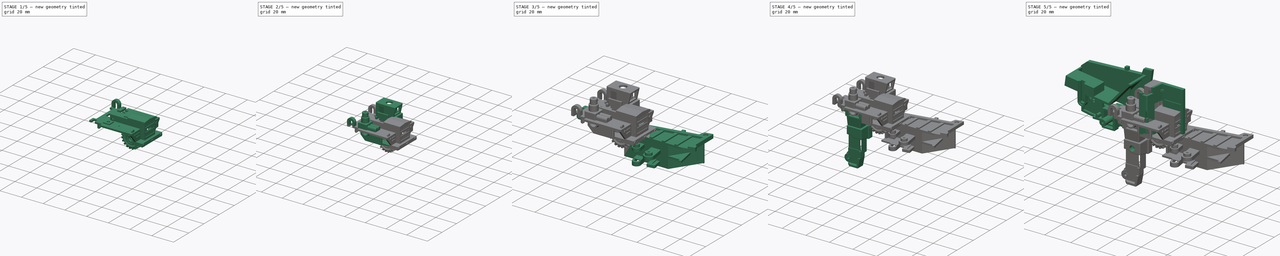
[diagram: build sequence overview — one tinted view per stage of 5, left to right]
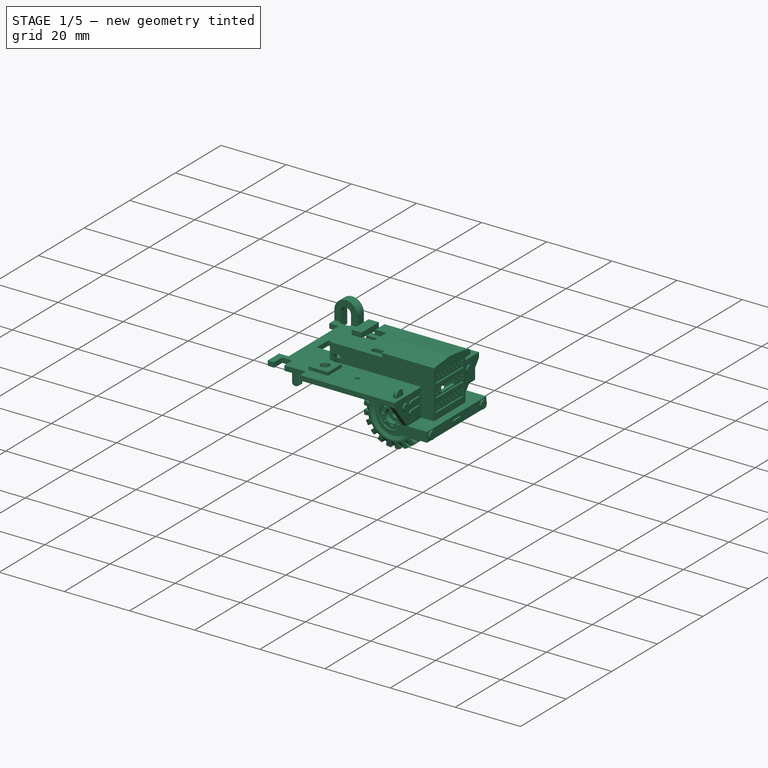
[diagram: stage 1 of 5 — iso view after this stage's code; geometry added in this stage tinted green]
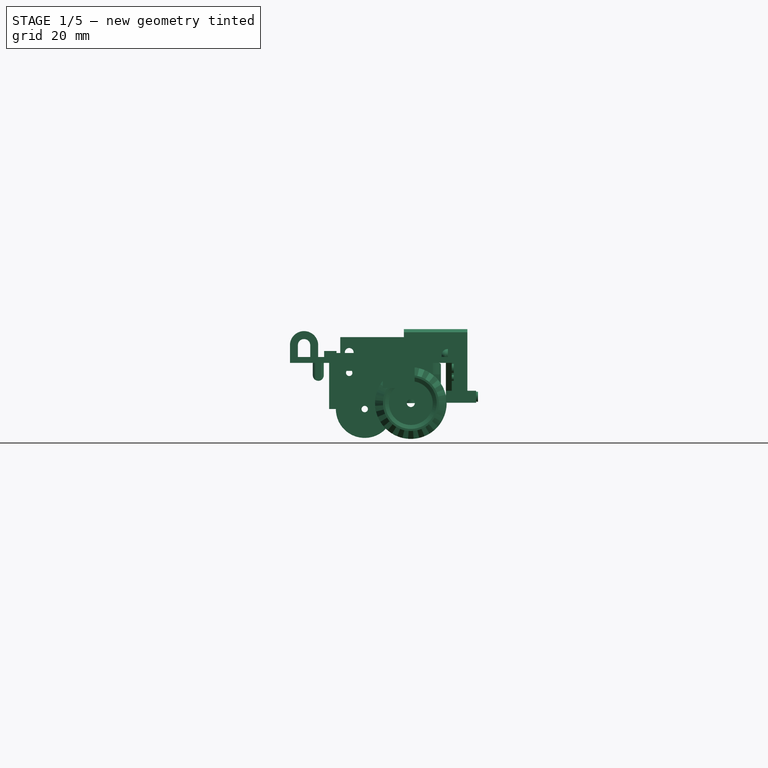
[diagram: stage 1 of 5 — front view after this stage's code; geometry added in this stage tinted green]
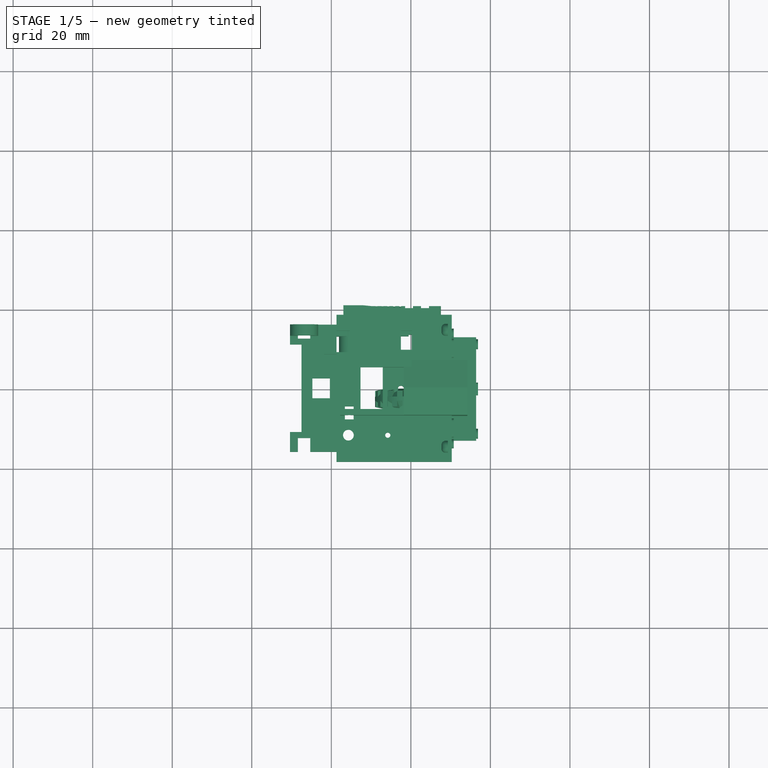
[diagram: stage 1 of 5 — top view after this stage's code; geometry added in this stage tinted green]
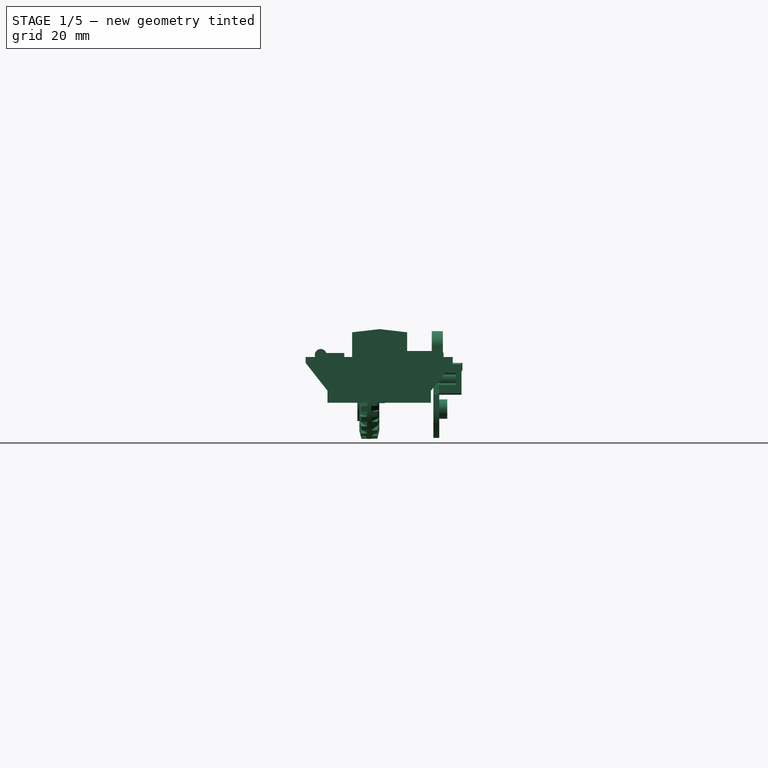
[diagram: stage 1 of 5 — right view after this stage's code; geometry added in this stage tinted green]
FCSTD DOCUMENT  (FreeCAD 1.0R39109 (Git))
Label: Longhaul
License: All rights reserved
LicenseURL: https://en.wikipedia.org/wiki/All_rights_reserved
objects: Sketcher::SketchObject×397, PartDesign::Pad×234, PartDesign::Pocket×185, PartDesign::Body×18, PartDesign::Fillet×11, App::Link×9, PartDesign::SubShapeBinder×8, PartDesign::Chamfer×8, Part::Mirroring×5, PartDesign::SubtractivePipe×3, Part::Feature×3, PartDesign::Plane×2, App::Part×1
note: 2153 computed .brp shape members not serialized (recipe doc carries the construction recipe); baked Part::Feature solids carry a one-line shape summary decoded from their .brp

FEATURE [PartDesign::SubShapeBinder] Binder
  BindCopyOnChange = 0
  BindMode = 2
  ClaimChildren = false
  Context = -> Body001 [Binder.]
  Fuse = false
  MakeFace = true
  OffsetFill = false
  OffsetIntersection = false
  OffsetJoinType = 0
  OffsetOpenResult = false
  PartialLoad = false
  Refine = true
  Relative = true
  _Version = 2
FEATURE [Sketcher::SketchObject] Sketch039
  ArcFitTolerance = 1e-06
  AttachmentSupport = -> [Binder]
  FullyConstrained = true
  MakeInternals = false
  MapMode = 5
  Placement = pos=(0,0,10.1) rot=(0,0,1;0rad)
  sketch-geometry (12):
    g0: LineSegment StartX=10.3 StartY=18.5 StartZ=0 EndX=-18.7 EndY=18.5 EndZ=0
    g1: LineSegment StartX=-18.7 StartY=18.5 StartZ=0 EndX=-18.7 EndY=16 EndZ=0
    g2: LineSegment StartX=-18.7 StartY=16 StartZ=0 EndX=-30.4 EndY=16 EndZ=0
    g3: LineSegment StartX=-30.4 StartY=16 StartZ=0 EndX=-30.4 EndY=11 EndZ=0
    g4: LineSegment StartX=-30.4 StartY=11 StartZ=0 EndX=-27.5 EndY=11 EndZ=0
    g5: LineSegment StartX=-27.5 StartY=11 StartZ=0 EndX=-27.5 EndY=-11 EndZ=0
    g6: LineSegment StartX=-27.5 StartY=-11 StartZ=0 EndX=-30.4 EndY=-11 EndZ=0
    g7: LineSegment StartX=-30.4 StartY=-11 StartZ=0 EndX=-30.4 EndY=-16 EndZ=0
    g8: LineSegment StartX=-30.4 StartY=-16 StartZ=0 EndX=-18.7 EndY=-16 EndZ=0
    g9: LineSegment StartX=-18.7 StartY=-16 StartZ=0 EndX=-18.7 EndY=-18.5 EndZ=0
    g10: LineSegment StartX=-18.7 StartY=-18.5 StartZ=0 EndX=10.3 EndY=-18.5 EndZ=0
    g11: LineSegment StartX=10.3 StartY=-18.5 StartZ=0 EndX=10.3 EndY=18.5 EndZ=0
  constraints (38):
    c: Horizontal(g0)
    c: Coincident(g1,g0)
    c: Vertical(g1)
    c: Coincident(g2,g1)
    c: Horizontal(g2)
    c: Coincident(g3,g2)
    c: Vertical(g3)
    c: Coincident(g4,g3)
    c: Horizontal(g4)
    c: Coincident(g5,g4)
    c: Vertical(g5)
    c: Coincident(g6,g5)
    c: Horizontal(g6)
    c: Coincident(g7,g6)
    c: Vertical(g7)
    c: Coincident(g8,g7)
    c: Horizontal(g8)
    c: Coincident(g9,g8)
    c: Vertical(g9)
    c: Coincident(g10,g9)
    c: Horizontal(g10)
    c: Coincident(g11,g10)
    c: Coincident(g11,g0)
    c: Vertical(g11)
    c: DistanceY(g11,g11) = 37
    c: DistanceX(g0,g0) = 29
    c: DistanceX(g10,g10) = 29
    c: DistanceY(g7,g7) = 5
    c: DistanceY(g3,g3) = 5
    c: DistanceY(g5,g5) = 22
    c: DistanceY(g1,g1) = 2.5
    c: DistanceY(g9,g9) = 2.5
    c: DistanceX(g8,g8) = 11.7
    c: DistanceX(g2,g2) = 11.7
    c: DistanceX(g4,g4) = 2.9
    c: DistanceX(g7,g10) = 40.7
    c: DistanceY(g-1,g0) = 18.5
    c: DistanceX(g4,g-1) = 27.5
FEATURE [PartDesign::Pad] Pad021
  Direction = (0,0,1)
  Length = 1.5
  Length2 = 10
  Profile = -> Sketch039
  ReferenceAxis = -> Sketch039 [N_Axis]
  Refine = true
  Suppressed = false
  Type = 0
FEATURE [PartDesign::Pocket] Pocket021
  BaseFeature = -> Pad021
  Direction = (0,0,-1)
  Length = 5
  Length2 = 5
  Profile = -> Sketch040
  ReferenceAxis = -> Sketch040 [N_Axis]
  Refine = true
  Suppressed = false
  Type = 0
FEATURE [Sketcher::SketchObject] Sketch043
  ArcFitTolerance = 1e-06
  AttachmentSupport = -> [Pocket021]
  ExternalGeometry = -> [Pocket021]
  FullyConstrained = true
  MakeInternals = false
  MapMode = 5
  Placement = pos=(0,0,11.6) rot=(0,0,1;0rad)
  sketch-geometry (4):
    g0: LineSegment StartX=10.3 StartY=5.3 StartZ=0 EndX=-12.65 EndY=5.3 EndZ=0
    g1: LineSegment StartX=-12.65 StartY=5.3 StartZ=0 EndX=-12.65 EndY=-5.3 EndZ=0
    g2: LineSegment StartX=-12.65 StartY=-5.3 StartZ=0 EndX=10.3 EndY=-5.3 EndZ=0
    g3: LineSegment StartX=10.3 StartY=-5.3 StartZ=0 EndX=10.3 EndY=5.3 EndZ=0
  constraints (12):
    c: Coincident(g0,g1)
    c: Coincident(g1,g2)
    c: Coincident(g2,g3)
    c: Coincident(g3,g0)
    c: Horizontal(g0)
    c: Horizontal(g2)
    c: Vertical(g1)
    c: Vertical(g3)
    c: PointOnObject(g0,g-3)
    c: DistanceY(g1,g1) = 10.6
    c: DistanceY(g-1,g0) = 5.3
    c: DistanceX(g-4,g0) = 7.7
FEATURE [PartDesign::Pocket] Pocket022
  BaseFeature = -> Pocket021
  Direction = (0,0,-1)
  Length = 5
  Length2 = 5
  Profile = -> Sketch043
  ReferenceAxis = -> Sketch043 [N_Axis]
  Refine = true
  Suppressed = false
  Type = 0
FEATURE [Sketcher::SketchObject] Sketch044
  ArcFitTolerance = 1e-06
  AttachmentSupport = -> [Pocket022]
  ExternalGeometry = -> [Pocket022]
  FullyConstrained = true
  MakeInternals = false
  MapMode = 5
  Placement = pos=(0,0,11.6) rot=(0,0,1;0rad)
  sketch-geometry (8):
    g0: LineSegment StartX=-28.4 StartY=-16 StartZ=0 EndX=-25.3 EndY=-16 EndZ=0
    g1: LineSegment StartX=-25.3 StartY=-16 StartZ=0 EndX=-25.3 EndY=-12.5 EndZ=0
    g2: LineSegment StartX=-25.3 StartY=-12.5 StartZ=0 EndX=-28.4 EndY=-12.5 EndZ=0
    g3: LineSegment StartX=-28.4 StartY=-12.5 StartZ=0 EndX=-28.4 EndY=-16 EndZ=0
    g4: LineSegment StartX=-28.4 StartY=16 StartZ=0 EndX=-28.4 EndY=12.5 EndZ=0
    g5: LineSegment StartX=-28.4 StartY=12.5 StartZ=0 EndX=-25.3 EndY=12.5 EndZ=0
    g6: LineSegment StartX=-25.3 StartY=12.5 StartZ=0 EndX=-25.3 EndY=16 EndZ=0
    g7: LineSegment StartX=-25.3 StartY=16 StartZ=0 EndX=-28.4 EndY=16 EndZ=0
  constraints (24):
    c: Coincident(g0,g1)
    c: Coincident(g1,g2)
    c: Coincident(g2,g3)
    c: Coincident(g3,g0)
    c: Horizontal(g0)
    c: Horizontal(g2)
    c: Vertical(g1)
    c: Vertical(g3)
    c: PointOnObject(g0,g-4)
    c: Coincident(g4,g5)
    c: Coincident(g5,g6)
    c: Coincident(g6,g7)
    c: Coincident(g7,g4)
    c: Vertical(g4)
    c: Vertical(g6)
    c: Horizontal(g5)
    c: Horizontal(g7)
    c: PointOnObject(g4,g-3)
    c: DistanceX(g-3,g4) = 2
    c: DistanceX(g-4,g0) = 2
    c: DistanceX(g2,g2) = 3.1
    c: DistanceX(g5,g5) = 3.1
    c: DistanceY(g6,g6) = 3.5
    c: DistanceY(g1,g1) = 3.5
FEATURE [PartDesign::Pocket] Pocket023
  BaseFeature = -> Pocket022
  Direction = (0,0,-1)
  Length = 5
  Length2 = 5
  Profile = -> Sketch044
  ReferenceAxis = -> Sketch044 [N_Axis]
  Refine = true
  Suppressed = false
  Type = 0
FEATURE [Sketcher::SketchObject] Sketch045
  ArcFitTolerance = 1e-06
  AttachmentSupport = -> [Pocket023]
  ExternalGeometry = -> [Pocket023]
  FullyConstrained = true
  MakeInternals = false
  MapMode = 5
  Placement = pos=(0,0,11.6) rot=(0,0,1;0rad)
  sketch-geometry (4):
    g0: LineSegment StartX=-18.7 StartY=-8.8 StartZ=0 EndX=-18.7 EndY=-14.8 EndZ=0
    g1: LineSegment StartX=-18.7 StartY=-14.8 StartZ=0 EndX=-12.7 EndY=-14.8 EndZ=0
    g2: LineSegment StartX=-12.7 StartY=-14.8 StartZ=0 EndX=-12.7 EndY=-8.8 EndZ=0
    g3: LineSegment StartX=-12.7 StartY=-8.8 StartZ=0 EndX=-18.7 EndY=-8.8 EndZ=0
  constraints (12):
    c: Coincident(g0,g1)
    c: Coincident(g1,g2)
    c: Coincident(g2,g3)
    c: Coincident(g3,g0)
    c: Vertical(g0)
    c: Vertical(g2)
    c: Horizontal(g1)
    c: Horizontal(g3)
    c: DistanceX(g3,g3) = 6
    c: DistanceY(g2,g2) = 6
    c: DistanceY(g-3,g0) = 3.7
    c: DistanceX(g-3,g0) = 0
FEATURE [PartDesign::Pad] Pad022
  BaseFeature = -> Pocket023
  Direction = (0,0,1)
  Length = 1
  Length2 = 10
  Profile = -> Sketch045
  ReferenceAxis = -> Sketch045 [N_Axis]
  Refine = true
  Suppressed = false
  Type = 0
FEATURE [Sketcher::SketchObject] Sketch046
  ArcFitTolerance = 1e-06
  AttachmentSupport = -> [Pad022]
  ExternalGeometry = -> [Pad022]
  FullyConstrained = true
  MakeInternals = false
  MapMode = 5
  Placement = pos=(0,0,12.6) rot=(0,0,1;0rad)
  sketch-geometry (1):
    g0: Circle CenterX=-15.7 CenterY=-11.8 CenterZ=0 NormalX=0 NormalY=0 NormalZ=1 AngleXU=0 Radius=1.35
  constraints (3):
    c: Diameter(g0) = 2.7
    c: DistanceX(g-5,g0) = 3
    c: DistanceY(g0,g-4) = 3
FEATURE [PartDesign::Pocket] Pocket024
  BaseFeature = -> Pad022
  Direction = (0,0,-1)
  Length = 5
  Length2 = 5
  Profile = -> Sketch046
  ReferenceAxis = -> Sketch046 [N_Axis]
  Refine = true
  Suppressed = false
  Type = 0
FEATURE [Sketcher::SketchObject] Sketch047
  ArcFitTolerance = 1e-06
  AttachmentSupport = -> [Pocket024]
  ExternalGeometry = -> [Pocket024]
  FullyConstrained = true
  MakeInternals = false
  MapMode = 5
  Placement = pos=(0,0,11.6) rot=(0,0,1;0rad)
  sketch-geometry (4):
    g0: LineSegment StartX=-14.4 StartY=-4.55 StartZ=0 EndX=-16.6 EndY=-4.55 EndZ=0
    g1: LineSegment StartX=-16.6 StartY=-4.55 StartZ=0 EndX=-16.6 EndY=-7.8 EndZ=0
    g2: LineSegment StartX=-16.6 StartY=-7.8 StartZ=0 EndX=-14.4 EndY=-7.8 EndZ=0
    g3: LineSegment StartX=-14.4 StartY=-7.8 StartZ=0 EndX=-14.4 EndY=-4.55 EndZ=0
  constraints (12):
    c: Coincident(g0,g1)
    c: Coincident(g1,g2)
    c: Coincident(g2,g3)
    c: Coincident(g3,g0)
    c: Horizontal(g0)
    c: Horizontal(g2)
    c: Vertical(g1)
    c: Vertical(g3)
    c: DistanceX(g-3,g1) = 10.9
    c: DistanceX(g0,g0) = 2.2
    c: DistanceY(g3,g3) = 3.25
    c: DistanceY(g-4,g2) = 10.7
FEATURE [PartDesign::Pocket] Pocket025
  BaseFeature = -> Pocket024
  Direction = (0,0,-1)
  Length = 5
  Length2 = 5
  Profile = -> Sketch047
  ReferenceAxis = -> Sketch047 [N_Axis]
  Refine = true
  Suppressed = false
  Type = 0
FEATURE [Sketcher::SketchObject] Sketch048
  ArcFitTolerance = 1e-06
  AttachmentSupport = -> [Pocket025]
  ExternalGeometry = -> [Pocket025]
  FullyConstrained = true
  MakeInternals = false
  MapMode = 5
  Placement = pos=(0,0,11.6) rot=(0,0,1;0rad)
  sketch-geometry (9):
    g0: Circle CenterX=-5.8 CenterY=-11.8 CenterZ=0 NormalX=0 NormalY=0 NormalZ=1 AngleXU=0 Radius=0.65
    g1: LineSegment StartX=-20.4 StartY=14.5 StartZ=0 EndX=-20.4 EndY=9.1 EndZ=0
    g2: LineSegment StartX=-20.4 StartY=9.1 StartZ=0 EndX=-15.3 EndY=9.1 EndZ=0
    g3: LineSegment StartX=-15.3 StartY=9.1 StartZ=0 EndX=-15.3 EndY=14.5 EndZ=0
    g4: LineSegment StartX=-15.3 StartY=14.5 StartZ=0 EndX=-20.4 EndY=14.5 EndZ=0
    g5: LineSegment StartX=-2.5 StartY=14.5 StartZ=0 EndX=-2.5 EndY=9.7 EndZ=0
    g6: LineSegment StartX=-2.5 StartY=9.7 StartZ=0 EndX=2.6 EndY=9.7 EndZ=0
    g7: LineSegment StartX=2.6 StartY=9.7 StartZ=0 EndX=2.6 EndY=14.5 EndZ=0
    g8: LineSegment StartX=2.6 StartY=14.5 StartZ=0 EndX=-2.5 EndY=14.5 EndZ=0
  constraints (28):
    c: Coincident(g1,g2)
    c: Coincident(g2,g3)
    c: Coincident(g3,g4)
    c: Coincident(g4,g1)
    c: Vertical(g1)
    c: Vertical(g3)
    c: Horizontal(g2)
    c: Horizontal(g4)
    c: Coincident(g5,g6)
    c: Coincident(g6,g7)
    c: Coincident(g7,g8)
    c: Coincident(g8,g5)
    c: Vertical(g5)
    c: Vertical(g7)
    c: Horizontal(g6)
    c: Horizontal(g8)
    c: Diameter(g0) = 1.3
    c: DistanceY(g-3,g0) = 0
    c: DistanceY(g3,g3) = 5.4
    c: DistanceY(g5,g5) = 4.8
    c: DistanceX(g4,g4) = 5.1
    c: DistanceX(g8,g8) = 5.1
    c: DistanceY(g1,g-4) = 4
    c: DistanceY(g7,g-4) = 4
    c: DistanceX(g3,g5) = 12.8
    c: Radius(g-3) = 1.35
    c: DistanceX(g-3,g0) = 9.9
    c: DistanceX(g-5,g1) = 7.1
FEATURE [PartDesign::Pocket] Pocket026
  BaseFeature = -> Pocket025
  Direction = (0,0,-1)
  Length = 5
  Length2 = 5
  Profile = -> Sketch048
  ReferenceAxis = -> Sketch048 [N_Axis]
  Refine = true
  Suppressed = false
  Type = 0
FEATURE [Sketcher::SketchObject] Sketch049
  ArcFitTolerance = 1e-06
  AttachmentSupport = -> [Pocket026]
  ExternalGeometry = -> [Pocket026]
  FullyConstrained = true
  MakeInternals = false
  MapMode = 5
  Placement = pos=(0,0,11.6) rot=(0,0,1;0rad)
  sketch-geometry (8):
    g0: LineSegment StartX=-21.8 StartY=16 StartZ=0 EndX=-21.8 EndY=8.5 EndZ=0
    g1: LineSegment StartX=-21.8 StartY=8.5 StartZ=0 EndX=-18.7 EndY=8.5 EndZ=0
    g2: LineSegment StartX=-18.7 StartY=8.5 StartZ=0 EndX=-18.7 EndY=16 EndZ=0
    g3: LineSegment StartX=-18.7 StartY=16 StartZ=0 EndX=-21.8 EndY=16 EndZ=0
    g4: LineSegment StartX=3 StartY=15.2 StartZ=0 EndX=0.2 EndY=15.2 EndZ=0
    g5: LineSegment StartX=0.2 StartY=15.2 StartZ=0 EndX=0.2 EndY=7 EndZ=0
    g6: LineSegment StartX=0.2 StartY=7 StartZ=0 EndX=3 EndY=7 EndZ=0
    g7: LineSegment StartX=3 StartY=7 StartZ=0 EndX=3 EndY=15.2 EndZ=0
  constraints (24):
    c: Coincident(g0,g1)
    c: Coincident(g1,g2)
    c: Coincident(g2,g3)
    c: Coincident(g3,g0)
    c: Vertical(g0)
    c: Vertical(g2)
    c: Horizontal(g1)
    c: Horizontal(g3)
    c: Coincident(g4,g5)
    c: Coincident(g5,g6)
    c: Coincident(g6,g7)
    c: Coincident(g7,g4)
    c: Horizontal(g4)
    c: Horizontal(g6)
    c: Vertical(g5)
    c: Vertical(g7)
    c: DistanceY(g0,g0) = 7.5
    c: DistanceX(g3,g3) = 3.1
    c: Coincident(g2,g-9)
    c: DistanceY(g7,g7) = 8.2
    c: DistanceY(g4,g-10) = 3.3
    c: DistanceX(g4,g4) = 2.8
    c: DistanceX(g-11,g5) = 27.7
    c: DistanceY(g-12,g6) = 1.7
FEATURE [PartDesign::Pad] Pad023
  BaseFeature = -> Pocket026
  Direction = (0,0,1)
  Length = 1.5
  Length2 = 10
  Profile = -> Sketch049
  ReferenceAxis = -> Sketch049 [N_Axis]
  Refine = true
  Suppressed = false
  Type = 0
FEATURE [Sketcher::SketchObject] Sketch050
  ArcFitTolerance = 1e-06
  AttachmentSupport = -> [Pad023]
  ExternalGeometry = -> [Pad023]
  FullyConstrained = true
  MakeInternals = false
  MapMode = 5
  Placement = pos=(0,-16,0) rot=(1,0,0;1.5708rad)
  sketch-geometry (8):
    g0: LineSegment StartX=-30.4 StartY=11.6 StartZ=0 EndX=-28.4 EndY=11.6 EndZ=0
    g1: LineSegment StartX=-25.3 StartY=11.6 StartZ=0 EndX=-23.3 EndY=11.6 EndZ=0
    g2: LineSegment StartX=-25.3 StartY=11.6 StartZ=0 EndX=-25.3 EndY=14.55 EndZ=0
    g3: LineSegment StartX=-28.4 StartY=11.6 StartZ=0 EndX=-28.4 EndY=14.55 EndZ=0
    g4: LineSegment StartX=-30.4 StartY=11.6 StartZ=0 EndX=-30.4 EndY=14.55 EndZ=0
    g5: LineSegment StartX=-23.3 StartY=11.6 StartZ=0 EndX=-23.3 EndY=14.55 EndZ=0
    g6: ArcOfCircle CenterX=-26.85 CenterY=14.55 CenterZ=0 NormalX=0 NormalY=0 NormalZ=1 AngleXU=0 Radius=1.55 StartAngle=5e-16 EndAngle=3.1416
    g7: ArcOfCircle CenterX=-26.85 CenterY=14.55 CenterZ=0 NormalX=0 NormalY=0 NormalZ=1 AngleXU=0 Radius=3.55 StartAngle=1e-16 EndAngle=3.1416
  constraints (22):
    c: Coincident(g0,g-3)
    c: Coincident(g0,g-3)
    c: Coincident(g1,g-4)
    c: PointOnObject(g1,g-4)
    c: Coincident(g2,g1)
    c: Vertical(g2)
    c: Coincident(g3,g0)
    c: Vertical(g3)
    c: Coincident(g4,g0)
    c: Vertical(g4)
    c: Coincident(g5,g1)
    c: Vertical(g5)
    c: Coincident(g6,g3)
    c: Coincident(g6,g2)
    c: Coincident(g7,g4)
    c: Coincident(g7,g5)
    c: DistanceX(g1,g1) = 2
    c: Diameter(g6) = 3.1
    c: Coincident(g6,g7)
    c: DistanceY(g6,g2) = 0
    c: DistanceY(g2,g5) = 0
    c: DistanceY(g0,g6) = 2.95
FEATURE [PartDesign::Pad] Pad024
  BaseFeature = -> Pad023
  Direction = (0,-1,2e-16)
  Length = 2.75
  Length2 = 10
  Profile = -> Sketch050
  ReferenceAxis = -> Sketch050 [N_Axis]
  Refine = true
  Reversed = true
  Suppressed = false
  Type = 0
FEATURE [Sketcher::SketchObject] Sketch051
  ArcFitTolerance = 1e-06
  AttachmentSupport = -> [Pad024]
  ExternalGeometry = -> [Pad024]
  FullyConstrained = false
  MakeInternals = false
  MapMode = 5
  Placement = pos=(0,16,0) rot=(0,0.707107,0.707107;3.14159rad)
  sketch-geometry (8):
    g0: LineSegment StartX=28.4 StartY=11.6 StartZ=0 EndX=30.4 EndY=11.6 EndZ=0
    g1: LineSegment StartX=25.3 StartY=11.6 StartZ=0 EndX=23.3 EndY=11.6 EndZ=0
    g2: LineSegment StartX=23.3 StartY=11.6 StartZ=0 EndX=23.3 EndY=14.55 EndZ=0
    g3: LineSegment StartX=25.3 StartY=11.6 StartZ=0 EndX=25.3 EndY=14.55 EndZ=0
    g4: LineSegment StartX=28.4 StartY=11.6 StartZ=0 EndX=28.4 EndY=14.55 EndZ=0
    g5: LineSegment StartX=30.4 StartY=11.6 StartZ=0 EndX=30.4 EndY=14.55 EndZ=0
    g6: ArcOfCircle CenterX=26.85 CenterY=14.55 CenterZ=0 NormalX=0 NormalY=0 NormalZ=1 AngleXU=0 Radius=1.55 StartAngle=6.28318 EndAngle=9.42478
    g7: ArcOfCircle CenterX=26.85 CenterY=14.55 CenterZ=0 NormalX=0 NormalY=0 NormalZ=1 AngleXU=0 Radius=3.55 StartAngle=6.28318 EndAngle=9.42478
  constraints (16):
    c: Coincident(g0,g-3)
    c: Coincident(g0,g-3)
    c: Coincident(g1,g-6)
    c: Coincident(g1,g-5)
    c: Coincident(g2,g1)
    c: Coincident(g2,g-10)
    c: Coincident(g3,g1)
    c: Coincident(g3,g-7)
    c: Coincident(g4,g0)
    c: Coincident(g4,g-8)
    c: Coincident(g5,g0)
    c: Coincident(g5,g-10)
    c: Coincident(g6,g3)
    c: Coincident(g6,g4)
    c: Coincident(g7,g2)
    c: Tangent(g7,g-10) = -1.5708
FEATURE [PartDesign::Pad] Pad025
  BaseFeature = -> Pad024
  Direction = (0,1,-2e-16)
  Length = 2.75
  Length2 = 10
  Profile = -> Sketch051
  ReferenceAxis = -> Sketch051 [N_Axis]
  Refine = true
  Reversed = true
  Suppressed = false
  Type = 0
FEATURE [Sketcher::SketchObject] Sketch052
  ArcFitTolerance = 1e-06
  AttachmentSupport = -> [Pad025]
  ExternalGeometry = -> [Pad025]
  FullyConstrained = true
  MakeInternals = false
  MapMode = 5
  Placement = pos=(0,0,10.1) rot=(1,0,0;3.14159rad)
  sketch-geometry (8):
    g0: LineSegment StartX=-7.05 StartY=-5.3 StartZ=0 EndX=-7.05 EndY=-6.8 EndZ=0
    g1: LineSegment StartX=-7.05 StartY=-6.8 StartZ=0 EndX=0.95 EndY=-6.8 EndZ=0
    g2: LineSegment StartX=0.95 StartY=-6.8 StartZ=0 EndX=0.95 EndY=-5.3 EndZ=0
    g3: LineSegment StartX=0.95 StartY=-5.3 StartZ=0 EndX=-7.05 EndY=-5.3 EndZ=0
    g4: LineSegment StartX=-7.05 StartY=5.3 StartZ=0 EndX=0.95 EndY=5.3 EndZ=0
    g5: LineSegment StartX=0.95 StartY=5.3 StartZ=0 EndX=0.95 EndY=6.8 EndZ=0
    g6: LineSegment StartX=0.95 StartY=6.8 StartZ=0 EndX=-7.05 EndY=6.8 EndZ=0
    g7: LineSegment StartX=-7.05 StartY=6.8 StartZ=0 EndX=-7.05 EndY=5.3 EndZ=0
  constraints (24):
    c: Coincident(g0,g1)
    c: Coincident(g1,g2)
    c: Coincident(g2,g3)
    c: Coincident(g3,g0)
    c: Vertical(g0)
    c: Vertical(g2)
    c: Horizontal(g1)
    c: Horizontal(g3)
    c: PointOnObject(g0,g-3)
    c: Coincident(g4,g5)
    c: Coincident(g5,g6)
    c: Coincident(g6,g7)
    c: Coincident(g7,g4)
    c: Horizontal(g4)
    c: Horizontal(g6)
    c: Vertical(g5)
    c: Vertical(g7)
    c: PointOnObject(g4,g-4)
    c: DistanceX(g6,g6) = 8
    c: DistanceX(g1,g1) = 8
    c: DistanceX(g-3,g0) = 5.6
    c: DistanceX(g-4,g4) = 5.6
    c: DistanceY(g5,g5) = 1.5
    c: DistanceY(g2,g2) = 1.5
FEATURE [PartDesign::Pad] Pad026
  BaseFeature = -> Pad025
  Direction = (0,0,-1)
  Length = 6.3
  Length2 = 10
  Profile = -> Sketch052
  ReferenceAxis = -> Sketch052 [N_Axis]
  Refine = true
  Suppressed = false
  Type = 0
FEATURE [Sketcher::SketchObject] Sketch053
  ArcFitTolerance = 1e-06
  AttachmentSupport = -> [Pad026]
  ExternalGeometry = -> [Pad026]
  FullyConstrained = true
  MakeInternals = false
  MapMode = 5
  Placement = pos=(0,0,3.8) rot=(1,0,0;3.14159rad)
  sketch-geometry (4):
    g0: LineSegment StartX=-7.05 StartY=6.8 StartZ=0 EndX=-7.05 EndY=-6.8 EndZ=0
    g1: LineSegment StartX=-7.05 StartY=-6.8 StartZ=0 EndX=0.95 EndY=-6.8 EndZ=0
    g2: LineSegment StartX=0.95 StartY=-6.8 StartZ=0 EndX=0.95 EndY=6.8 EndZ=0
    g3: LineSegment StartX=0.95 StartY=6.8 StartZ=0 EndX=-7.05 EndY=6.8 EndZ=0
  constraints (10):
    c: Coincident(g0,g1)
    c: Coincident(g1,g2)
    c: Coincident(g2,g3)
    c: Coincident(g3,g0)
    c: Vertical(g0)
    c: Vertical(g2)
    c: Horizontal(g1)
    c: Horizontal(g3)
    c: Coincident(g0,g-4)
    c: Coincident(g1,g-6)
FEATURE [PartDesign::Pad] Pad027
  BaseFeature = -> Pad026
  Direction = (0,0,-1)
  Length = 3
  Length2 = 10
  Profile = -> Sketch053
  ReferenceAxis = -> Sketch053 [N_Axis]
  Refine = true
  Reversed = true
  Suppressed = false
  Type = 0
FEATURE [Sketcher::SketchObject] Sketch054
  ArcFitTolerance = 1e-06
  AttachmentSupport = -> [Pad027]
  ExternalGeometry = -> [Pad027]
  FullyConstrained = true
  MakeInternals = false
  MapMode = 5
  Placement = pos=(0,0,6.8) rot=(0,0,1;0rad)
  sketch-geometry (1):
    g0: Circle CenterX=-2.5 CenterY=9e-16 CenterZ=0 NormalX=0 NormalY=0 NormalZ=1 AngleXU=0 Radius=0.75
  constraints (5):
    c: Radius(g0) = 0.75
    c: DistanceX(g-4,g-3) = 8
    c: DistanceY(g-3,g-3) = 10.6
    c: DistanceX(g-4,g0) = 4.55
    c: DistanceY(g0,g-3) = 5.3
FEATURE [PartDesign::Pocket] Pocket027
  BaseFeature = -> Pad027
  Direction = (0,0,-1)
  Length = 5
  Length2 = 5
  Profile = -> Sketch054
  ReferenceAxis = -> Sketch054 [N_Axis]
  Refine = true
  Suppressed = false
  Type = 0
FEATURE [Sketcher::SketchObject] Sketch055
  ArcFitTolerance = 1e-06
  AttachmentSupport = -> [Pocket027]
  ExternalGeometry = -> [Pocket027]
  FullyConstrained = true
  MakeInternals = false
  MapMode = 5
  Placement = pos=(0,0,11.6) rot=(0,0,1;0rad)
  sketch-geometry (4):
    g0: LineSegment StartX=0.2 StartY=5.3 StartZ=0 EndX=-1.75 EndY=5.3 EndZ=0
    g1: LineSegment StartX=-1.75 StartY=5.3 StartZ=0 EndX=-1.75 EndY=-5.3 EndZ=0
    g2: LineSegment StartX=-1.75 StartY=-5.3 StartZ=0 EndX=0.2 EndY=-5.3 EndZ=0
    g3: LineSegment StartX=0.2 StartY=-5.3 StartZ=0 EndX=0.2 EndY=5.3 EndZ=0
  constraints (12):
    c: Coincident(g0,g1)
    c: Coincident(g2,g3)
    c: Coincident(g3,g0)
    c: Horizontal(g0)
    c: Horizontal(g2)
    c: Vertical(g1)
    c: Vertical(g3)
    c: DistanceX(g0,g0) = 1.95
    c: Coincident(g2,g1)
    c: DistanceX(g-3,g0) = 0
    c: PointOnObject(g0,g-4)
    c: PointOnObject(g2,g-5)
FEATURE [PartDesign::Pad] Pad028
  BaseFeature = -> Pocket027
  Direction = (0,0,1)
  Length = 4.8
  Length2 = 10
  Profile = -> Sketch055
  ReferenceAxis = -> Sketch055 [N_Axis]
  Refine = true
  Reversed = true
  Suppressed = false
  Type = 0
FEATURE [Sketcher::SketchObject] Sketch056
  ArcFitTolerance = 1e-06
  AttachmentSupport = -> [Pad028]
  ExternalGeometry = -> [Pad028]
  FullyConstrained = true
  MakeInternals = false
  MapMode = 5
  Placement = pos=(0,0,6.8) rot=(0,0,1;0rad)
  sketch-geometry (4):
    g0: LineSegment StartX=0.95 StartY=5.3 StartZ=0 EndX=0.2 EndY=5.3 EndZ=0
    g1: LineSegment StartX=0.2 StartY=5.3 StartZ=0 EndX=0.2 EndY=-5.3 EndZ=0
    g2: LineSegment StartX=0.2 StartY=-5.3 StartZ=0 EndX=0.95 EndY=-5.3 EndZ=0
    g3: LineSegment StartX=0.95 StartY=-5.3 StartZ=0 EndX=0.95 EndY=5.3 EndZ=0
  constraints (10):
    c: Coincident(g0,g1)
    c: Coincident(g1,g2)
    c: Coincident(g2,g3)
    c: Coincident(g3,g0)
    c: Horizontal(g0)
    c: Horizontal(g2)
    c: Vertical(g1)
    c: Coincident(g2,g-3)
    c: DistanceX(g2,g2) = 0.75
    c: Coincident(g-3,g0)
FEATURE [PartDesign::Pad] Pad029
  BaseFeature = -> Pad028
  Direction = (0,0,1)
  Length = 4.8
  Length2 = 10
  Profile = -> Sketch056
  ReferenceAxis = -> Sketch056 [N_Axis]
  Refine = true
  Suppressed = false
  Type = 0
FEATURE [Sketcher::SketchObject] Sketch057
  ArcFitTolerance = 1e-06
  AttachmentSupport = -> [Pad029]
  ExternalGeometry = -> [Pad029]
  FullyConstrained = true
  MakeInternals = false
  MapMode = 5
  Placement = pos=(0,0,11.6) rot=(0,0,1;0rad)
  sketch-geometry (4):
    g0: LineSegment StartX=-1.75 StartY=-5.3 StartZ=0 EndX=-17.75 EndY=-5.3 EndZ=0
    g1: LineSegment StartX=-17.75 StartY=-5.3 StartZ=0 EndX=-17.75 EndY=-6.8 EndZ=0
    g2: LineSegment StartX=-17.75 StartY=-6.8 StartZ=0 EndX=-1.75 EndY=-6.8 EndZ=0
    g3: LineSegment StartX=-1.75 StartY=-6.8 StartZ=0 EndX=-1.75 EndY=-5.3 EndZ=0
  constraints (11):
    c: Coincident(g0,g1)
    c: Coincident(g1,g2)
    c: Coincident(g2,g3)
    c: Coincident(g3,g0)
    c: Horizontal(g0)
    c: Horizontal(g2)
    c: Vertical(g1)
    c: Vertical(g3)
    c: Coincident(g0,g-3)
    c: DistanceY(g3,g3) = 1.5
    c: DistanceX(g2,g2) = 16
FEATURE [PartDesign::Pad] Pad030
  BaseFeature = -> Pad029
  Direction = (0,0,1)
  Length = 5
  Length2 = 10
  Profile = -> Sketch057
  ReferenceAxis = -> Sketch057 [N_Axis]
  Refine = true
  Suppressed = false
  Type = 0
FEATURE [Sketcher::SketchObject] Sketch058
  ArcFitTolerance = 1e-06
  AttachmentSupport = -> [Pad030]
  ExternalGeometry = -> [Pad030]
  FullyConstrained = true
  MakeInternals = false
  MapMode = 5
  Placement = pos=(0,-5.3,0) rot=(0,0.707107,0.707107;3.14159rad)
  sketch-geometry (4):
    g0: LineSegment StartX=16.6 StartY=11.6 StartZ=0 EndX=16.6 EndY=12.75 EndZ=0
    g1: LineSegment StartX=14.4 StartY=11.6 StartZ=0 EndX=14.4 EndY=12.75 EndZ=0
    g2: ArcOfCircle CenterX=15.5 CenterY=12.75 CenterZ=0 NormalX=0 NormalY=0 NormalZ=1 AngleXU=0 Radius=1.1 StartAngle=0 EndAngle=3.14159
    g3: LineSegment StartX=16.6 StartY=11.6 StartZ=0 EndX=14.4 EndY=11.6 EndZ=0
  constraints (12):
    c: Coincident(g0,g-3)
    c: Vertical(g0)
    c: Coincident(g1,g-3)
    c: Vertical(g1)
    c: Coincident(g2,g1)
    c: Coincident(g2,g0)
    c: DistanceX(g-3,g-3) = 2.2
    c: Diameter(g2) = 2.2
    c: DistanceY(g0,g2) = 1.15
    c: Coincident(g3,g0)
    c: Coincident(g3,g1)
    c: DistanceY(g0,g2) = 0
FEATURE [PartDesign::Pocket] Pocket028
  BaseFeature = -> Pad030
  Direction = (0,-1,2e-16)
  Length = 2
  Length2 = 5
  Profile = -> Sketch058
  ReferenceAxis = -> Sketch058 [N_Axis]
  Refine = true
  Suppressed = false
  Type = 0
FEATURE [Sketcher::SketchObject] Sketch059
  ArcFitTolerance = 1e-06
  AttachmentSupport = -> [Pocket028]
  ExternalGeometry = -> [Pocket028]
  FullyConstrained = true
  MakeInternals = false
  MapMode = 5
  Placement = pos=(0,0,6.8) rot=(0,0,1;0rad)
  sketch-geometry (3):
    g0: ArcOfCircle CenterX=-1.75 CenterY=-5.3 CenterZ=0 NormalX=0 NormalY=0 NormalZ=1 AngleXU=0 Radius=1 StartAngle=1.5708 EndAngle=3.14159
    g1: LineSegment StartX=-1.75 StartY=-4.3 StartZ=0 EndX=-1.75 EndY=-5.3 EndZ=0
    g2: LineSegment StartX=-2.75 StartY=-5.3 StartZ=0 EndX=-1.75 EndY=-5.3 EndZ=0
  constraints (8):
    c: PointOnObject(g0,g-3)
    c: Coincident(g0,g-3)
    c: Diameter(g0) = 2
    c: PointOnObject(g0,g-4)
    c: Coincident(g1,g0)
    c: Coincident(g1,g0)
    c: Coincident(g2,g0)
    c: Coincident(g2,g0)
FEATURE [PartDesign::Pad] Pad031
  BaseFeature = -> Pocket028
  Direction = (0,0,1)
  Length = 6
  Length2 = 10
  Profile = -> Sketch059
  ReferenceAxis = -> Sketch059 [N_Axis]
  Refine = true
  Suppressed = false
  Type = 0
FEATURE [Sketcher::SketchObject] Sketch060
  ArcFitTolerance = 1e-06
  AttachmentSupport = -> [Pad031]
  ExternalGeometry = -> [Pad031]
  FullyConstrained = true
  MakeInternals = false
  MapMode = 5
  Placement = pos=(10.3,0,0) rot=(0.57735,0.57735,0.57735;2.0944rad)
  sketch-geometry (8):
    g0: LineSegment StartX=-18.5 StartY=10.1 StartZ=0 EndX=-5.3 EndY=10.1 EndZ=0
    g1: LineSegment StartX=-5.3 StartY=10.1 StartZ=0 EndX=-5.3 EndY=1.6 EndZ=0
    g2: LineSegment StartX=-18.5 StartY=10.1 StartZ=0 EndX=-11.82 EndY=1.6 EndZ=0
    g3: LineSegment StartX=-11.82 StartY=1.6 StartZ=0 EndX=-5.3 EndY=1.6 EndZ=0
    g4: LineSegment StartX=5.3 StartY=10.1 StartZ=0 EndX=18.5 EndY=10.1 EndZ=0
    g5: LineSegment StartX=18.5 StartY=10.1 StartZ=0 EndX=11.82 EndY=1.6 EndZ=0
    g6: LineSegment StartX=5.3 StartY=10.1 StartZ=0 EndX=5.3 EndY=1.6 EndZ=0
    g7: LineSegment StartX=5.3 StartY=1.6 StartZ=0 EndX=11.82 EndY=1.6 EndZ=0
  constraints (20):
    c: Coincident(g0,g-3)
    c: Coincident(g0,g-3)
    c: Coincident(g1,g0)
    c: Vertical(g1)
    c: Coincident(g2,g0)
    c: Coincident(g3,g2)
    c: Coincident(g3,g1)
    c: Horizontal(g3)
    c: Coincident(g4,g-4)
    c: Coincident(g4,g-4)
    c: Coincident(g5,g4)
    c: Coincident(g6,g4)
    c: Vertical(g6)
    c: Coincident(g7,g6)
    c: Coincident(g7,g5)
    c: Horizontal(g7)
    c: DistanceY(g1,g1) = 8.5
    c: DistanceX(g3,g3) = 6.52
    c: DistanceX(g7,g7) = 6.52
    c: DistanceY(g6,g6) = 8.5
FEATURE [PartDesign::Pad] Pad032
  BaseFeature = -> Pad031
  Direction = (1,0,0)
  Length = 1.5
  Length2 = 10
  Profile = -> Sketch060
  ReferenceAxis = -> Sketch060 [N_Axis]
  Refine = true
  Reversed = true
  Suppressed = false
  Type = 0
FEATURE [Sketcher::SketchObject] Sketch061
  ArcFitTolerance = 1e-06
  AttachmentSupport = -> [Pad032]
  ExternalGeometry = -> [Pad032]
  FullyConstrained = true
  MakeInternals = false
  MapMode = 5
  Placement = pos=(0,0,1.6) rot=(1,0,0;3.14159rad)
  sketch-geometry (8):
    g0: LineSegment StartX=8.8 StartY=13 StartZ=0 EndX=16.4 EndY=13 EndZ=0
    g1: LineSegment StartX=16.4 StartY=13 StartZ=0 EndX=16.4 EndY=-13 EndZ=0
    g2: LineSegment StartX=16.4 StartY=-13 StartZ=0 EndX=8.8 EndY=-13 EndZ=0
    g3: LineSegment StartX=8.8 StartY=-13 StartZ=0 EndX=8.8 EndY=-5.3 EndZ=0
    g4: LineSegment StartX=8.8 StartY=-5.3 StartZ=0 EndX=12.7 EndY=-5.3 EndZ=0
    g5: LineSegment StartX=12.7 StartY=-5.3 StartZ=0 EndX=12.7 EndY=5.3 EndZ=0
    g6: LineSegment StartX=12.7 StartY=5.3 StartZ=0 EndX=8.8 EndY=5.3 EndZ=0
    g7: LineSegment StartX=8.8 StartY=5.3 StartZ=0 EndX=8.8 EndY=13 EndZ=0
  constraints (22):
    c: Coincident(g1,g0)
    c: Coincident(g2,g1)
    c: Coincident(g3,g2)
    c: Vertical(g3)
    c: Coincident(g4,g3)
    c: Horizontal(g4)
    c: Coincident(g5,g4)
    c: Coincident(g6,g5)
    c: Coincident(g7,g6)
    c: Coincident(g7,g0)
    c: Vertical(g7)
    c: Vertical(g1)
    c: Vertical(g5)
    c: Horizontal(g6)
    c: Coincident(g3,g-4)
    c: Coincident(g6,g-3)
    c: Horizontal(g0)
    c: Horizontal(g2)
    c: DistanceY(g1,g1) = 26
    c: DistanceX(g0,g0) = 7.6
    c: DistanceY(g-1,g0) = 13
    c: DistanceX(g5,g0) = 3.7
FEATURE [PartDesign::Pad] Pad033
  BaseFeature = -> Pad032
  Direction = (0,0,-1)
  Length = 1.5
  Length2 = 10
  Profile = -> Sketch061
  ReferenceAxis = -> Sketch061 [N_Axis]
  Refine = true
  Reversed = true
  Suppressed = false
  Type = 0
FEATURE [Sketcher::SketchObject] Sketch062
  ArcFitTolerance = 1e-06
  AttachmentSupport = -> [Pad033]
  ExternalGeometry = -> [Pad033]
  FullyConstrained = true
  MakeInternals = false
  MapMode = 5
  Placement = pos=(0,0,1.6) rot=(1,0,0;3.14159rad)
  sketch-geometry (8):
    g0: LineSegment StartX=8.8 StartY=13 StartZ=0 EndX=16.4 EndY=13 EndZ=0
    g1: LineSegment StartX=16.4 StartY=13 StartZ=0 EndX=16.4 EndY=-13 EndZ=0
    g2: LineSegment StartX=16.4 StartY=-13 StartZ=0 EndX=8.8 EndY=-13 EndZ=0
    g3: LineSegment StartX=8.8 StartY=-13 StartZ=0 EndX=8.8 EndY=-11.5 EndZ=0
    g4: LineSegment StartX=8.8 StartY=-11.5 StartZ=0 EndX=14.9 EndY=-11.5 EndZ=0
    g5: LineSegment StartX=14.9 StartY=-11.5 StartZ=0 EndX=14.9 EndY=11.5 EndZ=0
    g6: LineSegment StartX=14.9 StartY=11.5 StartZ=0 EndX=8.8 EndY=11.5 EndZ=0
    g7: LineSegment StartX=8.8 StartY=11.5 StartZ=0 EndX=8.8 EndY=13 EndZ=0
  constraints (20):
    c: Coincident(g0,g-3)
    c: Coincident(g0,g-4)
    c: Coincident(g1,g0)
    c: Coincident(g1,g-5)
    c: Coincident(g2,g1)
    c: Coincident(g2,g-5)
    c: Coincident(g3,g2)
    c: Vertical(g3)
    c: Coincident(g4,g3)
    c: Horizontal(g4)
    c: Coincident(g5,g4)
    c: Vertical(g5)
    c: Coincident(g6,g5)
    c: Horizontal(g6)
    c: Coincident(g7,g6)
    c: Coincident(g7,g0)
    c: Vertical(g7)
    c: DistanceY(g7,g7) = 1.5
    c: DistanceY(g3,g3) = 1.5
    c: DistanceX(g4,g1) = 1.5
FEATURE [PartDesign::Pad] Pad034
  BaseFeature = -> Pad033
  Direction = (0,0,-1)
  Length = 1.5
  Length2 = 10
  Profile = -> Sketch062
  ReferenceAxis = -> Sketch062 [N_Axis]
  Refine = true
  Suppressed = false
  Type = 0
FEATURE [Sketcher::SketchObject] Sketch063
  ArcFitTolerance = 1e-06
  AttachmentSupport = -> [Pad034]
  ExternalGeometry = -> [Pad034]
  FullyConstrained = true
  MakeInternals = false
  MapMode = 5
  Placement = pos=(0,0,11.6) rot=(0,0,1;0rad)
  sketch-geometry (10):
    g0: LineSegment StartX=0.2 StartY=7 StartZ=0 EndX=12.7 EndY=7 EndZ=0
    g1: LineSegment StartX=12.7 StartY=5.3 StartZ=0 EndX=12.7 EndY=7 EndZ=0
    g2: LineSegment StartX=12.7 StartY=5.3 StartZ=0 EndX=0.95 EndY=5.3 EndZ=0
    g3: LineSegment StartX=0.95 StartY=5.3 StartZ=0 EndX=0.95 EndY=-5.3 EndZ=0
    g4: LineSegment StartX=0.95 StartY=-5.3 StartZ=0 EndX=12.7 EndY=-5.3 EndZ=0
    g5: LineSegment StartX=12.7 StartY=-5.3 StartZ=0 EndX=12.7 EndY=-6.8 EndZ=0
    g6: LineSegment StartX=12.7 StartY=-6.8 StartZ=0 EndX=-1.75 EndY=-6.8 EndZ=0
    g7: LineSegment StartX=-1.75 StartY=-6.8 StartZ=0 EndX=-1.75 EndY=5.3 EndZ=0
    g8: LineSegment StartX=-1.75 StartY=5.3 StartZ=0 EndX=0.2 EndY=5.3 EndZ=0
    g9: LineSegment StartX=0.2 StartY=5.3 StartZ=0 EndX=0.2 EndY=7 EndZ=0
  constraints (23):
    c: Horizontal(g0)
    c: Coincident(g1,g-5)
    c: Coincident(g1,g0)
    c: Coincident(g2,g1)
    c: Coincident(g2,g-4)
    c: Coincident(g3,g2)
    c: Coincident(g3,g-3)
    c: Coincident(g4,g3)
    c: Coincident(g4,g-6)
    c: Coincident(g5,g4)
    c: Vertical(g5)
    c: Coincident(g6,g5)
    c: Horizontal(g6)
    c: Coincident(g6,g-7)
    c: Coincident(g7,g6)
    c: Coincident(g7,g-8)
    c: Coincident(g8,g7)
    c: Horizontal(g8)
    c: Coincident(g9,g8)
    c: Coincident(g9,g0)
    c: Coincident(g0,g-9)
    c: Vertical(g9)
    c: Vertical(g1)
FEATURE [PartDesign::Pad] Pad035
  BaseFeature = -> Pad034
  Direction = (0,0,1)
  Length = 7
  Length2 = 10
  Profile = -> Sketch063
  ReferenceAxis = -> Sketch063 [N_Axis]
  Refine = true
  Suppressed = false
  Type = 0
FEATURE [Sketcher::SketchObject] Sketch064
  ArcFitTolerance = 1e-06
  AttachmentSupport = -> [Pad035]
  ExternalGeometry = -> [Pad035]
  FullyConstrained = true
  MakeInternals = false
  MapMode = 5
  Placement = pos=(0,0,18.6) rot=(0,0,1;0rad)
  sketch-geometry (4):
    g0: LineSegment StartX=0.95 StartY=5.3 StartZ=0 EndX=0.95 EndY=-5.3 EndZ=0
    g1: LineSegment StartX=0.95 StartY=-5.3 StartZ=0 EndX=12.7 EndY=-5.3 EndZ=0
    g2: LineSegment StartX=12.7 StartY=-5.3 StartZ=0 EndX=12.7 EndY=5.3 EndZ=0
    g3: LineSegment StartX=12.7 StartY=5.3 StartZ=0 EndX=0.95 EndY=5.3 EndZ=0
  constraints (10):
    c: Coincident(g0,g1)
    c: Coincident(g1,g2)
    c: Coincident(g2,g3)
    c: Coincident(g3,g0)
    c: Vertical(g0)
    c: Vertical(g2)
    c: Horizontal(g1)
    c: Horizontal(g3)
    c: Coincident(g0,g-4)
    c: Coincident(g1,g-5)
FEATURE [PartDesign::Pad] Pad036
  BaseFeature = -> Pad035
  Direction = (0,0,1)
  Length = 2
  Length2 = 10
  Profile = -> Sketch064
  ReferenceAxis = -> Sketch064 [N_Axis]
  Refine = true
  Reversed = true
  Suppressed = false
  Type = 0
FEATURE [Sketcher::SketchObject] Sketch065
  ArcFitTolerance = 1e-06
  AttachmentSupport = -> [Pad036]
  ExternalGeometry = -> [Pad036]
  FullyConstrained = true
  MakeInternals = false
  MapMode = 5
  Placement = pos=(12.7,0,0) rot=(0.57735,0.57735,0.57735;2.0944rad)
  sketch-geometry (6):
    g0: LineSegment StartX=-6.8 StartY=17.8 StartZ=0 EndX=0.1 EndY=18.6 EndZ=0
    g1: LineSegment StartX=7 StartY=17.8 StartZ=0 EndX=0.1 EndY=18.6 EndZ=0
    g2: LineSegment StartX=-6.8 StartY=17.8 StartZ=0 EndX=-6.8 EndY=18.6 EndZ=0
    g3: LineSegment StartX=-6.8 StartY=18.6 StartZ=0 EndX=0.1 EndY=18.6 EndZ=0
    g4: LineSegment StartX=7 StartY=17.8 StartZ=0 EndX=7 EndY=18.6 EndZ=0
    g5: LineSegment StartX=7 StartY=18.6 StartZ=0 EndX=0.1 EndY=18.6 EndZ=0
  constraints (16):
    c: PointOnObject(g0,g-5)
    c: PointOnObject(g1,g-3)
    c: Coincident(g1,g0)
    c: DistanceX(g-4,g-4) = 13.8
    c: DistanceY(g0,g-5) = 0.8
    c: DistanceY(g1,g-4) = 0.8
    c: DistanceX(g-5,g0) = 6.9
    c: PointOnObject(g0,g-4)
    c: Coincident(g2,g0)
    c: Coincident(g2,g-5)
    c: Coincident(g3,g2)
    c: Coincident(g3,g0)
    c: Coincident(g4,g1)
    c: Coincident(g4,g-4)
    c: Coincident(g5,g4)
    c: Coincident(g5,g0)
FEATURE [PartDesign::Pocket] Pocket029
  BaseFeature = -> Pad036
  Direction = (-1,0,0)
  Length = 15
  Length2 = 5
  Profile = -> Sketch065
  ReferenceAxis = -> Sketch065 [N_Axis]
  Refine = true
  Suppressed = false
  Type = 0
FEATURE [Sketcher::SketchObject] Sketch066
  ArcFitTolerance = 1e-06
  AttachmentSupport = -> [Pocket029]
  ExternalGeometry = -> [Pocket029]
  FullyConstrained = true
  MakeInternals = false
  MapMode = 5
  Placement = pos=(10.3,0,0) rot=(0.57735,0.57735,0.57735;2.0944rad)
  sketch-geometry (8):
    g0: LineSegment StartX=5.3 StartY=11.6 StartZ=0 EndX=5.3 EndY=3.1 EndZ=0
    g1: LineSegment StartX=5.3 StartY=3.1 StartZ=0 EndX=7 EndY=3.1 EndZ=0
    g2: LineSegment StartX=7 StartY=3.1 StartZ=0 EndX=7 EndY=11.6 EndZ=0
    g3: LineSegment StartX=7 StartY=11.6 StartZ=0 EndX=5.3 EndY=11.6 EndZ=0
    g4: LineSegment StartX=-5.3 StartY=11.6 StartZ=0 EndX=-6.8 EndY=11.6 EndZ=0
    g5: LineSegment StartX=-6.8 StartY=11.6 StartZ=0 EndX=-6.8 EndY=3.1 EndZ=0
    g6: LineSegment StartX=-6.8 StartY=3.1 StartZ=0 EndX=-5.3 EndY=3.1 EndZ=0
    g7: LineSegment StartX=-5.3 StartY=3.1 StartZ=0 EndX=-5.3 EndY=11.6 EndZ=0
  constraints (21):
    c: Coincident(g0,g1)
    c: Coincident(g1,g2)
    c: Coincident(g2,g3)
    c: Coincident(g3,g0)
    c: Vertical(g0)
    c: Vertical(g2)
    c: Horizontal(g1)
    c: Coincident(g0,g-4)
    c: PointOnObject(g1,g-5)
    c: Coincident(g2,g-4)
    c: Coincident(g4,g5)
    c: Coincident(g5,g6)
    c: Coincident(g6,g7)
    c: Coincident(g7,g4)
    c: Horizontal(g4)
    c: Horizontal(g6)
    c: Vertical(g5)
    c: Vertical(g7)
    c: PointOnObject(g4,g-8)
    c: PointOnObject(g5,g-6)
    c: Coincident(g4,g-7)
FEATURE [PartDesign::Pad] Pad037
  BaseFeature = -> Pocket029
  Direction = (1,0,0)
  Length = 2.4
  Length2 = 10
  Profile = -> Sketch066
  ReferenceAxis = -> Sketch066 [N_Axis]
  Refine = true
  Suppressed = false
  Type = 0
FEATURE [Sketcher::SketchObject] Sketch067
  ArcFitTolerance = 1e-06
  AttachmentSupport = -> [Pad037]
  ExternalGeometry = -> [Pad037]
  FullyConstrained = true
  MakeInternals = false
  MapMode = 5
  Placement = pos=(12.7,0,0) rot=(0.57735,0.57735,0.57735;2.0944rad)
  sketch-geometry (5):
    g0: LineSegment StartX=-6.8 StartY=17.8 StartZ=0 EndX=0.1 EndY=18.6 EndZ=0
    g1: LineSegment StartX=0.1 StartY=18.6 StartZ=0 EndX=7 EndY=17.8 EndZ=0
    g2: LineSegment StartX=7 StartY=17.8 StartZ=0 EndX=7 EndY=3.1 EndZ=0
    g3: LineSegment StartX=-6.8 StartY=17.8 StartZ=0 EndX=-6.8 EndY=3.1 EndZ=0
    g4: LineSegment StartX=-6.8 StartY=3.1 StartZ=0 EndX=7 EndY=3.1 EndZ=0
  constraints (10):
    c: Coincident(g0,g-6)
    c: Coincident(g0,g-4)
    c: Coincident(g1,g0)
    c: Coincident(g1,g-5)
    c: Coincident(g2,g1)
    c: Coincident(g2,g-9)
    c: Coincident(g3,g0)
    c: Coincident(g3,g-7)
    c: Coincident(g4,g3)
    c: Coincident(g4,g2)
FEATURE [PartDesign::Pad] Pad038
  BaseFeature = -> Pad037
  Direction = (1,0,0)
  Length = 1.5
  Length2 = 10
  Profile = -> Sketch067
  ReferenceAxis = -> Sketch067 [N_Axis]
  Refine = true
  Suppressed = false
  Type = 0
FEATURE [Sketcher::SketchObject] Sketch068
  ArcFitTolerance = 1e-06
  AttachmentSupport = -> [Pad038]
  ExternalGeometry = -> [Pad038]
  FullyConstrained = true
  MakeInternals = false
  MapMode = 5
  Placement = pos=(0,0,10.1) rot=(1,0,0;3.14159rad)
  sketch-geometry (1):
    g0: Circle CenterX=-15.7 CenterY=11.8 CenterZ=0 NormalX=0 NormalY=0 NormalZ=1 AngleXU=0 Radius=2
  constraints (2):
    c: Coincident(g0,g-3)
    c: Diameter(g0) = 4
FEATURE [PartDesign::Pocket] Pocket030
  BaseFeature = -> Pad038
  Direction = (0,0,1)
  Length = 1.5
  Length2 = 5
  Profile = -> Sketch068
  ReferenceAxis = -> Sketch068 [N_Axis]
  Refine = true
  Suppressed = false
  Type = 0
FEATURE [Sketcher::SketchObject] Sketch069
  ArcFitTolerance = 1e-06
  AttachmentSupport = -> [Pocket030]
  ExternalGeometry = -> [Pocket030]
  FullyConstrained = true
  MakeInternals = false
  MapMode = 5
  Placement = pos=(0,0,10.1) rot=(1,0,0;3.14159rad)
  sketch-geometry (4):
    g0: LineSegment StartX=-20.15 StartY=-14.5 StartZ=0 EndX=-20.15 EndY=-16 EndZ=0
    g1: LineSegment StartX=-20.15 StartY=-16 StartZ=0 EndX=-18.95 EndY=-16 EndZ=0
    g2: LineSegment StartX=-18.95 StartY=-16 StartZ=0 EndX=-18.95 EndY=-14.5 EndZ=0
    g3: LineSegment StartX=-18.95 StartY=-14.5 StartZ=0 EndX=-20.15 EndY=-14.5 EndZ=0
  constraints (13):
    c: Coincident(g0,g1)
    c: Coincident(g1,g2)
    c: Coincident(g2,g3)
    c: Coincident(g3,g0)
    c: Vertical(g0)
    c: Vertical(g2)
    c: Horizontal(g1)
    c: Horizontal(g3)
    c: PointOnObject(g0,g-3)
    c: PointOnObject(g1,g-4)
    c: DistanceX(g3,g3) = 1.2
    c: DistanceX(g-3,g-5) = 1.7
    c: DistanceX(g-3,g0) = 0.25
FEATURE [PartDesign::Pocket] Pocket031
  BaseFeature = -> Pocket030
  Direction = (0,0,1)
  Length = 0.75
  Length2 = 5
  Profile = -> Sketch069
  ReferenceAxis = -> Sketch069 [N_Axis]
  Refine = true
  Suppressed = false
  Type = 0
FEATURE [Sketcher::SketchObject] Sketch070
  ArcFitTolerance = 1e-06
  AttachmentSupport = -> [Pocket031]
  ExternalGeometry = -> [Pocket031]
  FullyConstrained = true
  MakeInternals = false
  MapMode = 5
  Placement = pos=(0,0,10.1) rot=(1,0,0;3.14159rad)
  sketch-geometry (8):
    g0: ArcOfCircle CenterX=-22.65 CenterY=-13.25 CenterZ=0 NormalX=0 NormalY=0 NormalZ=1 AngleXU=0 Radius=0.75 StartAngle=4.71239 EndAngle=7.85398
    g1: ArcOfCircle CenterX=-23.9 CenterY=-13.25 CenterZ=0 NormalX=0 NormalY=0 NormalZ=1 AngleXU=0 Radius=0.75 StartAngle=1.5708 EndAngle=4.71239
    g2: LineSegment StartX=-22.65 StartY=-14 StartZ=0 EndX=-23.9 EndY=-14 EndZ=0
    g3: LineSegment StartX=-22.65 StartY=-12.5 StartZ=0 EndX=-23.9 EndY=-12.5 EndZ=0
    g4: ArcOfCircle CenterX=-23.9 CenterY=13.25 CenterZ=0 NormalX=0 NormalY=0 NormalZ=1 AngleXU=0 Radius=0.75 StartAngle=1.5708 EndAngle=4.71239
    g5: ArcOfCircle CenterX=-22.65 CenterY=13.25 CenterZ=0 NormalX=0 NormalY=0 NormalZ=1 AngleXU=0 Radius=0.75 StartAngle=4.71239 EndAngle=7.85398
    g6: LineSegment StartX=-23.9 StartY=14 StartZ=0 EndX=-22.65 EndY=14 EndZ=0
    g7: LineSegment StartX=-23.9 StartY=12.5 StartZ=0 EndX=-22.65 EndY=12.5 EndZ=0
  constraints (20):
    c: Tangent(g0,g2) = 1.5708
    c: Tangent(g0,g3) = -1.5708
    c: Tangent(g1,g2) = 1.5708
    c: Tangent(g1,g3) = -1.5708
    c: Equal(g0,g1)
    c: Horizontal(g3)
    c: Tangent(g4,g6) = 1.5708
    c: Tangent(g4,g7) = -1.5708
    c: Tangent(g5,g6) = 1.5708
    c: Tangent(g5,g7) = -1.5708
    c: Equal(g4,g5)
    c: Horizontal(g6)
    c: Radius(g1) = 0.75
    c: Radius(g4) = 0.75
    c: DistanceX(g1,g0) = 1.25
    c: DistanceX(g4,g5) = 1.25
    c: DistanceY(g-6,g1) = 2
    c: DistanceY(g4,g-4) = 2
    c: DistanceX(g-7,g1) = 6.5
    c: DistanceX(g-8,g4) = 6.5
FEATURE [PartDesign::Pad] Pad039
  BaseFeature = -> Pocket031
  Direction = (0,0,-1)
  Length = 4.5
  Length2 = 10
  Profile = -> Sketch070
  ReferenceAxis = -> Sketch070 [N_Axis]
  Refine = true
  Suppressed = false
  Type = 0
FEATURE [Sketcher::SketchObject] Sketch071
  ArcFitTolerance = 1e-06
  AttachmentSupport = -> [Pad039]
  ExternalGeometry = -> [Pad039]
  FullyConstrained = true
  MakeInternals = false
  MapMode = 5
  Placement = pos=(0,-14,0) rot=(1,0,0;1.5708rad)
  sketch-geometry (4):
    g0: ArcOfCircle CenterX=-23.275 CenterY=6.975 CenterZ=0 NormalX=0 NormalY=0 NormalZ=1 AngleXU=0 Radius=1.375 StartAngle=3.14159 EndAngle=6.28319
    g1: LineSegment StartX=-24.65 StartY=6.975 StartZ=0 EndX=-24.65 EndY=5.6 EndZ=0
    g2: LineSegment StartX=-24.65 StartY=5.6 StartZ=0 EndX=-21.9 EndY=5.6 EndZ=0
    g3: LineSegment StartX=-21.9 StartY=5.6 StartZ=0 EndX=-21.9 EndY=6.975 EndZ=0
  constraints (9):
    c: DistanceX(g-5,g0) = 0
    c: DistanceX(g-4,g0) = 0
    c: Tangent(g0,g-3)
    c: Tangent(g1,g0) = -1.5708
    c: Coincident(g1,g-5)
    c: Coincident(g2,g1)
    c: Coincident(g2,g-4)
    c: Coincident(g3,g2)
    c: Tangent(g3,g0) = -1.5708
FEATURE [PartDesign::Pocket] Pocket032
  BaseFeature = -> Pad039
  Direction = (0,1,-2e-16)
  Length = 36
  Length2 = 5
  Profile = -> Sketch071
  ReferenceAxis = -> Sketch071 [N_Axis]
  Refine = true
  Suppressed = false
  Type = 0
FEATURE [Sketcher::SketchObject] Sketch072
  ArcFitTolerance = 1e-06
  AttachmentSupport = -> [Pocket032]
  ExternalGeometry = -> [Pocket032]
  FullyConstrained = true
  MakeInternals = false
  MapMode = 5
  Placement = pos=(14.2,0,0) rot=(0.57735,0.57735,0.57735;2.0944rad)
  sketch-geometry (12):
    g0: LineSegment StartX=-5.9 StartY=7.6 StartZ=0 EndX=-5.9 EndY=5.1 EndZ=0
    g1: LineSegment StartX=-5.9 StartY=5.1 StartZ=0 EndX=6.1 EndY=5.1 EndZ=0
    g2: LineSegment StartX=6.1 StartY=5.1 StartZ=0 EndX=6.1 EndY=7.6 EndZ=0
    g3: LineSegment StartX=6.1 StartY=7.6 StartZ=0 EndX=-5.9 EndY=7.6 EndZ=0
    g4: LineSegment StartX=-5.9 StartY=11.6 StartZ=0 EndX=-5.9 EndY=9.1 EndZ=0
    g5: LineSegment StartX=-5.9 StartY=9.1 StartZ=0 EndX=6.1 EndY=9.1 EndZ=0
    g6: LineSegment StartX=6.1 StartY=9.1 StartZ=0 EndX=6.1 EndY=11.6 EndZ=0
    g7: LineSegment StartX=6.1 StartY=11.6 StartZ=0 EndX=-5.9 EndY=11.6 EndZ=0
    g8: LineSegment StartX=-5.9 StartY=15.6 StartZ=0 EndX=-5.9 EndY=13.1 EndZ=0
    g9: LineSegment StartX=-5.9 StartY=13.1 StartZ=0 EndX=6.1 EndY=13.1 EndZ=0
    g10: LineSegment StartX=6.1 StartY=13.1 StartZ=0 EndX=6.1 EndY=15.6 EndZ=0
    g11: LineSegment StartX=6.1 StartY=15.6 StartZ=0 EndX=-5.9 EndY=15.6 EndZ=0
  constraints (37):
    c: Coincident(g0,g1)
    c: Coincident(g1,g2)
    c: Coincident(g2,g3)
    c: Coincident(g3,g0)
    c: Vertical(g0)
    c: Vertical(g2)
    c: Horizontal(g1)
    c: Horizontal(g3)
    c: Coincident(g4,g5)
    c: Coincident(g5,g6)
    c: Coincident(g6,g7)
    c: Coincident(g7,g4)
    c: Vertical(g4)
    c: Vertical(g6)
    c: Horizontal(g5)
    c: Horizontal(g7)
    c: Coincident(g8,g9)
    c: Coincident(g9,g10)
    c: Coincident(g10,g11)
    c: Coincident(g11,g8)
    c: Vertical(g8)
    c: Vertical(g10)
    c: Horizontal(g9)
    c: Horizontal(g11)
    c: DistanceX(g11,g11) = 12
    c: DistanceX(g7,g7) = 12
    c: DistanceX(g3,g3) = 12
    c: DistanceX(g-5,g-3) = 13.8
    c: DistanceX(g-5,g8) = 0.9
    c: DistanceX(g-5,g4) = 0.9
    c: DistanceX(g-5,g0) = 0.9
    c: DistanceY(g-4,g1) = 2
    c: DistanceY(g2,g5) = 1.5
    c: DistanceY(g6,g9) = 1.5
    c: DistanceY(g0,g0) = 2.5
    c: DistanceY(g4,g4) = 2.5
    c: DistanceY(g8,g8) = 2.5
FEATURE [PartDesign::Pocket] Pocket033
  BaseFeature = -> Pocket032
  Direction = (-1,0,0)
  Length = 0.5
  Length2 = 5
  Profile = -> Sketch072
  ReferenceAxis = -> Sketch072 [N_Axis]
  Refine = true
  Suppressed = false
  Type = 0
FEATURE [Sketcher::SketchObject] Sketch073
  ArcFitTolerance = 1e-06
  AttachmentSupport = -> [Pocket033]
  ExternalGeometry = -> [Pocket033]
  FullyConstrained = true
  MakeInternals = false
  MapMode = 5
  Placement = pos=(13.7,0,0) rot=(0.57735,0.57735,0.57735;2.0944rad)
  sketch-geometry (4):
    g0: LineSegment StartX=-2.9 StartY=11.6 StartZ=0 EndX=-2.9 EndY=9.5 EndZ=0
    g1: LineSegment StartX=-2.9 StartY=9.5 StartZ=0 EndX=3.1 EndY=9.5 EndZ=0
    g2: LineSegment StartX=3.1 StartY=9.5 StartZ=0 EndX=3.1 EndY=11.6 EndZ=0
    g3: LineSegment StartX=3.1 StartY=11.6 StartZ=0 EndX=-2.9 EndY=11.6 EndZ=0
  constraints (14):
    c: Coincident(g0,g1)
    c: Coincident(g1,g2)
    c: Coincident(g2,g3)
    c: Coincident(g3,g0)
    c: Vertical(g0)
    c: Vertical(g2)
    c: Horizontal(g1)
    c: Horizontal(g3)
    c: PointOnObject(g0,g-3)
    c: DistanceY(g2,g2) = 2.1
    c: DistanceX(g1,g1) = 6
    c: DistanceX(g-3,g-3) = 12
    c: DistanceX(g-3,g-3) = 12
    c: DistanceX(g-3,g0) = 3
FEATURE [PartDesign::Pocket] Pocket034
  BaseFeature = -> Pocket033
  Direction = (-1,0,0)
  Length = 5
  Length2 = 5
  Profile = -> Sketch073
  ReferenceAxis = -> Sketch073 [N_Axis]
  Refine = true
  Suppressed = false
  Type = 0
FEATURE [Sketcher::SketchObject] Sketch074
  ArcFitTolerance = 1e-06
  AttachmentSupport = -> [Pocket034]
  ExternalGeometry = -> [Pocket034]
  FullyConstrained = true
  MakeInternals = false
  MapMode = 5
  Placement = pos=(13.7,0,0) rot=(0.57735,0.57735,0.57735;2.0944rad)
  sketch-geometry (14):
    g0: Circle CenterX=-5.07 CenterY=9.94 CenterZ=0 NormalX=0 NormalY=0 NormalZ=1 AngleXU=0 Radius=0.25
    g1: Circle CenterX=-3.41 CenterY=11.6 CenterZ=0 NormalX=0 NormalY=0 NormalZ=1 AngleXU=0 Radius=0.25
    g2: Circle CenterX=-3.41 CenterY=9.94 CenterZ=0 NormalX=0 NormalY=0 NormalZ=1 AngleXU=0 Radius=0.25
    g3: Circle CenterX=-4.24 CenterY=9.1 CenterZ=0 NormalX=0 NormalY=0 NormalZ=1 AngleXU=0 Radius=0.25
    g4: Circle CenterX=-5.07 CenterY=11.6 CenterZ=0 NormalX=0 NormalY=0 NormalZ=1 AngleXU=0 Radius=0.25
    g5: Circle CenterX=-5.9 CenterY=10.77 CenterZ=0 NormalX=0 NormalY=0 NormalZ=1 AngleXU=0 Radius=0.25
    g6: Circle CenterX=-4.24 CenterY=10.77 CenterZ=0 NormalX=0 NormalY=0 NormalZ=1 AngleXU=0 Radius=0.25
    g7: Circle CenterX=5.27 CenterY=9.94 CenterZ=0 NormalX=0 NormalY=0 NormalZ=1 AngleXU=0 Radius=0.25
    g8: Circle CenterX=5.27 CenterY=11.6 CenterZ=0 NormalX=0 NormalY=0 NormalZ=1 AngleXU=0 Radius=0.25
    g9: Circle CenterX=3.61 CenterY=11.6 CenterZ=0 NormalX=0 NormalY=0 NormalZ=1 AngleXU=0 Radius=0.25
    g10: Circle CenterX=4.44 CenterY=10.77 CenterZ=0 NormalX=0 NormalY=0 NormalZ=1 AngleXU=0 Radius=0.25
    g11: Circle CenterX=6.1 CenterY=10.77 CenterZ=0 NormalX=0 NormalY=0 NormalZ=1 AngleXU=0 Radius=0.25
    g12: Circle CenterX=4.44 CenterY=9.1 CenterZ=0 NormalX=0 NormalY=0 NormalZ=1 AngleXU=0 Radius=0.25
    g13: Circle CenterX=3.61 CenterY=9.94 CenterZ=0 NormalX=0 NormalY=0 NormalZ=1 AngleXU=0 Radius=0.25
  constraints (44):
    c: Diameter(g0) = 0.5
    c: Diameter(g1) = 0.5
    c: Diameter(g2) = 0.5
    c: Diameter(g3) = 0.5
    c: Diameter(g4) = 0.5
    c: PointOnObject(g4,g-13)
    c: PointOnObject(g1,g-13)
    c: DistanceY(g-7,g-7) = 2.5
    c: PointOnObject(g3,g-8)
    c: DistanceX(g-13,g4) = 0.83
    c: DistanceX(g4,g1) = 1.66
    c: DistanceX(g0,g3) = 0.83
    c: Diameter(g5) = 0.5
    c: Diameter(g6) = 0.5
    c: PointOnObject(g5,g-7)
    c: DistanceX(g4,g6) = 0.83
    c: DistanceY(g6,g4) = 0.83
    c: DistanceY(g5,g4) = 0.83
    c: DistanceY(g0,g6) = 0.83
    c: DistanceY(g2,g6) = 0.83
    c: DistanceX(g0,g6) = 0.83
    c: DistanceX(g6,g2) = 0.83
    c: Diameter(g7) = 0.5
    c: Diameter(g8) = 0.5
    c: Diameter(g9) = 0.5
    c: Diameter(g10) = 0.5
    c: Diameter(g11) = 0.5
    c: Diameter(g12) = 0.5
    c: Diameter(g13) = 0.5
    c: PointOnObject(g9,g-10)
    c: PointOnObject(g8,g-10)
    c: PointOnObject(g12,g-8)
    c: PointOnObject(g11,g-9)
    c: DistanceX(g-9,g-9) = 0
    c: DistanceX(g8,g-10) = 0.83
    c: DistanceX(g9,g8) = 1.66
    c: DistanceY(g10,g8) = 0.83
    c: DistanceX(g9,g10) = 0.83
    c: DistanceX(g13,g10) = 0.83
    c: DistanceX(g10,g7) = 0.83
    c: DistanceY(g13,g10) = 0.83
    c: DistanceY(g7,g10) = 0.83
    c: DistanceX(g12,g7) = 0.83
    c: DistanceY(g11,g8) = 0.83
FEATURE [PartDesign::Pad] Pad040
  BaseFeature = -> Pocket034
  Direction = (1,0,0)
  Length = 0.2
  Length2 = 10
  Profile = -> Sketch074
  ReferenceAxis = -> Sketch074 [N_Axis]
  Refine = true
  Suppressed = false
  Type = 0
FEATURE [Sketcher::SketchObject] Sketch075
  ArcFitTolerance = 1e-06
  AttachmentSupport = -> [Pad040]
  ExternalGeometry = -> [Pad040]
  FullyConstrained = true
  MakeInternals = false
  MapMode = 5
  Placement = pos=(13.7,0,0) rot=(0.57735,0.57735,0.57735;2.0944rad)
  sketch-geometry (32):
    g0: Circle CenterX=3.85 CenterY=15.6 CenterZ=0 NormalX=0 NormalY=0 NormalZ=1 AngleXU=0 Radius=0.25
    g1: Circle CenterX=-5.15 CenterY=15.6 CenterZ=0 NormalX=0 NormalY=0 NormalZ=1 AngleXU=0 Radius=0.25
    g2: Circle CenterX=-2.15 CenterY=15.6 CenterZ=0 NormalX=0 NormalY=0 NormalZ=1 AngleXU=0 Radius=0.25
    g3: Circle CenterX=2.35 CenterY=15.6 CenterZ=0 NormalX=0 NormalY=0 NormalZ=1 AngleXU=0 Radius=0.25
    g4: Circle CenterX=5.35 CenterY=15.6 CenterZ=0 NormalX=0 NormalY=0 NormalZ=1 AngleXU=0 Radius=0.25
    g5: Circle CenterX=0.85 CenterY=15.6 CenterZ=0 NormalX=0 NormalY=0 NormalZ=1 AngleXU=0 Radius=0.25
    g6: Circle CenterX=-0.65 CenterY=15.6 CenterZ=0 NormalX=0 NormalY=0 NormalZ=1 AngleXU=0 Radius=0.25
    g7: Circle CenterX=-3.65 CenterY=15.6 CenterZ=0 NormalX=0 NormalY=0 NormalZ=1 AngleXU=0 Radius=0.25
    g8: Circle CenterX=-5.9 CenterY=14.77 CenterZ=0 NormalX=0 NormalY=0 NormalZ=1 AngleXU=0 Radius=0.25
    g9: Circle CenterX=-5.15 CenterY=13.94 CenterZ=0 NormalX=0 NormalY=0 NormalZ=1 AngleXU=0 Radius=0.25
    g10: Circle CenterX=-4.4 CenterY=13.1 CenterZ=0 NormalX=0 NormalY=0 NormalZ=1 AngleXU=0 Radius=0.25
    g11: Circle CenterX=-2.9 CenterY=14.77 CenterZ=0 NormalX=0 NormalY=0 NormalZ=1 AngleXU=0 Radius=0.25
    g12: Circle CenterX=-1.4 CenterY=14.77 CenterZ=0 NormalX=0 NormalY=0 NormalZ=1 AngleXU=0 Radius=0.25
    g13: Circle CenterX=0.1 CenterY=14.77 CenterZ=0 NormalX=0 NormalY=0 NormalZ=1 AngleXU=0 Radius=0.25
    g14: Circle CenterX=1.6 CenterY=14.77 CenterZ=0 NormalX=0 NormalY=0 NormalZ=1 AngleXU=0 Radius=0.25
    g15: Circle CenterX=-4.4 CenterY=14.77 CenterZ=0 NormalX=0 NormalY=0 NormalZ=1 AngleXU=0 Radius=0.25
    g16: Circle CenterX=3.1 CenterY=14.77 CenterZ=0 NormalX=0 NormalY=0 NormalZ=1 AngleXU=0 Radius=0.25
    g17: Circle CenterX=4.6 CenterY=14.77 CenterZ=0 NormalX=0 NormalY=0 NormalZ=1 AngleXU=0 Radius=0.25
    g18: Circle CenterX=6.1 CenterY=14.77 CenterZ=0 NormalX=0 NormalY=0 NormalZ=1 AngleXU=0 Radius=0.25
    g19: Circle CenterX=-3.65 CenterY=13.94 CenterZ=0 NormalX=0 NormalY=0 NormalZ=1 AngleXU=0 Radius=0.25
    g20: Circle CenterX=-2.15 CenterY=13.94 CenterZ=0 NormalX=0 NormalY=0 NormalZ=1 AngleXU=0 Radius=0.25
    g21: Circle CenterX=-0.65 CenterY=13.94 CenterZ=0 NormalX=0 NormalY=0 NormalZ=1 AngleXU=0 Radius=0.25
    g22: Circle CenterX=0.85 CenterY=13.94 CenterZ=0 NormalX=0 NormalY=0 NormalZ=1 AngleXU=0 Radius=0.25
    g23: Circle CenterX=2.35 CenterY=13.94 CenterZ=0 NormalX=0 NormalY=0 NormalZ=1 AngleXU=0 Radius=0.25
    g24: Circle CenterX=3.85 CenterY=13.94 CenterZ=0 NormalX=0 NormalY=0 NormalZ=1 AngleXU=0 Radius=0.25
    g25: Circle CenterX=5.35 CenterY=13.94 CenterZ=0 NormalX=0 NormalY=0 NormalZ=1 AngleXU=0 Radius=0.25
    g26: Circle CenterX=-2.9 CenterY=13.1 CenterZ=0 NormalX=0 NormalY=0 NormalZ=1 AngleXU=0 Radius=0.25
    g27: Circle CenterX=-1.4 CenterY=13.1 CenterZ=0 NormalX=0 NormalY=0 NormalZ=1 AngleXU=0 Radius=0.25
    g28: Circle CenterX=0.1 CenterY=13.1 CenterZ=0 NormalX=0 NormalY=0 NormalZ=1 AngleXU=0 Radius=0.25
    g29: Circle CenterX=1.6 CenterY=13.1 CenterZ=0 NormalX=0 NormalY=0 NormalZ=1 AngleXU=0 Radius=0.25
    g30: Circle CenterX=3.1 CenterY=13.1 CenterZ=0 NormalX=0 NormalY=0 NormalZ=1 AngleXU=0 Radius=0.25
    g31: Circle CenterX=4.6 CenterY=13.1 CenterZ=0 NormalX=0 NormalY=0 NormalZ=1 AngleXU=0 Radius=0.25
  constraints (98):
    c: Diameter(g0) = 0.5
    c: Diameter(g1) = 0.5
    c: Diameter(g2) = 0.5
    c: Diameter(g3) = 0.5
    c: Diameter(g4) = 0.5
    c: Diameter(g5) = 0.5
    c: Diameter(g6) = 0.5
    c: Diameter(g7) = 0.5
    c: PointOnObject(g1,g-3)
    c: PointOnObject(g2,g-3)
    c: PointOnObject(g6,g-3)
    c: PointOnObject(g5,g-3)
    c: PointOnObject(g0,g-3)
    c: PointOnObject(g4,g-3)
    c: PointOnObject(g7,g-3)
    c: PointOnObject(g3,g-3)
    c: DistanceX(g-4,g1) = 0.75
    c: DistanceX(g1,g7) = 1.5
    c: DistanceX(g7,g2) = 1.5
    c: DistanceX(g2,g6) = 1.5
    c: DistanceX(g6,g5) = 1.5
    c: DistanceX(g5,g3) = 1.5
    c: DistanceX(g3,g0) = 1.5
    c: DistanceX(g-5,g-5) = 12
    c: DistanceX(g0,g4) = 1.5
    c: DistanceY(g-4,g-4) = 2.5
    c: Diameter(g8) = 0.5
    c: Diameter(g9) = 0.5
    c: Diameter(g10) = 0.5
    c: PointOnObject(g8,g-4)
    c: DistanceY(g8,g1) = 0.83
    c: DistanceY(g9,g8) = 0.83
    c: PointOnObject(g10,g-5)
    c: DistanceX(g-5,g10) = 1.5
    c: DistanceX(g-5,g9) = 0.75
    c: Diameter(g11) = 0.5
    c: Diameter(g12) = 0.5
    c: Diameter(g13) = 0.5
    c: Diameter(g14) = 0.5
    c: Diameter(g15) = 0.5
    c: Diameter(g16) = 0.5
    c: Diameter(g17) = 0.5
    c: Diameter(g18) = 0.5
    c: Diameter(g19) = 0.5
    c: Diameter(g20) = 0.5
    c: Diameter(g21) = 0.5
    c: Diameter(g22) = 0.5
    c: Diameter(g23) = 0.5
    c: Diameter(g24) = 0.5
    c: Diameter(g25) = 0.5
    c: Diameter(g26) = 0.5
    c: Diameter(g27) = 0.5
    c: Diameter(g28) = 0.5
    c: Diameter(g29) = 0.5
    c: Diameter(g30) = 0.5
    c: Diameter(g31) = 0.5
    c: PointOnObject(g26,g-5)
    c: PointOnObject(g27,g-5)
    c: PointOnObject(g28,g-5)
    c: PointOnObject(g29,g-5)
    c: PointOnObject(g30,g-5)
    c: PointOnObject(g31,g-5)
    c: DistanceY(g15,g1) = 0.83
    c: DistanceY(g11,g7) = 0.83
    c: DistanceY(g12,g2) = 0.83
    c: DistanceY(g13,g6) = 0.83
    c: DistanceY(g14,g5) = 0.83
    c: DistanceY(g16,g3) = 0.83
    c: DistanceY(g17,g0) = 0.83
    c: DistanceY(g18,g4) = 0.83
    c: PointOnObject(g18,g-6)
    c: DistanceX(g17,g18) = 1.5
    c: DistanceX(g16,g17) = 1.5
    c: DistanceX(g14,g16) = 1.5
    c: DistanceX(g13,g14) = 1.5
    c: DistanceX(g12,g13) = 1.5
    c: DistanceX(g11,g12) = 1.5
    c: DistanceX(g15,g11) = 1.5
    c: DistanceY(g19,g15) = 0.83
    c: DistanceY(g20,g11) = 0.83
    c: DistanceY(g21,g12) = 0.83
    c: DistanceY(g22,g13) = 0.83
    c: DistanceY(g23,g14) = 0.83
    c: DistanceY(g24,g16) = 0.83
    c: DistanceY(g25,g17) = 0.83
    c: DistanceX(g9,g19) = 1.5
    c: DistanceX(g19,g20) = 1.5
    c: DistanceX(g20,g21) = 1.5
    c: DistanceX(g21,g22) = 1.5
    c: DistanceX(g22,g23) = 1.5
    c: DistanceX(g23,g24) = 1.5
    c: DistanceX(g24,g25) = 1.5
    c: DistanceX(g10,g26) = 1.5
    c: DistanceX(g26,g27) = 1.5
    c: DistanceX(g27,g28) = 1.5
    c: DistanceX(g28,g29) = 1.5
    c: DistanceX(g29,g30) = 1.5
    c: DistanceX(g30,g31) = 1.5
FEATURE [PartDesign::Pad] Pad041
  BaseFeature = -> Pad040
  Direction = (1,0,0)
  Length = 0.2
  Length2 = 10
  Profile = -> Sketch075
  ReferenceAxis = -> Sketch075 [N_Axis]
  Refine = true
  Suppressed = false
  Type = 0
FEATURE [Sketcher::SketchObject] Sketch076
  ArcFitTolerance = 1e-06
  AttachmentSupport = -> [Pad041]
  ExternalGeometry = -> [Pad041]
  FullyConstrained = true
  MakeInternals = false
  MapMode = 5
  Placement = pos=(13.7,0,0) rot=(0.57735,0.57735,0.57735;2.0944rad)
  sketch-geometry (32):
    g0: Circle CenterX=-3.65 CenterY=7.6 CenterZ=0 NormalX=0 NormalY=0 NormalZ=1 AngleXU=0 Radius=0.25
    g1: Circle CenterX=-2.15 CenterY=7.6 CenterZ=0 NormalX=0 NormalY=0 NormalZ=1 AngleXU=0 Radius=0.25
    g2: Circle CenterX=-0.65 CenterY=7.6 CenterZ=0 NormalX=0 NormalY=0 NormalZ=1 AngleXU=0 Radius=0.25
    g3: Circle CenterX=0.85 CenterY=7.6 CenterZ=0 NormalX=0 NormalY=0 NormalZ=1 AngleXU=0 Radius=0.25
    g4: Circle CenterX=2.35 CenterY=7.6 CenterZ=0 NormalX=0 NormalY=0 NormalZ=1 AngleXU=0 Radius=0.25
    g5: Circle CenterX=3.85 CenterY=7.6 CenterZ=0 NormalX=0 NormalY=0 NormalZ=1 AngleXU=0 Radius=0.25
    g6: Circle CenterX=5.35 CenterY=7.6 CenterZ=0 NormalX=0 NormalY=0 NormalZ=1 AngleXU=0 Radius=0.25
    g7: Circle CenterX=-5.15 CenterY=7.6 CenterZ=0 NormalX=0 NormalY=0 NormalZ=1 AngleXU=0 Radius=0.25
    g8: Circle CenterX=3.1 CenterY=6.77 CenterZ=0 NormalX=0 NormalY=0 NormalZ=1 AngleXU=0 Radius=0.25
    g9: Circle CenterX=-5.15 CenterY=5.94 CenterZ=0 NormalX=0 NormalY=0 NormalZ=1 AngleXU=0 Radius=0.25
    g10: Circle CenterX=-2.9 CenterY=6.77 CenterZ=0 NormalX=0 NormalY=0 NormalZ=1 AngleXU=0 Radius=0.25
    g11: Circle CenterX=-1.4 CenterY=6.77 CenterZ=0 NormalX=0 NormalY=0 NormalZ=1 AngleXU=0 Radius=0.25
    g12: Circle CenterX=0.1 CenterY=6.77 CenterZ=0 NormalX=0 NormalY=0 NormalZ=1 AngleXU=0 Radius=0.25
    g13: Circle CenterX=1.6 CenterY=6.77 CenterZ=0 NormalX=0 NormalY=0 NormalZ=1 AngleXU=0 Radius=0.25
    g14: Circle CenterX=4.6 CenterY=6.77 CenterZ=0 NormalX=0 NormalY=0 NormalZ=1 AngleXU=0 Radius=0.25
    g15: Circle CenterX=-5.9 CenterY=6.77 CenterZ=0 NormalX=0 NormalY=0 NormalZ=1 AngleXU=0 Radius=0.25
    g16: Circle CenterX=6.1 CenterY=6.77 CenterZ=0 NormalX=0 NormalY=0 NormalZ=1 AngleXU=0 Radius=0.25
    g17: Circle CenterX=-2.9 CenterY=5.1 CenterZ=0 NormalX=0 NormalY=0 NormalZ=1 AngleXU=0 Radius=0.25
    g18: Circle CenterX=-3.65 CenterY=5.94 CenterZ=0 NormalX=0 NormalY=0 NormalZ=1 AngleXU=0 Radius=0.25
    g19: Circle CenterX=-2.15 CenterY=5.94 CenterZ=0 NormalX=0 NormalY=0 NormalZ=1 AngleXU=0 Radius=0.25
    g20: Circle CenterX=-0.65 CenterY=5.94 CenterZ=0 NormalX=0 NormalY=0 NormalZ=1 AngleXU=0 Radius=0.25
    g21: Circle CenterX=0.85 CenterY=5.94 CenterZ=0 NormalX=0 NormalY=0 NormalZ=1 AngleXU=0 Radius=0.25
    g22: Circle CenterX=2.35 CenterY=5.94 CenterZ=0 NormalX=0 NormalY=0 NormalZ=1 AngleXU=0 Radius=0.25
    g23: Circle CenterX=3.85 CenterY=5.94 CenterZ=0 NormalX=0 NormalY=0 NormalZ=1 AngleXU=0 Radius=0.25
    g24: Circle CenterX=5.35 CenterY=5.94 CenterZ=0 NormalX=0 NormalY=0 NormalZ=1 AngleXU=0 Radius=0.25
    g25: Circle CenterX=-4.4 CenterY=6.77 CenterZ=0 NormalX=0 NormalY=0 NormalZ=1 AngleXU=0 Radius=0.25
    g26: Circle CenterX=-1.4 CenterY=5.1 CenterZ=0 NormalX=0 NormalY=0 NormalZ=1 AngleXU=0 Radius=0.25
    g27: Circle CenterX=0.1 CenterY=5.1 CenterZ=0 NormalX=0 NormalY=0 NormalZ=1 AngleXU=0 Radius=0.25
    g28: Circle CenterX=1.6 CenterY=5.1 CenterZ=0 NormalX=0 NormalY=0 NormalZ=1 AngleXU=0 Radius=0.25
    g29: Circle CenterX=3.1 CenterY=5.1 CenterZ=0 NormalX=0 NormalY=0 NormalZ=1 AngleXU=0 Radius=0.25
    g30: Circle CenterX=4.6 CenterY=5.1 CenterZ=0 NormalX=0 NormalY=0 NormalZ=1 AngleXU=0 Radius=0.25
    g31: Circle CenterX=-4.4 CenterY=5.1 CenterZ=0 NormalX=0 NormalY=0 NormalZ=1 AngleXU=0 Radius=0.25
  constraints (99):
    c: Diameter(g0) = 0.5
    c: Diameter(g1) = 0.5
    c: Diameter(g2) = 0.5
    c: Diameter(g3) = 0.5
    c: Diameter(g4) = 0.5
    c: Diameter(g5) = 0.5
    c: Diameter(g6) = 0.5
    c: Diameter(g7) = 0.5
    c: PointOnObject(g7,g-3)
    c: PointOnObject(g0,g-3)
    c: PointOnObject(g1,g-3)
    c: PointOnObject(g2,g-3)
    c: PointOnObject(g3,g-3)
    c: PointOnObject(g4,g-3)
    c: PointOnObject(g5,g-3)
    c: PointOnObject(g6,g-3)
    c: Diameter(g8) = 0.5
    c: Diameter(g9) = 0.5
    c: Diameter(g10) = 0.5
    c: Diameter(g11) = 0.5
    c: Diameter(g12) = 0.5
    c: Diameter(g13) = 0.5
    c: Diameter(g14) = 0.5
    c: Diameter(g15) = 0.5
    c: Diameter(g16) = 0.5
    c: DistanceX(g-3,g-3) = 12
    c: DistanceX(g-4,g7) = 0.75
    c: DistanceX(g7,g0) = 1.5
    c: DistanceX(g0,g1) = 1.5
    c: DistanceX(g1,g2) = 1.5
    c: DistanceX(g2,g3) = 1.5
    c: DistanceX(g3,g4) = 1.5
    c: DistanceX(g4,g5) = 1.5
    c: DistanceX(g5,g6) = 1.5
    c: PointOnObject(g15,g-4)
    c: DistanceY(g15,g7) = 0.83
    c: Diameter(g17) = 0.5
    c: Diameter(g18) = 0.5
    c: Diameter(g19) = 0.5
    c: Diameter(g20) = 0.5
    c: Diameter(g21) = 0.5
    c: Diameter(g22) = 0.5
    c: Diameter(g23) = 0.5
    c: Diameter(g24) = 0.5
    c: Diameter(g25) = 0.5
    c: DistanceY(g25,g7) = 0.83
    c: DistanceY(g10,g0) = 0.83
    c: DistanceY(g11,g1) = 0.83
    c: DistanceY(g12,g2) = 0.83
    c: DistanceY(g13,g3) = 0.83
    c: DistanceY(g8,g4) = 0.83
    c: DistanceY(g14,g5) = 0.83
    c: PointOnObject(g16,g-6)
    c: DistanceY(g16,g6) = 0.83
    c: DistanceX(g14,g16) = 1.5
    c: DistanceX(g8,g14) = 1.5
    c: DistanceX(g13,g8) = 1.5
    c: DistanceX(g12,g13) = 1.5
    c: DistanceX(g11,g12) = 1.5
    c: DistanceX(g10,g11) = 1.5
    c: DistanceX(g25,g10) = 1.5
    c: DistanceY(g9,g25) = 0.83
    c: DistanceY(g18,g25) = 0.83
    c: DistanceY(g19,g10) = 0.83
    c: DistanceY(g20,g11) = 0.83
    c: DistanceY(g21,g12) = 0.83
    c: DistanceY(g22,g13) = 0.83
    c: DistanceY(g23,g8) = 0.83
    c: DistanceY(g24,g14) = 0.83
    c: DistanceX(g-4,g-4) = 0
    c: DistanceX(g-4,g9) = 0.75
    c: DistanceX(g9,g18) = 1.5
    c: DistanceX(g18,g19) = 1.5
    c: DistanceX(g19,g20) = 1.5
    c: DistanceX(g20,g21) = 1.5
    c: DistanceX(g21,g22) = 1.5
    c: DistanceX(g22,g23) = 1.5
    c: DistanceX(g23,g24) = 1.5
    c: Diameter(g26) = 0.5
    c: Diameter(g27) = 0.5
    c: Diameter(g28) = 0.5
    c: Diameter(g29) = 0.5
    c: Diameter(g30) = 0.5
    c: Diameter(g31) = 0.5
    c: PointOnObject(g31,g-5)
    c: PointOnObject(g17,g-5)
    c: PointOnObject(g26,g-5)
    c: PointOnObject(g27,g-5)
    c: PointOnObject(g28,g-5)
    c: PointOnObject(g29,g-5)
    c: PointOnObject(g30,g-5)
    c: DistanceX(g-4,g-4) = 0
    c: DistanceX(g-5,g31) = 1.5
    c: DistanceX(g31,g17) = 1.5
    c: DistanceX(g17,g26) = 1.5
    c: DistanceX(g26,g27) = 1.5
    c: DistanceX(g27,g28) = 1.5
    c: DistanceX(g28,g29) = 1.5
    c: DistanceX(g29,g30) = 1.5
FEATURE [PartDesign::Pad] Pad042
  BaseFeature = -> Pad041
  Direction = (1,0,0)
  Length = 0.2
  Length2 = 10
  Profile = -> Sketch076
  ReferenceAxis = -> Sketch076 [N_Axis]
  Refine = true
  Suppressed = false
  Type = 0
FEATURE [Sketcher::SketchObject] Sketch077
  ArcFitTolerance = 1e-06
  AttachmentSupport = -> [Pad042]
  ExternalGeometry = -> [Pad042]
  FullyConstrained = true
  MakeInternals = false
  MapMode = 5
  Placement = pos=(16.4,0,0) rot=(0.57735,0.57735,0.57735;2.0944rad)
  sketch-geometry (6):
    g0: Circle CenterX=-11.25 CenterY=1.6 CenterZ=0 NormalX=0 NormalY=0 NormalZ=1 AngleXU=0 Radius=1.25
    g1: Circle CenterX=11.25 CenterY=1.6 CenterZ=0 NormalX=0 NormalY=0 NormalZ=1 AngleXU=0 Radius=1.25
    g2: ArcOfCircle CenterX=-1.1 CenterY=1.6 CenterZ=0 NormalX=0 NormalY=0 NormalZ=1 AngleXU=0 Radius=0.5 StartAngle=1.5708 EndAngle=4.71239
    g3: ArcOfCircle CenterX=1.1 CenterY=1.6 CenterZ=0 NormalX=0 NormalY=0 NormalZ=1 AngleXU=0 Radius=0.5 StartAngle=4.71239 EndAngle=7.85398
    g4: LineSegment StartX=-1.1 StartY=2.1 StartZ=0 EndX=1.1 EndY=2.1 EndZ=0
    g5: LineSegment StartX=-1.1 StartY=1.1 StartZ=0 EndX=1.1 EndY=1.1 EndZ=0
  constraints (18):
    c: Tangent(g2,g4) = 1.5708
    c: Tangent(g2,g5) = -1.5708
    c: Tangent(g3,g4) = 1.5708
    c: Tangent(g3,g5) = -1.5708
    c: Equal(g2,g3)
    c: Horizontal(g4)
    c: Diameter(g0) = 2.5
    c: Diameter(g1) = 2.5
    c: DistanceY(g-3,g-3) = 3
    c: DistanceY(g0,g-4) = 1.5
    c: DistanceY(g1,g-5) = 1.5
    c: DistanceY(g3,g-5) = 1.5
    c: DistanceX(g1,g-5) = 1.75
    c: DistanceX(g-4,g0) = 1.75
    c: Diameter(g2) = 1
    c: DistanceX(g2,g3) = 2.2
    c: DistanceX(g-6,g-6) = 26
    c: DistanceX(g-6,g2) = 11.9
FEATURE [PartDesign::Pad] Pad043
  BaseFeature = -> Pad042
  Direction = (1,0,0)
  Length = 0.5
  Length2 = 10
  Profile = -> Sketch077
  ReferenceAxis = -> Sketch077 [N_Axis]
  Refine = true
  Suppressed = false
  Type = 0
FEATURE [Sketcher::SketchObject] Sketch078
  ArcFitTolerance = 1e-06
  AttachmentSupport = -> [Pad043]
  ExternalGeometry = -> [Pad043]
  FullyConstrained = true
  MakeInternals = false
  MapMode = 5
  Placement = pos=(10.3,0,0) rot=(0.57735,0.57735,0.57735;2.0944rad)
  sketch-geometry (18):
    g0: Circle CenterX=-13.9 CenterY=8.7 CenterZ=0 NormalX=0 NormalY=0 NormalZ=1 AngleXU=0 Radius=1.15
    g1: ArcOfCircle CenterX=-11.55 CenterY=8.85 CenterZ=0 NormalX=0 NormalY=0 NormalZ=1 AngleXU=0 Radius=0.75 StartAngle=1.5708 EndAngle=4.71239
    g2: ArcOfCircle CenterX=-8.3 CenterY=8.85 CenterZ=0 NormalX=0 NormalY=0 NormalZ=1 AngleXU=0 Radius=0.75 StartAngle=4.71239 EndAngle=7.85398
    g3: LineSegment StartX=-11.55 StartY=9.6 StartZ=0 EndX=-8.3 EndY=9.6 EndZ=0
    g4: LineSegment StartX=-11.55 StartY=8.1 StartZ=0 EndX=-8.3 EndY=8.1 EndZ=0
    g5: ArcOfCircle CenterX=-11.55 CenterY=6.35 CenterZ=0 NormalX=0 NormalY=0 NormalZ=1 AngleXU=0 Radius=0.75 StartAngle=1.5708 EndAngle=4.71239
    g6: ArcOfCircle CenterX=-8.3 CenterY=6.35 CenterZ=0 NormalX=0 NormalY=0 NormalZ=1 AngleXU=0 Radius=0.75 StartAngle=4.71239 EndAngle=7.85398
    g7: LineSegment StartX=-11.55 StartY=7.1 StartZ=0 EndX=-8.3 EndY=7.1 EndZ=0
    g8: LineSegment StartX=-11.55 StartY=5.6 StartZ=0 EndX=-8.3 EndY=5.6 EndZ=0
    g9: ArcOfCircle CenterX=8.5 CenterY=8.85 CenterZ=0 NormalX=0 NormalY=0 NormalZ=1 AngleXU=0 Radius=0.75 StartAngle=1.5708 EndAngle=4.71239
    g10: ArcOfCircle CenterX=11.75 CenterY=8.85 CenterZ=0 NormalX=0 NormalY=0 NormalZ=1 AngleXU=0 Radius=0.75 StartAngle=4.71239 EndAngle=7.85398
    g11: LineSegment StartX=8.5 StartY=9.6 StartZ=0 EndX=11.75 EndY=9.6 EndZ=0
    g12: LineSegment StartX=8.5 StartY=8.1 StartZ=0 EndX=11.75 EndY=8.1 EndZ=0
    g13: ArcOfCircle CenterX=8.5 CenterY=6.35 CenterZ=0 NormalX=0 NormalY=0 NormalZ=1 AngleXU=0 Radius=0.75 StartAngle=1.5708 EndAngle=4.71239
    g14: ArcOfCircle CenterX=11.75 CenterY=6.35 CenterZ=0 NormalX=0 NormalY=0 NormalZ=1 AngleXU=0 Radius=0.75 StartAngle=4.71239 EndAngle=7.85398
    g15: LineSegment StartX=8.5 StartY=7.1 StartZ=0 EndX=11.75 EndY=7.1 EndZ=0
    g16: LineSegment StartX=8.5 StartY=5.6 StartZ=0 EndX=11.75 EndY=5.6 EndZ=0
    g17: Circle CenterX=13.9 CenterY=8.7 CenterZ=0 NormalX=0 NormalY=0 NormalZ=1 AngleXU=0 Radius=1.15
  constraints (46):
    c: Tangent(g1,g3) = 1.5708
    c: Tangent(g1,g4) = -1.5708
    c: Tangent(g2,g3) = 1.5708
    c: Tangent(g2,g4) = -1.5708
    c: Equal(g1,g2)
    c: Horizontal(g4)
    c: Tangent(g5,g7) = 1.5708
    c: Tangent(g5,g8) = -1.5708
    c: Tangent(g6,g7) = 1.5708
    c: Tangent(g6,g8) = -1.5708
    c: Equal(g5,g6)
    c: Horizontal(g8)
    c: Tangent(g9,g11) = 1.5708
    c: Tangent(g9,g12) = -1.5708
    c: Tangent(g10,g11) = 1.5708
    c: Tangent(g10,g12) = -1.5708
    c: Equal(g9,g10)
    c: Horizontal(g12)
    c: Tangent(g13,g15) = 1.5708
    c: Tangent(g13,g16) = -1.5708
    c: Tangent(g14,g15) = 1.5708
    c: Tangent(g14,g16) = -1.5708
    c: Equal(g13,g14)
    c: Horizontal(g16)
    c: Diameter(g0) = 2.3
    c: Diameter(g17) = 2.3
    c: Diameter(g10) = 1.5
    c: Diameter(g14) = 1.5
    c: Diameter(g2) = 1.5
    c: Diameter(g6) = 1.5
    c: DistanceX(g1,g2) = 3.25
    c: DistanceX(g5,g6) = 3.25
    c: DistanceX(g9,g10) = 3.25
    c: DistanceX(g13,g14) = 3.25
    c: DistanceY(g1,g-3) = 2
    c: DistanceY(g5,g1) = 1
    c: DistanceY(g10,g-4) = 2
    c: DistanceY(g14,g10) = 1
    c: DistanceX(g-4,g9) = 1.5
    c: DistanceX(g13,g9) = 0
    c: DistanceY(g17,g-4) = 2.9
    c: DistanceX(g17,g-4) = 4.6
    c: DistanceX(g2,g-3) = 1.5
    c: DistanceX(g2,g6) = 0
    c: DistanceX(g-3,g0) = 4.6
    c: DistanceY(g0,g-3) = 2.9
FEATURE [PartDesign::Pad] Pad044
  BaseFeature = -> Pad043
  Direction = (1,0,0)
  Length = 0.5
  Length2 = 10
  Profile = -> Sketch078
  ReferenceAxis = -> Sketch078 [N_Axis]
  Refine = true
  Suppressed = false
  Type = 0
FEATURE [Sketcher::SketchObject] Sketch079
  ArcFitTolerance = 1e-06
  AttachmentOffset = pos=(0,1,-1) rot=(0,0,1;0rad)
  AttachmentSupport = -> [Pad044]
  ExternalGeometry = -> [Pad044]
  FullyConstrained = true
  MakeInternals = false
  MapMode = 5
  Placement = pos=(9.3,0,1) rot=(0.57735,0.57735,0.57735;2.0944rad)
  sketch-geometry (2):
    g0: Circle CenterX=-14.7 CenterY=11.1 CenterZ=0 NormalX=0 NormalY=0 NormalZ=1 AngleXU=0 Radius=1.5
    g1: Circle CenterX=14.7 CenterY=11.1 CenterZ=0 NormalX=0 NormalY=0 NormalZ=1 AngleXU=0 Radius=1.5
  constraints (6):
    c: Diameter(g0) = 3
    c: Diameter(g1) = 3
    c: DistanceX(g-3,g0) = 3.8
    c: DistanceX(g1,g-4) = 3.8
    c: DistanceY(g-4,g1) = 0.5
    c: DistanceY(g-3,g0) = 0.5
FEATURE [PartDesign::Pad] Pad045
  BaseFeature = -> Pad044
  Direction = (1,0,0)
  Length = 1.6
  Length2 = 10
  Profile = -> Sketch079
  ReferenceAxis = -> Sketch079 [N_Axis]
  Refine = true
  Reversed = true
  Suppressed = false
  Type = 0
FEATURE [Sketcher::SketchObject] Sketch080
  ArcFitTolerance = 1e-06
  AttachmentSupport = -> [Pad045]
  ExternalGeometry = -> [Pad045]
  FullyConstrained = true
  MakeInternals = false
  MapMode = 5
  Placement = pos=(0,-18.5,0) rot=(1,0,0;1.5708rad)
  sketch-geometry (3):
    g0: ArcOfCircle CenterX=9.3 CenterY=12 CenterZ=0 NormalX=0 NormalY=0 NormalZ=1 AngleXU=0 Radius=1.6 StartAngle=1.5708 EndAngle=3.14159
    g1: LineSegment StartX=7.7 StartY=12 StartZ=0 EndX=7.7 EndY=13.6 EndZ=0
    g2: LineSegment StartX=7.7 StartY=13.6 StartZ=0 EndX=9.3 EndY=13.6 EndZ=0
  constraints (7):
    c: Coincident(g0,g-3)
    c: PointOnObject(g0,g-4)
    c: Tangent(g1,g0) = 1.5708
    c: Coincident(g1,g-4)
    c: Coincident(g2,g1)
    c: Coincident(g2,g0)
    c: PointOnObject(g0,g-3)
FEATURE [PartDesign::Pocket] Pocket035
  BaseFeature = -> Pad045
  Direction = (0,1,-2e-16)
  Length = 6
  Length2 = 5
  Profile = -> Sketch080
  ReferenceAxis = -> Sketch080 [N_Axis]
  Refine = true
  Suppressed = false
  Type = 0
FEATURE [Sketcher::SketchObject] Sketch081
  ArcFitTolerance = 1e-06
  AttachmentSupport = -> [Pocket035]
  ExternalGeometry = -> [Pocket035]
  FullyConstrained = true
  MakeInternals = false
  MapMode = 5
  Placement = pos=(0,18.5,0) rot=(0,0.707107,0.707107;3.14159rad)
  sketch-geometry (3):
    g0: ArcOfCircle CenterX=-9.3 CenterY=12 CenterZ=0 NormalX=0 NormalY=0 NormalZ=1 AngleXU=0 Radius=1.6 StartAngle=7e-16 EndAngle=1.5708
    g1: LineSegment StartX=-7.7 StartY=12 StartZ=0 EndX=-7.7 EndY=13.6 EndZ=0
    g2: LineSegment StartX=-7.7 StartY=13.6 StartZ=0 EndX=-9.3 EndY=13.6 EndZ=0
  constraints (6):
    c: Coincident(g0,g-4)
    c: PointOnObject(g0,g-3)
    c: Tangent(g1,g0) = -1.5708
    c: Coincident(g1,g-3)
    c: Coincident(g2,g1)
    c: Tangent(g2,g0) = -1.5708
FEATURE [PartDesign::Pocket] Pocket036
  BaseFeature = -> Pocket035
  Direction = (0,-1,2e-16)
  Length = 6
  Length2 = 5
  Profile = -> Sketch081
  ReferenceAxis = -> Sketch081 [N_Axis]
  Refine = true
  Suppressed = false
  Type = 0
FEATURE [PartDesign::Fillet] Fillet001
  Base = -> Pocket036 [Edge313,Edge310,Edge300,Edge297]
  BaseFeature = -> Pocket036
  Radius = 1
  Refine = true
  SupportTransform = false
  Suppressed = false
  UseAllEdges = false
FEATURE [Sketcher::SketchObject] Sketch235
  ArcFitTolerance = 1e-06
  AttachmentSupport = -> [XZ_Plane007]
  FullyConstrained = true
  MakeInternals = false
  MapMode = 5
  Placement = pos=(0,0,0) rot=(1,0,0;1.5708rad)
  sketch-geometry (1):
    g0: Circle CenterX=0 CenterY=0 CenterZ=0 NormalX=0 NormalY=0 NormalZ=1 AngleXU=0 Radius=4.5
  constraints (2):
    c: Coincident(g0,g-1)
    c: Diameter(g0) = 9
FEATURE [PartDesign::Pad] Pad145
  Direction = (0,-1,2e-16)
  Length = 5.5
  Length2 = 10
  Placement = pos=(0,0,0) rot=(1,0,0;1.5708rad)
  Profile = -> Sketch235
  ReferenceAxis = -> Sketch235 [N_Axis]
  Refine = true
  Suppressed = false
  Type = 0
FEATURE [Sketcher::SketchObject] Sketch236
  ArcFitTolerance = 1e-06
  AttachmentSupport = -> [Pad145]
  FullyConstrained = true
  MakeInternals = false
  MapMode = 5
  Placement = pos=(0,-5.5,0) rot=(1,0,0;1.5708rad)
  sketch-geometry (1):
    g0: Circle CenterX=0 CenterY=0 CenterZ=0 NormalX=0 NormalY=0 NormalZ=1 AngleXU=0 Radius=3.5
  constraints (2):
    c: Coincident(g0,g-1)
    c: Diameter(g0) = 7
FEATURE [PartDesign::Pocket] Pocket097
  BaseFeature = -> Pad145
  Direction = (0,1,-2e-16)
  Length = 0.5
  Length2 = 5
  Placement = pos=(0,0,0) rot=(1,0,0;1.5708rad)
  Profile = -> Sketch236
  ReferenceAxis = -> Sketch236 [N_Axis]
  Refine = true
  Suppressed = false
  Type = 0
FEATURE [Sketcher::SketchObject] Sketch237
  ArcFitTolerance = 1e-06
  AttachmentSupport = -> [Pocket097]
  FullyConstrained = true
  MakeInternals = false
  MapMode = 5
  Placement = pos=(0,-5,1.5e-15) rot=(1,0,0;1.5708rad)
  sketch-geometry (1):
    g0: Circle CenterX=0 CenterY=0 CenterZ=0 NormalX=0 NormalY=0 NormalZ=1 AngleXU=0 Radius=0.75
  constraints (2):
    c: Coincident(g0,g-1)
    c: Diameter(g0) = 1.5
FEATURE [PartDesign::Pocket] Pocket098
  BaseFeature = -> Pocket097
  Direction = (0,1,-2e-16)
  Length = 5
  Length2 = 5
  Placement = pos=(0,0,0) rot=(1,0,0;1.5708rad)
  Profile = -> Sketch237
  ReferenceAxis = -> Sketch237 [N_Axis]
  Refine = true
  Suppressed = false
  Type = 0
FEATURE [Sketcher::SketchObject] Sketch238
  ArcFitTolerance = 1e-06
  AttachmentSupport = -> [Pocket098]
  FullyConstrained = true
  MakeInternals = false
  MapMode = 5
  Placement = pos=(0,-5,1.5e-15) rot=(1,0,0;1.5708rad)
  sketch-geometry (1):
    g0: Circle CenterX=0 CenterY=0 CenterZ=0 NormalX=0 NormalY=0 NormalZ=1 AngleXU=0 Radius=2
  constraints (2):
    c: Coincident(g0,g-1)
    c: Diameter(g0) = 4
FEATURE [PartDesign::Pocket] Pocket099
  BaseFeature = -> Pocket098
  Direction = (0,1,-2e-16)
  Length = 1.5
  Length2 = 5
  Placement = pos=(0,0,0) rot=(1,0,0;1.5708rad)
  Profile = -> Sketch238
  ReferenceAxis = -> Sketch238 [N_Axis]
  Refine = true
  Suppressed = false
  Type = 0
FEATURE [Sketcher::SketchObject] Sketch239
  ArcFitTolerance = 1e-06
  AttachmentSupport = -> [Pocket099]
  FullyConstrained = true
  MakeInternals = false
  MapMode = 5
  Placement = pos=(0,-5,1.5e-15) rot=(1,0,0;1.5708rad)
  sketch-geometry (12):
    g0: Circle CenterX=0 CenterY=2.75 CenterZ=0 NormalX=0 NormalY=0 NormalZ=1 AngleXU=0 Radius=0.5
    g1: Circle CenterX=2.75 CenterY=0 CenterZ=0 NormalX=0 NormalY=0 NormalZ=1 AngleXU=0 Radius=0.5
    g2: Circle CenterX=0 CenterY=-2.75 CenterZ=0 NormalX=0 NormalY=0 NormalZ=1 AngleXU=0 Radius=0.5
    g3: Circle CenterX=-2.75 CenterY=0 CenterZ=0 NormalX=0 NormalY=0 NormalZ=1 AngleXU=0 Radius=0.5
    g4: Circle CenterX=-1.94454 CenterY=1.94454 CenterZ=0 NormalX=0 NormalY=0 NormalZ=1 AngleXU=0 Radius=0.5
    g5: Circle CenterX=1.94454 CenterY=1.94454 CenterZ=0 NormalX=0 NormalY=0 NormalZ=1 AngleXU=0 Radius=0.5
    g6: Circle CenterX=1.94454 CenterY=-1.94454 CenterZ=0 NormalX=0 NormalY=0 NormalZ=1 AngleXU=0 Radius=0.5
    g7: Circle CenterX=-1.94454 CenterY=-1.94454 CenterZ=0 NormalX=0 NormalY=0 NormalZ=1 AngleXU=0 Radius=0.5
    g8: LineSegment [constr] StartX=0 StartY=0 StartZ=0 EndX=-1.94454 EndY=1.94454 EndZ=0
    g9: LineSegment [constr] StartX=0 StartY=0 StartZ=0 EndX=1.94454 EndY=1.94454 EndZ=0
    g10: LineSegment [constr] StartX=0 StartY=0 StartZ=0 EndX=1.94454 EndY=-1.94454 EndZ=0
    g11: LineSegment [constr] StartX=0 StartY=0 StartZ=0 EndX=-1.94454 EndY=-1.94454 EndZ=0
  constraints (32):
    c: PointOnObject(g0,g-2)
    c: PointOnObject(g1,g-1)
    c: PointOnObject(g2,g-2)
    c: PointOnObject(g3,g-1)
    c: Diameter(g0) = 1
    c: Diameter(g5) = 1
    c: Diameter(g1) = 1
    c: Diameter(g6) = 1
    c: Diameter(g2) = 1
    c: Diameter(g7) = 1
    c: Diameter(g4) = 1
    c: Diameter(g3) = 1
    c: Distance(g-1,g1) = 2.75
    c: Distance(g-1,g0) = 2.75
    c: Distance(g-1,g3) = 2.75
    c: Distance(g-1,g2) = 2.75
    c: Distance(g-1,g6) = 2.75
    c: Distance(g-1,g7) = 2.75
    c: Distance(g-1,g4) = 2.75
    c: Distance(g-1,g5) = 2.75
    c: Coincident(g8,g-1)
    c: Coincident(g8,g4)
    c: Coincident(g9,g8)
    c: Coincident(g9,g5)
    c: Coincident(g10,g8)
    c: Coincident(g10,g6)
    c: Coincident(g11,g8)
    c: Coincident(g11,g7)
    c: Angle(g-2,g8) = 0.785398
    c: Angle(g9,g-2) = 0.785398
    c: Angle(g10,g-1) = 0.785398
    c: Angle(g11,g-1) = 2.35619
FEATURE [PartDesign::Pad] Pad146
  BaseFeature = -> Pocket099
  Direction = (0,-1,2e-16)
  Length = 0.5
  Length2 = 10
  Placement = pos=(0,0,0) rot=(1,0,0;1.5708rad)
  Profile = -> Sketch239
  ReferenceAxis = -> Sketch239 [N_Axis]
  Refine = true
  Suppressed = false
  Type = 0
FEATURE [Sketcher::SketchObject] Sketch240
  ArcFitTolerance = 1e-06
  AttachmentOffset = pos=(0,0,-1) rot=(0,0,1;0rad)
  AttachmentSupport = -> [Pad146]
  ExternalGeometry = -> [Pad146]
  FullyConstrained = true
  MakeInternals = false
  MapMode = 5
  Placement = pos=(0,-4.5,-2e-16) rot=(1,0,0;1.5708rad)
  sketch-geometry (2):
    g0: Circle CenterX=0 CenterY=0 CenterZ=0 NormalX=0 NormalY=0 NormalZ=1 AngleXU=0 Radius=5.5
    g1: Circle CenterX=0 CenterY=0 CenterZ=0 NormalX=0 NormalY=0 NormalZ=1 AngleXU=0 Radius=4.50001
  constraints (4):
    c: Coincident(g0,g-1)
    c: Coincident(g1,g0)
    c: Diameter(g0) = 11
    c: Tangent(g1,g-3)
FEATURE [PartDesign::Pad] Pad147
  BaseFeature = -> Pad146
  Direction = (0,-1,2e-16)
  Length = 4.5
  Length2 = 10
  Placement = pos=(0,0,0) rot=(1,0,0;1.5708rad)
  Profile = -> Sketch240
  ReferenceAxis = -> Sketch240 [N_Axis]
  Refine = true
  Reversed = true
  Suppressed = false
  Type = 0
FEATURE [Sketcher::SketchObject] Sketch241
  ArcFitTolerance = 1e-06
  AttachmentSupport = -> [Pad147]
  ExternalGeometry = -> [Pad147]
  FullyConstrained = true
  MakeInternals = false
  MapMode = 5
  Placement = pos=(0,-5,1.5e-15) rot=(1,0,0;1.5708rad)
  sketch-geometry (2):
    g0: Circle CenterX=0 CenterY=0 CenterZ=0 NormalX=0 NormalY=0 NormalZ=1 AngleXU=0 Radius=5.50001
    g1: Circle CenterX=0 CenterY=0 CenterZ=0 NormalX=0 NormalY=0 NormalZ=1 AngleXU=0 Radius=9
  constraints (4):
    c: Coincident(g0,g-1)
    c: Coincident(g1,g0)
    c: Diameter(g1) = 18
    c: Tangent(g0,g-3)
FEATURE [PartDesign::Pad] Pad148
  BaseFeature = -> Pad147
  Direction = (0,-1,2e-16)
  Length = 5
  Length2 = 10
  Placement = pos=(0,0,0) rot=(1,0,0;1.5708rad)
  Profile = -> Sketch241
  ReferenceAxis = -> Sketch241 [N_Axis]
  Refine = true
  Reversed = true
  Suppressed = false
  Type = 0
FEATURE [Sketcher::SketchObject] Sketch242
  ArcFitTolerance = 1e-06
  AttachmentOffset = pos=(3,0,0) rot=(0,0,1;0rad)
  AttachmentSupport = -> [YZ_Plane007]
  ExternalGeometry = -> [Pad148]
  FullyConstrained = true
  MakeInternals = false
  MapMode = 5
  Placement = pos=(0,3,0) rot=(0.57735,0.57735,0.57735;2.0944rad)
  sketch-geometry (4):
    g0: LineSegment StartX=-8 StartY=6.5 StartZ=0 EndX=-7.5 EndY=5.5 EndZ=0
    g1: LineSegment StartX=-7.5 StartY=5.5 StartZ=0 EndX=-8.5 EndY=5.5 EndZ=0
    g2: LineSegment StartX=-8 StartY=6.5 StartZ=0 EndX=-8.5 EndY=6.5 EndZ=0
    g3: LineSegment StartX=-8.5 StartY=6.5 StartZ=0 EndX=-8.5 EndY=5.5 EndZ=0
  constraints (11):
    c: Coincident(g1,g0)
    c: Horizontal(g1)
    c: Coincident(g0,g-4)
    c: PointOnObject(g0,g-5)
    c: Coincident(g2,g0)
    c: Coincident(g3,g2)
    c: Coincident(g3,g1)
    c: Vertical(g3)
    c: Horizontal(g2)
    c: DistanceY(g0,g0) = 1
    c: DistanceX(g1,g1) = 1
FEATURE [PartDesign::SubtractivePipe] SubtractivePipe
  AuxilleryCurvelinear = true
  AuxillerySpineTangent = false
  BaseFeature = -> Pad148
  Binormal = (0,0,0)
  Mode = 0
  Placement = pos=(0,0,0) rot=(1,0,0;1.5708rad)
  Profile = -> Sketch242
  Refine = true
  Spine = -> Pad148 [Edge6]
  SpineTangent = false
  Suppressed = false
  Transformation = 0
  Transition = 0
FEATURE [PartDesign::Chamfer] Chamfer001
  Angle = 45
  Base = -> SubtractivePipe [Edge10,Edge21]
  BaseFeature = -> SubtractivePipe
  ChamferType = 0
  FlipDirection = false
  Placement = pos=(0,0,0) rot=(1,0,0;1.5708rad)
  Refine = true
  Size = 1.99
  Size2 = 1
  SupportTransform = false
  Suppressed = false
  UseAllEdges = false
FEATURE [Sketcher::SketchObject] Sketch243
  ArcFitTolerance = 1e-06
  AttachmentSupport = -> [Chamfer001]
  ExternalGeometry = -> [Chamfer001]
  FullyConstrained = true
  MakeInternals = false
  MapMode = 5
  Placement = pos=(0,-5,0) rot=(1,0,0;1.5708rad)
  sketch-geometry (120):
    g0: LineSegment [constr] StartX=0 StartY=0 StartZ=0 EndX=-0.706132 EndY=8.97226 EndZ=0
    g1: LineSegment [constr] StartX=0 StartY=0 StartZ=0 EndX=-2.10101 EndY=8.75133 EndZ=0
    g2: LineSegment [constr] StartX=0 StartY=0 StartZ=0 EndX=-3.44415 EndY=8.31492 EndZ=0
    g3: LineSegment [constr] StartX=0 StartY=0 StartZ=0 EndX=-4.70249 EndY=7.67376 EndZ=0
    g4: LineSegment [constr] StartX=0 StartY=0 StartZ=0 EndX=-5.84503 EndY=6.84365 EndZ=0
    g5: LineSegment [constr] StartX=0 StartY=0 StartZ=0 EndX=-6.84365 EndY=5.84503 EndZ=0
    g6: LineSegment [constr] StartX=0 StartY=0 StartZ=0 EndX=-7.67376 EndY=4.70249 EndZ=0
    g7: LineSegment [constr] StartX=0 StartY=0 StartZ=0 EndX=-8.31492 EndY=3.44415 EndZ=0
    g8: LineSegment [constr] StartX=0 StartY=0 StartZ=0 EndX=-8.75133 EndY=2.10101 EndZ=0
    g9: LineSegment [constr] StartX=0 StartY=0 StartZ=0 EndX=-8.97226 EndY=-0.706132 EndZ=0
    g10: LineSegment [constr] StartX=0 StartY=0 StartZ=0 EndX=-8.97226 EndY=0.706132 EndZ=0
    g11: LineSegment [constr] StartX=0 StartY=0 StartZ=0 EndX=-8.75133 EndY=-2.10101 EndZ=0
    g12: LineSegment [constr] StartX=0 StartY=0 StartZ=0 EndX=-8.31492 EndY=-3.44415 EndZ=0
    g13: LineSegment [constr] StartX=0 StartY=0 StartZ=0 EndX=-7.67376 EndY=-4.70249 EndZ=0
    g14: LineSegment [constr] StartX=0 StartY=0 StartZ=0 EndX=-6.84365 EndY=-5.84503 EndZ=0
    g15: LineSegment [constr] StartX=0 StartY=0 StartZ=0 EndX=-5.84503 EndY=-6.84365 EndZ=0
    g16: LineSegment [constr] StartX=0 StartY=0 StartZ=0 EndX=-4.70249 EndY=-7.67376 EndZ=0
    g17: LineSegment [constr] StartX=0 StartY=0 StartZ=0 EndX=-3.44415 EndY=-8.31492 EndZ=0
    g18: LineSegment [constr] StartX=0 StartY=0 StartZ=0 EndX=-2.10101 EndY=-8.75133 EndZ=0
    g19: LineSegment [constr] StartX=0 StartY=0 StartZ=0 EndX=-0.706132 EndY=-8.97226 EndZ=0
    g20: LineSegment [constr] StartX=0 StartY=0 StartZ=0 EndX=0.706132 EndY=-8.97226 EndZ=0
    g21: LineSegment [constr] StartX=0 StartY=0 StartZ=0 EndX=4.70249 EndY=7.67376 EndZ=0
    g22: LineSegment [constr] StartX=0 StartY=0 StartZ=0 EndX=3.44415 EndY=8.31492 EndZ=0
    g23: LineSegment [constr] StartX=0 StartY=0 StartZ=0 EndX=2.10101 EndY=8.75133 EndZ=0
    g24: LineSegment [constr] StartX=0 StartY=0 StartZ=0 EndX=0.706132 EndY=8.97226 EndZ=0
    g25: LineSegment [constr] StartX=0 StartY=0 StartZ=0 EndX=8.97226 EndY=0.706132 EndZ=0
    g26: LineSegment [constr] StartX=0 StartY=0 StartZ=0 EndX=8.97226 EndY=-0.706132 EndZ=0
    g27: LineSegment [constr] StartX=0 StartY=0 StartZ=0 EndX=8.75133 EndY=-2.10101 EndZ=0
    g28: LineSegment [constr] StartX=0 StartY=0 StartZ=0 EndX=8.31492 EndY=-3.44415 EndZ=0
    g29: LineSegment [constr] StartX=0 StartY=0 StartZ=0 EndX=7.67376 EndY=-4.70249 EndZ=0
    g30: LineSegment [constr] StartX=0 StartY=0 StartZ=0 EndX=6.84365 EndY=-5.84503 EndZ=0
    g31: LineSegment [constr] StartX=0 StartY=0 StartZ=0 EndX=5.84503 EndY=-6.84365 EndZ=0
    g32: LineSegment [constr] StartX=0 StartY=0 StartZ=0 EndX=4.70249 EndY=-7.67376 EndZ=0
    g33: LineSegment [constr] StartX=0 StartY=0 StartZ=0 EndX=3.44415 EndY=-8.31492 EndZ=0
    g34: LineSegment [constr] StartX=0 StartY=0 StartZ=0 EndX=2.10101 EndY=-8.75133 EndZ=0
    g35: LineSegment [constr] StartX=0 StartY=0 StartZ=0 EndX=8.75133 EndY=2.10101 EndZ=0
    g36: LineSegment [constr] StartX=0 StartY=0 StartZ=0 EndX=8.31492 EndY=3.44415 EndZ=0
    g37: LineSegment [constr] StartX=0 StartY=0 StartZ=0 EndX=7.67376 EndY=4.70249 EndZ=0
    g38: LineSegment [constr] StartX=0 StartY=0 StartZ=0 EndX=6.84365 EndY=5.84503 EndZ=0
    g39: LineSegment [constr] StartX=0 StartY=0 StartZ=0 EndX=5.84503 EndY=6.84365 EndZ=0
    g40: LineSegment StartX=-0.706132 StartY=8.97226 StartZ=0 EndX=-2.10101 EndY=8.75133 EndZ=0
    g41: LineSegment StartX=-2.10101 StartY=8.75133 StartZ=0 EndX=-1.63645 EndY=6.81631 EndZ=0
    g42: LineSegment StartX=-1.63645 StartY=6.81631 StartZ=0 EndX=-0.549998 EndY=6.98839 EndZ=0
    g43: LineSegment StartX=-0.549998 StartY=6.98839 StartZ=0 EndX=-0.706132 EndY=8.97226 EndZ=0
    g44: LineSegment StartX=-3.44415 StartY=8.31492 StartZ=0 EndX=-4.70249 EndY=7.67376 EndZ=0
    g45: LineSegment StartX=-4.70249 StartY=7.67376 StartZ=0 EndX=-3.66271 EndY=5.97701 EndZ=0
    g46: LineSegment StartX=-3.66271 StartY=5.97701 StartZ=0 EndX=-2.68261 EndY=6.4764 EndZ=0
    g47: LineSegment StartX=-2.68261 StartY=6.4764 StartZ=0 EndX=-3.44415 EndY=8.31492 EndZ=0
    g48: LineSegment StartX=-5.84503 StartY=6.84365 StartZ=0 EndX=-6.84365 EndY=5.84503 EndZ=0
    g49: LineSegment StartX=-6.84365 StartY=5.84503 StartZ=0 EndX=-5.33045 EndY=4.55263 EndZ=0
    g50: LineSegment StartX=-5.33045 StartY=4.55263 StartZ=0 EndX=-4.55263 EndY=5.33045 EndZ=0
    g51: LineSegment StartX=-4.55263 StartY=5.33045 StartZ=0 EndX=-5.84503 EndY=6.84365 EndZ=0
    g52: LineSegment StartX=-7.67376 StartY=4.70249 StartZ=0 EndX=-8.31492 EndY=3.44415 EndZ=0
    g53: LineSegment StartX=-8.31492 StartY=3.44415 StartZ=0 EndX=-6.4764 EndY=2.68261 EndZ=0
    g54: LineSegment StartX=-6.4764 StartY=2.68261 StartZ=0 EndX=-5.97701 EndY=3.66271 EndZ=0
    g55: LineSegment StartX=-5.97701 StartY=3.66271 StartZ=0 EndX=-7.67376 EndY=4.70249 EndZ=0
    g56: LineSegment StartX=-8.75133 StartY=2.10101 StartZ=0 EndX=-8.97226 EndY=0.706132 EndZ=0
    g57: LineSegment StartX=-8.97226 StartY=0.706132 StartZ=0 EndX=-6.98839 EndY=0.549998 EndZ=0
    g58: LineSegment StartX=-6.98839 StartY=0.549998 StartZ=0 EndX=-6.81631 EndY=1.63645 EndZ=0
    g59: LineSegment StartX=-6.81631 StartY=1.63645 StartZ=0 EndX=-8.75133 EndY=2.10101 EndZ=0
    g60: LineSegment StartX=-8.97226 StartY=-0.706132 StartZ=0 EndX=-8.75133 EndY=-2.10101 EndZ=0
    g61: LineSegment StartX=-8.75133 StartY=-2.10101 StartZ=0 EndX=-6.81631 EndY=-1.63645 EndZ=0
    g62: LineSegment StartX=-6.81631 StartY=-1.63645 StartZ=0 EndX=-6.98839 EndY=-0.549998 EndZ=0
    g63: LineSegment StartX=-6.98839 StartY=-0.549998 StartZ=0 EndX=-8.97226 EndY=-0.706132 EndZ=0
    g64: LineSegment StartX=-8.31492 StartY=-3.44415 StartZ=0 EndX=-7.67376 EndY=-4.70249 EndZ=0
    g65: LineSegment StartX=-7.67376 StartY=-4.70249 StartZ=0 EndX=-5.97701 EndY=-3.66271 EndZ=0
    g66: LineSegment StartX=-5.97701 StartY=-3.66271 StartZ=0 EndX=-6.4764 EndY=-2.68261 EndZ=0
    g67: LineSegment StartX=-6.4764 StartY=-2.68261 StartZ=0 EndX=-8.31492 EndY=-3.44415 EndZ=0
    g68: LineSegment StartX=-6.84365 StartY=-5.84503 StartZ=0 EndX=-5.84503 EndY=-6.84365 EndZ=0
    g69: LineSegment StartX=-5.84503 StartY=-6.84365 StartZ=0 EndX=-4.55263 EndY=-5.33045 EndZ=0
    g70: LineSegment StartX=-4.55263 StartY=-5.33045 StartZ=0 EndX=-5.33045 EndY=-4.55263 EndZ=0
    g71: LineSegment StartX=-5.33045 StartY=-4.55263 StartZ=0 EndX=-6.84365 EndY=-5.84503 EndZ=0
    g72: LineSegment StartX=-4.70249 StartY=-7.67376 StartZ=0 EndX=-3.44415 EndY=-8.31492 EndZ=0
    g73: LineSegment StartX=-3.44415 StartY=-8.31492 StartZ=0 EndX=-2.68261 EndY=-6.4764 EndZ=0
    g74: LineSegment StartX=-2.68261 StartY=-6.4764 StartZ=0 EndX=-3.66271 EndY=-5.97701 EndZ=0
    g75: LineSegment StartX=-3.66271 StartY=-5.97701 StartZ=0 EndX=-4.70249 EndY=-7.67376 EndZ=0
    g76: LineSegment StartX=-2.10101 StartY=-8.75133 StartZ=0 EndX=-1.63645 EndY=-6.81631 EndZ=0
    g77: LineSegment StartX=-1.63645 StartY=-6.81631 StartZ=0 EndX=-0.549998 EndY=-6.98839 EndZ=0
    g78: LineSegment StartX=-0.549998 StartY=-6.98839 StartZ=0 EndX=-0.706132 EndY=-8.97226 EndZ=0
    g79: LineSegment StartX=-0.706132 StartY=-8.97226 StartZ=0 EndX=-2.10101 EndY=-8.75133 EndZ=0
    g80: LineSegment StartX=0.706132 StartY=-8.97226 StartZ=0 EndX=2.10101 EndY=-8.75133 EndZ=0
    g81: LineSegment StartX=2.10101 StartY=-8.75133 StartZ=0 EndX=1.63645 EndY=-6.81631 EndZ=0
    g82: LineSegment StartX=1.63645 StartY=-6.81631 StartZ=0 EndX=0.549998 EndY=-6.98839 EndZ=0
    g83: LineSegment StartX=0.549998 StartY=-6.98839 StartZ=0 EndX=0.706132 EndY=-8.97226 EndZ=0
    g84: LineSegment StartX=3.44415 StartY=-8.31492 StartZ=0 EndX=4.70249 EndY=-7.67376 EndZ=0
    g85: LineSegment StartX=4.70249 StartY=-7.67376 StartZ=0 EndX=3.66271 EndY=-5.97701 EndZ=0
    g86: LineSegment StartX=3.66271 StartY=-5.97701 StartZ=0 EndX=2.68261 EndY=-6.4764 EndZ=0
    g87: LineSegment StartX=2.68261 StartY=-6.4764 StartZ=0 EndX=3.44415 EndY=-8.31492 EndZ=0
    g88: LineSegment StartX=5.84503 StartY=-6.84365 StartZ=0 EndX=6.84365 EndY=-5.84503 EndZ=0
    g89: LineSegment StartX=6.84365 StartY=-5.84503 StartZ=0 EndX=5.33045 EndY=-4.55263 EndZ=0
    g90: LineSegment StartX=5.33045 StartY=-4.55263 StartZ=0 EndX=4.55263 EndY=-5.33045 EndZ=0
    g91: LineSegment StartX=5.84503 StartY=-6.84365 StartZ=0 EndX=4.55263 EndY=-5.33045 EndZ=0
    g92: LineSegment StartX=7.67376 StartY=-4.70249 StartZ=0 EndX=5.97701 EndY=-3.66271 EndZ=0
    g93: LineSegment StartX=7.67376 StartY=-4.70249 StartZ=0 EndX=8.31492 EndY=-3.44415 EndZ=0
    g94: LineSegment StartX=8.31492 StartY=-3.44415 StartZ=0 EndX=6.4764 EndY=-2.68261 EndZ=0
    g95: LineSegment StartX=6.4764 StartY=-2.68261 StartZ=0 EndX=5.97701 EndY=-3.66271 EndZ=0
    g96: LineSegment StartX=8.75133 StartY=-2.10101 StartZ=0 EndX=8.97226 EndY=-0.706132 EndZ=0
    g97: LineSegment StartX=8.97226 StartY=-0.706132 StartZ=0 EndX=6.98839 EndY=-0.549998 EndZ=0
    g98: LineSegment StartX=6.98839 StartY=-0.549998 StartZ=0 EndX=6.81631 EndY=-1.63645 EndZ=0
    g99: LineSegment StartX=8.75133 StartY=-2.10101 StartZ=0 EndX=6.81631 EndY=-1.63645 EndZ=0
    g100: LineSegment StartX=8.97226 StartY=0.706132 StartZ=0 EndX=8.75133 EndY=2.10101 EndZ=0
    g101: LineSegment StartX=8.75133 StartY=2.10101 StartZ=0 EndX=6.81631 EndY=1.63645 EndZ=0
    g102: LineSegment StartX=8.97226 StartY=0.706132 StartZ=0 EndX=6.98839 EndY=0.549998 EndZ=0
    g103: LineSegment StartX=6.98839 StartY=0.549998 StartZ=0 EndX=6.81631 EndY=1.63645 EndZ=0
    g104: LineSegment StartX=8.31492 StartY=3.44415 StartZ=0 EndX=7.67376 EndY=4.70249 EndZ=0
    g105: LineSegment StartX=7.67376 StartY=4.70249 StartZ=0 EndX=5.97701 EndY=3.66271 EndZ=0
    g106: LineSegment StartX=5.97701 StartY=3.66271 StartZ=0 EndX=6.4764 EndY=2.68261 EndZ=0
    g107: LineSegment StartX=6.4764 StartY=2.68261 StartZ=0 EndX=8.31492 EndY=3.44415 EndZ=0
    g108: LineSegment StartX=6.84365 StartY=5.84503 StartZ=0 EndX=5.84503 EndY=6.84365 EndZ=0
    g109: LineSegment StartX=5.84503 StartY=6.84365 StartZ=0 EndX=4.55263 EndY=5.33045 EndZ=0
    g110: LineSegment StartX=6.84365 StartY=5.84503 StartZ=0 EndX=5.33045 EndY=4.55263 EndZ=0
    g111: LineSegment StartX=5.33045 StartY=4.55263 StartZ=0 EndX=4.55263 EndY=5.33045 EndZ=0
    g112: LineSegment StartX=4.70249 StartY=7.67376 StartZ=0 EndX=3.66271 EndY=5.97701 EndZ=0
    g113: LineSegment StartX=4.70249 StartY=7.67376 StartZ=0 EndX=3.44415 EndY=8.31492 EndZ=0
    g114: LineSegment StartX=3.44415 StartY=8.31492 StartZ=0 EndX=2.68261 EndY=6.4764 EndZ=0
    g115: LineSegment StartX=2.68261 StartY=6.4764 StartZ=0 EndX=3.66271 EndY=5.97701 EndZ=0
    g116: LineSegment StartX=0.706132 StartY=8.97226 StartZ=0 EndX=2.10101 EndY=8.75133 EndZ=0
    g117: LineSegment StartX=2.10101 StartY=8.75133 StartZ=0 EndX=1.63645 EndY=6.81631 EndZ=0
    g118: LineSegment StartX=1.63645 StartY=6.81631 StartZ=0 EndX=0.549998 EndY=6.98839 EndZ=0
    g119: LineSegment StartX=0.549998 StartY=6.98839 StartZ=0 EndX=0.706132 EndY=8.97226 EndZ=0
  constraints (320):
    c: Coincident(g0,g-1)
    c: PointOnObject(g0,g-3)
    c: Coincident(g1,g0)
    c: PointOnObject(g1,g-3)
    c: Coincident(g2,g0)
    c: PointOnObject(g2,g-3)
    c: Coincident(g3,g0)
    c: PointOnObject(g3,g-3)
    c: Coincident(g4,g0)
    c: PointOnObject(g4,g-3)
    c: Coincident(g5,g0)
    c: PointOnObject(g5,g-3)
    c: Angle(g-2,g0) = 0.0785398
    c: Angle(g0,g1) = 0.15708
    c: Angle(g1,g2) = 0.15708
    c: Angle(g2,g3) = 0.15708
    c: Angle(g3,g4) = 0.15708
    c: Angle(g4,g5) = 0.15708
    c: Coincident(g6,g0)
    c: PointOnObject(g6,g-3)
    c: Coincident(g7,g0)
    c: PointOnObject(g7,g-3)
    c: Coincident(g8,g0)
    c: PointOnObject(g8,g-3)
    c: Coincident(g9,g0)
    c: PointOnObject(g9,g-3)
    c: Coincident(g10,g0)
    c: PointOnObject(g10,g-3)
    c: Coincident(g11,g0)
    c: PointOnObject(g11,g-3)
    c: Coincident(g12,g0)
    c: PointOnObject(g12,g-3)
    c: Coincident(g13,g0)
    c: PointOnObject(g13,g-3)
    c: Coincident(g14,g0)
    c: PointOnObject(g14,g-3)
    c: Angle(g5,g6) = 0.15708
    c: Angle(g6,g7) = 0.15708
    c: Angle(g7,g8) = 0.15708
    c: Angle(g8,g10) = 0.15708
    c: Angle(g10,g9) = 0.15708
    c: Angle(g9,g11) = 0.15708
    c: Angle(g11,g12) = 0.15708
    c: Angle(g12,g13) = 0.15708
    c: Angle(g13,g14) = 0.15708
    c: Coincident(g15,g0)
    c: PointOnObject(g15,g-3)
    c: Coincident(g16,g0)
    c: PointOnObject(g16,g-3)
    c: Coincident(g17,g0)
    c: PointOnObject(g17,g-3)
    c: Coincident(g18,g0)
    c: PointOnObject(g18,g-3)
    c: Coincident(g19,g0)
    c: PointOnObject(g19,g-3)
    c: Coincident(g20,g0)
    c: PointOnObject(g20,g-3)
    c: Coincident(g21,g0)
    c: PointOnObject(g21,g-3)
    c: Coincident(g22,g0)
    c: PointOnObject(g22,g-3)
    c: Coincident(g23,g0)
    c: PointOnObject(g23,g-3)
    c: Coincident(g24,g0)
    c: PointOnObject(g24,g-3)
    c: Angle(g14,g15) = 0.15708
    c: Angle(g15,g16) = 0.15708
    c: Angle(g16,g17) = 0.15708
    c: Angle(g17,g18) = 0.15708
    c: Angle(g18,g19) = 0.15708
    c: Angle(g19,g20) = 0.15708
    c: Angle(g24,g0) = 0.15708
    c: Angle(g23,g24) = 0.15708
    c: Angle(g22,g23) = 0.15708
    c: Angle(g21,g22) = 0.15708
    c: Coincident(g25,g0)
    c: PointOnObject(g25,g-3)
    c: Coincident(g26,g0)
    c: PointOnObject(g26,g-3)
    c: Coincident(g27,g0)
    c: PointOnObject(g27,g-3)
    c: Coincident(g28,g0)
    c: PointOnObject(g28,g-3)
    c: Coincident(g29,g0)
    c: PointOnObject(g29,g-3)
    c: Coincident(g30,g0)
    c: PointOnObject(g30,g-3)
    c: Coincident(g31,g0)
    c: PointOnObject(g31,g-3)
    c: Coincident(g32,g0)
    c: PointOnObject(g32,g-3)
    c: Coincident(g33,g0)
    c: PointOnObject(g33,g-3)
    c: Coincident(g34,g0)
    c: PointOnObject(g34,g-3)
    c: Angle(g20,g34) = 0.15708
    c: Angle(g34,g33) = 0.15708
    c: Angle(g33,g32) = 0.15708
    c: Angle(g32,g31) = 0.15708
    c: Angle(g31,g30) = 0.15708
    c: Angle(g30,g29) = 0.15708
    c: Angle(g29,g28) = 0.15708
    c: Angle(g28,g27) = 0.15708
    c: Angle(g27,g26) = 0.15708
    c: Angle(g26,g25) = 0.15708
    c: Coincident(g35,g0)
    c: PointOnObject(g35,g-3)
    c: Coincident(g36,g0)
    c: PointOnObject(g36,g-3)
    c: Coincident(g37,g0)
    c: PointOnObject(g37,g-3)
    c: Coincident(g38,g0)
    c: PointOnObject(g38,g-3)
    c: Coincident(g39,g0)
    c: PointOnObject(g39,g-3)
    c: Angle(g25,g35) = 0.15708
    c: Angle(g35,g36) = 0.15708
    c: Angle(g36,g37) = 0.15708
    c: Angle(g37,g38) = 0.15708
    c: Angle(g38,g39) = 0.15708
    c: Coincident(g40,g0)
    c: Coincident(g40,g1)
    c: Coincident(g41,g1)
    c: PointOnObject(g41,g1)
    c: Coincident(g42,g41)
    c: PointOnObject(g42,g0)
    c: Coincident(g43,g42)
    c: Coincident(g43,g0)
    c: PointOnObject(g42,g-4)
    c: PointOnObject(g41,g-4)
    c: Coincident(g44,g2)
    c: Coincident(g45,g44)
    c: PointOnObject(g45,g3)
    c: Coincident(g46,g45)
    c: PointOnObject(g46,g2)
    c: Coincident(g47,g46)
    c: Coincident(g47,g2)
    c: Coincident(g48,g4)
    c: PointOnObject(g49,g5)
    c: Coincident(g50,g49)
    c: PointOnObject(g50,g4)
    c: Coincident(g51,g50)
    c: Coincident(g51,g4)
    c: Coincident(g52,g6)
    c: PointOnObject(g53,g7)
    c: Coincident(g54,g53)
    c: PointOnObject(g54,g6)
    c: Coincident(g55,g54)
    c: Coincident(g55,g6)
    c: Coincident(g56,g8)
    c: PointOnObject(g57,g10)
    c: Coincident(g58,g57)
    c: PointOnObject(g58,g8)
    c: Coincident(g59,g58)
    c: Coincident(g59,g56)
    c: Coincident(g60,g11)
    c: PointOnObject(g61,g11)
    c: Coincident(g62,g61)
    c: PointOnObject(g62,g9)
    c: Coincident(g63,g60)
    c: Coincident(g64,g12)
    c: Coincident(g64,g13)
    c: PointOnObject(g65,g13)
    c: Coincident(g66,g65)
    c: PointOnObject(g66,g12)
    c: Coincident(g67,g66)
    c: Coincident(g67,g12)
    c: Coincident(g68,g14)
    c: Coincident(g68,g15)
    c: Coincident(g69,g68)
    c: PointOnObject(g69,g15)
    c: Coincident(g70,g69)
    c: PointOnObject(g70,g14)
    c: Coincident(g71,g70)
    c: Coincident(g71,g68)
    c: Coincident(g72,g16)
    c: Coincident(g72,g17)
    c: Coincident(g73,g17)
    c: PointOnObject(g73,g17)
    c: Coincident(g74,g73)
    c: PointOnObject(g74,g16)
    c: Coincident(g75,g74)
    c: Coincident(g75,g16)
    c: Coincident(g76,g18)
    c: PointOnObject(g76,g18)
    c: Coincident(g77,g76)
    c: PointOnObject(g77,g19)
    c: Coincident(g78,g77)
    c: Coincident(g78,g19)
    c: Coincident(g79,g78)
    c: Coincident(g79,g18)
    c: PointOnObject(g46,g-4)
    c: PointOnObject(g45,g-4)
    c: Coincident(g44,g3)
    c: PointOnObject(g50,g-4)
    c: PointOnObject(g49,g-4)
    c: Coincident(g48,g5)
    c: Coincident(g49,g5)
    c: PointOnObject(g54,g-4)
    c: PointOnObject(g53,g-4)
    c: Coincident(g53,g52)
    c: Coincident(g53,g7)
    c: PointOnObject(g58,g-4)
    c: PointOnObject(g57,g-4)
    c: Coincident(g57,g56)
    c: Coincident(g56,g10)
    c: Coincident(g60,g9)
    c: Coincident(g61,g11)
    c: PointOnObject(g61,g-4)
    c: Coincident(g63,g62)
    c: PointOnObject(g62,g-4)
    c: PointOnObject(g66,g-4)
    c: PointOnObject(g65,g-4)
    c: Coincident(g65,g13)
    c: PointOnObject(g70,g-4)
    c: PointOnObject(g69,g-4)
    c: PointOnObject(g73,g-4)
    c: PointOnObject(g74,g-4)
    c: PointOnObject(g76,g-4)
    c: PointOnObject(g77,g-4)
    c: Coincident(g80,g20)
    c: Coincident(g80,g34)
    c: Coincident(g81,g34)
    c: PointOnObject(g81,g34)
    c: Coincident(g82,g81)
    c: PointOnObject(g82,g20)
    c: Coincident(g83,g82)
    c: Coincident(g83,g20)
    c: Coincident(g84,g33)
    c: Coincident(g84,g32)
    c: Coincident(g85,g32)
    c: PointOnObject(g85,g32)
    c: Coincident(g86,g85)
    c: PointOnObject(g86,g33)
    c: Coincident(g87,g86)
    c: Coincident(g87,g33)
    c: Coincident(g88,g31)
    c: Coincident(g88,g30)
    c: Coincident(g89,g30)
    c: PointOnObject(g89,g30)
    c: Coincident(g90,g89)
    c: PointOnObject(g90,g31)
    c: Coincident(g91,g31)
    c: Coincident(g91,g90)
    c: Coincident(g92,g29)
    c: PointOnObject(g92,g29)
    c: Coincident(g93,g29)
    c: Coincident(g93,g28)
    c: Coincident(g94,g28)
    c: PointOnObject(g94,g28)
    c: Coincident(g95,g94)
    c: Coincident(g95,g92)
    c: Coincident(g96,g27)
    c: Coincident(g96,g26)
    c: Coincident(g97,g26)
    c: PointOnObject(g97,g26)
    c: Coincident(g98,g97)
    c: PointOnObject(g98,g27)
    c: Coincident(g99,g96)
    c: Coincident(g99,g98)
    c: Coincident(g100,g25)
    c: Coincident(g100,g35)
    c: Coincident(g101,g35)
    c: PointOnObject(g101,g35)
    c: Coincident(g102,g100)
    c: PointOnObject(g102,g25)
    c: Coincident(g103,g102)
    c: Coincident(g103,g101)
    c: Coincident(g104,g36)
    c: Coincident(g104,g37)
    c: Coincident(g105,g37)
    c: PointOnObject(g105,g37)
    c: Coincident(g106,g105)
    c: PointOnObject(g106,g36)
    c: Coincident(g107,g106)
    c: Coincident(g107,g36)
    c: Coincident(g108,g38)
    c: Coincident(g108,g39)
    c: Coincident(g109,g108)
    c: PointOnObject(g109,g39)
    c: Coincident(g110,g38)
    c: PointOnObject(g110,g38)
    c: Coincident(g111,g110)
    c: Coincident(g111,g109)
    c: Coincident(g112,g21)
    c: PointOnObject(g112,g21)
    c: Coincident(g113,g21)
    c: Coincident(g113,g22)
    c: Coincident(g114,g22)
    c: PointOnObject(g114,g22)
    c: Coincident(g115,g114)
    c: Coincident(g115,g112)
    c: Coincident(g116,g24)
    c: Coincident(g116,g23)
    c: Coincident(g117,g23)
    c: PointOnObject(g117,g23)
    c: Coincident(g118,g117)
    c: PointOnObject(g118,g24)
    c: Coincident(g119,g118)
    c: Coincident(g119,g24)
    c: PointOnObject(g118,g-4)
    c: PointOnObject(g117,g-4)
    c: PointOnObject(g114,g-4)
    c: PointOnObject(g112,g-4)
    c: PointOnObject(g109,g-4)
    c: PointOnObject(g110,g-4)
    c: PointOnObject(g105,g-4)
    c: PointOnObject(g106,g-4)
    c: PointOnObject(g101,g-4)
    c: PointOnObject(g102,g-4)
    c: PointOnObject(g97,g-4)
    c: PointOnObject(g98,g-4)
    c: PointOnObject(g94,g-4)
    c: PointOnObject(g92,g-4)
    c: PointOnObject(g89,g-4)
    c: PointOnObject(g90,g-4)
    c: PointOnObject(g85,g-4)
    c: PointOnObject(g86,g-4)
    c: PointOnObject(g81,g-4)
    c: PointOnObject(g82,g-4)
FEATURE [PartDesign::Pad] Pad149
  BaseFeature = -> Chamfer001
  Direction = (0,-1,2e-16)
  Length = 2
  Length2 = 10
  Placement = pos=(0,0,0) rot=(1,0,0;1.5708rad)
  Profile = -> Sketch243
  ReferenceAxis = -> Sketch243 [N_Axis]
  Refine = true
  Reversed = true
  Suppressed = false
  Type = 0
FEATURE [Sketcher::SketchObject] Sketch244
  ArcFitTolerance = 1e-06
  AttachmentSupport = -> [Pad149]
  ExternalGeometry = -> [Pad149]
  FullyConstrained = true
  MakeInternals = false
  MapMode = 5
  Placement = pos=(2e-16,0,0) rot=(0.734323,0,0.678801;3.14159rad)
  sketch-geometry (3):
    g0: LineSegment StartX=-7.01 StartY=5 StartZ=0 EndX=-9 EndY=5 EndZ=0
    g1: LineSegment StartX=-9 StartY=5 StartZ=0 EndX=-9 EndY=4.5 EndZ=0
    g2: LineSegment StartX=-9 StartY=4.5 StartZ=0 EndX=-7.01 EndY=5 EndZ=0
  constraints (7):
    c: Coincident(g0,g-3)
    c: Coincident(g0,g-4)
    c: Coincident(g1,g0)
    c: PointOnObject(g1,g-4)
    c: Coincident(g2,g1)
    c: Coincident(g2,g0)
    c: DistanceY(g1,g1) = 0.5
FEATURE [PartDesign::SubtractivePipe] SubtractivePipe001
  AuxilleryCurvelinear = true
  AuxillerySpineTangent = false
  BaseFeature = -> Pad149
  Binormal = (0,0,0)
  Mode = 0
  Placement = pos=(0,0,0) rot=(1,0,0;1.5708rad)
  Profile = -> Sketch244
  Refine = true
  Spine = -> Pad149 [Edge3]
  SpineTangent = false
  Suppressed = false
  Transformation = 0
  Transition = 0
FEATURE [Sketcher::SketchObject] Sketch245
  ArcFitTolerance = 1e-06
  AttachmentSupport = -> [SubtractivePipe001]
  FullyConstrained = true
  MakeInternals = false
  MapMode = 5
  Placement = pos=(0,-7.1e-15,0) rot=(-1,0,0;1.5708rad)
  sketch-geometry (1):
    g0: Circle CenterX=0 CenterY=0 CenterZ=0 NormalX=0 NormalY=0 NormalZ=1 AngleXU=0 Radius=2.7
  constraints (2):
    c: Coincident(g0,g-1)
    c: Diameter(g0) = 5.4
FEATURE [PartDesign::Pocket] Pocket100
  BaseFeature = -> SubtractivePipe001
  Direction = (0,-1,-2e-16)
  Length = 1.8
  Length2 = 5
  Placement = pos=(0,0,0) rot=(1,0,0;1.5708rad)
  Profile = -> Sketch245
  ReferenceAxis = -> Sketch245 [N_Axis]
  Refine = true
  Suppressed = false
  Type = 0
FEATURE [Sketcher::SketchObject] Sketch246
  ArcFitTolerance = 1e-06
  AttachmentSupport = -> [Pocket100]
  FullyConstrained = true
  MakeInternals = false
  MapMode = 5
  Placement = pos=(0,-7.1e-15,0) rot=(-1,0,0;1.5708rad)
  sketch-geometry (2):
    g0: Circle CenterX=0 CenterY=0 CenterZ=0 NormalX=0 NormalY=0 NormalZ=1 AngleXU=0 Radius=4
    g1: Circle CenterX=0 CenterY=0 CenterZ=0 NormalX=0 NormalY=0 NormalZ=1 AngleXU=0 Radius=5.35
  constraints (4):
    c: Coincident(g0,g-1)
    c: Coincident(g1,g0)
    c: Diameter(g0) = 8
    c: Diameter(g1) = 10.7
FEATURE [PartDesign::Pocket] Pocket101
  BaseFeature = -> Pocket100
  Direction = (0,-1,-2e-16)
  Length = 1.8
  Length2 = 5
  Placement = pos=(0,0,0) rot=(1,0,0;1.5708rad)
  Profile = -> Sketch246
  ReferenceAxis = -> Sketch246 [N_Axis]
  Refine = true
  Suppressed = false
  Type = 0
FEATURE [Sketcher::SketchObject] Sketch247
  ArcFitTolerance = 1e-06
  AttachmentSupport = -> [Pocket101]
  ExternalGeometry = -> [Pocket101]
  FullyConstrained = true
  MakeInternals = false
  MapMode = 5
  Placement = pos=(0,-7.1e-15,0) rot=(-1,0,0;1.5708rad)
  sketch-geometry (120):
    g0: LineSegment [constr] StartX=0 StartY=0 StartZ=0 EndX=0.706132 EndY=8.97226 EndZ=0
    g1: LineSegment [constr] StartX=0 StartY=0 StartZ=0 EndX=2.10101 EndY=8.75133 EndZ=0
    g2: LineSegment [constr] StartX=0 StartY=0 StartZ=0 EndX=3.44415 EndY=8.31492 EndZ=0
    g3: LineSegment [constr] StartX=0 StartY=0 StartZ=0 EndX=4.70249 EndY=7.67376 EndZ=0
    g4: LineSegment [constr] StartX=0 StartY=0 StartZ=0 EndX=5.84503 EndY=6.84365 EndZ=0
    g5: LineSegment [constr] StartX=0 StartY=0 StartZ=0 EndX=6.84365 EndY=5.84503 EndZ=0
    g6: LineSegment [constr] StartX=0 StartY=0 StartZ=0 EndX=7.67376 EndY=4.70249 EndZ=0
    g7: LineSegment [constr] StartX=0 StartY=0 StartZ=0 EndX=8.31492 EndY=3.44415 EndZ=0
    g8: LineSegment [constr] StartX=0 StartY=0 StartZ=0 EndX=8.75133 EndY=2.10101 EndZ=0
    g9: LineSegment [constr] StartX=0 StartY=0 StartZ=0 EndX=8.97226 EndY=0.706132 EndZ=0
    g10: LineSegment [constr] StartX=0 StartY=0 StartZ=0 EndX=8.97226 EndY=-0.706132 EndZ=0
    g11: LineSegment [constr] StartX=0 StartY=0 StartZ=0 EndX=8.75133 EndY=-2.10101 EndZ=0
    g12: LineSegment [constr] StartX=0 StartY=0 StartZ=0 EndX=8.31492 EndY=-3.44415 EndZ=0
    g13: LineSegment [constr] StartX=0 StartY=0 StartZ=0 EndX=7.67376 EndY=-4.70249 EndZ=0
    g14: LineSegment [constr] StartX=0 StartY=0 StartZ=0 EndX=6.84365 EndY=-5.84503 EndZ=0
    g15: LineSegment [constr] StartX=0 StartY=0 StartZ=0 EndX=5.84503 EndY=-6.84365 EndZ=0
    g16: LineSegment [constr] StartX=0 StartY=0 StartZ=0 EndX=4.70249 EndY=-7.67376 EndZ=0
    g17: LineSegment [constr] StartX=0 StartY=0 StartZ=0 EndX=3.44415 EndY=-8.31492 EndZ=0
    g18: LineSegment [constr] StartX=0 StartY=0 StartZ=0 EndX=2.10101 EndY=-8.75133 EndZ=0
    g19: LineSegment [constr] StartX=0 StartY=0 StartZ=0 EndX=0.706132 EndY=-8.97226 EndZ=0
    g20: LineSegment [constr] StartX=0 StartY=0 StartZ=0 EndX=-0.706132 EndY=-8.97226 EndZ=0
    g21: LineSegment [constr] StartX=0 StartY=0 StartZ=0 EndX=-6.84365 EndY=5.84503 EndZ=0
    g22: LineSegment [constr] StartX=0 StartY=0 StartZ=0 EndX=-5.84503 EndY=6.84365 EndZ=0
    g23: LineSegment [constr] StartX=0 StartY=0 StartZ=0 EndX=-4.70249 EndY=7.67376 EndZ=0
    g24: LineSegment [constr] StartX=0 StartY=0 StartZ=0 EndX=-3.44415 EndY=8.31492 EndZ=0
    g25: LineSegment [constr] StartX=0 StartY=0 StartZ=0 EndX=-2.10101 EndY=8.75133 EndZ=0
    g26: LineSegment [constr] StartX=0 StartY=0 StartZ=0 EndX=-8.75133 EndY=2.10101 EndZ=0
    g27: LineSegment [constr] StartX=0 StartY=0 StartZ=0 EndX=-8.97226 EndY=0.706132 EndZ=0
    g28: LineSegment [constr] StartX=0 StartY=0 StartZ=0 EndX=-8.97226 EndY=-0.706132 EndZ=0
    g29: LineSegment [constr] StartX=0 StartY=0 StartZ=0 EndX=-8.75133 EndY=-2.10101 EndZ=0
    g30: LineSegment [constr] StartX=0 StartY=0 StartZ=0 EndX=-8.31492 EndY=-3.44415 EndZ=0
    g31: LineSegment [constr] StartX=0 StartY=0 StartZ=0 EndX=-7.67376 EndY=-4.70249 EndZ=0
    g32: LineSegment [constr] StartX=0 StartY=0 StartZ=0 EndX=-6.84365 EndY=-5.84503 EndZ=0
    g33: LineSegment [constr] StartX=0 StartY=0 StartZ=0 EndX=-5.84503 EndY=-6.84365 EndZ=0
    g34: LineSegment [constr] StartX=0 StartY=0 StartZ=0 EndX=-4.70249 EndY=-7.67376 EndZ=0
    g35: LineSegment [constr] StartX=0 StartY=0 StartZ=0 EndX=-3.44415 EndY=-8.31492 EndZ=0
    g36: LineSegment [constr] StartX=0 StartY=0 StartZ=0 EndX=-2.10101 EndY=-8.75133 EndZ=0
    g37: LineSegment [constr] StartX=0 StartY=0 StartZ=0 EndX=-8.31492 EndY=3.44415 EndZ=0
    g38: LineSegment [constr] StartX=0 StartY=0 StartZ=0 EndX=-7.67376 EndY=4.70249 EndZ=0
    g39: LineSegment [constr] StartX=0 StartY=0 StartZ=0 EndX=-0.706132 EndY=8.97226 EndZ=0
    g40: LineSegment StartX=0.706132 StartY=8.97226 StartZ=0 EndX=-0.706132 EndY=8.97226 EndZ=0
    g41: LineSegment StartX=-0.706132 StartY=8.97226 StartZ=0 EndX=-0.549998 EndY=6.98839 EndZ=0
    g42: LineSegment StartX=-0.549998 StartY=6.98839 StartZ=0 EndX=0.549998 EndY=6.98839 EndZ=0
    g43: LineSegment StartX=0.549998 StartY=6.98839 StartZ=0 EndX=0.706132 EndY=8.97226 EndZ=0
    g44: LineSegment StartX=2.10101 StartY=8.75133 StartZ=0 EndX=1.63645 EndY=6.81631 EndZ=0
    g45: LineSegment StartX=1.63645 StartY=6.81631 StartZ=0 EndX=2.68261 EndY=6.4764 EndZ=0
    g46: LineSegment StartX=2.68261 StartY=6.4764 StartZ=0 EndX=3.44415 EndY=8.31492 EndZ=0
    g47: LineSegment StartX=3.44415 StartY=8.31492 StartZ=0 EndX=2.10101 EndY=8.75133 EndZ=0
    g48: LineSegment StartX=4.70249 StartY=7.67376 StartZ=0 EndX=5.84503 EndY=6.84365 EndZ=0
    g49: LineSegment StartX=5.84503 StartY=6.84365 StartZ=0 EndX=4.55263 EndY=5.33045 EndZ=0
    g50: LineSegment StartX=4.55263 StartY=5.33045 StartZ=0 EndX=3.66271 EndY=5.97701 EndZ=0
    g51: LineSegment StartX=3.66271 StartY=5.97701 StartZ=0 EndX=4.70249 EndY=7.67376 EndZ=0
    g52: LineSegment StartX=6.84365 StartY=5.84503 StartZ=0 EndX=7.67376 EndY=4.70249 EndZ=0
    g53: LineSegment StartX=7.67376 StartY=4.70249 StartZ=0 EndX=5.97701 EndY=3.66271 EndZ=0
    g54: LineSegment StartX=5.97701 StartY=3.66271 StartZ=0 EndX=5.33045 EndY=4.55263 EndZ=0
    g55: LineSegment StartX=5.33045 StartY=4.55263 StartZ=0 EndX=6.84365 EndY=5.84503 EndZ=0
    g56: LineSegment StartX=8.31492 StartY=3.44415 StartZ=0 EndX=8.75133 EndY=2.10101 EndZ=0
    g57: LineSegment StartX=8.75133 StartY=2.10101 StartZ=0 EndX=6.81631 EndY=1.63645 EndZ=0
    g58: LineSegment StartX=6.81631 StartY=1.63645 StartZ=0 EndX=6.4764 EndY=2.68261 EndZ=0
    g59: LineSegment StartX=6.4764 StartY=2.68261 StartZ=0 EndX=8.31492 EndY=3.44415 EndZ=0
    g60: LineSegment StartX=8.97226 StartY=0.706132 StartZ=0 EndX=8.97226 EndY=-0.706132 EndZ=0
    g61: LineSegment StartX=8.97226 StartY=-0.706132 StartZ=0 EndX=6.98839 EndY=-0.549998 EndZ=0
    g62: LineSegment StartX=6.98839 StartY=-0.549998 StartZ=0 EndX=6.98839 EndY=0.549998 EndZ=0
    g63: LineSegment StartX=6.98839 StartY=0.549998 StartZ=0 EndX=8.97226 EndY=0.706132 EndZ=0
    g64: LineSegment StartX=8.75133 StartY=-2.10101 StartZ=0 EndX=8.31492 EndY=-3.44415 EndZ=0
    g65: LineSegment StartX=8.31492 StartY=-3.44415 StartZ=0 EndX=6.4764 EndY=-2.68261 EndZ=0
    g66: LineSegment StartX=6.4764 StartY=-2.68261 StartZ=0 EndX=6.81631 EndY=-1.63645 EndZ=0
    g67: LineSegment StartX=6.81631 StartY=-1.63645 StartZ=0 EndX=8.75133 EndY=-2.10101 EndZ=0
    g68: LineSegment StartX=7.67376 StartY=-4.70249 StartZ=0 EndX=6.84365 EndY=-5.84503 EndZ=0
    g69: LineSegment StartX=6.84365 StartY=-5.84503 StartZ=0 EndX=5.33045 EndY=-4.55263 EndZ=0
    g70: LineSegment StartX=5.33045 StartY=-4.55263 StartZ=0 EndX=5.97701 EndY=-3.66271 EndZ=0
    g71: LineSegment StartX=5.97701 StartY=-3.66271 StartZ=0 EndX=7.67376 EndY=-4.70249 EndZ=0
    g72: LineSegment StartX=5.84503 StartY=-6.84365 StartZ=0 EndX=4.70249 EndY=-7.67376 EndZ=0
    g73: LineSegment StartX=4.70249 StartY=-7.67376 StartZ=0 EndX=3.66271 EndY=-5.97701 EndZ=0
    g74: LineSegment StartX=3.66271 StartY=-5.97701 StartZ=0 EndX=4.55263 EndY=-5.33045 EndZ=0
    g75: LineSegment StartX=4.55263 StartY=-5.33045 StartZ=0 EndX=5.84503 EndY=-6.84365 EndZ=0
    g76: LineSegment StartX=3.44415 StartY=-8.31492 StartZ=0 EndX=2.10101 EndY=-8.75133 EndZ=0
    g77: LineSegment StartX=2.10101 StartY=-8.75133 StartZ=0 EndX=1.63645 EndY=-6.81631 EndZ=0
    g78: LineSegment StartX=1.63645 StartY=-6.81631 StartZ=0 EndX=2.68261 EndY=-6.4764 EndZ=0
    g79: LineSegment StartX=2.68261 StartY=-6.4764 StartZ=0 EndX=3.44415 EndY=-8.31492 EndZ=0
    g80: LineSegment StartX=0.706132 StartY=-8.97226 StartZ=0 EndX=-0.706132 EndY=-8.97226 EndZ=0
    g81: LineSegment StartX=-0.706132 StartY=-8.97226 StartZ=0 EndX=-0.549998 EndY=-6.98839 EndZ=0
    g82: LineSegment StartX=-0.549998 StartY=-6.98839 StartZ=0 EndX=0.549998 EndY=-6.98839 EndZ=0
    g83: LineSegment StartX=0.549998 StartY=-6.98839 StartZ=0 EndX=0.706132 EndY=-8.97226 EndZ=0
    g84: LineSegment StartX=-2.10101 StartY=-8.75133 StartZ=0 EndX=-3.44415 EndY=-8.31492 EndZ=0
    g85: LineSegment StartX=-3.44415 StartY=-8.31492 StartZ=0 EndX=-2.68261 EndY=-6.4764 EndZ=0
    g86: LineSegment StartX=-2.68261 StartY=-6.4764 StartZ=0 EndX=-1.63645 EndY=-6.81631 EndZ=0
    g87: LineSegment StartX=-1.63645 StartY=-6.81631 StartZ=0 EndX=-2.10101 EndY=-8.75133 EndZ=0
    g88: LineSegment StartX=-4.70249 StartY=-7.67376 StartZ=0 EndX=-5.84503 EndY=-6.84365 EndZ=0
    g89: LineSegment StartX=-5.84503 StartY=-6.84365 StartZ=0 EndX=-4.55263 EndY=-5.33045 EndZ=0
    g90: LineSegment StartX=-4.55263 StartY=-5.33045 StartZ=0 EndX=-3.66271 EndY=-5.97701 EndZ=0
    g91: LineSegment StartX=-3.66271 StartY=-5.97701 StartZ=0 EndX=-4.70249 EndY=-7.67376 EndZ=0
    g92: LineSegment StartX=-6.84365 StartY=-5.84503 StartZ=0 EndX=-7.67376 EndY=-4.70249 EndZ=0
    g93: LineSegment StartX=-7.67376 StartY=-4.70249 StartZ=0 EndX=-5.97701 EndY=-3.66271 EndZ=0
    g94: LineSegment StartX=-5.97701 StartY=-3.66271 StartZ=0 EndX=-5.33045 EndY=-4.55263 EndZ=0
    g95: LineSegment StartX=-5.33045 StartY=-4.55263 StartZ=0 EndX=-6.84365 EndY=-5.84503 EndZ=0
    g96: LineSegment StartX=-8.31492 StartY=-3.44415 StartZ=0 EndX=-6.4764 EndY=-2.68261 EndZ=0
    g97: LineSegment StartX=-6.4764 StartY=-2.68261 StartZ=0 EndX=-6.81631 EndY=-1.63645 EndZ=0
    g98: LineSegment StartX=-8.31492 StartY=-3.44415 StartZ=0 EndX=-8.75133 EndY=-2.10101 EndZ=0
    g99: LineSegment StartX=-8.75133 StartY=-2.10101 StartZ=0 EndX=-6.81631 EndY=-1.63645 EndZ=0
    g100: LineSegment StartX=-8.97226 StartY=-0.706132 StartZ=0 EndX=-8.97226 EndY=0.706132 EndZ=0
    g101: LineSegment StartX=-8.97226 StartY=0.706132 StartZ=0 EndX=-6.98839 EndY=0.549998 EndZ=0
    g102: LineSegment StartX=-6.98839 StartY=0.549998 StartZ=0 EndX=-6.98839 EndY=-0.549998 EndZ=0
    g103: LineSegment StartX=-6.98839 StartY=-0.549998 StartZ=0 EndX=-8.97226 EndY=-0.706132 EndZ=0
    g104: LineSegment StartX=-8.75133 StartY=2.10101 StartZ=0 EndX=-8.31492 EndY=3.44415 EndZ=0
    g105: LineSegment StartX=-8.31492 StartY=3.44415 StartZ=0 EndX=-6.4764 EndY=2.68261 EndZ=0
    g106: LineSegment StartX=-6.4764 StartY=2.68261 StartZ=0 EndX=-6.81631 EndY=1.63645 EndZ=0
    g107: LineSegment StartX=-6.81631 StartY=1.63645 StartZ=0 EndX=-8.75133 EndY=2.10101 EndZ=0
    g108: LineSegment StartX=-7.67376 StartY=4.70249 StartZ=0 EndX=-5.97701 EndY=3.66271 EndZ=0
    g109: LineSegment StartX=-5.97701 StartY=3.66271 StartZ=0 EndX=-5.33045 EndY=4.55263 EndZ=0
    g110: LineSegment StartX=-5.33045 StartY=4.55263 StartZ=0 EndX=-6.84365 EndY=5.84503 EndZ=0
    g111: LineSegment StartX=-6.84365 StartY=5.84503 StartZ=0 EndX=-7.67376 EndY=4.70249 EndZ=0
    g112: LineSegment StartX=-5.84503 StartY=6.84365 StartZ=0 EndX=-4.55263 EndY=5.33045 EndZ=0
    g113: LineSegment StartX=-4.55263 StartY=5.33045 StartZ=0 EndX=-3.66271 EndY=5.97701 EndZ=0
    g114: LineSegment StartX=-3.66271 StartY=5.97701 StartZ=0 EndX=-4.70249 EndY=7.67376 EndZ=0
    g115: LineSegment StartX=-4.70249 StartY=7.67376 StartZ=0 EndX=-5.84503 EndY=6.84365 EndZ=0
    g116: LineSegment StartX=-3.44415 StartY=8.31492 StartZ=0 EndX=-2.68261 EndY=6.4764 EndZ=0
    g117: LineSegment StartX=-2.68261 StartY=6.4764 StartZ=0 EndX=-1.63645 EndY=6.81631 EndZ=0
    g118: LineSegment StartX=-1.63645 StartY=6.81631 StartZ=0 EndX=-2.10101 EndY=8.75133 EndZ=0
    g119: LineSegment StartX=-2.10101 StartY=8.75133 StartZ=0 EndX=-3.44415 EndY=8.31492 EndZ=0
  constraints (320):
    c: PointOnObject(g25,g-4)
    c: PointOnObject(g24,g-4)
    c: PointOnObject(g23,g-4)
    c: PointOnObject(g22,g-4)
    c: PointOnObject(g21,g-4)
    c: PointOnObject(g38,g-4)
    c: PointOnObject(g37,g-4)
    c: Coincident(g34,g-1)
    c: Coincident(g33,g34)
    c: Coincident(g32,g33)
    c: Coincident(g31,g32)
    c: Coincident(g29,g31)
    c: Coincident(g28,g29)
    c: Coincident(g27,g28)
    c: Coincident(g37,g27)
    c: Coincident(g26,g27)
    c: Coincident(g21,g26)
    c: Coincident(g22,g21)
    c: Coincident(g23,g21)
    c: Coincident(g25,g21)
    c: Coincident(g30,g21)
    c: Coincident(g38,g21)
    c: Coincident(g24,g21)
    c: Coincident(g1,g21)
    c: Coincident(g0,g1)
    c: Coincident(g2,g0)
    c: Coincident(g4,g0)
    c: Coincident(g35,g0)
    c: Coincident(g36,g0)
    c: Coincident(g20,g0)
    c: Coincident(g19,g0)
    c: Coincident(g18,g0)
    c: Coincident(g17,g0)
    c: Coincident(g16,g0)
    c: Coincident(g15,g0)
    c: Coincident(g14,g0)
    c: Coincident(g13,g0)
    c: Coincident(g12,g0)
    c: Coincident(g11,g0)
    c: Coincident(g10,g0)
    c: Coincident(g9,g0)
    c: Coincident(g8,g0)
    c: Coincident(g7,g0)
    c: Coincident(g6,g0)
    c: Coincident(g5,g0)
    c: Coincident(g3,g0)
    c: Coincident(g39,g0)
    c: PointOnObject(g39,g-4)
    c: PointOnObject(g0,g-4)
    c: PointOnObject(g1,g-4)
    c: PointOnObject(g2,g-4)
    c: PointOnObject(g3,g-4)
    c: PointOnObject(g4,g-4)
    c: PointOnObject(g5,g-4)
    c: PointOnObject(g6,g-4)
    c: PointOnObject(g7,g-4)
    c: PointOnObject(g8,g-4)
    c: PointOnObject(g9,g-4)
    c: PointOnObject(g10,g-4)
    c: PointOnObject(g11,g-4)
    c: PointOnObject(g12,g-4)
    c: PointOnObject(g13,g-4)
    c: PointOnObject(g14,g-4)
    c: PointOnObject(g15,g-4)
    c: PointOnObject(g16,g-4)
    c: PointOnObject(g17,g-4)
    c: PointOnObject(g18,g-4)
    c: PointOnObject(g19,g-4)
    c: PointOnObject(g20,g-4)
    c: PointOnObject(g36,g-4)
    c: PointOnObject(g35,g-4)
    c: PointOnObject(g34,g-4)
    c: PointOnObject(g33,g-4)
    c: PointOnObject(g32,g-4)
    c: PointOnObject(g31,g-4)
    c: PointOnObject(g30,g-4)
    c: PointOnObject(g29,g-4)
    c: PointOnObject(g28,g-4)
    c: PointOnObject(g27,g-4)
    c: PointOnObject(g26,g-4)
    c: Angle(g-2,g39) = 0.0785398
    c: Angle(g39,g25) = 0.15708
    c: Angle(g25,g24) = 0.15708
    c: Angle(g24,g23) = 0.15708
    c: Angle(g23,g22) = 0.15708
    c: Angle(g22,g21) = 0.15708
    c: Angle(g21,g38) = 0.15708
    c: Angle(g38,g37) = 0.15708
    c: Angle(g37,g26) = 0.15708
    c: Angle(g26,g27) = 0.15708
    c: Angle(g27,g28) = 0.15708
    c: Angle(g28,g29) = 0.15708
    c: Angle(g29,g30) = 0.15708
    c: Angle(g30,g31) = 0.15708
    c: Angle(g31,g32) = 0.15708
    c: Angle(g32,g33) = 0.15708
    c: Angle(g33,g34) = 0.15708
    c: Angle(g34,g35) = 0.15708
    c: Angle(g35,g36) = 0.15708
    c: Angle(g36,g20) = 0.15708
    c: Angle(g20,g19) = 0.15708
    c: Angle(g19,g18) = 0.15708
    c: Angle(g18,g17) = 0.15708
    c: Angle(g17,g16) = 0.15708
    c: Angle(g16,g15) = 0.15708
    c: Angle(g15,g14) = 0.15708
    c: Angle(g14,g13) = 0.15708
    c: Angle(g13,g12) = 0.15708
    c: Angle(g12,g11) = 0.15708
    c: Angle(g11,g10) = 0.15708
    c: Angle(g10,g9) = 0.15708
    c: Angle(g9,g8) = 0.15708
    c: Angle(g8,g7) = 0.15708
    c: Angle(g7,g6) = 0.15708
    c: Angle(g6,g5) = 0.15708
    c: Angle(g5,g4) = 0.15708
    c: Angle(g4,g3) = 0.15708
    c: Angle(g3,g2) = 0.15708
    c: Angle(g2,g1) = 0.15708
    c: Angle(g1,g0) = 0.15708
    c: Coincident(g40,g0)
    c: Coincident(g40,g39)
    c: Coincident(g41,g39)
    c: PointOnObject(g41,g39)
    c: Coincident(g42,g41)
    c: PointOnObject(g42,g0)
    c: Horizontal(g42)
    c: Coincident(g43,g42)
    c: Coincident(g43,g0)
    c: Coincident(g44,g1)
    c: PointOnObject(g44,g1)
    c: Coincident(g45,g44)
    c: PointOnObject(g45,g2)
    c: Coincident(g46,g45)
    c: Coincident(g46,g2)
    c: Coincident(g47,g2)
    c: Coincident(g47,g1)
    c: Coincident(g48,g3)
    c: Coincident(g48,g4)
    c: Coincident(g49,g4)
    c: PointOnObject(g49,g4)
    c: Coincident(g50,g49)
    c: PointOnObject(g50,g3)
    c: Coincident(g51,g50)
    c: Coincident(g51,g48)
    c: Coincident(g52,g5)
    c: Coincident(g52,g6)
    c: Coincident(g53,g6)
    c: PointOnObject(g53,g6)
    c: Coincident(g54,g53)
    c: PointOnObject(g54,g5)
    c: Coincident(g55,g54)
    c: Coincident(g55,g5)
    c: Coincident(g56,g7)
    c: Coincident(g56,g8)
    c: Coincident(g57,g56)
    c: PointOnObject(g57,g8)
    c: Coincident(g58,g57)
    c: PointOnObject(g58,g7)
    c: Coincident(g59,g58)
    c: Coincident(g59,g7)
    c: Coincident(g60,g9)
    c: Coincident(g60,g10)
    c: Coincident(g61,g60)
    c: PointOnObject(g61,g10)
    c: Coincident(g62,g61)
    c: PointOnObject(g62,g9)
    c: Coincident(g63,g62)
    c: Coincident(g63,g9)
    c: Coincident(g64,g11)
    c: Coincident(g64,g12)
    c: Coincident(g65,g12)
    c: PointOnObject(g65,g12)
    c: Coincident(g66,g65)
    c: PointOnObject(g66,g11)
    c: Coincident(g67,g66)
    c: Coincident(g67,g11)
    c: Coincident(g68,g13)
    c: Coincident(g68,g14)
    c: Coincident(g69,g14)
    c: PointOnObject(g69,g14)
    c: Coincident(g70,g69)
    c: PointOnObject(g70,g13)
    c: Coincident(g71,g70)
    c: Coincident(g71,g13)
    c: Coincident(g72,g15)
    c: Coincident(g72,g16)
    c: Coincident(g73,g16)
    c: PointOnObject(g73,g16)
    c: Coincident(g74,g73)
    c: PointOnObject(g74,g15)
    c: Coincident(g75,g74)
    c: Coincident(g75,g72)
    c: Coincident(g76,g17)
    c: Coincident(g76,g18)
    c: Coincident(g77,g18)
    c: PointOnObject(g77,g18)
    c: Coincident(g78,g77)
    c: PointOnObject(g78,g17)
    c: Coincident(g79,g78)
    c: Coincident(g79,g17)
    c: Coincident(g80,g19)
    c: Coincident(g80,g20)
    c: Coincident(g81,g20)
    c: PointOnObject(g81,g20)
    c: Coincident(g82,g81)
    c: PointOnObject(g82,g19)
    c: Horizontal(g82)
    c: Coincident(g83,g82)
    c: Coincident(g83,g19)
    c: Coincident(g84,g36)
    c: Coincident(g84,g35)
    c: Coincident(g85,g35)
    c: PointOnObject(g85,g35)
    c: Coincident(g86,g85)
    c: PointOnObject(g86,g36)
    c: Coincident(g87,g86)
    c: Coincident(g87,g36)
    c: Coincident(g88,g34)
    c: Coincident(g88,g33)
    c: Coincident(g89,g88)
    c: PointOnObject(g89,g33)
    c: Coincident(g90,g89)
    c: PointOnObject(g90,g34)
    c: Coincident(g91,g90)
    c: Coincident(g91,g34)
    c: Coincident(g92,g32)
    c: Coincident(g92,g31)
    c: Coincident(g93,g31)
    c: PointOnObject(g93,g31)
    c: Coincident(g94,g93)
    c: PointOnObject(g94,g32)
    c: Coincident(g95,g94)
    c: Coincident(g95,g32)
    c: Coincident(g96,g30)
    c: PointOnObject(g96,g30)
    c: Coincident(g97,g96)
    c: PointOnObject(g97,g29)
    c: Coincident(g98,g30)
    c: Coincident(g98,g29)
    c: Coincident(g99,g29)
    c: Coincident(g99,g97)
    c: Coincident(g100,g28)
    c: Coincident(g100,g27)
    c: Coincident(g101,g27)
    c: PointOnObject(g101,g27)
    c: Coincident(g102,g101)
    c: PointOnObject(g102,g28)
    c: Coincident(g103,g102)
    c: Coincident(g103,g100)
    c: Coincident(g104,g26)
    c: Coincident(g104,g37)
    c: Coincident(g105,g37)
    c: PointOnObject(g105,g37)
    c: Coincident(g106,g105)
    c: PointOnObject(g106,g26)
    c: Coincident(g107,g106)
    c: Coincident(g107,g104)
    c: Coincident(g108,g38)
    c: PointOnObject(g108,g38)
    c: Coincident(g109,g108)
    c: PointOnObject(g109,g21)
    c: Coincident(g110,g109)
    c: Coincident(g110,g21)
    c: Coincident(g111,g21)
    c: Coincident(g111,g38)
    c: Coincident(g112,g22)
    c: PointOnObject(g112,g22)
    c: Coincident(g113,g112)
    c: PointOnObject(g113,g23)
    c: Coincident(g114,g113)
    c: Coincident(g114,g23)
    c: Coincident(g115,g23)
    c: Coincident(g115,g22)
    c: Coincident(g116,g24)
    c: PointOnObject(g116,g24)
    c: Coincident(g117,g116)
    c: PointOnObject(g117,g25)
    c: Coincident(g118,g117)
    c: Coincident(g118,g25)
    c: Coincident(g119,g25)
    c: Coincident(g119,g24)
    c: PointOnObject(g117,g-3)
    c: PointOnObject(g116,g-3)
    c: PointOnObject(g41,g-3)
    c: PointOnObject(g44,g-3)
    c: PointOnObject(g45,g-3)
    c: PointOnObject(g50,g-3)
    c: PointOnObject(g49,g-3)
    c: PointOnObject(g54,g-3)
    c: PointOnObject(g53,g-3)
    c: PointOnObject(g58,g-3)
    c: PointOnObject(g57,g-3)
    c: PointOnObject(g62,g-3)
    c: PointOnObject(g61,g-3)
    c: PointOnObject(g113,g-3)
    c: PointOnObject(g112,g-3)
    c: PointOnObject(g109,g-3)
    c: PointOnObject(g108,g-3)
    c: PointOnObject(g105,g-3)
    c: PointOnObject(g106,g-3)
    c: PointOnObject(g101,g-3)
    c: PointOnObject(g102,g-3)
    c: PointOnObject(g97,g-3)
    c: PointOnObject(g96,g-3)
    c: PointOnObject(g93,g-3)
    c: PointOnObject(g94,g-3)
    c: PointOnObject(g89,g-3)
    c: PointOnObject(g90,g-3)
    c: PointOnObject(g85,g-3)
    c: PointOnObject(g86,g-3)
    c: PointOnObject(g81,g-3)
    c: PointOnObject(g77,g-3)
    c: PointOnObject(g78,g-3)
    c: PointOnObject(g73,g-3)
    c: PointOnObject(g74,g-3)
    c: PointOnObject(g69,g-3)
    c: PointOnObject(g70,g-3)
    c: PointOnObject(g65,g-3)
    c: PointOnObject(g66,g-3)
FEATURE [PartDesign::Pad] Pad150
  BaseFeature = -> Pocket101
  Direction = (0,1,2e-16)
  Length = 2
  Length2 = 10
  Placement = pos=(0,0,0) rot=(1,0,0;1.5708rad)
  Profile = -> Sketch247
  ReferenceAxis = -> Sketch247 [N_Axis]
  Refine = true
  Reversed = true
  Suppressed = false
  Type = 0
FEATURE [Sketcher::SketchObject] Sketch248
  ArcFitTolerance = 1e-06
  AttachmentSupport = -> [Pad150]
  ExternalGeometry = -> [Pad150]
  FullyConstrained = true
  MakeInternals = false
  MapMode = 5
  Placement = pos=(0,0,-1e-16) rot=(0.999229,0,-0.03926;3.14159rad)
  sketch-geometry (3):
    g0: LineSegment StartX=7.01 StartY=0 StartZ=0 EndX=9 EndY=6.9e-15 EndZ=0
    g1: LineSegment StartX=9 StartY=6.9e-15 StartZ=0 EndX=9 EndY=0.5 EndZ=0
    g2: LineSegment StartX=9 StartY=0.5 StartZ=0 EndX=7.01 EndY=0 EndZ=0
  constraints (7):
    c: Coincident(g0,g-4)
    c: Coincident(g0,g-4)
    c: Coincident(g1,g0)
    c: PointOnObject(g1,g-3)
    c: Coincident(g2,g1)
    c: Coincident(g2,g0)
    c: DistanceY(g1,g1) = 0.5
FEATURE [PartDesign::SubtractivePipe] SubtractivePipe002
  AuxilleryCurvelinear = true
  AuxillerySpineTangent = false
  BaseFeature = -> Pad150
  Binormal = (0,0,0)
  Mode = 0
  Placement = pos=(0,0,0) rot=(1,0,0;1.5708rad)
  Profile = -> Sketch248
  Refine = true
  Spine = -> Pad150 [Edge2]
  SpineTangent = false
  Suppressed = false
  Transformation = 0
  Transition = 0
FEATURE [Sketcher::SketchObject] Sketch249
  ArcFitTolerance = 1e-06
  AttachmentSupport = -> [SubtractivePipe002]
  FullyConstrained = true
  MakeInternals = false
  MapMode = 5
  Placement = pos=(0,-3.5,0) rot=(1,0,0;1.5708rad)
  sketch-geometry (1):
    g0: Circle CenterX=0 CenterY=0 CenterZ=0 NormalX=0 NormalY=0 NormalZ=1 AngleXU=0 Radius=1
  constraints (2):
    c: Coincident(g0,g-1)
    c: Diameter(g0) = 2
FEATURE [PartDesign::Pocket] Pocket102
  BaseFeature = -> SubtractivePipe002
  Direction = (0,1,-2e-16)
  Length = 5
  Length2 = 5
  Placement = pos=(0,0,0) rot=(1,0,0;1.5708rad)
  Profile = -> Sketch249
  ReferenceAxis = -> Sketch249 [N_Axis]
  Refine = true
  Suppressed = false
  Type = 0
FEATURE [PartDesign::Body] Body008  label="Right_Fist"
  AllowCompound = false
  Group = -> [Sketch250,Pad151,Sketch251,Pad152,Sketch252,Pad153,Sketch253,Pocket103,Sketch254,Pad154,Sketch255,Pad155,Sketch256,Sketch257,Pad156,Sketch258,Pocket104,Sketch259,Pad157,Pad158,Sketch260,Pad159,Fillet021]
  Origin = -> Origin008
  Placement = pos=(4.25,-17.2,4.975) rot=(0,0,1;1.5708rad)
  Tip = -> Fillet021
FEATURE [Sketcher::SketchObject] Sketch261
  ArcFitTolerance = 1e-06
  AttachmentOffset = pos=(0,0,22) rot=(0,0,1;0rad)
  AttachmentSupport = -> [XZ_Plane009]
  FullyConstrained = true
  MakeInternals = false
  MapMode = 5
  Placement = pos=(0,-22,4.9e-15) rot=(1,0,0;1.5708rad)
  sketch-geometry (1):
    g0: Circle CenterX=0 CenterY=0 CenterZ=0 NormalX=0 NormalY=0 NormalZ=1 AngleXU=0 Radius=7.25
  constraints (2):
    c: Coincident(g0,g-1)
    c: Diameter(g0) = 14.5
FEATURE [PartDesign::Pad] Pad160
  Direction = (0,-1,2e-16)
  Length = 1.5
  Length2 = 10
  Placement = pos=(0,0,0) rot=(1,0,0;1.5708rad)
  Profile = -> Sketch261
  ReferenceAxis = -> Sketch261 [N_Axis]
  Refine = true
  Suppressed = false
  Type = 0
FEATURE [Sketcher::SketchObject] Sketch262
  ArcFitTolerance = 1e-06
  AttachmentSupport = -> [Pad160]
  ExternalGeometry = -> [Pad160]
  FullyConstrained = true
  MakeInternals = false
  MapMode = 5
  Placement = pos=(0,-23.5,0) rot=(1,0,0;1.5708rad)
  sketch-geometry (15):
    g0: LineSegment StartX=-7.25 StartY=9e-16 StartZ=0 EndX=-8.95 EndY=9e-16 EndZ=0
    g1: LineSegment StartX=-8.95 StartY=9e-16 StartZ=0 EndX=-8.95 EndY=11.6 EndZ=0
    g2: LineSegment StartX=-8.95 StartY=11.6 StartZ=0 EndX=18.65 EndY=11.6 EndZ=0
    g3: ArcOfCircle CenterX=18.65 CenterY=11.1 CenterZ=0 NormalX=0 NormalY=0 NormalZ=1 AngleXU=0 Radius=0.5 StartAngle=1.4e-15 EndAngle=1.5708
    g4: LineSegment StartX=19.15 StartY=11.1 StartZ=0 EndX=19.15 EndY=9.225 EndZ=0
    g5: ArcOfCircle CenterX=18.65 CenterY=9.225 CenterZ=0 NormalX=0 NormalY=0 NormalZ=1 AngleXU=0 Radius=0.5 StartAngle=4.71239 EndAngle=6.28319
    g6: LineSegment StartX=18.65 StartY=8.725 StartZ=0 EndX=13.85 EndY=8.725 EndZ=0
    g7: LineSegment StartX=13.85 StartY=8.725 StartZ=0 EndX=13.85 EndY=6.475 EndZ=0
    g8: LineSegment StartX=13.85 StartY=6.475 StartZ=0 EndX=18.65 EndY=6.475 EndZ=0
    g9: ArcOfCircle CenterX=18.65 CenterY=5.975 CenterZ=0 NormalX=0 NormalY=0 NormalZ=1 AngleXU=0 Radius=0.5 StartAngle=7e-16 EndAngle=1.5708
    g10: LineSegment StartX=19.15 StartY=5.975 StartZ=0 EndX=19.15 EndY=4.1 EndZ=0
    g11: ArcOfCircle CenterX=18.65 CenterY=4.1 CenterZ=0 NormalX=0 NormalY=0 NormalZ=1 AngleXU=0 Radius=0.5 StartAngle=4.71239 EndAngle=6.28319
    g12: LineSegment StartX=18.65 StartY=3.6 StartZ=0 EndX=7.25 EndY=3.6 EndZ=0
    g13: LineSegment StartX=7.25 StartY=3.6 StartZ=0 EndX=7.25 EndY=0 EndZ=0
    g14: ArcOfCircle CenterX=0 CenterY=0 CenterZ=0 NormalX=0 NormalY=0 NormalZ=1 AngleXU=0 Radius=7.25 StartAngle=0 EndAngle=3.14159
  constraints (50):
    c: PointOnObject(g0,g-3)
    c: PointOnObject(g0,g-1)
    c: Horizontal(g0)
    c: Coincident(g1,g0)
    c: Vertical(g1)
    c: Coincident(g2,g1)
    c: Horizontal(g2)
    c: Coincident(g3,g2)
    c: Coincident(g4,g3)
    c: Coincident(g5,g4)
    c: Coincident(g6,g5)
    c: Horizontal(g6)
    c: Coincident(g7,g6)
    c: Vertical(g7)
    c: Coincident(g8,g7)
    c: Horizontal(g8)
    c: Coincident(g9,g8)
    c: Coincident(g10,g9)
    c: Coincident(g11,g10)
    c: Coincident(g12,g11)
    c: Coincident(g13,g12)
    c: DistanceX(g0,g0) = 1.7
    c: DistanceY(g1,g1) = 11.6
    c: DistanceY(g7,g7) = 2.25
    c: Vertical(g4)
    c: Vertical(g10)
    c: Horizontal(g12)
    c: Vertical(g13)
    c: DistanceX(g8,g9) = 0
    c: DistanceY(g9,g9) = 0
    c: DistanceX(g11,g11) = 0
    c: DistanceY(g11,g10) = 0
    c: DistanceY(g11,g8) = 2.875
    c: Radius(g9) = 0.5
    c: Radius(g11) = 0.5
    c: DistanceY(g5,g4) = 0
    c: DistanceX(g5,g5) = 0
    c: DistanceX(g2,g3) = 0
    c: DistanceY(g3,g3) = 0
    c: DistanceX(g12,g10) = 11.9
    c: DistanceX(g12,g4) = 11.9
    c: Radius(g3) = 0.5
    c: Radius(g5) = 0.5
    c: DistanceX(g6,g4) = 5.3
    c: Coincident(g14,g0)
    c: Coincident(g14,g13)
    c: Coincident(g14,g-1)
    c: DistanceY(g14,g13) = 0
    c: DistanceY(g5,g2) = 2.875
    c: DistanceY(g11,g2) = 8
FEATURE [PartDesign::Pad] Pad161
  BaseFeature = -> Pad160
  Direction = (0,-1,2e-16)
  Length = 1.5
  Length2 = 10
  Placement = pos=(0,0,0) rot=(1,0,0;1.5708rad)
  Profile = -> Sketch262
  ReferenceAxis = -> Sketch262 [N_Axis]
  Refine = true
  Reversed = true
  Suppressed = false
  Type = 0
FEATURE [Sketcher::SketchObject] Sketch263
  ArcFitTolerance = 1e-06
  AttachmentSupport = -> [Pad161]
  ExternalGeometry = -> [Pad161]
  FullyConstrained = true
  MakeInternals = false
  MapMode = 5
  Placement = pos=(0,1.6e-15,3.6) rot=(1,0,0;3.14159rad)
  sketch-geometry (3):
    g0: ArcOfCircle CenterX=16.5137 CenterY=24.9317 CenterZ=0 NormalX=0 NormalY=0 NormalZ=1 AngleXU=0 Radius=3 StartAngle=4.92611 EndAngle=5.78567
    g1: LineSegment StartX=19.15 StartY=23.5 StartZ=0 EndX=19.15 EndY=22 EndZ=0
    g2: LineSegment StartX=19.15 StartY=22 StartZ=0 EndX=17.15 EndY=22 EndZ=0
  constraints (8):
    c: Coincident(g0,g-3)
    c: PointOnObject(g0,g-4)
    c: Coincident(g1,g0)
    c: Coincident(g1,g-3)
    c: Coincident(g2,g1)
    c: Coincident(g2,g0)
    c: DistanceX(g2,g2) = 2
    c: Radius(g0) = 3
FEATURE [PartDesign::Pocket] Pocket105
  BaseFeature = -> Pad161
  Direction = (0,0,1)
  Length = 8
  Length2 = 5
  Placement = pos=(0,0,0) rot=(1,0,0;1.5708rad)
  Profile = -> Sketch263
  ReferenceAxis = -> Sketch263 [N_Axis]
  Refine = true
  Suppressed = false
  Type = 0
FEATURE [Sketcher::SketchObject] Sketch264
  ArcFitTolerance = 1e-06
  AttachmentSupport = -> [Pocket105]
  FullyConstrained = true
  MakeInternals = false
  MapMode = 5
  Placement = pos=(0,-23.5,9.2e-15) rot=(1,0,0;1.5708rad)
  sketch-geometry (1):
    g0: Circle CenterX=0 CenterY=0 CenterZ=0 NormalX=0 NormalY=0 NormalZ=1 AngleXU=0 Radius=0.75
  constraints (2):
    c: Coincident(g0,g-1)
    c: Diameter(g0) = 1.5
FEATURE [PartDesign::Pocket] Pocket106
  BaseFeature = -> Pocket105
  Direction = (0,1,-2e-16)
  Length = 5
  Length2 = 5
  Placement = pos=(0,0,0) rot=(1,0,0;1.5708rad)
  Profile = -> Sketch264
  ReferenceAxis = -> Sketch264 [N_Axis]
  Refine = true
  Suppressed = false
  Type = 0
FEATURE [Sketcher::SketchObject] Sketch265
  ArcFitTolerance = 1e-06
  AttachmentSupport = -> [Pocket106]
  ExternalGeometry = -> [Pocket106]
  FullyConstrained = true
  MakeInternals = false
  MapMode = 5
  Placement = pos=(0,-22,8.6e-15) rot=(-1,0,0;1.5708rad)
  sketch-geometry (5):
    g0: LineSegment StartX=-8.95 StartY=-11.6 StartZ=0 EndX=11.05 EndY=-11.6 EndZ=0
    g1: LineSegment StartX=-8.95 StartY=-11.6 StartZ=0 EndX=-8.95 EndY=-5.6 EndZ=0
    g2: LineSegment StartX=-8.95 StartY=-5.6 StartZ=0 EndX=9.05 EndY=-5.6 EndZ=0
    g3: ArcOfCircle CenterX=9.05 CenterY=-7.6 CenterZ=0 NormalX=0 NormalY=0 NormalZ=1 AngleXU=0 Radius=2 StartAngle=1e-16 EndAngle=1.5708
    g4: LineSegment StartX=11.05 StartY=-7.6 StartZ=0 EndX=11.05 EndY=-11.6 EndZ=0
  constraints (16):
    c: Coincident(g0,g-4)
    c: PointOnObject(g0,g-4)
    c: Coincident(g1,g0)
    c: Coincident(g2,g1)
    c: Horizontal(g2)
    c: Coincident(g3,g2)
    c: Coincident(g4,g3)
    c: Coincident(g4,g0)
    c: DistanceY(g1,g1) = 6
    c: Vertical(g4)
    c: DistanceX(g2,g3) = 0
    c: DistanceY(g3,g3) = 0
    c: DistanceX(g0,g0) = 20
    c: Radius(g3) = 2
    c: PointOnObject(g1,g-3)
    c: DistanceY(g-4,g-5) = 8
FEATURE [PartDesign::Pad] Pad162
  BaseFeature = -> Pocket106
  Direction = (0,1,2e-16)
  Length = 0.5
  Length2 = 10
  Placement = pos=(0,0,0) rot=(1,0,0;1.5708rad)
  Profile = -> Sketch265
  ReferenceAxis = -> Sketch265 [N_Axis]
  Refine = true
  Suppressed = false
  Type = 0
FEATURE [Sketcher::SketchObject] Sketch266
  ArcFitTolerance = 1e-06
  AttachmentSupport = -> [Pad162]
  ExternalGeometry = -> [Pad162]
  FullyConstrained = true
  MakeInternals = false
  MapMode = 5
  Placement = pos=(0,-21.5,-1.29e-14) rot=(-1,0,0;1.5708rad)
  sketch-geometry (1):
    g0: Circle CenterX=-3.9 CenterY=-9.1 CenterZ=0 NormalX=0 NormalY=0 NormalZ=1 AngleXU=0 Radius=2.55
  constraints (3):
    c: Diameter(g0) = 5.1
    c: DistanceX(g-4,g0) = 5.05
    c: DistanceY(g-4,g0) = 2.5
FEATURE [PartDesign::Pad] Pad163
  BaseFeature = -> Pad162
  Direction = (0,1,2e-16)
  Length = 9
  Length2 = 10
  Placement = pos=(0,0,0) rot=(1,0,0;1.5708rad)
  Profile = -> Sketch266
  ReferenceAxis = -> Sketch266 [N_Axis]
  Refine = true
  Suppressed = false
  Type = 0
FEATURE [Sketcher::SketchObject] Sketch269
  ArcFitTolerance = 1e-06
  AttachmentSupport = -> [Pad163]
  FullyConstrained = true
  MakeInternals = false
  MapMode = 5
  Placement = pos=(0,-23.5,9.2e-15) rot=(1,0,0;1.5708rad)
  sketch-geometry (1):
    g0: Circle CenterX=0 CenterY=0 CenterZ=0 NormalX=0 NormalY=0 NormalZ=1 AngleXU=0 Radius=2.45
  constraints (2):
    c: Coincident(g0,g-1)
    c: Diameter(g0) = 4.9
FEATURE [PartDesign::Pad] Pad164
  BaseFeature = -> Pad163
  Direction = (0,-1,2e-16)
  Length = 2
  Length2 = 10
  Placement = pos=(0,0,0) rot=(1,0,0;1.5708rad)
  Profile = -> Sketch269
  ReferenceAxis = -> Sketch269 [N_Axis]
  Refine = true
  Suppressed = false
  Type = 0
FEATURE [Sketcher::SketchObject] Sketch270
  ArcFitTolerance = 1e-06
  AttachmentSupport = -> [Pad164]
  FullyConstrained = true
  MakeInternals = false
  MapMode = 5
  Placement = pos=(0,-25.5,0) rot=(1,0,0;1.5708rad)
  sketch-geometry (1):
    g0: Circle CenterX=0 CenterY=0 CenterZ=0 NormalX=0 NormalY=0 NormalZ=1 AngleXU=0 Radius=0.75
  constraints (2):
    c: Coincident(g0,g-1)
    c: Radius(g0) = 0.75
FEATURE [PartDesign::Pocket] Pocket109
  BaseFeature = -> Pad164
  Direction = (0,1,-2e-16)
  Length = 5
  Length2 = 5
  Placement = pos=(0,0,0) rot=(1,0,0;1.5708rad)
  Profile = -> Sketch270
  ReferenceAxis = -> Sketch270 [N_Axis]
  Refine = true
  Suppressed = false
  Type = 0
FEATURE [PartDesign::Pad] Pad165
  BaseFeature = -> Pocket109
  Direction = (0,1,2e-16)
  Length = 2
  Length2 = 10
  Placement = pos=(0,0,0) rot=(1,0,0;1.5708rad)
  Profile = -> Sketch266
  ReferenceAxis = -> Sketch266 [N_Axis]
  Refine = true
  Reversed = true
  Suppressed = false
  Type = 0
FEATURE [Sketcher::SketchObject] Sketch271
  ArcFitTolerance = 1e-06
  AttachmentSupport = -> [Pad165]
  ExternalGeometry = -> [Pad165]
  FullyConstrained = true
  MakeInternals = false
  MapMode = 5
  Placement = pos=(0,-21.5,-1.29e-14) rot=(-1,0,0;1.5708rad)
  sketch-geometry (1):
    g0: Circle CenterX=9.05 CenterY=-7.6 CenterZ=0 NormalX=0 NormalY=0 NormalZ=1 AngleXU=0 Radius=1
  constraints (2):
    c: Coincident(g0,g-3)
    c: Diameter(g0) = 2
FEATURE [PartDesign::Pocket] Pocket110
  BaseFeature = -> Pad165
  Direction = (0,-1,-2e-16)
  Length = 5
  Length2 = 5
  Placement = pos=(0,0,0) rot=(1,0,0;1.5708rad)
  Profile = -> Sketch271
  ReferenceAxis = -> Sketch271 [N_Axis]
  Refine = true
  Suppressed = false
  Type = 0
FEATURE [Sketcher::SketchObject] Sketch272
  ArcFitTolerance = 1e-06
  AttachmentSupport = -> [Pocket110]
  ExternalGeometry = -> [Pocket110]
  FullyConstrained = true
  MakeInternals = false
  MapMode = 5
  Placement = pos=(0,-21.5,-1.29e-14) rot=(-1,0,0;1.5708rad)
  sketch-geometry (1):
    g0: Circle CenterX=9.05 CenterY=-7.6 CenterZ=0 NormalX=0 NormalY=0 NormalZ=1 AngleXU=0 Radius=2
  constraints (2):
    c: Coincident(g0,g-3)
    c: Radius(g0) = 2
FEATURE [PartDesign::Pocket] Pocket111
  BaseFeature = -> Pocket110
  Direction = (0,-1,-2e-16)
  Length = 1
  Length2 = 5
  Placement = pos=(0,0,0) rot=(1,0,0;1.5708rad)
  Profile = -> Sketch272
  ReferenceAxis = -> Sketch272 [N_Axis]
  Refine = true
  Suppressed = false
  Type = 0
FEATURE [Sketcher::SketchObject] Sketch273
  ArcFitTolerance = 1e-06
  AttachmentSupport = -> [Pocket111]
  ExternalGeometry = -> [Pocket111]
  FullyConstrained = true
  MakeInternals = false
  MapMode = 5
  Placement = pos=(-5.7e-15,-12.5,-1e-14) rot=(-1,0,0;1.5708rad)
  sketch-geometry (1):
    g0: Circle CenterX=-3.9 CenterY=-9.1 CenterZ=0 NormalX=0 NormalY=0 NormalZ=1 AngleXU=0 Radius=0.75
  constraints (2):
    c: Coincident(g0,g-3)
    c: Diameter(g0) = 1.5
FEATURE [PartDesign::Pocket] Pocket112
  BaseFeature = -> Pocket111
  Direction = (0,-1,-2e-16)
  Length = 1.5
  Length2 = 5
  Placement = pos=(0,0,0) rot=(1,0,0;1.5708rad)
  Profile = -> Sketch273
  ReferenceAxis = -> Sketch273 [N_Axis]
  Refine = true
  Suppressed = false
  Type = 0
FEATURE [Sketcher::SketchObject] Sketch274
  ArcFitTolerance = 1e-06
  AttachmentSupport = -> [Pocket112]
  ExternalGeometry = -> [Pocket112]
  FullyConstrained = true
  MakeInternals = false
  MapMode = 5
  Placement = pos=(0,-23.5,1.5e-14) rot=(1,0,0;1.5708rad)
  sketch-geometry (1):
    g0: Circle CenterX=-3.9 CenterY=9.1 CenterZ=0 NormalX=0 NormalY=0 NormalZ=1 AngleXU=0 Radius=1.5
  constraints (2):
    c: Coincident(g0,g-3)
    c: Diameter(g0) = 3
FEATURE [PartDesign::Pocket] Pocket113
  BaseFeature = -> Pocket112
  Direction = (0,1,-2e-16)
  Length = 9.5
  Length2 = 5
  Placement = pos=(0,0,0) rot=(1,0,0;1.5708rad)
  Profile = -> Sketch274
  ReferenceAxis = -> Sketch274 [N_Axis]
  Refine = true
  Suppressed = false
  Type = 0
FEATURE [Sketcher::SketchObject] Sketch275
  ArcFitTolerance = 1e-06
  AttachmentSupport = -> [Pocket113]
  ExternalGeometry = -> [Pocket113]
  FullyConstrained = true
  MakeInternals = false
  MapMode = 5
  Placement = pos=(0,-23.5,1.5e-14) rot=(1,0,0;1.5708rad)
  sketch-geometry (2):
    g0: Circle CenterX=9.05 CenterY=7.6 CenterZ=0 NormalX=0 NormalY=0 NormalZ=1 AngleXU=0 Radius=2.45
    g1: Circle CenterX=9.05 CenterY=7.6 CenterZ=0 NormalX=0 NormalY=0 NormalZ=1 AngleXU=0 Radius=1.00001
  constraints (4):
    c: Coincident(g0,g-3)
    c: Coincident(g1,g0)
    c: Tangent(g1,g-3)
    c: Diameter(g0) = 4.9
FEATURE [PartDesign::Pad] Pad166
  BaseFeature = -> Pocket113
  Direction = (0,-1,2e-16)
  Length = 1
  Length2 = 10
  Placement = pos=(0,0,0) rot=(1,0,0;1.5708rad)
  Profile = -> Sketch275
  ReferenceAxis = -> Sketch275 [N_Axis]
  Refine = true
  Suppressed = false
  Type = 0
FEATURE [Sketcher::SketchObject] Sketch276
  ArcFitTolerance = 1e-06
  AttachmentSupport = -> [Pad166]
  ExternalGeometry = -> [Pad166]
  FullyConstrained = true
  MakeInternals = false
  MapMode = 5
  Placement = pos=(0,-23.5,1.5e-14) rot=(1,0,0;1.5708rad)
  sketch-geometry (8):
    g0: LineSegment StartX=14.05 StartY=6.475 StartZ=0 EndX=14.05 EndY=5.075 EndZ=0
    g1: LineSegment StartX=14.05 StartY=5.075 StartZ=0 EndX=16.85 EndY=5.075 EndZ=0
    g2: LineSegment StartX=16.85 StartY=5.075 StartZ=0 EndX=16.85 EndY=6.475 EndZ=0
    g3: LineSegment StartX=16.85 StartY=6.475 StartZ=0 EndX=14.05 EndY=6.475 EndZ=0
    g4: LineSegment StartX=14.05 StartY=10.125 StartZ=0 EndX=14.05 EndY=8.725 EndZ=0
    g5: LineSegment StartX=14.05 StartY=8.725 StartZ=0 EndX=16.85 EndY=8.725 EndZ=0
    g6: LineSegment StartX=16.85 StartY=8.725 StartZ=0 EndX=16.85 EndY=10.125 EndZ=0
    g7: LineSegment StartX=16.85 StartY=10.125 StartZ=0 EndX=14.05 EndY=10.125 EndZ=0
  constraints (24):
    c: Coincident(g0,g1)
    c: Coincident(g1,g2)
    c: Coincident(g2,g3)
    c: Coincident(g3,g0)
    c: Vertical(g0)
    c: Vertical(g2)
    c: Horizontal(g1)
    c: Horizontal(g3)
    c: Coincident(g4,g5)
    c: Coincident(g5,g6)
    c: Coincident(g6,g7)
    c: Coincident(g7,g4)
    c: Vertical(g4)
    c: Vertical(g6)
    c: Horizontal(g5)
    c: Horizontal(g7)
    c: DistanceY(g6,g6) = 1.4
    c: DistanceY(g2,g2) = 1.4
    c: DistanceX(g1,g1) = 2.8
    c: DistanceX(g7,g7) = 2.8
    c: DistanceX(g6,g-6) = 2.3
    c: DistanceX(g2,g-5) = 2.3
    c: PointOnObject(g5,g-7)
    c: PointOnObject(g2,g-8)
FEATURE [PartDesign::Pad] Pad167
  BaseFeature = -> Pad166
  Direction = (0,-1,2e-16)
  Length = 1
  Length2 = 10
  Placement = pos=(0,0,0) rot=(1,0,0;1.5708rad)
  Profile = -> Sketch276
  ReferenceAxis = -> Sketch276 [N_Axis]
  Refine = true
  Suppressed = false
  Type = 0
FEATURE [PartDesign::SubShapeBinder] Binder003
  BindCopyOnChange = 0
  BindMode = 2
  ClaimChildren = false
  Context = -> Body010 [Binder003.]
  Fuse = false
  MakeFace = true
  OffsetFill = false
  OffsetIntersection = false
  OffsetJoinType = 0
  OffsetOpenResult = false
  PartialLoad = false
  Refine = true
  Relative = true
  _Version = 2
FEATURE [Sketcher::SketchObject] Sketch287
  ArcFitTolerance = 1e-06
  AttachmentSupport = -> [Binder003]
  ExternalGeometry = -> [Binder003]
  FullyConstrained = true
  MakeInternals = false
  MapMode = 5
  Placement = pos=(0,-15.1,9.5e-15) rot=(1,0,0;1.5708rad)
  sketch-geometry (18):
    g0: LineSegment StartX=5.25 StartY=3.45 StartZ=0 EndX=5.25 EndY=4.85 EndZ=0
    g1: LineSegment StartX=5.25 StartY=4.85 StartZ=0 EndX=7.05 EndY=4.85 EndZ=0
    g2: LineSegment StartX=5.25 StartY=8.75 StartZ=0 EndX=5.25 EndY=7.35 EndZ=0
    g3: LineSegment StartX=5.25 StartY=7.35 StartZ=0 EndX=7.05 EndY=7.35 EndZ=0
    g4: ArcOfCircle CenterX=7.05 CenterY=7.85 CenterZ=0 NormalX=0 NormalY=0 NormalZ=1 AngleXU=0 Radius=0.500004 StartAngle=4.7124 EndAngle=6.28318
    g5: ArcOfCircle CenterX=7.05 CenterY=4.35 CenterZ=0 NormalX=0 NormalY=0 NormalZ=1 AngleXU=0 Radius=0.500004 StartAngle=7.39517e-06 EndAngle=1.57079
    g6: ArcOfCircle CenterX=7.05 CenterY=2.6 CenterZ=0 NormalX=0 NormalY=0 NormalZ=1 AngleXU=0 Radius=0.5 StartAngle=4.71239 EndAngle=6.28319
    g7: ArcOfCircle CenterX=7.05 CenterY=9.6 CenterZ=0 NormalX=0 NormalY=0 NormalZ=1 AngleXU=0 Radius=0.5 StartAngle=5e-16 EndAngle=1.5708
    g8: LineSegment StartX=7.55 StartY=4.35 StartZ=0 EndX=7.55 EndY=2.6 EndZ=0
    g9: LineSegment StartX=7.55 StartY=7.85 StartZ=0 EndX=7.55 EndY=9.6 EndZ=0
    g10: LineSegment StartX=7.05 StartY=10.1 StartZ=0 EndX=-16.95 EndY=10.1 EndZ=0
    g11: LineSegment StartX=5.25 StartY=8.75 StartZ=0 EndX=-9.25715 EndY=8.75 EndZ=0
    g12: LineSegment StartX=5.25 StartY=3.45 StartZ=0 EndX=-1.95 EndY=3.45 EndZ=0
    g13: ArcOfCircle CenterX=-14.7544 CenterY=-6.51631 CenterZ=0 NormalX=0 NormalY=0 NormalZ=1 AngleXU=0 Radius=16.2259 StartAngle=0.6614 EndAngle=1.22516
    g14: LineSegment StartX=7.05 StartY=2.1 StartZ=0 EndX=-2.35 EndY=2.1 EndZ=0
    g15: ArcOfCircle CenterX=-14.7544 CenterY=-6.51631 CenterZ=0 NormalX=0 NormalY=0 NormalZ=1 AngleXU=0 Radius=15.1033 StartAngle=0.607104 EndAngle=1.31616
    g16: LineSegment StartX=-16.95 StartY=10.1 StartZ=0 EndX=-16.95 EndY=8.1 EndZ=0
    g17: LineSegment StartX=-16.95 StartY=8.1 StartZ=0 EndX=-10.95 EndY=8.1 EndZ=0
  constraints (46):
    c: Coincident(g0,g-14)
    c: Coincident(g0,g-9)
    c: Coincident(g1,g0)
    c: Coincident(g1,g-10)
    c: Coincident(g2,g-15)
    c: Coincident(g2,g-3)
    c: Coincident(g3,g2)
    c: Coincident(g3,g-4)
    c: Coincident(g4,g3)
    c: Coincident(g4,g-5)
    c: Coincident(g5,g1)
    c: Coincident(g5,g-11)
    c: Tangent(g6,g-12) = -1.5708
    c: Coincident(g6,g-13)
    c: Coincident(g7,g-7)
    c: Tangent(g7,g-6) = -1.5708
    c: Tangent(g4,g-4)
    c: Tangent(g5,g-10)
    c: Coincident(g8,g5)
    c: Coincident(g8,g6)
    c: Coincident(g9,g4)
    c: Coincident(g9,g7)
    c: Coincident(g10,g7)
    c: Coincident(g11,g2)
    c: Horizontal(g11)
    c: Coincident(g12,g0)
    c: Horizontal(g12)
    c: Coincident(g13,g12)
    c: Coincident(g13,g11)
    c: Coincident(g14,g6)
    c: PointOnObject(g14,g-13)
    c: Coincident(g15,g14)
    c: DistanceX(g-13,g14) = 2
    c: DistanceX(g10,g10) = 24
    c: DistanceX(g-18,g10) = 3.6
    c: Coincident(g16,g10)
    c: Vertical(g16)
    c: DistanceY(g16,g16) = 2
    c: Coincident(g17,g16)
    c: Coincident(g17,g15)
    c: Horizontal(g17)
    c: PointOnObject(g10,g-19)
    c: DistanceX(g17,g17) = 6
    c: Coincident(g13,g15)
    c: Tangent(g15,g-20)
    c: DistanceX(g12,g12) = 7.2
FEATURE [PartDesign::Pad] Pad172
  Direction = (0,-1,2e-16)
  Length = 5.6
  Length2 = 10
  Profile = -> Sketch287
  ReferenceAxis = -> Sketch287 [N_Axis]
  Refine = true
  Suppressed = false
  Type = 0
FEATURE [Sketcher::SketchObject] Sketch288
  ArcFitTolerance = 1e-06
  AttachmentSupport = -> [Pad172]
  ExternalGeometry = -> [Pad172]
  FullyConstrained = true
  MakeInternals = false
  MapMode = 5
  Placement = pos=(0,-15.1,0) rot=(0,0.707107,0.707107;3.14159rad)
  sketch-geometry (4):
    g0: LineSegment StartX=1.95 StartY=3.45 StartZ=0 EndX=3.40616 EndY=3.45 EndZ=0
    g1: ArcOfCircle CenterX=14.7544 CenterY=-6.51631 CenterZ=0 NormalX=0 NormalY=0 NormalZ=1 AngleXU=0 Radius=16.2259 StartAngle=2.10797 EndAngle=2.48019
    g2: ArcOfCircle CenterX=14.7544 CenterY=-6.51627 CenterZ=0 NormalX=0 NormalY=0 NormalZ=1 AngleXU=0 Radius=15.1033 StartAngle=2.15285 EndAngle=2.42094
    g3: LineSegment StartX=6.45147 StartY=6.1 StartZ=0 EndX=6.45147 EndY=7.42433 EndZ=0
  constraints (14):
    c: Coincident(g0,g-3)
    c: PointOnObject(g0,g-4)
    c: Horizontal(g0)
    c: PointOnObject(g1,g-3)
    c: PointOnObject(g2,g-4)
    c: Coincident(g1,g0)
    c: Tangent(g1,g-3)
    c: Coincident(g2,g0)
    c: Tangent(g2,g-4)
    c: Coincident(g3,g2)
    c: Coincident(g3,g1)
    c: Vertical(g3)
    c: DistanceY(g-6,g-5) = 8
    c: DistanceY(g-6,g2) = 4
FEATURE [PartDesign::Pocket] Pocket120
  BaseFeature = -> Pad172
  Direction = (0,-1,2e-16)
  Length = 1
  Length2 = 5
  Profile = -> Sketch288
  ReferenceAxis = -> Sketch288 [N_Axis]
  Refine = true
  Suppressed = false
  Type = 0
FEATURE [Sketcher::SketchObject] Sketch289
  ArcFitTolerance = 1e-06
  AttachmentSupport = -> [Pocket120]
  ExternalGeometry = -> [Pocket120]
  FullyConstrained = true
  MakeInternals = false
  MapMode = 5
  Placement = pos=(0,-20.7,0) rot=(1,0,0;1.5708rad)
  sketch-geometry (10):
    g0: ArcOfCircle CenterX=7.05 CenterY=7.85 CenterZ=0 NormalX=0 NormalY=0 NormalZ=1 AngleXU=0 Radius=0.500004 StartAngle=4.7124 EndAngle=6.28318
    g1: ArcOfCircle CenterX=7.05 CenterY=4.35 CenterZ=0 NormalX=0 NormalY=0 NormalZ=1 AngleXU=0 Radius=0.500004 StartAngle=7.39517e-06 EndAngle=1.57079
    g2: LineSegment StartX=7.05 StartY=7.35 StartZ=0 EndX=5.25 EndY=7.35 EndZ=0
    g3: LineSegment StartX=5.25 StartY=7.35 StartZ=0 EndX=5.25 EndY=8.75 EndZ=0
    g4: LineSegment StartX=5.25 StartY=8.75 StartZ=0 EndX=-9.25715 EndY=8.75 EndZ=0
    g5: LineSegment StartX=7.05 StartY=4.85 StartZ=0 EndX=5.25 EndY=4.85 EndZ=0
    g6: LineSegment StartX=5.25 StartY=4.85 StartZ=0 EndX=5.25 EndY=3.45 EndZ=0
    g7: LineSegment StartX=5.25 StartY=3.45 StartZ=0 EndX=-1.95 EndY=3.45 EndZ=0
    g8: ArcOfCircle CenterX=-14.7544 CenterY=-6.51631 CenterZ=0 NormalX=0 NormalY=0 NormalZ=1 AngleXU=0 Radius=16.2259 StartAngle=0.6614 EndAngle=1.22516
    g9: LineSegment StartX=7.55 StartY=7.85 StartZ=0 EndX=7.55 EndY=4.35 EndZ=0
  constraints (21):
    c: Tangent(g0,g-3) = -1.5708
    c: Coincident(g0,g-4)
    c: Tangent(g1,g-11) = -1.5708
    c: Coincident(g1,g-11)
    c: Coincident(g2,g0)
    c: Coincident(g2,g-5)
    c: Coincident(g3,g2)
    c: Coincident(g3,g-6)
    c: Coincident(g4,g3)
    c: Coincident(g4,g-7)
    c: Coincident(g5,g1)
    c: Coincident(g5,g-10)
    c: Coincident(g6,g5)
    c: Coincident(g6,g-9)
    c: Coincident(g7,g6)
    c: Coincident(g7,g-8)
    c: Coincident(g8,g4)
    c: Coincident(g8,g7)
    c: Tangent(g8,g-7)
    c: Coincident(g9,g0)
    c: Coincident(g9,g1)
FEATURE [PartDesign::Pad] Pad173
  BaseFeature = -> Pocket120
  Direction = (0,-1,2e-16)
  Length = 1.5
  Length2 = 10
  Profile = -> Sketch289
  ReferenceAxis = -> Sketch289 [N_Axis]
  Refine = true
  Reversed = true
  Suppressed = false
  Type = 0
FEATURE [Sketcher::SketchObject] Sketch290
  ArcFitTolerance = 1e-06
  AttachmentSupport = -> [Pad173]
  ExternalGeometry = -> [Binder003]
  FullyConstrained = true
  MakeInternals = false
  MapMode = 5
  Placement = pos=(0,-16.1,5.8e-15) rot=(0,0.707107,0.707107;3.14159rad)
  sketch-geometry (1):
    g0: Circle CenterX=2.55 CenterY=6.1 CenterZ=0 NormalX=0 NormalY=0 NormalZ=1 AngleXU=0 Radius=2.25
  constraints (2):
    c: Coincident(g0,g-3)
    c: Diameter(g0) = 4.5
FEATURE [PartDesign::Pad] Pad174
  BaseFeature = -> Pad173
  Direction = (0,1,-2e-16)
  Length = 4
  Length2 = 10
  Profile = -> Sketch290
  ReferenceAxis = -> Sketch290 [N_Axis]
  Refine = true
  Reversed = true
  Suppressed = false
  Type = 0
FEATURE [Sketcher::SketchObject] Sketch291
  ArcFitTolerance = 1e-06
  AttachmentSupport = -> [Pad174]
  ExternalGeometry = -> [Pad174]
  FullyConstrained = true
  MakeInternals = false
  MapMode = 5
  Placement = pos=(-7.1e-15,-16.1,0) rot=(0,0.707107,0.707107;3.14159rad)
  sketch-geometry (1):
    g0: Circle CenterX=2.55 CenterY=6.1 CenterZ=0 NormalX=0 NormalY=0 NormalZ=1 AngleXU=0 Radius=0.75
  constraints (2):
    c: Coincident(g0,g-3)
    c: Radius(g0) = 0.75
FEATURE [PartDesign::Pocket] Pocket121
  BaseFeature = -> Pad174
  Direction = (0,-1,2e-16)
  Length = 3
  Length2 = 5
  Profile = -> Sketch291
  ReferenceAxis = -> Sketch291 [N_Axis]
  Refine = true
  Suppressed = false
  Type = 0
FEATURE [Sketcher::SketchObject] Sketch292
  ArcFitTolerance = 1e-06
  AttachmentSupport = -> [Pocket121]
  ExternalGeometry = -> [Pocket121]
  FullyConstrained = true
  MakeInternals = false
  MapMode = 5
  Placement = pos=(0,2.2e-15,10.1) rot=(0,0,1;0rad)
  sketch-geometry (4):
    g0: LineSegment StartX=-16.95 StartY=-20.7 StartZ=0 EndX=-9.95 EndY=-20.7 EndZ=0
    g1: LineSegment StartX=-9.95 StartY=-20.7 StartZ=0 EndX=-11.95 EndY=-20.9 EndZ=0
    g2: LineSegment StartX=-11.95 StartY=-20.9 StartZ=0 EndX=-16.95 EndY=-20.9 EndZ=0
    g3: LineSegment StartX=-16.95 StartY=-20.7 StartZ=0 EndX=-16.95 EndY=-20.9 EndZ=0
  constraints (11):
    c: Coincident(g0,g-3)
    c: Coincident(g1,g0)
    c: Coincident(g2,g1)
    c: Horizontal(g2)
    c: Coincident(g3,g0)
    c: Coincident(g3,g2)
    c: Vertical(g3)
    c: DistanceY(g3,g3) = 0.2
    c: DistanceX(g2,g2) = 5
    c: PointOnObject(g0,g-3)
    c: DistanceX(g0,g0) = 7
FEATURE [PartDesign::Pad] Pad175
  BaseFeature = -> Pocket121
  Direction = (0,0,1)
  Length = 2
  Length2 = 10
  Profile = -> Sketch292
  ReferenceAxis = -> Sketch292 [N_Axis]
  Refine = true
  Reversed = true
  Suppressed = false
  Type = 0
FEATURE [Sketcher::SketchObject] Sketch293
  ArcFitTolerance = 1e-06
  AttachmentSupport = -> [Pad175]
  ExternalGeometry = -> [Pad175]
  FullyConstrained = true
  MakeInternals = false
  MapMode = 5
  Placement = pos=(0,-20.7,9.7e-15) rot=(1,0,0;1.5708rad)
  sketch-geometry (28):
    g0: LineSegment StartX=4.55 StartY=10.1 StartZ=0 EndX=2.55 EndY=10.1 EndZ=0
    g1: LineSegment StartX=2.55 StartY=10.1 StartZ=0 EndX=2.55 EndY=2.1 EndZ=0
    g2: LineSegment StartX=2.55 StartY=2.1 StartZ=0 EndX=4.55 EndY=2.1 EndZ=0
    g3: LineSegment StartX=4.55 StartY=2.1 StartZ=0 EndX=4.55 EndY=10.1 EndZ=0
    g4: LineSegment StartX=0.55 StartY=10.1 StartZ=0 EndX=-1.45 EndY=10.1 EndZ=0
    g5: LineSegment StartX=-1.45 StartY=10.1 StartZ=0 EndX=-1.45 EndY=2.1 EndZ=0
    g6: LineSegment StartX=-1.45 StartY=2.1 StartZ=0 EndX=0.55 EndY=2.1 EndZ=0
    g7: LineSegment StartX=0.55 StartY=2.1 StartZ=0 EndX=0.55 EndY=10.1 EndZ=0
    g8: LineSegment StartX=-8.95 StartY=10.1 StartZ=0 EndX=-8.95 EndY=7.85585 EndZ=0
    g9: LineSegment StartX=-8.45 StartY=10.1 StartZ=0 EndX=-8.45 EndY=7.64365 EndZ=0
    g10: ArcOfCircle CenterX=-14.7544 CenterY=-6.51631 CenterZ=0 NormalX=0 NormalY=0 NormalZ=1 AngleXU=0 Radius=15.5 StartAngle=1.15192 EndAngle=1.18696
    g11: LineSegment StartX=-8.95 StartY=10.1 StartZ=0 EndX=-8.45 EndY=10.1 EndZ=0
    g12: LineSegment StartX=-7.45 StartY=10.1 StartZ=0 EndX=-7.45 EndY=7.15467 EndZ=0
    g13: LineSegment StartX=-6.95 StartY=10.1 StartZ=0 EndX=-6.95 EndY=6.87552 EndZ=0
    g14: LineSegment StartX=-7.45 StartY=10.1 StartZ=0 EndX=-6.95 EndY=10.1 EndZ=0
    g15: LineSegment StartX=-5.95 StartY=10.1 StartZ=0 EndX=-5.95 EndY=6.24035 EndZ=0
    g16: LineSegment StartX=-5.45 StartY=10.1 StartZ=0 EndX=-5.45 EndY=5.88038 EndZ=0
    g17: LineSegment StartX=-5.95 StartY=10.1 StartZ=0 EndX=-5.45 EndY=10.1 EndZ=0
    g18: ArcOfCircle CenterX=-14.7544 CenterY=-6.51631 CenterZ=0 NormalX=0 NormalY=0 NormalZ=1 AngleXU=0 Radius=15.5 StartAngle=1.04314 EndAngle=1.08009
    g19: ArcOfCircle CenterX=-14.7544 CenterY=-6.51631 CenterZ=0 NormalX=0 NormalY=0 NormalZ=1 AngleXU=0 Radius=15.5 StartAngle=0.92694 EndAngle=0.966691
    g20: LineSegment StartX=-4.45 StartY=10.1 StartZ=0 EndX=-4.45 EndY=5.06252 EndZ=0
    g21: LineSegment StartX=-3.95 StartY=10.1 StartZ=0 EndX=-3.95 EndY=4.59741 EndZ=0
    g22: LineSegment StartX=-3.95 StartY=10.1 StartZ=0 EndX=-4.45 EndY=10.1 EndZ=0
    g23: ArcOfCircle CenterX=-14.7544 CenterY=-6.51631 CenterZ=0 NormalX=0 NormalY=0 NormalZ=1 AngleXU=0 Radius=15.5 StartAngle=0.79951 EndAngle=0.84357
    g24: LineSegment StartX=-2.95 StartY=10.1 StartZ=0 EndX=-2.95 EndY=3.52889 EndZ=0
    g25: LineSegment StartX=-2.45 StartY=10.1 StartZ=0 EndX=-2.45 EndY=2.9098 EndZ=0
    g26: LineSegment StartX=-2.45 StartY=10.1 StartZ=0 EndX=-2.95 EndY=10.1 EndZ=0
    g27: ArcOfCircle CenterX=-14.7544 CenterY=-6.51631 CenterZ=0 NormalX=0 NormalY=0 NormalZ=1 AngleXU=0 Radius=15.5 StartAngle=0.653711 EndAngle=0.705057
  constraints (84):
    c: Coincident(g0,g1)
    c: Coincident(g1,g2)
    c: Coincident(g2,g3)
    c: Coincident(g3,g0)
    c: Horizontal(g0)
    c: Horizontal(g2)
    c: Vertical(g1)
    c: Vertical(g3)
    c: PointOnObject(g0,g-3)
    c: PointOnObject(g1,g-4)
    c: Coincident(g4,g5)
    c: Coincident(g5,g6)
    c: Coincident(g6,g7)
    c: Coincident(g7,g4)
    c: Horizontal(g4)
    c: Horizontal(g6)
    c: Vertical(g5)
    c: Vertical(g7)
    c: PointOnObject(g4,g-3)
    c: PointOnObject(g5,g-4)
    c: PointOnObject(g8,g-3)
    c: Vertical(g8)
    c: PointOnObject(g9,g-3)
    c: Vertical(g9)
    c: Coincident(g10,g8)
    c: Coincident(g10,g9)
    c: Coincident(g11,g8)
    c: Coincident(g11,g9)
    c: PointOnObject(g12,g-3)
    c: Vertical(g12)
    c: PointOnObject(g13,g-3)
    c: Vertical(g13)
    c: Coincident(g14,g12)
    c: Coincident(g14,g13)
    c: PointOnObject(g15,g-3)
    c: Vertical(g15)
    c: PointOnObject(g16,g-3)
    c: Vertical(g16)
    c: Coincident(g17,g15)
    c: Coincident(g17,g16)
    c: Coincident(g18,g12)
    c: Coincident(g18,g13)
    c: Coincident(g19,g15)
    c: Coincident(g19,g16)
    c: PointOnObject(g20,g-3)
    c: Vertical(g20)
    c: PointOnObject(g21,g-3)
    c: Vertical(g21)
    c: Coincident(g22,g21)
    c: Coincident(g22,g20)
    c: Coincident(g23,g20)
    c: Coincident(g23,g21)
    c: PointOnObject(g24,g-3)
    c: Vertical(g24)
    c: Vertical(g25)
    c: Coincident(g26,g25)
    c: Coincident(g26,g24)
    c: Coincident(g27,g24)
    c: Coincident(g27,g25)
    c: Coincident(g10,g-5)
    c: Coincident(g18,g10)
    c: DistanceX(g11,g11) = 0.5
    c: DistanceX(g14,g14) = 0.5
    c: DistanceX(g17,g17) = 0.5
    c: DistanceX(g22,g22) = 0.5
    c: DistanceX(g26,g26) = 0.5
    c: DistanceX(g9,g12) = 1
    c: DistanceX(g13,g15) = 1
    c: DistanceX(g16,g20) = 1
    c: DistanceX(g21,g24) = 1
    c: Coincident(g19,g10)
    c: Coincident(g23,g10)
    c: Coincident(g27,g10)
    c: DistanceX(g-6,g8) = 1
    c: PointOnObject(g25,g-3)
    c: Radius(g10) = 15.5
    c: Radius(g18) = 15.5
    c: Radius(g27) = 15.5
    c: Radius(g23) = 15.5
    c: Radius(g19) = 15.5
    c: DistanceX(g4,g4) = 2
    c: DistanceX(g0,g0) = 2
    c: DistanceX(g2,g-9) = 3
    c: DistanceX(g6,g1) = 2
FEATURE [PartDesign::Pocket] Pocket122
  BaseFeature = -> Pad175
  Direction = (0,1,-2e-16)
  Length = 0.5
  Length2 = 5
  Profile = -> Sketch293
  ReferenceAxis = -> Sketch293 [N_Axis]
  Refine = true
  Suppressed = false
  Type = 0
FEATURE [Sketcher::SketchObject] Sketch294
  ArcFitTolerance = 1e-06
  AttachmentSupport = -> [Pocket122]
  ExternalGeometry = -> [Pocket122]
  FullyConstrained = true
  MakeInternals = false
  MapMode = 5
  Placement = pos=(0,5e-16,2.1) rot=(1,0,0;3.14159rad)
  sketch-geometry (8):
    g0: LineSegment StartX=-1.45 StartY=20.2 StartZ=0 EndX=-1.45 EndY=15.1 EndZ=0
    g1: LineSegment StartX=-1.45 StartY=15.1 StartZ=0 EndX=0.55 EndY=15.1 EndZ=0
    g2: LineSegment StartX=0.55 StartY=15.1 StartZ=0 EndX=0.55 EndY=20.2 EndZ=0
    g3: LineSegment StartX=0.55 StartY=20.2 StartZ=0 EndX=-1.45 EndY=20.2 EndZ=0
    g4: LineSegment StartX=2.55 StartY=20.2 StartZ=0 EndX=2.55 EndY=15.1 EndZ=0
    g5: LineSegment StartX=2.55 StartY=15.1 StartZ=0 EndX=4.55 EndY=15.1 EndZ=0
    g6: LineSegment StartX=4.55 StartY=15.1 StartZ=0 EndX=4.55 EndY=20.2 EndZ=0
    g7: LineSegment StartX=4.55 StartY=20.2 StartZ=0 EndX=2.55 EndY=20.2 EndZ=0
  constraints (20):
    c: Coincident(g0,g1)
    c: Coincident(g1,g2)
    c: Coincident(g2,g3)
    c: Coincident(g3,g0)
    c: Vertical(g0)
    c: Vertical(g2)
    c: Horizontal(g1)
    c: Coincident(g0,g-5)
    c: PointOnObject(g1,g-3)
    c: Coincident(g4,g5)
    c: Coincident(g5,g6)
    c: Coincident(g6,g7)
    c: Coincident(g7,g4)
    c: Vertical(g4)
    c: Vertical(g6)
    c: Horizontal(g5)
    c: Coincident(g4,g-4)
    c: PointOnObject(g5,g-3)
    c: Coincident(g2,g-5)
    c: Coincident(g6,g-4)
FEATURE [PartDesign::Pocket] Pocket123
  BaseFeature = -> Pocket122
  Direction = (0,0,1)
  Length = 0.5
  Length2 = 5
  Profile = -> Sketch294
  ReferenceAxis = -> Sketch294 [N_Axis]
  Refine = true
  Suppressed = false
  Type = 0
FEATURE [Sketcher::SketchObject] Sketch295
  ArcFitTolerance = 1e-06
  AttachmentSupport = -> [Pocket123]
  ExternalGeometry = -> [Pocket123]
  FullyConstrained = true
  MakeInternals = false
  MapMode = 5
  Placement = pos=(0,0,10.1) rot=(0,0,1;0rad)
  sketch-geometry (8):
    g0: LineSegment StartX=0.55 StartY=-20.2 StartZ=0 EndX=0.55 EndY=-15.1 EndZ=0
    g1: LineSegment StartX=0.55 StartY=-15.1 StartZ=0 EndX=-1.45 EndY=-15.1 EndZ=0
    g2: LineSegment StartX=-1.45 StartY=-15.1 StartZ=0 EndX=-1.45 EndY=-20.2 EndZ=0
    g3: LineSegment StartX=-1.45 StartY=-20.2 StartZ=0 EndX=0.55 EndY=-20.2 EndZ=0
    g4: LineSegment StartX=4.55 StartY=-20.2 StartZ=0 EndX=4.55 EndY=-15.1 EndZ=0
    g5: LineSegment StartX=4.55 StartY=-15.1 StartZ=0 EndX=2.55 EndY=-15.1 EndZ=0
    g6: LineSegment StartX=2.55 StartY=-15.1 StartZ=0 EndX=2.55 EndY=-20.2 EndZ=0
    g7: LineSegment StartX=2.55 StartY=-20.2 StartZ=0 EndX=4.55 EndY=-20.2 EndZ=0
  constraints (20):
    c: Coincident(g0,g1)
    c: Coincident(g1,g2)
    c: Coincident(g2,g3)
    c: Coincident(g3,g0)
    c: Vertical(g0)
    c: Vertical(g2)
    c: Horizontal(g1)
    c: Coincident(g0,g-4)
    c: PointOnObject(g1,g-5)
    c: Coincident(g4,g5)
    c: Coincident(g5,g6)
    c: Coincident(g6,g7)
    c: Coincident(g7,g4)
    c: Vertical(g4)
    c: Vertical(g6)
    c: Horizontal(g5)
    c: Coincident(g4,g-3)
    c: PointOnObject(g5,g-5)
    c: Coincident(g2,g-4)
    c: Coincident(g6,g-3)
FEATURE [PartDesign::Pocket] Pocket124
  BaseFeature = -> Pocket123
  Direction = (0,0,-1)
  Length = 0.5
  Length2 = 5
  Profile = -> Sketch295
  ReferenceAxis = -> Sketch295 [N_Axis]
  Refine = true
  Suppressed = false
  Type = 0
FEATURE [Sketcher::SketchObject] Sketch302
  ArcFitTolerance = 1e-06
  AttachmentSupport = -> [Pocket124]
  ExternalGeometry = -> [Pocket124]
  FullyConstrained = true
  MakeInternals = false
  MapMode = 5
  Placement = pos=(0,-15.1,0) rot=(0,0.707107,0.707107;3.14159rad)
  sketch-geometry (12):
    g0: LineSegment StartX=-5.25 StartY=4.85 StartZ=0 EndX=-5.25 EndY=4.975 EndZ=0
    g1: LineSegment StartX=-7.55 StartY=4.35 StartZ=0 EndX=-7.55 EndY=4.475 EndZ=0
    g2: ArcOfCircle CenterX=-7.05 CenterY=4.35 CenterZ=0 NormalX=0 NormalY=0 NormalZ=1 AngleXU=0 Radius=0.500004 StartAngle=1.5708 EndAngle=3.14159
    g3: LineSegment StartX=-7.05 StartY=4.85 StartZ=0 EndX=-5.25 EndY=4.85 EndZ=0
    g4: LineSegment StartX=-5.25 StartY=4.975 StartZ=0 EndX=-7.05 EndY=4.975 EndZ=0
    g5: ArcOfCircle CenterX=-7.05 CenterY=4.475 CenterZ=0 NormalX=0 NormalY=0 NormalZ=1 AngleXU=0 Radius=0.5 StartAngle=1.5708 EndAngle=3.14159
    g6: LineSegment StartX=-5.25 StartY=7.35 StartZ=0 EndX=-5.25 EndY=7.225 EndZ=0
    g7: LineSegment StartX=-7.55 StartY=7.85 StartZ=0 EndX=-7.55 EndY=7.725 EndZ=0
    g8: ArcOfCircle CenterX=-7.05 CenterY=7.85 CenterZ=0 NormalX=0 NormalY=0 NormalZ=1 AngleXU=0 Radius=0.500004 StartAngle=3.1416 EndAngle=4.71238
    g9: LineSegment StartX=-7.05 StartY=7.35 StartZ=0 EndX=-5.25 EndY=7.35 EndZ=0
    g10: ArcOfCircle CenterX=-7.05 CenterY=7.725 CenterZ=0 NormalX=0 NormalY=0 NormalZ=1 AngleXU=0 Radius=0.5 StartAngle=3.14159 EndAngle=4.71239
    g11: LineSegment StartX=-7.05 StartY=7.225 StartZ=0 EndX=-5.25 EndY=7.225 EndZ=0
  constraints (33):
    c: Coincident(g0,g-8)
    c: Coincident(g1,g-9)
    c: PointOnObject(g1,g-9)
    c: Coincident(g2,g1)
    c: Coincident(g2,g-7)
    c: Tangent(g2,g-6)
    c: Coincident(g3,g2)
    c: Coincident(g3,g0)
    c: Vertical(g0)
    c: Coincident(g4,g0)
    c: Horizontal(g4)
    c: Coincident(g5,g1)
    c: Coincident(g5,g4)
    c: DistanceY(g0,g0) = 0.125
    c: DistanceY(g1,g1) = 0.125
    c: DistanceX(g2,g4) = 0
    c: Radius(g5) = 0.5
    c: Coincident(g6,g-4)
    c: Vertical(g6)
    c: Coincident(g7,g-9)
    c: PointOnObject(g7,g-9)
    c: Coincident(g8,g7)
    c: Tangent(g8,g-5) = -1.5708
    c: Coincident(g9,g8)
    c: Coincident(g9,g6)
    c: Coincident(g10,g7)
    c: Coincident(g11,g10)
    c: Coincident(g11,g6)
    c: Horizontal(g11)
    c: DistanceY(g6,g6) = 0.125
    c: DistanceY(g7,g7) = 0.125
    c: Radius(g10) = 0.5
    c: DistanceX(g10,g8) = 0
FEATURE [PartDesign::Pad] Pad179
  BaseFeature = -> Pocket124
  Direction = (0,1,-2e-16)
  Length = 4.15
  Length2 = 10
  Profile = -> Sketch302
  ReferenceAxis = -> Sketch302 [N_Axis]
  Refine = true
  Reversed = true
  Suppressed = false
  Type = 0
FEATURE [Sketcher::SketchObject] Sketch363
  ArcFitTolerance = 1e-06
  AttachmentSupport = -> [Fillet001]
  ExternalGeometry = -> [Fillet001]
  FullyConstrained = true
  MakeInternals = false
  MapMode = 5
  Placement = pos=(0,0,11.6) rot=(0,0,1;0rad)
  sketch-geometry (8):
    g0: LineSegment StartX=-30.4 StartY=16 StartZ=0 EndX=-30.4 EndY=13.25 EndZ=0
    g1: LineSegment StartX=-30.4 StartY=13.25 StartZ=0 EndX=-23.3 EndY=13.25 EndZ=0
    g2: LineSegment StartX=-23.3 StartY=13.25 StartZ=0 EndX=-23.3 EndY=16 EndZ=0
    g3: LineSegment StartX=-23.3 StartY=16 StartZ=0 EndX=-30.4 EndY=16 EndZ=0
    g4: LineSegment StartX=-30.4 StartY=-13.25 StartZ=0 EndX=-30.4 EndY=-16 EndZ=0
    g5: LineSegment StartX=-30.4 StartY=-16 StartZ=0 EndX=-23.3 EndY=-16 EndZ=0
    g6: LineSegment StartX=-23.3 StartY=-16 StartZ=0 EndX=-23.3 EndY=-13.25 EndZ=0
    g7: LineSegment StartX=-23.3 StartY=-13.25 StartZ=0 EndX=-30.4 EndY=-13.25 EndZ=0
  constraints (20):
    c: Coincident(g0,g1)
    c: Coincident(g1,g2)
    c: Coincident(g2,g3)
    c: Coincident(g3,g0)
    c: Vertical(g0)
    c: Vertical(g2)
    c: Horizontal(g1)
    c: Horizontal(g3)
    c: Coincident(g0,g-6)
    c: Coincident(g1,g-5)
    c: Coincident(g4,g5)
    c: Coincident(g5,g6)
    c: Coincident(g6,g7)
    c: Coincident(g7,g4)
    c: Vertical(g4)
    c: Vertical(g6)
    c: Horizontal(g5)
    c: Horizontal(g7)
    c: Coincident(g4,g-3)
    c: Coincident(g5,g-4)
FEATURE [PartDesign::Pocket] Pocket155
  BaseFeature = -> Fillet001
  Direction = (0,0,-1)
  Length = 5
  Length2 = 5
  Profile = -> Sketch363
  ReferenceAxis = -> Sketch363 [N_Axis]
  Refine = true
  Reversed = true
  Suppressed = false
  Type = 0
FEATURE [Sketcher::SketchObject] Sketch364
  ArcFitTolerance = 1e-06
  AttachmentSupport = -> [Pocket155]
  ExternalGeometry = -> [Pocket155]
  FullyConstrained = true
  MakeInternals = false
  MapMode = 5
  Placement = pos=(0,16,-7.2e-15) rot=(0,0.707107,0.707107;3.14159rad)
  sketch-geometry (8):
    g0: LineSegment StartX=25.3 StartY=11.6 StartZ=0 EndX=25.3 EndY=14.55 EndZ=0
    g1: LineSegment StartX=28.4 StartY=11.6 StartZ=0 EndX=28.4 EndY=14.55 EndZ=0
    g2: ArcOfCircle CenterX=26.85 CenterY=14.55 CenterZ=0 NormalX=0 NormalY=0 NormalZ=1 AngleXU=0 Radius=1.55 StartAngle=0 EndAngle=3.14159
    g3: LineSegment StartX=25.3 StartY=11.6 StartZ=0 EndX=23.3 EndY=11.6 EndZ=0
    g4: LineSegment StartX=28.4 StartY=11.6 StartZ=0 EndX=30.4 EndY=11.6 EndZ=0
    g5: LineSegment StartX=30.4 StartY=11.6 StartZ=0 EndX=30.4 EndY=14.55 EndZ=0
    g6: LineSegment StartX=23.3 StartY=11.6 StartZ=0 EndX=23.3 EndY=14.55 EndZ=0
    g7: ArcOfCircle CenterX=26.85 CenterY=14.55 CenterZ=0 NormalX=0 NormalY=0 NormalZ=1 AngleXU=0 Radius=3.55 StartAngle=6.28318 EndAngle=9.42478
  constraints (21):
    c: Coincident(g0,g-6)
    c: Vertical(g0)
    c: Coincident(g1,g-4)
    c: Vertical(g1)
    c: Coincident(g2,g0)
    c: Coincident(g2,g1)
    c: Coincident(g3,g0)
    c: Coincident(g3,g-6)
    c: Coincident(g4,g1)
    c: Coincident(g4,g-4)
    c: Coincident(g5,g4)
    c: Vertical(g5)
    c: Coincident(g6,g3)
    c: Vertical(g6)
    c: Coincident(g7,g6)
    c: Coincident(g7,g5)
    c: Coincident(g7,g2)
    c: DistanceY(g2,g0) = 0
    c: DistanceY(g2,g1) = 0
    c: DistanceY(g2,g6) = 0
    c: DistanceY(g6,g6) = 2.95
FEATURE [PartDesign::Pad] Pad212
  BaseFeature = -> Pocket155
  Direction = (0,1,-2e-16)
  Length = 2.8
  Length2 = 10
  Profile = -> Sketch364
  ReferenceAxis = -> Sketch364 [N_Axis]
  Refine = true
  Reversed = true
  Suppressed = false
  Type = 0
FEATURE [Sketcher::SketchObject] Sketch409
  ArcFitTolerance = 1e-06
  AttachmentSupport = -> [Pad167]
  ExternalGeometry = -> [Pad167]
  FullyConstrained = true
  MakeInternals = false
  MapMode = 5
  Placement = pos=(0,-25.5,0) rot=(1,0,0;1.5708rad)
  sketch-geometry (2):
    g0: Circle CenterX=0 CenterY=0 CenterZ=0 NormalX=0 NormalY=0 NormalZ=1 AngleXU=0 Radius=0.8
    g1: Circle CenterX=-3.9 CenterY=9.1 CenterZ=0 NormalX=0 NormalY=0 NormalZ=1 AngleXU=0 Radius=0.8
  constraints (4):
    c: Coincident(g0,g-1)
    c: Radius(g0) = 0.8
    c: Coincident(g1,g-4)
    c: Radius(g1) = 0.8
FEATURE [PartDesign::Pocket] Pocket184
  BaseFeature = -> Pad167
  Direction = (0,1,-2e-16)
  Length = 5
  Length2 = 5
  Placement = pos=(0,0,0) rot=(1,0,0;1.5708rad)
  Profile = -> Sketch409
  ReferenceAxis = -> Sketch409 [N_Axis]
  Refine = true
  Suppressed = false
  Type = 1
FEATURE [PartDesign::Body] Body001  label="Upper_Torso"
  AllowCompound = false
  Group = -> [Binder,Sketch039,Pad021,Sketch040,Pocket021,Sketch043,Pocket022,Sketch044,Pocket023,Sketch045,Pad022,Sketch046,Pocket024,Sketch047,Pocket025,Sketch048,Pocket026,Sketch049,Pad023,Sketch050,Pad024,Sketch051,Pad025,Sketch052,Pad026,Sketch053,Pad027,Sketch054,Pocket027,Sketch055,Pad028,Sketch056,Pad029,Sketch057,Pad030,Sketch058,Pocket028,Sketch059,Pad031,Sketch060,Pad032,Sketch061,Pad033,Sketch062,+61 more]
  Origin = -> Origin001
  Tip = -> Pad251
FEATURE [Part::Feature] Part__Feature  label="Main_Head"
  shape: bbox 8.064 x 13.6 x 12.6 mm, 113 faces (baked)
FEATURE [Part::Feature] Part__Feature001  label="Eyes"
  shape: bbox 1.521 x 5.9 x 3.027 mm, 13 faces (baked)
FEATURE [App::Part] Part  label="Head"
  Group = -> [Part__Feature,Part__Feature001]
  Origin = -> Origin024
  Placement = pos=(-28.2,0,-4.5) rot=(0,1,0;1.5708rad)
FEATURE [App::Link] Link004  label="Tire2"
  LinkPlacement = pos=(-49.9,-18,-1.1) rot=(0,0,1;0rad)
  LinkedObject = -> Body007
  Placement = pos=(-49.9,-18,-1.1) rot=(0,0,1;0rad)
FEATURE [App::Link] Link005  label="Tire3"
  LinkPlacement = pos=(-11.6,-16,-1.5) rot=(0,0,1;0rad)
  LinkedObject = -> Body007
  Placement = pos=(-11.6,-16,-1.5) rot=(0,0,1;0rad)
FEATURE [App::Link] Link006  label="Right_Inner_Arm001"
  LinkedObject = -> Body009
FEATURE [Part::Mirroring] Part__Mirroring003  label="Left_Inner_Arm"
  Base = (0,0,0)
  Normal = (0,1,0)
  Placement = pos=(-11.6,-8.4,-1.5) rot=(0,0,1;0rad)
  Source = -> Link006
FEATURE [Sketcher::SketchObject] Sketch435
  ArcFitTolerance = 1e-06
  AttachmentSupport = -> [XY_Plane025]
  FullyConstrained = true
  MakeInternals = false
  MapMode = 5
  sketch-geometry (2):
    g0: Circle CenterX=0 CenterY=0 CenterZ=0 NormalX=0 NormalY=0 NormalZ=1 AngleXU=0 Radius=0.8
    g1: Circle CenterX=0 CenterY=0 CenterZ=0 NormalX=0 NormalY=0 NormalZ=1 AngleXU=0 Radius=1.425
  constraints (4):
    c: Coincident(g0,g-1)
    c: Coincident(g1,g0)
    c: Diameter(g0) = 1.6
    c: Diameter(g1) = 2.85
FEATURE [PartDesign::Pad] Pad252
  Direction = (0,0,1)
  Length = 3.3
  Length2 = 10
  Profile = -> Sketch435
  ReferenceAxis = -> Sketch435 [N_Axis]
  Refine = true
  Suppressed = false
  Type = 0
FEATURE [PartDesign::Body] Body023  label="Arm_Rod_Collar2"
  AllowCompound = false
  Group = -> [Sketch435,Pad252]
  Origin = -> Origin025
  Placement = pos=(-15.5,14,7.6) rot=(1,0,0;1.5708rad)
  Tip = -> Pad252
FEATURE [App::Link] Link007  label="Tire4"
  LinkPlacement = pos=(-49.93,13,-1.11) rot=(0,0,1;3.14159rad)
  LinkedObject = -> Body007
  Placement = pos=(-49.93,13,-1.11) rot=(0,0,1;3.14159rad)
FEATURE [App::Link] Link008  label="Tire5"
  LinkPlacement = pos=(-49.86,18,-1.11) rot=(0,0,1;3.15905rad)
  LinkedObject = -> Link007
  Placement = pos=(-49.86,18,-1.11) rot=(0,0,1;3.15905rad)
FEATURE [App::Link] Link009  label="Rigt_Outer_Arm001"
  LinkedObject = -> Body010
FEATURE [Part::Mirroring] Part__Mirroring004  label="Left_Outer_Arm"
  Base = (0,0,0)
  Normal = (0,1,0)
  Source = -> Link009
FEATURE [App::Link] Link010  label="Tire6"
  LinkPlacement = pos=(-11.6,16,-1.5) rot=(0,0,1;3.14159rad)
  LinkedObject = -> Link008
  Placement = pos=(-11.6,16,-1.5) rot=(0,0,1;3.14159rad)
FEATURE [Part::Feature] Part__Feature002  label="Longhaul_Gun"
  Placement = pos=(-31,-40,0) rot=(0,0,1;0rad)
  shape: bbox 30.31 x 5 x 14.6 mm, 192 faces (baked)
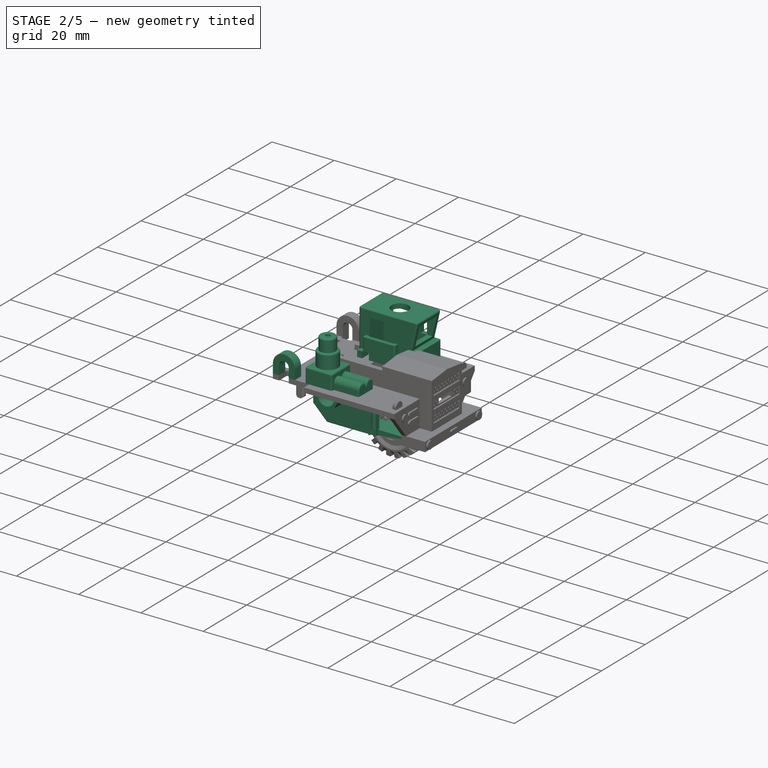
[diagram: stage 2 of 5 — iso view after this stage's code; geometry added in this stage tinted green]
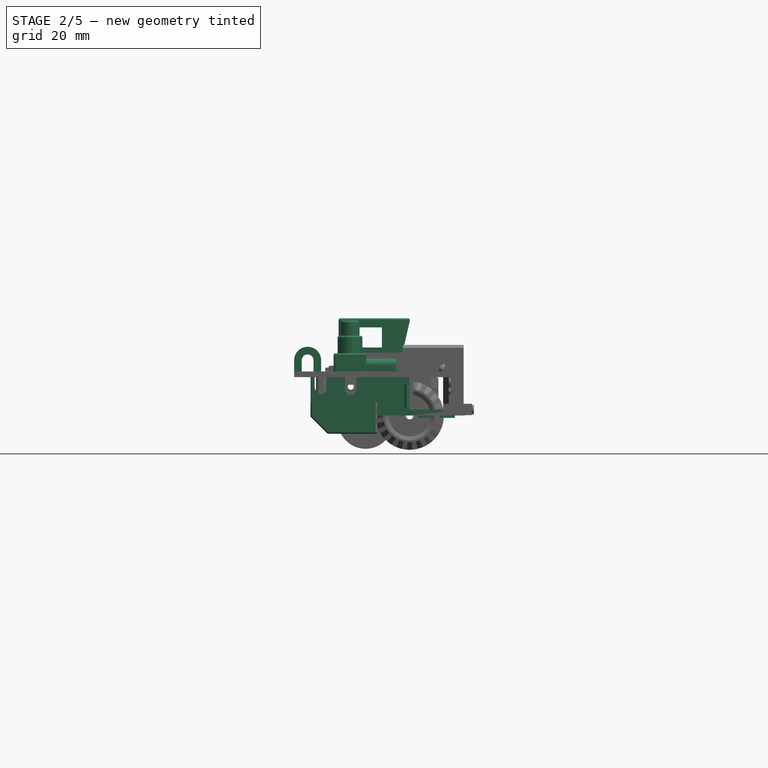
[diagram: stage 2 of 5 — front view after this stage's code; geometry added in this stage tinted green]
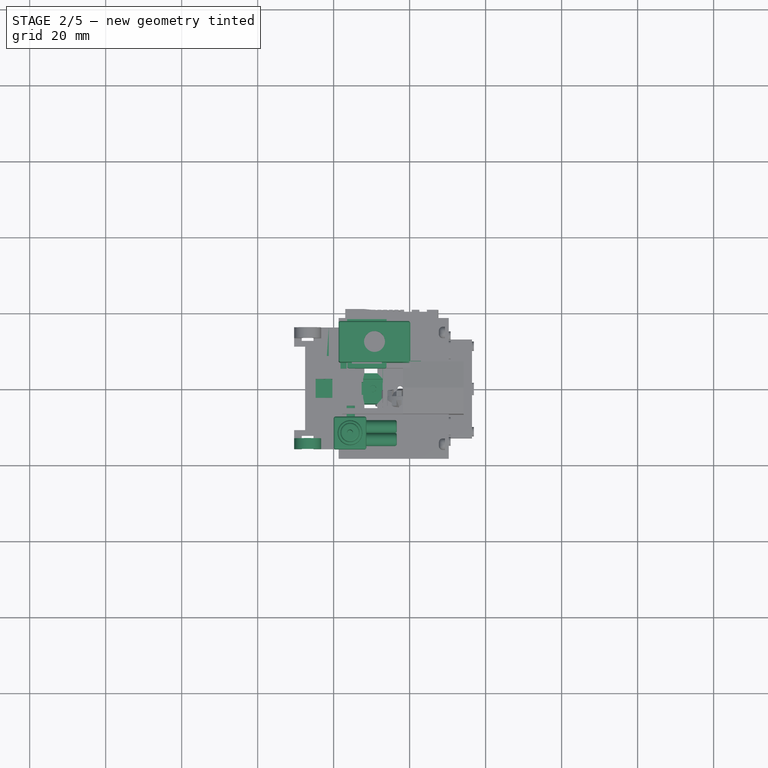
[diagram: stage 2 of 5 — top view after this stage's code; geometry added in this stage tinted green]
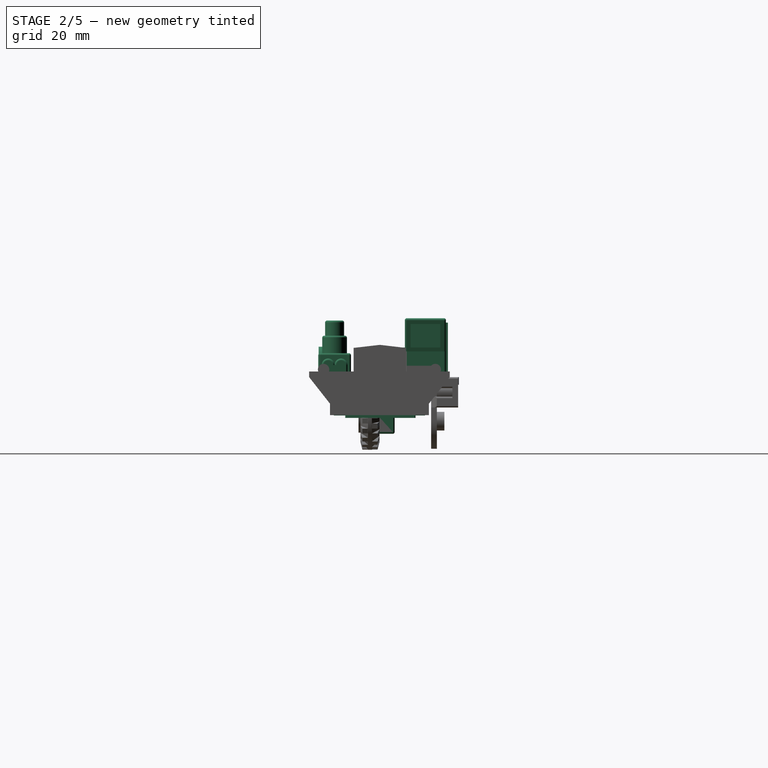
[diagram: stage 2 of 5 — right view after this stage's code; geometry added in this stage tinted green]
FEATURE [Sketcher::SketchObject] Sketch
  ArcFitTolerance = 1e-06
  AttachmentSupport = -> [XY_Plane]
  FullyConstrained = true
  MakeInternals = false
  MapMode = 5
  sketch-geometry (8):
    g0: LineSegment StartX=0 StartY=11.25 StartZ=0 EndX=14.5 EndY=11.25 EndZ=0
    g1: LineSegment StartX=14.5 StartY=11.25 StartZ=0 EndX=14.5 EndY=-11.25 EndZ=0
    g2: LineSegment StartX=14.5 StartY=-11.25 StartZ=0 EndX=0 EndY=-11.25 EndZ=0
    g3: LineSegment StartX=0 StartY=-11.25 StartZ=0 EndX=0 EndY=-12 EndZ=0
    g4: LineSegment StartX=0 StartY=-12 StartZ=0 EndX=-8.5 EndY=-12 EndZ=0
    g5: LineSegment StartX=-8.5 StartY=-12 StartZ=0 EndX=-8.5 EndY=12 EndZ=0
    g6: LineSegment StartX=-8.5 StartY=12 StartZ=0 EndX=0 EndY=12 EndZ=0
    g7: LineSegment StartX=0 StartY=12 StartZ=0 EndX=0 EndY=11.25 EndZ=0
  constraints (26):
    c: Horizontal(g0)
    c: Coincident(g1,g0)
    c: Vertical(g1)
    c: Coincident(g2,g1)
    c: Horizontal(g2)
    c: Coincident(g3,g2)
    c: Vertical(g3)
    c: Coincident(g4,g3)
    c: Horizontal(g4)
    c: Coincident(g5,g4)
    c: Vertical(g5)
    c: Coincident(g6,g5)
    c: Horizontal(g6)
    c: Coincident(g7,g6)
    c: Coincident(g7,g0)
    c: Vertical(g7)
    c: DistanceY(g1,g1) = 22.5
    c: DistanceX(g0,g0) = 14.5
    c: DistanceX(g2,g2) = 14.5
    c: DistanceY(g3,g3) = 0.75
    c: DistanceY(g7,g7) = 0.75
    c: DistanceX(g6,g6) = 8.5
    c: DistanceY(g5,g5) = 24
    c: DistanceY(g-1,g5) = 12
    c: DistanceX(g5,g-1) = 8.5
    c: DistanceX(g5,g0) = 23
FEATURE [PartDesign::Pad] Pad
  Direction = (0,0,1)
  Length = 1.6
  Length2 = 10
  Profile = -> Sketch
  ReferenceAxis = -> Sketch [N_Axis]
  Refine = true
  Suppressed = false
  Type = 0
FEATURE [Sketcher::SketchObject] Sketch001
  ArcFitTolerance = 1e-06
  AttachmentSupport = -> [Pad]
  ExternalGeometry = -> [Pad]
  FullyConstrained = true
  MakeInternals = false
  MapMode = 5
  Placement = pos=(0,0,1.6) rot=(0,0,1;0rad)
  sketch-geometry (8):
    g0: LineSegment StartX=-8.5 StartY=12 StartZ=0 EndX=0 EndY=12 EndZ=0
    g1: LineSegment StartX=0 StartY=12 StartZ=0 EndX=0 EndY=10.6 EndZ=0
    g2: LineSegment StartX=0 StartY=10.6 StartZ=0 EndX=-7.1 EndY=10.6 EndZ=0
    g3: LineSegment StartX=-7.1 StartY=10.6 StartZ=0 EndX=-7.1 EndY=-10.6 EndZ=0
    g4: LineSegment StartX=-7.1 StartY=-10.6 StartZ=0 EndX=0 EndY=-10.6 EndZ=0
    g5: LineSegment StartX=0 StartY=-10.6 StartZ=0 EndX=0 EndY=-12 EndZ=0
    g6: LineSegment StartX=0 StartY=-12 StartZ=0 EndX=-8.5 EndY=-12 EndZ=0
    g7: LineSegment StartX=-8.5 StartY=-12 StartZ=0 EndX=-8.5 EndY=12 EndZ=0
  constraints (20):
    c: Coincident(g0,g-5)
    c: Coincident(g0,g-4)
    c: Coincident(g1,g0)
    c: PointOnObject(g1,g-2)
    c: Coincident(g2,g1)
    c: Horizontal(g2)
    c: Coincident(g3,g2)
    c: Vertical(g3)
    c: Coincident(g4,g3)
    c: PointOnObject(g4,g-2)
    c: Horizontal(g4)
    c: Coincident(g5,g4)
    c: Coincident(g5,g-7)
    c: Coincident(g6,g5)
    c: Coincident(g6,g-6)
    c: Coincident(g7,g6)
    c: Coincident(g7,g0)
    c: DistanceX(g6,g3) = 1.4
    c: DistanceY(g5,g4) = 1.4
    c: DistanceY(g2,g0) = 1.4
FEATURE [PartDesign::Pad] Pad001
  BaseFeature = -> Pad
  Direction = (0,0,1)
  Length = 8.5
  Length2 = 10
  Profile = -> Sketch001
  ReferenceAxis = -> Sketch001 [N_Axis]
  Refine = true
  Suppressed = false
  Type = 0
FEATURE [Sketcher::SketchObject] Sketch002
  ArcFitTolerance = 1e-06
  AttachmentSupport = -> [Pad001]
  ExternalGeometry = -> [Pad001]
  FullyConstrained = true
  MakeInternals = false
  MapMode = 5
  Placement = pos=(0,0,1.6) rot=(0,0,1;0rad)
  sketch-geometry (4):
    g0: LineSegment StartX=5.4 StartY=4.1 StartZ=0 EndX=5.4 EndY=-4.1 EndZ=0
    g1: LineSegment StartX=5.4 StartY=-4.1 StartZ=0 EndX=7.5 EndY=-4.1 EndZ=0
    g2: LineSegment StartX=7.5 StartY=-4.1 StartZ=0 EndX=7.5 EndY=4.1 EndZ=0
    g3: LineSegment StartX=7.5 StartY=4.1 StartZ=0 EndX=5.4 EndY=4.1 EndZ=0
  constraints (13):
    c: Coincident(g0,g1)
    c: Coincident(g1,g2)
    c: Coincident(g2,g3)
    c: Coincident(g3,g0)
    c: Vertical(g0)
    c: Vertical(g2)
    c: Horizontal(g1)
    c: Horizontal(g3)
    c: DistanceY(g2,g2) = 8.2
    c: DistanceX(g3,g3) = 2.1
    c: DistanceY(g-3,g-3) = 22.5
    c: DistanceY(g2,g-3) = 7.15
    c: DistanceX(g1,g-3) = 7
FEATURE [PartDesign::Pocket] Pocket
  BaseFeature = -> Pad001
  Direction = (0,0,-1)
  Length = 5
  Length2 = 5
  Profile = -> Sketch002
  ReferenceAxis = -> Sketch002 [N_Axis]
  Refine = true
  Suppressed = false
  Type = 0
FEATURE [Sketcher::SketchObject] Sketch003
  ArcFitTolerance = 1e-06
  AttachmentSupport = -> [Pocket]
  ExternalGeometry = -> [Pocket]
  FullyConstrained = true
  MakeInternals = false
  MapMode = 5
  Placement = pos=(0,0,10.1) rot=(0,0,1;0rad)
  sketch-geometry (4):
    g0: LineSegment StartX=-8.5 StartY=2.5 StartZ=0 EndX=-8.5 EndY=-2.5 EndZ=0
    g1: LineSegment StartX=-8.5 StartY=-2.5 StartZ=0 EndX=-7.1 EndY=-2.5 EndZ=0
    g2: LineSegment StartX=-7.1 StartY=-2.5 StartZ=0 EndX=-7.1 EndY=2.5 EndZ=0
    g3: LineSegment StartX=-7.1 StartY=2.5 StartZ=0 EndX=-8.5 EndY=2.5 EndZ=0
  constraints (12):
    c: Coincident(g0,g1)
    c: Coincident(g1,g2)
    c: Coincident(g2,g3)
    c: Coincident(g3,g0)
    c: Vertical(g0)
    c: Vertical(g2)
    c: Horizontal(g1)
    c: Horizontal(g3)
    c: PointOnObject(g0,g-4)
    c: PointOnObject(g1,g-3)
    c: DistanceY(g0,g0) = 5
    c: DistanceY(g1,g-1) = 2.5
FEATURE [PartDesign::Pocket] Pocket001
  BaseFeature = -> Pocket
  Direction = (0,0,-1)
  Length = 5
  Length2 = 5
  Profile = -> Sketch003
  ReferenceAxis = -> Sketch003 [N_Axis]
  Refine = true
  Suppressed = false
  Type = 0
FEATURE [Sketcher::SketchObject] Sketch004
  ArcFitTolerance = 1e-06
  AttachmentSupport = -> [Pocket001]
  ExternalGeometry = -> [Pocket001]
  FullyConstrained = true
  MakeInternals = false
  MapMode = 5
  Placement = pos=(0,0,10.1) rot=(0,0,1;0rad)
  sketch-geometry (4):
    g0: ArcOfCircle CenterX=-0.7 CenterY=-12 CenterZ=0 NormalX=0 NormalY=0 NormalZ=1 AngleXU=0 Radius=0.7 StartAngle=3.14159 EndAngle=6.28319
    g1: ArcOfCircle CenterX=-0.7 CenterY=12 CenterZ=0 NormalX=0 NormalY=0 NormalZ=1 AngleXU=0 Radius=0.7 StartAngle=-9e-16 EndAngle=3.14159
    g2: LineSegment StartX=0 StartY=-12 StartZ=0 EndX=-1.4 EndY=-12 EndZ=0
    g3: LineSegment StartX=0 StartY=12 StartZ=0 EndX=-1.4 EndY=12 EndZ=0
  constraints (13):
    c: Coincident(g0,g-3)
    c: PointOnObject(g0,g-3)
    c: Coincident(g1,g-4)
    c: PointOnObject(g1,g-4)
    c: PointOnObject(g0,g-3)
    c: PointOnObject(g1,g-4)
    c: DistanceY(g-5,g-5) = 1.4
    c: Radius(g1) = 0.7
    c: Radius(g0) = 0.7
    c: Coincident(g2,g0)
    c: Coincident(g2,g0)
    c: Coincident(g3,g1)
    c: Coincident(g3,g1)
FEATURE [PartDesign::Pad] Pad002
  BaseFeature = -> Pocket001
  Direction = (0,0,1)
  Length = 10
  Length2 = 10
  Profile = -> Sketch004
  ReferenceAxis = -> Sketch004 [N_Axis]
  Refine = true
  Reversed = true
  Suppressed = false
  Type = 0
FEATURE [Sketcher::SketchObject] Sketch005
  ArcFitTolerance = 1e-06
  AttachmentSupport = -> [Pad002]
  ExternalGeometry = -> [Pad002]
  FullyConstrained = true
  MakeInternals = false
  MapMode = 5
  Placement = pos=(0,-12,0) rot=(1,0,0;1.5708rad)
  sketch-geometry (8):
    g0: LineSegment StartX=0 StartY=10.1 StartZ=0 EndX=-2 EndY=10.1 EndZ=0
    g1: LineSegment StartX=-2 StartY=10.1 StartZ=0 EndX=-2 EndY=8.1 EndZ=0
    g2: LineSegment StartX=-2 StartY=8.1 StartZ=0 EndX=0 EndY=8.1 EndZ=0
    g3: LineSegment StartX=0 StartY=8.1 StartZ=0 EndX=0 EndY=10.1 EndZ=0
    g4: LineSegment StartX=0 StartY=0 StartZ=0 EndX=0 EndY=2 EndZ=0
    g5: LineSegment StartX=0 StartY=2 StartZ=0 EndX=-2 EndY=2 EndZ=0
    g6: LineSegment StartX=-2 StartY=2 StartZ=0 EndX=-2 EndY=0 EndZ=0
    g7: LineSegment StartX=-2 StartY=0 StartZ=0 EndX=0 EndY=0 EndZ=0
  constraints (22):
    c: Coincident(g0,g1)
    c: Coincident(g1,g2)
    c: Coincident(g2,g3)
    c: Coincident(g3,g0)
    c: Horizontal(g0)
    c: Horizontal(g2)
    c: Vertical(g1)
    c: Vertical(g3)
    c: Coincident(g0,g-5)
    c: Coincident(g4,g5)
    c: Coincident(g5,g6)
    c: Coincident(g6,g7)
    c: Coincident(g7,g4)
    c: Vertical(g4)
    c: Vertical(g6)
    c: Horizontal(g5)
    c: Horizontal(g7)
    c: Coincident(g4,g-1)
    c: DistanceY(g6,g6) = 2
    c: DistanceY(g1,g1) = 2
    c: DistanceX(g0,g0) = 2
    c: DistanceX(g5,g5) = 2
FEATURE [PartDesign::Pocket] Pocket002
  BaseFeature = -> Pad002
  Direction = (0,1,-2e-16)
  Length = 5
  Length2 = 5
  Profile = -> Sketch005
  ReferenceAxis = -> Sketch005 [N_Axis]
  Refine = true
  Reversed = true
  Suppressed = false
  Type = 0
FEATURE [Sketcher::SketchObject] Sketch006
  ArcFitTolerance = 1e-06
  AttachmentSupport = -> [Pocket002]
  ExternalGeometry = -> [Pocket002]
  FullyConstrained = true
  MakeInternals = false
  MapMode = 5
  Placement = pos=(0,12,0) rot=(0,0.707107,0.707107;3.14159rad)
  sketch-geometry (8):
    g0: LineSegment StartX=0 StartY=10.1 StartZ=0 EndX=0 EndY=8.1 EndZ=0
    g1: LineSegment StartX=0 StartY=8.1 StartZ=0 EndX=2 EndY=8.1 EndZ=0
    g2: LineSegment StartX=2 StartY=8.1 StartZ=0 EndX=2 EndY=10.1 EndZ=0
    g3: LineSegment StartX=2 StartY=10.1 StartZ=0 EndX=0 EndY=10.1 EndZ=0
    g4: LineSegment StartX=0 StartY=0 StartZ=0 EndX=2 EndY=0 EndZ=0
    g5: LineSegment StartX=2 StartY=0 StartZ=0 EndX=2 EndY=2 EndZ=0
    g6: LineSegment StartX=2 StartY=2 StartZ=0 EndX=0 EndY=2 EndZ=0
    g7: LineSegment StartX=0 StartY=2 StartZ=0 EndX=0 EndY=0 EndZ=0
  constraints (22):
    c: Coincident(g0,g1)
    c: Coincident(g1,g2)
    c: Coincident(g2,g3)
    c: Coincident(g3,g0)
    c: Vertical(g0)
    c: Vertical(g2)
    c: Horizontal(g1)
    c: Horizontal(g3)
    c: Coincident(g0,g-3)
    c: Coincident(g4,g5)
    c: Coincident(g5,g6)
    c: Coincident(g6,g7)
    c: Coincident(g7,g4)
    c: Horizontal(g4)
    c: Horizontal(g6)
    c: Vertical(g5)
    c: Vertical(g7)
    c: Coincident(g4,g-1)
    c: DistanceX(g6,g6) = 2
    c: DistanceX(g1,g1) = 2
    c: DistanceY(g2,g2) = 2
    c: DistanceY(g5,g5) = 2
FEATURE [PartDesign::Pocket] Pocket003
  BaseFeature = -> Pocket002
  Direction = (0,-1,2e-16)
  Length = 5
  Length2 = 5
  Profile = -> Sketch006
  ReferenceAxis = -> Sketch006 [N_Axis]
  Refine = true
  Reversed = true
  Suppressed = false
  Type = 0
FEATURE [Sketcher::SketchObject] Sketch007
  ArcFitTolerance = 1e-06
  AttachmentSupport = -> [Pocket003]
  ExternalGeometry = -> [Pocket003]
  FullyConstrained = true
  MakeInternals = false
  MapMode = 5
  Placement = pos=(0,0,0) rot=(1,0,0;3.14159rad)
  sketch-geometry (1):
    g0: Circle CenterX=-2.5 CenterY=0 CenterZ=0 NormalX=0 NormalY=0 NormalZ=1 AngleXU=0 Radius=1
  constraints (4):
    c: PointOnObject(g0,g-1)
    c: Radius(g0) = 1
    c: DistanceX(g0,g-3) = 17
    c: DistanceX(g-4,g0) = 6
FEATURE [PartDesign::Pocket] Pocket004
  BaseFeature = -> Pocket003
  Direction = (0,0,1)
  Length = 5
  Length2 = 5
  Profile = -> Sketch007
  ReferenceAxis = -> Sketch007 [N_Axis]
  Refine = true
  Suppressed = false
  Type = 0
FEATURE [Sketcher::SketchObject] Sketch008
  ArcFitTolerance = 1e-06
  AttachmentSupport = -> [Pocket004]
  ExternalGeometry = -> [Pocket004]
  FullyConstrained = false
  MakeInternals = false
  MapMode = 5
  Placement = pos=(0,0,1.6) rot=(0,0,1;0rad)
  sketch-geometry (1):
    g0: Circle CenterX=-2.5 CenterY=0 CenterZ=0 NormalX=0 NormalY=0 NormalZ=1 AngleXU=0 Radius=4.9
  constraints (1):
    c: Radius(g0) = 4.9
FEATURE [PartDesign::Pad] Pad003
  BaseFeature = -> Pocket004
  Direction = (0,0,1)
  Length = 1.2
  Length2 = 10
  Profile = -> Sketch008
  ReferenceAxis = -> Sketch008 [N_Axis]
  Refine = true
  Suppressed = false
  Type = 0
FEATURE [Sketcher::SketchObject] Sketch009
  ArcFitTolerance = 1e-06
  AttachmentSupport = -> [Pad003]
  ExternalGeometry = -> [Pad003]
  FullyConstrained = true
  MakeInternals = false
  MapMode = 5
  Placement = pos=(0,0,2.8) rot=(0,0,1;0rad)
  sketch-geometry (1):
    g0: Circle CenterX=-2.5 CenterY=0 CenterZ=0 NormalX=0 NormalY=0 NormalZ=1 AngleXU=0 Radius=3.55
  constraints (2):
    c: Coincident(g0,g-3)
    c: Radius(g0) = 3.55
FEATURE [PartDesign::Pad] Pad004
  BaseFeature = -> Pad003
  Direction = (0,0,1)
  Length = 1
  Length2 = 10
  Profile = -> Sketch009
  ReferenceAxis = -> Sketch009 [N_Axis]
  Refine = true
  Suppressed = false
  Type = 0
FEATURE [Sketcher::SketchObject] Sketch010
  ArcFitTolerance = 1e-06
  AttachmentSupport = -> [Pad004]
  ExternalGeometry = -> [Pad004]
  FullyConstrained = true
  MakeInternals = false
  MapMode = 5
  Placement = pos=(0,0,3.8) rot=(0,0,1;0rad)
  sketch-geometry (1):
    g0: Circle CenterX=-2.5 CenterY=0 CenterZ=0 NormalX=0 NormalY=0 NormalZ=1 AngleXU=0 Radius=2.25
  constraints (2):
    c: Coincident(g0,g-3)
    c: Diameter(g0) = 4.5
FEATURE [PartDesign::Pocket] Pocket005
  BaseFeature = -> Pad004
  Direction = (0,0,-1)
  Length = 1
  Length2 = 5
  Profile = -> Sketch010
  ReferenceAxis = -> Sketch010 [N_Axis]
  Refine = true
  Suppressed = false
  Type = 0
FEATURE [Sketcher::SketchObject] Sketch011
  ArcFitTolerance = 1e-06
  AttachmentSupport = -> [Pocket005]
  ExternalGeometry = -> [Pocket005]
  FullyConstrained = true
  MakeInternals = false
  MapMode = 5
  Placement = pos=(0,0,2.8) rot=(0,0,1;0rad)
  sketch-geometry (1):
    g0: Circle CenterX=-2.5 CenterY=0 CenterZ=0 NormalX=0 NormalY=0 NormalZ=1 AngleXU=0 Radius=1
  constraints (2):
    c: Coincident(g0,g-3)
    c: Radius(g0) = 1
FEATURE [PartDesign::Pocket] Pocket006
  BaseFeature = -> Pocket005
  Direction = (0,0,-1)
  Length = 1.2
  Length2 = 5
  Profile = -> Sketch011
  ReferenceAxis = -> Sketch011 [N_Axis]
  Refine = true
  Suppressed = false
  Type = 0
FEATURE [Sketcher::SketchObject] Sketch012
  ArcFitTolerance = 1e-06
  AttachmentSupport = -> [Pocket006]
  ExternalGeometry = -> [Sketch007]
  FullyConstrained = true
  MakeInternals = false
  MapMode = 5
  Placement = pos=(0,0,0) rot=(1,0,0;3.14159rad)
  sketch-geometry (1):
    g0: Circle CenterX=-2.5 CenterY=0 CenterZ=0 NormalX=0 NormalY=0 NormalZ=1 AngleXU=0 Radius=2
  constraints (2):
    c: Coincident(g0,g-3)
    c: Diameter(g0) = 4
FEATURE [PartDesign::Pocket] Pocket007
  BaseFeature = -> Pocket006
  Direction = (0,0,1)
  Length = 1.8
  Length2 = 5
  Profile = -> Sketch012
  ReferenceAxis = -> Sketch012 [N_Axis]
  Refine = true
  Suppressed = false
  Type = 0
FEATURE [Sketcher::SketchObject] Sketch013
  ArcFitTolerance = 1e-06
  AttachmentSupport = -> [Pocket007]
  ExternalGeometry = -> [Pocket007]
  FullyConstrained = true
  MakeInternals = false
  MapMode = 5
  Placement = pos=(0,0,0) rot=(1,0,0;3.14159rad)
  sketch-geometry (24):
    g0: LineSegment StartX=11.65 StartY=9 StartZ=0 EndX=8.15 EndY=9 EndZ=0
    g1: LineSegment StartX=7.9 StartY=8.75 StartZ=0 EndX=7.9 EndY=-9.25 EndZ=0
    g2: LineSegment StartX=8.15 StartY=-9.5 StartZ=0 EndX=11.65 EndY=-9.5 EndZ=0
    g3: LineSegment StartX=11.9 StartY=-9.25 StartZ=0 EndX=11.9 EndY=8.75 EndZ=0
    g4: LineSegment StartX=2.4 StartY=8.75 StartZ=0 EndX=2.4 EndY=-9.25 EndZ=0
    g5: LineSegment StartX=2.65 StartY=-9.5 StartZ=0 EndX=5.15 EndY=-9.5 EndZ=0
    g6: LineSegment StartX=5.4 StartY=-9.25 StartZ=0 EndX=5.4 EndY=8.75 EndZ=0
    g7: LineSegment StartX=5.15 StartY=9 StartZ=0 EndX=2.65 EndY=9 EndZ=0
    g8: ArcOfCircle CenterX=11.65 CenterY=8.75 CenterZ=0 NormalX=0 NormalY=0 NormalZ=1 AngleXU=0 Radius=0.25 StartAngle=2.7e-15 EndAngle=1.5708
    g9: GeomPoint [constr] X=11.9 Y=9 Z=0
    g10: ArcOfCircle CenterX=8.15 CenterY=8.75 CenterZ=0 NormalX=0 NormalY=0 NormalZ=1 AngleXU=0 Radius=0.25 StartAngle=1.5708 EndAngle=3.14159
    g11: GeomPoint [constr] X=7.9 Y=9 Z=0
    g12: ArcOfCircle CenterX=8.15 CenterY=-9.25 CenterZ=0 NormalX=0 NormalY=0 NormalZ=1 AngleXU=0 Radius=0.25 StartAngle=3.14159 EndAngle=4.71239
    g13: GeomPoint [constr] X=7.9 Y=-9.5 Z=0
    g14: ArcOfCircle CenterX=11.65 CenterY=-9.25 CenterZ=0 NormalX=0 NormalY=0 NormalZ=1 AngleXU=0 Radius=0.25 StartAngle=4.71239 EndAngle=6.28319
    g15: GeomPoint [constr] X=11.9 Y=-9.5 Z=0
    g16: ArcOfCircle CenterX=5.15 CenterY=-9.25 CenterZ=0 NormalX=0 NormalY=0 NormalZ=1 AngleXU=0 Radius=0.25 StartAngle=4.71239 EndAngle=6.28319
    g17: GeomPoint [constr] X=5.4 Y=-9.5 Z=0
    g18: ArcOfCircle CenterX=2.65 CenterY=-9.25 CenterZ=0 NormalX=0 NormalY=0 NormalZ=1 AngleXU=0 Radius=0.25 StartAngle=3.14159 EndAngle=4.71239
    g19: GeomPoint [constr] X=2.4 Y=-9.5 Z=0
    g20: ArcOfCircle CenterX=2.65 CenterY=8.75 CenterZ=0 NormalX=0 NormalY=0 NormalZ=1 AngleXU=0 Radius=0.25 StartAngle=1.5708 EndAngle=3.14159
    g21: GeomPoint [constr] X=2.4 Y=9 Z=0
    g22: ArcOfCircle CenterX=5.15 CenterY=8.75 CenterZ=0 NormalX=0 NormalY=0 NormalZ=1 AngleXU=0 Radius=0.25 StartAngle=2.9e-15 EndAngle=1.5708
    g23: GeomPoint [constr] X=5.4 Y=9 Z=0
  constraints (57):
    c: Horizontal(g0)
    c: Horizontal(g2)
    c: Vertical(g1)
    c: Vertical(g3)
    c: Vertical(g4)
    c: Vertical(g6)
    c: Horizontal(g5)
    c: Horizontal(g7)
    c: PointOnObject(g9,g0)
    c: PointOnObject(g9,g3)
    c: Tangent(g0,g8) = -1.5708
    c: Tangent(g3,g8) = -1.5708
    c: PointOnObject(g11,g0)
    c: PointOnObject(g11,g1)
    c: Tangent(g0,g10) = -1.5708
    c: Tangent(g1,g10) = -1.5708
    c: PointOnObject(g13,g1)
    c: PointOnObject(g13,g2)
    c: Tangent(g1,g12) = -1.5708
    c: Tangent(g2,g12) = -1.5708
    c: PointOnObject(g15,g2)
    c: PointOnObject(g15,g3)
    c: Tangent(g2,g14) = -1.5708
    c: Tangent(g3,g14) = -1.5708
    c: PointOnObject(g17,g5)
    c: PointOnObject(g17,g6)
    c: Tangent(g5,g16) = -1.5708
    c: Tangent(g6,g16) = -1.5708
    c: PointOnObject(g19,g4)
    c: PointOnObject(g19,g5)
    c: Tangent(g4,g18) = -1.5708
    c: Tangent(g5,g18) = -1.5708
    c: PointOnObject(g21,g4)
    c: PointOnObject(g21,g7)
    c: Tangent(g4,g20) = -1.5708
    c: Tangent(g7,g20) = -1.5708
    c: PointOnObject(g23,g6)
    c: PointOnObject(g23,g7)
    c: Tangent(g6,g22) = -1.5708
    c: Tangent(g7,g22) = -1.5708
    c: Radius(g20) = 0.25
    c: Radius(g22) = 0.25
    c: Radius(g18) = 0.25
    c: Radius(g16) = 0.25
    c: Radius(g12) = 0.25
    c: Radius(g14) = 0.25
    c: Radius(g10) = 0.25
    c: Radius(g8) = 0.25
    c: PointOnObject(g-3,g6)
    c: DistanceY(g3,g3) = 18
    c: DistanceY(g4,g4) = 18
    c: DistanceY(g-4,g-4) = 22.5
    c: DistanceY(g0,g-4) = 2.25
    c: DistanceY(g7,g-5) = 2.25
    c: DistanceX(g1,g3) = 4
    c: DistanceX(g4,g6) = 3
    c: DistanceX(g3,g-5) = 2.6
FEATURE [PartDesign::Pad] Pad005
  BaseFeature = -> Pocket007
  Direction = (0,0,-1)
  Length = 0.6
  Length2 = 10
  Profile = -> Sketch013
  ReferenceAxis = -> Sketch013 [N_Axis]
  Refine = true
  Suppressed = false
  Type = 0
FEATURE [Sketcher::SketchObject] Sketch014
  ArcFitTolerance = 1e-06
  AttachmentSupport = -> [Pad005]
  ExternalGeometry = -> [Pad005]
  FullyConstrained = true
  MakeInternals = false
  MapMode = 5
  Placement = pos=(-8.5,0,0) rot=(0.57735,-0.57735,-0.57735;2.0944rad)
  sketch-geometry (8):
    g0: LineSegment StartX=4 StartY=10.1 StartZ=0 EndX=4 EndY=3.4 EndZ=0
    g1: LineSegment StartX=4 StartY=3.4 StartZ=0 EndX=-4 EndY=3.4 EndZ=0
    g2: LineSegment StartX=-4 StartY=3.4 StartZ=0 EndX=-4 EndY=10.1 EndZ=0
    g3: LineSegment StartX=-4 StartY=10.1 StartZ=0 EndX=-2.5 EndY=10.1 EndZ=0
    g4: LineSegment StartX=2.5 StartY=10.1 StartZ=0 EndX=4 EndY=10.1 EndZ=0
    g5: LineSegment StartX=-2.5 StartY=10.1 StartZ=0 EndX=-2.5 EndY=5.1 EndZ=0
    g6: LineSegment StartX=-2.5 StartY=5.1 StartZ=0 EndX=2.5 EndY=5.1 EndZ=0
    g7: LineSegment StartX=2.5 StartY=5.1 StartZ=0 EndX=2.5 EndY=10.1 EndZ=0
  constraints (20):
    c: PointOnObject(g0,g-3)
    c: Vertical(g0)
    c: Coincident(g1,g0)
    c: Horizontal(g1)
    c: Coincident(g2,g1)
    c: PointOnObject(g2,g-7)
    c: Vertical(g2)
    c: Coincident(g3,g2)
    c: Coincident(g3,g-7)
    c: Coincident(g0,g4)
    c: Coincident(g5,g3)
    c: Coincident(g5,g-6)
    c: Coincident(g6,g5)
    c: Coincident(g6,g-5)
    c: Coincident(g7,g6)
    c: Coincident(g7,g4)
    c: DistanceX(g3,g3) = 1.5
    c: DistanceX(g4,g4) = 1.5
    c: DistanceY(g-8,g0) = 3.4
    c: Coincident(g4,g-4)
FEATURE [PartDesign::Pad] Pad006
  BaseFeature = -> Pad005
  Direction = (-1,0,0)
  Length = 17.6
  Length2 = 10
  Profile = -> Sketch014
  ReferenceAxis = -> Sketch014 [N_Axis]
  Refine = true
  Suppressed = false
  Type = 0
FEATURE [Sketcher::SketchObject] Sketch015
  ArcFitTolerance = 1e-06
  AttachmentSupport = -> [Pad006]
  ExternalGeometry = -> [Pad006]
  FullyConstrained = true
  MakeInternals = false
  MapMode = 5
  Placement = pos=(0,4,0) rot=(0,0.707107,0.707107;3.14159rad)
  sketch-geometry (8):
    g0: LineSegment StartX=11.9 StartY=10.1 StartZ=0 EndX=12.9 EndY=10.1 EndZ=0
    g1: LineSegment StartX=18.1 StartY=10.1 StartZ=0 EndX=19.1 EndY=10.1 EndZ=0
    g2: ArcOfCircle CenterX=15.5 CenterY=7.5 CenterZ=0 NormalX=0 NormalY=0 NormalZ=1 AngleXU=0 Radius=3.6 StartAngle=3.14159 EndAngle=6.28319
    g3: LineSegment StartX=11.9 StartY=10.1 StartZ=0 EndX=11.9 EndY=7.5 EndZ=0
    g4: LineSegment StartX=19.1 StartY=7.5 StartZ=0 EndX=19.1 EndY=10.1 EndZ=0
    g5: ArcOfCircle CenterX=15.5 CenterY=7.5 CenterZ=0 NormalX=0 NormalY=0 NormalZ=1 AngleXU=0 Radius=2.6 StartAngle=3.14159 EndAngle=6.28319
    g6: LineSegment StartX=18.1 StartY=7.5 StartZ=0 EndX=18.1 EndY=10.1 EndZ=0
    g7: LineSegment StartX=12.9 StartY=7.5 StartZ=0 EndX=12.9 EndY=10.1 EndZ=0
  constraints (25):
    c: PointOnObject(g0,g-4)
    c: PointOnObject(g0,g-4)
    c: PointOnObject(g1,g-4)
    c: DistanceX(g-4,g0) = 3.4
    c: DistanceX(g0,g0) = 1
    c: DistanceX(g1,g1) = 1
    c: DistanceX(g0,g1) = 5.2
    c: Diameter(g2) = 7.2
    c: Coincident(g3,g0)
    c: Coincident(g3,g2)
    c: Coincident(g4,g2)
    c: Coincident(g4,g1)
    c: Vertical(g4)
    c: Vertical(g3)
    c: DistanceY(g2,g2) = 0
    c: PointOnObject(g1,g-4)
    c: Diameter(g5) = 5.2
    c: Coincident(g6,g5)
    c: Coincident(g6,g1)
    c: Vertical(g6)
    c: Coincident(g7,g5)
    c: Coincident(g7,g0)
    c: Vertical(g7)
    c: Coincident(g5,g2)
    c: DistanceY(g-5,g2) = 4.1
FEATURE [PartDesign::Pad] Pad007
  BaseFeature = -> Pad006
  Direction = (0,1,-2e-16)
  Length = 9
  Length2 = 10
  Profile = -> Sketch015
  ReferenceAxis = -> Sketch015 [N_Axis]
  Refine = true
  Suppressed = false
  Type = 0
FEATURE [Sketcher::SketchObject] Sketch016
  ArcFitTolerance = 1e-06
  AttachmentSupport = -> [Pad007]
  ExternalGeometry = -> [Pad007]
  FullyConstrained = true
  MakeInternals = false
  MapMode = 5
  Placement = pos=(0,-4,0) rot=(1,0,0;1.5708rad)
  sketch-geometry (8):
    g0: LineSegment StartX=-11.9 StartY=10.1 StartZ=0 EndX=-12.9 EndY=10.1 EndZ=0
    g1: LineSegment StartX=-18.1 StartY=10.1 StartZ=0 EndX=-19.1 EndY=10.1 EndZ=0
    g2: ArcOfCircle CenterX=-15.5 CenterY=7.5 CenterZ=0 NormalX=0 NormalY=0 NormalZ=1 AngleXU=0 Radius=3.6 StartAngle=3.14159 EndAngle=6.28319
    g3: LineSegment StartX=-11.9 StartY=10.1 StartZ=0 EndX=-11.9 EndY=7.5 EndZ=0
    g4: LineSegment StartX=-19.1 StartY=10.1 StartZ=0 EndX=-19.1 EndY=7.5 EndZ=0
    g5: ArcOfCircle CenterX=-15.5 CenterY=7.5 CenterZ=0 NormalX=0 NormalY=0 NormalZ=1 AngleXU=0 Radius=2.6 StartAngle=3.14159 EndAngle=6.28319
    g6: LineSegment StartX=-18.1 StartY=10.1 StartZ=0 EndX=-18.1 EndY=7.5 EndZ=0
    g7: LineSegment StartX=-12.9 StartY=10.1 StartZ=0 EndX=-12.9 EndY=7.5 EndZ=0
  constraints (25):
    c: PointOnObject(g0,g-3)
    c: PointOnObject(g0,g-3)
    c: PointOnObject(g1,g-3)
    c: PointOnObject(g1,g-3)
    c: DistanceX(g0,g-3) = 3.4
    c: DistanceX(g0,g0) = 1
    c: DistanceX(g1,g1) = 1
    c: DistanceX(g1,g0) = 5.2
    c: Diameter(g2) = 7.2
    c: Coincident(g3,g0)
    c: Coincident(g3,g2)
    c: Coincident(g4,g1)
    c: Coincident(g4,g2)
    c: Vertical(g4)
    c: Vertical(g3)
    c: Coincident(g6,g1)
    c: Coincident(g6,g5)
    c: Vertical(g6)
    c: Coincident(g7,g0)
    c: Coincident(g7,g5)
    c: Coincident(g2,g5)
    c: Diameter(g5) = 5.2
    c: DistanceY(g-4,g2) = 4.1
    c: Vertical(g7)
    c: DistanceY(g5,g2) = 0
FEATURE [PartDesign::Pad] Pad008
  BaseFeature = -> Pad007
  Direction = (0,-1,2e-16)
  Length = 9
  Length2 = 10
  Profile = -> Sketch016
  ReferenceAxis = -> Sketch016 [N_Axis]
  Refine = true
  Suppressed = false
  Type = 0
FEATURE [Sketcher::SketchObject] Sketch017
  ArcFitTolerance = 1e-06
  AttachmentSupport = -> [Pad008]
  ExternalGeometry = -> [Pad008]
  FullyConstrained = false
  MakeInternals = false
  MapMode = 5
  Placement = pos=(0,4,0) rot=(0,0.707107,0.707107;3.14159rad)
  sketch-geometry (4):
    g0: LineSegment StartX=12.9 StartY=10.1 StartZ=0 EndX=12.9 EndY=7.5 EndZ=0
    g1: LineSegment StartX=12.9 StartY=10.1 StartZ=0 EndX=18.1 EndY=10.1 EndZ=0
    g2: LineSegment StartX=18.1 StartY=10.1 StartZ=0 EndX=18.1 EndY=7.5 EndZ=0
    g3: ArcOfCircle CenterX=15.5 CenterY=7.5 CenterZ=0 NormalX=0 NormalY=0 NormalZ=1 AngleXU=0 Radius=2.6 StartAngle=3.14159 EndAngle=6.28319
  constraints (8):
    c: Coincident(g0,g-3)
    c: Coincident(g0,g-4)
    c: Coincident(g1,g0)
    c: Coincident(g1,g-3)
    c: Coincident(g2,g1)
    c: Coincident(g2,g-4)
    c: Coincident(g3,g2)
    c: Coincident(g3,g0)
FEATURE [PartDesign::Pocket] Pocket008
  BaseFeature = -> Pad008
  Direction = (0,-1,2e-16)
  Length = 1.5
  Length2 = 5
  Profile = -> Sketch017
  ReferenceAxis = -> Sketch017 [N_Axis]
  Refine = true
  Suppressed = false
  Type = 0
FEATURE [Sketcher::SketchObject] Sketch018
  ArcFitTolerance = 1e-06
  AttachmentSupport = -> [Pocket008]
  ExternalGeometry = -> [Pocket008]
  FullyConstrained = true
  MakeInternals = false
  MapMode = 5
  Placement = pos=(0,-4,0) rot=(1,0,0;1.5708rad)
  sketch-geometry (4):
    g0: LineSegment StartX=-18.1 StartY=7.5 StartZ=0 EndX=-18.1 EndY=10.1 EndZ=0
    g1: LineSegment StartX=-18.1 StartY=10.1 StartZ=0 EndX=-12.9 EndY=10.1 EndZ=0
    g2: LineSegment StartX=-12.9 StartY=10.1 StartZ=0 EndX=-12.9 EndY=7.5 EndZ=0
    g3: ArcOfCircle CenterX=-15.5 CenterY=7.5 CenterZ=0 NormalX=0 NormalY=0 NormalZ=1 AngleXU=0 Radius=2.6 StartAngle=3.14159 EndAngle=6.28319
  constraints (8):
    c: Coincident(g0,g-5)
    c: Coincident(g0,g-4)
    c: Coincident(g1,g0)
    c: Coincident(g1,g-3)
    c: Coincident(g2,g1)
    c: Coincident(g2,g-5)
    c: Coincident(g3,g2)
    c: Tangent(g3,g-5) = -1.5708
FEATURE [PartDesign::Pocket] Pocket009
  BaseFeature = -> Pocket008
  Direction = (0,1,-2e-16)
  Length = 1.5
  Length2 = 5
  Profile = -> Sketch018
  ReferenceAxis = -> Sketch018 [N_Axis]
  Refine = true
  Suppressed = false
  Type = 0
FEATURE [Sketcher::SketchObject] Sketch019
  ArcFitTolerance = 1e-06
  AttachmentSupport = -> [Pocket009]
  ExternalGeometry = -> [Pocket009]
  FullyConstrained = true
  MakeInternals = false
  MapMode = 5
  Placement = pos=(0,2.5,0) rot=(1,0,0;1.5708rad)
  sketch-geometry (8):
    g0: LineSegment StartX=-18.75 StartY=10.1 StartZ=0 EndX=-17 EndY=10.1 EndZ=0
    g1: LineSegment StartX=-12.25 StartY=10.1 StartZ=0 EndX=-14 EndY=10.1 EndZ=0
    g2: LineSegment StartX=-14 StartY=10.1 StartZ=0 EndX=-14 EndY=6.9 EndZ=0
    g3: LineSegment StartX=-17 StartY=10.1 StartZ=0 EndX=-17 EndY=6.9 EndZ=0
    g4: ArcOfCircle CenterX=-15.5 CenterY=6.9 CenterZ=0 NormalX=0 NormalY=0 NormalZ=1 AngleXU=0 Radius=1.5 StartAngle=3.14159 EndAngle=6.28319
    g5: LineSegment StartX=-18.75 StartY=10.1 StartZ=0 EndX=-18.75 EndY=5.1 EndZ=0
    g6: LineSegment StartX=-18.75 StartY=5.1 StartZ=0 EndX=-12.25 EndY=5.1 EndZ=0
    g7: LineSegment StartX=-12.25 StartY=10.1 StartZ=0 EndX=-12.25 EndY=5.1 EndZ=0
  constraints (25):
    c: PointOnObject(g0,g-9)
    c: Horizontal(g0)
    c: PointOnObject(g1,g-3)
    c: Horizontal(g1)
    c: Coincident(g2,g1)
    c: Vertical(g2)
    c: Coincident(g3,g0)
    c: Vertical(g3)
    c: Coincident(g4,g3)
    c: Coincident(g4,g2)
    c: Coincident(g5,g0)
    c: PointOnObject(g5,g-10)
    c: Vertical(g5)
    c: PointOnObject(g6,g-6)
    c: Coincident(g7,g6)
    c: Vertical(g7)
    c: Coincident(g7,g1)
    c: Coincident(g6,g5)
    c: DistanceX(g0,g1) = 3
    c: DistanceX(g0,g0) = 1.75
    c: DistanceX(g1,g1) = 1.75
    c: DistanceY(g4,g3) = 0
    c: DistanceY(g4,g2) = 0
    c: DistanceX(g-7,g4) = 0
    c: DistanceY(g4,g-7) = 0.6
FEATURE [PartDesign::Pad] Pad009
  BaseFeature = -> Pocket009
  Direction = (0,-1,2e-16)
  Length = 0.8
  Length2 = 10
  Profile = -> Sketch019
  ReferenceAxis = -> Sketch019 [N_Axis]
  Refine = true
  Suppressed = false
  Type = 0
FEATURE [Sketcher::SketchObject] Sketch020
  ArcFitTolerance = 1e-06
  AttachmentSupport = -> [Pad009]
  ExternalGeometry = -> [Pad009]
  FullyConstrained = true
  MakeInternals = false
  MapMode = 5
  Placement = pos=(0,-2.5,0) rot=(0,0.707107,0.707107;3.14159rad)
  sketch-geometry (8):
    g0: LineSegment StartX=12.25 StartY=10.1 StartZ=0 EndX=14 EndY=10.1 EndZ=0
    g1: LineSegment StartX=18.75 StartY=10.1 StartZ=0 EndX=17 EndY=10.1 EndZ=0
    g2: LineSegment StartX=17 StartY=10.1 StartZ=0 EndX=17 EndY=6.9 EndZ=0
    g3: LineSegment StartX=14 StartY=10.1 StartZ=0 EndX=14 EndY=6.9 EndZ=0
    g4: ArcOfCircle CenterX=15.5 CenterY=6.9 CenterZ=0 NormalX=0 NormalY=0 NormalZ=1 AngleXU=0 Radius=1.5 StartAngle=3.14159 EndAngle=6.28319
    g5: LineSegment StartX=12.25 StartY=10.1 StartZ=0 EndX=12.25 EndY=5.1 EndZ=0
    g6: LineSegment StartX=18.75 StartY=10.1 StartZ=0 EndX=18.75 EndY=5.1 EndZ=0
    g7: LineSegment StartX=18.75 StartY=5.1 StartZ=0 EndX=12.25 EndY=5.1 EndZ=0
  constraints (25):
    c: PointOnObject(g0,g-3)
    c: Horizontal(g0)
    c: PointOnObject(g1,g-8)
    c: Horizontal(g1)
    c: Coincident(g2,g1)
    c: Vertical(g2)
    c: Coincident(g3,g0)
    c: Vertical(g3)
    c: Coincident(g4,g3)
    c: Coincident(g4,g2)
    c: Coincident(g5,g0)
    c: PointOnObject(g5,g-10)
    c: Vertical(g5)
    c: Coincident(g6,g1)
    c: PointOnObject(g6,g-9)
    c: Vertical(g6)
    c: Coincident(g7,g6)
    c: Coincident(g7,g5)
    c: DistanceX(g0,g1) = 3
    c: DistanceX(g0,g0) = 1.75
    c: DistanceX(g1,g1) = 1.75
    c: DistanceX(g-6,g4) = 0
    c: DistanceY(g4,g-6) = 0.6
    c: DistanceY(g4,g2) = 0
    c: DistanceY(g4,g3) = 0
FEATURE [PartDesign::Pad] Pad010
  BaseFeature = -> Pad009
  Direction = (0,1,-2e-16)
  Length = 0.8
  Length2 = 10
  Profile = -> Sketch020
  ReferenceAxis = -> Sketch020 [N_Axis]
  Refine = true
  Suppressed = false
  Type = 0
FEATURE [Sketcher::SketchObject] Sketch021
  ArcFitTolerance = 1e-06
  AttachmentSupport = -> [Pad010]
  ExternalGeometry = -> [Pad010]
  FullyConstrained = true
  MakeInternals = false
  MapMode = 5
  Placement = pos=(0,4,0) rot=(0,0.707107,0.707107;3.14159rad)
  sketch-geometry (8):
    g0: LineSegment StartX=26.1 StartY=10.1 StartZ=0 EndX=25 EndY=10.1 EndZ=0
    g1: LineSegment StartX=26.1 StartY=10.1 StartZ=0 EndX=26.1 EndY=7.49999 EndZ=0
    g2: LineSegment StartX=22.2 StartY=10.1 StartZ=0 EndX=21.1 EndY=10.1 EndZ=0
    g3: LineSegment StartX=22.2 StartY=10.1 StartZ=0 EndX=22.2 EndY=7.5 EndZ=0
    g4: LineSegment StartX=25 StartY=10.1 StartZ=0 EndX=25 EndY=7.5 EndZ=0
    g5: LineSegment StartX=21.1 StartY=10.1 StartZ=0 EndX=21.1 EndY=7.5 EndZ=0
    g6: ArcOfCircle CenterX=23.6 CenterY=7.5 CenterZ=0 NormalX=0 NormalY=0 NormalZ=1 AngleXU=0 Radius=1.4 StartAngle=3.14159 EndAngle=6.28319
    g7: ArcOfCircle CenterX=23.6 CenterY=7.5 CenterZ=0 NormalX=0 NormalY=0 NormalZ=1 AngleXU=0 Radius=2.5 StartAngle=3.14159 EndAngle=6.28318
  constraints (24):
    c: Coincident(g0,g-4)
    c: PointOnObject(g0,g-3)
    c: Coincident(g1,g0)
    c: PointOnObject(g1,g-4)
    c: PointOnObject(g2,g-3)
    c: PointOnObject(g2,g-3)
    c: Coincident(g3,g2)
    c: Vertical(g3)
    c: Coincident(g4,g0)
    c: Vertical(g4)
    c: Coincident(g5,g2)
    c: Vertical(g5)
    c: Coincident(g6,g4)
    c: Coincident(g6,g3)
    c: Coincident(g7,g1)
    c: Coincident(g7,g5)
    c: DistanceX(g0,g0) = 1.1
    c: DistanceX(g2,g2) = 1.1
    c: Coincident(g6,g7)
    c: DistanceX(g2,g0) = 5
    c: DistanceY(g3,g6) = 0
    c: DistanceY(g4,g6) = 0
    c: DistanceY(g6,g5) = 0
    c: DistanceY(g-4,g6) = 4.1
FEATURE [PartDesign::Pad] Pad011
  BaseFeature = -> Pad010
  Direction = (0,1,-2e-16)
  Length = 3.1
  Length2 = 10
  Profile = -> Sketch021
  ReferenceAxis = -> Sketch021 [N_Axis]
  Refine = true
  Suppressed = false
  Type = 0
FEATURE [Sketcher::SketchObject] Sketch022
  ArcFitTolerance = 1e-06
  AttachmentSupport = -> [Pad011]
  ExternalGeometry = -> [Pad011]
  FullyConstrained = true
  MakeInternals = false
  MapMode = 5
  Placement = pos=(0,4,0) rot=(0,0.707107,0.707107;3.14159rad)
  sketch-geometry (4):
    g0: LineSegment StartX=22.2 StartY=10.1 StartZ=0 EndX=25 EndY=10.1 EndZ=0
    g1: LineSegment StartX=25 StartY=10.1 StartZ=0 EndX=25 EndY=7.5 EndZ=0
    g2: LineSegment StartX=22.2 StartY=10.1 StartZ=0 EndX=22.2 EndY=7.5 EndZ=0
    g3: ArcOfCircle CenterX=23.6 CenterY=7.5 CenterZ=0 NormalX=0 NormalY=0 NormalZ=1 AngleXU=0 Radius=1.4 StartAngle=3.14159 EndAngle=6.28319
  constraints (9):
    c: Coincident(g0,g-6)
    c: Coincident(g0,g-4)
    c: Coincident(g1,g0)
    c: Coincident(g1,g-5)
    c: Coincident(g3,g1)
    c: Coincident(g3,g-5)
    c: Coincident(g2,g3)
    c: Coincident(g2,g0)
    c: DistanceY(g2,g3) = 0
FEATURE [PartDesign::Pocket] Pocket010
  BaseFeature = -> Pad011
  Direction = (0,-1,2e-16)
  Length = 8
  Length2 = 5
  Profile = -> Sketch022
  ReferenceAxis = -> Sketch022 [N_Axis]
  Refine = true
  Suppressed = false
  Type = 0
FEATURE [Sketcher::SketchObject] Sketch023
  ArcFitTolerance = 1e-06
  AttachmentSupport = -> [Pocket010]
  ExternalGeometry = -> [Pocket010]
  FullyConstrained = true
  MakeInternals = false
  MapMode = 5
  Placement = pos=(0,-4,0) rot=(1,0,0;1.5708rad)
  sketch-geometry (8):
    g0: LineSegment StartX=-26.1 StartY=10.1 StartZ=0 EndX=-25 EndY=10.1 EndZ=0
    g1: LineSegment StartX=-25 StartY=10.1 StartZ=0 EndX=-25 EndY=7.5 EndZ=0
    g2: LineSegment StartX=-22.2 StartY=7.5 StartZ=0 EndX=-22.2 EndY=10.1 EndZ=0
    g3: LineSegment StartX=-26.1 StartY=10.1 StartZ=0 EndX=-26.1 EndY=7.5 EndZ=0
    g4: LineSegment StartX=-22.2 StartY=10.1 StartZ=0 EndX=-21.1 EndY=10.1 EndZ=0
    g5: LineSegment StartX=-21.1 StartY=10.1 StartZ=0 EndX=-21.1 EndY=7.50001 EndZ=0
    g6: ArcOfCircle CenterX=-23.6 CenterY=7.5 CenterZ=0 NormalX=0 NormalY=0 NormalZ=1 AngleXU=0 Radius=2.5 StartAngle=3.14159 EndAngle=6.28319
    g7: ArcOfCircle CenterX=-23.6 CenterY=7.5 CenterZ=0 NormalX=0 NormalY=0 NormalZ=1 AngleXU=0 Radius=1.4 StartAngle=3.14159 EndAngle=6.28319
  constraints (21):
    c: Coincident(g0,g-7)
    c: Coincident(g0,g-7)
    c: Coincident(g1,g0)
    c: Coincident(g1,g-6)
    c: Coincident(g2,g-5)
    c: Coincident(g2,g-4)
    c: Coincident(g3,g0)
    c: Vertical(g3)
    c: DistanceX(g0,g0) = 1.1
    c: Coincident(g4,g2)
    c: PointOnObject(g4,g-3)
    c: Coincident(g5,g4)
    c: Vertical(g5)
    c: Coincident(g6,g3)
    c: Coincident(g6,g5)
    c: Coincident(g7,g1)
    c: Coincident(g7,g2)
    c: Coincident(g7,g6)
    c: DistanceX(g4,g4) = 1.1
    c: DistanceY(g6,g2) = 0
    c: DistanceY(g3,g1) = 0
FEATURE [PartDesign::Pad] Pad012
  BaseFeature = -> Pocket010
  Direction = (0,-1,2e-16)
  Length = 3.1
  Length2 = 10
  Profile = -> Sketch023
  ReferenceAxis = -> Sketch023 [N_Axis]
  Refine = true
  Suppressed = false
  Type = 0
FEATURE [Sketcher::SketchObject] Sketch024
  ArcFitTolerance = 1e-06
  AttachmentSupport = -> [Pad012]
  ExternalGeometry = -> [Pad012]
  FullyConstrained = true
  MakeInternals = false
  MapMode = 5
  Placement = pos=(0,0,5.1) rot=(0,0,1;0rad)
  sketch-geometry (1):
    g0: Circle CenterX=-9.675 CenterY=0 CenterZ=0 NormalX=0 NormalY=0 NormalZ=1 AngleXU=0 Radius=0.9
  constraints (4):
    c: PointOnObject(g0,g-1)
    c: Diameter(g0) = 1.8
    c: DistanceX(g-3,g-3) = 5.15
    c: DistanceX(g0,g-3) = 2.575
FEATURE [PartDesign::Pocket] Pocket011
  BaseFeature = -> Pad012
  Direction = (0,0,-1)
  Length = 5
  Length2 = 5
  Profile = -> Sketch024
  ReferenceAxis = -> Sketch024 [N_Axis]
  Refine = true
  Suppressed = false
  Type = 0
FEATURE [Sketcher::SketchObject] Sketch025
  ArcFitTolerance = 1e-06
  AttachmentSupport = -> [Pocket011]
  ExternalGeometry = -> [Pocket011]
  FullyConstrained = true
  MakeInternals = false
  MapMode = 5
  Placement = pos=(0,0,5.1) rot=(0,0,1;0rad)
  sketch-geometry (4):
    g0: LineSegment StartX=-20.7 StartY=2.5 StartZ=0 EndX=-22.2 EndY=2.5 EndZ=0
    g1: LineSegment StartX=-22.2 StartY=2.5 StartZ=0 EndX=-22.2 EndY=-2.5 EndZ=0
    g2: LineSegment StartX=-22.2 StartY=-2.5 StartZ=0 EndX=-20.7 EndY=-2.5 EndZ=0
    g3: LineSegment StartX=-20.7 StartY=-2.5 StartZ=0 EndX=-20.7 EndY=2.5 EndZ=0
  constraints (11):
    c: Coincident(g0,g1)
    c: Coincident(g1,g2)
    c: Coincident(g2,g3)
    c: Coincident(g3,g0)
    c: Horizontal(g0)
    c: Horizontal(g2)
    c: Vertical(g1)
    c: Vertical(g3)
    c: PointOnObject(g0,g-4)
    c: Coincident(g1,g-6)
    c: DistanceX(g0,g0) = 1.5
FEATURE [PartDesign::Pad] Pad013
  BaseFeature = -> Pocket011
  Direction = (0,0,1)
  Length = 7.5
  Length2 = 10
  Profile = -> Sketch025
  ReferenceAxis = -> Sketch025 [N_Axis]
  Refine = true
  Suppressed = false
  Type = 0
FEATURE [PartDesign::SubShapeBinder] Binder007
  BindCopyOnChange = 0
  BindMode = 2
  ClaimChildren = false
  Context = -> Body018 [Binder007.]
  Fuse = false
  MakeFace = true
  OffsetFill = false
  OffsetIntersection = false
  OffsetJoinType = 0
  OffsetOpenResult = false
  PartialLoad = false
  Refine = true
  Relative = true
  _Version = 2
FEATURE [Sketcher::SketchObject] Sketch350
  ArcFitTolerance = 1e-06
  AttachmentSupport = -> [Binder007]
  ExternalGeometry = -> [Binder007]
  FullyConstrained = true
  MakeInternals = false
  MapMode = 5
  Placement = pos=(0,0,11.6) rot=(0,0,1;0rad)
  sketch-geometry (4):
    g0: LineSegment StartX=-20 StartY=-7.5 StartZ=0 EndX=-20 EndY=-16.1 EndZ=0
    g1: LineSegment StartX=-20 StartY=-16.1 StartZ=0 EndX=-11.4 EndY=-16.1 EndZ=0
    g2: LineSegment StartX=-11.4 StartY=-16.1 StartZ=0 EndX=-11.4 EndY=-7.5 EndZ=0
    g3: LineSegment StartX=-11.4 StartY=-7.5 StartZ=0 EndX=-20 EndY=-7.5 EndZ=0
  constraints (13):
    c: DistanceY(g-7,g-7) = 6
    c: Vertical(g0)
    c: Coincident(g1,g0)
    c: Horizontal(g1)
    c: Coincident(g2,g1)
    c: Vertical(g2)
    c: Coincident(g3,g2)
    c: Coincident(g3,g0)
    c: Horizontal(g3)
    c: DistanceX(g0,g-7) = 1.3
    c: DistanceY(g-7,g0) = 1.3
    c: DistanceY(g0,g-7) = 1.3
    c: DistanceX(g-6,g1) = 1.3
FEATURE [PartDesign::Pad] Pad204
  Direction = (0,0,1)
  Length = 4.8
  Length2 = 10
  Profile = -> Sketch350
  ReferenceAxis = -> Sketch350 [N_Axis]
  Refine = true
  Suppressed = false
  Type = 0
FEATURE [Sketcher::SketchObject] Sketch351
  ArcFitTolerance = 1e-06
  AttachmentSupport = -> [Pad204]
  ExternalGeometry = -> [Binder007,Pad204]
  FullyConstrained = true
  MakeInternals = false
  MapMode = 5
  Placement = pos=(-11.4,0,0) rot=(0.57735,0.57735,0.57735;2.0944rad)
  sketch-geometry (2):
    g0: Circle CenterX=-13.5 CenterY=13.3 CenterZ=0 NormalX=0 NormalY=0 NormalZ=1 AngleXU=0 Radius=1.7
    g1: Circle CenterX=-10.1 CenterY=13.3 CenterZ=0 NormalX=0 NormalY=0 NormalZ=1 AngleXU=0 Radius=1.7
  constraints (8):
    c: Diameter(g1) = 3.4
    c: Diameter(g0) = 3.4
    c: Tangent(g1,g0)
    c: DistanceY(g0,g1) = 0
    c: Tangent(g0,g-3)
    c: DistanceX(g-6,g-6) = 8.6
    c: DistanceX(g-4,g0) = 2.6
    c: DistanceX(g1,g-5) = 2.6
FEATURE [PartDesign::Pad] Pad205
  BaseFeature = -> Pad204
  Direction = (1,0,0)
  Length = 8
  Length2 = 10
  Profile = -> Sketch351
  ReferenceAxis = -> Sketch351 [N_Axis]
  Refine = true
  Suppressed = false
  Type = 0
FEATURE [Sketcher::SketchObject] Sketch352
  ArcFitTolerance = 1e-06
  AttachmentSupport = -> [Pad205]
  ExternalGeometry = -> [Pad205,Binder007]
  FullyConstrained = true
  MakeInternals = false
  MapMode = 5
  Placement = pos=(-3.4,0,0) rot=(0.57735,0.57735,0.57735;2.0944rad)
  sketch-geometry (5):
    g0: LineSegment StartX=-11.8 StartY=13.3 StartZ=0 EndX=-15.2 EndY=13.3 EndZ=0
    g1: LineSegment StartX=-11.8 StartY=13.3 StartZ=0 EndX=-8.4 EndY=13.3 EndZ=0
    g2: LineSegment StartX=-8.4 StartY=13.3 StartZ=0 EndX=-8.4 EndY=11.6 EndZ=0
    g3: LineSegment StartX=-15.2 StartY=13.3 StartZ=0 EndX=-15.2 EndY=11.6 EndZ=0
    g4: LineSegment StartX=-15.2 StartY=11.6 StartZ=0 EndX=-8.4 EndY=11.6 EndZ=0
  constraints (13):
    c: Coincident(g0,g-3)
    c: PointOnObject(g0,g-4)
    c: Horizontal(g0)
    c: Coincident(g1,g0)
    c: Coincident(g1,g-3)
    c: Vertical(g2)
    c: PointOnObject(g2,g-5)
    c: Coincident(g2,g1)
    c: Vertical(g3)
    c: PointOnObject(g3,g-5)
    c: Coincident(g3,g0)
    c: Coincident(g4,g3)
    c: Coincident(g4,g2)
FEATURE [PartDesign::Pad] Pad206
  BaseFeature = -> Pad205
  Direction = (1,0,0)
  Length = 8
  Length2 = 10
  Profile = -> Sketch352
  ReferenceAxis = -> Sketch352 [N_Axis]
  Refine = true
  Reversed = true
  Suppressed = false
  Type = 0
FEATURE [Sketcher::SketchObject] Sketch353
  ArcFitTolerance = 1e-06
  AttachmentSupport = -> [Pad206]
  ExternalGeometry = -> [Pad206]
  FullyConstrained = true
  MakeInternals = false
  MapMode = 5
  Placement = pos=(0,0,16.4) rot=(0,0,1;0rad)
  sketch-geometry (1):
    g0: Circle CenterX=-15.7 CenterY=-11.8 CenterZ=0 NormalX=0 NormalY=0 NormalZ=1 AngleXU=0 Radius=3.25
  constraints (5):
    c: Diameter(g0) = 6.5
    c: DistanceX(g-3,g-3) = 8.6
    c: DistanceY(g-4,g-4) = 8.6
    c: DistanceX(g-4,g0) = 4.3
    c: DistanceY(g0,g-4) = 4.3
FEATURE [PartDesign::Pad] Pad207
  BaseFeature = -> Pad206
  Direction = (0,0,1)
  Length = 4.6
  Length2 = 10
  Profile = -> Sketch353
  ReferenceAxis = -> Sketch353 [N_Axis]
  Refine = true
  Suppressed = false
  Type = 0
FEATURE [Sketcher::SketchObject] Sketch354
  ArcFitTolerance = 1e-06
  AttachmentSupport = -> [Pad207]
  ExternalGeometry = -> [Pad207]
  FullyConstrained = true
  MakeInternals = false
  MapMode = 5
  Placement = pos=(0,0,21) rot=(0,0,1;0rad)
  sketch-geometry (1):
    g0: Circle CenterX=-15.7 CenterY=-11.8 CenterZ=0 NormalX=0 NormalY=0 NormalZ=1 AngleXU=0 Radius=2.5
  constraints (2):
    c: Coincident(g0,g-3)
    c: Diameter(g0) = 5
FEATURE [PartDesign::Pad] Pad208
  BaseFeature = -> Pad207
  Direction = (0,0,1)
  Length = 4
  Length2 = 10
  Profile = -> Sketch354
  ReferenceAxis = -> Sketch354 [N_Axis]
  Refine = true
  Suppressed = false
  Type = 0
FEATURE [Sketcher::SketchObject] Sketch355
  ArcFitTolerance = 1e-06
  AttachmentSupport = -> [Pad208]
  ExternalGeometry = -> [Pad208]
  FullyConstrained = true
  MakeInternals = false
  MapMode = 5
  Placement = pos=(0,0,25) rot=(0,0,1;0rad)
  sketch-geometry (1):
    g0: Circle CenterX=-15.7 CenterY=-11.8 CenterZ=0 NormalX=0 NormalY=0 NormalZ=1 AngleXU=0 Radius=0.75
  constraints (2):
    c: Coincident(g0,g-3)
    c: Diameter(g0) = 1.5
FEATURE [PartDesign::Pocket] Pocket150
  BaseFeature = -> Pad208
  Direction = (0,0,-1)
  Length = 14
  Length2 = 5
  Profile = -> Sketch355
  ReferenceAxis = -> Sketch355 [N_Axis]
  Refine = true
  Suppressed = false
  Type = 0
FEATURE [PartDesign::Fillet] Fillet022
  Base = -> Pocket150 [Edge10,Edge2,Edge8,Edge17,Edge7,Edge4,Edge32,Edge34,Edge5,Edge1,Edge28,Edge27,Edge24,Edge26]
  BaseFeature = -> Pocket150
  Radius = 0.5
  Refine = true
  SupportTransform = false
  Suppressed = false
  UseAllEdges = false
FEATURE [Sketcher::SketchObject] Sketch356
  ArcFitTolerance = 1e-06
  AttachmentSupport = -> [Binder007]
  ExternalGeometry = -> [Binder007]
  FullyConstrained = true
  MakeInternals = false
  MapMode = 5
  Placement = pos=(0,0,11.6) rot=(0,0,1;0rad)
  sketch-geometry (1):
    g0: Circle CenterX=-5.8 CenterY=-11.8 CenterZ=0 NormalX=0 NormalY=0 NormalZ=1 AngleXU=0 Radius=0.65
  constraints (2):
    c: Coincident(g0,g-3)
    c: Equal(g0,g-3)
FEATURE [PartDesign::Pad] Pad209
  BaseFeature = -> Fillet022
  Direction = (0,0,1)
  Length = 1.3
  Length2 = 10
  Profile = -> Sketch356
  ReferenceAxis = -> Sketch356 [N_Axis]
  Refine = true
  Reversed = true
  Suppressed = false
  Type = 0
FEATURE [Sketcher::SketchObject] Sketch357
  ArcFitTolerance = 1e-06
  AttachmentSupport = -> [Pad209]
  ExternalGeometry = -> [Binder007]
  FullyConstrained = true
  MakeInternals = false
  MapMode = 5
  Placement = pos=(-4.3e-15,0,11.6) rot=(1,0,0;3.14159rad)
  sketch-geometry (4):
    g0: LineSegment StartX=-18.7 StartY=14.8 StartZ=0 EndX=-18.7 EndY=8.8 EndZ=0
    g1: LineSegment StartX=-18.7 StartY=8.8 StartZ=0 EndX=-12.7 EndY=8.8 EndZ=0
    g2: LineSegment StartX=-12.7 StartY=8.8 StartZ=0 EndX=-12.7 EndY=14.8 EndZ=0
    g3: LineSegment StartX=-12.7 StartY=14.8 StartZ=0 EndX=-18.7 EndY=14.8 EndZ=0
  constraints (10):
    c: Coincident(g0,g1)
    c: Coincident(g1,g2)
    c: Coincident(g2,g3)
    c: Coincident(g3,g0)
    c: Vertical(g0)
    c: Vertical(g2)
    c: Horizontal(g1)
    c: Horizontal(g3)
    c: Coincident(g0,g-6)
    c: Coincident(g1,g-5)
FEATURE [PartDesign::Pocket] Pocket151
  BaseFeature = -> Pad209
  Direction = (0,0,1)
  Length = 3
  Length2 = 5
  Profile = -> Sketch357
  ReferenceAxis = -> Sketch357 [N_Axis]
  Refine = true
  Suppressed = false
  Type = 0
FEATURE [Sketcher::SketchObject] Sketch358
  ArcFitTolerance = 1e-06
  AttachmentSupport = -> [Pocket151]
  ExternalGeometry = -> [Pocket151]
  FullyConstrained = true
  MakeInternals = false
  MapMode = 5
  Placement = pos=(0,0,14.6) rot=(1,0,0;3.14159rad)
  sketch-geometry (2):
    g0: Circle CenterX=-15.7 CenterY=11.8 CenterZ=0 NormalX=0 NormalY=0 NormalZ=1 AngleXU=0 Radius=2.5
    g1: Circle CenterX=-15.7 CenterY=11.8 CenterZ=0 NormalX=0 NormalY=0 NormalZ=1 AngleXU=0 Radius=0.750005
  constraints (4):
    c: Coincident(g0,g-3)
    c: Diameter(g0) = 5
    c: Coincident(g1,g0)
    c: Tangent(g1,g-3)
FEATURE [PartDesign::Pad] Pad210
  BaseFeature = -> Pocket151
  Direction = (0,0,-1)
  Length = 1.5
  Length2 = 10
  Profile = -> Sketch358
  ReferenceAxis = -> Sketch358 [N_Axis]
  Refine = true
  Suppressed = false
  Type = 0
FEATURE [Sketcher::SketchObject] Sketch359
  ArcFitTolerance = 1e-06
  AttachmentSupport = -> [Pad210]
  ExternalGeometry = -> [Pad210]
  FullyConstrained = true
  MakeInternals = false
  MapMode = 5
  Placement = pos=(-4.3e-15,0,11.6) rot=(1,0,0;3.14159rad)
  sketch-geometry (4):
    g0: LineSegment StartX=-12.7 StartY=14.2 StartZ=0 EndX=-12.7 EndY=9.4 EndZ=0
    g1: LineSegment StartX=-12.7 StartY=9.4 StartZ=0 EndX=-6.45 EndY=9.4 EndZ=0
    g2: LineSegment StartX=-6.45 StartY=9.4 StartZ=0 EndX=-6.45 EndY=14.2 EndZ=0
    g3: LineSegment StartX=-6.45 StartY=14.2 StartZ=0 EndX=-12.7 EndY=14.2 EndZ=0
  constraints (12):
    c: Coincident(g0,g1)
    c: Coincident(g1,g2)
    c: Coincident(g2,g3)
    c: Coincident(g3,g0)
    c: Vertical(g0)
    c: Vertical(g2)
    c: Horizontal(g1)
    c: Horizontal(g3)
    c: PointOnObject(g0,g-4)
    c: Tangent(g2,g-6)
    c: DistanceY(g-8,g1) = 1
    c: DistanceY(g2,g-7) = 1
FEATURE [PartDesign::Pocket] Pocket152
  BaseFeature = -> Pad210
  Direction = (0,0,1)
  Length = 1.5
  Length2 = 5
  Profile = -> Sketch359
  ReferenceAxis = -> Sketch359 [N_Axis]
  Refine = true
  Suppressed = false
  Type = 0
FEATURE [Sketcher::SketchObject] Sketch360
  ArcFitTolerance = 1e-06
  AttachmentSupport = -> [Pocket152]
  ExternalGeometry = -> [Pocket152]
  FullyConstrained = true
  MakeInternals = false
  MapMode = 5
  Placement = pos=(-4.3e-15,0,11.6) rot=(1,0,0;3.14159rad)
  sketch-geometry (5):
    g0: LineSegment StartX=-6.45 StartY=11.8 StartZ=0 EndX=-6.45 EndY=14.2 EndZ=0
    g1: LineSegment StartX=-6.45 StartY=14.2 StartZ=0 EndX=-4.4 EndY=14.2 EndZ=0
    g2: ArcOfCircle CenterX=-5.8 CenterY=11.8 CenterZ=0 NormalX=0 NormalY=0 NormalZ=1 AngleXU=0 Radius=0.65 StartAngle=0 EndAngle=3.14159
    g3: LineSegment StartX=-5.15 StartY=11.8 StartZ=0 EndX=-4.4 EndY=11.8 EndZ=0
    g4: LineSegment StartX=-4.4 StartY=11.8 StartZ=0 EndX=-4.4 EndY=14.2 EndZ=0
  constraints (12):
    c: Coincident(g0,g-6)
    c: Coincident(g0,g-5)
    c: Coincident(g1,g0)
    c: Horizontal(g1)
    c: DistanceX(g1,g-4) = 1
    c: Coincident(g2,g0)
    c: Tangent(g2,g-3) = -1.5708
    c: Coincident(g3,g2)
    c: Horizontal(g3)
    c: Coincident(g4,g3)
    c: Coincident(g4,g1)
    c: Vertical(g4)
FEATURE [PartDesign::Pocket] Pocket153
  BaseFeature = -> Pocket152
  Direction = (0,0,1)
  Length = 1.5
  Length2 = 5
  Profile = -> Sketch360
  ReferenceAxis = -> Sketch360 [N_Axis]
  Refine = true
  Suppressed = false
  Type = 0
FEATURE [Sketcher::SketchObject] Sketch361
  ArcFitTolerance = 1e-06
  AttachmentSupport = -> [Pocket153]
  ExternalGeometry = -> [Pocket153]
  FullyConstrained = true
  MakeInternals = false
  MapMode = 5
  Placement = pos=(-4.3e-15,0,11.6) rot=(1,0,0;3.14159rad)
  sketch-geometry (5):
    g0: ArcOfCircle CenterX=-5.8 CenterY=11.8 CenterZ=0 NormalX=0 NormalY=0 NormalZ=1 AngleXU=0 Radius=0.65 StartAngle=3.14158 EndAngle=6.28319
    g1: LineSegment StartX=-5.15 StartY=11.8 StartZ=0 EndX=-4.4 EndY=11.8 EndZ=0
    g2: LineSegment StartX=-4.4 StartY=11.8 StartZ=0 EndX=-4.4 EndY=9.4 EndZ=0
    g3: LineSegment StartX=-6.45 StartY=9.4 StartZ=0 EndX=-4.4 EndY=9.4 EndZ=0
    g4: LineSegment StartX=-6.45 StartY=11.8 StartZ=0 EndX=-6.45 EndY=9.4 EndZ=0
  constraints (12):
    c: Coincident(g0,g-5)
    c: Coincident(g0,g-4)
    c: Coincident(g1,g0)
    c: Coincident(g1,g-5)
    c: Coincident(g2,g1)
    c: Vertical(g2)
    c: Coincident(g3,g-4)
    c: Coincident(g3,g2)
    c: Horizontal(g3)
    c: Coincident(g4,g0)
    c: Coincident(g4,g3)
    c: Tangent(g0,g-3)
FEATURE [PartDesign::Pocket] Pocket154
  BaseFeature = -> Pocket153
  Direction = (0,0,1)
  Length = 1.5
  Length2 = 5
  Profile = -> Sketch361
  ReferenceAxis = -> Sketch361 [N_Axis]
  Refine = true
  Suppressed = false
  Type = 0
FEATURE [Sketcher::SketchObject] Sketch362
  ArcFitTolerance = 1e-06
  AttachmentSupport = -> [Pocket154]
  ExternalGeometry = -> [Pocket154]
  FullyConstrained = true
  MakeInternals = false
  MapMode = 5
  Placement = pos=(0,0,13.1) rot=(1,0,0;3.14159rad)
  sketch-geometry (4):
    g0: LineSegment StartX=-12.7 StartY=12.45 StartZ=0 EndX=-12.7 EndY=11.15 EndZ=0
    g1: LineSegment StartX=-12.7 StartY=11.15 StartZ=0 EndX=-4.4 EndY=11.15 EndZ=0
    g2: LineSegment StartX=-4.4 StartY=11.15 StartZ=0 EndX=-4.4 EndY=12.45 EndZ=0
    g3: LineSegment StartX=-4.4 StartY=12.45 StartZ=0 EndX=-12.7 EndY=12.45 EndZ=0
  constraints (12):
    c: Coincident(g0,g1)
    c: Coincident(g1,g2)
    c: Coincident(g2,g3)
    c: Coincident(g3,g0)
    c: Vertical(g0)
    c: Vertical(g2)
    c: Horizontal(g1)
    c: Horizontal(g3)
    c: PointOnObject(g0,g-4)
    c: PointOnObject(g1,g-3)
    c: Tangent(g3,g-5)
    c: Tangent(g1,g-5)
FEATURE [PartDesign::Pad] Pad211
  BaseFeature = -> Pocket154
  Direction = (0,0,-1)
  Length = 0.5
  Length2 = 10
  Profile = -> Sketch362
  ReferenceAxis = -> Sketch362 [N_Axis]
  Refine = true
  Suppressed = false
  Type = 0
FEATURE [Sketcher::SketchObject] Sketch365
  ArcFitTolerance = 1e-06
  AttachmentSupport = -> [Pad212]
  ExternalGeometry = -> [Pad212]
  FullyConstrained = true
  MakeInternals = false
  MapMode = 5
  Placement = pos=(0,-16,8.5e-15) rot=(1,0,0;1.5708rad)
  sketch-geometry (8):
    g0: LineSegment StartX=-28.4 StartY=11.6 StartZ=0 EndX=-28.4 EndY=14.55 EndZ=0
    g1: LineSegment StartX=-25.3 StartY=11.6 StartZ=0 EndX=-25.3 EndY=14.55 EndZ=0
    g2: LineSegment StartX=-23.3 StartY=11.6 StartZ=0 EndX=-23.3 EndY=14.55 EndZ=0
    g3: LineSegment StartX=-30.4 StartY=11.6 StartZ=0 EndX=-30.4 EndY=14.55 EndZ=0
    g4: ArcOfCircle CenterX=-26.85 CenterY=14.55 CenterZ=0 NormalX=0 NormalY=0 NormalZ=1 AngleXU=0 Radius=1.55 StartAngle=0 EndAngle=3.14159
    g5: ArcOfCircle CenterX=-26.85 CenterY=14.55 CenterZ=0 NormalX=0 NormalY=0 NormalZ=1 AngleXU=0 Radius=3.55 StartAngle=0 EndAngle=3.14159
    g6: LineSegment StartX=-28.4 StartY=11.6 StartZ=0 EndX=-30.4 EndY=11.6 EndZ=0
    g7: LineSegment StartX=-23.3 StartY=11.6 StartZ=0 EndX=-25.3 EndY=11.6 EndZ=0
  constraints (21):
    c: Coincident(g0,g-3)
    c: Vertical(g0)
    c: Coincident(g1,g-4)
    c: Vertical(g1)
    c: Coincident(g2,g-4)
    c: Vertical(g2)
    c: Coincident(g3,g-3)
    c: Vertical(g3)
    c: Coincident(g4,g0)
    c: Coincident(g4,g1)
    c: Coincident(g5,g2)
    c: Coincident(g5,g3)
    c: Coincident(g5,g4)
    c: DistanceY(g4,g0) = 0
    c: DistanceY(g4,g1) = 0
    c: DistanceY(g2,g4) = 0
    c: DistanceY(g3,g3) = 2.95
    c: Coincident(g6,g0)
    c: Coincident(g6,g3)
    c: Coincident(g7,g2)
    c: Coincident(g7,g1)
FEATURE [PartDesign::Pad] Pad213
  BaseFeature = -> Pad212
  Direction = (0,-1,2e-16)
  Length = 2.8
  Length2 = 10
  Profile = -> Sketch365
  ReferenceAxis = -> Sketch365 [N_Axis]
  Refine = true
  Reversed = true
  Suppressed = false
  Type = 0
FEATURE [Sketcher::SketchObject] Sketch370
  ArcFitTolerance = 1e-06
  AttachmentSupport = -> [Pad213]
  ExternalGeometry = -> [Pad213]
  FullyConstrained = true
  MakeInternals = false
  MapMode = 5
  Placement = pos=(0,0,13.1) rot=(0,0,1;0rad)
  sketch-geometry (4):
    g0: LineSegment StartX=-21.8 StartY=8.5 StartZ=0 EndX=-20.8 EndY=8.5 EndZ=0
    g1: LineSegment StartX=-20.8 StartY=8.5 StartZ=0 EndX=-20.8 EndY=16 EndZ=0
    g2: LineSegment StartX=-20.8 StartY=16 StartZ=0 EndX=-21.8 EndY=16 EndZ=0
    g3: LineSegment StartX=-21.8 StartY=16 StartZ=0 EndX=-21.8 EndY=8.5 EndZ=0
  constraints (11):
    c: Coincident(g0,g1)
    c: Coincident(g1,g2)
    c: Coincident(g2,g3)
    c: Coincident(g3,g0)
    c: Horizontal(g0)
    c: Horizontal(g2)
    c: Vertical(g1)
    c: Vertical(g3)
    c: Coincident(g0,g-5)
    c: PointOnObject(g1,g-3)
    c: DistanceX(g2,g2) = 1
FEATURE [PartDesign::Pocket] Pocket160
  BaseFeature = -> Pad213
  Direction = (0,0,-1)
  Length = 1.5
  Length2 = 5
  Profile = -> Sketch370
  ReferenceAxis = -> Sketch370 [N_Axis]
  Refine = true
  Suppressed = false
  Type = 0
FEATURE [PartDesign::Body] Body016  label="Roof"
  AllowCompound = false
  Group = -> [Sketch335,Pad198,Sketch336,Pocket141,Sketch337,Pocket142,Sketch338,Pocket143,Sketch339,Pocket144,Sketch340,Pocket145,Sketch341,Pad199,Sketch342,Pad200,Sketch343,Pocket146,Sketch344,Pad201,Sketch345,Pad202,Sketch346,Pad203,Sketch347,Pocket147,Sketch348,Pocket148,Sketch349,Pocket149,Sketch366,Pocket156,Pocket157,Sketch367,Pocket158,Sketch369,Pocket159,Sketch371,Pocket161,Sketch372,Pocket162,+2 more]
  Origin = -> Origin017
  Placement = pos=(-20,17,25.6) rot=(1,0,0;1.5708rad)
  Tip = -> Pocket163
FEATURE [PartDesign::SubShapeBinder] Binder008
  BindCopyOnChange = 0
  BindMode = 2
  ClaimChildren = false
  Context = -> Body019 [Binder008.]
  Fuse = false
  MakeFace = true
  OffsetFill = false
  OffsetIntersection = false
  OffsetJoinType = 0
  OffsetOpenResult = false
  PartialLoad = false
  Refine = true
  Relative = true
  _Version = 2
FEATURE [Sketcher::SketchObject] Sketch374
  ArcFitTolerance = 1e-06
  AttachmentSupport = -> [Binder008]
  ExternalGeometry = -> [Binder008]
  FullyConstrained = true
  MakeInternals = false
  MapMode = 5
  Placement = pos=(0,0,3.4) rot=(1,0,0;3.14159rad)
  sketch-geometry (8):
    g0: LineSegment StartX=-26.1 StartY=4 StartZ=0 EndX=-26.1 EndY=-4 EndZ=0
    g1: LineSegment StartX=-26.1 StartY=-4 StartZ=0 EndX=-8.5 EndY=-4 EndZ=0
    g2: LineSegment StartX=-8.5 StartY=-4 StartZ=0 EndX=-8.5 EndY=4 EndZ=0
    g3: LineSegment StartX=-8.5 StartY=4 StartZ=0 EndX=-26.1 EndY=4 EndZ=0
    g4: LineSegment StartX=-24.6 StartY=2.5 StartZ=0 EndX=-10 EndY=2.5 EndZ=0
    g5: LineSegment StartX=-10 StartY=2.5 StartZ=0 EndX=-10 EndY=-2.5 EndZ=0
    g6: LineSegment StartX=-10 StartY=-2.5 StartZ=0 EndX=-24.6 EndY=-2.5 EndZ=0
    g7: LineSegment StartX=-24.6 StartY=-2.5 StartZ=0 EndX=-24.6 EndY=2.5 EndZ=0
  constraints (21):
    c: DistanceX(g-3,g-3) = 17.6
    c: Coincident(g0,g-8)
    c: Coincident(g0,g-8)
    c: Coincident(g1,g0)
    c: Coincident(g1,g-5)
    c: Coincident(g2,g1)
    c: Coincident(g2,g-4)
    c: Coincident(g3,g2)
    c: Coincident(g3,g0)
    c: Horizontal(g4)
    c: Vertical(g5)
    c: Coincident(g6,g5)
    c: Horizontal(g6)
    c: Coincident(g7,g6)
    c: Coincident(g7,g4)
    c: Vertical(g7)
    c: DistanceY(g4,g0) = 1.5
    c: DistanceY(g0,g6) = 1.5
    c: Coincident(g4,g5)
    c: DistanceX(g0,g4) = 1.5
    c: DistanceX(g4,g2) = 1.5
FEATURE [PartDesign::Pad] Pad214
  Direction = (0,0,-1)
  Length = 3.7
  Length2 = 10
  Profile = -> Sketch374
  ReferenceAxis = -> Sketch374 [N_Axis]
  Refine = true
  Suppressed = false
  Type = 0
FEATURE [Sketcher::SketchObject] Sketch375
  ArcFitTolerance = 1e-06
  AttachmentSupport = -> [Pad214]
  ExternalGeometry = -> [Pad214]
  FullyConstrained = true
  MakeInternals = false
  MapMode = 5
  Placement = pos=(0,-4,0) rot=(1,0,0;1.5708rad)
  sketch-geometry (4):
    g0: LineSegment StartX=-26.1 StartY=-0.3 StartZ=0 EndX=-8.5 EndY=-0.3 EndZ=0
    g1: LineSegment StartX=-26.1 StartY=-0.3 StartZ=0 EndX=-21.6 EndY=-4.8 EndZ=0
    g2: LineSegment StartX=-21.6 StartY=-4.8 StartZ=0 EndX=-8.5 EndY=-4.8 EndZ=0
    g3: LineSegment StartX=-8.5 StartY=-0.3 StartZ=0 EndX=-8.5 EndY=-4.8 EndZ=0
  constraints (10):
    c: Coincident(g0,g-3)
    c: Coincident(g0,g-3)
    c: Coincident(g1,g0)
    c: Coincident(g2,g1)
    c: Horizontal(g2)
    c: Coincident(g3,g0)
    c: Coincident(g3,g2)
    c: Vertical(g3)
    c: Angle(g1,g0) = 0.785398
    c: DistanceY(g3,g3) = 4.5
FEATURE [PartDesign::Pad] Pad215
  BaseFeature = -> Pad214
  Direction = (0,-1,2e-16)
  Length = 8
  Length2 = 10
  Profile = -> Sketch375
  ReferenceAxis = -> Sketch375 [N_Axis]
  Refine = true
  Reversed = true
  Suppressed = false
  Type = 0
FEATURE [Sketcher::SketchObject] Sketch376
  ArcFitTolerance = 1e-06
  AttachmentSupport = -> [Binder008]
  ExternalGeometry = -> [Binder008]
  FullyConstrained = true
  MakeInternals = false
  MapMode = 5
  Placement = pos=(0,0,3.4) rot=(1,0,0;3.14159rad)
  sketch-geometry (2):
    g0: Circle CenterX=-23.6 CenterY=0 CenterZ=0 NormalX=0 NormalY=0 NormalZ=1 AngleXU=0 Radius=0.5
    g1: Circle CenterX=-9.675 CenterY=0 CenterZ=0 NormalX=0 NormalY=0 NormalZ=1 AngleXU=0 Radius=0.9
  constraints (4):
    c: Coincident(g0,g-5)
    c: Equal(g0,g-5)
    c: Coincident(g1,g-3)
    c: Equal(g1,g-3)
FEATURE [PartDesign::Pad] Pad216
  BaseFeature = -> Pad215
  Direction = (0,0,-1)
  Length = 5
  Length2 = 10
  Profile = -> Sketch376
  ReferenceAxis = -> Sketch376 [N_Axis]
  Refine = true
  Suppressed = false
  Type = 0
FEATURE [PartDesign::Pad] Pad217
  BaseFeature = -> Pad216
  Direction = (0,0,-1)
  Length = 1.5
  Length2 = 10
  Profile = -> Sketch376
  ReferenceAxis = -> Sketch376 [N_Axis]
  Refine = true
  Reversed = true
  Suppressed = false
  Type = 0
FEATURE [Sketcher::SketchObject] Sketch377
  ArcFitTolerance = 1e-06
  AttachmentSupport = -> [Pad217]
  ExternalGeometry = -> [Pad217]
  FullyConstrained = false
  MakeInternals = false
  MapMode = 5
  Placement = pos=(0,0,3.4) rot=(0,0,1;0rad)
  sketch-geometry (4):
    g0: LineSegment StartX=-24.6 StartY=2.5 StartZ=0 EndX=-24.6 EndY=-2.5 EndZ=0
    g1: LineSegment StartX=-24.6 StartY=-2.5 StartZ=0 EndX=-22.6997 EndY=-2.5 EndZ=0
    g2: LineSegment StartX=-22.6997 StartY=-2.5 StartZ=0 EndX=-22.6997 EndY=2.5 EndZ=0
    g3: LineSegment StartX=-22.6997 StartY=2.5 StartZ=0 EndX=-24.6 EndY=2.5 EndZ=0
  constraints (10):
    c: Coincident(g0,g1)
    c: Coincident(g1,g2)
    c: Coincident(g2,g3)
    c: Coincident(g3,g0)
    c: Vertical(g0)
    c: Vertical(g2)
    c: Horizontal(g1)
    c: Horizontal(g3)
    c: Coincident(g0,g-3)
    c: PointOnObject(g1,g-4)
FEATURE [PartDesign::Pad] Pad218
  BaseFeature = -> Pad217
  Direction = (0,0,1)
  Length = 5
  Length2 = 10
  Profile = -> Sketch377
  ReferenceAxis = -> Sketch377 [N_Axis]
  Refine = true
  Reversed = true
  Suppressed = false
  Type = 0
FEATURE [PartDesign::Fillet] Fillet023
  Base = -> Pad218 [Edge10,Edge8,Edge14,Edge11,Edge7,Edge15,Edge12,Edge4,Edge6,Edge2,Edge1]
  BaseFeature = -> Pad218
  Radius = 0.5
  Refine = true
  SupportTransform = false
  Suppressed = false
  UseAllEdges = false
FEATURE [PartDesign::SubShapeBinder] Binder009
  BindCopyOnChange = 0
  BindMode = 2
  ClaimChildren = false
  Context = -> Body020 [Binder009.]
  Fuse = false
  MakeFace = true
  OffsetFill = false
  OffsetIntersection = false
  OffsetJoinType = 0
  OffsetOpenResult = false
  PartialLoad = false
  Refine = true
  Relative = true
  _Version = 2
FEATURE [Sketcher::SketchObject] Sketch378
  ArcFitTolerance = 1e-06
  AttachmentSupport = -> [Binder009]
  ExternalGeometry = -> [Binder009]
  FullyConstrained = true
  MakeInternals = false
  MapMode = 5
  Placement = pos=(0,0,11.6) rot=(0,0,1;0rad)
  sketch-geometry (20):
    g0: LineSegment StartX=-18.7 StartY=17 StartZ=0 EndX=-18.7 EndY=7.2 EndZ=0
    g1: ArcOfCircle CenterX=-18.2 CenterY=7.2 CenterZ=0 NormalX=0 NormalY=0 NormalZ=1 AngleXU=0 Radius=0.5 StartAngle=3.14159 EndAngle=4.71239
    g2: LineSegment StartX=-18.2 StartY=6.7 StartZ=0 EndX=-16.4 EndY=6.7 EndZ=0
    g3: LineSegment StartX=-16.4 StartY=6.7 StartZ=0 EndX=-16.4 EndY=5.2 EndZ=0
    g4: LineSegment StartX=-16.4 StartY=5.2 StartZ=0 EndX=-6.1 EndY=5.2 EndZ=0
    g5: LineSegment StartX=-6.1 StartY=5.2 StartZ=0 EndX=-6.1 EndY=6.7 EndZ=0
    g6: LineSegment StartX=-6.1 StartY=6.7 StartZ=0 EndX=-0.3 EndY=6.7 EndZ=0
    g7: ArcOfCircle CenterX=-0.3 CenterY=7.2 CenterZ=0 NormalX=0 NormalY=0 NormalZ=1 AngleXU=0 Radius=0.5 StartAngle=4.71239 EndAngle=6.28319
    g8: LineSegment StartX=0.2 StartY=7.2 StartZ=0 EndX=0.2 EndY=17 EndZ=0
    g9: ArcOfCircle CenterX=-0.3 CenterY=17 CenterZ=0 NormalX=0 NormalY=0 NormalZ=1 AngleXU=0 Radius=0.5 StartAngle=0 EndAngle=1.5708
    g10: LineSegment StartX=-0.3 StartY=17.5 StartZ=0 EndX=-18.2 EndY=17.5 EndZ=0
    g11: ArcOfCircle CenterX=-18.2 CenterY=17 CenterZ=0 NormalX=0 NormalY=0 NormalZ=1 AngleXU=0 Radius=0.5 StartAngle=1.5708 EndAngle=3.14159
    g12: LineSegment StartX=-17.2 StartY=8.2 StartZ=0 EndX=-17.2 EndY=16 EndZ=0
    g13: LineSegment StartX=-17.2 StartY=16 StartZ=0 EndX=-1.3 EndY=16 EndZ=0
    g14: LineSegment StartX=-1.3 StartY=16 StartZ=0 EndX=-1.3 EndY=8.2 EndZ=0
    g15: LineSegment StartX=-1.3 StartY=8.2 StartZ=0 EndX=-7.3 EndY=8.2 EndZ=0
    g16: LineSegment StartX=-7.3 StartY=8.2 StartZ=0 EndX=-7.3 EndY=6.4 EndZ=0
    g17: LineSegment StartX=-7.3 StartY=6.4 StartZ=0 EndX=-15.2 EndY=6.4 EndZ=0
    g18: LineSegment StartX=-15.2 StartY=6.4 StartZ=0 EndX=-15.2 EndY=8.2 EndZ=0
    g19: LineSegment StartX=-15.2 StartY=8.2 StartZ=0 EndX=-17.2 EndY=8.2 EndZ=0
  constraints (66):
    c: PointOnObject(g0,g-17)
    c: Vertical(g0)
    c: Coincident(g1,g0)
    c: Coincident(g2,g1)
    c: Horizontal(g2)
    c: Coincident(g3,g2)
    c: Vertical(g3)
    c: Coincident(g4,g3)
    c: Horizontal(g4)
    c: Coincident(g5,g4)
    c: Vertical(g5)
    c: Coincident(g6,g5)
    c: Horizontal(g6)
    c: Coincident(g7,g6)
    c: Coincident(g8,g7)
    c: Vertical(g8)
    c: Coincident(g9,g8)
    c: Coincident(g10,g9)
    c: Horizontal(g10)
    c: Coincident(g11,g0)
    c: Coincident(g11,g10)
    c: PointOnObject(g-13,g8)
    c: DistanceY(g-13,g9) = 3
    c: DistanceY(g6,g-7) = 3
    c: DistanceY(g5,g5) = 1.5
    c: DistanceY(g7,g7) = 0
    c: DistanceY(g9,g8) = 0
    c: DistanceY(g0,g11) = 0
    c: Radius(g9) = 0.5
    c: Radius(g11) = 0.5
    c: Radius(g1) = 0.5
    c: Radius(g7) = 0.5
    c: DistanceY(g1,g0) = 0
    c: DistanceX(g1,g1) = 0
    c: DistanceX(g10,g11) = 0
    c: DistanceX(g9,g9) = 0
    c: DistanceX(g7,g6) = 0
    c: DistanceY(g1,g7) = 0
    c: DistanceX(g5,g7) = 6.3
    c: DistanceX(g4,g4) = 10.3
    c: DistanceX(g0,g2) = 2.3
    c: DistanceX(g-15,g-7) = 18.9
    c: Vertical(g12)
    c: Coincident(g13,g12)
    c: Horizontal(g13)
    c: Coincident(g14,g13)
    c: Vertical(g14)
    c: Coincident(g15,g14)
    c: Horizontal(g15)
    c: Coincident(g16,g15)
    c: Vertical(g16)
    c: Coincident(g17,g16)
    c: Horizontal(g17)
    c: Coincident(g18,g17)
    c: Vertical(g18)
    c: Coincident(g19,g18)
    c: Horizontal(g19)
    c: Coincident(g12,g19)
    c: DistanceY(g3,g17) = 1.2
    c: DistanceY(g13,g9) = 1.5
    c: DistanceY(g2,g12) = 1.5
    c: DistanceY(g5,g15) = 1.5
    c: DistanceX(g-17,g12) = 1.5
    c: DistanceX(g13,g8) = 1.5
    c: DistanceX(g16,g5) = 1.2
    c: DistanceX(g2,g17) = 1.2
FEATURE [PartDesign::Pad] Pad219
  Direction = (0,0,1)
  Length = 5.3
  Length2 = 10
  Profile = -> Sketch378
  ReferenceAxis = -> Sketch378 [N_Axis]
  Refine = true
  Suppressed = false
  Type = 0
FEATURE [Sketcher::SketchObject] Sketch379
  ArcFitTolerance = 1e-06
  AttachmentSupport = -> [Pad219]
  ExternalGeometry = -> [Pad219,Binder009]
  FullyConstrained = true
  MakeInternals = false
  MapMode = 5
  Placement = pos=(0,0,11.6) rot=(1,0,0;3.14159rad)
  sketch-geometry (4):
    g0: LineSegment StartX=-1.3 StartY=-9.7 StartZ=0 EndX=-1.3 EndY=-14.5 EndZ=0
    g1: LineSegment StartX=-1.3 StartY=-14.5 StartZ=0 EndX=2 EndY=-14.5 EndZ=0
    g2: LineSegment StartX=2 StartY=-14.5 StartZ=0 EndX=2 EndY=-9.7 EndZ=0
    g3: LineSegment StartX=2 StartY=-9.7 StartZ=0 EndX=-1.3 EndY=-9.7 EndZ=0
  constraints (12):
    c: Coincident(g0,g1)
    c: Coincident(g1,g2)
    c: Coincident(g2,g3)
    c: Coincident(g3,g0)
    c: Vertical(g0)
    c: Vertical(g2)
    c: Horizontal(g1)
    c: Horizontal(g3)
    c: PointOnObject(g0,g-3)
    c: DistanceX(g-4,g2) = 1.8
    c: PointOnObject(g-4,g3)
    c: PointOnObject(g-5,g1)
FEATURE [PartDesign::Pad] Pad220
  BaseFeature = -> Pad219
  Direction = (0,0,-1)
  Length = 1.5
  Length2 = 10
  Profile = -> Sketch379
  ReferenceAxis = -> Sketch379 [N_Axis]
  Refine = true
  Suppressed = false
  Type = 0
FEATURE [Sketcher::SketchObject] Sketch380
  ArcFitTolerance = 1e-06
  AttachmentSupport = -> [Pad220]
  ExternalGeometry = -> [Pad220]
  FullyConstrained = true
  MakeInternals = false
  MapMode = 5
  Placement = pos=(0,0,10.1) rot=(1,0,0;3.14159rad)
  sketch-geometry (8):
    g0: LineSegment StartX=-1.3 StartY=-9.7 StartZ=0 EndX=-1.3 EndY=-9.75 EndZ=0
    g1: LineSegment StartX=-1.3 StartY=-9.75 StartZ=0 EndX=2 EndY=-9.75 EndZ=0
    g2: LineSegment StartX=2 StartY=-9.75 StartZ=0 EndX=2 EndY=-9.7 EndZ=0
    g3: LineSegment StartX=2 StartY=-9.7 StartZ=0 EndX=-1.3 EndY=-9.7 EndZ=0
    g4: LineSegment StartX=-1.3 StartY=-14.5 StartZ=0 EndX=2 EndY=-14.5 EndZ=0
    g5: LineSegment StartX=2 StartY=-14.5 StartZ=0 EndX=2 EndY=-14.45 EndZ=0
    g6: LineSegment StartX=2 StartY=-14.45 StartZ=0 EndX=-1.3 EndY=-14.45 EndZ=0
    g7: LineSegment StartX=-1.3 StartY=-14.45 StartZ=0 EndX=-1.3 EndY=-14.5 EndZ=0
  constraints (22):
    c: Coincident(g0,g1)
    c: Coincident(g1,g2)
    c: Coincident(g2,g3)
    c: Coincident(g3,g0)
    c: Vertical(g0)
    c: Vertical(g2)
    c: Horizontal(g1)
    c: Horizontal(g3)
    c: Coincident(g0,g-5)
    c: PointOnObject(g1,g-4)
    c: Coincident(g4,g5)
    c: Coincident(g5,g6)
    c: Coincident(g6,g7)
    c: Coincident(g7,g4)
    c: Horizontal(g4)
    c: Horizontal(g6)
    c: Vertical(g5)
    c: Vertical(g7)
    c: Coincident(g4,g-6)
    c: PointOnObject(g5,g-4)
    c: Distance(g7) = 0.05
    c: Distance(g0) = 0.05
FEATURE [PartDesign::Pocket] Pocket164
  BaseFeature = -> Pad220
  Direction = (0,0,1)
  Length = 1.5
  Length2 = 5
  Profile = -> Sketch380
  ReferenceAxis = -> Sketch380 [N_Axis]
  Refine = true
  Suppressed = false
  Type = 0
FEATURE [Sketcher::SketchObject] Sketch381
  ArcFitTolerance = 1e-06
  AttachmentSupport = -> [Pocket164]
  ExternalGeometry = -> [Pocket164,Binder009]
  FullyConstrained = true
  MakeInternals = false
  MapMode = 5
  Placement = pos=(0,0,11.6) rot=(1,0,0;3.14159rad)
  sketch-geometry (4):
    g0: LineSegment StartX=-17.2 StartY=-9.1 StartZ=0 EndX=-19.6 EndY=-9.1 EndZ=0
    g1: LineSegment StartX=-19.6 StartY=-9.1 StartZ=0 EndX=-19.6 EndY=-14.5 EndZ=0
    g2: LineSegment StartX=-19.6 StartY=-14.5 StartZ=0 EndX=-17.2 EndY=-14.5 EndZ=0
    g3: LineSegment StartX=-17.2 StartY=-14.5 StartZ=0 EndX=-17.2 EndY=-9.1 EndZ=0
  constraints (12):
    c: Coincident(g0,g1)
    c: Coincident(g1,g2)
    c: Coincident(g2,g3)
    c: Coincident(g3,g0)
    c: Horizontal(g0)
    c: Horizontal(g2)
    c: Vertical(g1)
    c: Vertical(g3)
    c: PointOnObject(g0,g-5)
    c: PointOnObject(g0,g-4)
    c: DistanceX(g0,g0) = 2.4
    c: PointOnObject(g2,g-6)
FEATURE [PartDesign::Pad] Pad221
  BaseFeature = -> Pocket164
  Direction = (0,0,-1)
  Length = 1.5
  Length2 = 10
  Profile = -> Sketch381
  ReferenceAxis = -> Sketch381 [N_Axis]
  Refine = true
  Suppressed = false
  Type = 0
FEATURE [Sketcher::SketchObject] Sketch382
  ArcFitTolerance = 1e-06
  AttachmentSupport = -> [Pad221]
  ExternalGeometry = -> [Pad221]
  FullyConstrained = true
  MakeInternals = false
  MapMode = 5
  Placement = pos=(0,0,10.1) rot=(1,0,0;3.14159rad)
  sketch-geometry (8):
    g0: LineSegment StartX=-17.2 StartY=-9.1 StartZ=0 EndX=-19.6 EndY=-9.1 EndZ=0
    g1: LineSegment StartX=-19.6 StartY=-9.1 StartZ=0 EndX=-19.6 EndY=-9.15 EndZ=0
    g2: LineSegment StartX=-19.6 StartY=-9.15 StartZ=0 EndX=-17.2 EndY=-9.15 EndZ=0
    g3: LineSegment StartX=-17.2 StartY=-9.15 StartZ=0 EndX=-17.2 EndY=-9.1 EndZ=0
    g4: LineSegment StartX=-19.6 StartY=-14.5 StartZ=0 EndX=-17.2 EndY=-14.5 EndZ=0
    g5: LineSegment StartX=-17.2 StartY=-14.5 StartZ=0 EndX=-17.2 EndY=-14.45 EndZ=0
    g6: LineSegment StartX=-17.2 StartY=-14.45 StartZ=0 EndX=-19.6 EndY=-14.45 EndZ=0
    g7: LineSegment StartX=-19.6 StartY=-14.45 StartZ=0 EndX=-19.6 EndY=-14.5 EndZ=0
  constraints (22):
    c: Coincident(g0,g1)
    c: Coincident(g1,g2)
    c: Coincident(g2,g3)
    c: Coincident(g3,g0)
    c: Horizontal(g0)
    c: Horizontal(g2)
    c: Vertical(g1)
    c: Vertical(g3)
    c: Coincident(g0,g-3)
    c: PointOnObject(g1,g-6)
    c: DistanceY(g3,g3) = 0.05
    c: Coincident(g4,g5)
    c: Coincident(g5,g6)
    c: Coincident(g6,g7)
    c: Coincident(g7,g4)
    c: Horizontal(g4)
    c: Horizontal(g6)
    c: Vertical(g5)
    c: Vertical(g7)
    c: Coincident(g4,g-6)
    c: PointOnObject(g5,g-5)
    c: DistanceY(g5,g5) = 0.05
FEATURE [PartDesign::Pocket] Pocket165
  BaseFeature = -> Pad221
  Direction = (0,0,1)
  Length = 1.5
  Length2 = 5
  Profile = -> Sketch382
  ReferenceAxis = -> Sketch382 [N_Axis]
  Refine = true
  Suppressed = false
  Type = 0
FEATURE [Sketcher::SketchObject] Sketch383
  ArcFitTolerance = 1e-06
  AttachmentSupport = -> [Pocket165]
  ExternalGeometry = -> [Pocket165]
  FullyConstrained = true
  MakeInternals = false
  MapMode = 5
  Placement = pos=(0,14.45,0) rot=(0,0.707107,0.707107;3.14159rad)
  sketch-geometry (3):
    g0: LineSegment StartX=19.6 StartY=11.6 StartZ=0 EndX=19.6 EndY=10.1 EndZ=0
    g1: LineSegment StartX=19.6 StartY=11.6 StartZ=0 EndX=18.1 EndY=10.1 EndZ=0
    g2: LineSegment StartX=18.1 StartY=10.1 StartZ=0 EndX=19.6 EndY=10.1 EndZ=0
  constraints (7):
    c: Coincident(g0,g-3)
    c: Coincident(g0,g-4)
    c: Coincident(g1,g0)
    c: PointOnObject(g1,g-4)
    c: Coincident(g2,g1)
    c: Coincident(g2,g0)
    c: Angle(g1,g0) = 0.785398
FEATURE [PartDesign::Pocket] Pocket166
  BaseFeature = -> Pocket165
  Direction = (0,-1,2e-16)
  Length = 6
  Length2 = 5
  Profile = -> Sketch383
  ReferenceAxis = -> Sketch383 [N_Axis]
  Refine = true
  Suppressed = false
  Type = 0
FEATURE [Sketcher::SketchObject] Sketch384
  ArcFitTolerance = 1e-06
  AttachmentSupport = -> [Pocket166]
  ExternalGeometry = -> [Pocket166]
  FullyConstrained = true
  MakeInternals = false
  MapMode = 5
  Placement = pos=(0,5.2,0) rot=(1,0,0;1.5708rad)
  sketch-geometry (4):
    g0: LineSegment StartX=-14.4 StartY=11.6 StartZ=0 EndX=-14.4 EndY=13.5 EndZ=0
    g1: LineSegment StartX=-14.4 StartY=13.5 StartZ=0 EndX=-16.6 EndY=13.5 EndZ=0
    g2: LineSegment StartX=-16.6 StartY=13.5 StartZ=0 EndX=-16.6 EndY=11.6 EndZ=0
    g3: LineSegment StartX=-16.6 StartY=11.6 StartZ=0 EndX=-14.4 EndY=11.6 EndZ=0
  constraints (12):
    c: Coincident(g0,g1)
    c: Coincident(g1,g2)
    c: Coincident(g2,g3)
    c: Coincident(g3,g0)
    c: Vertical(g0)
    c: Vertical(g2)
    c: Horizontal(g1)
    c: Horizontal(g3)
    c: PointOnObject(g0,g-3)
    c: DistanceY(g0,g0) = 1.9
    c: DistanceX(g-3,g0) = 2
    c: DistanceX(g2,g-3) = 0.2
FEATURE [PartDesign::Pocket] Pocket167
  BaseFeature = -> Pocket166
  Direction = (0,1,-2e-16)
  Length = 5
  Length2 = 5
  Profile = -> Sketch384
  ReferenceAxis = -> Sketch384 [N_Axis]
  Refine = true
  Suppressed = false
  Type = 0
FEATURE [Sketcher::SketchObject] Sketch385
  ArcFitTolerance = 1e-06
  AttachmentSupport = -> [Pocket167]
  ExternalGeometry = -> [Pocket167]
  FullyConstrained = true
  MakeInternals = false
  MapMode = 5
  Placement = pos=(0,0,16.9) rot=(0,0,1;0rad)
  sketch-geometry (8):
    g0: LineSegment StartX=-16.4 StartY=6.7 StartZ=0 EndX=-15.2 EndY=6.7 EndZ=0
    g1: LineSegment StartX=-16.4 StartY=6.7 StartZ=0 EndX=-16.4 EndY=5.2 EndZ=0
    g2: LineSegment StartX=-16.4 StartY=5.2 StartZ=0 EndX=-6.1 EndY=5.2 EndZ=0
    g3: LineSegment StartX=-6.1 StartY=5.2 StartZ=0 EndX=-6.1 EndY=6.7 EndZ=0
    g4: LineSegment StartX=-6.1 StartY=6.7 StartZ=0 EndX=-7.3 EndY=6.7 EndZ=0
    g5: LineSegment StartX=-7.3 StartY=6.7 StartZ=0 EndX=-7.3 EndY=6.4 EndZ=0
    g6: LineSegment StartX=-7.3 StartY=6.4 StartZ=0 EndX=-15.2 EndY=6.4 EndZ=0
    g7: LineSegment StartX=-15.2 StartY=6.4 StartZ=0 EndX=-15.2 EndY=6.7 EndZ=0
  constraints (18):
    c: Coincident(g0,g-6)
    c: PointOnObject(g0,g-7)
    c: Horizontal(g0)
    c: Coincident(g1,g0)
    c: Coincident(g1,g-6)
    c: Coincident(g2,g1)
    c: Coincident(g2,g-5)
    c: Coincident(g3,g2)
    c: Coincident(g3,g-4)
    c: Coincident(g4,g3)
    c: Horizontal(g4)
    c: PointOnObject(g4,g-8)
    c: Coincident(g5,g4)
    c: Coincident(g5,g-8)
    c: Coincident(g6,g5)
    c: Coincident(g6,g-7)
    c: Coincident(g7,g6)
    c: Coincident(g7,g0)
FEATURE [PartDesign::Pad] Pad222
  BaseFeature = -> Pocket167
  Direction = (0,0,1)
  Length = 1
  Length2 = 10
  Profile = -> Sketch385
  ReferenceAxis = -> Sketch385 [N_Axis]
  Refine = true
  Suppressed = false
  Type = 0
FEATURE [PartDesign::Fillet] Fillet024
  Base = -> Pad222 [Edge113,Edge114]
  BaseFeature = -> Pad222
  Radius = 0.5
  Refine = true
  SupportTransform = false
  Suppressed = false
  UseAllEdges = false
FEATURE [Sketcher::SketchObject] Sketch386
  ArcFitTolerance = 1e-06
  AttachmentSupport = -> [Fillet024]
  ExternalGeometry = -> [Fillet024,Binder009]
  FullyConstrained = true
  MakeInternals = false
  MapMode = 5
  Placement = pos=(0,6.7,0) rot=(1,0,0;1.5708rad)
  sketch-geometry (4):
    g0: LineSegment StartX=-1.8 StartY=16.9 StartZ=0 EndX=-18.7 EndY=16.9 EndZ=0
    g1: LineSegment StartX=-18.7 StartY=16.9 StartZ=0 EndX=-18.7 EndY=25.6 EndZ=0
    g2: LineSegment StartX=-18.7 StartY=25.6 StartZ=0 EndX=0.2 EndY=25.6 EndZ=0
    g3: LineSegment StartX=0.2 StartY=25.6 StartZ=0 EndX=-1.8 EndY=16.9 EndZ=0
  constraints (13):
    c: PointOnObject(g0,g-3)
    c: Coincident(g0,g-6)
    c: Coincident(g1,g0)
    c: Vertical(g1)
    c: Coincident(g2,g1)
    c: Horizontal(g2)
    c: Coincident(g3,g2)
    c: Coincident(g3,g0)
    c: DistanceX(g0,g-5) = 2
    c: DistanceY(g-7,g-7) = 0
    c: DistanceY(g-7,g-7) = 0
    c: DistanceY(g-7,g1) = 14
    c: DistanceX(g-5,g2) = 0
FEATURE [PartDesign::Pad] Pad223
  BaseFeature = -> Fillet024
  Direction = (0,-1,2e-16)
  Length = 10.8
  Length2 = 10
  Profile = -> Sketch386
  ReferenceAxis = -> Sketch386 [N_Axis]
  Refine = true
  Reversed = true
  Suppressed = false
  Type = 0
FEATURE [PartDesign::Fillet] Fillet025
  Base = -> Pad223 [Edge93,Edge90,Edge96,Edge97,Edge95,Edge131,Edge94,Edge132]
  BaseFeature = -> Pad223
  Radius = 0.5
  Refine = true
  SupportTransform = false
  Suppressed = false
  UseAllEdges = false
FEATURE [Sketcher::SketchObject] Sketch387
  ArcFitTolerance = 1e-06
  AttachmentSupport = -> [Fillet025]
  ExternalGeometry = -> [Fillet025]
  FullyConstrained = true
  MakeInternals = false
  MapMode = 5
  Placement = pos=(3.5e-15,3.7e-15,16.9) rot=(1,0,0;3.14159rad)
  sketch-geometry (4):
    g0: LineSegment StartX=-1.3 StartY=-8.2 StartZ=0 EndX=-3.3 EndY=-8.2 EndZ=0
    g1: LineSegment StartX=-3.3 StartY=-8.2 StartZ=0 EndX=-3.3 EndY=-16 EndZ=0
    g2: LineSegment StartX=-3.3 StartY=-16 StartZ=0 EndX=-1.3 EndY=-16 EndZ=0
    g3: LineSegment StartX=-1.3 StartY=-16 StartZ=0 EndX=-1.3 EndY=-8.2 EndZ=0
  constraints (11):
    c: Coincident(g0,g1)
    c: Coincident(g1,g2)
    c: Coincident(g2,g3)
    c: Coincident(g3,g0)
    c: Horizontal(g0)
    c: Horizontal(g2)
    c: Vertical(g1)
    c: Vertical(g3)
    c: Coincident(g0,g-6)
    c: PointOnObject(g1,g-5)
    c: DistanceX(g2,g2) = 2
FEATURE [PartDesign::Pad] Pad224
  BaseFeature = -> Fillet025
  Direction = (0,0,-1)
  Length = 1.3
  Length2 = 10
  Profile = -> Sketch387
  ReferenceAxis = -> Sketch387 [N_Axis]
  Refine = true
  Suppressed = false
  Type = 0
FEATURE [Sketcher::SketchObject] Sketch388
  ArcFitTolerance = 1e-06
  AttachmentSupport = -> [Pad224]
  ExternalGeometry = -> [Pad224]
  FullyConstrained = true
  MakeInternals = false
  MapMode = 5
  Placement = pos=(0.2,0,0) rot=(0.57735,0.57735,0.57735;2.0944rad)
  sketch-geometry (4):
    g0: LineSegment StartX=8.2 StartY=24.1 StartZ=0 EndX=8.2 EndY=17.9 EndZ=0
    g1: LineSegment StartX=8.2 StartY=17.9 StartZ=0 EndX=16 EndY=17.9 EndZ=0
    g2: LineSegment StartX=16 StartY=17.9 StartZ=0 EndX=16 EndY=24.1 EndZ=0
    g3: LineSegment StartX=16 StartY=24.1 StartZ=0 EndX=8.2 EndY=24.1 EndZ=0
  constraints (13):
    c: Coincident(g0,g1)
    c: Coincident(g1,g2)
    c: Coincident(g2,g3)
    c: Coincident(g3,g0)
    c: Vertical(g0)
    c: Vertical(g2)
    c: Horizontal(g1)
    c: Horizontal(g3)
    c: DistanceY(g0,g-3) = 1.5
    c: DistanceX(g-4,g0) = 1.5
    c: DistanceY(g2,g2) = 6.2
    c: DistanceX(g1,g-5) = 1.5
    c: DistanceY(g-6,g0) = 0
FEATURE [PartDesign::Pocket] Pocket168
  BaseFeature = -> Pad224
  Direction = (-1,0,0)
  Length = 17.4
  Length2 = 5
  Profile = -> Sketch388
  ReferenceAxis = -> Sketch388 [N_Axis]
  Refine = true
  Suppressed = false
  Type = 0
FEATURE [Sketcher::SketchObject] Sketch389
  ArcFitTolerance = 1e-06
  AttachmentSupport = -> [Pocket168]
  ExternalGeometry = -> [Pocket168]
  FullyConstrained = true
  MakeInternals = false
  MapMode = 5
  Placement = pos=(0,6.7,-2.6e-15) rot=(1,0,0;1.5708rad)
  sketch-geometry (4):
    g0: LineSegment StartX=-15.2 StartY=17.9 StartZ=0 EndX=-7.3 EndY=17.9 EndZ=0
    g1: LineSegment StartX=-7.3 StartY=17.9 StartZ=0 EndX=-7.3 EndY=23.2 EndZ=0
    g2: LineSegment StartX=-7.3 StartY=23.2 StartZ=0 EndX=-15.2 EndY=23.2 EndZ=0
    g3: LineSegment StartX=-15.2 StartY=23.2 StartZ=0 EndX=-15.2 EndY=17.9 EndZ=0
  constraints (10):
    c: Coincident(g0,g1)
    c: Coincident(g1,g2)
    c: Coincident(g2,g3)
    c: Coincident(g3,g0)
    c: Horizontal(g2)
    c: Vertical(g1)
    c: Vertical(g3)
    c: Coincident(g0,g-4)
    c: Coincident(g0,g-3)
    c: DistanceY(g1,g1) = 5.3
FEATURE [PartDesign::Pocket] Pocket169
  BaseFeature = -> Pocket168
  Direction = (0,1,-2e-16)
  Length = 11
  Length2 = 5
  Profile = -> Sketch389
  ReferenceAxis = -> Sketch389 [N_Axis]
  Refine = true
  Suppressed = false
  Type = 0
FEATURE [Sketcher::SketchObject] Sketch390
  ArcFitTolerance = 1e-06
  AttachmentSupport = -> [Pocket169]
  ExternalGeometry = -> [Pocket169]
  FullyConstrained = true
  MakeInternals = false
  MapMode = 5
  Placement = pos=(3.5e-15,3.7e-15,16.9) rot=(1,0,0;3.14159rad)
  sketch-geometry (8):
    g0: LineSegment StartX=-15.2 StartY=-6.7 StartZ=0 EndX=-15.2 EndY=-8.2 EndZ=0
    g1: LineSegment StartX=-15.2 StartY=-8.2 StartZ=0 EndX=-17.2 EndY=-8.2 EndZ=0
    g2: LineSegment StartX=-17.2 StartY=-8.2 StartZ=0 EndX=-17.2 EndY=-16 EndZ=0
    g3: LineSegment StartX=-17.2 StartY=-16 StartZ=0 EndX=-3.3 EndY=-16 EndZ=0
    g4: LineSegment StartX=-3.3 StartY=-16 StartZ=0 EndX=-3.3 EndY=-8.2 EndZ=0
    g5: LineSegment StartX=-3.3 StartY=-8.2 StartZ=0 EndX=-7.3 EndY=-8.2 EndZ=0
    g6: LineSegment StartX=-7.3 StartY=-8.2 StartZ=0 EndX=-7.3 EndY=-6.7 EndZ=0
    g7: LineSegment StartX=-7.3 StartY=-6.7 StartZ=0 EndX=-15.2 EndY=-6.7 EndZ=0
  constraints (16):
    c: Coincident(g0,g-3)
    c: Coincident(g0,g-4)
    c: Coincident(g1,g0)
    c: Coincident(g1,g-5)
    c: Coincident(g2,g1)
    c: Coincident(g2,g-9)
    c: Coincident(g3,g2)
    c: Coincident(g3,g-9)
    c: Coincident(g4,g3)
    c: Coincident(g4,g-8)
    c: Coincident(g5,g4)
    c: Coincident(g5,g-7)
    c: Coincident(g6,g5)
    c: Coincident(g6,g-7)
    c: Coincident(g7,g6)
    c: Coincident(g7,g0)
FEATURE [PartDesign::Pocket] Pocket170
  BaseFeature = -> Pocket169
  Direction = (0,0,1)
  Length = 2
  Length2 = 5
  Profile = -> Sketch390
  ReferenceAxis = -> Sketch390 [N_Axis]
  Refine = true
  Suppressed = false
  Type = 0
FEATURE [Sketcher::SketchObject] Sketch391
  ArcFitTolerance = 1e-06
  AttachmentSupport = -> [Pocket170]
  ExternalGeometry = -> [Pocket170]
  FullyConstrained = true
  MakeInternals = false
  MapMode = 5
  Placement = pos=(0,17.5,-8.9e-15) rot=(0,0.707107,0.707107;3.14159rad)
  sketch-geometry (4):
    g0: LineSegment StartX=5.3 StartY=23.1 StartZ=0 EndX=3.3 EndY=23.1 EndZ=0
    g1: LineSegment StartX=3.3 StartY=23.1 StartZ=0 EndX=3.3 EndY=17.9 EndZ=0
    g2: LineSegment StartX=3.3 StartY=17.9 StartZ=0 EndX=5.3 EndY=17.9 EndZ=0
    g3: LineSegment StartX=5.3 StartY=17.9 StartZ=0 EndX=5.3 EndY=23.1 EndZ=0
  constraints (12):
    c: Coincident(g0,g1)
    c: Coincident(g1,g2)
    c: Coincident(g2,g3)
    c: Coincident(g3,g0)
    c: Horizontal(g0)
    c: Horizontal(g2)
    c: Vertical(g1)
    c: Vertical(g3)
    c: DistanceX(g0,g0) = 2
    c: DistanceY(g3,g3) = 5.2
    c: DistanceY(g-3,g2) = 0
    c: DistanceX(g2,g-3) = 2
FEATURE [PartDesign::Pocket] Pocket171
  BaseFeature = -> Pocket170
  Direction = (0,-1,2e-16)
  Length = 5
  Length2 = 5
  Profile = -> Sketch391
  ReferenceAxis = -> Sketch391 [N_Axis]
  Refine = true
  Suppressed = false
  Type = 0
FEATURE [Sketcher::SketchObject] Sketch392
  ArcFitTolerance = 1e-06
  AttachmentSupport = -> [Pocket171]
  ExternalGeometry = -> [Pocket171]
  FullyConstrained = true
  MakeInternals = false
  MapMode = 5
  Placement = pos=(0,5.6e-15,25.6) rot=(0,0,1;0rad)
  sketch-geometry (1):
    g0: Circle CenterX=-9.25 CenterY=12.1 CenterZ=0 NormalX=0 NormalY=0 NormalZ=1 AngleXU=0 Radius=2.75
  constraints (5):
    c: Diameter(g0) = 5.5
    c: DistanceX(g-6,g-5) = 18.9
    c: DistanceX(g-6,g0) = 9.45
    c: DistanceY(g-4,g-3) = 10.8
    c: DistanceY(g-4,g0) = 5.4
FEATURE [PartDesign::Pocket] Pocket172
  BaseFeature = -> Pocket171
  Direction = (0,0,-1)
  Length = 5
  Length2 = 5
  Profile = -> Sketch392
  ReferenceAxis = -> Sketch392 [N_Axis]
  Refine = true
  Suppressed = false
  Type = 0
FEATURE [Sketcher::SketchObject] Sketch393
  ArcFitTolerance = 1e-06
  AttachmentSupport = -> [Pocket172]
  ExternalGeometry = -> [Pocket172]
  FullyConstrained = true
  MakeInternals = false
  MapMode = 5
  Placement = pos=(0,17.5,-8.9e-15) rot=(0,0.707107,0.707107;3.14159rad)
  sketch-geometry (12):
    g0: LineSegment StartX=6.05 StartY=24.45 StartZ=0 EndX=6.05 EndY=11.6 EndZ=0
    g1: LineSegment StartX=6.05 StartY=11.6 StartZ=0 EndX=16.45 EndY=11.6 EndZ=0
    g2: LineSegment StartX=16.45 StartY=11.6 StartZ=0 EndX=16.45 EndY=24.45 EndZ=0
    g3: LineSegment StartX=16.45 StartY=24.45 StartZ=0 EndX=6.05 EndY=24.45 EndZ=0
    g4: LineSegment StartX=6.55 StartY=23.95 StartZ=0 EndX=6.55 EndY=12.1 EndZ=0
    g5: LineSegment StartX=6.55 StartY=12.1 StartZ=0 EndX=15.95 EndY=12.1 EndZ=0
    g6: LineSegment StartX=15.95 StartY=12.1 StartZ=0 EndX=15.95 EndY=23.95 EndZ=0
    g7: LineSegment StartX=15.95 StartY=23.95 StartZ=0 EndX=6.55 EndY=23.95 EndZ=0
    g8: LineSegment StartX=7.3 StartY=17.15 StartZ=0 EndX=7.3 EndY=16.65 EndZ=0
    g9: LineSegment StartX=7.3 StartY=16.65 StartZ=0 EndX=8.8 EndY=16.65 EndZ=0
    g10: LineSegment StartX=8.8 StartY=16.65 StartZ=0 EndX=8.8 EndY=17.15 EndZ=0
    g11: LineSegment StartX=8.8 StartY=17.15 StartZ=0 EndX=7.3 EndY=17.15 EndZ=0
  constraints (36):
    c: Coincident(g0,g1)
    c: Coincident(g1,g2)
    c: Coincident(g2,g3)
    c: Coincident(g3,g0)
    c: Vertical(g0)
    c: Vertical(g2)
    c: Horizontal(g1)
    c: Horizontal(g3)
    c: PointOnObject(g1,g-3)
    c: Coincident(g4,g5)
    c: Coincident(g5,g6)
    c: Coincident(g6,g7)
    c: Coincident(g7,g4)
    c: Vertical(g4)
    c: Vertical(g6)
    c: Horizontal(g5)
    c: Horizontal(g7)
    c: Coincident(g8,g9)
    c: Coincident(g9,g10)
    c: Coincident(g10,g11)
    c: Coincident(g11,g8)
    c: Vertical(g8)
    c: Vertical(g10)
    c: Horizontal(g9)
    c: Horizontal(g11)
    c: DistanceX(g0,g4) = 0.5
    c: DistanceX(g5,g1) = 0.5
    c: DistanceY(g10,g10) = 0.5
    c: DistanceY(g0,g4) = 0.5
    c: DistanceY(g4,g0) = 0.5
    c: DistanceX(g4,g-4) = 0.75
    c: DistanceX(g-4,g6) = 0.75
    c: DistanceY(g-4,g4) = 0.75
    c: DistanceX(g-5,g8) = 0
    c: DistanceY(g8,g-5) = 0.75
    c: DistanceX(g9,g9) = 1.5
FEATURE [PartDesign::Pad] Pad225
  BaseFeature = -> Pocket172
  Direction = (0,1,-2e-16)
  Length = 0.5
  Length2 = 10
  Profile = -> Sketch393
  ReferenceAxis = -> Sketch393 [N_Axis]
  Refine = true
  Suppressed = false
  Type = 0
FEATURE [PartDesign::Pocket] Pocket173
  BaseFeature = -> Pad225
  Direction = (0,2e-16,1)
  Length = 0.3
  Length2 = 5
  Profile = -> Pad225 [Face25]
  Refine = true
  Suppressed = false
  Type = 0
FEATURE [Sketcher::SketchObject] Sketch394
  ArcFitTolerance = 1e-06
  AttachmentSupport = -> [Pocket173]
  ExternalGeometry = -> [Pocket173]
  FullyConstrained = true
  MakeInternals = false
  MapMode = 5
  Placement = pos=(0,6.7,-2.6e-15) rot=(1,0,0;1.5708rad)
  sketch-geometry (4):
    g0: LineSegment StartX=-16.6 StartY=11.6 StartZ=0 EndX=-16.6 EndY=13.6 EndZ=0
    g1: LineSegment StartX=-16.6 StartY=13.6 StartZ=0 EndX=-18.2 EndY=13.6 EndZ=0
    g2: LineSegment StartX=-18.2 StartY=13.6 StartZ=0 EndX=-18.2 EndY=11.6 EndZ=0
    g3: LineSegment StartX=-18.2 StartY=11.6 StartZ=0 EndX=-16.6 EndY=11.6 EndZ=0
  constraints (11):
    c: Coincident(g0,g1)
    c: Coincident(g1,g2)
    c: Coincident(g2,g3)
    c: Coincident(g3,g0)
    c: Vertical(g0)
    c: Vertical(g2)
    c: Horizontal(g1)
    c: Horizontal(g3)
    c: Coincident(g0,g-4)
    c: PointOnObject(g1,g-5)
    c: DistanceY(g2,g2) = 2
FEATURE [PartDesign::Pad] Pad226
  BaseFeature = -> Pocket173
  Direction = (0,-1,2e-16)
  Length = 1.5
  Length2 = 10
  Profile = -> Sketch394
  ReferenceAxis = -> Sketch394 [N_Axis]
  Refine = true
  Suppressed = false
  Type = 0
FEATURE [Sketcher::SketchObject] Sketch397
  ArcFitTolerance = 1e-06
  AttachmentSupport = -> [Pad226]
  ExternalGeometry = -> [Pad226]
  FullyConstrained = true
  MakeInternals = false
  MapMode = 5
  Placement = pos=(0,0,10.1) rot=(1,0,0;3.14159rad)
  sketch-geometry (4):
    g0: LineSegment StartX=-1.3 StartY=-9.75 StartZ=0 EndX=-1.3 EndY=-14.45 EndZ=0
    g1: LineSegment StartX=-1.3 StartY=-14.45 StartZ=0 EndX=2 EndY=-14.45 EndZ=0
    g2: LineSegment StartX=2 StartY=-14.45 StartZ=0 EndX=2 EndY=-9.75 EndZ=0
    g3: LineSegment StartX=2 StartY=-9.75 StartZ=0 EndX=-1.3 EndY=-9.75 EndZ=0
  constraints (10):
    c: Coincident(g0,g1)
    c: Coincident(g1,g2)
    c: Coincident(g2,g3)
    c: Coincident(g3,g0)
    c: Vertical(g0)
    c: Vertical(g2)
    c: Horizontal(g1)
    c: Horizontal(g3)
    c: Coincident(g0,g-6)
    c: Coincident(g1,g-5)
FEATURE [PartDesign::Pad] Pad228
  BaseFeature = -> Pad226
  Direction = (0,0,-1)
  Length = 0.1
  Length2 = 10
  Profile = -> Sketch397
  ReferenceAxis = -> Sketch397 [N_Axis]
  Refine = true
  Suppressed = false
  Type = 0
FEATURE [Sketcher::SketchObject] Sketch398
  ArcFitTolerance = 1e-06
  AttachmentSupport = -> [Pad228]
  ExternalGeometry = -> [Pad228]
  FullyConstrained = true
  MakeInternals = false
  MapMode = 5
  Placement = pos=(0,0,11.6) rot=(0,0,1;0rad)
  sketch-geometry (4):
    g0: LineSegment StartX=0.2 StartY=14.45 StartZ=0 EndX=0.2 EndY=9.75 EndZ=0
    g1: LineSegment StartX=0.2 StartY=9.75 StartZ=0 EndX=2 EndY=9.75 EndZ=0
    g2: LineSegment StartX=2 StartY=9.75 StartZ=0 EndX=2 EndY=14.45 EndZ=0
    g3: LineSegment StartX=2 StartY=14.45 StartZ=0 EndX=0.2 EndY=14.45 EndZ=0
  constraints (10):
    c: Coincident(g0,g1)
    c: Coincident(g1,g2)
    c: Coincident(g2,g3)
    c: Coincident(g3,g0)
    c: Vertical(g0)
    c: Vertical(g2)
    c: Horizontal(g1)
    c: Horizontal(g3)
    c: Coincident(g1,g-5)
    c: Coincident(g-6,g0)
FEATURE [PartDesign::Pocket] Pocket175
  BaseFeature = -> Pad228
  Direction = (0,0,-1)
  Length = 0.1
  Length2 = 5
  Profile = -> Sketch398
  ReferenceAxis = -> Sketch398 [N_Axis]
  Refine = true
  Suppressed = false
  Type = 0
FEATURE [Sketcher::SketchObject] Sketch399
  ArcFitTolerance = 1e-06
  AttachmentSupport = -> [Pocket175]
  ExternalGeometry = -> [Pocket175]
  FullyConstrained = true
  MakeInternals = false
  MapMode = 5
  Placement = pos=(0,14.45,0) rot=(0,0.707107,0.707107;3.14159rad)
  sketch-geometry (3):
    g0: LineSegment StartX=19.6 StartY=11.6 StartZ=0 EndX=18.1 EndY=10.1 EndZ=0
    g1: LineSegment StartX=18.1 StartY=10.1 StartZ=0 EndX=19.6 EndY=10.1 EndZ=0
    g2: LineSegment StartX=19.6 StartY=11.6 StartZ=0 EndX=19.6 EndY=10.1 EndZ=0
  constraints (7):
    c: Coincident(g0,g-3)
    c: Coincident(g0,g-4)
    c: Coincident(g1,g0)
    c: Horizontal(g1)
    c: Coincident(g2,g0)
    c: Coincident(g2,g1)
    c: Vertical(g2)
FEATURE [PartDesign::Pad] Pad229
  BaseFeature = -> Pocket175
  Direction = (0,1,-2e-16)
  Length = 5.3
  Length2 = 10
  Profile = -> Sketch399
  ReferenceAxis = -> Sketch399 [N_Axis]
  Refine = true
  Reversed = true
  Suppressed = false
  Type = 0
FEATURE [Sketcher::SketchObject] Sketch400
  ArcFitTolerance = 1e-06
  AttachmentSupport = -> [Pad229]
  ExternalGeometry = -> [Pad229]
  FullyConstrained = true
  MakeInternals = false
  MapMode = 5
  Placement = pos=(0,0,11.6) rot=(0,0,1;0rad)
  sketch-geometry (4):
    g0: LineSegment StartX=-18.7 StartY=14.45 StartZ=0 EndX=-19.6 EndY=14.45 EndZ=0
    g1: LineSegment StartX=-19.6 StartY=14.45 StartZ=0 EndX=-19.6 EndY=9.15 EndZ=0
    g2: LineSegment StartX=-19.6 StartY=9.15 StartZ=0 EndX=-18.7 EndY=9.15 EndZ=0
    g3: LineSegment StartX=-18.7 StartY=9.15 StartZ=0 EndX=-18.7 EndY=14.45 EndZ=0
  constraints (10):
    c: Coincident(g0,g1)
    c: Coincident(g1,g2)
    c: Coincident(g2,g3)
    c: Coincident(g3,g0)
    c: Horizontal(g0)
    c: Horizontal(g2)
    c: Vertical(g1)
    c: Vertical(g3)
    c: Coincident(g0,g-4)
    c: Coincident(g1,g-6)
FEATURE [PartDesign::Pocket] Pocket176
  BaseFeature = -> Pad229
  Direction = (0,0,-1)
  Length = 0.1
  Length2 = 5
  Profile = -> Sketch400
  ReferenceAxis = -> Sketch400 [N_Axis]
  Refine = true
  Suppressed = false
  Type = 0
FEATURE [Sketcher::SketchObject] Sketch401
  ArcFitTolerance = 1e-06
  AttachmentSupport = -> [Pocket176]
  ExternalGeometry = -> [Pocket176]
  FullyConstrained = true
  MakeInternals = false
  MapMode = 5
  Placement = pos=(3.6e-15,0,10.1) rot=(1,0,0;3.14159rad)
  sketch-geometry (4):
    g0: LineSegment StartX=-19.6 StartY=-9.15 StartZ=0 EndX=-19.6 EndY=-14.45 EndZ=0
    g1: LineSegment StartX=-19.6 StartY=-14.45 StartZ=0 EndX=-17.2 EndY=-14.45 EndZ=0
    g2: LineSegment StartX=-17.2 StartY=-14.45 StartZ=0 EndX=-17.2 EndY=-9.15 EndZ=0
    g3: LineSegment StartX=-17.2 StartY=-9.15 StartZ=0 EndX=-19.6 EndY=-9.15 EndZ=0
  constraints (10):
    c: Coincident(g0,g1)
    c: Coincident(g1,g2)
    c: Coincident(g2,g3)
    c: Coincident(g3,g0)
    c: Vertical(g0)
    c: Vertical(g2)
    c: Horizontal(g1)
    c: Horizontal(g3)
    c: Coincident(g0,g-6)
    c: Coincident(g1,g-5)
FEATURE [PartDesign::Pad] Pad230
  BaseFeature = -> Pocket176
  Direction = (0,0,-1)
  Length = 0.1
  Length2 = 10
  Profile = -> Sketch401
  ReferenceAxis = -> Sketch401 [N_Axis]
  Refine = true
  Suppressed = false
  Type = 0
FEATURE [Sketcher::SketchObject] Sketch402
  ArcFitTolerance = 1e-06
  AttachmentSupport = -> [Pad230]
  ExternalGeometry = -> [Pad230]
  FullyConstrained = true
  MakeInternals = false
  MapMode = 5
  Placement = pos=(6.4e-15,14.45,7.1e-15) rot=(0,0.707107,0.707107;3.14159rad)
  sketch-geometry (3):
    g0: LineSegment StartX=19.6 StartY=11 StartZ=0 EndX=18.6 EndY=10 EndZ=0
    g1: LineSegment StartX=19.6 StartY=11 StartZ=0 EndX=19.6 EndY=10 EndZ=0
    g2: LineSegment StartX=19.6 StartY=10 StartZ=0 EndX=18.6 EndY=10 EndZ=0
  constraints (8):
    c: PointOnObject(g0,g-3)
    c: PointOnObject(g0,g-4)
    c: Coincident(g1,g0)
    c: Coincident(g1,g-4)
    c: Coincident(g2,g1)
    c: Coincident(g2,g0)
    c: Angle(g2,g0) = 0.785398
    c: DistanceY(g1,g1) = 1
FEATURE [PartDesign::Pocket] Pocket177
  BaseFeature = -> Pad230
  Direction = (0,-1,2e-16)
  Length = 6
  Length2 = 5
  Profile = -> Sketch402
  ReferenceAxis = -> Sketch402 [N_Axis]
  Refine = true
  Suppressed = false
  Type = 0
FEATURE [PartDesign::Body] Body  label="Lower_Torso"
  AllowCompound = false
  Group = -> [Sketch,Pad,Sketch001,Pad001,Sketch002,Pocket,Sketch003,Pocket001,Sketch004,Pad002,Sketch005,Pocket002,Sketch006,Pocket003,Sketch007,Pocket004,Sketch008,Pad003,Sketch009,Pad004,Sketch010,Pocket005,Sketch011,Pocket006,Sketch012,Pocket007,Sketch013,Pad005,Sketch014,Pad006,Sketch015,Pad007,Sketch016,Pad008,Sketch017,Pocket008,Sketch018,Pocket009,Sketch019,Pad009,Sketch020,Pad010,Sketch021,Pad011,+77 more]
  Origin = -> Origin
  Tip = -> Pad243
FEATURE [Sketcher::SketchObject] Sketch418
  ArcFitTolerance = 1e-06
  AttachmentSupport = -> [Pocket160]
  ExternalGeometry = -> [Pocket160]
  FullyConstrained = true
  MakeInternals = false
  MapMode = 5
  Placement = pos=(0,0,3.8) rot=(1,0,0;3.14159rad)
  sketch-geometry (2):
    g0: Circle CenterX=-2.5 CenterY=0 CenterZ=0 NormalX=0 NormalY=0 NormalZ=1 AngleXU=0 Radius=0.75
    g1: Circle CenterX=-2.5 CenterY=0 CenterZ=0 NormalX=0 NormalY=0 NormalZ=1 AngleXU=0 Radius=2.15
  constraints (4):
    c: Coincident(g0,g-3)
    c: Equal(g0,g-3)
    c: Coincident(g1,g0)
    c: Radius(g1) = 2.15
FEATURE [PartDesign::Pad] Pad244
  BaseFeature = -> Pocket160
  Direction = (0,0,-1)
  Length = 0.9
  Length2 = 10
  Profile = -> Sketch418
  ReferenceAxis = -> Sketch418 [N_Axis]
  Refine = true
  Suppressed = false
  Type = 0
FEATURE [Sketcher::SketchObject] Sketch422
  ArcFitTolerance = 1e-06
  AttachmentSupport = -> [Pad211]
  ExternalGeometry = -> [Pad211]
  FullyConstrained = false
  MakeInternals = false
  MapMode = 5
  Placement = pos=(0,0,10.3) rot=(1,0,0;3.14159rad)
  sketch-geometry (2):
    g0: Circle CenterX=-5.8 CenterY=11.8 CenterZ=0 NormalX=0 NormalY=0 NormalZ=1 AngleXU=0 Radius=0.6
    g1: Circle CenterX=-5.8 CenterY=11.8 CenterZ=0 NormalX=0 NormalY=0 NormalZ=1 AngleXU=0 Radius=0.808858
  constraints (2):
    c: Radius(g0) = 0.6
    c: Coincident(g1,g0)
FEATURE [PartDesign::Pocket] Pocket195
  BaseFeature = -> Pad211
  Direction = (0,0,1)
  Length = 2.3
  Length2 = 5
  Profile = -> Sketch422
  ReferenceAxis = -> Sketch422 [N_Axis]
  Refine = true
  Suppressed = false
  Type = 0
FEATURE [PartDesign::Body] Body018  label="Smoke_Stack"
  AllowCompound = false
  Group = -> [Binder007,Sketch350,Pad204,Sketch351,Pad205,Sketch352,Pad206,Sketch353,Pad207,Sketch354,Pad208,Sketch355,Pocket150,Fillet022,Sketch356,Pad209,Sketch357,Pocket151,Sketch358,Pad210,Sketch359,Pocket152,Sketch360,Pocket153,Sketch361,Pocket154,Sketch362,Pad211,Sketch422,Pocket195]
  Origin = -> Origin019
  Tip = -> Pocket195
FEATURE [Sketcher::SketchObject] Sketch424
  ArcFitTolerance = 1e-06
  AttachmentSupport = -> [Fillet023]
  ExternalGeometry = -> [Fillet023]
  FullyConstrained = true
  MakeInternals = false
  MapMode = 5
  Placement = pos=(0,0,4.9) rot=(0,0,1;0rad)
  sketch-geometry (4):
    g0: Circle CenterX=-23.6 CenterY=0 CenterZ=0 NormalX=0 NormalY=0 NormalZ=1 AngleXU=0 Radius=0.5
    g1: Circle CenterX=-9.675 CenterY=0 CenterZ=0 NormalX=0 NormalY=0 NormalZ=1 AngleXU=0 Radius=0.9
    g2: Circle CenterX=-9.675 CenterY=0 CenterZ=0 NormalX=0 NormalY=0 NormalZ=1 AngleXU=0 Radius=0.85
    g3: Circle CenterX=-23.6 CenterY=0 CenterZ=0 NormalX=0 NormalY=0 NormalZ=1 AngleXU=0 Radius=0.45
  constraints (10):
    c: Coincident(g0,g-4)
    c: Equal(g0,g-4)
    c: Coincident(g1,g-3)
    c: Equal(g1,g-3)
    c: Radius(g1) = 0.9
    c: Coincident(g2,g1)
    c: Radius(g2) = 0.85
    c: Radius(g0) = 0.5
    c: Coincident(g3,g0)
    c: Radius(g3) = 0.45
FEATURE [PartDesign::Pocket] Pocket197
  BaseFeature = -> Fillet023
  Direction = (0,0,-1)
  Length = 1.5
  Length2 = 5
  Profile = -> Sketch424
  ReferenceAxis = -> Sketch424 [N_Axis]
  Refine = true
  Suppressed = false
  Type = 0
FEATURE [PartDesign::Body] Body019  label="Waist_Filler"
  AllowCompound = false
  Group = -> [Binder008,Sketch374,Pad214,Sketch375,Pad215,Sketch376,Pad216,Pad217,Sketch377,Pad218,Fillet023,Sketch424,Pocket197]
  Origin = -> Origin020
  Tip = -> Pocket197
FEATURE [Sketcher::SketchObject] Sketch425
  ArcFitTolerance = 1e-06
  AttachmentSupport = -> [Pad244]
  ExternalGeometry = -> [Pad244]
  FullyConstrained = true
  MakeInternals = false
  MapMode = 5
  Placement = pos=(0,0,11.6) rot=(0,0,1;0rad)
  sketch-geometry (4):
    g0: LineSegment StartX=-30.4 StartY=-11 StartZ=0 EndX=-30.4 EndY=-16 EndZ=0
    g1: LineSegment StartX=-30.4 StartY=-16 StartZ=0 EndX=-23.3 EndY=-16 EndZ=0
    g2: LineSegment StartX=-23.3 StartY=-16 StartZ=0 EndX=-23.3 EndY=-11 EndZ=0
    g3: LineSegment StartX=-23.3 StartY=-11 StartZ=0 EndX=-30.4 EndY=-11 EndZ=0
  constraints (10):
    c: Coincident(g0,g1)
    c: Coincident(g1,g2)
    c: Coincident(g2,g3)
    c: Coincident(g3,g0)
    c: Vertical(g0)
    c: Vertical(g2)
    c: Horizontal(g1)
    c: Horizontal(g3)
    c: Coincident(g0,g-4)
    c: Coincident(g1,g-6)
FEATURE [PartDesign::Pocket] Pocket198
  BaseFeature = -> Pad244
  Direction = (0,0,-1)
  Length = 9
  Length2 = 5
  Profile = -> Sketch425
  ReferenceAxis = -> Sketch425 [N_Axis]
  Refine = true
  Reversed = true
  Suppressed = false
  Type = 0
FEATURE [Sketcher::SketchObject] Sketch426
  ArcFitTolerance = 1e-06
  AttachmentSupport = -> [Pocket198]
  ExternalGeometry = -> [Pocket198]
  FullyConstrained = true
  MakeInternals = false
  MapMode = 5
  Placement = pos=(0,0,11.6) rot=(0,0,1;0rad)
  sketch-geometry (3):
    g0: Circle CenterX=-29.4 CenterY=-14.6 CenterZ=0 NormalX=0 NormalY=0 NormalZ=1 AngleXU=0 Radius=0.6
    g1: Circle CenterX=-24.3 CenterY=-14.6 CenterZ=0 NormalX=0 NormalY=0 NormalZ=1 AngleXU=0 Radius=0.6
    g2: LineSegment [constr] StartX=-29.4 StartY=-14.6 StartZ=0 EndX=-24.3 EndY=-14.6 EndZ=0
  constraints (10):
    c: Radius(g0) = 0.6
    c: Radius(g1) = 0.6
    c: Coincident(g2,g0)
    c: Coincident(g2,g1)
    c: Horizontal(g2)
    c: DistanceX(g-3,g-3) = 2
    c: DistanceX(g-4,g-4) = 2
    c: DistanceX(g-3,g0) = 1
    c: DistanceX(g-4,g1) = 1
    c: DistanceY(g-3,g0) = 1.4
FEATURE [PartDesign::Pocket] Pocket199
  BaseFeature = -> Pocket198
  Direction = (0,0,-1)
  Length = 5
  Length2 = 5
  Profile = -> Sketch426
  ReferenceAxis = -> Sketch426 [N_Axis]
  Refine = true
  Suppressed = false
  Type = 0
FEATURE [PartDesign::SubShapeBinder] Binder010
  BindCopyOnChange = 0
  BindMode = 2
  ClaimChildren = false
  Context = -> Body022 [Binder010.]
  Fuse = false
  MakeFace = true
  OffsetFill = false
  OffsetIntersection = false
  OffsetJoinType = 0
  OffsetOpenResult = false
  PartialLoad = false
  Refine = true
  Relative = true
  _Version = 2
FEATURE [Sketcher::SketchObject] Sketch427
  ArcFitTolerance = 1e-06
  AttachmentSupport = -> [Binder010]
  ExternalGeometry = -> [Binder010]
  FullyConstrained = true
  MakeInternals = false
  MapMode = 5
  Placement = pos=(0,0,11.6) rot=(0,0,1;0rad)
  sketch-geometry (4):
    g0: LineSegment StartX=-25.3 StartY=-13.2 StartZ=0 EndX=-25.3 EndY=-16 EndZ=0
    g1: LineSegment StartX=-25.3 StartY=-16 StartZ=0 EndX=-23.3 EndY=-16 EndZ=0
    g2: LineSegment StartX=-23.3 StartY=-16 StartZ=0 EndX=-23.3 EndY=-13.2 EndZ=0
    g3: LineSegment StartX=-23.3 StartY=-13.2 StartZ=0 EndX=-25.3 EndY=-13.2 EndZ=0
  constraints (10):
    c: Coincident(g0,g1)
    c: Coincident(g1,g2)
    c: Coincident(g2,g3)
    c: Coincident(g3,g0)
    c: Vertical(g0)
    c: Vertical(g2)
    c: Horizontal(g1)
    c: Horizontal(g3)
    c: Coincident(g0,g-4)
    c: Coincident(g1,g-6)
FEATURE [PartDesign::Pad] Pad245
  Direction = (0,0,1)
  Length = 2.95
  Length2 = 10
  Profile = -> Sketch427
  ReferenceAxis = -> Sketch427 [N_Axis]
  Refine = true
  Suppressed = false
  Type = 0
FEATURE [Sketcher::SketchObject] Sketch428
  ArcFitTolerance = 1e-06
  AttachmentSupport = -> [Pad245]
  ExternalGeometry = -> [Pad245]
  FullyConstrained = true
  MakeInternals = false
  MapMode = 5
  Placement = pos=(0,-16,0) rot=(1,0,0;1.5708rad)
  sketch-geometry (8):
    g0: LineSegment StartX=-28.4 StartY=11.6 StartZ=0 EndX=-28.4 EndY=14.55 EndZ=0
    g1: LineSegment StartX=-30.4 StartY=14.55 StartZ=0 EndX=-30.4 EndY=11.6 EndZ=0
    g2: LineSegment StartX=-30.4 StartY=11.6 StartZ=0 EndX=-28.4 EndY=11.6 EndZ=0
    g3: LineSegment [constr] StartX=-28.4 StartY=14.55 StartZ=0 EndX=-25.3 EndY=14.55 EndZ=0
    g4: LineSegment [constr] StartX=-25.3 StartY=11.6 StartZ=0 EndX=-28.4 EndY=11.6 EndZ=0
    g5: ArcOfCircle CenterX=-26.85 CenterY=14.55 CenterZ=0 NormalX=0 NormalY=0 NormalZ=1 AngleXU=0 Radius=1.55 StartAngle=-8e-15 EndAngle=3.14159
    g6: ArcOfCircle CenterX=-26.85 CenterY=14.55 CenterZ=0 NormalX=0 NormalY=0 NormalZ=1 AngleXU=0 Radius=3.55 StartAngle=-3.6e-15 EndAngle=3.14159
    g7: LineSegment StartX=-25.3 StartY=14.55 StartZ=0 EndX=-23.3 EndY=14.55 EndZ=0
  constraints (21):
    c: Coincident(g1,g2)
    c: Coincident(g2,g0)
    c: Vertical(g0)
    c: Vertical(g1)
    c: Horizontal(g2)
    c: Coincident(g3,g0)
    c: Coincident(g3,g-3)
    c: Horizontal(g3)
    c: DistanceX(g3,g3) = 3.1
    c: DistanceX(g1,g0) = 2
    c: Coincident(g4,g-3)
    c: Coincident(g4,g0)
    c: Horizontal(g4)
    c: Coincident(g5,g0)
    c: Coincident(g5,g3)
    c: Coincident(g6,g1)
    c: Coincident(g6,g-4)
    c: PointOnObject(g5,g3)
    c: Coincident(g6,g5)
    c: Coincident(g7,g3)
    c: Coincident(g7,g6)
FEATURE [PartDesign::Pad] Pad246
  BaseFeature = -> Pad245
  Direction = (0,-1,2e-16)
  Length = 2.8
  Length2 = 10
  Profile = -> Sketch428
  ReferenceAxis = -> Sketch428 [N_Axis]
  Refine = true
  Reversed = true
  Suppressed = false
  Type = 0
FEATURE [Sketcher::SketchObject] Sketch429
  ArcFitTolerance = 1e-06
  AttachmentSupport = -> [Pad246]
  ExternalGeometry = -> [Pad246]
  FullyConstrained = true
  MakeInternals = false
  MapMode = 5
  Placement = pos=(0,2.6e-15,11.6) rot=(1,0,0;3.14159rad)
  sketch-geometry (2):
    g0: Circle CenterX=-29.4 CenterY=14.6 CenterZ=0 NormalX=0 NormalY=0 NormalZ=1 AngleXU=0 Radius=0.55
    g1: Circle CenterX=-24.3 CenterY=14.6 CenterZ=0 NormalX=0 NormalY=0 NormalZ=1 AngleXU=0 Radius=0.55
  constraints (6):
    c: Radius(g0) = 0.55
    c: Radius(g1) = 0.55
    c: DistanceX(g-3,g0) = 1
    c: DistanceX(g1,g-4) = 1
    c: DistanceY(g0,g-3) = 1.4
    c: DistanceY(g1,g-4) = 1.4
FEATURE [PartDesign::Pad] Pad247
  BaseFeature = -> Pad246
  Direction = (0,0,-1)
  Length = 1.5
  Length2 = 10
  Profile = -> Sketch429
  ReferenceAxis = -> Sketch429 [N_Axis]
  Refine = true
  Suppressed = false
  Type = 0
FEATURE [PartDesign::Body] Body022  label="Roof_Clip"
  AllowCompound = false
  Group = -> [Binder010,Sketch427,Pad245,Sketch428,Pad246,Sketch429,Pad247]
  Origin = -> Origin023
  Tip = -> Pad247
FEATURE [Sketcher::SketchObject] Sketch430
  ArcFitTolerance = 1e-06
  AttachmentSupport = -> [Pocket199]
  ExternalGeometry = -> [Pocket199]
  FullyConstrained = true
  MakeInternals = false
  MapMode = 5
  Placement = pos=(0,0,10.1) rot=(1,0,0;3.14159rad)
  sketch-geometry (4):
    g0: LineSegment StartX=-2.5 StartY=-9.7 StartZ=0 EndX=-2.5 EndY=-14.5 EndZ=0
    g1: LineSegment StartX=-2.5 StartY=-14.5 StartZ=0 EndX=2.6 EndY=-14.5 EndZ=0
    g2: LineSegment StartX=2.6 StartY=-14.5 StartZ=0 EndX=2.6 EndY=-9.7 EndZ=0
    g3: LineSegment StartX=2.6 StartY=-9.7 StartZ=0 EndX=-2.5 EndY=-9.7 EndZ=0
  constraints (10):
    c: Coincident(g0,g1)
    c: Coincident(g1,g2)
    c: Coincident(g2,g3)
    c: Coincident(g3,g0)
    c: Vertical(g0)
    c: Vertical(g2)
    c: Horizontal(g1)
    c: Horizontal(g3)
    c: Coincident(g0,g-3)
    c: Coincident(g1,g-4)
FEATURE [PartDesign::Pad] Pad248
  BaseFeature = -> Pocket199
  Direction = (0,0,-1)
  Length = 1.5
  Length2 = 10
  Profile = -> Sketch430
  ReferenceAxis = -> Sketch430 [N_Axis]
  Refine = true
  Reversed = true
  Suppressed = false
  Type = 0
FEATURE [PartDesign::Pocket] Pocket200
  BaseFeature = -> Pad248
  Direction = (0,0,-1)
  Length = 1.5
  Length2 = 5
  Profile = -> Pad248 [Face62]
  Refine = true
  Suppressed = false
  Type = 0
FEATURE [Sketcher::SketchObject] Sketch431
  ArcFitTolerance = 1e-06
  AttachmentSupport = -> [Pocket200]
  ExternalGeometry = -> [Pocket200]
  FullyConstrained = true
  MakeInternals = false
  MapMode = 5
  Placement = pos=(0,0,11.6) rot=(0,0,1;0rad)
  sketch-geometry (1):
    g0: Circle CenterX=1.6 CenterY=11.1 CenterZ=0 NormalX=0 NormalY=0 NormalZ=1 AngleXU=0 Radius=1
  constraints (5):
    c: Radius(g0) = 1
    c: DistanceX(g-3,g-3) = 2.8
    c: DistanceX(g-3,g0) = 1.4
    c: DistanceY(g-5,g-5) = 8.2
    c: DistanceY(g0,g-5) = 4.1
FEATURE [PartDesign::Pocket] Pocket201
  BaseFeature = -> Pocket200
  Direction = (0,0,-1)
  Length = 5
  Length2 = 5
  Profile = -> Sketch431
  ReferenceAxis = -> Sketch431 [N_Axis]
  Refine = true
  Suppressed = false
  Type = 0
FEATURE [PartDesign::Pocket] Pocket202
  BaseFeature = -> Pocket177
  Direction = (0,0,1)
  Length = 1.6
  Length2 = 5
  Profile = -> Pocket177 [Face67]
  Refine = true
  Suppressed = false
  Type = 0
FEATURE [Sketcher::SketchObject] Sketch432
  ArcFitTolerance = 1e-06
  AttachmentSupport = -> [Pocket202]
  ExternalGeometry = -> [Pocket202]
  FullyConstrained = true
  MakeInternals = false
  MapMode = 5
  Placement = pos=(0.2,0,0) rot=(0.57735,0.57735,0.57735;2.0944rad)
  sketch-geometry (4):
    g0: LineSegment StartX=7.2 StartY=11.6 StartZ=0 EndX=15.2 EndY=11.6 EndZ=0
    g1: LineSegment StartX=15.2 StartY=11.6 StartZ=0 EndX=15.2 EndY=13.1 EndZ=0
    g2: LineSegment StartX=15.2 StartY=13.1 StartZ=0 EndX=7.2 EndY=13.1 EndZ=0
    g3: LineSegment StartX=7.2 StartY=13.1 StartZ=0 EndX=7.2 EndY=11.6 EndZ=0
  constraints (11):
    c: Coincident(g0,g1)
    c: Coincident(g1,g2)
    c: Coincident(g2,g3)
    c: Coincident(g3,g0)
    c: Horizontal(g0)
    c: Horizontal(g2)
    c: Vertical(g1)
    c: Vertical(g3)
    c: Coincident(g0,g-4)
    c: DistanceY(g3,g3) = 1.5
    c: DistanceX(g0,g0) = 8
FEATURE [PartDesign::Pad] Pad249
  BaseFeature = -> Pocket202
  Direction = (1,0,0)
  Length = 2.8
  Length2 = 10
  Profile = -> Sketch432
  ReferenceAxis = -> Sketch432 [N_Axis]
  Refine = true
  Suppressed = false
  Type = 0
FEATURE [Sketcher::SketchObject] Sketch433
  ArcFitTolerance = 1e-06
  AttachmentSupport = -> [Pad249]
  ExternalGeometry = -> [Pad249]
  FullyConstrained = true
  MakeInternals = false
  MapMode = 5
  Placement = pos=(0,0,11.6) rot=(1,0,0;3.14159rad)
  sketch-geometry (1):
    g0: Circle CenterX=1.6 CenterY=-11.1 CenterZ=0 NormalX=0 NormalY=0 NormalZ=1 AngleXU=0 Radius=0.95
  constraints (3):
    c: Radius(g0) = 0.95
    c: DistanceY(g0,g-5) = 3.9
    c: DistanceX(g0,g-5) = 1.4
FEATURE [PartDesign::Pad] Pad250
  BaseFeature = -> Pad249
  Direction = (0,0,-1)
  Length = 0.75
  Length2 = 10
  Profile = -> Sketch433
  ReferenceAxis = -> Sketch433 [N_Axis]
  Refine = true
  Suppressed = false
  Type = 0
FEATURE [PartDesign::Body] Body020  label="Cab"
  AllowCompound = false
  Group = -> [Binder009,Sketch378,Pad219,Sketch379,Pad220,Sketch380,Pocket164,Sketch381,Pad221,Sketch382,Pocket165,Sketch383,Pocket166,Sketch384,Pocket167,Sketch385,Pad222,Fillet024,Sketch386,Pad223,Fillet025,Sketch387,Pad224,Sketch388,Pocket168,Sketch389,Pocket169,Sketch390,Pocket170,Sketch391,Pocket171,Sketch392,Pocket172,Sketch393,Pad225,Pocket173,Sketch394,Pad226,Sketch397,Pad228,Sketch398,Pocket175,+13 more]
  Origin = -> Origin021
  Tip = -> Pad250
FEATURE [Sketcher::SketchObject] Sketch434
  ArcFitTolerance = 1e-06
  AttachmentSupport = -> [Pocket201]
  ExternalGeometry = -> [Pocket201]
  FullyConstrained = true
  MakeInternals = false
  MapMode = 5
  Placement = pos=(0,0,11.6) rot=(0,0,1;0rad)
  sketch-geometry (4):
    g0: LineSegment StartX=-20.8 StartY=16 StartZ=0 EndX=-21.3 EndY=16 EndZ=0
    g1: LineSegment StartX=-21.3 StartY=16 StartZ=0 EndX=-21.3 EndY=8.5 EndZ=0
    g2: LineSegment StartX=-21.3 StartY=8.5 StartZ=0 EndX=-20.8 EndY=8.5 EndZ=0
    g3: LineSegment StartX=-20.8 StartY=8.5 StartZ=0 EndX=-20.8 EndY=16 EndZ=0
  constraints (10):
    c: Coincident(g0,g1)
    c: Coincident(g1,g2)
    c: Coincident(g2,g3)
    c: Coincident(g3,g0)
    c: Horizontal(g0)
    c: Horizontal(g2)
    c: Vertical(g1)
    c: Coincident(g0,g-3)
    c: Coincident(g2,g-3)
    c: DistanceX(g2,g2) = 0.5
FEATURE [PartDesign::Pad] Pad251
  BaseFeature = -> Pocket201
  Direction = (0,0,1)
  Length = 1.5
  Length2 = 10
  Profile = -> Sketch434
  ReferenceAxis = -> Sketch434 [N_Axis]
  Refine = true
  Suppressed = false
  Type = 0
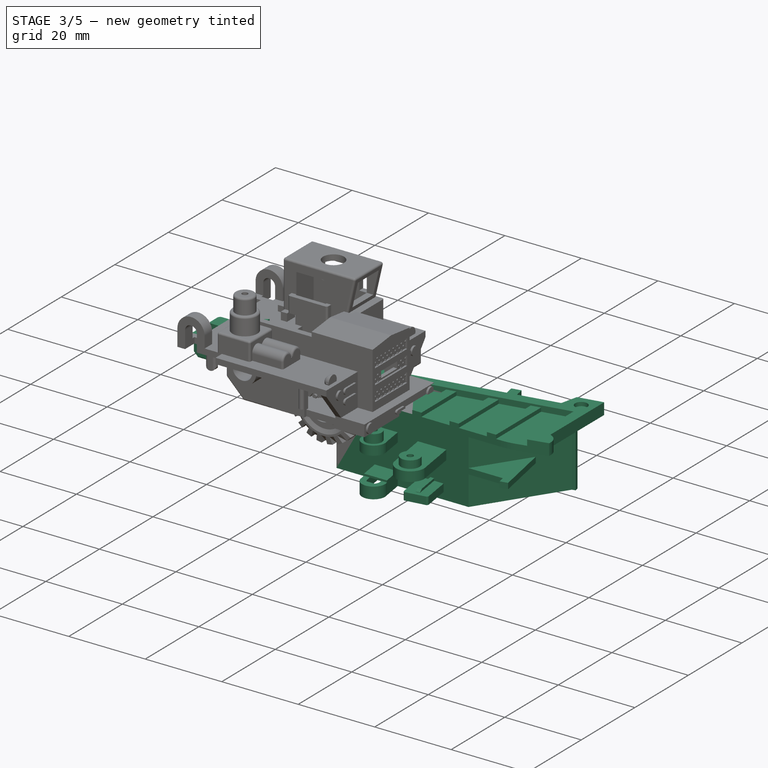
[diagram: stage 3 of 5 — iso view after this stage's code; geometry added in this stage tinted green]
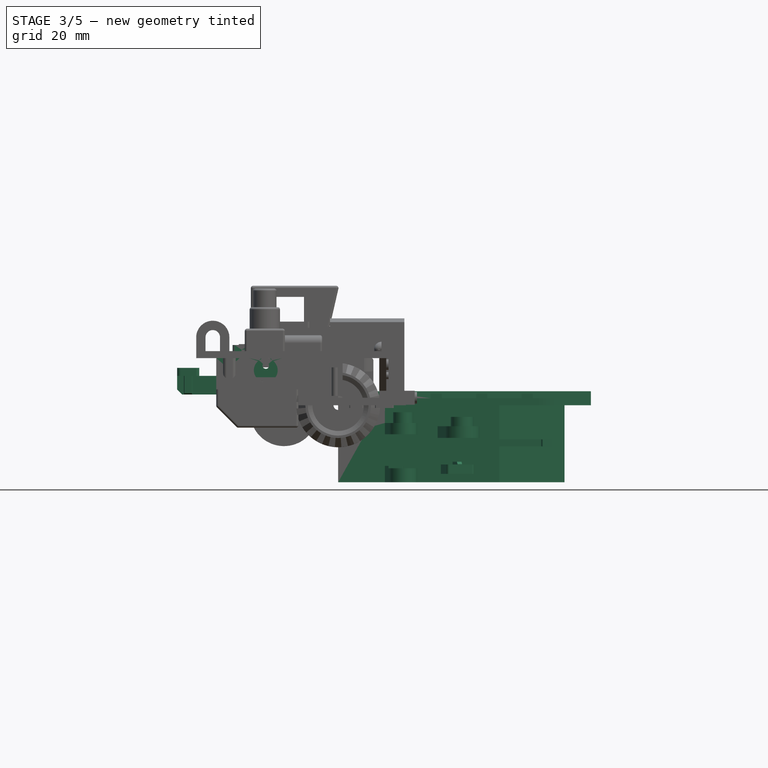
[diagram: stage 3 of 5 — front view after this stage's code; geometry added in this stage tinted green]
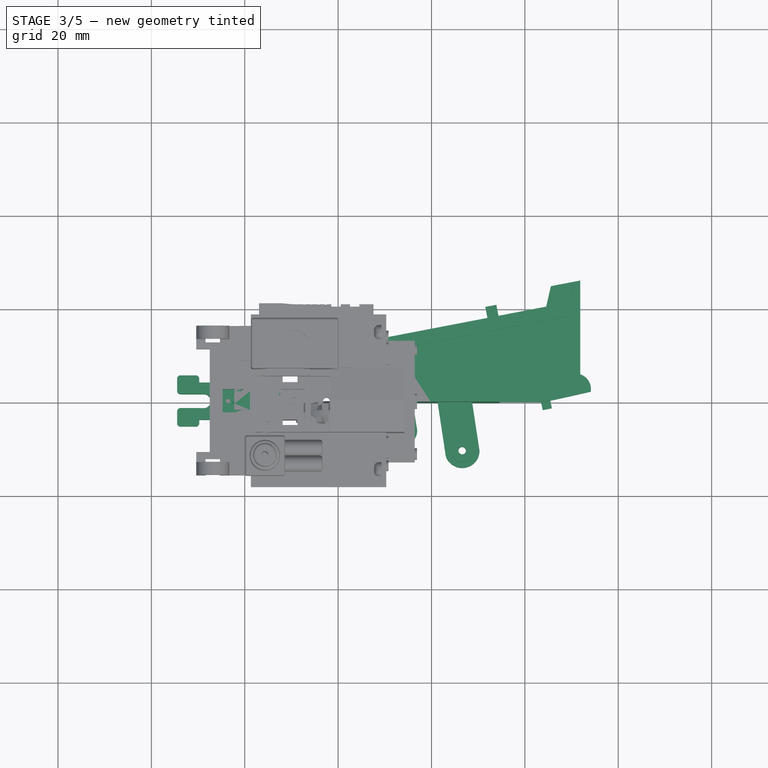
[diagram: stage 3 of 5 — top view after this stage's code; geometry added in this stage tinted green]
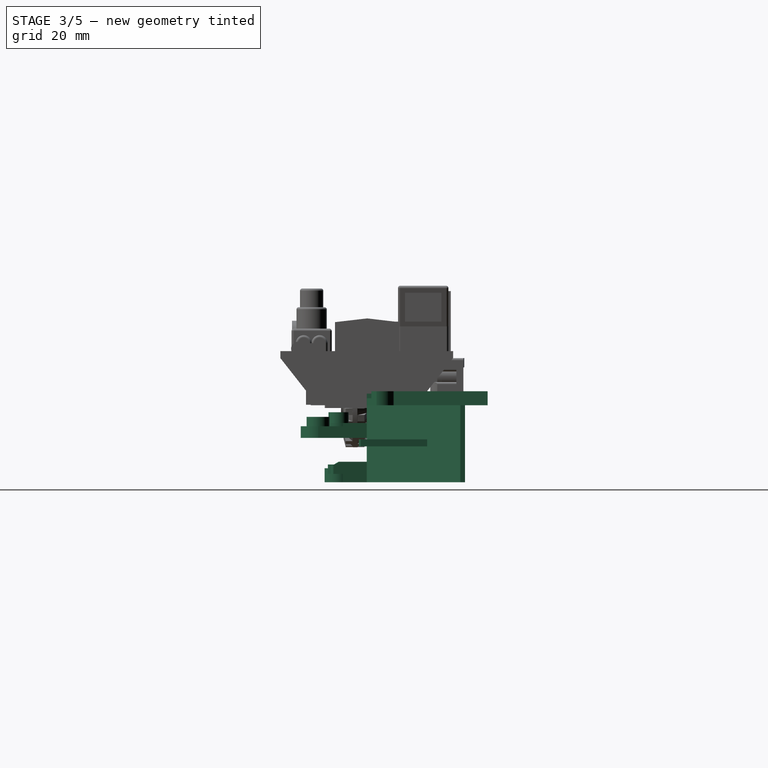
[diagram: stage 3 of 5 — right view after this stage's code; geometry added in this stage tinted green]
FEATURE [Sketcher::SketchObject] Sketch026
  ArcFitTolerance = 1e-06
  AttachmentSupport = -> [Pad013]
  ExternalGeometry = -> [Pad013]
  FullyConstrained = true
  MakeInternals = false
  MapMode = 5
  Placement = pos=(-20.7,0,0) rot=(0.57735,0.57735,0.57735;2.0944rad)
  sketch-geometry (4):
    g0: LineSegment StartX=-2.5 StartY=12.6 StartZ=0 EndX=-2.5 EndY=11.6 EndZ=0
    g1: LineSegment StartX=-2.5 StartY=11.6 StartZ=0 EndX=2.5 EndY=11.6 EndZ=0
    g2: LineSegment StartX=2.5 StartY=11.6 StartZ=0 EndX=2.5 EndY=12.6 EndZ=0
    g3: LineSegment StartX=2.5 StartY=12.6 StartZ=0 EndX=-2.5 EndY=12.6 EndZ=0
  constraints (11):
    c: Coincident(g0,g1)
    c: Coincident(g1,g2)
    c: Coincident(g2,g3)
    c: Coincident(g3,g0)
    c: Vertical(g0)
    c: Vertical(g2)
    c: Horizontal(g1)
    c: Horizontal(g3)
    c: Coincident(g0,g-5)
    c: PointOnObject(g1,g-3)
    c: DistanceY(g0,g0) = 1
FEATURE [PartDesign::Pad] Pad014
  BaseFeature = -> Pad013
  Direction = (1,0,0)
  Length = 1.8
  Length2 = 10
  Profile = -> Sketch026
  ReferenceAxis = -> Sketch026 [N_Axis]
  Refine = true
  Suppressed = false
  Type = 0
FEATURE [Sketcher::SketchObject] Sketch027
  ArcFitTolerance = 1e-06
  AttachmentSupport = -> [Pad014]
  ExternalGeometry = -> [Pad014]
  FullyConstrained = true
  MakeInternals = false
  MapMode = 5
  Placement = pos=(0,0,5.1) rot=(0,0,1;0rad)
  sketch-geometry (4):
    g0: LineSegment StartX=-20.7 StartY=-2.5 StartZ=0 EndX=-20.7 EndY=2.5 EndZ=0
    g1: LineSegment StartX=-20.7 StartY=2.5 StartZ=0 EndX=-18.75 EndY=2.5 EndZ=0
    g2: LineSegment StartX=-18.75 StartY=2.5 StartZ=0 EndX=-18.75 EndY=-2.5 EndZ=0
    g3: LineSegment StartX=-18.75 StartY=-2.5 StartZ=0 EndX=-20.7 EndY=-2.5 EndZ=0
  constraints (9):
    c: Coincident(g0,g-5)
    c: Coincident(g0,g-4)
    c: PointOnObject(g1,g0)
    c: Coincident(g1,g-7)
    c: Horizontal(g1)
    c: Coincident(g2,g1)
    c: Coincident(g2,g-6)
    c: Coincident(g3,g2)
    c: Coincident(g3,g0)
FEATURE [PartDesign::Pocket] Pocket012
  BaseFeature = -> Pad014
  Direction = (0,0,-1)
  Length = 5
  Length2 = 5
  Profile = -> Sketch027
  ReferenceAxis = -> Sketch027 [N_Axis]
  Refine = true
  Suppressed = false
  Type = 0
FEATURE [Sketcher::SketchObject] Sketch028
  ArcFitTolerance = 1e-06
  AttachmentSupport = -> [Pocket012]
  ExternalGeometry = -> [Pocket012]
  FullyConstrained = true
  MakeInternals = false
  MapMode = 5
  Placement = pos=(0,0,5.1) rot=(0,0,1;0rad)
  sketch-geometry (4):
    g0: LineSegment StartX=-18.75 StartY=1.7 StartZ=0 EndX=-18.75 EndY=-1.7 EndZ=0
    g1: LineSegment StartX=-18.75 StartY=-1.7 StartZ=0 EndX=-17.75 EndY=-1.7 EndZ=0
    g2: LineSegment StartX=-17.75 StartY=-1.7 StartZ=0 EndX=-17.75 EndY=1.7 EndZ=0
    g3: LineSegment StartX=-17.75 StartY=1.7 StartZ=0 EndX=-18.75 EndY=1.7 EndZ=0
  constraints (11):
    c: Coincident(g0,g1)
    c: Coincident(g1,g2)
    c: Coincident(g2,g3)
    c: Coincident(g3,g0)
    c: Vertical(g0)
    c: Vertical(g2)
    c: Horizontal(g1)
    c: Horizontal(g3)
    c: PointOnObject(g1,g-5)
    c: Coincident(g0,g-4)
    c: DistanceX(g3,g3) = 1
FEATURE [PartDesign::Pocket] Pocket013
  BaseFeature = -> Pocket012
  Direction = (0,0,-1)
  Length = 5
  Length2 = 5
  Profile = -> Sketch028
  ReferenceAxis = -> Sketch028 [N_Axis]
  Refine = true
  Suppressed = false
  Type = 0
FEATURE [Sketcher::SketchObject] Sketch029
  ArcFitTolerance = 1e-06
  AttachmentSupport = -> [Pocket013]
  ExternalGeometry = -> [Pocket013]
  FullyConstrained = true
  MakeInternals = false
  MapMode = 5
  Placement = pos=(0,-1.7,0) rot=(0,0.707107,0.707107;3.14159rad)
  sketch-geometry (4):
    g0: ArcOfCircle CenterX=17.75 CenterY=6.1 CenterZ=0 NormalX=0 NormalY=0 NormalZ=1 AngleXU=0 Radius=1 StartAngle=4.71239 EndAngle=6.28319
    g1: LineSegment StartX=18.75 StartY=6.1 StartZ=0 EndX=18.75 EndY=3.4 EndZ=0
    g2: LineSegment StartX=18.75 StartY=3.4 StartZ=0 EndX=17.75 EndY=3.4 EndZ=0
    g3: LineSegment StartX=17.75 StartY=3.4 StartZ=0 EndX=17.75 EndY=5.1 EndZ=0
  constraints (12):
    c: Coincident(g0,g-5)
    c: Coincident(g1,g0)
    c: Coincident(g1,g-4)
    c: Vertical(g1)
    c: Coincident(g2,g1)
    c: PointOnObject(g2,g-5)
    c: Horizontal(g2)
    c: Coincident(g3,g2)
    c: PointOnObject(g3,g0)
    c: Vertical(g3)
    c: DistanceX(g0,g3) = 0
    c: DistanceY(g0,g0) = 0
FEATURE [PartDesign::Pocket] Pocket014
  BaseFeature = -> Pocket013
  Direction = (0,-1,2e-16)
  Length = 0.8
  Length2 = 5
  Profile = -> Sketch029
  ReferenceAxis = -> Sketch029 [N_Axis]
  Refine = true
  Suppressed = false
  Type = 0
FEATURE [Sketcher::SketchObject] Sketch030
  ArcFitTolerance = 1e-06
  AttachmentSupport = -> [Pocket014]
  ExternalGeometry = -> [Pocket014]
  FullyConstrained = true
  MakeInternals = false
  MapMode = 5
  Placement = pos=(0,1.7,0) rot=(1,0,0;1.5708rad)
  sketch-geometry (4):
    g0: ArcOfCircle CenterX=-17.75 CenterY=6.1 CenterZ=0 NormalX=0 NormalY=0 NormalZ=1 AngleXU=0 Radius=1 StartAngle=3.14159 EndAngle=4.71239
    g1: LineSegment StartX=-18.75 StartY=6.1 StartZ=0 EndX=-18.75 EndY=3.4 EndZ=0
    g2: LineSegment StartX=-18.75 StartY=3.4 StartZ=0 EndX=-17.75 EndY=3.4 EndZ=0
    g3: LineSegment StartX=-17.75 StartY=3.4 StartZ=0 EndX=-17.75 EndY=5.1 EndZ=0
  constraints (11):
    c: Coincident(g0,g-4)
    c: PointOnObject(g0,g-5)
    c: Coincident(g1,g0)
    c: Coincident(g1,g-5)
    c: Coincident(g2,g1)
    c: Coincident(g2,g-4)
    c: Coincident(g3,g2)
    c: PointOnObject(g3,g0)
    c: Vertical(g3)
    c: DistanceX(g3,g0) = 0
    c: DistanceY(g0,g0) = 0
FEATURE [PartDesign::Pocket] Pocket015
  BaseFeature = -> Pocket014
  Direction = (0,1,-2e-16)
  Length = 0.8
  Length2 = 5
  Profile = -> Sketch030
  ReferenceAxis = -> Sketch030 [N_Axis]
  Refine = true
  Suppressed = false
  Type = 0
FEATURE [Sketcher::SketchObject] Sketch031
  ArcFitTolerance = 1e-06
  AttachmentSupport = -> [Pocket015]
  ExternalGeometry = -> [Pocket015]
  FullyConstrained = true
  MakeInternals = false
  MapMode = 5
  Placement = pos=(0,0,5.1) rot=(0,0,1;0rad)
  sketch-geometry (4):
    g0: LineSegment StartX=-26.1 StartY=-2.5 StartZ=0 EndX=-22.2 EndY=-2.5 EndZ=0
    g1: LineSegment StartX=-22.2 StartY=-2.5 StartZ=0 EndX=-22.2 EndY=2.5 EndZ=0
    g2: LineSegment StartX=-22.2 StartY=2.5 StartZ=0 EndX=-26.1 EndY=2.5 EndZ=0
    g3: LineSegment StartX=-26.1 StartY=2.5 StartZ=0 EndX=-26.1 EndY=-2.5 EndZ=0
  constraints (10):
    c: Coincident(g0,g1)
    c: Coincident(g1,g2)
    c: Coincident(g2,g3)
    c: Coincident(g3,g0)
    c: Horizontal(g0)
    c: Horizontal(g2)
    c: Vertical(g1)
    c: Vertical(g3)
    c: Coincident(g0,g-6)
    c: Coincident(g1,g-5)
FEATURE [PartDesign::Pad] Pad015
  BaseFeature = -> Pocket015
  Direction = (0,0,1)
  Length = 1
  Length2 = 10
  Profile = -> Sketch031
  ReferenceAxis = -> Sketch031 [N_Axis]
  Refine = true
  Suppressed = false
  Type = 0
FEATURE [Sketcher::SketchObject] Sketch032
  ArcFitTolerance = 1e-06
  AttachmentSupport = -> [Pad015]
  ExternalGeometry = -> [Pad015]
  FullyConstrained = true
  MakeInternals = false
  MapMode = 5
  Placement = pos=(0,0,6.1) rot=(0,0,1;0rad)
  sketch-geometry (1):
    g0: Circle CenterX=-23.6 CenterY=0 CenterZ=0 NormalX=0 NormalY=0 NormalZ=1 AngleXU=0 Radius=0.5
  constraints (4):
    c: PointOnObject(g0,g-1)
    c: Diameter(g0) = 1
    c: DistanceX(g-3,g-4) = 3.9
    c: DistanceX(g0,g-5) = 0
FEATURE [PartDesign::Pocket] Pocket016
  BaseFeature = -> Pad015
  Direction = (0,0,-1)
  Length = 5
  Length2 = 5
  Profile = -> Sketch032
  ReferenceAxis = -> Sketch032 [N_Axis]
  Refine = true
  Suppressed = false
  Type = 0
FEATURE [Sketcher::SketchObject] Sketch033
  ArcFitTolerance = 1e-06
  AttachmentSupport = -> [Pocket016]
  ExternalGeometry = -> [Pocket016]
  FullyConstrained = true
  MakeInternals = false
  MapMode = 5
  Placement = pos=(0,0,6.1) rot=(0,0,1;0rad)
  sketch-geometry (4):
    g0: LineSegment StartX=-26.1 StartY=4 StartZ=0 EndX=-34.5 EndY=4 EndZ=0
    g1: LineSegment StartX=-34.5 StartY=4 StartZ=0 EndX=-34.5 EndY=-4 EndZ=0
    g2: LineSegment StartX=-34.5 StartY=-4 StartZ=0 EndX=-26.1 EndY=-4 EndZ=0
    g3: LineSegment StartX=-26.1 StartY=-4 StartZ=0 EndX=-26.1 EndY=4 EndZ=0
  constraints (10):
    c: Coincident(g0,g1)
    c: Coincident(g1,g2)
    c: Horizontal(g0)
    c: Horizontal(g2)
    c: Vertical(g1)
    c: DistanceX(g0,g0) = 8.4
    c: Coincident(g3,g2)
    c: Coincident(g2,g-4)
    c: Coincident(g3,g0)
    c: Coincident(g0,g-5)
FEATURE [PartDesign::Pad] Pad016
  BaseFeature = -> Pocket016
  Direction = (0,0,1)
  Length = 3.8
  Length2 = 10
  Profile = -> Sketch033
  ReferenceAxis = -> Sketch033 [N_Axis]
  Refine = true
  Reversed = true
  Suppressed = false
  Type = 0
FEATURE [PartDesign::Pad] Pad017
  BaseFeature = -> Pad016
  Direction = (0,0,1)
  Length = 0.2
  Length2 = 10
  Profile = -> Sketch033
  ReferenceAxis = -> Sketch033 [N_Axis]
  Refine = true
  Suppressed = false
  Type = 0
FEATURE [Sketcher::SketchObject] Sketch034
  ArcFitTolerance = 1e-06
  AttachmentSupport = -> [Pad017]
  ExternalGeometry = -> [Pad017]
  FullyConstrained = true
  MakeInternals = false
  MapMode = 5
  Placement = pos=(0,0,12.6) rot=(0,0,1;0rad)
  sketch-geometry (2):
    g0: ArcOfCircle CenterX=-21.9 CenterY=0 CenterZ=0 NormalX=0 NormalY=0 NormalZ=1 AngleXU=0 Radius=0.7 StartAngle=2.01371 EndAngle=4.26948
    g1: LineSegment StartX=-22.2 StartY=0.632456 StartZ=0 EndX=-22.2 EndY=-0.632456 EndZ=0
  constraints (7):
    c: PointOnObject(g0,g-3)
    c: PointOnObject(g0,g-3)
    c: PointOnObject(g0,g-1)
    c: Diameter(g0) = 1.4
    c: DistanceX(g0,g0) = 0.3
    c: Coincident(g1,g0)
    c: Coincident(g1,g0)
FEATURE [PartDesign::Pad] Pad018
  BaseFeature = -> Pad017
  Direction = (0,0,1)
  Length = 7
  Length2 = 10
  Profile = -> Sketch034
  ReferenceAxis = -> Sketch034 [N_Axis]
  Refine = true
  Reversed = true
  Suppressed = false
  Type = 0
FEATURE [Sketcher::SketchObject] Sketch035
  ArcFitTolerance = 1e-06
  AttachmentSupport = -> [Pad018]
  ExternalGeometry = -> [Pad018]
  FullyConstrained = true
  MakeInternals = false
  MapMode = 5
  Placement = pos=(0,4,0) rot=(0,0.707107,0.707107;3.14159rad)
  sketch-geometry (3):
    g0: LineSegment StartX=34.5 StartY=2.3 StartZ=0 EndX=34.5 EndY=3.4 EndZ=0
    g1: LineSegment StartX=34.5 StartY=3.4 StartZ=0 EndX=33.4 EndY=2.3 EndZ=0
    g2: LineSegment StartX=33.4 StartY=2.3 StartZ=0 EndX=34.5 EndY=2.3 EndZ=0
  constraints (9):
    c: Coincident(g0,g-4)
    c: PointOnObject(g0,g-3)
    c: Coincident(g1,g0)
    c: PointOnObject(g1,g-4)
    c: Coincident(g2,g1)
    c: Coincident(g2,g0)
    c: DistanceY(g-5,g-5) = 1.1
    c: DistanceY(g0,g0) = 1.1
    c: DistanceX(g2,g2) = 1.1
FEATURE [PartDesign::Pocket] Pocket017
  BaseFeature = -> Pad018
  Direction = (0,-1,2e-16)
  Length = 8
  Length2 = 5
  Profile = -> Sketch035
  ReferenceAxis = -> Sketch035 [N_Axis]
  Refine = true
  Suppressed = false
  Type = 0
FEATURE [Sketcher::SketchObject] Sketch036
  ArcFitTolerance = 1e-06
  AttachmentSupport = -> [Pocket017]
  ExternalGeometry = -> [Pocket017]
  FullyConstrained = true
  MakeInternals = false
  MapMode = 5
  Placement = pos=(0,0,6.3) rot=(0,0,1;0rad)
  sketch-geometry (4):
    g0: LineSegment StartX=-34.5 StartY=1.5 StartZ=0 EndX=-34.5 EndY=-1.5 EndZ=0
    g1: LineSegment StartX=-34.5 StartY=-1.5 StartZ=0 EndX=-28.8 EndY=-1.5 EndZ=0
    g2: LineSegment StartX=-34.5 StartY=1.5 StartZ=0 EndX=-28.8 EndY=1.5 EndZ=0
    g3: ArcOfCircle CenterX=-28.8 CenterY=3e-16 CenterZ=0 NormalX=0 NormalY=0 NormalZ=1 AngleXU=0 Radius=1.5 StartAngle=4.71239 EndAngle=7.85398
  constraints (14):
    c: PointOnObject(g0,g-3)
    c: PointOnObject(g0,g-3)
    c: Coincident(g1,g0)
    c: Horizontal(g1)
    c: Coincident(g2,g0)
    c: Horizontal(g2)
    c: Coincident(g3,g2)
    c: Coincident(g3,g1)
    c: DistanceY(g-5,g-4) = 8
    c: DistanceY(g0,g-4) = 2.5
    c: DistanceY(g-5,g0) = 2.5
    c: DistanceX(g2,g3) = 0
    c: DistanceX(g1,g3) = 0
    c: DistanceX(g0,g3) = 5.7
FEATURE [PartDesign::Pocket] Pocket018
  BaseFeature = -> Pocket017
  Direction = (0,0,-1)
  Length = 5
  Length2 = 5
  Profile = -> Sketch036
  ReferenceAxis = -> Sketch036 [N_Axis]
  Refine = true
  Suppressed = false
  Type = 0
FEATURE [Sketcher::SketchObject] Sketch037
  ArcFitTolerance = 1e-06
  AttachmentSupport = -> [Pocket018]
  ExternalGeometry = -> [Pocket018]
  FullyConstrained = true
  MakeInternals = false
  MapMode = 5
  Placement = pos=(0,0,6.3) rot=(0,0,1;0rad)
  sketch-geometry (8):
    g0: LineSegment StartX=-34.5 StartY=-1.5 StartZ=0 EndX=-34.5 EndY=-5.5 EndZ=0
    g1: LineSegment StartX=-34.5 StartY=-5.5 StartZ=0 EndX=-29.75 EndY=-5.5 EndZ=0
    g2: LineSegment StartX=-29.75 StartY=-5.5 StartZ=0 EndX=-29.75 EndY=-1.5 EndZ=0
    g3: LineSegment StartX=-29.75 StartY=-1.5 StartZ=0 EndX=-34.5 EndY=-1.5 EndZ=0
    g4: LineSegment StartX=-34.5 StartY=1.5 StartZ=0 EndX=-29.75 EndY=1.5 EndZ=0
    g5: LineSegment StartX=-29.75 StartY=1.5 StartZ=0 EndX=-29.75 EndY=5.5 EndZ=0
    g6: LineSegment StartX=-29.75 StartY=5.5 StartZ=0 EndX=-34.5 EndY=5.5 EndZ=0
    g7: LineSegment StartX=-34.5 StartY=5.5 StartZ=0 EndX=-34.5 EndY=1.5 EndZ=0
  constraints (22):
    c: Coincident(g0,g1)
    c: Coincident(g1,g2)
    c: Coincident(g2,g3)
    c: Coincident(g3,g0)
    c: Vertical(g0)
    c: Vertical(g2)
    c: Horizontal(g1)
    c: Horizontal(g3)
    c: Coincident(g0,g-6)
    c: Coincident(g4,g5)
    c: Coincident(g5,g6)
    c: Coincident(g6,g7)
    c: Coincident(g7,g4)
    c: Horizontal(g4)
    c: Horizontal(g6)
    c: Vertical(g5)
    c: Vertical(g7)
    c: Coincident(g4,g-4)
    c: DistanceX(g6,g6) = 4.75
    c: DistanceX(g1,g1) = 4.75
    c: DistanceY(g7,g7) = 4
    c: DistanceY(g0,g0) = 4
FEATURE [PartDesign::Pad] Pad019
  BaseFeature = -> Pocket018
  Direction = (0,0,1)
  Length = 1.7
  Length2 = 10
  Profile = -> Sketch037
  ReferenceAxis = -> Sketch037 [N_Axis]
  Refine = true
  Suppressed = false
  Type = 0
FEATURE [PartDesign::Fillet] Fillet
  Base = -> Pad019 [Edge345,Edge366,Edge400,Edge399,Edge353,Edge351]
  BaseFeature = -> Pad019
  Radius = 0.75
  Refine = true
  SupportTransform = false
  Suppressed = false
  UseAllEdges = false
FEATURE [Sketcher::SketchObject] Sketch038
  ArcFitTolerance = 1e-06
  AttachmentSupport = -> [Fillet]
  ExternalGeometry = -> [Fillet]
  FullyConstrained = true
  MakeInternals = false
  MapMode = 5
  Placement = pos=(0,0,6.3) rot=(1,0,0;3.14159rad)
  sketch-geometry (4):
    g0: ArcOfCircle CenterX=-32.125 CenterY=3.5 CenterZ=0 NormalX=0 NormalY=0 NormalZ=1 AngleXU=0 Radius=1.05 StartAngle=0.496317 EndAngle=2.64528
    g1: ArcOfCircle CenterX=-32.125 CenterY=-3.5 CenterZ=0 NormalX=0 NormalY=0 NormalZ=1 AngleXU=0 Radius=1.05 StartAngle=3.63791 EndAngle=5.78687
    g2: LineSegment StartX=-31.2017 StartY=-4 StartZ=0 EndX=-33.0483 EndY=-4 EndZ=0
    g3: LineSegment StartX=-31.2017 StartY=4 StartZ=0 EndX=-33.0483 EndY=4 EndZ=0
  constraints (17):
    c: PointOnObject(g0,g-4)
    c: PointOnObject(g1,g-3)
    c: PointOnObject(g2,g1)
    c: Horizontal(g2)
    c: PointOnObject(g3,g0)
    c: Horizontal(g3)
    c: Coincident(g3,g0)
    c: PointOnObject(g0,g-4)
    c: Diameter(g0) = 2.1
    c: Diameter(g1) = 2.1
    c: Coincident(g1,g2)
    c: PointOnObject(g1,g-3)
    c: DistanceX(g-3,g-3) = 4.75
    c: DistanceX(g-3,g1) = 2.375
    c: DistanceX(g-4,g0) = 2.375
    c: DistanceY(g0,g-5) = 2
    c: DistanceY(g-6,g1) = 2
FEATURE [PartDesign::Pad] Pad020
  BaseFeature = -> Fillet
  Direction = (0,0,-1)
  Length = 4
  Length2 = 10
  Profile = -> Sketch038
  ReferenceAxis = -> Sketch038 [N_Axis]
  Refine = true
  Suppressed = false
  Type = 0
FEATURE [Sketcher::SketchObject] Sketch040
  ArcFitTolerance = 1e-06
  AttachmentSupport = -> [Pad021]
  ExternalGeometry = -> [Pad021]
  FullyConstrained = true
  MakeInternals = false
  MapMode = 5
  Placement = pos=(0,0,11.6) rot=(0,0,1;0rad)
  sketch-geometry (4):
    g0: LineSegment StartX=-24.75 StartY=2.5 StartZ=0 EndX=-24.75 EndY=-2.5 EndZ=0
    g1: LineSegment StartX=-24.75 StartY=-2.5 StartZ=0 EndX=-20.35 EndY=-2.5 EndZ=0
    g2: LineSegment StartX=-20.35 StartY=-2.5 StartZ=0 EndX=-20.35 EndY=2.5 EndZ=0
    g3: LineSegment StartX=-20.35 StartY=2.5 StartZ=0 EndX=-24.75 EndY=2.5 EndZ=0
  constraints (12):
    c: Coincident(g0,g1)
    c: Coincident(g1,g2)
    c: Coincident(g2,g3)
    c: Coincident(g3,g0)
    c: Vertical(g0)
    c: Vertical(g2)
    c: Horizontal(g1)
    c: Horizontal(g3)
    c: DistanceX(g3,g3) = 4.4
    c: DistanceY(g2,g2) = 5
    c: DistanceY(g-1,g2) = 2.5
    c: DistanceX(g-3,g0) = 2.75
FEATURE [Sketcher::SketchObject] Sketch041
  ArcFitTolerance = 1e-06
  AttachmentSupport = -> [Pad020]
  ExternalGeometry = -> [Pad020]
  FullyConstrained = true
  MakeInternals = false
  MapMode = 5
  Placement = pos=(0,-2.5,0) rot=(1,0,0;1.5708rad)
  sketch-geometry (6):
    g0: LineSegment StartX=-22.2 StartY=12.6 StartZ=0 EndX=-22.2 EndY=10.1 EndZ=0
    g1: LineSegment StartX=-22.2 StartY=10.1 StartZ=0 EndX=-20.7 EndY=10.1 EndZ=0
    g2: LineSegment StartX=-20.7 StartY=10.1 StartZ=0 EndX=-20.7 EndY=11.6 EndZ=0
    g3: LineSegment StartX=-20.7 StartY=11.6 StartZ=0 EndX=-18.9 EndY=11.6 EndZ=0
    g4: LineSegment StartX=-18.9 StartY=11.6 StartZ=0 EndX=-18.9 EndY=12.6 EndZ=0
    g5: LineSegment StartX=-18.9 StartY=12.6 StartZ=0 EndX=-22.2 EndY=12.6 EndZ=0
  constraints (12):
    c: Coincident(g0,g-3)
    c: Coincident(g0,g-5)
    c: Coincident(g1,g0)
    c: Coincident(g1,g-5)
    c: Coincident(g2,g1)
    c: Coincident(g2,g-4)
    c: Coincident(g3,g2)
    c: Coincident(g3,g-4)
    c: Coincident(g4,g3)
    c: Coincident(g4,g-3)
    c: Coincident(g5,g4)
    c: Coincident(g5,g0)
FEATURE [PartDesign::Pocket] Pocket019
  BaseFeature = -> Pad020
  Direction = (0,1,-2e-16)
  Length = 0.5
  Length2 = 5
  Profile = -> Sketch041
  ReferenceAxis = -> Sketch041 [N_Axis]
  Refine = true
  Suppressed = false
  Type = 0
FEATURE [Sketcher::SketchObject] Sketch042
  ArcFitTolerance = 1e-06
  AttachmentSupport = -> [Pocket019]
  ExternalGeometry = -> [Pocket019]
  FullyConstrained = true
  MakeInternals = false
  MapMode = 5
  Placement = pos=(0,2.5,0) rot=(0,0.707107,0.707107;3.14159rad)
  sketch-geometry (6):
    g0: LineSegment StartX=18.9 StartY=12.6 StartZ=0 EndX=22.2 EndY=12.6 EndZ=0
    g1: LineSegment StartX=22.2 StartY=12.6 StartZ=0 EndX=22.2 EndY=10.1 EndZ=0
    g2: LineSegment StartX=22.2 StartY=10.1 StartZ=0 EndX=20.7 EndY=10.1 EndZ=0
    g3: LineSegment StartX=20.7 StartY=10.1 StartZ=0 EndX=20.7 EndY=11.6 EndZ=0
    g4: LineSegment StartX=20.7 StartY=11.6 StartZ=0 EndX=18.9 EndY=11.6 EndZ=0
    g5: LineSegment StartX=18.9 StartY=11.6 StartZ=0 EndX=18.9 EndY=12.6 EndZ=0
  constraints (12):
    c: Coincident(g0,g-3)
    c: Coincident(g0,g-4)
    c: Coincident(g1,g0)
    c: Coincident(g1,g-4)
    c: Coincident(g2,g1)
    c: Coincident(g2,g-5)
    c: Coincident(g3,g2)
    c: Coincident(g3,g-5)
    c: Coincident(g4,g3)
    c: Coincident(g4,g-3)
    c: Coincident(g5,g4)
    c: Coincident(g5,g0)
FEATURE [PartDesign::Pocket] Pocket020
  BaseFeature = -> Pocket019
  Direction = (0,-1,2e-16)
  Length = 0.5
  Length2 = 5
  Profile = -> Sketch042
  ReferenceAxis = -> Sketch042 [N_Axis]
  Refine = true
  Suppressed = false
  Type = 0
FEATURE [Sketcher::SketchObject] Sketch169
  ArcFitTolerance = 1e-06
  AttachmentSupport = -> [Pocket020]
  ExternalGeometry = -> [Pocket020]
  FullyConstrained = true
  MakeInternals = false
  MapMode = 5
  Placement = pos=(0,5.5,0) rot=(0,0.707107,0.707107;3.14159rad)
  sketch-geometry (4):
    g0: LineSegment StartX=31.2017 StartY=6.3 StartZ=0 EndX=31.2017 EndY=2.3 EndZ=0
    g1: LineSegment StartX=31.2017 StartY=2.3 StartZ=0 EndX=33.0483 EndY=2.3 EndZ=0
    g2: LineSegment StartX=33.0483 StartY=2.3 StartZ=0 EndX=33.0483 EndY=6.3 EndZ=0
    g3: LineSegment StartX=33.0483 StartY=6.3 StartZ=0 EndX=31.2017 EndY=6.3 EndZ=0
  constraints (10):
    c: Coincident(g0,g1)
    c: Coincident(g1,g2)
    c: Coincident(g2,g3)
    c: Coincident(g3,g0)
    c: Vertical(g0)
    c: Vertical(g2)
    c: Horizontal(g1)
    c: Horizontal(g3)
    c: Coincident(g0,g-3)
    c: Coincident(g1,g-4)
FEATURE [PartDesign::Pocket] Pocket074
  BaseFeature = -> Pocket020
  Direction = (0,-1,2e-16)
  Length = 1.3
  Length2 = 5
  Profile = -> Sketch169
  ReferenceAxis = -> Sketch169 [N_Axis]
  Refine = true
  Suppressed = false
  Type = 0
FEATURE [Sketcher::SketchObject] Sketch170
  ArcFitTolerance = 1e-06
  AttachmentSupport = -> [Pocket074]
  ExternalGeometry = -> [Pocket074]
  FullyConstrained = true
  MakeInternals = false
  MapMode = 5
  Placement = pos=(0,-5.5,0) rot=(1,0,0;1.5708rad)
  sketch-geometry (4):
    g0: LineSegment StartX=-33.0483 StartY=6.3 StartZ=0 EndX=-33.0483 EndY=2.3 EndZ=0
    g1: LineSegment StartX=-33.0483 StartY=2.3 StartZ=0 EndX=-31.2017 EndY=2.3 EndZ=0
    g2: LineSegment StartX=-31.2017 StartY=2.3 StartZ=0 EndX=-31.2017 EndY=6.3 EndZ=0
    g3: LineSegment StartX=-31.2017 StartY=6.3 StartZ=0 EndX=-33.0483 EndY=6.3 EndZ=0
  constraints (10):
    c: Coincident(g0,g1)
    c: Coincident(g1,g2)
    c: Coincident(g2,g3)
    c: Coincident(g3,g0)
    c: Vertical(g0)
    c: Vertical(g2)
    c: Horizontal(g1)
    c: Horizontal(g3)
    c: Coincident(g0,g-3)
    c: Coincident(g1,g-4)
FEATURE [PartDesign::Pocket] Pocket075
  BaseFeature = -> Pocket074
  Direction = (0,1,-2e-16)
  Length = 1.3
  Length2 = 5
  Profile = -> Sketch170
  ReferenceAxis = -> Sketch170 [N_Axis]
  Refine = true
  Suppressed = false
  Type = 0
FEATURE [PartDesign::Chamfer] Chamfer
  Angle = 45
  Base = -> Pocket075 [Edge41,Edge108]
  BaseFeature = -> Pocket075
  ChamferType = 0
  FlipDirection = false
  Refine = true
  Size = 0.2
  Size2 = 1
  SupportTransform = false
  Suppressed = false
  UseAllEdges = false
FEATURE [Sketcher::SketchObject] Sketch172
  ArcFitTolerance = 1e-06
  AttachmentSupport = -> [XY_Plane004]
  FullyConstrained = true
  MakeInternals = false
  MapMode = 5
  sketch-geometry (14):
    g0: LineSegment StartX=0 StartY=0 StartZ=0 EndX=43 EndY=0 EndZ=0
    g1: ArcOfCircle CenterX=50.8475 CenterY=2.65774 CenterZ=0 NormalX=0 NormalY=0 NormalZ=1 AngleXU=0 Radius=3.3 StartAngle=6.11336 EndAngle=7.54355
    g2: LineSegment StartX=51.8555 StartY=5.8 StartZ=0 EndX=51.8555 EndY=25.9 EndZ=0
    g3: LineSegment StartX=51.8555 StartY=25.9 StartZ=0 EndX=45.5709 EndY=24.6903 EndZ=0
    g4: LineSegment StartX=45.5709 StartY=24.6903 StartZ=0 EndX=44.5555 EndY=20.3063 EndZ=0
    g5: LineSegment StartX=44.5555 StartY=20.3063 StartZ=0 EndX=34.343 EndY=18.3406 EndZ=0
    g6: LineSegment StartX=34.343 StartY=18.3406 StartZ=0 EndX=33.8894 EndY=20.6973 EndZ=0
    g7: LineSegment StartX=33.8894 StartY=20.6973 StartZ=0 EndX=31.5326 EndY=20.2437 EndZ=0
    g8: LineSegment StartX=31.5326 StartY=20.2437 StartZ=0 EndX=31.9863 EndY=17.8869 EndZ=0
    g9: LineSegment StartX=31.9863 StartY=17.8869 StartZ=0 EndX=4 EndY=12.5 EndZ=0
    g10: LineSegment StartX=4 StartY=12.5 StartZ=0 EndX=0 EndY=8 EndZ=0
    g11: LineSegment StartX=0 StartY=8 StartZ=0 EndX=0 EndY=0 EndZ=0
    g12: ArcOfCircle CenterX=43 CenterY=15.82 CenterZ=0 NormalX=0 NormalY=0 NormalZ=1 AngleXU=0 Radius=15.82 StartAngle=4.71239 EndAngle=4.90962
    g13: LineSegment StartX=46.1 StartY=0.306702 StartZ=0 EndX=54.1 EndY=2.1 EndZ=0
  constraints (44):
    c: Coincident(g0,g-1)
    c: Coincident(g2,g1)
    c: Vertical(g2)
    c: Coincident(g3,g2)
    c: Coincident(g4,g3)
    c: Coincident(g5,g4)
    c: Coincident(g6,g5)
    c: Coincident(g7,g6)
    c: Coincident(g8,g7)
    c: Coincident(g10,g9)
    c: PointOnObject(g10,g-2)
    c: Coincident(g11,g10)
    c: Coincident(g11,g0)
    c: Parallel(g7,g5)
    c: Parallel(g3,g5)
    c: Parallel(g7,g9)
    c: Distance(g7) = 2.4
    c: Distance(g5) = 10.4
    c: Angle(g5,g6) = 1.5708
    c: Angle(g8,g9) = 1.5708
    c: Distance(g3) = 6.4
    c: DistanceY(g11,g11) = 8
    c: Distance(g8) = 2.4
    c: Distance(g6) = 2.4
    c: Coincident(g9,g8)
    c: Distance(g4) = 4.5
    c: DistanceX(g4,g2) = 7.3
    c: DistanceX(g0,g9) = 4
    c: DistanceY(g0,g9) = 12.5
    c: Distance(g9) = 28.5
    c: DistanceY(g0,g2) = 25.9
    c: DistanceX(g0,g1) = 54.1
    c: DistanceX(g0,g1) = 51.8555
    c: DistanceY(g1,g2) = 20.1
    c: PointOnObject(g0,g-1)
    c: Coincident(g12,g0)
    c: Coincident(g13,g12)
    c: Coincident(g13,g1)
    c: Tangent(g12,g-1)
    c: DistanceY(g1,g1) = 3.7
    c: Radius(g1) = 3.3
    c: DistanceX(g0,g0) = 43
    c: DistanceX(g12,g1) = 8
    c: Radius(g12) = 15.82
FEATURE [PartDesign::Pad] Pad102
  Direction = (0,0,1)
  Length = 1.5
  Length2 = 10
  Profile = -> Sketch172
  ReferenceAxis = -> Sketch172 [N_Axis]
  Refine = true
  Suppressed = false
  Type = 0
FEATURE [Sketcher::SketchObject] Sketch173
  ArcFitTolerance = 1e-06
  AttachmentSupport = -> [Pad102]
  ExternalGeometry = -> [Pad102]
  FullyConstrained = true
  MakeInternals = false
  MapMode = 5
  Placement = pos=(0,0,1.5) rot=(0,0,1;0rad)
  sketch-geometry (17):
    g0: LineSegment StartX=0 StartY=0 StartZ=0 EndX=0 EndY=8 EndZ=0
    g1: LineSegment StartX=0 StartY=8 StartZ=0 EndX=4 EndY=12.5 EndZ=0
    g2: LineSegment StartX=4 StartY=12.5 StartZ=0 EndX=31.9863 EndY=17.8869 EndZ=0
    g3: LineSegment StartX=31.9863 StartY=17.8869 StartZ=0 EndX=31.5326 EndY=20.2437 EndZ=0
    g4: LineSegment StartX=31.5326 StartY=20.2437 StartZ=0 EndX=33.8894 EndY=20.6973 EndZ=0
    g5: LineSegment StartX=33.8894 StartY=20.6973 StartZ=0 EndX=34.343 EndY=18.3406 EndZ=0
    g6: LineSegment StartX=34.343 StartY=18.3406 StartZ=0 EndX=44.5555 EndY=20.3063 EndZ=0
    g7: LineSegment StartX=44.5555 StartY=20.3063 StartZ=0 EndX=45.5709 EndY=24.6903 EndZ=0
    g8: LineSegment StartX=45.5709 StartY=24.6903 StartZ=0 EndX=51.8555 EndY=25.9 EndZ=0
    g9: LineSegment StartX=51.8555 StartY=25.9 StartZ=0 EndX=51.8555 EndY=5.8 EndZ=0
    g10: ArcOfCircle CenterX=50.8475 CenterY=2.65774 CenterZ=0 NormalX=0 NormalY=0 NormalZ=1 AngleXU=0 Radius=3.3 StartAngle=6.11336 EndAngle=7.54355
    g11: LineSegment StartX=54.1 StartY=2.1 StartZ=0 EndX=49.1555 EndY=0.991637 EndZ=0
    g12: LineSegment StartX=0 StartY=0 StartZ=0 EndX=2.7 EndY=0 EndZ=0
    g13: LineSegment StartX=2.7 StartY=0 StartZ=0 EndX=2.7 EndY=7.1 EndZ=0
    g14: LineSegment StartX=2.7 StartY=7.1 StartZ=0 EndX=5.1 EndY=9.8 EndZ=0
    g15: LineSegment StartX=5.1 StartY=9.8 StartZ=0 EndX=49.1555 EndY=18.28 EndZ=0
    g16: LineSegment StartX=49.1555 StartY=18.28 StartZ=0 EndX=49.1555 EndY=0.991637 EndZ=0
  constraints (40):
    c: Coincident(g0,g-1)
    c: Coincident(g0,g-12)
    c: Coincident(g1,g0)
    c: Coincident(g1,g-11)
    c: Coincident(g2,g1)
    c: Coincident(g2,g-10)
    c: Coincident(g3,g2)
    c: Coincident(g3,g-9)
    c: Coincident(g4,g3)
    c: Coincident(g4,g-8)
    c: Coincident(g5,g4)
    c: Coincident(g5,g-7)
    c: Coincident(g6,g5)
    c: Coincident(g6,g-6)
    c: Coincident(g7,g6)
    c: Coincident(g7,g-5)
    c: Coincident(g8,g7)
    c: Coincident(g8,g-4)
    c: Coincident(g9,g8)
    c: Coincident(g9,g-13)
    c: Coincident(g10,g9)
    c: Coincident(g10,g-14)
    c: Tangent(g10,g-13)
    c: Coincident(g11,g10)
    c: PointOnObject(g11,g-14)
    c: Coincident(g12,g0)
    c: PointOnObject(g12,g-1)
    c: Coincident(g13,g12)
    c: Vertical(g13)
    c: Coincident(g14,g13)
    c: Coincident(g15,g14)
    c: Coincident(g16,g15)
    c: Coincident(g16,g11)
    c: Vertical(g16)
    c: DistanceX(g15,g8) = 2.7
    c: DistanceY(g14,g1) = 2.7
    c: Parallel(g2,g15)
    c: DistanceX(g0,g13) = 2.7
    c: DistanceY(g12,g13) = 7.1
    c: Parallel(g1,g14)
FEATURE [PartDesign::Pad] Pad103
  BaseFeature = -> Pad102
  Direction = (0,0,1)
  Length = 1.5
  Length2 = 10
  Profile = -> Sketch173
  ReferenceAxis = -> Sketch173 [N_Axis]
  Refine = true
  Suppressed = false
  Type = 0
FEATURE [Sketcher::SketchObject] Sketch174
  ArcFitTolerance = 1e-06
  AttachmentSupport = -> [Pad103]
  ExternalGeometry = -> [Pad103]
  FullyConstrained = true
  MakeInternals = false
  MapMode = 5
  Placement = pos=(0,0,1.5) rot=(0,0,1;0rad)
  sketch-geometry (16):
    g0: LineSegment StartX=10.05 StartY=10.7528 StartZ=0 EndX=12.45 EndY=11.2148 EndZ=0
    g1: LineSegment StartX=12.45 StartY=11.2148 StartZ=0 EndX=12.45 EndY=0 EndZ=0
    g2: LineSegment StartX=10.05 StartY=10.7528 StartZ=0 EndX=10.05 EndY=0 EndZ=0
    g3: LineSegment StartX=12.45 StartY=0 StartZ=0 EndX=10.05 EndY=0 EndZ=0
    g4: LineSegment StartX=19.8 StartY=12.6295 StartZ=0 EndX=22.2 EndY=13.0915 EndZ=0
    g5: LineSegment StartX=19.8 StartY=12.6295 StartZ=0 EndX=19.8 EndY=0 EndZ=0
    g6: LineSegment StartX=22.2 StartY=13.0915 StartZ=0 EndX=22.2 EndY=0 EndZ=0
    g7: LineSegment StartX=22.2 StartY=0 StartZ=0 EndX=19.8 EndY=0 EndZ=0
    g8: LineSegment StartX=29.55 StartY=14.5063 StartZ=0 EndX=31.95 EndY=14.9682 EndZ=0
    g9: LineSegment StartX=31.95 StartY=14.9682 StartZ=0 EndX=31.95 EndY=0 EndZ=0
    g10: LineSegment StartX=29.55 StartY=14.5063 StartZ=0 EndX=29.55 EndY=0 EndZ=0
    g11: LineSegment StartX=29.55 StartY=0 StartZ=0 EndX=31.95 EndY=0 EndZ=0
    g12: LineSegment StartX=39.3 StartY=16.383 StartZ=0 EndX=41.7 EndY=16.845 EndZ=0
    g13: LineSegment StartX=41.7 StartY=16.845 StartZ=0 EndX=41.7 EndY=0 EndZ=0
    g14: LineSegment StartX=39.3 StartY=16.383 StartZ=0 EndX=39.3 EndY=0 EndZ=0
    g15: LineSegment StartX=39.3 StartY=0 StartZ=0 EndX=41.7 EndY=0 EndZ=0
  constraints (49):
    c: PointOnObject(g0,g-4)
    c: PointOnObject(g0,g-4)
    c: Coincident(g1,g0)
    c: PointOnObject(g1,g-3)
    c: Vertical(g1)
    c: Coincident(g2,g0)
    c: PointOnObject(g2,g-3)
    c: Vertical(g2)
    c: Coincident(g3,g1)
    c: Coincident(g3,g2)
    c: DistanceX(g3,g3) = 2.4
    c: PointOnObject(g4,g-4)
    c: PointOnObject(g4,g-4)
    c: Coincident(g5,g4)
    c: PointOnObject(g5,g-3)
    c: Vertical(g5)
    c: Coincident(g6,g4)
    c: PointOnObject(g6,g-3)
    c: Vertical(g6)
    c: Coincident(g7,g6)
    c: Coincident(g7,g5)
    c: DistanceX(g7,g7) = 2.4
    c: PointOnObject(g8,g-4)
    c: Coincident(g9,g8)
    c: PointOnObject(g9,g-3)
    c: Vertical(g9)
    c: Coincident(g10,g8)
    c: PointOnObject(g10,g-3)
    c: Vertical(g10)
    c: Coincident(g11,g10)
    c: Coincident(g11,g9)
    c: PointOnObject(g12,g-4)
    c: PointOnObject(g12,g-4)
    c: Coincident(g13,g12)
    c: PointOnObject(g13,g-3)
    c: Vertical(g13)
    c: Coincident(g14,g12)
    c: PointOnObject(g14,g-3)
    c: Vertical(g14)
    c: Coincident(g15,g14)
    c: Coincident(g15,g13)
    c: DistanceX(g15,g15) = 2.4
    c: DistanceX(g11,g11) = 2.4
    c: DistanceX(g-3,g2) = 7.35
    c: DistanceX(g1,g5) = 7.35
    c: DistanceX(g6,g10) = 7.35
    c: DistanceX(g9,g14) = 7.35
    c: DistanceX(g13,g-5) = 7.45553
    c: PointOnObject(g8,g-4)
FEATURE [PartDesign::Pad] Pad104
  BaseFeature = -> Pad103
  Direction = (0,0,1)
  Length = 1
  Length2 = 10
  Profile = -> Sketch174
  ReferenceAxis = -> Sketch174 [N_Axis]
  Refine = true
  Suppressed = false
  Type = 0
FEATURE [Sketcher::SketchObject] Sketch175
  ArcFitTolerance = 1e-06
  AttachmentSupport = -> [Pad104]
  ExternalGeometry = -> [Pad104]
  FullyConstrained = true
  MakeInternals = false
  MapMode = 5
  Placement = pos=(0,0,3) rot=(0,0,1;0rad)
  sketch-geometry (1):
    g0: Circle CenterX=48.6555 CenterY=21.9 CenterZ=0 NormalX=0 NormalY=0 NormalZ=1 AngleXU=0 Radius=1.6
  constraints (3):
    c: Diameter(g0) = 3.2
    c: DistanceX(g0,g-4) = 3.2
    c: DistanceY(g0,g-4) = 4
FEATURE [PartDesign::Pocket] Pocket077
  BaseFeature = -> Pad104
  Direction = (0,0,-1)
  Length = 1
  Length2 = 5
  Profile = -> Sketch175
  ReferenceAxis = -> Sketch175 [N_Axis]
  Refine = true
  Suppressed = false
  Type = 0
FEATURE [Sketcher::SketchObject] Sketch176
  ArcFitTolerance = 1e-06
  AttachmentSupport = -> [Pocket077]
  ExternalGeometry = -> [Pocket077]
  FullyConstrained = true
  MakeInternals = false
  MapMode = 5
  Placement = pos=(0,0,0) rot=(1,0,0;1.5708rad)
  sketch-geometry (4):
    g0: LineSegment StartX=0 StartY=0 StartZ=0 EndX=0 EndY=-16.5 EndZ=0
    g1: LineSegment StartX=0 StartY=-16.5 StartZ=0 EndX=33.7 EndY=-16.5 EndZ=0
    g2: LineSegment StartX=33.7 StartY=-16.5 StartZ=0 EndX=33.7 EndY=0 EndZ=0
    g3: LineSegment StartX=33.7 StartY=0 StartZ=0 EndX=0 EndY=0 EndZ=0
  constraints (11):
    c: Coincident(g0,g1)
    c: Coincident(g1,g2)
    c: Coincident(g2,g3)
    c: Coincident(g3,g0)
    c: Vertical(g0)
    c: Vertical(g2)
    c: Horizontal(g1)
    c: Horizontal(g3)
    c: Coincident(g0,g-1)
    c: DistanceY(g2,g2) = 16.5
    c: DistanceX(g1,g1) = 33.7
FEATURE [PartDesign::Pad] Pad105
  BaseFeature = -> Pocket077
  Direction = (0,-1,2e-16)
  Length = 1.5
  Length2 = 10
  Profile = -> Sketch176
  ReferenceAxis = -> Sketch176 [N_Axis]
  Refine = true
  Reversed = true
  Suppressed = false
  Type = 0
FEATURE [Sketcher::SketchObject] Sketch177
  ArcFitTolerance = 1e-06
  AttachmentSupport = -> [Pad105]
  ExternalGeometry = -> [Pad105]
  FullyConstrained = true
  MakeInternals = false
  MapMode = 5
  Placement = pos=(0,0,0) rot=(1,0,0;3.14159rad)
  sketch-geometry (7):
    g0: LineSegment StartX=33.7 StartY=-1.5 StartZ=0 EndX=46.3206 EndY=-20.6594 EndZ=0
    g1: LineSegment StartX=46.3206 StartY=-20.6594 StartZ=0 EndX=48.2845 EndY=-21.0375 EndZ=0
    g2: LineSegment StartX=48.2845 StartY=-21.0375 StartZ=0 EndX=48.4735 EndY=-20.0555 EndZ=0
    g3: LineSegment StartX=48.4735 StartY=-20.0555 StartZ=0 EndX=47.6094 EndY=-19.8891 EndZ=0
    g4: LineSegment StartX=47.6094 StartY=-19.8891 StartZ=0 EndX=34.5081 EndY=0 EndZ=0
    g5: LineSegment StartX=34.5081 StartY=0 StartZ=0 EndX=33.7 EndY=0 EndZ=0
    g6: LineSegment StartX=33.7 StartY=0 StartZ=0 EndX=33.7 EndY=-1.5 EndZ=0
  constraints (19):
    c: Coincident(g0,g-3)
    c: Coincident(g1,g0)
    c: Coincident(g2,g1)
    c: Coincident(g3,g2)
    c: Coincident(g4,g3)
    c: PointOnObject(g4,g-4)
    c: Coincident(g5,g4)
    c: Coincident(g5,g-4)
    c: Distance(g0,g4) = 1.5
    c: Parallel(g0,g4)
    c: Angle(g2,g1) = 1.5708
    c: Angle(g3,g2) = 1.5708
    c: Distance(g2) = 1
    c: Parallel(g-5,g1)
    c: Distance(g1) = 2
    c: Distance(g0,g-6) = 1.8
    c: Distance(g0,g-7) = 4.1
    c: Coincident(g6,g5)
    c: Coincident(g6,g0)
FEATURE [PartDesign::Pad] Pad106
  BaseFeature = -> Pad105
  Direction = (0,0,-1)
  Length = 16.5
  Length2 = 10
  Profile = -> Sketch177
  ReferenceAxis = -> Sketch177 [N_Axis]
  Refine = true
  Suppressed = false
  Type = 0
FEATURE [Sketcher::SketchObject] Sketch203
  ArcFitTolerance = 1e-06
  AttachmentSupport = -> [XY_Plane005]
  FullyConstrained = true
  MakeInternals = false
  MapMode = 5
  sketch-geometry (14):
    g0: LineSegment StartX=0 StartY=0 StartZ=0 EndX=43 EndY=0 EndZ=0
    g1: ArcOfCircle CenterX=50.8475 CenterY=2.65774 CenterZ=0 NormalX=0 NormalY=0 NormalZ=1 AngleXU=0 Radius=3.3 StartAngle=6.11336 EndAngle=7.54355
    g2: LineSegment StartX=51.8555 StartY=5.8 StartZ=0 EndX=51.8555 EndY=25.9 EndZ=0
    g3: LineSegment StartX=51.8555 StartY=25.9 StartZ=0 EndX=45.5709 EndY=24.6903 EndZ=0
    g4: LineSegment StartX=45.5709 StartY=24.6903 StartZ=0 EndX=44.5555 EndY=20.3063 EndZ=0
    g5: LineSegment StartX=44.5555 StartY=20.3063 StartZ=0 EndX=34.343 EndY=18.3406 EndZ=0
    g6: LineSegment StartX=34.343 StartY=18.3406 StartZ=0 EndX=33.8894 EndY=20.6973 EndZ=0
    g7: LineSegment StartX=33.8894 StartY=20.6973 StartZ=0 EndX=31.5326 EndY=20.2437 EndZ=0
    g8: LineSegment StartX=31.5326 StartY=20.2437 StartZ=0 EndX=31.9863 EndY=17.8869 EndZ=0
    g9: LineSegment StartX=31.9863 StartY=17.8869 StartZ=0 EndX=4 EndY=12.5 EndZ=0
    g10: LineSegment StartX=4 StartY=12.5 StartZ=0 EndX=0 EndY=8 EndZ=0
    g11: LineSegment StartX=0 StartY=8 StartZ=0 EndX=0 EndY=0 EndZ=0
    g12: ArcOfCircle CenterX=43 CenterY=15.82 CenterZ=0 NormalX=0 NormalY=0 NormalZ=1 AngleXU=0 Radius=15.82 StartAngle=4.71239 EndAngle=4.90962
    g13: LineSegment StartX=46.1 StartY=0.306702 StartZ=0 EndX=54.1 EndY=2.1 EndZ=0
  constraints (44):
    c: Coincident(g0,g-1)
    c: Coincident(g2,g1)
    c: Vertical(g2)
    c: Coincident(g3,g2)
    c: Coincident(g4,g3)
    c: Coincident(g5,g4)
    c: Coincident(g6,g5)
    c: Coincident(g7,g6)
    c: Coincident(g8,g7)
    c: Coincident(g10,g9)
    c: PointOnObject(g10,g-2)
    c: Coincident(g11,g10)
    c: Coincident(g11,g0)
    c: Parallel(g7,g5)
    c: Parallel(g3,g5)
    c: Parallel(g7,g9)
    c: Distance(g7) = 2.4
    c: Distance(g5) = 10.4
    c: Angle(g5,g6) = 1.5708
    c: Angle(g8,g9) = 1.5708
    c: Distance(g3) = 6.4
    c: DistanceY(g11,g11) = 8
    c: Distance(g8) = 2.4
    c: Distance(g6) = 2.4
    c: Coincident(g9,g8)
    c: Distance(g4) = 4.5
    c: DistanceX(g4,g2) = 7.3
    c: DistanceX(g0,g9) = 4
    c: DistanceY(g0,g9) = 12.5
    c: Distance(g9) = 28.5
    c: DistanceY(g0,g2) = 25.9
    c: DistanceX(g0,g1) = 54.1
    c: DistanceX(g0,g1) = 51.8555
    c: DistanceY(g1,g2) = 20.1
    c: PointOnObject(g0,g-1)
    c: Coincident(g12,g0)
    c: Coincident(g13,g12)
    c: Coincident(g13,g1)
    c: Tangent(g12,g-1)
    c: DistanceY(g1,g1) = 3.7
    c: Radius(g1) = 3.3
    c: DistanceX(g0,g0) = 43
    c: DistanceX(g12,g1) = 8
    c: Radius(g12) = 15.82
FEATURE [PartDesign::Pad] Pad123
  Direction = (0,0,1)
  Length = 1.5
  Length2 = 10
  Profile = -> Sketch203
  ReferenceAxis = -> Sketch203 [N_Axis]
  Refine = true
  Suppressed = false
  Type = 0
FEATURE [Sketcher::SketchObject] Sketch204
  ArcFitTolerance = 1e-06
  AttachmentSupport = -> [Pad123]
  ExternalGeometry = -> [Pad123]
  FullyConstrained = true
  MakeInternals = false
  MapMode = 5
  Placement = pos=(0,0,1.5) rot=(0,0,1;0rad)
  sketch-geometry (17):
    g0: LineSegment StartX=0 StartY=0 StartZ=0 EndX=0 EndY=8 EndZ=0
    g1: LineSegment StartX=0 StartY=8 StartZ=0 EndX=4 EndY=12.5 EndZ=0
    g2: LineSegment StartX=4 StartY=12.5 StartZ=0 EndX=31.9863 EndY=17.8869 EndZ=0
    g3: LineSegment StartX=31.9863 StartY=17.8869 StartZ=0 EndX=31.5326 EndY=20.2437 EndZ=0
    g4: LineSegment StartX=31.5326 StartY=20.2437 StartZ=0 EndX=33.8894 EndY=20.6973 EndZ=0
    g5: LineSegment StartX=33.8894 StartY=20.6973 StartZ=0 EndX=34.343 EndY=18.3406 EndZ=0
    g6: LineSegment StartX=34.343 StartY=18.3406 StartZ=0 EndX=44.5555 EndY=20.3063 EndZ=0
    g7: LineSegment StartX=44.5555 StartY=20.3063 StartZ=0 EndX=45.5709 EndY=24.6903 EndZ=0
    g8: LineSegment StartX=45.5709 StartY=24.6903 StartZ=0 EndX=51.8555 EndY=25.9 EndZ=0
    g9: LineSegment StartX=51.8555 StartY=25.9 StartZ=0 EndX=51.8555 EndY=5.8 EndZ=0
    g10: ArcOfCircle CenterX=50.8475 CenterY=2.65774 CenterZ=0 NormalX=0 NormalY=0 NormalZ=1 AngleXU=0 Radius=3.3 StartAngle=6.11336 EndAngle=7.54355
    g11: LineSegment StartX=54.1 StartY=2.1 StartZ=0 EndX=49.1555 EndY=0.991637 EndZ=0
    g12: LineSegment StartX=0 StartY=0 StartZ=0 EndX=2.7 EndY=0 EndZ=0
    g13: LineSegment StartX=2.7 StartY=0 StartZ=0 EndX=2.7 EndY=7.1 EndZ=0
    g14: LineSegment StartX=2.7 StartY=7.1 StartZ=0 EndX=5.1 EndY=9.8 EndZ=0
    g15: LineSegment StartX=5.1 StartY=9.8 StartZ=0 EndX=49.1555 EndY=18.28 EndZ=0
    g16: LineSegment StartX=49.1555 StartY=18.28 StartZ=0 EndX=49.1555 EndY=0.991637 EndZ=0
  constraints (40):
    c: Coincident(g0,g-1)
    c: Coincident(g0,g-12)
    c: Coincident(g1,g0)
    c: Coincident(g1,g-11)
    c: Coincident(g2,g1)
    c: Coincident(g2,g-10)
    c: Coincident(g3,g2)
    c: Coincident(g3,g-9)
    c: Coincident(g4,g3)
    c: Coincident(g4,g-8)
    c: Coincident(g5,g4)
    c: Coincident(g5,g-7)
    c: Coincident(g6,g5)
    c: Coincident(g6,g-6)
    c: Coincident(g7,g6)
    c: Coincident(g7,g-5)
    c: Coincident(g8,g7)
    c: Coincident(g8,g-4)
    c: Coincident(g9,g8)
    c: Coincident(g9,g-13)
    c: Coincident(g10,g9)
    c: Coincident(g10,g-14)
    c: Tangent(g10,g-13)
    c: Coincident(g11,g10)
    c: PointOnObject(g11,g-14)
    c: Coincident(g12,g0)
    c: PointOnObject(g12,g-1)
    c: Coincident(g13,g12)
    c: Vertical(g13)
    c: Coincident(g14,g13)
    c: Coincident(g15,g14)
    c: Coincident(g16,g15)
    c: Coincident(g16,g11)
    c: Vertical(g16)
    c: DistanceX(g15,g8) = 2.7
    c: DistanceY(g14,g1) = 2.7
    c: Parallel(g2,g15)
    c: DistanceX(g0,g13) = 2.7
    c: DistanceY(g12,g13) = 7.1
    c: Parallel(g1,g14)
FEATURE [PartDesign::Pad] Pad124
  BaseFeature = -> Pad123
  Direction = (0,0,1)
  Length = 1.5
  Length2 = 10
  Profile = -> Sketch204
  ReferenceAxis = -> Sketch204 [N_Axis]
  Refine = true
  Suppressed = false
  Type = 0
FEATURE [Sketcher::SketchObject] Sketch205
  ArcFitTolerance = 1e-06
  AttachmentSupport = -> [Pad124]
  ExternalGeometry = -> [Pad124]
  FullyConstrained = true
  MakeInternals = false
  MapMode = 5
  Placement = pos=(0,0,1.5) rot=(0,0,1;0rad)
  sketch-geometry (16):
    g0: LineSegment StartX=10.05 StartY=10.7528 StartZ=0 EndX=12.45 EndY=11.2148 EndZ=0
    g1: LineSegment StartX=12.45 StartY=11.2148 StartZ=0 EndX=12.45 EndY=0 EndZ=0
    g2: LineSegment StartX=10.05 StartY=10.7528 StartZ=0 EndX=10.05 EndY=0 EndZ=0
    g3: LineSegment StartX=12.45 StartY=0 StartZ=0 EndX=10.05 EndY=0 EndZ=0
    g4: LineSegment StartX=19.8 StartY=12.6295 StartZ=0 EndX=22.2 EndY=13.0915 EndZ=0
    g5: LineSegment StartX=19.8 StartY=12.6295 StartZ=0 EndX=19.8 EndY=0 EndZ=0
    g6: LineSegment StartX=22.2 StartY=13.0915 StartZ=0 EndX=22.2 EndY=0 EndZ=0
    g7: LineSegment StartX=22.2 StartY=0 StartZ=0 EndX=19.8 EndY=0 EndZ=0
    g8: LineSegment StartX=29.55 StartY=14.5063 StartZ=0 EndX=31.95 EndY=14.9682 EndZ=0
    g9: LineSegment StartX=31.95 StartY=14.9682 StartZ=0 EndX=31.95 EndY=0 EndZ=0
    g10: LineSegment StartX=29.55 StartY=14.5063 StartZ=0 EndX=29.55 EndY=0 EndZ=0
    g11: LineSegment StartX=29.55 StartY=0 StartZ=0 EndX=31.95 EndY=0 EndZ=0
    g12: LineSegment StartX=39.3 StartY=16.383 StartZ=0 EndX=41.7 EndY=16.845 EndZ=0
    g13: LineSegment StartX=41.7 StartY=16.845 StartZ=0 EndX=41.7 EndY=0 EndZ=0
    g14: LineSegment StartX=39.3 StartY=16.383 StartZ=0 EndX=39.3 EndY=0 EndZ=0
    g15: LineSegment StartX=39.3 StartY=0 StartZ=0 EndX=41.7 EndY=0 EndZ=0
  constraints (49):
    c: PointOnObject(g0,g-4)
    c: PointOnObject(g0,g-4)
    c: Coincident(g1,g0)
    c: PointOnObject(g1,g-3)
    c: Vertical(g1)
    c: Coincident(g2,g0)
    c: PointOnObject(g2,g-3)
    c: Vertical(g2)
    c: Coincident(g3,g1)
    c: Coincident(g3,g2)
    c: DistanceX(g3,g3) = 2.4
    c: PointOnObject(g4,g-4)
    c: PointOnObject(g4,g-4)
    c: Coincident(g5,g4)
    c: PointOnObject(g5,g-3)
    c: Vertical(g5)
    c: Coincident(g6,g4)
    c: PointOnObject(g6,g-3)
    c: Vertical(g6)
    c: Coincident(g7,g6)
    c: Coincident(g7,g5)
    c: DistanceX(g7,g7) = 2.4
    c: PointOnObject(g8,g-4)
    c: Coincident(g9,g8)
    c: PointOnObject(g9,g-3)
    c: Vertical(g9)
    c: Coincident(g10,g8)
    c: PointOnObject(g10,g-3)
    c: Vertical(g10)
    c: Coincident(g11,g10)
    c: Coincident(g11,g9)
    c: PointOnObject(g12,g-4)
    c: PointOnObject(g12,g-4)
    c: Coincident(g13,g12)
    c: PointOnObject(g13,g-3)
    c: Vertical(g13)
    c: Coincident(g14,g12)
    c: PointOnObject(g14,g-3)
    c: Vertical(g14)
    c: Coincident(g15,g14)
    c: Coincident(g15,g13)
    c: DistanceX(g15,g15) = 2.4
    c: DistanceX(g11,g11) = 2.4
    c: DistanceX(g-3,g2) = 7.35
    c: DistanceX(g1,g5) = 7.35
    c: DistanceX(g6,g10) = 7.35
    c: DistanceX(g9,g14) = 7.35
    c: DistanceX(g13,g-5) = 7.45553
    c: PointOnObject(g8,g-4)
FEATURE [PartDesign::Pad] Pad125
  BaseFeature = -> Pad124
  Direction = (0,0,1)
  Length = 1
  Length2 = 10
  Profile = -> Sketch205
  ReferenceAxis = -> Sketch205 [N_Axis]
  Refine = true
  Suppressed = false
  Type = 0
FEATURE [Sketcher::SketchObject] Sketch206
  ArcFitTolerance = 1e-06
  AttachmentSupport = -> [Pad125]
  ExternalGeometry = -> [Pad125]
  FullyConstrained = true
  MakeInternals = false
  MapMode = 5
  Placement = pos=(0,0,3) rot=(0,0,1;0rad)
  sketch-geometry (1):
    g0: Circle CenterX=48.6555 CenterY=21.9 CenterZ=0 NormalX=0 NormalY=0 NormalZ=1 AngleXU=0 Radius=1.6
  constraints (3):
    c: Diameter(g0) = 3.2
    c: DistanceX(g0,g-4) = 3.2
    c: DistanceY(g0,g-4) = 4
FEATURE [PartDesign::Pocket] Pocket087
  BaseFeature = -> Pad125
  Direction = (0,0,-1)
  Length = 1
  Length2 = 5
  Profile = -> Sketch206
  ReferenceAxis = -> Sketch206 [N_Axis]
  Refine = true
  Suppressed = false
  Type = 0
FEATURE [Sketcher::SketchObject] Sketch207
  ArcFitTolerance = 1e-06
  AttachmentSupport = -> [Pocket087]
  ExternalGeometry = -> [Pocket087]
  FullyConstrained = true
  MakeInternals = false
  MapMode = 5
  Placement = pos=(0,0,0) rot=(1,0,0;1.5708rad)
  sketch-geometry (4):
    g0: LineSegment StartX=0 StartY=0 StartZ=0 EndX=0 EndY=-16.5 EndZ=0
    g1: LineSegment StartX=0 StartY=-16.5 StartZ=0 EndX=33.7 EndY=-16.5 EndZ=0
    g2: LineSegment StartX=33.7 StartY=-16.5 StartZ=0 EndX=33.7 EndY=0 EndZ=0
    g3: LineSegment StartX=33.7 StartY=0 StartZ=0 EndX=0 EndY=0 EndZ=0
  constraints (11):
    c: Coincident(g0,g1)
    c: Coincident(g1,g2)
    c: Coincident(g2,g3)
    c: Coincident(g3,g0)
    c: Vertical(g0)
    c: Vertical(g2)
    c: Horizontal(g1)
    c: Horizontal(g3)
    c: Coincident(g0,g-1)
    c: DistanceY(g2,g2) = 16.5
    c: DistanceX(g1,g1) = 33.7
FEATURE [PartDesign::Pad] Pad126
  BaseFeature = -> Pocket087
  Direction = (0,-1,2e-16)
  Length = 1.5
  Length2 = 10
  Profile = -> Sketch207
  ReferenceAxis = -> Sketch207 [N_Axis]
  Refine = true
  Reversed = true
  Suppressed = false
  Type = 0
FEATURE [Sketcher::SketchObject] Sketch208
  ArcFitTolerance = 1e-06
  AttachmentSupport = -> [Pad126]
  ExternalGeometry = -> [Pad126]
  FullyConstrained = true
  MakeInternals = false
  MapMode = 5
  Placement = pos=(0,0,0) rot=(1,0,0;3.14159rad)
  sketch-geometry (7):
    g0: LineSegment StartX=33.7 StartY=-1.5 StartZ=0 EndX=46.3206 EndY=-20.6594 EndZ=0
    g1: LineSegment StartX=46.3206 StartY=-20.6594 StartZ=0 EndX=48.2845 EndY=-21.0375 EndZ=0
    g2: LineSegment StartX=48.2845 StartY=-21.0375 StartZ=0 EndX=48.4735 EndY=-20.0555 EndZ=0
    g3: LineSegment StartX=48.4735 StartY=-20.0555 StartZ=0 EndX=47.6094 EndY=-19.8891 EndZ=0
    g4: LineSegment StartX=47.6094 StartY=-19.8891 StartZ=0 EndX=34.5081 EndY=0 EndZ=0
    g5: LineSegment StartX=34.5081 StartY=0 StartZ=0 EndX=33.7 EndY=0 EndZ=0
    g6: LineSegment StartX=33.7 StartY=0 StartZ=0 EndX=33.7 EndY=-1.5 EndZ=0
  constraints (19):
    c: Coincident(g0,g-3)
    c: Coincident(g1,g0)
    c: Coincident(g2,g1)
    c: Coincident(g3,g2)
    c: Coincident(g4,g3)
    c: PointOnObject(g4,g-4)
    c: Coincident(g5,g4)
    c: Coincident(g5,g-4)
    c: Distance(g0,g4) = 1.5
    c: Parallel(g0,g4)
    c: Angle(g2,g1) = 1.5708
    c: Angle(g3,g2) = 1.5708
    c: Distance(g2) = 1
    c: Parallel(g-5,g1)
    c: Distance(g1) = 2
    c: Distance(g0,g-6) = 1.8
    c: Distance(g0,g-7) = 4.1
    c: Coincident(g6,g5)
    c: Coincident(g6,g0)
FEATURE [PartDesign::Pad] Pad127
  BaseFeature = -> Pad126
  Direction = (0,0,-1)
  Length = 16.5
  Length2 = 10
  Profile = -> Sketch208
  ReferenceAxis = -> Sketch208 [N_Axis]
  Refine = true
  Suppressed = false
  Type = 0
FEATURE [Sketcher::SketchObject] Sketch209
  ArcFitTolerance = 1e-06
  AttachmentSupport = -> [Pad127]
  ExternalGeometry = -> [Pad127]
  FullyConstrained = true
  MakeInternals = false
  MapMode = 5
  Placement = pos=(0,0,0) rot=(1,0,0;3.14159rad)
  sketch-geometry (11):
    g0: ArcOfCircle CenterX=50.8475 CenterY=-2.65774 CenterZ=0 NormalX=0 NormalY=0 NormalZ=1 AngleXU=0 Radius=3.3 StartAngle=5.02282 EndAngle=6.45301
    g1: LineSegment StartX=54.1 StartY=-2.1 StartZ=0 EndX=48.4404 EndY=-0.831343 EndZ=0
    g2: LineSegment StartX=48.4404 StartY=-0.831343 StartZ=0 EndX=45.4137 EndY=-16.5559 EndZ=0
    g3: LineSegment StartX=45.4137 StartY=-16.5559 StartZ=0 EndX=47.6094 EndY=-19.8891 EndZ=0
    g4: LineSegment StartX=47.6094 StartY=-19.8891 StartZ=0 EndX=48.4735 EndY=-20.0555 EndZ=0
    g5: LineSegment StartX=48.4735 StartY=-20.0555 StartZ=0 EndX=48.2845 EndY=-21.0375 EndZ=0
    g6: LineSegment StartX=48.2845 StartY=-21.0375 StartZ=0 EndX=46.3206 EndY=-20.6594 EndZ=0
    g7: LineSegment StartX=46.3206 StartY=-20.6594 StartZ=0 EndX=44.5555 EndY=-20.3063 EndZ=0
    g8: LineSegment StartX=44.5555 StartY=-20.3063 StartZ=0 EndX=45.5709 EndY=-24.6903 EndZ=0
    g9: LineSegment StartX=45.5709 StartY=-24.6903 StartZ=0 EndX=51.8555 EndY=-25.9 EndZ=0
    g10: LineSegment StartX=51.8555 StartY=-25.9 StartZ=0 EndX=51.8555 EndY=-5.8 EndZ=0
  constraints (24):
    c: Tangent(g0,g-4) = -1.5708
    c: Coincident(g2,g1)
    c: PointOnObject(g2,g-11)
    c: Coincident(g3,g2)
    c: Coincident(g3,g-11)
    c: Coincident(g4,g3)
    c: Coincident(g4,g-10)
    c: Coincident(g5,g4)
    c: Coincident(g5,g-9)
    c: Coincident(g6,g5)
    c: Coincident(g6,g-8)
    c: Coincident(g7,g6)
    c: Coincident(g7,g-7)
    c: Coincident(g8,g7)
    c: Coincident(g8,g-7)
    c: Coincident(g9,g8)
    c: Coincident(g9,g-6)
    c: Coincident(g10,g9)
    c: Coincident(g10,g-5)
    c: Coincident(g0,g10)
    c: Coincident(g0,g1)
    c: Tangent(g1,g-3) = 1.5708
    c: Distance(g1) = 5.8
    c: Angle(g2,g-12) = 1.5708
FEATURE [PartDesign::Pocket] Pocket088
  BaseFeature = -> Pad127
  Direction = (0,0,1)
  Length = 0.5
  Length2 = 5
  Profile = -> Sketch209
  ReferenceAxis = -> Sketch209 [N_Axis]
  Refine = true
  Suppressed = false
  Type = 0
FEATURE [Sketcher::SketchObject] Sketch210
  ArcFitTolerance = 1e-06
  AttachmentSupport = -> [Pocket088]
  ExternalGeometry = -> [Pocket088]
  FullyConstrained = true
  MakeInternals = false
  MapMode = 5
  Placement = pos=(0,1.5,0) rot=(0,0.707107,0.707107;3.14159rad)
  sketch-geometry (4):
    g0: LineSegment StartX=0 StartY=-16.5 StartZ=0 EndX=0 EndY=-5 EndZ=0
    g1: LineSegment StartX=0 StartY=-5 StartZ=0 EndX=-22.5 EndY=-5 EndZ=0
    g2: LineSegment StartX=-22.5 StartY=-5 StartZ=0 EndX=-22.5 EndY=-16.5 EndZ=0
    g3: LineSegment StartX=-22.5 StartY=-16.5 StartZ=0 EndX=0 EndY=-16.5 EndZ=0
  constraints (12):
    c: Coincident(g0,g1)
    c: Coincident(g1,g2)
    c: Coincident(g2,g3)
    c: Coincident(g3,g0)
    c: Vertical(g0)
    c: Vertical(g2)
    c: Horizontal(g1)
    c: Horizontal(g3)
    c: Coincident(g0,g-4)
    c: DistanceX(g1,g1) = 22.5
    c: DistanceY(g1,g-5) = 5
    c: DistanceY(g2,g2) = 11.5
FEATURE [PartDesign::Pocket] Pocket089
  BaseFeature = -> Pocket088
  Direction = (0,-1,2e-16)
  Length = 5
  Length2 = 5
  Profile = -> Sketch210
  ReferenceAxis = -> Sketch210 [N_Axis]
  Refine = true
  Suppressed = false
  Type = 0
FEATURE [Sketcher::SketchObject] Sketch211
  ArcFitTolerance = 1e-06
  AttachmentOffset = pos=(0,0,-5.3) rot=(0,0,1;0rad)
  AttachmentSupport = -> [Pocket089]
  ExternalGeometry = -> [Pocket089]
  FullyConstrained = true
  MakeInternals = false
  MapMode = 5
  Placement = pos=(0,0,-3.8) rot=(0,0,1;0rad)
  sketch-geometry (4):
    g0: LineSegment StartX=10 StartY=0 StartZ=0 EndX=11.05 EndY=-6.9208 EndZ=0
    g1: LineSegment StartX=16 StartY=0 StartZ=0 EndX=16.78 EndY=-5.14117 EndZ=0
    g2: LineSegment StartX=16 StartY=0 StartZ=0 EndX=10 EndY=0 EndZ=0
    g3: ArcOfCircle CenterX=13.915 CenterY=-6.03098 CenterZ=0 NormalX=0 NormalY=0 NormalZ=1 AngleXU=0 Radius=3 StartAngle=3.44273 EndAngle=6.58432
  constraints (14):
    c: PointOnObject(g0,g-4)
    c: PointOnObject(g1,g-3)
    c: Coincident(g2,g1)
    c: PointOnObject(g2,g0)
    c: Horizontal(g2)
    c: DistanceX(g-1,g0) = 10
    c: DistanceX(g2,g2) = 6
    c: Parallel(g1,g0)
    c: Coincident(g3,g0)
    c: Coincident(g3,g1)
    c: Diameter(g3) = 6
    c: Distance(g0) = 7
    c: Symmetric(g0,g1,g3)
    c: Distance(g1) = 5.2
FEATURE [PartDesign::Pad] Pad128
  BaseFeature = -> Pocket089
  Direction = (0,0,1)
  Length = 2.4
  Length2 = 10
  Profile = -> Sketch211
  ReferenceAxis = -> Sketch211 [N_Axis]
  Refine = true
  Reversed = true
  Suppressed = false
  Type = 0
FEATURE [Sketcher::SketchObject] Sketch212
  ArcFitTolerance = 1e-06
  AttachmentSupport = -> [Pad128]
  ExternalGeometry = -> [Pad128]
  FullyConstrained = true
  MakeInternals = false
  MapMode = 5
  Placement = pos=(0,0,-3.8) rot=(0,0,1;0rad)
  sketch-geometry (1):
    g0: Circle CenterX=13.915 CenterY=-6.03098 CenterZ=0 NormalX=0 NormalY=0 NormalZ=1 AngleXU=0 Radius=2.15
  constraints (2):
    c: Coincident(g0,g-3)
    c: Diameter(g0) = 4.3
FEATURE [PartDesign::Pad] Pad129
  BaseFeature = -> Pad128
  Direction = (0,0,1)
  Length = 2.3
  Length2 = 10
  Profile = -> Sketch212
  ReferenceAxis = -> Sketch212 [N_Axis]
  Refine = true
  Suppressed = false
  Type = 0
FEATURE [Sketcher::SketchObject] Sketch213
  ArcFitTolerance = 1e-06
  AttachmentSupport = -> [Pad129]
  ExternalGeometry = -> [Pad129]
  FullyConstrained = true
  MakeInternals = false
  MapMode = 5
  Placement = pos=(0,0,-1.5) rot=(0,0,1;0rad)
  sketch-geometry (1):
    g0: Circle CenterX=13.915 CenterY=-6.03098 CenterZ=0 NormalX=0 NormalY=0 NormalZ=1 AngleXU=0 Radius=1
  constraints (2):
    c: Coincident(g0,g-3)
    c: Diameter(g0) = 2
FEATURE [PartDesign::Pocket] Pocket090
  BaseFeature = -> Pad129
  Direction = (0,0,-1)
  Length = 5
  Length2 = 5
  Profile = -> Sketch213
  ReferenceAxis = -> Sketch213 [N_Axis]
  Refine = true
  Suppressed = false
  Type = 0
FEATURE [Sketcher::SketchObject] Sketch214
  ArcFitTolerance = 1e-06
  AttachmentOffset = pos=(0,0,-6) rot=(0,0,1;0rad)
  AttachmentSupport = -> [Pocket090]
  ExternalGeometry = -> [Pocket090]
  FullyConstrained = true
  MakeInternals = false
  MapMode = 5
  Placement = pos=(0,0,-4.5) rot=(0,0,1;0rad)
  sketch-geometry (4):
    g0: LineSegment StartX=21.3 StartY=0 StartZ=0 EndX=28.7 EndY=0 EndZ=0
    g1: LineSegment StartX=21.3 StartY=0 StartZ=0 EndX=23.055 EndY=-11.5676 EndZ=0
    g2: LineSegment StartX=28.7 StartY=0 StartZ=0 EndX=30.275 EndY=-10.3812 EndZ=0
    g3: ArcOfCircle CenterX=26.5753 CenterY=-10.4286 CenterZ=0 NormalX=0 NormalY=0 NormalZ=1 AngleXU=0 Radius=3.7 StartAngle=3.45453 EndAngle=6.29599
  constraints (13):
    c: PointOnObject(g0,g-1)
    c: Coincident(g1,g0)
    c: Coincident(g2,g0)
    c: Coincident(g3,g1)
    c: Coincident(g3,g2)
    c: Parallel(g1,g2)
    c: Distance(g0) = 7.4
    c: Distance(g1) = 11.7
    c: Diameter(g3) = 7.4
    c: PointOnObject(g0,g-1)
    c: Distance(g0,g-3) = 5.3
    c: Parallel(g-3,g1)
    c: Distance(g2) = 10.5
FEATURE [PartDesign::Pad] Pad130
  BaseFeature = -> Pocket090
  Direction = (0,0,1)
  Length = 2.5
  Length2 = 10
  Profile = -> Sketch214
  ReferenceAxis = -> Sketch214 [N_Axis]
  Refine = true
  Reversed = true
  Suppressed = false
  Type = 0
FEATURE [Sketcher::SketchObject] Sketch215
  ArcFitTolerance = 1e-06
  AttachmentSupport = -> [Pad130]
  ExternalGeometry = -> [Pad130]
  FullyConstrained = true
  MakeInternals = false
  MapMode = 5
  Placement = pos=(0,0,-4.5) rot=(0,0,1;0rad)
  sketch-geometry (1):
    g0: Circle CenterX=26.5753 CenterY=-10.4286 CenterZ=0 NormalX=0 NormalY=0 NormalZ=1 AngleXU=0 Radius=2.65
  constraints (2):
    c: Coincident(g0,g-3)
    c: Diameter(g0) = 5.3
FEATURE [PartDesign::Pad] Pad131
  BaseFeature = -> Pad130
  Direction = (0,0,1)
  Length = 2
  Length2 = 10
  Profile = -> Sketch215
  ReferenceAxis = -> Sketch215 [N_Axis]
  Refine = true
  Suppressed = false
  Type = 0
FEATURE [Sketcher::SketchObject] Sketch216
  ArcFitTolerance = 1e-06
  AttachmentSupport = -> [Pad131]
  ExternalGeometry = -> [Pad131]
  FullyConstrained = true
  MakeInternals = false
  MapMode = 5
  Placement = pos=(0,0,-2.5) rot=(0,0,1;0rad)
  sketch-geometry (1):
    g0: Circle CenterX=26.5753 CenterY=-10.4286 CenterZ=0 NormalX=0 NormalY=0 NormalZ=1 AngleXU=0 Radius=0.75
  constraints (2):
    c: Coincident(g0,g-3)
    c: Diameter(g0) = 1.5
FEATURE [PartDesign::Pocket] Pocket091
  BaseFeature = -> Pad131
  Direction = (0,0,-1)
  Length = 5
  Length2 = 5
  Profile = -> Sketch216
  ReferenceAxis = -> Sketch216 [N_Axis]
  Refine = true
  Suppressed = false
  Type = 0
FEATURE [Sketcher::SketchObject] Sketch217
  ArcFitTolerance = 1e-06
  AttachmentSupport = -> [Pocket091]
  ExternalGeometry = -> [Pocket091]
  FullyConstrained = true
  MakeInternals = false
  MapMode = 5
  Placement = pos=(0,0,0) rot=(0,0.707107,0.707107;3.14159rad)
  sketch-geometry (4):
    g0: LineSegment StartX=0 StartY=-5 StartZ=0 EndX=-22.5 EndY=-5 EndZ=0
    g1: LineSegment StartX=-22.5 StartY=-5 StartZ=0 EndX=-22.5 EndY=-6.2 EndZ=0
    g2: LineSegment StartX=-22.5 StartY=-6.2 StartZ=0 EndX=0 EndY=-6.2 EndZ=0
    g3: LineSegment StartX=0 StartY=-6.2 StartZ=0 EndX=0 EndY=-5 EndZ=0
  constraints (11):
    c: Coincident(g0,g1)
    c: Coincident(g1,g2)
    c: Coincident(g2,g3)
    c: Coincident(g3,g0)
    c: Horizontal(g0)
    c: Horizontal(g2)
    c: Vertical(g1)
    c: Vertical(g3)
    c: PointOnObject(g0,g-2)
    c: Coincident(g0,g-7)
    c: PointOnObject(g-3,g2)
FEATURE [PartDesign::Pad] Pad132
  BaseFeature = -> Pocket091
  Direction = (0,1,-2e-16)
  Length = 7.2
  Length2 = 10
  Profile = -> Sketch217
  ReferenceAxis = -> Sketch217 [N_Axis]
  Refine = true
  Suppressed = false
  Type = 0
FEATURE [Sketcher::SketchObject] Sketch218
  ArcFitTolerance = 1e-06
  AttachmentSupport = -> [Pad132]
  ExternalGeometry = -> [Pad132]
  FullyConstrained = true
  MakeInternals = false
  MapMode = 5
  Placement = pos=(0,0,-6.2) rot=(1,0,0;3.14159rad)
  sketch-geometry (3):
    g0: LineSegment StartX=22.5 StartY=-1.5 StartZ=0 EndX=22.5 EndY=-7.2 EndZ=0
    g1: LineSegment StartX=22.5 StartY=-7.2 StartZ=0 EndX=21.6349 EndY=-7.2 EndZ=0
    g2: LineSegment StartX=21.6349 StartY=-7.2 StartZ=0 EndX=22.5 EndY=-1.5 EndZ=0
  constraints (7):
    c: Coincident(g0,g-3)
    c: Coincident(g0,g-4)
    c: Coincident(g1,g0)
    c: PointOnObject(g1,g-4)
    c: Coincident(g2,g1)
    c: Coincident(g2,g0)
    c: Angle(g2,g0) = 0.150622
FEATURE [PartDesign::Pocket] Pocket092
  BaseFeature = -> Pad132
  Direction = (0,0,1)
  Length = 1.2
  Length2 = 5
  Profile = -> Sketch218
  ReferenceAxis = -> Sketch218 [N_Axis]
  Refine = true
  Suppressed = false
  Type = 0
FEATURE [Sketcher::SketchObject] Sketch219
  ArcFitTolerance = 1e-06
  AttachmentSupport = -> [Pocket092]
  ExternalGeometry = -> [Pocket092]
  FullyConstrained = true
  MakeInternals = false
  MapMode = 5
  Placement = pos=(0,1.5,0) rot=(0,0.707107,0.707107;3.14159rad)
  sketch-geometry (4):
    g0: LineSegment StartX=0 StartY=0 StartZ=0 EndX=-1.2 EndY=0 EndZ=0
    g1: LineSegment StartX=-1.2 StartY=0 StartZ=0 EndX=-1.2 EndY=-5 EndZ=0
    g2: LineSegment StartX=-1.2 StartY=-5 StartZ=0 EndX=0 EndY=-5 EndZ=0
    g3: LineSegment StartX=0 StartY=-5 StartZ=0 EndX=0 EndY=0 EndZ=0
  constraints (11):
    c: Coincident(g0,g1)
    c: Coincident(g1,g2)
    c: Coincident(g2,g3)
    c: Coincident(g3,g0)
    c: Horizontal(g0)
    c: Horizontal(g2)
    c: Vertical(g1)
    c: Vertical(g3)
    c: Coincident(g0,g-1)
    c: PointOnObject(g1,g-4)
    c: DistanceX(g2,g2) = 1.2
FEATURE [PartDesign::Pad] Pad133
  BaseFeature = -> Pocket092
  Direction = (0,1,-2e-16)
  Length = 5.7
  Length2 = 10
  Profile = -> Sketch219
  ReferenceAxis = -> Sketch219 [N_Axis]
  Refine = true
  Suppressed = false
  Type = 0
FEATURE [Sketcher::SketchObject] Sketch220
  ArcFitTolerance = 1e-06
  AttachmentSupport = -> [Pad133]
  ExternalGeometry = -> [Pad133]
  FullyConstrained = true
  MakeInternals = false
  MapMode = 5
  Placement = pos=(0,0,-6.2) rot=(1,0,0;3.14159rad)
  sketch-geometry (5):
    g0: LineSegment StartX=21.6349 StartY=-7.2 StartZ=0 EndX=22.5 EndY=-1.5 EndZ=0
    g1: LineSegment StartX=22.5 StartY=-1.5 StartZ=0 EndX=22.5 EndY=0 EndZ=0
    g2: LineSegment StartX=22.5 StartY=0 StartZ=0 EndX=21.3 EndY=1.4e-15 EndZ=0
    g3: LineSegment StartX=21.3 StartY=1.4e-15 StartZ=0 EndX=20.2072 EndY=-7.2 EndZ=0
    g4: LineSegment StartX=20.2072 StartY=-7.2 StartZ=0 EndX=21.6349 EndY=-7.2 EndZ=0
  constraints (11):
    c: Coincident(g0,g-4)
    c: Coincident(g0,g-5)
    c: Coincident(g1,g0)
    c: Coincident(g1,g-6)
    c: Coincident(g2,g1)
    c: Coincident(g2,g-6)
    c: Coincident(g3,g2)
    c: PointOnObject(g3,g-3)
    c: Coincident(g4,g3)
    c: Coincident(g4,g0)
    c: Parallel(g0,g3)
FEATURE [PartDesign::Pad] Pad134
  BaseFeature = -> Pad133
  Direction = (0,0,-1)
  Length = 10.3
  Length2 = 10
  Profile = -> Sketch220
  ReferenceAxis = -> Sketch220 [N_Axis]
  Refine = true
  Suppressed = false
  Type = 0
FEATURE [Sketcher::SketchObject] Sketch221
  ArcFitTolerance = 1e-06
  AttachmentSupport = -> [Pad134]
  ExternalGeometry = -> [Pad134]
  FullyConstrained = true
  MakeInternals = false
  MapMode = 5
  Placement = pos=(0,7.2,0) rot=(0,0.707107,0.707107;3.14159rad)
  sketch-geometry (4):
    g0: LineSegment StartX=0 StartY=-6.2 StartZ=0 EndX=-21.6349 EndY=-6.2 EndZ=0
    g1: LineSegment StartX=-21.6349 StartY=-6.2 StartZ=0 EndX=-21.6349 EndY=-16.5 EndZ=0
    g2: LineSegment StartX=-21.6349 StartY=-16.5 StartZ=0 EndX=0 EndY=-16.5 EndZ=0
    g3: LineSegment StartX=0 StartY=-16.5 StartZ=0 EndX=0 EndY=-6.2 EndZ=0
  constraints (10):
    c: Coincident(g0,g1)
    c: Coincident(g1,g2)
    c: Coincident(g2,g3)
    c: Coincident(g3,g0)
    c: Horizontal(g0)
    c: Horizontal(g2)
    c: Vertical(g1)
    c: Vertical(g3)
    c: Coincident(g0,g-3)
    c: Coincident(g1,g-5)
FEATURE [PartDesign::Pad] Pad135
  BaseFeature = -> Pad134
  Direction = (0,1,-2e-16)
  Length = 1.5
  Length2 = 10
  Profile = -> Sketch221
  ReferenceAxis = -> Sketch221 [N_Axis]
  Refine = true
  Reversed = true
  Suppressed = false
  Type = 0
FEATURE [Sketcher::SketchObject] Sketch222
  ArcFitTolerance = 1e-06
  AttachmentSupport = -> [Pad135]
  ExternalGeometry = -> [Pad135]
  FullyConstrained = true
  MakeInternals = false
  MapMode = 5
  Placement = pos=(0,0,-16.5) rot=(1,0,0;3.14159rad)
  sketch-geometry (4):
    g0: LineSegment StartX=21.3 StartY=0 StartZ=0 EndX=20.4349 EndY=-5.7 EndZ=0
    g1: LineSegment StartX=20.4349 StartY=-5.7 StartZ=0 EndX=0 EndY=-5.7 EndZ=0
    g2: LineSegment StartX=0 StartY=-5.7 StartZ=0 EndX=0 EndY=0 EndZ=0
    g3: LineSegment StartX=0 StartY=0 StartZ=0 EndX=21.3 EndY=0 EndZ=0
  constraints (8):
    c: Coincident(g0,g-3)
    c: Coincident(g0,g-4)
    c: Coincident(g1,g0)
    c: Coincident(g1,g-4)
    c: Coincident(g2,g1)
    c: Coincident(g2,g-1)
    c: Coincident(g3,g2)
    c: Coincident(g3,g0)
FEATURE [PartDesign::Pad] Pad136
  BaseFeature = -> Pad135
  Direction = (0,0,-1)
  Length = 1.2
  Length2 = 10
  Profile = -> Sketch222
  ReferenceAxis = -> Sketch222 [N_Axis]
  Refine = true
  Reversed = true
  Suppressed = false
  Type = 0
FEATURE [Sketcher::SketchObject] Sketch223
  ArcFitTolerance = 1e-06
  AttachmentSupport = -> [Pad136]
  ExternalGeometry = -> [Pad136]
  FullyConstrained = true
  MakeInternals = false
  MapMode = 5
  Placement = pos=(0,0,0) rot=(0.57735,-0.57735,-0.57735;2.0944rad)
  sketch-geometry (6):
    g0: LineSegment StartX=-5.7 StartY=-15.3 StartZ=0 EndX=-3.5 EndY=-15.3 EndZ=0
    g1: LineSegment StartX=-5.7 StartY=-15.3 StartZ=0 EndX=-5.7 EndY=-6.2 EndZ=0
    g2: LineSegment StartX=-5.7 StartY=-6.2 StartZ=0 EndX=9e-16 EndY=-6.2 EndZ=0
    g3: LineSegment StartX=9e-16 StartY=-6.2 StartZ=0 EndX=9e-16 EndY=-7.3 EndZ=0
    g4: LineSegment StartX=9e-16 StartY=-7.3 StartZ=0 EndX=-3.5 EndY=-7.3 EndZ=0
    g5: LineSegment StartX=-3.5 StartY=-7.3 StartZ=0 EndX=-3.5 EndY=-15.3 EndZ=0
  constraints (17):
    c: DistanceY(g-4,g-4) = 9.1
    c: Coincident(g0,g-5)
    c: PointOnObject(g0,g-5)
    c: Coincident(g1,g0)
    c: Coincident(g1,g-4)
    c: Coincident(g2,g1)
    c: Coincident(g3,g2)
    c: Vertical(g3)
    c: Coincident(g4,g3)
    c: Horizontal(g4)
    c: Coincident(g5,g4)
    c: Coincident(g5,g0)
    c: Vertical(g5)
    c: DistanceY(g3,g3) = 1.1
    c: Coincident(g2,g-3)
    c: DistanceX(g0,g0) = 2.2
    c: DistanceX(g-5,g-5) = 5.7
FEATURE [PartDesign::Pad] Pad137
  BaseFeature = -> Pad136
  Direction = (-1,0,0)
  Length = 1.5
  Length2 = 10
  Profile = -> Sketch223
  ReferenceAxis = -> Sketch223 [N_Axis]
  Refine = true
  Reversed = true
  Suppressed = false
  Type = 0
FEATURE [Sketcher::SketchObject] Sketch224
  ArcFitTolerance = 1e-06
  AttachmentSupport = -> [Pad137]
  ExternalGeometry = -> [Pad137]
  FullyConstrained = true
  MakeInternals = false
  MapMode = 5
  Placement = pos=(0,0,-16.5) rot=(1,0,0;3.14159rad)
  sketch-geometry (4):
    g0: ArcOfCircle CenterX=13.915 CenterY=6.03098 CenterZ=0 NormalX=0 NormalY=0 NormalZ=1 AngleXU=0 Radius=3 StartAngle=5.98205 EndAngle=9.12364
    g1: LineSegment StartX=11.05 StartY=6.9208 StartZ=0 EndX=8.90764 EndY=-7.2 EndZ=0
    g2: LineSegment StartX=16.78 StartY=5.14117 StartZ=0 EndX=14.9076 EndY=-7.2 EndZ=0
    g3: LineSegment StartX=14.9076 StartY=-7.2 StartZ=0 EndX=8.90764 EndY=-7.2 EndZ=0
  constraints (10):
    c: Tangent(g0,g-5) = -1.5708
    c: Coincident(g0,g-5)
    c: Coincident(g1,g0)
    c: PointOnObject(g1,g-6)
    c: Coincident(g2,g0)
    c: PointOnObject(g2,g-6)
    c: Coincident(g3,g2)
    c: Coincident(g3,g1)
    c: PointOnObject(g-4,g1)
    c: PointOnObject(g-3,g2)
FEATURE [PartDesign::Pad] Pad138
  BaseFeature = -> Pad137
  Direction = (0,0,-1)
  Length = 3.5
  Length2 = 10
  Profile = -> Sketch224
  ReferenceAxis = -> Sketch224 [N_Axis]
  Refine = true
  Reversed = true
  Suppressed = false
  Type = 0
FEATURE [Sketcher::SketchObject] Sketch225
  ArcFitTolerance = 1e-06
  AttachmentSupport = -> [Pad138]
  ExternalGeometry = -> [Pad138]
  FullyConstrained = true
  MakeInternals = false
  MapMode = 5
  Placement = pos=(0,5.4e-15,-16.5) rot=(1,0,0;3.14159rad)
  sketch-geometry (4):
    g0: ArcOfCircle CenterX=13.915 CenterY=6.03098 CenterZ=0 NormalX=0 NormalY=0 NormalZ=1 AngleXU=0 Radius=1.48592 StartAngle=6.07026 EndAngle=9.21186
    g1: LineSegment StartX=15.3674 StartY=5.71699 StartZ=0 EndX=13.4076 EndY=-7.2 EndZ=0
    g2: LineSegment StartX=12.4626 StartY=6.34498 StartZ=0 EndX=10.4076 EndY=-7.2 EndZ=0
    g3: LineSegment StartX=10.4076 StartY=-7.2 StartZ=0 EndX=13.4076 EndY=-7.2 EndZ=0
  constraints (11):
    c: Coincident(g1,g0)
    c: PointOnObject(g1,g-6)
    c: Coincident(g2,g0)
    c: PointOnObject(g2,g-6)
    c: Coincident(g3,g2)
    c: Coincident(g3,g1)
    c: Parallel(g-3,g1)
    c: Parallel(g-5,g2)
    c: DistanceX(g3,g3) = 3
    c: Symmetric(g0,g0,g-4)
    c: Coincident(g0,g-4)
FEATURE [PartDesign::Pocket] Pocket093
  BaseFeature = -> Pad138
  Direction = (0,0,1)
  Length = 3
  Length2 = 5
  Profile = -> Sketch225
  ReferenceAxis = -> Sketch225 [N_Axis]
  Refine = true
  Suppressed = false
  Type = 0
FEATURE [Sketcher::SketchObject] Sketch226
  ArcFitTolerance = 1e-06
  AttachmentSupport = -> [Pocket093]
  ExternalGeometry = -> [Pocket093]
  FullyConstrained = true
  MakeInternals = false
  MapMode = 5
  Placement = pos=(0,0,-13) rot=(0,0,1;0rad)
  sketch-geometry (3):
    g0: ArcOfCircle CenterX=13.915 CenterY=-6.03098 CenterZ=0 NormalX=0 NormalY=0 NormalZ=1 AngleXU=0 Radius=3 StartAngle=3.44273 EndAngle=6.58432
    g1: LineSegment StartX=11.05 StartY=-6.9208 StartZ=0 EndX=10.78 EndY=-5.14117 EndZ=0
    g2: LineSegment StartX=10.78 StartY=-5.14117 StartZ=0 EndX=16.78 EndY=-5.14117 EndZ=0
  constraints (9):
    c: Coincident(g0,g-5)
    c: Coincident(g0,g-4)
    c: Tangent(g0,g-3)
    c: Coincident(g1,g0)
    c: PointOnObject(g1,g-4)
    c: Coincident(g2,g1)
    c: Radius(g-3) = 3
    c: Parallel(g2,g-6)
    c: Coincident(g2,g0)
FEATURE [PartDesign::Pocket] Pocket094
  BaseFeature = -> Pocket093
  Direction = (0,0,-1)
  Length = 0.5
  Length2 = 5
  Profile = -> Sketch226
  ReferenceAxis = -> Sketch226 [N_Axis]
  Refine = true
  Suppressed = false
  Type = 0
FEATURE [Sketcher::SketchObject] Sketch227
  ArcFitTolerance = 1e-06
  AttachmentSupport = -> [Pocket094]
  ExternalGeometry = -> [Pocket094]
  FullyConstrained = false
  MakeInternals = false
  MapMode = 5
  Placement = pos=(0,0,-6.2) rot=(1,0,0;3.14159rad)
  sketch-geometry (4):
    g0: LineSegment StartX=11.6366 StartY=-5.69116 StartZ=0 EndX=12.6366 EndY=-5.69116 EndZ=0
    g1: LineSegment StartX=12.6366 StartY=-5.69116 StartZ=0 EndX=13.5 EndY=0 EndZ=0
    g2: LineSegment StartX=13.5 StartY=0 StartZ=0 EndX=12.5 EndY=0 EndZ=0
    g3: LineSegment StartX=12.5 StartY=0 StartZ=0 EndX=11.6366 EndY=-5.69116 EndZ=0
  constraints (12):
    c: Coincident(g0,g1)
    c: Coincident(g1,g2)
    c: Coincident(g2,g3)
    c: Coincident(g3,g0)
    c: Horizontal(g0)
    c: Horizontal(g2)
    c: PointOnObject(g1,g-1)
    c: DistanceX(g-7,g2) = 2.5
    c: DistanceX(g1,g-5) = 2.5
    c: DistanceX(g2,g2) = 1
    c: Parallel(g3,g-6)
    c: Parallel(g1,g-5)
FEATURE [PartDesign::Pad] Pad139
  BaseFeature = -> Pocket094
  Direction = (0,0,-1)
  Length = 0.6
  Length2 = 10
  Profile = -> Sketch227
  ReferenceAxis = -> Sketch227 [N_Axis]
  Refine = true
  Suppressed = false
  Type = 0
FEATURE [Sketcher::SketchObject] Sketch228
  ArcFitTolerance = 1e-06
  AttachmentOffset = pos=(0,0,-1.8) rot=(0,0,1;0rad)
  AttachmentSupport = -> [Pad139]
  ExternalGeometry = -> [Pad139]
  FullyConstrained = true
  MakeInternals = false
  MapMode = 5
  Placement = pos=(0,5.4e-15,-14.7) rot=(1,0,0;3.14159rad)
  sketch-geometry (6):
    g0: LineSegment StartX=22 StartY=5.5e-15 StartZ=0 EndX=28 EndY=5.5e-15 EndZ=0
    g1: LineSegment StartX=28 StartY=5.5e-15 StartZ=0 EndX=29.0711 EndY=7.06 EndZ=0
    g2: LineSegment StartX=22 StartY=5.5e-15 StartZ=0 EndX=23.2137 EndY=8 EndZ=0
    g3: ArcOfCircle CenterX=23.685 CenterY=7.83301 CenterZ=0 NormalX=0 NormalY=0 NormalZ=1 AngleXU=0 Radius=0.5 StartAngle=1.36944 EndAngle=2.80108
    g4: ArcOfCircle CenterX=28.5723 CenterY=7.09367 CenterZ=0 NormalX=0 NormalY=0 NormalZ=1 AngleXU=0 Radius=0.5 StartAngle=6.21578 EndAngle=7.80843
    g5: LineSegment StartX=28.595 StartY=7.59316 StartZ=0 EndX=23.785 EndY=8.32291 EndZ=0
  constraints (22):
    c: PointOnObject(g0,g-3)
    c: PointOnObject(g0,g-3)
    c: Distance(g-5,g-4) = 7.4
    c: Distance(g-5,g0) = 0.7
    c: Distance(g0) = 6
    c: Distance(g0,g-4) = 0.7
    c: Coincident(g1,g0)
    c: Coincident(g2,g0)
    c: Coincident(g3,g2)
    c: Coincident(g4,g1)
    c: Coincident(g5,g4)
    c: Coincident(g5,g3)
    c: Parallel(g1,g-4)
    c: Parallel(g2,g-5)
    c: Radius(g3) = 0.5
    c: Radius(g4) = 0.5
    c: Angle(g5,g1) = 1.5708
    c: DistanceY(g2,g2) = 8
    c: DistanceY(g1,g1) = 7.06
    c: DistanceX(g5,g5) = 4.81
    c: DistanceX(g3,g3) = 0.1
    c: DistanceX(g4,g4) = 0.02277
FEATURE [PartDesign::Pad] Pad140
  BaseFeature = -> Pad139
  Direction = (0,0,-1)
  Length = 2
  Length2 = 10
  Profile = -> Sketch228
  ReferenceAxis = -> Sketch228 [N_Axis]
  Refine = true
  Reversed = true
  Suppressed = false
  Type = 0
FEATURE [Sketcher::SketchObject] Sketch229
  ArcFitTolerance = 1e-06
  AttachmentOffset = pos=(0,0,-7.7) rot=(0,0,1;0rad)
  AttachmentSupport = -> [Pad140]
  ExternalGeometry = -> [Pad140]
  FullyConstrained = true
  MakeInternals = false
  MapMode = 5
  Placement = pos=(0,5.4e-15,-8.8) rot=(1,0,0;3.14159rad)
  sketch-geometry (5):
    g0: LineSegment StartX=34.5081 StartY=7.1e-15 StartZ=0 EndX=43.0346 EndY=-12.9441 EndZ=0
    g1: LineSegment StartX=34.5081 StartY=7.1e-15 StartZ=0 EndX=43.4894 EndY=0 EndZ=0
    g2: LineSegment StartX=43.4894 StartY=0 StartZ=0 EndX=43.8113 EndY=1.67256 EndZ=0
    g3: LineSegment StartX=43.8113 StartY=1.67256 StartZ=0 EndX=45.7753 EndY=1.29453 EndZ=0
    g4: LineSegment StartX=43.0346 StartY=-12.9441 StartZ=0 EndX=45.7753 EndY=1.29453 EndZ=0
  constraints (14):
    c: PointOnObject(g0,g-3)
    c: Coincident(g0,g-3)
    c: Distance(g0) = 15.5
    c: Coincident(g1,g0)
    c: PointOnObject(g1,g-1)
    c: Coincident(g2,g1)
    c: Coincident(g3,g2)
    c: Coincident(g4,g0)
    c: Coincident(g4,g3)
    c: Distance(g3) = 2
    c: Angle(g4,g-4) = 1.5708
    c: Distance(g4) = 14.5
    c: Parallel(g3,g-4)
    c: Angle(g2,g3) = 1.5708
FEATURE [PartDesign::Pad] Pad141
  BaseFeature = -> Pad140
  Direction = (0,0,-1)
  Length = 1.5
  Length2 = 10
  Profile = -> Sketch229
  ReferenceAxis = -> Sketch229 [N_Axis]
  Refine = true
  Reversed = true
  Suppressed = false
  Type = 0
FEATURE [Sketcher::SketchObject] Sketch230
  ArcFitTolerance = 1e-06
  AttachmentSupport = -> [Pad141]
  ExternalGeometry = -> [Pad141]
  FullyConstrained = true
  MakeInternals = false
  MapMode = 5
  Placement = pos=(0,5.4e-15,-16.5) rot=(1,0,0;3.14159rad)
  sketch-geometry (8):
    g0: LineSegment StartX=10.4076 StartY=-7.2 StartZ=0 EndX=12.4626 EndY=6.34498 EndZ=0
    g1: LineSegment StartX=13.4076 StartY=-7.2 StartZ=0 EndX=15.3674 EndY=5.71699 EndZ=0
    g2: LineSegment StartX=10.4076 StartY=-7.2 StartZ=0 EndX=9.63764 EndY=-7.2 EndZ=0
    g3: LineSegment StartX=9.63764 StartY=-7.2 StartZ=0 EndX=11.72 EndY=6.52564 EndZ=0
    g4: LineSegment StartX=13.4076 StartY=-7.2 StartZ=0 EndX=14.1776 EndY=-7.2 EndZ=0
    g5: LineSegment StartX=14.1776 StartY=-7.2 StartZ=0 EndX=16.1579 EndY=5.85234 EndZ=0
    g6: ArcOfCircle CenterX=13.915 CenterY=6.03098 CenterZ=0 NormalX=0 NormalY=0 NormalZ=1 AngleXU=0 Radius=2.25 StartAngle=6.2037 EndAngle=9.20312
    g7: ArcOfCircle CenterX=13.915 CenterY=6.03098 CenterZ=0 NormalX=0 NormalY=0 NormalZ=1 AngleXU=0 Radius=1.48592 StartAngle=6.07026 EndAngle=9.21186
  constraints (21):
    c: Coincident(g0,g-9)
    c: Coincident(g1,g-10)
    c: Coincident(g1,g-8)
    c: Coincident(g2,g0)
    c: PointOnObject(g2,g-9)
    c: Coincident(g3,g2)
    c: Coincident(g4,g1)
    c: PointOnObject(g4,g-10)
    c: Coincident(g5,g4)
    c: Coincident(g6,g5)
    c: Coincident(g6,g3)
    c: Parallel(g5,g1)
    c: Parallel(g3,g0)
    c: Diameter(g6) = 4.5
    c: Coincident(g0,g-8)
    c: Distance(g4) = 0.77
    c: Distance(g2) = 0.77
    c: Coincident(g6,g-8)
    c: Coincident(g7,g1)
    c: Coincident(g7,g0)
    c: Tangent(g7,g-8)
FEATURE [PartDesign::Pocket] Pocket095
  BaseFeature = -> Pad141
  Direction = (0,0,1)
  Length = 1
  Length2 = 5
  Profile = -> Sketch230
  ReferenceAxis = -> Sketch230 [N_Axis]
  Refine = true
  Suppressed = false
  Type = 0
FEATURE [Sketcher::SketchObject] Sketch231
  ArcFitTolerance = 1e-06
  AttachmentSupport = -> [Pocket095]
  ExternalGeometry = -> [Pocket095]
  FullyConstrained = true
  MakeInternals = false
  MapMode = 5
  Placement = pos=(0,0,0) rot=(1,0,0;3.14159rad)
  sketch-geometry (4):
    g0: LineSegment StartX=31.9863 StartY=-17.8869 StartZ=0 EndX=34.343 EndY=-18.3406 EndZ=0
    g1: LineSegment StartX=34.343 StartY=-18.3406 StartZ=0 EndX=33.8894 EndY=-20.6973 EndZ=0
    g2: LineSegment StartX=33.8894 StartY=-20.6973 StartZ=0 EndX=31.5326 EndY=-20.2437 EndZ=0
    g3: LineSegment StartX=31.5326 StartY=-20.2437 StartZ=0 EndX=31.9863 EndY=-17.8869 EndZ=0
  constraints (8):
    c: Coincident(g0,g-3)
    c: Coincident(g0,g-5)
    c: Coincident(g1,g0)
    c: Coincident(g1,g-5)
    c: Coincident(g2,g1)
    c: Coincident(g2,g-4)
    c: Coincident(g3,g2)
    c: Coincident(g3,g0)
FEATURE [PartDesign::Pocket] Pocket096
  BaseFeature = -> Pocket095
  Direction = (0,0,1)
  Length = 0.5
  Length2 = 5
  Profile = -> Sketch231
  ReferenceAxis = -> Sketch231 [N_Axis]
  Refine = true
  Suppressed = false
  Type = 0
FEATURE [Sketcher::SketchObject] Sketch232
  ArcFitTolerance = 1e-06
  AttachmentSupport = -> [Pocket096]
  ExternalGeometry = -> [Pocket096]
  FullyConstrained = true
  MakeInternals = false
  MapMode = 5
  Placement = pos=(0,0,-1.5) rot=(0,0,1;0rad)
  sketch-geometry (2):
    g0: Circle CenterX=13.915 CenterY=-6.03098 CenterZ=0 NormalX=0 NormalY=0 NormalZ=1 AngleXU=0 Radius=1
    g1: Circle CenterX=13.915 CenterY=-6.03098 CenterZ=0 NormalX=0 NormalY=0 NormalZ=1 AngleXU=0 Radius=0.8
  constraints (4):
    c: Coincident(g0,g-3)
    c: Equal(g0,g-3)
    c: Coincident(g1,g0)
    c: Diameter(g1) = 1.6
FEATURE [PartDesign::Pad] Pad142
  BaseFeature = -> Pocket096
  Direction = (0,0,1)
  Length = 4.7
  Length2 = 10
  Profile = -> Sketch232
  ReferenceAxis = -> Sketch232 [N_Axis]
  Refine = true
  Reversed = true
  Suppressed = false
  Type = 0
FEATURE [Sketcher::SketchObject] Sketch233
  ArcFitTolerance = 1e-06
  AttachmentSupport = -> [Pad142]
  ExternalGeometry = -> [Pad142]
  FullyConstrained = true
  MakeInternals = false
  MapMode = 5
  Placement = pos=(0,0,-12.7) rot=(0,0,1;0rad)
  sketch-geometry (4):
    g0: LineSegment StartX=24.5286 StartY=0 StartZ=0 EndX=25.5786 EndY=-6.9208 EndZ=0
    g1: LineSegment StartX=25.5786 StartY=-6.9208 StartZ=0 EndX=26.5561 EndY=-6.7725 EndZ=0
    g2: LineSegment StartX=26.5561 StartY=-6.7725 StartZ=0 EndX=25.5286 EndY=0 EndZ=0
    g3: LineSegment StartX=25.5286 StartY=0 StartZ=0 EndX=24.5286 EndY=0 EndZ=0
  constraints (15):
    c: PointOnObject(g0,g-5)
    c: Coincident(g1,g0)
    c: Coincident(g2,g1)
    c: PointOnObject(g2,g-5)
    c: PointOnObject(g3,g-5)
    c: PointOnObject(g3,g0)
    c: Horizontal(g3)
    c: PointOnObject(g3,g2)
    c: Parallel(g0,g-3)
    c: Parallel(g2,g-4)
    c: Distance(g3) = 1
    c: Parallel(g1,g-6)
    c: Distance(g-5) = 6
    c: Distance(g0,g-3) = 2.5
    c: Distance(g0) = 7
FEATURE [PartDesign::Pad] Pad143
  BaseFeature = -> Pad142
  Direction = (0,0,1)
  Length = 0.3
  Length2 = 10
  Profile = -> Sketch233
  ReferenceAxis = -> Sketch233 [N_Axis]
  Refine = true
  Suppressed = false
  Type = 0
FEATURE [Sketcher::SketchObject] Sketch268
  ArcFitTolerance = 1e-06
  AttachmentSupport = -> [Pad143]
  ExternalGeometry = -> [Pad143]
  FullyConstrained = true
  MakeInternals = false
  MapMode = 5
  Placement = pos=(0,0,-2.5) rot=(0,0,1;0rad)
  sketch-geometry (2):
    g0: Circle CenterX=26.5753 CenterY=-10.4286 CenterZ=0 NormalX=0 NormalY=0 NormalZ=1 AngleXU=0 Radius=2.65
    g1: Circle CenterX=26.5753 CenterY=-10.4286 CenterZ=0 NormalX=0 NormalY=0 NormalZ=1 AngleXU=0 Radius=2.6
  constraints (4):
    c: Coincident(g0,g-3)
    c: Equal(g0,g-3)
    c: Coincident(g1,g0)
    c: Diameter(g1) = 5.2
FEATURE [PartDesign::Pocket] Pocket108
  BaseFeature = -> Pad143
  Direction = (0,0,-1)
  Length = 2
  Length2 = 5
  Profile = -> Sketch268
  ReferenceAxis = -> Sketch268 [N_Axis]
  Refine = true
  Suppressed = false
  Type = 0
FEATURE [Sketcher::SketchObject] Sketch282
  ArcFitTolerance = 1e-06
  AttachmentSupport = -> [Pocket108]
  ExternalGeometry = -> [Pocket108]
  FullyConstrained = true
  MakeInternals = false
  MapMode = 5
  Placement = pos=(0,3.5,0) rot=(1,0,0;1.5708rad)
  sketch-geometry (4):
    g0: LineSegment StartX=0 StartY=-7.3 StartZ=0 EndX=0 EndY=-15.3 EndZ=0
    g1: LineSegment StartX=0 StartY=-15.3 StartZ=0 EndX=1.5 EndY=-15.3 EndZ=0
    g2: LineSegment StartX=1.5 StartY=-15.3 StartZ=0 EndX=1.5 EndY=-7.3 EndZ=0
    g3: LineSegment StartX=1.5 StartY=-7.3 StartZ=0 EndX=0 EndY=-7.3 EndZ=0
  constraints (10):
    c: Coincident(g0,g1)
    c: Coincident(g1,g2)
    c: Coincident(g2,g3)
    c: Coincident(g3,g0)
    c: Vertical(g0)
    c: Vertical(g2)
    c: Horizontal(g1)
    c: Horizontal(g3)
    c: Coincident(g0,g-4)
    c: Coincident(g1,g-3)
FEATURE [PartDesign::Pocket] Pocket119
  BaseFeature = -> Pocket108
  Direction = (0,1,-2e-16)
  Length = 0.3
  Length2 = 5
  Profile = -> Sketch282
  ReferenceAxis = -> Sketch282 [N_Axis]
  Refine = true
  Suppressed = false
  Type = 0
FEATURE [Sketcher::SketchObject] Sketch283
  ArcFitTolerance = 1e-06
  AttachmentSupport = -> [Pocket119]
  ExternalGeometry = -> [Pocket119]
  FullyConstrained = true
  MakeInternals = false
  MapMode = 5
  Placement = pos=(0,0,-13.5) rot=(0,0,1;0rad)
  sketch-geometry (2):
    g0: ArcOfCircle CenterX=13.915 CenterY=-6.03098 CenterZ=0 NormalX=0 NormalY=0 NormalZ=1 AngleXU=0 Radius=1.48592 StartAngle=3.97415 EndAngle=5.45063
    g1: LineSegment StartX=12.915 StartY=-7.13005 StartZ=0 EndX=14.915 EndY=-7.13005 EndZ=0
  constraints (6):
    c: Tangent(g0,g-3) = -1.5708
    c: Horizontal(g1)
    c: Coincident(g0,g1)
    c: PointOnObject(g0,g-3)
    c: Distance(g1) = 2
    c: Coincident(g1,g0)
FEATURE [PartDesign::Pad] Pad168
  BaseFeature = -> Pocket119
  Direction = (0,0,1)
  Length = 2
  Length2 = 10
  Profile = -> Sketch283
  ReferenceAxis = -> Sketch283 [N_Axis]
  Refine = true
  Reversed = true
  Suppressed = false
  Type = 0
FEATURE [Sketcher::SketchObject] Sketch285
  ArcFitTolerance = 1e-06
  AttachmentSupport = -> [Chamfer]
  ExternalGeometry = -> [Chamfer]
  FullyConstrained = true
  MakeInternals = false
  MapMode = 5
  Placement = pos=(0,-1.7,0) rot=(0,0.707107,0.707107;3.14159rad)
  sketch-geometry (8):
    g0: LineSegment StartX=14 StartY=10.1 StartZ=0 EndX=14 EndY=6.9 EndZ=0
    g1: LineSegment StartX=17 StartY=10.1 StartZ=0 EndX=17 EndY=6.9 EndZ=0
    g2: ArcOfCircle CenterX=15.5 CenterY=6.9 CenterZ=0 NormalX=0 NormalY=0 NormalZ=1 AngleXU=0 Radius=1.5 StartAngle=3.14159 EndAngle=6.28319
    g3: LineSegment StartX=14 StartY=10.1 StartZ=0 EndX=14.5 EndY=10.1 EndZ=0
    g4: LineSegment StartX=17 StartY=10.1 StartZ=0 EndX=16.5 EndY=10.1 EndZ=0
    g5: LineSegment StartX=14.5 StartY=10.1 StartZ=0 EndX=14.5 EndY=6.9 EndZ=0
    g6: LineSegment StartX=16.5 StartY=10.1 StartZ=0 EndX=16.5 EndY=6.9 EndZ=0
    g7: ArcOfCircle CenterX=15.5 CenterY=6.9 CenterZ=0 NormalX=0 NormalY=0 NormalZ=1 AngleXU=0 Radius=1 StartAngle=3.14159 EndAngle=6.28319
  constraints (21):
    c: Coincident(g1,g-3)
    c: Coincident(g1,g-4)
    c: Coincident(g2,g0)
    c: Coincident(g2,g1)
    c: Coincident(g0,g-5)
    c: Coincident(g0,g-5)
    c: Coincident(g3,g0)
    c: Horizontal(g3)
    c: Coincident(g4,g1)
    c: Horizontal(g4)
    c: Coincident(g5,g3)
    c: Vertical(g5)
    c: Coincident(g6,g4)
    c: Vertical(g6)
    c: Coincident(g7,g5)
    c: Coincident(g7,g6)
    c: DistanceX(g3,g3) = 0.5
    c: Coincident(g2,g7)
    c: Tangent(g2,g-4)
    c: DistanceY(g0,g5) = 0
    c: DistanceY(g1,g6) = 0
FEATURE [PartDesign::Pad] Pad170
  BaseFeature = -> Chamfer
  Direction = (0,1,-2e-16)
  Length = 0.8
  Length2 = 10
  Profile = -> Sketch285
  ReferenceAxis = -> Sketch285 [N_Axis]
  Refine = true
  Reversed = true
  Suppressed = false
  Type = 0
FEATURE [Sketcher::SketchObject] Sketch286
  ArcFitTolerance = 1e-06
  AttachmentSupport = -> [Pad170]
  ExternalGeometry = -> [Pad170]
  FullyConstrained = true
  MakeInternals = false
  MapMode = 5
  Placement = pos=(0,1.7,0) rot=(1,0,0;1.5708rad)
  sketch-geometry (8):
    g0: LineSegment StartX=-17 StartY=10.1 StartZ=0 EndX=-17 EndY=6.9 EndZ=0
    g1: LineSegment StartX=-14 StartY=10.1 StartZ=0 EndX=-14 EndY=6.9 EndZ=0
    g2: ArcOfCircle CenterX=-15.5 CenterY=6.9 CenterZ=0 NormalX=0 NormalY=0 NormalZ=1 AngleXU=0 Radius=1.5 StartAngle=3.14159 EndAngle=6.28319
    g3: LineSegment StartX=-17 StartY=10.1 StartZ=0 EndX=-16.5 EndY=10.1 EndZ=0
    g4: LineSegment StartX=-14 StartY=10.1 StartZ=0 EndX=-14.5 EndY=10.1 EndZ=0
    g5: LineSegment StartX=-16.5 StartY=10.1 StartZ=0 EndX=-16.5 EndY=6.9 EndZ=0
    g6: LineSegment StartX=-14.5 StartY=10.1 StartZ=0 EndX=-14.5 EndY=6.90001 EndZ=0
    g7: ArcOfCircle CenterX=-15.5 CenterY=6.9 CenterZ=0 NormalX=0 NormalY=0 NormalZ=1 AngleXU=0 Radius=1 StartAngle=3.14159 EndAngle=6.2832
  constraints (21):
    c: Coincident(g2,g0)
    c: Coincident(g2,g1)
    c: Coincident(g3,g0)
    c: Coincident(g4,g1)
    c: Horizontal(g4)
    c: Coincident(g5,g3)
    c: Vertical(g5)
    c: Coincident(g6,g4)
    c: Vertical(g6)
    c: Coincident(g7,g5)
    c: Coincident(g7,g6)
    c: Horizontal(g3)
    c: DistanceX(g3,g3) = 0.5
    c: Coincident(g0,g-5)
    c: DistanceX(g4,g4) = 0.5
    c: Coincident(g1,g-3)
    c: Coincident(g1,g-4)
    c: Coincident(g0,g-5)
    c: Coincident(g7,g2)
    c: Tangent(g2,g-4)
    c: DistanceY(g0,g5) = 0
FEATURE [PartDesign::Pad] Pad171
  BaseFeature = -> Pad170
  Direction = (0,-1,2e-16)
  Length = 0.8
  Length2 = 10
  Profile = -> Sketch286
  ReferenceAxis = -> Sketch286 [N_Axis]
  Refine = true
  Reversed = true
  Suppressed = false
  Type = 0
FEATURE [PartDesign::Body] Body011  label="Arm_Rod_Collar1"
  AllowCompound = false
  Group = -> [Sketch296,Pad176]
  Origin = -> Origin011
  Placement = pos=(-15.5,-11,7.6) rot=(1,0,0;1.5708rad)
  Tip = -> Pad176
FEATURE [Sketcher::SketchObject] Sketch297
  ArcFitTolerance = 1e-06
  AttachmentSupport = -> [Pad171]
  ExternalGeometry = -> [Pad171]
  FullyConstrained = true
  MakeInternals = false
  MapMode = 5
  Placement = pos=(0,13,-4.3e-15) rot=(0,0.707107,0.707107;3.14159rad)
  sketch-geometry (8):
    g0: LineSegment StartX=12.9 StartY=10.1 StartZ=0 EndX=12.95 EndY=10.1 EndZ=0
    g1: LineSegment StartX=12.95 StartY=10.1 StartZ=0 EndX=12.95 EndY=7.5 EndZ=0
    g2: LineSegment StartX=18.1 StartY=10.1 StartZ=0 EndX=18.05 EndY=10.1 EndZ=0
    g3: LineSegment StartX=18.05 StartY=10.1 StartZ=0 EndX=18.05 EndY=7.5 EndZ=0
    g4: ArcOfCircle CenterX=15.5 CenterY=7.5 CenterZ=0 NormalX=0 NormalY=0 NormalZ=1 AngleXU=0 Radius=2.55 StartAngle=3.14159 EndAngle=6.28319
    g5: LineSegment StartX=18.1 StartY=10.1 StartZ=0 EndX=18.1 EndY=7.5 EndZ=0
    g6: LineSegment StartX=12.9 StartY=10.1 StartZ=0 EndX=12.9 EndY=7.5 EndZ=0
    g7: ArcOfCircle CenterX=15.5 CenterY=7.49999 CenterZ=0 NormalX=0 NormalY=0 NormalZ=1 AngleXU=0 Radius=2.6 StartAngle=3.14159 EndAngle=6.28319
  constraints (21):
    c: Coincident(g0,g-5)
    c: Horizontal(g0)
    c: Coincident(g1,g0)
    c: Vertical(g1)
    c: Coincident(g2,g-3)
    c: Horizontal(g2)
    c: Coincident(g3,g2)
    c: Vertical(g3)
    c: Coincident(g4,g1)
    c: Coincident(g4,g3)
    c: Coincident(g4,g-4)
    c: DistanceX(g0,g0) = 0.05
    c: DistanceY(g3,g4) = 0
    c: DistanceY(g1,g4) = 0
    c: Coincident(g5,g2)
    c: Coincident(g5,g-4)
    c: Coincident(g6,g0)
    c: Coincident(g6,g-5)
    c: Coincident(g7,g6)
    c: Coincident(g7,g5)
    c: Tangent(g7,g-4)
FEATURE [PartDesign::Pad] Pad177
  BaseFeature = -> Pad171
  Direction = (0,1,-2e-16)
  Length = 11
  Length2 = 10
  Profile = -> Sketch297
  ReferenceAxis = -> Sketch297 [N_Axis]
  Refine = true
  Reversed = true
  Suppressed = false
  Type = 0
FEATURE [Sketcher::SketchObject] Sketch298
  ArcFitTolerance = 1e-06
  AttachmentSupport = -> [Pad177]
  ExternalGeometry = -> [Pad177]
  FullyConstrained = true
  MakeInternals = false
  MapMode = 5
  Placement = pos=(0,-13,2.9e-15) rot=(1,0,0;1.5708rad)
  sketch-geometry (8):
    g0: LineSegment StartX=-18.1 StartY=10.1 StartZ=0 EndX=-18.1 EndY=7.5 EndZ=0
    g1: LineSegment StartX=-12.9 StartY=10.1 StartZ=0 EndX=-12.9 EndY=7.5 EndZ=0
    g2: LineSegment StartX=-12.9 StartY=10.1 StartZ=0 EndX=-12.95 EndY=10.1 EndZ=0
    g3: LineSegment StartX=-12.95 StartY=10.1 StartZ=0 EndX=-12.95 EndY=7.49999 EndZ=0
    g4: LineSegment StartX=-18.1 StartY=10.1 StartZ=0 EndX=-18.05 EndY=10.1 EndZ=0
    g5: LineSegment StartX=-18.05 StartY=10.1 StartZ=0 EndX=-18.05 EndY=7.49999 EndZ=0
    g6: ArcOfCircle CenterX=-15.5 CenterY=7.49999 CenterZ=0 NormalX=0 NormalY=0 NormalZ=1 AngleXU=0 Radius=2.6 StartAngle=3.14159 EndAngle=6.28319
    g7: ArcOfCircle CenterX=-15.5 CenterY=7.49999 CenterZ=0 NormalX=0 NormalY=0 NormalZ=1 AngleXU=0 Radius=2.55 StartAngle=3.14159 EndAngle=6.28319
  constraints (21):
    c: Coincident(g0,g-5)
    c: Coincident(g0,g-5)
    c: Coincident(g1,g-3)
    c: Coincident(g1,g-4)
    c: Coincident(g2,g1)
    c: Horizontal(g2)
    c: Coincident(g3,g2)
    c: Vertical(g3)
    c: Coincident(g4,g0)
    c: Horizontal(g4)
    c: Coincident(g5,g4)
    c: Vertical(g5)
    c: Coincident(g6,g0)
    c: Coincident(g6,g1)
    c: Coincident(g7,g5)
    c: Coincident(g7,g3)
    c: Coincident(g6,g7)
    c: Tangent(g6,g-4)
    c: DistanceY(g5,g6) = 0
    c: DistanceY(g3,g6) = 0
    c: DistanceX(g4,g4) = 0.05
FEATURE [PartDesign::Pad] Pad178
  BaseFeature = -> Pad177
  Direction = (0,-1,2e-16)
  Length = 11
  Length2 = 10
  Profile = -> Sketch298
  ReferenceAxis = -> Sketch298 [N_Axis]
  Refine = true
  Reversed = true
  Suppressed = false
  Type = 0
FEATURE [Sketcher::SketchObject] Sketch299
  ArcFitTolerance = 1e-06
  AttachmentSupport = -> [Pad178]
  ExternalGeometry = -> [Pad178]
  FullyConstrained = true
  MakeInternals = false
  MapMode = 5
  Placement = pos=(0,0,11.6) rot=(1,0,0;3.14159rad)
  sketch-geometry (4):
    g0: LineSegment StartX=-20.7 StartY=2 StartZ=0 EndX=-20.7 EndY=-2 EndZ=0
    g1: LineSegment StartX=-20.7 StartY=-2 StartZ=0 EndX=-18.9 EndY=-2 EndZ=0
    g2: LineSegment StartX=-18.9 StartY=-2 StartZ=0 EndX=-18.9 EndY=2 EndZ=0
    g3: LineSegment StartX=-18.9 StartY=2 StartZ=0 EndX=-20.7 EndY=2 EndZ=0
  constraints (10):
    c: Coincident(g0,g1)
    c: Coincident(g1,g2)
    c: Coincident(g2,g3)
    c: Coincident(g3,g0)
    c: Vertical(g0)
    c: Vertical(g2)
    c: Horizontal(g1)
    c: Horizontal(g3)
    c: Coincident(g0,g-3)
    c: Coincident(g1,g-4)
FEATURE [PartDesign::Pocket] Pocket125
  BaseFeature = -> Pad178
  Direction = (0,0,1)
  Length = 0.05
  Length2 = 5
  Profile = -> Sketch299
  ReferenceAxis = -> Sketch299 [N_Axis]
  Refine = true
  Suppressed = false
  Type = 0
FEATURE [Sketcher::SketchObject] Sketch301
  ArcFitTolerance = 1e-06
  AttachmentSupport = -> [Pad168]
  ExternalGeometry = -> [Pad168]
  FullyConstrained = true
  MakeInternals = false
  MapMode = 5
  Placement = pos=(0,0,-2.5) rot=(0,0,1;0rad)
  sketch-geometry (2):
    g0: Circle CenterX=26.5753 CenterY=-10.4286 CenterZ=0 NormalX=0 NormalY=0 NormalZ=1 AngleXU=0 Radius=2.6
    g1: Circle CenterX=26.5753 CenterY=-10.4286 CenterZ=0 NormalX=0 NormalY=0 NormalZ=1 AngleXU=0 Radius=2.45
  constraints (4):
    c: Coincident(g0,g-3)
    c: Equal(g0,g-3)
    c: Coincident(g1,g0)
    c: Radius(g1) = 2.45
FEATURE [PartDesign::Pocket] Pocket127
  BaseFeature = -> Pad168
  Direction = (0,0,-1)
  Length = 2
  Length2 = 5
  Profile = -> Sketch301
  ReferenceAxis = -> Sketch301 [N_Axis]
  Refine = true
  Suppressed = false
  Type = 0
FEATURE [Sketcher::SketchObject] Sketch395
  ArcFitTolerance = 1e-06
  AttachmentSupport = -> [Pocket125]
  ExternalGeometry = -> [Pocket125]
  FullyConstrained = true
  MakeInternals = false
  MapMode = 5
  Placement = pos=(0,0,12.6) rot=(0,0,1;0rad)
  sketch-geometry (6):
    g0: LineSegment StartX=-22.2 StartY=2 StartZ=0 EndX=-18.9 EndY=2 EndZ=0
    g1: LineSegment StartX=-18.9 StartY=2 StartZ=0 EndX=-18.9 EndY=-2 EndZ=0
    g2: LineSegment StartX=-18.9 StartY=-2 StartZ=0 EndX=-22.2 EndY=-2 EndZ=0
    g3: LineSegment StartX=-22.2 StartY=-2 StartZ=0 EndX=-22.2 EndY=-0.632456 EndZ=0
    g4: LineSegment StartX=-22.2 StartY=2 StartZ=0 EndX=-22.2 EndY=0.632456 EndZ=0
    g5: ArcOfCircle CenterX=-21.9 CenterY=9.28e-14 CenterZ=0 NormalX=0 NormalY=0 NormalZ=1 AngleXU=0 Radius=0.7 StartAngle=2.01371 EndAngle=4.26948
  constraints (13):
    c: Coincident(g0,g-8)
    c: Coincident(g0,g-4)
    c: Coincident(g1,g0)
    c: Coincident(g1,g-5)
    c: Coincident(g2,g1)
    c: Coincident(g2,g-6)
    c: Coincident(g3,g2)
    c: Coincident(g3,g-7)
    c: Coincident(g4,g0)
    c: Coincident(g4,g-8)
    c: Coincident(g5,g4)
    c: Coincident(g5,g3)
    c: Tangent(g5,g-7)
FEATURE [PartDesign::Pad] Pad227
  BaseFeature = -> Pocket125
  Direction = (0,0,1)
  Length = 0.1
  Length2 = 10
  Profile = -> Sketch395
  ReferenceAxis = -> Sketch395 [N_Axis]
  Refine = true
  Suppressed = false
  Type = 0
FEATURE [Sketcher::SketchObject] Sketch396
  ArcFitTolerance = 1e-06
  AttachmentSupport = -> [Pad227]
  ExternalGeometry = -> [Pad227]
  FullyConstrained = true
  MakeInternals = false
  MapMode = 5
  Placement = pos=(0,0,11.65) rot=(1,0,0;3.14159rad)
  sketch-geometry (4):
    g0: LineSegment StartX=-20.7 StartY=2 StartZ=0 EndX=-20.7 EndY=-2 EndZ=0
    g1: LineSegment StartX=-20.7 StartY=-2 StartZ=0 EndX=-18.9 EndY=-2 EndZ=0
    g2: LineSegment StartX=-18.9 StartY=-2 StartZ=0 EndX=-18.9 EndY=2 EndZ=0
    g3: LineSegment StartX=-18.9 StartY=2 StartZ=0 EndX=-20.7 EndY=2 EndZ=0
  constraints (10):
    c: Coincident(g0,g1)
    c: Coincident(g1,g2)
    c: Coincident(g2,g3)
    c: Coincident(g3,g0)
    c: Vertical(g0)
    c: Vertical(g2)
    c: Horizontal(g1)
    c: Horizontal(g3)
    c: Coincident(g0,g-6)
    c: Coincident(g1,g-5)
FEATURE [PartDesign::Pocket] Pocket174
  BaseFeature = -> Pad227
  Direction = (0,0,1)
  Length = 0.05
  Length2 = 5
  Profile = -> Sketch396
  ReferenceAxis = -> Sketch396 [N_Axis]
  Refine = true
  Suppressed = false
  Type = 0
FEATURE [PartDesign::Pad] Pad233
  BaseFeature = -> Pocket127
  Direction = (0,0,-1)
  Length = 0.1
  Length2 = 10
  Profile = -> Pocket127 [Face112]
  Refine = true
  Suppressed = false
  Type = 0
FEATURE [PartDesign::Pad] Pad234
  BaseFeature = -> Pad233
  Direction = (0,0,1)
  Length = 0.3
  Length2 = 10
  Profile = -> Pad233 [Face62]
  Refine = true
  Suppressed = false
  Type = 0
FEATURE [PartDesign::Chamfer] Chamfer005
  Angle = 30
  Base = -> Pad234 [Edge253]
  BaseFeature = -> Pad234
  ChamferType = 2
  FlipDirection = false
  Refine = true
  Size = 0.9
  Size2 = 1
  SupportTransform = false
  Suppressed = false
  UseAllEdges = false
FEATURE [PartDesign::Chamfer] Chamfer006
  Angle = 60
  Base = -> Chamfer005 [Edge283]
  BaseFeature = -> Chamfer005
  ChamferType = 2
  FlipDirection = false
  Refine = true
  Size = 0.67
  Size2 = 1
  SupportTransform = false
  Suppressed = false
  UseAllEdges = false
FEATURE [Sketcher::SketchObject] Sketch403
  ArcFitTolerance = 1e-06
  AttachmentSupport = -> [Chamfer006]
  ExternalGeometry = -> [Chamfer006]
  FullyConstrained = true
  MakeInternals = false
  MapMode = 5
  Placement = pos=(0,0,-2.5) rot=(0,0,1;0rad)
  sketch-geometry (1):
    g0: Circle CenterX=26.5753 CenterY=-10.4286 CenterZ=0 NormalX=0 NormalY=0 NormalZ=1 AngleXU=0 Radius=0.8
  constraints (2):
    c: Coincident(g0,g-3)
    c: Radius(g0) = 0.8
FEATURE [PartDesign::Pocket] Pocket178
  BaseFeature = -> Chamfer006
  Direction = (0,0,-1)
  Length = 5
  Length2 = 5
  Profile = -> Sketch403
  ReferenceAxis = -> Sketch403 [N_Axis]
  Refine = true
  Suppressed = false
  Type = 1
FEATURE [Sketcher::SketchObject] Sketch404
  ArcFitTolerance = 1e-06
  AttachmentSupport = -> [Pocket178]
  ExternalGeometry = -> [Pocket178]
  FullyConstrained = true
  MakeInternals = false
  MapMode = 5
  Placement = pos=(0,0,-1.5) rot=(0,0,1;0rad)
  sketch-geometry (1):
    g0: Circle CenterX=13.915 CenterY=-6.03098 CenterZ=0 NormalX=0 NormalY=0 NormalZ=1 AngleXU=0 Radius=0.9
  constraints (2):
    c: Coincident(g0,g-3)
    c: Radius(g0) = 0.9
FEATURE [PartDesign::Pocket] Pocket179
  BaseFeature = -> Pocket178
  Direction = (0,0,-1)
  Length = 5
  Length2 = 5
  Profile = -> Sketch404
  ReferenceAxis = -> Sketch404 [N_Axis]
  Refine = true
  Suppressed = false
  Type = 1
FEATURE [PartDesign::Body] Body004  label="Right_Foot"
  AllowCompound = false
  Group = -> [Sketch172,Pad102,Sketch173,Pad103,Sketch174,Pad104,Sketch175,Pocket077,Sketch176,Pad105,Sketch177,Pad106,Sketch178,Pocket078,Sketch179,Pocket079,Sketch180,Pad107,Sketch181,Pad108,Sketch182,Pocket080,Sketch183,Pad109,Sketch184,Pad110,Sketch185,Pocket081,Sketch186,Pad111,Sketch187,Pocket082,Sketch188,Pad112,Sketch189,Pad113,Sketch190,Pad114,Sketch191,Pad115,Sketch192,Pad116,Sketch193,Pad117,+35 more]
  Origin = -> Origin004
  Placement = pos=(-74.7938,-16.5,12.9107) rot=(-0.995146,-0.069587,0.069587;4.70752rad)
  Tip = -> Pocket185
FEATURE [PartDesign::Pocket] Pocket186
  BaseFeature = -> Pocket179
  Direction = (0,1,0)
  Length = 0.3
  Length2 = 5
  Profile = -> Pocket179 [Face61]
  Refine = true
  Suppressed = false
  Type = 0
FEATURE [Sketcher::SketchObject] Sketch410
  ArcFitTolerance = 1e-06
  AttachmentSupport = -> [Pocket174]
  ExternalGeometry = -> [Pocket174]
  FullyConstrained = true
  MakeInternals = false
  MapMode = 5
  Placement = pos=(0,-7.1,0) rot=(1,0,0;1.5708rad)
  sketch-geometry (5):
    g0: Circle CenterX=-23.6 CenterY=7.5 CenterZ=0 NormalX=0 NormalY=0 NormalZ=1 AngleXU=0 Radius=0.9
    g1: ArcOfCircle CenterX=-23.6 CenterY=7.5 CenterZ=0 NormalX=0 NormalY=0 NormalZ=1 AngleXU=0 Radius=1.4 StartAngle=3.14159 EndAngle=6.28319
    g2: LineSegment StartX=-25 StartY=7.5 StartZ=0 EndX=-25 EndY=10.1 EndZ=0
    g3: LineSegment StartX=-25 StartY=10.1 StartZ=0 EndX=-22.2 EndY=10.1 EndZ=0
    g4: LineSegment StartX=-22.2 StartY=10.1 StartZ=0 EndX=-22.2 EndY=7.5 EndZ=0
  constraints (10):
    c: Radius(g0) = 0.9
    c: Coincident(g1,g-5)
    c: Tangent(g1,g-4) = -1.5708
    c: Coincident(g0,g1)
    c: Coincident(g2,g1)
    c: Coincident(g2,g-5)
    c: Coincident(g3,g2)
    c: Coincident(g3,g-3)
    c: Coincident(g4,g1)
    c: Coincident(g4,g3)
FEATURE [PartDesign::Pad] Pad235
  BaseFeature = -> Pocket174
  Direction = (0,-1,2e-16)
  Length = 4.6
  Length2 = 10
  Profile = -> Sketch410
  ReferenceAxis = -> Sketch410 [N_Axis]
  Refine = true
  Reversed = true
  Suppressed = false
  Type = 0
FEATURE [Sketcher::SketchObject] Sketch411
  ArcFitTolerance = 1e-06
  AttachmentSupport = -> [Pad235]
  ExternalGeometry = -> [Pad235]
  FullyConstrained = true
  MakeInternals = false
  MapMode = 5
  Placement = pos=(0,7.1,-2.4e-15) rot=(0,0.707107,0.707107;3.14159rad)
  sketch-geometry (5):
    g0: ArcOfCircle CenterX=23.6 CenterY=7.5 CenterZ=0 NormalX=0 NormalY=0 NormalZ=1 AngleXU=0 Radius=1.4 StartAngle=3.14159 EndAngle=6.28319
    g1: Circle CenterX=23.6 CenterY=7.5 CenterZ=0 NormalX=0 NormalY=0 NormalZ=1 AngleXU=0 Radius=0.9
    g2: LineSegment StartX=22.2 StartY=7.5 StartZ=0 EndX=22.2 EndY=10.1 EndZ=0
    g3: LineSegment StartX=25 StartY=7.5 StartZ=0 EndX=25 EndY=10.1 EndZ=0
    g4: LineSegment StartX=25 StartY=10.1 StartZ=0 EndX=22.2 EndY=10.1 EndZ=0
  constraints (11):
    c: Tangent(g0,g-3)
    c: Coincident(g1,g0)
    c: Tangent(g1,g-6)
    c: Coincident(g2,g0)
    c: Coincident(g2,g-5)
    c: Coincident(g3,g0)
    c: Coincident(g3,g-4)
    c: Coincident(g4,g3)
    c: Coincident(g4,g2)
    c: Coincident(g0,g-5)
    c: Coincident(g0,g-4)
FEATURE [PartDesign::Pad] Pad236
  BaseFeature = -> Pad235
  Direction = (0,1,-2e-16)
  Length = 4.6
  Length2 = 10
  Profile = -> Sketch411
  ReferenceAxis = -> Sketch411 [N_Axis]
  Refine = true
  Reversed = true
  Suppressed = false
  Type = 0
FEATURE [PartDesign::Pad] Pad237
  BaseFeature = -> Pad236
  Direction = (0,-1,0)
  Length = 0.1
  Length2 = 10
  Profile = -> Pad236 [Face72]
  Refine = true
  Suppressed = false
  Type = 0
FEATURE [PartDesign::Chamfer] Chamfer007
  Angle = 45
  Base = -> Pad237 [Edge312]
  BaseFeature = -> Pad237
  ChamferType = 0
  FlipDirection = false
  Refine = true
  Size = 0.099
  Size2 = 1
  SupportTransform = false
  Suppressed = false
  UseAllEdges = false
FEATURE [PartDesign::Pad] Pad238
  BaseFeature = -> Chamfer007
  Direction = (0,1,0)
  Length = 0.1
  Length2 = 10
  Profile = -> Chamfer007 [Face41]
  Refine = true
  Suppressed = false
  Type = 0
FEATURE [PartDesign::Chamfer] Chamfer008
  Angle = 45
  Base = -> Pad238 [Edge163]
  BaseFeature = -> Pad238
  ChamferType = 0
  FlipDirection = false
  Refine = true
  Size = 0.099
  Size2 = 1
  SupportTransform = false
  Suppressed = false
  UseAllEdges = false
FEATURE [Sketcher::SketchObject] Sketch412
  ArcFitTolerance = 1e-06
  AttachmentSupport = -> [Chamfer008]
  ExternalGeometry = -> [Chamfer008]
  FullyConstrained = true
  MakeInternals = false
  MapMode = 5
  Placement = pos=(0,-13,0) rot=(1,0,0;1.5708rad)
  sketch-geometry (11):
    g0: ArcOfCircle CenterX=-15.5 CenterY=7.49999 CenterZ=0 NormalX=0 NormalY=0 NormalZ=1 AngleXU=0 Radius=2.55 StartAngle=1.97377 EndAngle=3.14159
    g1: ArcOfCircle CenterX=-15.5 CenterY=7.49999 CenterZ=0 NormalX=0 NormalY=0 NormalZ=1 AngleXU=0 Radius=2.55 StartAngle=0 EndAngle=1.16782
    g2: LineSegment [constr] StartX=-16.5 StartY=9.84573 StartZ=0 EndX=-18.05 EndY=9.84573 EndZ=0
    g3: LineSegment [constr] StartX=-14.5 StartY=9.84573 StartZ=0 EndX=-12.95 EndY=9.84573 EndZ=0
    g4: LineSegment StartX=-18.05 StartY=7.49999 StartZ=0 EndX=-18.05 EndY=10.1 EndZ=0
    g5: LineSegment StartX=-18.05 StartY=10.1 StartZ=0 EndX=-16.5 EndY=10.1 EndZ=0
    g6: LineSegment StartX=-16.5 StartY=9.84573 StartZ=0 EndX=-16.5 EndY=10.1 EndZ=0
    g7: LineSegment StartX=-12.95 StartY=7.49999 StartZ=0 EndX=-12.95 EndY=10.1 EndZ=0
    g8: LineSegment StartX=-12.95 StartY=10.1 StartZ=0 EndX=-14.5 EndY=10.1 EndZ=0
    g9: LineSegment StartX=-14.5 StartY=9.84573 StartZ=0 EndX=-14.5 EndY=10.1 EndZ=0
    g10: LineSegment [constr] StartX=-14.5 StartY=9.84573 StartZ=0 EndX=-16.5 EndY=9.84573 EndZ=0
  constraints (26):
    c: Coincident(g0,g-5)
    c: Coincident(g1,g-4)
    c: Coincident(g1,g0)
    c: Coincident(g2,g0)
    c: PointOnObject(g2,g-5)
    c: Horizontal(g2)
    c: Coincident(g3,g1)
    c: PointOnObject(g3,g-3)
    c: Horizontal(g3)
    c: Tangent(g4,g0) = 1.5708
    c: Coincident(g4,g-5)
    c: Coincident(g5,g4)
    c: Coincident(g6,g0)
    c: Coincident(g6,g5)
    c: Coincident(g8,g7)
    c: Coincident(g9,g1)
    c: Coincident(g9,g8)
    c: Vertical(g9)
    c: Vertical(g6)
    c: Coincident(g10,g1)
    c: Coincident(g10,g0)
    c: Horizontal(g10)
    c: Coincident(g7,g-3)
    c: Coincident(g7,g1)
    c: Coincident(g5,g-7)
    c: Coincident(g8,g-6)
FEATURE [PartDesign::Pad] Pad239
  BaseFeature = -> Chamfer008
  Direction = (0,-1,2e-16)
  Length = 11.3
  Length2 = 10
  Profile = -> Sketch412
  ReferenceAxis = -> Sketch412 [N_Axis]
  Refine = true
  Reversed = true
  Suppressed = false
  Type = 0
FEATURE [Sketcher::SketchObject] Sketch413
  ArcFitTolerance = 1e-06
  AttachmentSupport = -> [Pad239]
  ExternalGeometry = -> [Pad239]
  FullyConstrained = true
  MakeInternals = false
  MapMode = 5
  Placement = pos=(0,13,0) rot=(0,0.707107,0.707107;3.14159rad)
  sketch-geometry (8):
    g0: LineSegment StartX=12.95 StartY=7.5 StartZ=0 EndX=12.95 EndY=10.1 EndZ=0
    g1: LineSegment StartX=12.95 StartY=10.1 StartZ=0 EndX=14.5 EndY=10.1 EndZ=0
    g2: LineSegment StartX=18.05 StartY=7.5 StartZ=0 EndX=18.05 EndY=10.1 EndZ=0
    g3: LineSegment StartX=18.05 StartY=10.1 StartZ=0 EndX=16.5 EndY=10.1 EndZ=0
    g4: ArcOfCircle CenterX=15.5 CenterY=7.5 CenterZ=0 NormalX=0 NormalY=0 NormalZ=1 AngleXU=0 Radius=2.55 StartAngle=1.97377 EndAngle=3.14159
    g5: ArcOfCircle CenterX=15.5 CenterY=7.5 CenterZ=0 NormalX=0 NormalY=0 NormalZ=1 AngleXU=0 Radius=2.55 StartAngle=0 EndAngle=1.16782
    g6: LineSegment StartX=16.5 StartY=9.84574 StartZ=0 EndX=16.5 EndY=10.1 EndZ=0
    g7: LineSegment StartX=14.5 StartY=9.84574 StartZ=0 EndX=14.5 EndY=10.1 EndZ=0
  constraints (19):
    c: Coincident(g0,g-6)
    c: Coincident(g1,g0)
    c: Coincident(g1,g-6)
    c: Coincident(g2,g-7)
    c: Coincident(g3,g2)
    c: Coincident(g3,g-7)
    c: Coincident(g4,g0)
    c: PointOnObject(g4,g-8)
    c: Coincident(g5,g2)
    c: PointOnObject(g5,g-9)
    c: Coincident(g6,g5)
    c: Coincident(g6,g3)
    c: Coincident(g7,g4)
    c: Coincident(g7,g1)
    c: Radius(g-3) = 2.55
    c: Coincident(g0,g-5)
    c: Coincident(g4,g-3)
    c: Coincident(g2,g-4)
    c: Coincident(g5,g4)
FEATURE [PartDesign::Pad] Pad240
  BaseFeature = -> Pad239
  Direction = (0,1,-2e-16)
  Length = 11.3
  Length2 = 10
  Profile = -> Sketch413
  ReferenceAxis = -> Sketch413 [N_Axis]
  Refine = true
  Reversed = true
  Suppressed = false
  Type = 0
FEATURE [Sketcher::SketchObject] Sketch414
  ArcFitTolerance = 1e-06
  AttachmentSupport = -> [Pad240]
  ExternalGeometry = -> [Pad240]
  FullyConstrained = true
  MakeInternals = false
  MapMode = 5
  Placement = pos=(-8.5,0,0) rot=(0.57735,-0.57735,-0.57735;2.0944rad)
  sketch-geometry (8):
    g0: LineSegment StartX=4 StartY=10.1 StartZ=0 EndX=4 EndY=8.6 EndZ=0
    g1: LineSegment StartX=4 StartY=8.6 StartZ=0 EndX=12 EndY=8.6 EndZ=0
    g2: LineSegment StartX=12 StartY=8.6 StartZ=0 EndX=12 EndY=10.1 EndZ=0
    g3: LineSegment StartX=12 StartY=10.1 StartZ=0 EndX=4 EndY=10.1 EndZ=0
    g4: LineSegment StartX=-4 StartY=10.1 StartZ=0 EndX=-12 EndY=10.1 EndZ=0
    g5: LineSegment StartX=-12 StartY=10.1 StartZ=0 EndX=-12 EndY=8.6 EndZ=0
    g6: LineSegment StartX=-12 StartY=8.6 StartZ=0 EndX=-4 EndY=8.6 EndZ=0
    g7: LineSegment StartX=-4 StartY=8.6 StartZ=0 EndX=-4 EndY=10.1 EndZ=0
  constraints (22):
    c: Coincident(g0,g1)
    c: Coincident(g1,g2)
    c: Coincident(g2,g3)
    c: Coincident(g3,g0)
    c: Vertical(g0)
    c: Vertical(g2)
    c: Horizontal(g1)
    c: Horizontal(g3)
    c: Coincident(g0,g-4)
    c: PointOnObject(g1,g-6)
    c: Coincident(g4,g5)
    c: Coincident(g5,g6)
    c: Coincident(g6,g7)
    c: Coincident(g7,g4)
    c: Horizontal(g4)
    c: Horizontal(g6)
    c: Vertical(g5)
    c: Vertical(g7)
    c: Coincident(g4,g-3)
    c: PointOnObject(g5,g-5)
    c: DistanceY(g5,g5) = 1.5
    c: DistanceY(g2,g2) = 1.5
FEATURE [PartDesign::Pad] Pad241
  BaseFeature = -> Pad240
  Direction = (-1,0,0)
  Length = 0.2
  Length2 = 10
  Profile = -> Sketch414
  ReferenceAxis = -> Sketch414 [N_Axis]
  Refine = true
  Suppressed = false
  Type = 0
FEATURE [PartDesign::Pocket] Pocket187
  BaseFeature = -> Pad241
  Direction = (0,0,1)
  Length = 0.2
  Length2 = 5
  Profile = -> Pad241 [Face56]
  Refine = true
  Suppressed = false
  Type = 0
FEATURE [PartDesign::Pocket] Pocket188
  BaseFeature = -> Pocket187
  Direction = (0,1,-3e-16)
  Length = 0.8
  Length2 = 5
  Profile = -> Pocket187 [Face59]
  Refine = true
  Suppressed = false
  Type = 0
FEATURE [PartDesign::Pocket] Pocket189
  BaseFeature = -> Pocket188
  Direction = (0,-1,3e-16)
  Length = 0.8
  Length2 = 5
  Profile = -> Pocket188 [Face129]
  Refine = true
  Suppressed = false
  Type = 0
FEATURE [Sketcher::SketchObject] Sketch415
  ArcFitTolerance = 1e-06
  AttachmentOffset = pos=(-18.5,6,-1.7) rot=(0,0,1;0rad)
  AttachmentSupport = -> [XZ_Plane022]
  FullyConstrained = true
  MakeInternals = false
  MapMode = 5
  Placement = pos=(-18.5,1.7,6) rot=(1,0,0;1.5708rad)
  sketch-geometry (5):
    g0: LineSegment StartX=0 StartY=0 StartZ=0 EndX=6 EndY=0 EndZ=0
    g1: LineSegment StartX=6 StartY=0 StartZ=0 EndX=6 EndY=5 EndZ=0
    g2: LineSegment StartX=6 StartY=5 StartZ=0 EndX=0 EndY=5 EndZ=0
    g3: LineSegment StartX=0 StartY=5 StartZ=0 EndX=0 EndY=0 EndZ=0
    g4: Circle CenterX=3 CenterY=2.5 CenterZ=0 NormalX=0 NormalY=0 NormalZ=1 AngleXU=0 Radius=0.7
  constraints (14):
    c: Coincident(g0,g1)
    c: Coincident(g1,g2)
    c: Coincident(g2,g3)
    c: Coincident(g3,g0)
    c: Horizontal(g0)
    c: Horizontal(g2)
    c: Vertical(g1)
    c: Vertical(g3)
    c: Coincident(g0,g-1)
    c: DistanceX(g2,g2) = 6
    c: DistanceY(g3,g3) = 5
    c: Diameter(g4) = 1.4
    c: DistanceX(g2,g4) = 3
    c: DistanceY(g4,g2) = 2.5
FEATURE [PartDesign::Pad] Pad242
  Direction = (0,-1,2e-16)
  Length = 0.5
  Length2 = 10
  Placement = pos=(0,0,0) rot=(1,0,0;1.5708rad)
  Profile = -> Sketch415
  ReferenceAxis = -> Sketch415 [N_Axis]
  Refine = true
  Suppressed = false
  Type = 0
FEATURE [Sketcher::SketchObject] Sketch416
  ArcFitTolerance = 1e-06
  AttachmentSupport = -> [Pad242]
  ExternalGeometry = -> [Pad242]
  FullyConstrained = true
  MakeInternals = false
  MapMode = 5
  Placement = pos=(0,1.2,0) rot=(1,0,0;1.5708rad)
  sketch-geometry (4):
    g0: LineSegment StartX=-14.9 StartY=8.86056 StartZ=0 EndX=-14.9 EndY=11 EndZ=0
    g1: LineSegment StartX=-14.9 StartY=11 StartZ=0 EndX=-16.1 EndY=11 EndZ=0
    g2: LineSegment StartX=-16.1 StartY=11 StartZ=0 EndX=-16.1 EndY=8.86056 EndZ=0
    g3: LineSegment StartX=-16.1 StartY=8.86056 StartZ=0 EndX=-14.9 EndY=8.86056 EndZ=0
  constraints (12):
    c: Coincident(g0,g1)
    c: Vertical(g0)
    c: Horizontal(g1)
    c: PointOnObject(g1,g-3)
    c: PointOnObject(g0,g-4)
    c: Coincident(g2,g1)
    c: PointOnObject(g2,g-4)
    c: Coincident(g3,g2)
    c: Coincident(g3,g0)
    c: Vertical(g2)
    c: Horizontal(g3)
    c: DistanceX(g-3,g1) = 2.4
FEATURE [PartDesign::Pocket] Pocket190
  BaseFeature = -> Pad242
  Direction = (0,1,-2e-16)
  Length = 5
  Length2 = 5
  Placement = pos=(0,0,0) rot=(1,0,0;1.5708rad)
  Profile = -> Sketch416
  ReferenceAxis = -> Sketch416 [N_Axis]
  Refine = true
  Suppressed = false
  Type = 0
FEATURE [PartDesign::Body] Body021  label="Arm_Stop1"
  AllowCompound = false
  Group = -> [Sketch415,Pad242,Sketch416,Pocket190]
  Origin = -> Origin022
  Placement = pos=(-31,0,16.1) rot=(0,1,0;3.14159rad)
  Tip = -> Pocket190
FEATURE [App::Link] Link  label="Arm_Stop2"
  LinkPlacement = pos=(-31,-2.9,16.1) rot=(0,1,0;3.14159rad)
  LinkedObject = -> Body021
  Placement = pos=(-31,-2.9,16.1) rot=(0,1,0;3.14159rad)
FEATURE [PartDesign::Pad] Pad243
  BaseFeature = -> Pocket189
  Direction = (0,0,1)
  Length = 0.2
  Length2 = 10
  Profile = -> Pocket189 [Face133]
  Refine = true
  Suppressed = false
  Type = 0
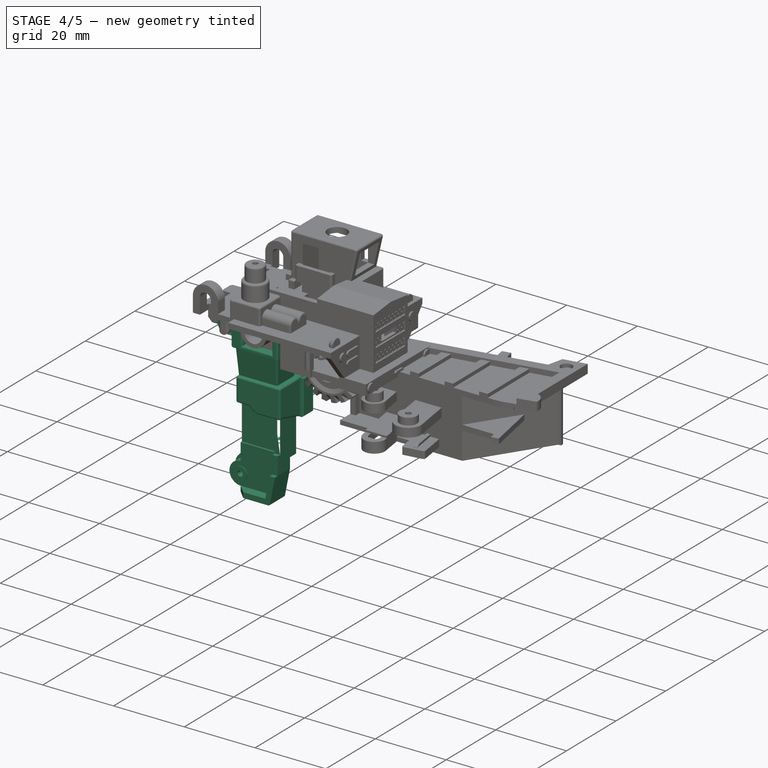
[diagram: stage 4 of 5 — iso view after this stage's code; geometry added in this stage tinted green]
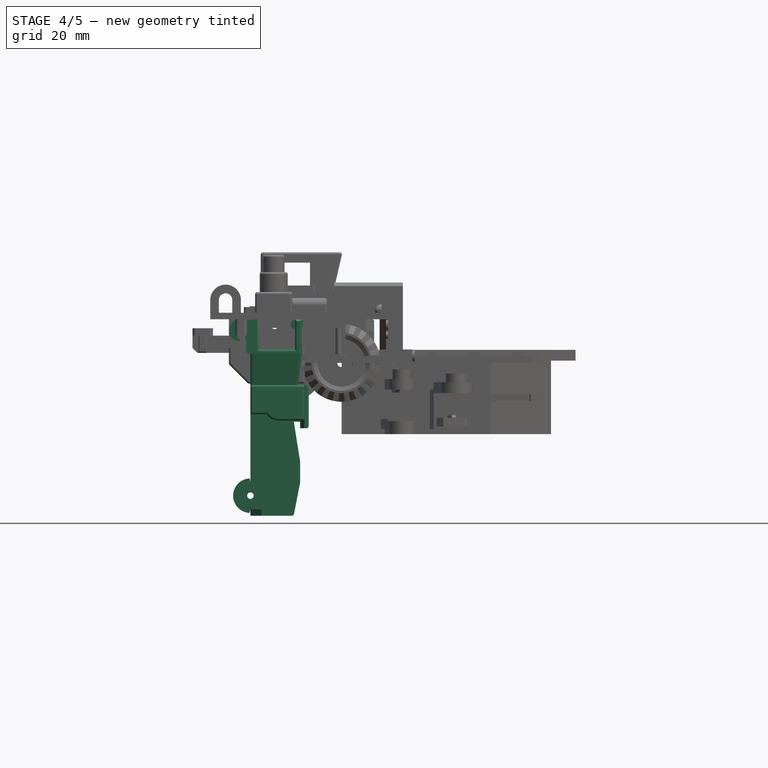
[diagram: stage 4 of 5 — front view after this stage's code; geometry added in this stage tinted green]
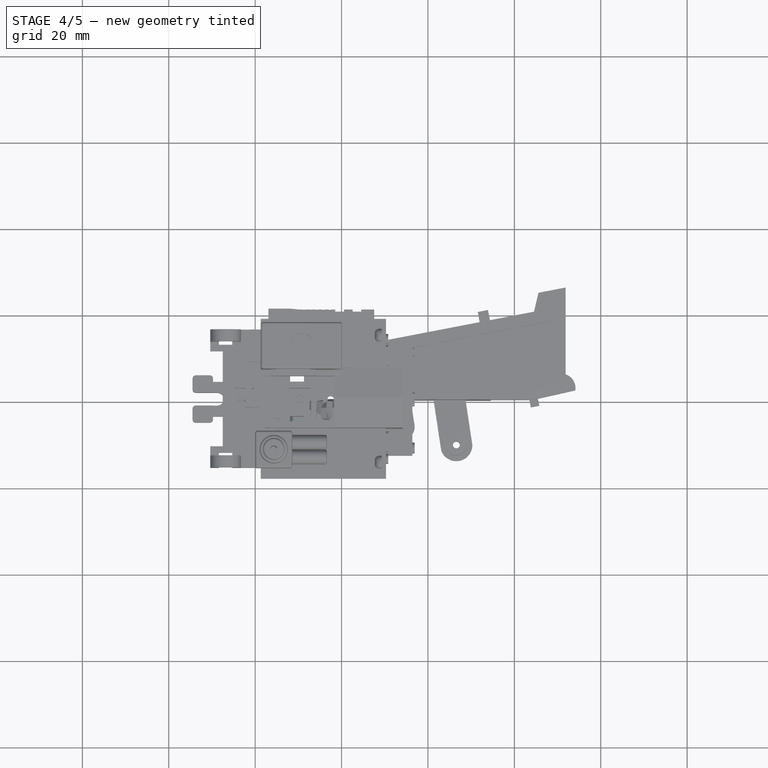
[diagram: stage 4 of 5 — top view after this stage's code; geometry added in this stage tinted green]
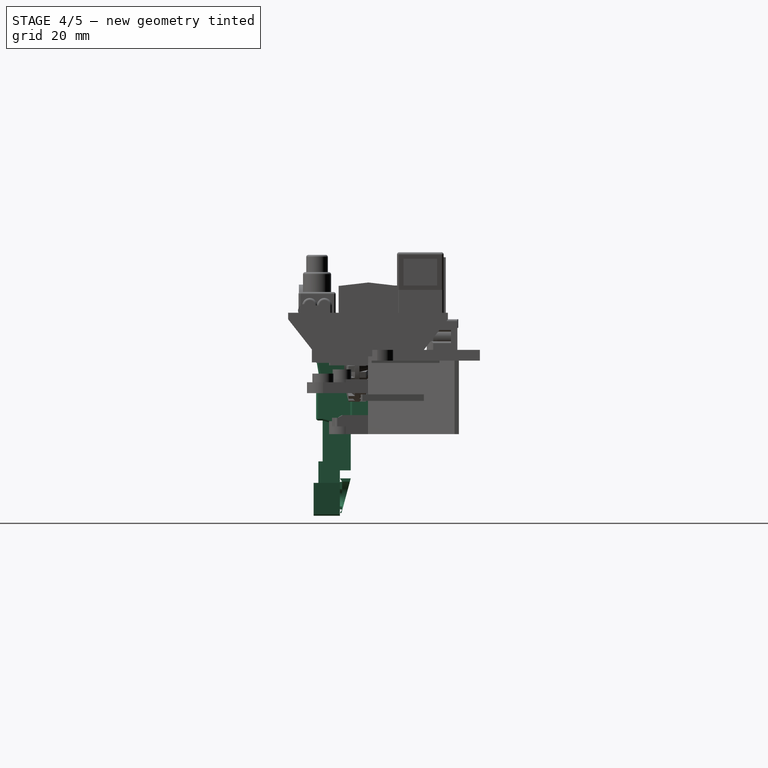
[diagram: stage 4 of 5 — right view after this stage's code; geometry added in this stage tinted green]
FEATURE [PartDesign::SubShapeBinder] Binder002
  BindCopyOnChange = 0
  BindMode = 2
  ClaimChildren = false
  Context = -> Body003 [Binder002.]
  Fuse = false
  MakeFace = true
  OffsetFill = false
  OffsetIntersection = false
  OffsetJoinType = 0
  OffsetOpenResult = false
  PartialLoad = false
  Refine = true
  Relative = true
  _Version = 2
FEATURE [Sketcher::SketchObject] Sketch124
  ArcFitTolerance = 1e-06
  AttachmentSupport = -> [Binder002]
  ExternalGeometry = -> [Binder002]
  FullyConstrained = true
  MakeInternals = false
  MapMode = 5
  Placement = pos=(0,-7.1,0) rot=(1,0,0;1.5708rad)
  sketch-geometry (6):
    g0: ArcOfCircle CenterX=-23.6 CenterY=7.5 CenterZ=0 NormalX=0 NormalY=0 NormalZ=1 AngleXU=0 Radius=2.5 StartAngle=1.5708 EndAngle=4.71239
    g1: LineSegment StartX=-23.6 StartY=10 StartZ=0 EndX=-19.1 EndY=10 EndZ=0
    g2: LineSegment StartX=-19.1 StartY=10 StartZ=0 EndX=-19.1 EndY=2.1 EndZ=0
    g3: LineSegment StartX=-19.1 StartY=2.1 StartZ=0 EndX=-22.1 EndY=2.1 EndZ=0
    g4: LineSegment StartX=-22.1 StartY=2.1 StartZ=0 EndX=-22.1 EndY=5 EndZ=0
    g5: LineSegment StartX=-22.1 StartY=5 StartZ=0 EndX=-23.6 EndY=5 EndZ=0
  constraints (18):
    c: PointOnObject(g0,g-4)
    c: Coincident(g0,g-4)
    c: DistanceX(g0,g0) = 0
    c: DistanceX(g0,g0) = 0
    c: Coincident(g1,g0)
    c: Horizontal(g1)
    c: Coincident(g2,g1)
    c: Vertical(g2)
    c: Coincident(g3,g2)
    c: Horizontal(g3)
    c: Coincident(g4,g3)
    c: Vertical(g4)
    c: Coincident(g5,g4)
    c: Coincident(g5,g0)
    c: Horizontal(g5)
    c: DistanceX(g3,g3) = 3
    c: DistanceY(g2,g2) = 7.9
    c: DistanceX(g5,g5) = 1.5
FEATURE [PartDesign::Pad] Pad073
  Direction = (0,-1,2e-16)
  Length = 5.1
  Length2 = 10
  Profile = -> Sketch124
  ReferenceAxis = -> Sketch124 [N_Axis]
  Refine = true
  Suppressed = false
  Type = 0
FEATURE [Sketcher::SketchObject] Sketch125
  ArcFitTolerance = 1e-06
  AttachmentSupport = -> [Pad073]
  ExternalGeometry = -> [Pad073]
  FullyConstrained = true
  MakeInternals = false
  MapMode = 5
  Placement = pos=(0,-7.1,1.6e-15) rot=(0,0.707107,0.707107;3.14159rad)
  sketch-geometry (6):
    g0: LineSegment StartX=19.1 StartY=10 StartZ=0 EndX=19.1 EndY=2.1 EndZ=0
    g1: LineSegment StartX=19.1 StartY=2.1 StartZ=0 EndX=22.1 EndY=2.1 EndZ=0
    g2: LineSegment StartX=22.1 StartY=2.1 StartZ=0 EndX=22.1 EndY=5 EndZ=0
    g3: LineSegment StartX=22.1 StartY=5 StartZ=0 EndX=20.6 EndY=5 EndZ=0
    g4: LineSegment StartX=20.6 StartY=5 StartZ=0 EndX=20.6 EndY=10 EndZ=0
    g5: LineSegment StartX=20.6 StartY=10 StartZ=0 EndX=19.1 EndY=10 EndZ=0
  constraints (15):
    c: Coincident(g0,g-6)
    c: Coincident(g0,g-5)
    c: Coincident(g1,g0)
    c: Coincident(g1,g-4)
    c: PointOnObject(g2,g1)
    c: Coincident(g2,g-3)
    c: Vertical(g2)
    c: Coincident(g3,g2)
    c: Horizontal(g3)
    c: PointOnObject(g4,g-6)
    c: Coincident(g5,g4)
    c: Coincident(g5,g0)
    c: Coincident(g3,g4)
    c: DistanceX(g5,g5) = 1.5
    c: Vertical(g4)
FEATURE [PartDesign::Pad] Pad074
  BaseFeature = -> Pad073
  Direction = (0,1,-2e-16)
  Length = 3
  Length2 = 10
  Profile = -> Sketch125
  ReferenceAxis = -> Sketch125 [N_Axis]
  Refine = true
  Suppressed = false
  Type = 0
FEATURE [Sketcher::SketchObject] Sketch126
  ArcFitTolerance = 1e-06
  AttachmentSupport = -> [Pad074]
  ExternalGeometry = -> [Pad074]
  FullyConstrained = true
  MakeInternals = false
  MapMode = 5
  Placement = pos=(0,-12.2,2.8e-15) rot=(1,0,0;1.5708rad)
  sketch-geometry (1):
    g0: Circle CenterX=-23.6 CenterY=7.5 CenterZ=0 NormalX=0 NormalY=0 NormalZ=1 AngleXU=0 Radius=0.75
  constraints (2):
    c: Coincident(g0,g-3)
    c: Diameter(g0) = 1.5
FEATURE [PartDesign::Pocket] Pocket055
  BaseFeature = -> Pad074
  Direction = (0,1,-2e-16)
  Length = 6
  Length2 = 5
  Profile = -> Sketch126
  ReferenceAxis = -> Sketch126 [N_Axis]
  Refine = true
  Suppressed = false
  Type = 0
FEATURE [Sketcher::SketchObject] Sketch127
  ArcFitTolerance = 1e-06
  AttachmentSupport = -> [Pocket055]
  ExternalGeometry = -> [Pocket055]
  FullyConstrained = true
  MakeInternals = false
  MapMode = 5
  Placement = pos=(0,-12.2,2.8e-15) rot=(1,0,0;1.5708rad)
  sketch-geometry (8):
    g0: LineSegment StartX=-10.77 StartY=2.1 StartZ=0 EndX=-10.77 EndY=7.75 EndZ=0
    g1: ArcOfCircle CenterX=-10.77 CenterY=8.875 CenterZ=0 NormalX=0 NormalY=0 NormalZ=1 AngleXU=0 Radius=1.125 StartAngle=1.5708 EndAngle=4.71239
    g2: LineSegment StartX=-10.77 StartY=10 StartZ=0 EndX=-9.17 EndY=10 EndZ=0
    g3: ArcOfCircle CenterX=-9.17 CenterY=9.35 CenterZ=0 NormalX=0 NormalY=0 NormalZ=1 AngleXU=0 Radius=0.65 StartAngle=4.71239 EndAngle=7.85398
    g4: LineSegment StartX=-9.17 StartY=8.7 StartZ=0 EndX=-9.17 EndY=1.1 EndZ=0
    g5: LineSegment StartX=-9.17 StartY=1.1 StartZ=0 EndX=-21.1 EndY=1.1 EndZ=0
    g6: LineSegment StartX=-21.1 StartY=1.1 StartZ=0 EndX=-21.1 EndY=2.1 EndZ=0
    g7: LineSegment StartX=-21.1 StartY=2.1 StartZ=0 EndX=-10.77 EndY=2.1 EndZ=0
  constraints (27):
    c: Coincident(g1,g0)
    c: Coincident(g2,g1)
    c: Horizontal(g2)
    c: Coincident(g3,g2)
    c: Coincident(g4,g3)
    c: Vertical(g4)
    c: Coincident(g5,g4)
    c: Horizontal(g5)
    c: Coincident(g6,g5)
    c: DistanceY(g6,g6) = 1
    c: Vertical(g0)
    c: DistanceX(g-3,g0) = 8.33
    c: Diameter(g1) = 2.25
    c: DistanceX(g1,g0) = 0
    c: DistanceX(g1,g1) = 0
    c: DistanceX(g2,g2) = 1.6
    c: Diameter(g3) = 1.3
    c: DistanceX(g3,g2) = 0
    c: DistanceX(g3,g3) = 0
    c: DistanceY(g-4,g-4) = 7.9
    c: DistanceY(g0,g1) = 7.9
    c: Vertical(g6)
    c: DistanceX(g-3,g6) = 1
    c: Coincident(g7,g6)
    c: Coincident(g7,g0)
    c: Horizontal(g7)
    c: PointOnObject(g6,g-3)
FEATURE [PartDesign::Pad] Pad075
  BaseFeature = -> Pocket055
  Direction = (0,-1,2e-16)
  Length = 8.1
  Length2 = 10
  Profile = -> Sketch127
  ReferenceAxis = -> Sketch127 [N_Axis]
  Refine = true
  Reversed = true
  Suppressed = false
  Type = 0
FEATURE [Sketcher::SketchObject] Sketch128
  ArcFitTolerance = 1e-06
  AttachmentSupport = -> [Pad075]
  ExternalGeometry = -> [Pad075]
  FullyConstrained = true
  MakeInternals = false
  MapMode = 5
  Placement = pos=(0,5e-16,2.1) rot=(0,0,1;0rad)
  sketch-geometry (4):
    g0: LineSegment StartX=-19.1 StartY=-4.1 StartZ=0 EndX=-19.1 EndY=-10.2 EndZ=0
    g1: LineSegment StartX=-19.1 StartY=-10.2 StartZ=0 EndX=-10.77 EndY=-10.2 EndZ=0
    g2: LineSegment StartX=-10.77 StartY=-10.2 StartZ=0 EndX=-10.77 EndY=-4.1 EndZ=0
    g3: LineSegment StartX=-10.77 StartY=-4.1 StartZ=0 EndX=-19.1 EndY=-4.1 EndZ=0
  constraints (11):
    c: Coincident(g0,g1)
    c: Coincident(g1,g2)
    c: Coincident(g2,g3)
    c: Coincident(g3,g0)
    c: Vertical(g0)
    c: Vertical(g2)
    c: Horizontal(g1)
    c: Horizontal(g3)
    c: PointOnObject(g1,g-4)
    c: DistanceY(g-6,g1) = 2
    c: Coincident(g0,g-5)
FEATURE [PartDesign::Pocket] Pocket056
  BaseFeature = -> Pad075
  Direction = (0,0,-1)
  Length = 5
  Length2 = 5
  Profile = -> Sketch128
  ReferenceAxis = -> Sketch128 [N_Axis]
  Refine = true
  Suppressed = false
  Type = 0
FEATURE [Sketcher::SketchObject] Sketch129
  ArcFitTolerance = 1e-06
  AttachmentSupport = -> [Pocket056]
  ExternalGeometry = -> [Pocket056]
  FullyConstrained = true
  MakeInternals = false
  MapMode = 5
  Placement = pos=(0,-12.2,0) rot=(1,0,0;1.5708rad)
  sketch-geometry (4):
    g0: ArcOfCircle CenterX=-10.77 CenterY=8.875 CenterZ=0 NormalX=0 NormalY=0 NormalZ=1 AngleXU=0 Radius=1.125 StartAngle=1.5708 EndAngle=4.71239
    g1: ArcOfCircle CenterX=-9.17 CenterY=9.35 CenterZ=0 NormalX=0 NormalY=0 NormalZ=1 AngleXU=0 Radius=0.65 StartAngle=4.71239 EndAngle=7.85398
    g2: LineSegment StartX=-10.77 StartY=10 StartZ=0 EndX=-10.77 EndY=7.75 EndZ=0
    g3: LineSegment StartX=-9.17 StartY=10 StartZ=0 EndX=-9.17 EndY=8.7 EndZ=0
  constraints (8):
    c: Tangent(g0,g-4) = -1.5708
    c: Coincident(g0,g-4)
    c: Tangent(g1,g-3) = -1.5708
    c: Coincident(g1,g-3)
    c: Coincident(g2,g0)
    c: Coincident(g2,g0)
    c: Coincident(g3,g1)
    c: Coincident(g3,g1)
FEATURE [PartDesign::Pocket] Pocket057
  BaseFeature = -> Pocket056
  Direction = (0,1,-2e-16)
  Length = 2
  Length2 = 5
  Profile = -> Sketch129
  ReferenceAxis = -> Sketch129 [N_Axis]
  Refine = true
  Suppressed = false
  Type = 0
FEATURE [PartDesign::Fillet] Fillet004
  Base = -> Pocket057 [Edge38,Edge37]
  BaseFeature = -> Pocket057
  Radius = 0.5
  Refine = true
  SupportTransform = false
  Suppressed = false
  UseAllEdges = false
FEATURE [Sketcher::SketchObject] Sketch130
  ArcFitTolerance = 1e-06
  AttachmentSupport = -> [Fillet004]
  ExternalGeometry = -> [Fillet004]
  FullyConstrained = true
  MakeInternals = false
  MapMode = 5
  Placement = pos=(0,-12.2,0) rot=(1,0,0;1.5708rad)
  sketch-geometry (4):
    g0: LineSegment StartX=-10.77 StartY=2.1 StartZ=0 EndX=-10.77 EndY=3.1 EndZ=0
    g1: LineSegment StartX=-10.77 StartY=3.1 StartZ=0 EndX=-19.1 EndY=3.1 EndZ=0
    g2: LineSegment StartX=-19.1 StartY=3.1 StartZ=0 EndX=-19.1 EndY=2.1 EndZ=0
    g3: LineSegment StartX=-19.1 StartY=2.1 StartZ=0 EndX=-10.77 EndY=2.1 EndZ=0
  constraints (11):
    c: Coincident(g0,g1)
    c: Coincident(g1,g2)
    c: Coincident(g2,g3)
    c: Coincident(g3,g0)
    c: Vertical(g0)
    c: Vertical(g2)
    c: Horizontal(g1)
    c: Horizontal(g3)
    c: Coincident(g0,g-5)
    c: PointOnObject(g1,g-4)
    c: DistanceY(g2,g2) = 1
FEATURE [PartDesign::Pad] Pad076
  BaseFeature = -> Fillet004
  Direction = (0,-1,2e-16)
  Length = 2
  Length2 = 10
  Profile = -> Sketch130
  ReferenceAxis = -> Sketch130 [N_Axis]
  Refine = true
  Reversed = true
  Suppressed = false
  Type = 0
FEATURE [Sketcher::SketchObject] Sketch131
  ArcFitTolerance = 1e-06
  AttachmentSupport = -> [Pad076]
  ExternalGeometry = -> [Pad076]
  FullyConstrained = true
  MakeInternals = false
  MapMode = 5
  Placement = pos=(0,-12.2,0) rot=(1,0,0;1.5708rad)
  sketch-geometry (4):
    g0: LineSegment StartX=-21.1 StartY=2.1 StartZ=0 EndX=-21.1 EndY=1.1 EndZ=0
    g1: LineSegment StartX=-21.1 StartY=1.1 StartZ=0 EndX=-9.17 EndY=1.1 EndZ=0
    g2: LineSegment StartX=-9.17 StartY=1.1 StartZ=0 EndX=-9.17 EndY=2.1 EndZ=0
    g3: LineSegment StartX=-9.17 StartY=2.1 StartZ=0 EndX=-21.1 EndY=2.1 EndZ=0
  constraints (10):
    c: Coincident(g0,g1)
    c: Coincident(g1,g2)
    c: Coincident(g2,g3)
    c: Coincident(g3,g0)
    c: Vertical(g0)
    c: Vertical(g2)
    c: Horizontal(g1)
    c: Horizontal(g3)
    c: Coincident(g0,g-3)
    c: Coincident(g1,g-5)
FEATURE [PartDesign::Pocket] Pocket058
  BaseFeature = -> Pad076
  Direction = (0,1,-2e-16)
  Length = 9
  Length2 = 5
  Profile = -> Sketch131
  ReferenceAxis = -> Sketch131 [N_Axis]
  Refine = true
  Suppressed = false
  Type = 0
FEATURE [Sketcher::SketchObject] Sketch132
  ArcFitTolerance = 1e-06
  AttachmentOffset = pos=(0,0,-1) rot=(0,0,1;0rad)
  AttachmentSupport = -> [Pocket058]
  ExternalGeometry = -> [Pocket058]
  FullyConstrained = true
  MakeInternals = false
  MapMode = 5
  Placement = pos=(-21.1,0,0) rot=(0.57735,-0.57735,-0.57735;2.0944rad)
  sketch-geometry (16):
    g0: LineSegment StartX=12.2 StartY=2.1 StartZ=0 EndX=11 EndY=-5.15 EndZ=0
    g1: LineSegment StartX=4 StartY=-24.9 StartZ=0 EndX=6.5 EndY=-24.9 EndZ=0
    g2: LineSegment StartX=6.5 StartY=-24.9 StartZ=0 EndX=6.5 EndY=-35.4 EndZ=0
    g3: LineSegment StartX=6.5 StartY=-35.4 StartZ=0 EndX=10 EndY=-35.4 EndZ=0
    g4: LineSegment StartX=10 StartY=-35.4 StartZ=0 EndX=10 EndY=-22.8 EndZ=0
    g5: LineSegment StartX=10 StartY=-22.8 StartZ=0 EndX=9.5 EndY=-22.8 EndZ=0
    g6: LineSegment StartX=9.5 StartY=-22.8 StartZ=0 EndX=9.5 EndY=-11.9 EndZ=0
    g7: LineSegment StartX=9.5 StartY=-11.9 StartZ=0 EndX=12 EndY=-11.9 EndZ=0
    g8: LineSegment StartX=12 StartY=-11.9 StartZ=0 EndX=12 EndY=-5.15 EndZ=0
    g9: LineSegment StartX=12 StartY=-5.15 StartZ=0 EndX=11 EndY=-5.15 EndZ=0
    g10: LineSegment StartX=4.1 StartY=2.1 StartZ=0 EndX=4.1 EndY=-5.15 EndZ=0
    g11: LineSegment StartX=4.1 StartY=-5.15 StartZ=0 EndX=-1.8e-15 EndY=-5.15 EndZ=0
    g12: LineSegment StartX=-1.8e-15 StartY=-5.15 StartZ=0 EndX=-1.8e-15 EndY=-15.15 EndZ=0
    g13: LineSegment StartX=4 StartY=-24.9 StartZ=0 EndX=4 EndY=-15.15 EndZ=0
    g14: LineSegment StartX=4 StartY=-15.15 StartZ=0 EndX=-1.8e-15 EndY=-15.15 EndZ=0
    g15: LineSegment StartX=4.1 StartY=2.1 StartZ=0 EndX=12.2 EndY=2.1 EndZ=0
  constraints (47):
    c: Coincident(g0,g-3)
    c: Horizontal(g1)
    c: Coincident(g2,g1)
    c: Vertical(g2)
    c: Coincident(g3,g2)
    c: Horizontal(g3)
    c: Coincident(g4,g3)
    c: Vertical(g4)
    c: Coincident(g5,g4)
    c: Horizontal(g5)
    c: Coincident(g6,g5)
    c: Vertical(g6)
    c: Coincident(g7,g6)
    c: Horizontal(g7)
    c: Coincident(g8,g7)
    c: Vertical(g8)
    c: Coincident(g9,g8)
    c: Coincident(g9,g0)
    c: Horizontal(g9)
    c: DistanceX(g1,g6) = 5.5
    c: DistanceY(g8,g8) = 6.75
    c: DistanceY(g8,g0) = 7.25
    c: DistanceX(g9,g9) = 1
    c: Coincident(g10,g-3)
    c: Vertical(g10)
    c: Coincident(g11,g10)
    c: Horizontal(g11)
    c: Coincident(g12,g11)
    c: Vertical(g12)
    c: Coincident(g13,g1)
    c: Vertical(g13)
    c: Coincident(g14,g13)
    c: Coincident(g14,g12)
    c: Horizontal(g14)
    c: DistanceX(g11,g8) = 12
    c: DistanceX(g7,g7) = 2.5
    c: DistanceY(g10,g10) = 7.25
    c: DistanceY(g12,g12) = 10
    c: DistanceX(g11,g11) = 4.1
    c: DistanceX(g1,g1) = 2.5
    c: DistanceY(g3,g-4) = 45.4
    c: DistanceY(g1,g-5) = 34.9
    c: DistanceX(g5,g5) = 0.5
    c: DistanceX(g3,g3) = 3.5
    c: DistanceY(g4,g4) = 12.6
    c: Coincident(g15,g10)
    c: Coincident(g15,g0)
FEATURE [PartDesign::Pad] Pad077
  BaseFeature = -> Pocket058
  Direction = (-1,0,0)
  Length = 1
  Length2 = 10
  Profile = -> Sketch132
  ReferenceAxis = -> Sketch132 [N_Axis]
  Refine = true
  Reversed = true
  Suppressed = false
  Type = 0
FEATURE [Sketcher::SketchObject] Sketch133
  ArcFitTolerance = 1e-06
  AttachmentSupport = -> [Pad077]
  ExternalGeometry = -> [Pad077]
  FullyConstrained = true
  MakeInternals = false
  MapMode = 5
  Placement = pos=(-20.1,0,0) rot=(0.57735,0.57735,0.57735;2.0944rad)
  sketch-geometry (4):
    g0: LineSegment StartX=-4.1 StartY=2.1 StartZ=0 EndX=-12.2 EndY=2.1 EndZ=0
    g1: LineSegment StartX=-12.2 StartY=2.1 StartZ=0 EndX=-11 EndY=-5.15 EndZ=0
    g2: LineSegment StartX=-11 StartY=-5.15 StartZ=0 EndX=-4.1 EndY=-5.15 EndZ=0
    g3: LineSegment StartX=-4.1 StartY=-5.15 StartZ=0 EndX=-4.1 EndY=2.1 EndZ=0
  constraints (8):
    c: Coincident(g0,g-3)
    c: Coincident(g0,g-4)
    c: Coincident(g1,g0)
    c: Coincident(g1,g-4)
    c: Coincident(g2,g1)
    c: Coincident(g2,g-3)
    c: Coincident(g3,g2)
    c: Coincident(g3,g0)
FEATURE [PartDesign::Pad] Pad078
  BaseFeature = -> Pad077
  Direction = (1,0,0)
  Length = 1
  Length2 = 10
  Profile = -> Sketch133
  ReferenceAxis = -> Sketch133 [N_Axis]
  Refine = true
  Suppressed = false
  Type = 0
FEATURE [Sketcher::SketchObject] Sketch134
  ArcFitTolerance = 1e-06
  AttachmentSupport = -> [Pad078]
  ExternalGeometry = -> [Pad078]
  FullyConstrained = true
  MakeInternals = false
  MapMode = 5
  Placement = pos=(-20.1,0,0) rot=(0.57735,0.57735,0.57735;2.0944rad)
  sketch-geometry (8):
    g0: LineSegment StartX=-4 StartY=-15.15 StartZ=0 EndX=-4 EndY=-24.9 EndZ=0
    g1: LineSegment StartX=-4 StartY=-24.9 StartZ=0 EndX=-6.5 EndY=-24.9 EndZ=0
    g2: LineSegment StartX=-6.5 StartY=-24.9 StartZ=0 EndX=-6.5 EndY=-35.4 EndZ=0
    g3: LineSegment StartX=-6.5 StartY=-35.4 StartZ=0 EndX=-10 EndY=-35.4 EndZ=0
    g4: LineSegment StartX=-10 StartY=-35.4 StartZ=0 EndX=-10 EndY=-22.8 EndZ=0
    g5: LineSegment StartX=-4 StartY=-15.15 StartZ=0 EndX=-9.5 EndY=-15.15 EndZ=0
    g6: LineSegment StartX=-9.5 StartY=-15.15 StartZ=0 EndX=-9.5 EndY=-22.8 EndZ=0
    g7: LineSegment StartX=-9.5 StartY=-22.8 StartZ=0 EndX=-10 EndY=-22.8 EndZ=0
  constraints (17):
    c: Coincident(g0,g-3)
    c: Coincident(g0,g-9)
    c: Coincident(g1,g0)
    c: Coincident(g1,g-9)
    c: Coincident(g2,g1)
    c: Coincident(g2,g-6)
    c: Coincident(g3,g2)
    c: Coincident(g3,g-7)
    c: Coincident(g4,g3)
    c: Coincident(g4,g-8)
    c: Coincident(g5,g0)
    c: PointOnObject(g5,g-4)
    c: Horizontal(g5)
    c: Coincident(g6,g5)
    c: Coincident(g6,g-8)
    c: Coincident(g7,g4)
    c: Coincident(g6,g7)
FEATURE [PartDesign::Pad] Pad079
  BaseFeature = -> Pad078
  Direction = (1,0,0)
  Length = 0.5
  Length2 = 10
  Profile = -> Sketch134
  ReferenceAxis = -> Sketch134 [N_Axis]
  Refine = true
  Suppressed = false
  Type = 0
FEATURE [Sketcher::SketchObject] Sketch135
  ArcFitTolerance = 1e-06
  AttachmentSupport = -> [Pad079]
  ExternalGeometry = -> [Pad079]
  FullyConstrained = true
  MakeInternals = false
  MapMode = 5
  Placement = pos=(0,1.8e-15,0) rot=(0,0.707107,0.707107;3.14159rad)
  sketch-geometry (8):
    g0: LineSegment StartX=20.1 StartY=-5.15 StartZ=0 EndX=7.6 EndY=-5.15 EndZ=0
    g1: LineSegment StartX=20.1 StartY=-15.15 StartZ=0 EndX=7.6 EndY=-15.15 EndZ=0
    g2: LineSegment StartX=7.6 StartY=-5.15 StartZ=0 EndX=7.6 EndY=-15.15 EndZ=0
    g3: LineSegment StartX=20.1 StartY=-15.15 StartZ=0 EndX=20.1 EndY=-13.55 EndZ=0
    g4: LineSegment StartX=20.1 StartY=-13.55 StartZ=0 EndX=8.6 EndY=-13.55 EndZ=0
    g5: LineSegment StartX=8.6 StartY=-13.55 StartZ=0 EndX=8.6 EndY=-6.75 EndZ=0
    g6: LineSegment StartX=8.6 StartY=-6.75 StartZ=0 EndX=20.1 EndY=-6.75 EndZ=0
    g7: LineSegment StartX=20.1 StartY=-6.75 StartZ=0 EndX=20.1 EndY=-5.15 EndZ=0
  constraints (23):
    c: Coincident(g0,g-5)
    c: Horizontal(g0)
    c: Coincident(g1,g-4)
    c: Horizontal(g1)
    c: Coincident(g2,g0)
    c: Coincident(g2,g1)
    c: Vertical(g2)
    c: DistanceY(g-6,g-6) = 10
    c: Coincident(g3,g1)
    c: Vertical(g3)
    c: Coincident(g4,g3)
    c: Horizontal(g4)
    c: Coincident(g5,g4)
    c: Vertical(g5)
    c: Coincident(g6,g5)
    c: Horizontal(g6)
    c: PointOnObject(g6,g-7)
    c: Coincident(g7,g6)
    c: Coincident(g7,g0)
    c: DistanceX(g0,g5) = 1
    c: DistanceY(g5,g0) = 1.6
    c: DistanceY(g1,g4) = 1.6
    c: DistanceX(g0,g6) = 12.5
FEATURE [PartDesign::Pad] Pad080
  BaseFeature = -> Pad079
  Direction = (0,1,-2e-16)
  Length = 4.1
  Length2 = 10
  Profile = -> Sketch135
  ReferenceAxis = -> Sketch135 [N_Axis]
  Refine = true
  Reversed = true
  Suppressed = false
  Type = 0
FEATURE [Sketcher::SketchObject] Sketch136
  ArcFitTolerance = 1e-06
  AttachmentSupport = -> [Pad080]
  ExternalGeometry = -> [Pad080]
  FullyConstrained = true
  MakeInternals = false
  MapMode = 5
  Placement = pos=(0,-12,0) rot=(1,0,0;1.5708rad)
  sketch-geometry (6):
    g0: LineSegment StartX=-20.1 StartY=-5.15 StartZ=0 EndX=-8.6 EndY=-5.15 EndZ=0
    g1: LineSegment StartX=-8.6 StartY=-5.15 StartZ=0 EndX=-8.6 EndY=-13.35 EndZ=0
    g2: LineSegment StartX=-20.1 StartY=-11.9 StartZ=0 EndX=-17.3 EndY=-11.9 EndZ=0
    g3: LineSegment StartX=-8.6 StartY=-13.35 StartZ=0 EndX=-14.6 EndY=-13.35 EndZ=0
    g4: ArcOfCircle CenterX=-14.6 CenterY=-10.1112 CenterZ=0 NormalX=0 NormalY=0 NormalZ=1 AngleXU=0 Radius=3.23879 StartAngle=3.72672 EndAngle=4.71239
    g5: LineSegment StartX=-20.1 StartY=-5.15 StartZ=0 EndX=-20.1 EndY=-11.9 EndZ=0
  constraints (20):
    c: DistanceX(g-4,g-4) = 1
    c: Coincident(g0,g-4)
    c: Horizontal(g0)
    c: DistanceX(g0,g0) = 11.5
    c: Coincident(g1,g0)
    c: Vertical(g1)
    c: DistanceY(g1,g1) = 8.2
    c: Coincident(g2,g-3)
    c: Horizontal(g2)
    c: Coincident(g3,g1)
    c: Horizontal(g3)
    c: Coincident(g4,g3)
    c: Coincident(g4,g2)
    c: DistanceX(g2,g2) = 2.8
    c: DistanceX(g4,g3) = 0
    c: DistanceX(g-5,g4) = 6.5
    c: DistanceX(g3,g1) = 6
    c: DistanceX(g2,g1) = 8.7
    c: Coincident(g5,g2)
    c: Coincident(g5,g0)
FEATURE [PartDesign::Pad] Pad081
  BaseFeature = -> Pad080
  Direction = (0,-1,2e-16)
  Length = 1.5
  Length2 = 10
  Profile = -> Sketch136
  ReferenceAxis = -> Sketch136 [N_Axis]
  Refine = true
  Reversed = true
  Suppressed = false
  Type = 0
FEATURE [Sketcher::SketchObject] Sketch137
  ArcFitTolerance = 1e-06
  AttachmentSupport = -> [Pad081]
  ExternalGeometry = -> [Pad081]
  FullyConstrained = true
  MakeInternals = false
  MapMode = 5
  Placement = pos=(-19.1,0,4.6e-15) rot=(0.57735,0.57735,0.57735;2.0944rad)
  sketch-geometry (4):
    g0: LineSegment StartX=-12.2 StartY=2.1 StartZ=0 EndX=-10.2 EndY=2.1 EndZ=0
    g1: LineSegment StartX=-12.2 StartY=2.1 StartZ=0 EndX=-11 EndY=-5.15 EndZ=0
    g2: LineSegment StartX=-11 StartY=-5.15 StartZ=0 EndX=-9 EndY=-5.15 EndZ=0
    g3: LineSegment StartX=-9 StartY=-5.15 StartZ=0 EndX=-10.2 EndY=2.1 EndZ=0
  constraints (10):
    c: DistanceX(g-4,g-4) = 2
    c: Coincident(g0,g-4)
    c: Coincident(g0,g-4)
    c: Coincident(g1,g0)
    c: Coincident(g1,g-5)
    c: Coincident(g2,g1)
    c: PointOnObject(g2,g-6)
    c: Coincident(g3,g2)
    c: Coincident(g3,g0)
    c: DistanceX(g2,g2) = 2
FEATURE [PartDesign::Pad] Pad082
  BaseFeature = -> Pad081
  Direction = (1,0,0)
  Length = 9.93
  Length2 = 10
  Profile = -> Sketch137
  ReferenceAxis = -> Sketch137 [N_Axis]
  Refine = true
  Suppressed = false
  Type = 0
FEATURE [Sketcher::SketchObject] Sketch138
  ArcFitTolerance = 1e-06
  AttachmentSupport = -> [Pad082]
  ExternalGeometry = -> [Pad082]
  FullyConstrained = true
  MakeInternals = false
  MapMode = 5
  Placement = pos=(0,-12.2,0) rot=(1,0,0;1.5708rad)
  sketch-geometry (3):
    g0: LineSegment StartX=-9.17 StartY=2.1 StartZ=0 EndX=-9.17 EndY=-5.15 EndZ=0
    g1: LineSegment StartX=-9.17 StartY=-5.15 StartZ=0 EndX=-10.1 EndY=-5.15 EndZ=0
    g2: LineSegment StartX=-10.1 StartY=-5.15 StartZ=0 EndX=-9.17 EndY=2.1 EndZ=0
  constraints (7):
    c: Coincident(g0,g-3)
    c: Coincident(g0,g-3)
    c: Coincident(g1,g0)
    c: PointOnObject(g1,g-4)
    c: Coincident(g2,g1)
    c: Coincident(g2,g0)
    c: DistanceX(g-4,g1) = 11
FEATURE [PartDesign::Pocket] Pocket059
  BaseFeature = -> Pad082
  Direction = (0,1,-2e-16)
  Length = 5
  Length2 = 5
  Profile = -> Sketch138
  ReferenceAxis = -> Sketch138 [N_Axis]
  Refine = true
  Suppressed = false
  Type = 0
FEATURE [Sketcher::SketchObject] Sketch139
  ArcFitTolerance = 1e-06
  AttachmentSupport = -> [Pocket059]
  ExternalGeometry = -> [Pocket059]
  FullyConstrained = true
  MakeInternals = false
  MapMode = 5
  Placement = pos=(0,-4.1,0) rot=(0,0.707107,0.707107;3.14159rad)
  sketch-geometry (4):
    g0: LineSegment StartX=9.17 StartY=2.1 StartZ=0 EndX=10.77 EndY=2.1 EndZ=0
    g1: LineSegment StartX=9.17 StartY=2.1 StartZ=0 EndX=10.1 EndY=-5.15 EndZ=0
    g2: LineSegment StartX=10.1 StartY=-5.15 StartZ=0 EndX=11.7 EndY=-5.15 EndZ=0
    g3: LineSegment StartX=11.7 StartY=-5.15 StartZ=0 EndX=10.77 EndY=2.1 EndZ=0
  constraints (9):
    c: Coincident(g0,g-4)
    c: Coincident(g0,g-3)
    c: Coincident(g1,g0)
    c: Coincident(g1,g-4)
    c: Coincident(g2,g1)
    c: PointOnObject(g2,g-5)
    c: Coincident(g3,g2)
    c: Coincident(g3,g0)
    c: DistanceX(g2,g2) = 1.6
FEATURE [PartDesign::Pad] Pad083
  BaseFeature = -> Pocket059
  Direction = (0,1,-2e-16)
  Length = 6.5
  Length2 = 10
  Profile = -> Sketch139
  ReferenceAxis = -> Sketch139 [N_Axis]
  Refine = true
  Reversed = true
  Suppressed = false
  Type = 0
FEATURE [Sketcher::SketchObject] Sketch140
  ArcFitTolerance = 1e-06
  AttachmentSupport = -> [Pad083]
  ExternalGeometry = -> [Pad083]
  FullyConstrained = true
  MakeInternals = false
  MapMode = 5
  Placement = pos=(-8.6,0,0) rot=(0.57735,0.57735,0.57735;2.0944rad)
  sketch-geometry (4):
    g0: LineSegment StartX=-10.5 StartY=-5.15 StartZ=0 EndX=-4.1 EndY=-5.15 EndZ=0
    g1: LineSegment StartX=-4.1 StartY=-5.15 StartZ=0 EndX=-4.1 EndY=-15.15 EndZ=0
    g2: LineSegment StartX=-4.1 StartY=-15.15 StartZ=0 EndX=-10.5 EndY=-13.35 EndZ=0
    g3: LineSegment StartX=-10.5 StartY=-13.35 StartZ=0 EndX=-10.5 EndY=-5.15 EndZ=0
  constraints (8):
    c: Coincident(g0,g-3)
    c: Coincident(g0,g-4)
    c: Coincident(g1,g0)
    c: Coincident(g1,g-4)
    c: Coincident(g2,g1)
    c: Coincident(g2,g-3)
    c: Coincident(g3,g2)
    c: Coincident(g3,g0)
FEATURE [PartDesign::Pad] Pad084
  BaseFeature = -> Pad083
  Direction = (1,0,0)
  Length = 1
  Length2 = 10
  Profile = -> Sketch140
  ReferenceAxis = -> Sketch140 [N_Axis]
  Refine = true
  Reversed = true
  Suppressed = false
  Type = 0
FEATURE [Sketcher::SketchObject] Sketch141
  ArcFitTolerance = 1e-06
  AttachmentSupport = -> [Pad084]
  ExternalGeometry = -> [Pad084]
  FullyConstrained = false
  MakeInternals = false
  MapMode = 5
  Placement = pos=(0,-4.1,0) rot=(0,0.707107,0.707107;3.14159rad)
  sketch-geometry (4):
    g0: LineSegment StartX=8.6 StartY=-6.7914 StartZ=0 EndX=8.6 EndY=-13.55 EndZ=0
    g1: LineSegment StartX=8.6 StartY=-13.55 StartZ=0 EndX=9.6 EndY=-13.55 EndZ=0
    g2: LineSegment StartX=9.6 StartY=-13.55 StartZ=0 EndX=9.6 EndY=-6.7914 EndZ=0
    g3: LineSegment StartX=9.6 StartY=-6.7914 StartZ=0 EndX=8.6 EndY=-6.7914 EndZ=0
  constraints (10):
    c: Coincident(g0,g1)
    c: Coincident(g1,g2)
    c: Coincident(g2,g3)
    c: Coincident(g3,g0)
    c: Vertical(g0)
    c: Vertical(g2)
    c: Horizontal(g1)
    c: Horizontal(g3)
    c: PointOnObject(g0,g-3)
    c: Coincident(g1,g-4)
FEATURE [PartDesign::Pad] Pad085
  BaseFeature = -> Pad084
  Direction = (0,1,-2e-16)
  Length = 1
  Length2 = 10
  Profile = -> Sketch141
  ReferenceAxis = -> Sketch141 [N_Axis]
  Refine = true
  Suppressed = false
  Type = 0
FEATURE [Sketcher::SketchObject] Sketch142
  ArcFitTolerance = 1e-06
  AttachmentSupport = -> [Pad085]
  ExternalGeometry = -> [Pad085]
  FullyConstrained = true
  MakeInternals = false
  MapMode = 5
  Placement = pos=(0,-4.1,0) rot=(1,0,0;1.5708rad)
  sketch-geometry (4):
    g0: LineSegment StartX=-9.6 StartY=-5.15 StartZ=0 EndX=-20.1 EndY=-5.15 EndZ=0
    g1: LineSegment StartX=-20.1 StartY=-5.15 StartZ=0 EndX=-20.1 EndY=-6.75 EndZ=0
    g2: LineSegment StartX=-20.1 StartY=-6.75 StartZ=0 EndX=-9.6 EndY=-6.75 EndZ=0
    g3: LineSegment StartX=-9.6 StartY=-6.75 StartZ=0 EndX=-9.6 EndY=-5.15 EndZ=0
  constraints (10):
    c: Coincident(g0,g1)
    c: Coincident(g1,g2)
    c: Coincident(g2,g3)
    c: Coincident(g3,g0)
    c: Horizontal(g0)
    c: Horizontal(g2)
    c: Vertical(g1)
    c: Vertical(g3)
    c: Coincident(g0,g-6)
    c: Coincident(g1,g-5)
FEATURE [PartDesign::Pad] Pad086
  BaseFeature = -> Pad085
  Direction = (0,-1,2e-16)
  Length = 7
  Length2 = 10
  Profile = -> Sketch142
  ReferenceAxis = -> Sketch142 [N_Axis]
  Refine = true
  Suppressed = false
  Type = 0
FEATURE [Sketcher::SketchObject] Sketch143
  ArcFitTolerance = 1e-06
  AttachmentSupport = -> [Pad086]
  ExternalGeometry = -> [Pad086]
  FullyConstrained = true
  MakeInternals = false
  MapMode = 5
  Placement = pos=(0,-10.5,0) rot=(0,0.707107,0.707107;3.14159rad)
  sketch-geometry (8):
    g0: LineSegment StartX=9.6 StartY=-13.35 StartZ=0 EndX=14.6 EndY=-13.35 EndZ=0
    g1: ArcOfCircle CenterX=14.6 CenterY=-10.1112 CenterZ=0 NormalX=0 NormalY=0 NormalZ=1 AngleXU=0 Radius=3.23879 StartAngle=4.71239 EndAngle=5.69806
    g2: LineSegment StartX=17.3 StartY=-11.9 StartZ=0 EndX=20.1 EndY=-11.9 EndZ=0
    g3: LineSegment StartX=20.1 StartY=-11.9 StartZ=0 EndX=20.1 EndY=-10.4 EndZ=0
    g4: LineSegment StartX=20.1 StartY=-10.4 StartZ=0 EndX=16.3146 EndY=-10.4 EndZ=0
    g5: LineSegment StartX=9.6 StartY=-13.35 StartZ=0 EndX=9.6 EndY=-11.85 EndZ=0
    g6: LineSegment StartX=9.6 StartY=-11.85 StartZ=0 EndX=14.6 EndY=-11.85 EndZ=0
    g7: ArcOfCircle CenterX=14.6 CenterY=-10.1112 CenterZ=0 NormalX=0 NormalY=0 NormalZ=1 AngleXU=0 Radius=1.73879 StartAngle=4.71239 EndAngle=6.11632
  constraints (22):
    c: Coincident(g0,g-7)
    c: Coincident(g1,g0)
    c: Tangent(g1,g-5) = -1.5708
    c: PointOnObject(g2,g-5)
    c: Coincident(g2,g-4)
    c: Horizontal(g2)
    c: PointOnObject(g3,g2)
    c: PointOnObject(g3,g-3)
    c: Vertical(g3)
    c: Coincident(g4,g3)
    c: Horizontal(g4)
    c: Coincident(g0,g-6)
    c: Coincident(g5,g0)
    c: PointOnObject(g5,g-7)
    c: Coincident(g6,g5)
    c: Horizontal(g6)
    c: Coincident(g7,g6)
    c: Coincident(g7,g4)
    c: Coincident(g7,g1)
    c: DistanceY(g3,g3) = 1.5
    c: DistanceY(g5,g5) = 1.5
    c: DistanceX(g6,g0) = 0
FEATURE [PartDesign::Pad] Pad087
  BaseFeature = -> Pad086
  Direction = (0,1,-2e-16)
  Length = 1
  Length2 = 10
  Profile = -> Sketch143
  ReferenceAxis = -> Sketch143 [N_Axis]
  Refine = true
  Suppressed = false
  Type = 0
FEATURE [Sketcher::SketchObject] Sketch144
  ArcFitTolerance = 1e-06
  AttachmentSupport = -> [Pad087]
  ExternalGeometry = -> [Pad087]
  FullyConstrained = true
  MakeInternals = false
  MapMode = 5
  Placement = pos=(-9.9e-15,-9.5,0) rot=(1,0,0;1.5708rad)
  sketch-geometry (8):
    g0: LineSegment StartX=-19.6 StartY=-22.8 StartZ=0 EndX=-19.6 EndY=-15.15 EndZ=0
    g1: LineSegment StartX=-19.6 StartY=-15.15 StartZ=0 EndX=-20.1 EndY=-15.15 EndZ=0
    g2: LineSegment StartX=-20.1 StartY=-15.15 StartZ=0 EndX=-20.1 EndY=-10.4 EndZ=0
    g3: LineSegment StartX=-20.1 StartY=-10.4 StartZ=0 EndX=-16.3146 EndY=-10.4 EndZ=0
    g4: ArcOfCircle CenterX=-14.6 CenterY=-10.1112 CenterZ=0 NormalX=0 NormalY=0 NormalZ=1 AngleXU=0 Radius=1.73879 StartAngle=3.30845 EndAngle=4.71239
    g5: LineSegment StartX=-14.6 StartY=-11.85 StartZ=0 EndX=-9.6 EndY=-11.85 EndZ=0
    g6: LineSegment StartX=-19.6 StartY=-22.8 StartZ=0 EndX=-9.6 EndY=-22.8 EndZ=0
    g7: LineSegment StartX=-9.6 StartY=-11.85 StartZ=0 EndX=-9.6 EndY=-22.8 EndZ=0
  constraints (17):
    c: Coincident(g0,g-4)
    c: Coincident(g0,g-4)
    c: Coincident(g1,g0)
    c: Coincident(g1,g-3)
    c: Coincident(g2,g1)
    c: Coincident(g2,g-5)
    c: Coincident(g3,g2)
    c: Coincident(g3,g-7)
    c: Tangent(g4,g-7) = -1.5708
    c: Coincident(g4,g-8)
    c: Coincident(g5,g4)
    c: Coincident(g5,g-8)
    c: Coincident(g6,g0)
    c: Horizontal(g6)
    c: Coincident(g7,g5)
    c: Coincident(g6,g7)
    c: Vertical(g7)
FEATURE [PartDesign::Pad] Pad088
  BaseFeature = -> Pad087
  Direction = (-1e-15,-1,2e-16)
  Length = 2
  Length2 = 10
  Profile = -> Sketch144
  ReferenceAxis = -> Sketch144 [N_Axis]
  Refine = true
  Reversed = true
  Suppressed = false
  Type = 0
FEATURE [PartDesign::Pocket] Pocket060
  BaseFeature = -> Pad088
  Direction = (-1,1e-15,0)
  Length = 0.5
  Length2 = 5
  Profile = -> Pad088 [Face50]
  Refine = true
  Suppressed = false
  Type = 0
FEATURE [Sketcher::SketchObject] Sketch145
  ArcFitTolerance = 1e-06
  AttachmentSupport = -> [Pad088]
  ExternalGeometry = -> [Pad088]
  FullyConstrained = true
  MakeInternals = false
  MapMode = 5
  Placement = pos=(-9.6,1e-14,0) rot=(0.57735,0.57735,0.57735;2.0944rad)
  sketch-geometry (9):
    g0: LineSegment StartX=-10.5 StartY=-13.35 StartZ=0 EndX=-10.5 EndY=-22.8 EndZ=0
    g1: LineSegment StartX=-10.5 StartY=-13.35 StartZ=0 EndX=-4.1 EndY=-15.15 EndZ=0
    g2: LineSegment StartX=-4.1 StartY=-15.15 StartZ=0 EndX=-4 EndY=-15.15 EndZ=0
    g3: LineSegment StartX=-4 StartY=-15.15 StartZ=0 EndX=-4 EndY=-24.9 EndZ=0
    g4: LineSegment StartX=-4 StartY=-24.9 StartZ=0 EndX=-6.5 EndY=-24.9 EndZ=0
    g5: LineSegment StartX=-6.5 StartY=-24.9 StartZ=0 EndX=-6.5 EndY=-27.8 EndZ=0
    g6: LineSegment StartX=-10.5 StartY=-22.8 StartZ=0 EndX=-11.5 EndY=-22.8 EndZ=0
    g7: LineSegment StartX=-11.5 StartY=-22.8 StartZ=0 EndX=-11.5 EndY=-27.8 EndZ=0
    g8: LineSegment StartX=-11.5 StartY=-27.8 StartZ=0 EndX=-6.5 EndY=-27.8 EndZ=0
  constraints (22):
    c: Coincident(g0,g-5)
    c: Vertical(g0)
    c: Coincident(g1,g0)
    c: Coincident(g1,g-3)
    c: Coincident(g2,g1)
    c: Coincident(g2,g-8)
    c: Coincident(g3,g2)
    c: Coincident(g3,g-8)
    c: Coincident(g4,g3)
    c: Coincident(g4,g-11)
    c: Coincident(g5,g4)
    c: PointOnObject(g5,g-11)
    c: Coincident(g6,g0)
    c: Horizontal(g6)
    c: Coincident(g7,g6)
    c: Vertical(g7)
    c: Coincident(g8,g7)
    c: Coincident(g8,g5)
    c: Horizontal(g8)
    c: DistanceX(g6,g6) = 1
    c: DistanceY(g0,g-6) = 0
    c: DistanceY(g7,g7) = 5
FEATURE [PartDesign::Pad] Pad089
  BaseFeature = -> Pocket060
  Direction = (1,-1e-15,-1e-16)
  Length = 1.5
  Length2 = 10
  Profile = -> Sketch145
  ReferenceAxis = -> Sketch145 [N_Axis]
  Refine = true
  Reversed = true
  Suppressed = false
  Type = 0
FEATURE [Sketcher::SketchObject] Sketch146
  ArcFitTolerance = 1e-06
  AttachmentSupport = -> [Pad089]
  ExternalGeometry = -> [Pad089]
  FullyConstrained = true
  MakeInternals = false
  MapMode = 5
  Placement = pos=(0,-4.1,0) rot=(1,0,0;1.5708rad)
  sketch-geometry (4):
    g0: LineSegment StartX=-9.6 StartY=-13.55 StartZ=0 EndX=-20.1 EndY=-13.55 EndZ=0
    g1: LineSegment StartX=-20.1 StartY=-13.55 StartZ=0 EndX=-20.1 EndY=-15.15 EndZ=0
    g2: LineSegment StartX=-20.1 StartY=-15.15 StartZ=0 EndX=-9.6 EndY=-15.15 EndZ=0
    g3: LineSegment StartX=-9.6 StartY=-15.15 StartZ=0 EndX=-9.6 EndY=-13.55 EndZ=0
  constraints (10):
    c: Coincident(g0,g1)
    c: Coincident(g1,g2)
    c: Coincident(g2,g3)
    c: Coincident(g3,g0)
    c: Horizontal(g0)
    c: Horizontal(g2)
    c: Vertical(g1)
    c: Vertical(g3)
    c: Coincident(g0,g-3)
    c: Coincident(g1,g-5)
FEATURE [PartDesign::Pad] Pad090
  BaseFeature = -> Pad089
  Direction = (0,-1,2e-16)
  Length = 4
  Length2 = 10
  Profile = -> Sketch146
  ReferenceAxis = -> Sketch146 [N_Axis]
  Refine = true
  Suppressed = false
  Type = 0
FEATURE [Sketcher::SketchObject] Sketch147
  ArcFitTolerance = 1e-06
  AttachmentSupport = -> [Pad090]
  ExternalGeometry = -> [Pad090]
  FullyConstrained = true
  MakeInternals = false
  MapMode = 5
  Placement = pos=(-8.6,0,0) rot=(0.57735,0.57735,0.57735;2.0944rad)
  sketch-geometry (5):
    g0: LineSegment StartX=-12 StartY=-5.15 StartZ=0 EndX=-4.1 EndY=-5.15 EndZ=0
    g1: LineSegment StartX=-4.1 StartY=-5.15 StartZ=0 EndX=-4.1 EndY=-15.15 EndZ=0
    g2: LineSegment StartX=-4.1 StartY=-15.15 StartZ=0 EndX=-10.5 EndY=-13.35 EndZ=0
    g3: LineSegment StartX=-10.5 StartY=-13.35 StartZ=0 EndX=-12 EndY=-13.35 EndZ=0
    g4: LineSegment StartX=-12 StartY=-13.35 StartZ=0 EndX=-12 EndY=-5.15 EndZ=0
  constraints (10):
    c: Coincident(g0,g-5)
    c: Coincident(g0,g-9)
    c: Coincident(g1,g0)
    c: Coincident(g1,g-8)
    c: Coincident(g2,g1)
    c: Coincident(g2,g-7)
    c: Coincident(g3,g2)
    c: Coincident(g3,g-6)
    c: Coincident(g4,g3)
    c: Coincident(g4,g0)
FEATURE [PartDesign::Pocket] Pocket061
  BaseFeature = -> Pad090
  Direction = (-1,0,0)
  Length = 0.001
  Length2 = 5
  Profile = -> Sketch147
  ReferenceAxis = -> Sketch147 [N_Axis]
  Refine = true
  Suppressed = false
  Type = 0
FEATURE [PartDesign::Pocket] Pocket062
  BaseFeature = -> Pocket061
  Direction = (-1,8e-16,0)
  Length = 0.001
  Length2 = 5
  Profile = -> Pocket061 [Face25,Face40]
  Refine = true
  Suppressed = false
  Type = 0
FEATURE [Sketcher::SketchObject] Sketch148
  ArcFitTolerance = 1e-06
  AttachmentSupport = -> [Pocket062]
  ExternalGeometry = -> [Pocket062]
  FullyConstrained = true
  MakeInternals = false
  MapMode = 5
  Placement = pos=(-1.17e-14,-10,0) rot=(1,0,0;1.5708rad)
  sketch-geometry (6):
    g0: LineSegment StartX=-19.6 StartY=-35.4 StartZ=0 EndX=-11.1 EndY=-35.4 EndZ=0
    g1: LineSegment StartX=-11.1 StartY=-35.4 StartZ=0 EndX=-9.601 EndY=-27.8 EndZ=0
    g2: LineSegment StartX=-9.601 StartY=-27.8 StartZ=0 EndX=-11.1 EndY=-27.8 EndZ=0
    g3: LineSegment StartX=-11.1 StartY=-27.8 StartZ=0 EndX=-11.1 EndY=-22.8 EndZ=0
    g4: LineSegment StartX=-11.1 StartY=-22.8 StartZ=0 EndX=-19.6 EndY=-22.8 EndZ=0
    g5: LineSegment StartX=-19.6 StartY=-22.8 StartZ=0 EndX=-19.6 EndY=-35.4 EndZ=0
  constraints (14):
    c: DistanceX(g-3,g-3) = 1.5
    c: Coincident(g0,g-3)
    c: Horizontal(g0)
    c: DistanceX(g0,g0) = 8.5
    c: Coincident(g1,g0)
    c: Coincident(g1,g-4)
    c: Coincident(g2,g1)
    c: Coincident(g2,g-4)
    c: Coincident(g3,g2)
    c: Coincident(g3,g-5)
    c: Coincident(g4,g3)
    c: Coincident(g4,g-5)
    c: Coincident(g5,g4)
    c: Coincident(g5,g0)
FEATURE [PartDesign::Pad] Pad091
  BaseFeature = -> Pocket062
  Direction = (-1.2e-15,-1,2e-16)
  Length = 2
  Length2 = 10
  Profile = -> Sketch148
  ReferenceAxis = -> Sketch148 [N_Axis]
  Refine = true
  Reversed = true
  Suppressed = false
  Type = 0
FEATURE [Sketcher::SketchObject] Sketch149
  ArcFitTolerance = 1e-06
  AttachmentSupport = -> [Pad091]
  ExternalGeometry = -> [Pad091]
  FullyConstrained = true
  MakeInternals = false
  MapMode = 5
  Placement = pos=(-1.52e-14,-10,0) rot=(1,0,0;1.5708rad)
  sketch-geometry (6):
    g0: LineSegment StartX=-11.1 StartY=-27.8 StartZ=0 EndX=-9.601 EndY=-27.8 EndZ=0
    g1: LineSegment StartX=-9.601 StartY=-27.8 StartZ=0 EndX=-11.1 EndY=-35.4 EndZ=0
    g2: LineSegment StartX=-11.1 StartY=-35.4 StartZ=0 EndX=-21.1 EndY=-35.4 EndZ=0
    g3: LineSegment StartX=-11.1 StartY=-27.8 StartZ=0 EndX=-12.3031 EndY=-33.9 EndZ=0
    g4: LineSegment StartX=-12.3031 StartY=-33.9 StartZ=0 EndX=-21.1 EndY=-33.9 EndZ=0
    g5: LineSegment StartX=-21.1 StartY=-33.9 StartZ=0 EndX=-21.1 EndY=-35.4 EndZ=0
  constraints (14):
    c: Coincident(g1,g2)
    c: Coincident(g1,g-5)
    c: Coincident(g4,g5)
    c: Coincident(g3,g4)
    c: Coincident(g1,g0)
    c: Coincident(g0,g3)
    c: Coincident(g2,g5)
    c: Coincident(g2,g-6)
    c: PointOnObject(g4,g-6)
    c: Coincident(g0,g-4)
    c: Coincident(g0,g-3)
    c: Parallel(g1,g3)
    c: Horizontal(g4)
    c: DistanceY(g5,g5) = 1.5
FEATURE [PartDesign::Pad] Pad092
  BaseFeature = -> Pad091
  Direction = (-1.5e-15,-1,2e-16)
  Length = 2.6
  Length2 = 10
  Profile = -> Sketch149
  ReferenceAxis = -> Sketch149 [N_Axis]
  Refine = true
  Suppressed = false
  Type = 0
FEATURE [Sketcher::SketchObject] Sketch150
  ArcFitTolerance = 1e-06
  AttachmentSupport = -> [Pad092]
  ExternalGeometry = -> [Pad092]
  FullyConstrained = true
  MakeInternals = false
  MapMode = 5
  Placement = pos=(0,-3.43e-14,-35.4) rot=(1,0,0;3.14159rad)
  sketch-geometry (3):
    g0: LineSegment StartX=-21.1 StartY=12.6 StartZ=0 EndX=-18.5 EndY=12.6 EndZ=0
    g1: LineSegment StartX=-18.5 StartY=12.6 StartZ=0 EndX=-21.1 EndY=10 EndZ=0
    g2: LineSegment StartX=-21.1 StartY=10 StartZ=0 EndX=-21.1 EndY=12.6 EndZ=0
  constraints (7):
    c: Coincident(g0,g-4)
    c: PointOnObject(g0,g-3)
    c: Coincident(g1,g0)
    c: Coincident(g2,g1)
    c: Coincident(g2,g0)
    c: Coincident(g1,g-5)
    c: Angle(g1,g2) = 0.785398
FEATURE [PartDesign::Pocket] Pocket063
  BaseFeature = -> Pad092
  Direction = (0,0,1)
  Length = 5
  Length2 = 5
  Profile = -> Sketch150
  ReferenceAxis = -> Sketch150 [N_Axis]
  Refine = true
  Suppressed = false
  Type = 0
FEATURE [Sketcher::SketchObject] Sketch151
  ArcFitTolerance = 1e-06
  AttachmentSupport = -> [Pocket063]
  ExternalGeometry = -> [Pocket063]
  FullyConstrained = true
  MakeInternals = false
  MapMode = 5
  Placement = pos=(-9e-15,-8,1.8e-15) rot=(0,0.707107,0.707107;3.14159rad)
  sketch-geometry (6):
    g0: LineSegment StartX=11.1 StartY=-27.8 StartZ=0 EndX=9.601 EndY=-27.8 EndZ=0
    g1: LineSegment StartX=9.601 StartY=-27.8 StartZ=0 EndX=11.1 EndY=-35.4 EndZ=0
    g2: LineSegment StartX=11.1 StartY=-27.8 StartZ=0 EndX=12.3031 EndY=-33.9 EndZ=0
    g3: LineSegment StartX=12.3031 StartY=-33.9 StartZ=0 EndX=19.6 EndY=-33.9 EndZ=0
    g4: LineSegment StartX=11.1 StartY=-35.4 StartZ=0 EndX=19.6 EndY=-35.4 EndZ=0
    g5: LineSegment StartX=19.6 StartY=-35.4 StartZ=0 EndX=19.6 EndY=-33.9 EndZ=0
  constraints (14):
    c: Coincident(g0,g-6)
    c: Coincident(g0,g-6)
    c: Coincident(g1,g0)
    c: Coincident(g1,g-5)
    c: Coincident(g2,g0)
    c: Coincident(g3,g2)
    c: PointOnObject(g3,g-4)
    c: Coincident(g4,g1)
    c: Coincident(g4,g-4)
    c: Coincident(g5,g4)
    c: Coincident(g5,g3)
    c: Horizontal(g3)
    c: Parallel(g1,g2)
    c: DistanceY(g1,g2) = 1.5
FEATURE [PartDesign::Pad] Pad093
  BaseFeature = -> Pocket063
  Direction = (1.1e-15,1,-2e-16)
  Length = 1.5
  Length2 = 10
  Profile = -> Sketch151
  ReferenceAxis = -> Sketch151 [N_Axis]
  Refine = true
  Suppressed = false
  Type = 0
FEATURE [Sketcher::SketchObject] Sketch152
  ArcFitTolerance = 1e-06
  AttachmentSupport = -> [Pad093]
  ExternalGeometry = -> [Pad093]
  FullyConstrained = true
  MakeInternals = false
  MapMode = 5
  Placement = pos=(-8e-15,-7.5,0) rot=(0,0.707107,0.707107;3.14159rad)
  sketch-geometry (4):
    g0: LineSegment StartX=11.1 StartY=-20.8 StartZ=0 EndX=11.1 EndY=-22.8 EndZ=0
    g1: LineSegment StartX=11.1 StartY=-22.8 StartZ=0 EndX=12.598 EndY=-22.8 EndZ=0
    g2: ArcOfCircle CenterX=12.598 CenterY=-21.8 CenterZ=0 NormalX=0 NormalY=0 NormalZ=1 AngleXU=0 Radius=1 StartAngle=4.71239 EndAngle=7.85198
    g3: LineSegment StartX=11.1 StartY=-20.8 StartZ=0 EndX=12.6 EndY=-20.8 EndZ=0
  constraints (13):
    c: PointOnObject(g0,g-3)
    c: Coincident(g0,g-4)
    c: Coincident(g1,g0)
    c: PointOnObject(g1,g-4)
    c: Coincident(g2,g1)
    c: Coincident(g3,g0)
    c: Horizontal(g3)
    c: DistanceY(g0,g0) = 2
    c: DistanceX(g3,g3) = 1.5
    c: Coincident(g2,g3)
    c: DistanceX(g2,g1) = 0
    c: DistanceX(g-6,g-6) = 1.499
    c: DistanceX(g2,g2) = 0.002
FEATURE [PartDesign::Pad] Pad094
  BaseFeature = -> Pad093
  Direction = (1.1e-15,1,-2e-16)
  Length = 3.5
  Length2 = 10
  Profile = -> Sketch152
  ReferenceAxis = -> Sketch152 [N_Axis]
  Refine = true
  Suppressed = false
  Type = 0
FEATURE [Sketcher::SketchObject] Sketch153
  ArcFitTolerance = 1e-06
  AttachmentSupport = -> [Pad094]
  ExternalGeometry = -> [Pad094]
  FullyConstrained = true
  MakeInternals = false
  MapMode = 5
  Placement = pos=(0,-12,0) rot=(1,0,0;1.5708rad)
  sketch-geometry (1):
    g0: Circle CenterX=-14.6 CenterY=-10.1112 CenterZ=0 NormalX=0 NormalY=0 NormalZ=1 AngleXU=0 Radius=1
  constraints (2):
    c: Coincident(g0,g-3)
    c: Radius(g0) = 1
FEATURE [PartDesign::Pocket] Pocket064
  BaseFeature = -> Pad094
  Direction = (0,1,-2e-16)
  Length = 5
  Length2 = 5
  Profile = -> Sketch153
  ReferenceAxis = -> Sketch153 [N_Axis]
  Refine = true
  Suppressed = false
  Type = 0
FEATURE [Sketcher::SketchObject] Sketch154
  ArcFitTolerance = 1e-06
  AttachmentSupport = -> [Pocket064]
  ExternalGeometry = -> [Pocket064]
  FullyConstrained = true
  MakeInternals = false
  MapMode = 5
  Placement = pos=(0,-10.5,0) rot=(0,0.707107,0.707107;3.14159rad)
  sketch-geometry (1):
    g0: Circle CenterX=14.6 CenterY=-10.1112 CenterZ=0 NormalX=0 NormalY=0 NormalZ=1 AngleXU=0 Radius=3.5
  constraints (2):
    c: Coincident(g0,g-3)
    c: Radius(g0) = 3.5
FEATURE [PartDesign::Pad] Pad095
  BaseFeature = -> Pocket064
  Direction = (0,1,-2e-16)
  Length = 4.5
  Length2 = 10
  Profile = -> Sketch154
  ReferenceAxis = -> Sketch154 [N_Axis]
  Refine = true
  Suppressed = false
  Type = 0
FEATURE [Sketcher::SketchObject] Sketch155
  ArcFitTolerance = 1e-06
  AttachmentSupport = -> [Pad095]
  ExternalGeometry = -> [Pad095]
  FullyConstrained = true
  MakeInternals = false
  MapMode = 5
  Placement = pos=(0,-6,1.7e-15) rot=(0,0.707107,0.707107;3.14159rad)
  sketch-geometry (1):
    g0: Circle CenterX=14.6 CenterY=-10.1112 CenterZ=0 NormalX=0 NormalY=0 NormalZ=1 AngleXU=0 Radius=2.5
  constraints (2):
    c: Coincident(g0,g-3)
    c: Diameter(g0) = 5
FEATURE [PartDesign::Pocket] Pocket065
  BaseFeature = -> Pad095
  Direction = (0,-1,2e-16)
  Length = 0.5
  Length2 = 5
  Profile = -> Sketch155
  ReferenceAxis = -> Sketch155 [N_Axis]
  Refine = true
  Suppressed = false
  Type = 0
FEATURE [PartDesign::Pocket] Pocket066
  BaseFeature = -> Pocket065
  Direction = (0,1,-3e-16)
  Length = 5
  Length2 = 5
  Profile = -> Pocket065 [Face79]
  Refine = true
  Suppressed = false
  Type = 0
FEATURE [Sketcher::SketchObject] Sketch156
  ArcFitTolerance = 1e-06
  AttachmentSupport = -> [Pocket066]
  ExternalGeometry = -> [Pocket066]
  FullyConstrained = true
  MakeInternals = false
  MapMode = 5
  Placement = pos=(0,-12,0) rot=(1,0,0;1.5708rad)
  sketch-geometry (1):
    g0: Circle CenterX=-14.6 CenterY=-10.1112 CenterZ=0 NormalX=0 NormalY=0 NormalZ=1 AngleXU=0 Radius=2
  constraints (2):
    c: Coincident(g0,g-3)
    c: Radius(g0) = 2
FEATURE [PartDesign::Pocket] Pocket067
  BaseFeature = -> Pocket066
  Direction = (0,1,-2e-16)
  Length = 3.5
  Length2 = 5
  Profile = -> Sketch156
  ReferenceAxis = -> Sketch156 [N_Axis]
  Refine = true
  Suppressed = false
  Type = 0
FEATURE [Sketcher::SketchObject] Sketch157
  ArcFitTolerance = 1e-06
  AttachmentSupport = -> [Pocket067]
  ExternalGeometry = -> [Pocket067]
  FullyConstrained = true
  MakeInternals = false
  MapMode = 5
  Placement = pos=(0,-10.5,3e-15) rot=(1,0,0;1.5708rad)
  sketch-geometry (6):
    g0: ArcOfCircle CenterX=-14.6 CenterY=-10.1112 CenterZ=0 NormalX=0 NormalY=0 NormalZ=1 AngleXU=0 Radius=3.23879 StartAngle=3.72672 EndAngle=4.71239
    g1: LineSegment StartX=-14.6 StartY=-13.35 StartZ=0 EndX=-12.1 EndY=-13.35 EndZ=0
    g2: LineSegment StartX=-12.1 StartY=-13.35 StartZ=0 EndX=-12.1 EndY=-14.35 EndZ=0
    g3: LineSegment StartX=-12.1 StartY=-14.35 StartZ=0 EndX=-18.3 EndY=-14.35 EndZ=0
    g4: LineSegment StartX=-18.3 StartY=-14.35 StartZ=0 EndX=-18.3 EndY=-11.9 EndZ=0
    g5: LineSegment StartX=-17.3 StartY=-11.9 StartZ=0 EndX=-18.3 EndY=-11.9 EndZ=0
  constraints (16):
    c: Coincident(g0,g-6)
    c: Tangent(g0,g-3) = -1.5708
    c: Coincident(g1,g0)
    c: Horizontal(g1)
    c: Coincident(g2,g1)
    c: Vertical(g2)
    c: Coincident(g3,g2)
    c: Horizontal(g3)
    c: Coincident(g4,g3)
    c: Vertical(g4)
    c: Coincident(g5,g0)
    c: Coincident(g5,g4)
    c: Horizontal(g5)
    c: DistanceY(g2,g2) = 1
    c: DistanceX(g5,g5) = 1
    c: DistanceX(g1,g1) = 2.5
FEATURE [PartDesign::Pocket] Pocket068
  BaseFeature = -> Pocket067
  Direction = (0,1,-2e-16)
  Length = 1
  Length2 = 5
  Profile = -> Sketch157
  ReferenceAxis = -> Sketch157 [N_Axis]
  Refine = true
  Suppressed = false
  Type = 0
FEATURE [Sketcher::SketchObject] Sketch158
  ArcFitTolerance = 1e-06
  AttachmentSupport = -> [Pocket068]
  ExternalGeometry = -> [Pocket068]
  FullyConstrained = true
  MakeInternals = false
  MapMode = 5
  Placement = pos=(-1.52e-14,-10,0) rot=(1,0,0;1.5708rad)
  sketch-geometry (2):
    g0: ArcOfCircle CenterX=-21.1 CenterY=-30.75 CenterZ=0 NormalX=0 NormalY=0 NormalZ=1 AngleXU=0 Radius=3.15 StartAngle=1.5708 EndAngle=4.71239
    g1: LineSegment StartX=-21.1 StartY=-27.6 StartZ=0 EndX=-21.1 EndY=-33.9 EndZ=0
  constraints (6):
    c: Coincident(g0,g-3)
    c: Diameter(g0) = 6.3
    c: PointOnObject(g0,g-3)
    c: PointOnObject(g0,g-3)
    c: Coincident(g1,g0)
    c: Coincident(g1,g0)
FEATURE [PartDesign::Pad] Pad096
  BaseFeature = -> Pocket068
  Direction = (-1.5e-15,-1,2e-16)
  Length = 3.5
  Length2 = 10
  Profile = -> Sketch158
  ReferenceAxis = -> Sketch158 [N_Axis]
  Refine = true
  Reversed = true
  Suppressed = false
  Type = 0
FEATURE [Sketcher::SketchObject] Sketch159
  ArcFitTolerance = 1e-06
  AttachmentSupport = -> [Pad096]
  ExternalGeometry = -> [Pad096]
  FullyConstrained = true
  MakeInternals = false
  MapMode = 5
  Placement = pos=(-1.18e-14,-10,1.27e-14) rot=(1,0,0;1.5708rad)
  sketch-geometry (1):
    g0: Circle CenterX=-21.1 CenterY=-30.75 CenterZ=0 NormalX=0 NormalY=0 NormalZ=1 AngleXU=0 Radius=1.875
  constraints (2):
    c: Coincident(g0,g-3)
    c: Radius(g0) = 1.875
FEATURE [PartDesign::Pad] Pad097
  BaseFeature = -> Pad096
  Direction = (-1.2e-15,-1,1.4e-15)
  Length = 0.5
  Length2 = 10
  Profile = -> Sketch159
  ReferenceAxis = -> Sketch159 [N_Axis]
  Refine = true
  Suppressed = false
  Type = 0
FEATURE [Sketcher::SketchObject] Sketch160
  ArcFitTolerance = 1e-06
  AttachmentSupport = -> [Pad097]
  ExternalGeometry = -> [Pad097]
  FullyConstrained = true
  MakeInternals = false
  MapMode = 5
  Placement = pos=(-1e-14,-10.5,1.72e-14) rot=(1,0,0;1.5708rad)
  sketch-geometry (1):
    g0: Circle CenterX=-21.1 CenterY=-30.75 CenterZ=0 NormalX=0 NormalY=0 NormalZ=1 AngleXU=0 Radius=0.75
  constraints (2):
    c: Coincident(g0,g-3)
    c: Radius(g0) = 0.75
FEATURE [PartDesign::Pocket] Pocket069
  BaseFeature = -> Pad097
  Direction = (0,1,-1.8e-15)
  Length = 5
  Length2 = 5
  Profile = -> Sketch160
  ReferenceAxis = -> Sketch160 [N_Axis]
  Refine = true
  Suppressed = false
  Type = 0
FEATURE [Sketcher::SketchObject] Sketch161
  ArcFitTolerance = 1e-06
  AttachmentSupport = -> [Pocket069]
  ExternalGeometry = -> [Pocket069]
  FullyConstrained = true
  MakeInternals = false
  MapMode = 5
  Placement = pos=(-4.7e-15,-6.5,6.5e-15) rot=(0,0.707107,0.707107;3.14159rad)
  sketch-geometry (1):
    g0: Circle CenterX=21.1 CenterY=-30.75 CenterZ=0 NormalX=0 NormalY=0 NormalZ=1 AngleXU=0 Radius=4
  constraints (2):
    c: Coincident(g0,g-3)
    c: Diameter(g0) = 8
FEATURE [PartDesign::Pad] Pad098
  BaseFeature = -> Pocket069
  Direction = (0,1,-2e-16)
  Length = 2.5
  Length2 = 10
  Profile = -> Sketch161
  ReferenceAxis = -> Sketch161 [N_Axis]
  Refine = true
  Suppressed = false
  Type = 0
FEATURE [Sketcher::SketchObject] Sketch162
  ArcFitTolerance = 1e-06
  AttachmentSupport = -> [Pad098]
  ExternalGeometry = -> [Pad098]
  FullyConstrained = true
  MakeInternals = false
  MapMode = 5
  Placement = pos=(0,-4,1e-15) rot=(0,0.707107,0.707107;3.14159rad)
  sketch-geometry (1):
    g0: Circle CenterX=21.1 CenterY=-30.75 CenterZ=0 NormalX=0 NormalY=0 NormalZ=1 AngleXU=0 Radius=2.5
  constraints (2):
    c: Coincident(g0,g-3)
    c: Diameter(g0) = 5
FEATURE [PartDesign::Pocket] Pocket070
  BaseFeature = -> Pad098
  Direction = (0,-1,2e-16)
  Length = 2.5
  Length2 = 5
  Profile = -> Sketch162
  ReferenceAxis = -> Sketch162 [N_Axis]
  Refine = true
  Suppressed = false
  Type = 0
FEATURE [Sketcher::SketchObject] Sketch163
  ArcFitTolerance = 1e-06
  AttachmentSupport = -> [Pocket070]
  ExternalGeometry = -> [Pocket070]
  FullyConstrained = true
  MakeInternals = false
  MapMode = 5
  Placement = pos=(0,-4,1e-15) rot=(0,0.707107,0.707107;3.14159rad)
  sketch-geometry (2):
    g0: LineSegment StartX=21.1 StartY=-26.75 StartZ=0 EndX=21.1 EndY=-34.75 EndZ=0
    g1: ArcOfCircle CenterX=21.1 CenterY=-30.75 CenterZ=0 NormalX=0 NormalY=0 NormalZ=1 AngleXU=0 Radius=4 StartAngle=1.57079 EndAngle=4.71239
  constraints (5):
    c: Coincident(g0,g-3)
    c: Coincident(g0,g-4)
    c: Coincident(g1,g0)
    c: Coincident(g1,g0)
    c: Tangent(g1,g-5)
FEATURE [PartDesign::Pocket] Pocket071
  BaseFeature = -> Pocket070
  Direction = (0,-1,2e-16)
  Length = 2.5
  Length2 = 5
  Profile = -> Sketch163
  ReferenceAxis = -> Sketch163 [N_Axis]
  Refine = true
  Suppressed = false
  Type = 0
FEATURE [PartDesign::Plane] DatumPlane001
  AttachmentOffset = pos=(1,-30.5,-1) rot=(1,0,0;0.261799rad)
  AttachmentSupport = -> [Pocket071]
  Length = 63.1697
  MapMode = 5
  Placement = pos=(-1,-5,-30.5) rot=(0,0.793353,0.608761;3.14159rad)
  ResizeMode = 0
  Width = 83.3535
FEATURE [Sketcher::SketchObject] Sketch164
  ArcFitTolerance = 1e-06
  AttachmentSupport = -> [DatumPlane001]
  FullyConstrained = true
  MakeInternals = false
  MapMode = 5
  Placement = pos=(-1,-5,-30.5) rot=(0,0.793353,0.608761;3.14159rad)
  sketch-geometry (4):
    g0: LineSegment StartX=17.75 StartY=4.35 StartZ=0 EndX=17.75 EndY=-5.65 EndZ=0
    g1: LineSegment StartX=17.75 StartY=-5.65 StartZ=0 EndX=25.75 EndY=-5.65 EndZ=0
    g2: LineSegment StartX=25.75 StartY=-5.65 StartZ=0 EndX=25.75 EndY=4.35 EndZ=0
    g3: LineSegment StartX=25.75 StartY=4.35 StartZ=0 EndX=17.75 EndY=4.35 EndZ=0
  constraints (12):
    c: Coincident(g0,g1)
    c: Coincident(g1,g2)
    c: Coincident(g2,g3)
    c: Coincident(g3,g0)
    c: Vertical(g0)
    c: Vertical(g2)
    c: Horizontal(g1)
    c: Horizontal(g3)
    c: DistanceX(g3,g3) = 8
    c: DistanceY(g2,g2) = 10
    c: DistanceX(g-1,g0) = 17.75
    c: DistanceY(g-1,g0) = 4.35
FEATURE [PartDesign::Pocket] Pocket072
  BaseFeature = -> Pocket071
  Direction = (0,-0.965926,0.258819)
  Length = 5
  Length2 = 5
  Profile = -> Sketch164
  ReferenceAxis = -> Sketch164 [N_Axis]
  Refine = true
  Reversed = true
  Suppressed = false
  Type = 0
FEATURE [Sketcher::SketchObject] Sketch165
  ArcFitTolerance = 1e-06
  AttachmentSupport = -> [Pocket072]
  ExternalGeometry = -> [Pocket072]
  FullyConstrained = true
  MakeInternals = false
  MapMode = 5
  Placement = pos=(0,-6.5,0) rot=(0,0.707107,0.707107;3.14159rad)
  sketch-geometry (4):
    g0: ArcOfCircle CenterX=21.1 CenterY=-30.75 CenterZ=0 NormalX=0 NormalY=0 NormalZ=1 AngleXU=0 Radius=2.5 StartAngle=6e-16 EndAngle=1.5708
    g1: LineSegment StartX=21.1 StartY=-28.25 StartZ=0 EndX=21.1 EndY=-29.25 EndZ=0
    g2: LineSegment StartX=23.6 StartY=-30.75 StartZ=0 EndX=22.6 EndY=-30.75 EndZ=0
    g3: ArcOfCircle CenterX=21.1 CenterY=-30.75 CenterZ=0 NormalX=0 NormalY=0 NormalZ=1 AngleXU=0 Radius=1.5 StartAngle=-9e-16 EndAngle=1.5708
  constraints (10):
    c: Tangent(g0,g-3) = -1.5708
    c: Coincident(g1,g0)
    c: Vertical(g1)
    c: Coincident(g2,g0)
    c: Horizontal(g2)
    c: Coincident(g3,g1)
    c: Coincident(g3,g2)
    c: Coincident(g3,g0)
    c: Coincident(g0,g-4)
    c: DistanceX(g2,g2) = 1
FEATURE [PartDesign::Pad] Pad099
  BaseFeature = -> Pocket072
  Direction = (0,1,-2e-16)
  Length = 1
  Length2 = 10
  Profile = -> Sketch165
  ReferenceAxis = -> Sketch165 [N_Axis]
  Refine = true
  Suppressed = false
  Type = 0
FEATURE [PartDesign::Fillet] Fillet005
  Base = -> Pad099 [Edge31,Edge29,Edge34,Edge72,Edge118,Edge125,Edge182,Edge74,Edge85,Edge86,Edge84,Edge83,Edge23,Edge22,Edge21,Edge75,Edge69,Edge20,Edge177,Edge175,Edge176,Edge174,Edge173,Edge195,Edge260]
  BaseFeature = -> Pad099
  Radius = 0.5
  Refine = true
  SupportTransform = false
  Suppressed = false
  UseAllEdges = false
FEATURE [Sketcher::SketchObject] Sketch166
  ArcFitTolerance = 1e-06
  AttachmentSupport = -> [Fillet005]
  ExternalGeometry = -> [Fillet005]
  FullyConstrained = true
  MakeInternals = false
  MapMode = 5
  Placement = pos=(0,-12,0) rot=(1,0,0;1.5708rad)
  sketch-geometry (1):
    g0: Circle CenterX=-14.6 CenterY=-10.1112 CenterZ=0 NormalX=0 NormalY=0 NormalZ=1 AngleXU=0 Radius=2
  constraints (2):
    c: Coincident(g0,g-3)
    c: Equal(g0,g-3)
FEATURE [PartDesign::Pad] Pad100
  BaseFeature = -> Fillet005
  Direction = (0,-1,2e-16)
  Length = 5.5
  Length2 = 10
  Profile = -> Sketch166
  ReferenceAxis = -> Sketch166 [N_Axis]
  Refine = true
  Reversed = true
  Suppressed = false
  Type = 0
FEATURE [Sketcher::SketchObject] Sketch167
  ArcFitTolerance = 1e-06
  AttachmentSupport = -> [Pad100]
  ExternalGeometry = -> [Pad100]
  FullyConstrained = true
  MakeInternals = false
  MapMode = 5
  Placement = pos=(0,-6.5,0) rot=(0,0.707107,0.707107;3.14159rad)
  sketch-geometry (1):
    g0: Circle CenterX=14.6 CenterY=-10.1112 CenterZ=0 NormalX=0 NormalY=0 NormalZ=1 AngleXU=0 Radius=2.375
  constraints (2):
    c: Coincident(g0,g-3)
    c: Diameter(g0) = 4.75
FEATURE [PartDesign::Pad] Pad101
  BaseFeature = -> Pad100
  Direction = (0,1,-2e-16)
  Length = 13
  Length2 = 10
  Profile = -> Sketch167
  ReferenceAxis = -> Sketch167 [N_Axis]
  Refine = true
  Suppressed = false
  Type = 0
FEATURE [Sketcher::SketchObject] Sketch168
  ArcFitTolerance = 1e-06
  AttachmentSupport = -> [Pad101]
  ExternalGeometry = -> [Pad101]
  FullyConstrained = true
  MakeInternals = false
  MapMode = 5
  Placement = pos=(0,6.5,0) rot=(0,0.707107,0.707107;3.14159rad)
  sketch-geometry (1):
    g0: Circle CenterX=14.6 CenterY=-10.1112 CenterZ=0 NormalX=0 NormalY=0 NormalZ=1 AngleXU=0 Radius=0.75
  constraints (2):
    c: Coincident(g0,g-3)
    c: Radius(g0) = 0.75
FEATURE [PartDesign::Pocket] Pocket073
  BaseFeature = -> Pad101
  Direction = (0,-1,2e-16)
  Length = 10
  Length2 = 5
  Profile = -> Sketch168
  ReferenceAxis = -> Sketch168 [N_Axis]
  Refine = true
  Suppressed = false
  Type = 0
FEATURE [Sketcher::SketchObject] Sketch171
  ArcFitTolerance = 1e-06
  AttachmentSupport = -> [Pocket073]
  ExternalGeometry = -> [Pocket073]
  FullyConstrained = false
  MakeInternals = false
  MapMode = 5
  Placement = pos=(0,6.5,0) rot=(0,0.707107,0.707107;3.14159rad)
  sketch-geometry (2):
    g0: Circle CenterX=14.6 CenterY=-10.1112 CenterZ=0 NormalX=0 NormalY=0 NormalZ=1 AngleXU=0 Radius=0.750007
    g1: Circle CenterX=14.6 CenterY=-10.1112 CenterZ=0 NormalX=0 NormalY=0 NormalZ=1 AngleXU=0 Radius=2.375
  constraints (3):
    c: Coincident(g0,g-4)
    c: Coincident(g1,g0)
    c: Tangent(g0,g-3)
FEATURE [PartDesign::Pocket] Pocket076
  BaseFeature = -> Pocket073
  Direction = (0,-1,2e-16)
  Length = 0.1
  Length2 = 5
  Profile = -> Sketch171
  ReferenceAxis = -> Sketch171 [N_Axis]
  Refine = true
  Suppressed = false
  Type = 0
FEATURE [Sketcher::SketchObject] Sketch178
  ArcFitTolerance = 1e-06
  AttachmentSupport = -> [Pad106]
  ExternalGeometry = -> [Pad106]
  FullyConstrained = true
  MakeInternals = false
  MapMode = 5
  Placement = pos=(0,0,0) rot=(1,0,0;3.14159rad)
  sketch-geometry (11):
    g0: ArcOfCircle CenterX=50.8475 CenterY=-2.65774 CenterZ=0 NormalX=0 NormalY=0 NormalZ=1 AngleXU=0 Radius=3.3 StartAngle=5.02282 EndAngle=6.45301
    g1: LineSegment StartX=54.1 StartY=-2.1 StartZ=0 EndX=48.4404 EndY=-0.831343 EndZ=0
    g2: LineSegment StartX=48.4404 StartY=-0.831343 StartZ=0 EndX=45.4137 EndY=-16.5559 EndZ=0
    g3: LineSegment StartX=45.4137 StartY=-16.5559 StartZ=0 EndX=47.6094 EndY=-19.8891 EndZ=0
    g4: LineSegment StartX=47.6094 StartY=-19.8891 StartZ=0 EndX=48.4735 EndY=-20.0555 EndZ=0
    g5: LineSegment StartX=48.4735 StartY=-20.0555 StartZ=0 EndX=48.2845 EndY=-21.0375 EndZ=0
    g6: LineSegment StartX=48.2845 StartY=-21.0375 StartZ=0 EndX=46.3206 EndY=-20.6594 EndZ=0
    g7: LineSegment StartX=46.3206 StartY=-20.6594 StartZ=0 EndX=44.5555 EndY=-20.3063 EndZ=0
    g8: LineSegment StartX=44.5555 StartY=-20.3063 StartZ=0 EndX=45.5709 EndY=-24.6903 EndZ=0
    g9: LineSegment StartX=45.5709 StartY=-24.6903 StartZ=0 EndX=51.8555 EndY=-25.9 EndZ=0
    g10: LineSegment StartX=51.8555 StartY=-25.9 StartZ=0 EndX=51.8555 EndY=-5.8 EndZ=0
  constraints (24):
    c: Tangent(g0,g-4) = -1.5708
    c: Coincident(g2,g1)
    c: PointOnObject(g2,g-11)
    c: Coincident(g3,g2)
    c: Coincident(g3,g-11)
    c: Coincident(g4,g3)
    c: Coincident(g4,g-10)
    c: Coincident(g5,g4)
    c: Coincident(g5,g-9)
    c: Coincident(g6,g5)
    c: Coincident(g6,g-8)
    c: Coincident(g7,g6)
    c: Coincident(g7,g-7)
    c: Coincident(g8,g7)
    c: Coincident(g8,g-7)
    c: Coincident(g9,g8)
    c: Coincident(g9,g-6)
    c: Coincident(g10,g9)
    c: Coincident(g10,g-5)
    c: Coincident(g0,g10)
    c: Coincident(g0,g1)
    c: Tangent(g1,g-3) = 1.5708
    c: Distance(g1) = 5.8
    c: Angle(g2,g-12) = 1.5708
FEATURE [PartDesign::Pocket] Pocket078
  BaseFeature = -> Pad106
  Direction = (0,0,1)
  Length = 0.5
  Length2 = 5
  Profile = -> Sketch178
  ReferenceAxis = -> Sketch178 [N_Axis]
  Refine = true
  Suppressed = false
  Type = 0
FEATURE [Sketcher::SketchObject] Sketch179
  ArcFitTolerance = 1e-06
  AttachmentSupport = -> [Pocket078]
  ExternalGeometry = -> [Pocket078]
  FullyConstrained = true
  MakeInternals = false
  MapMode = 5
  Placement = pos=(0,1.5,0) rot=(0,0.707107,0.707107;3.14159rad)
  sketch-geometry (4):
    g0: LineSegment StartX=0 StartY=-16.5 StartZ=0 EndX=0 EndY=-5 EndZ=0
    g1: LineSegment StartX=0 StartY=-5 StartZ=0 EndX=-22.5 EndY=-5 EndZ=0
    g2: LineSegment StartX=-22.5 StartY=-5 StartZ=0 EndX=-22.5 EndY=-16.5 EndZ=0
    g3: LineSegment StartX=-22.5 StartY=-16.5 StartZ=0 EndX=0 EndY=-16.5 EndZ=0
  constraints (12):
    c: Coincident(g0,g1)
    c: Coincident(g1,g2)
    c: Coincident(g2,g3)
    c: Coincident(g3,g0)
    c: Vertical(g0)
    c: Vertical(g2)
    c: Horizontal(g1)
    c: Horizontal(g3)
    c: Coincident(g0,g-4)
    c: DistanceX(g1,g1) = 22.5
    c: DistanceY(g1,g-5) = 5
    c: DistanceY(g2,g2) = 11.5
FEATURE [PartDesign::Pocket] Pocket079
  BaseFeature = -> Pocket078
  Direction = (0,-1,2e-16)
  Length = 5
  Length2 = 5
  Profile = -> Sketch179
  ReferenceAxis = -> Sketch179 [N_Axis]
  Refine = true
  Suppressed = false
  Type = 0
FEATURE [Sketcher::SketchObject] Sketch180
  ArcFitTolerance = 1e-06
  AttachmentOffset = pos=(0,0,-5.3) rot=(0,0,1;0rad)
  AttachmentSupport = -> [Pocket079]
  ExternalGeometry = -> [Pocket079]
  FullyConstrained = true
  MakeInternals = false
  MapMode = 5
  Placement = pos=(0,0,-3.8) rot=(0,0,1;0rad)
  sketch-geometry (4):
    g0: LineSegment StartX=10 StartY=0 StartZ=0 EndX=11.05 EndY=-6.9208 EndZ=0
    g1: LineSegment StartX=16 StartY=0 StartZ=0 EndX=16.78 EndY=-5.14117 EndZ=0
    g2: LineSegment StartX=16 StartY=0 StartZ=0 EndX=10 EndY=0 EndZ=0
    g3: ArcOfCircle CenterX=13.915 CenterY=-6.03098 CenterZ=0 NormalX=0 NormalY=0 NormalZ=1 AngleXU=0 Radius=3 StartAngle=3.44273 EndAngle=6.58432
  constraints (14):
    c: PointOnObject(g0,g-4)
    c: PointOnObject(g1,g-3)
    c: Coincident(g2,g1)
    c: PointOnObject(g2,g0)
    c: Horizontal(g2)
    c: DistanceX(g-1,g0) = 10
    c: DistanceX(g2,g2) = 6
    c: Parallel(g1,g0)
    c: Coincident(g3,g0)
    c: Coincident(g3,g1)
    c: Diameter(g3) = 6
    c: Distance(g0) = 7
    c: Symmetric(g0,g1,g3)
    c: Distance(g1) = 5.2
FEATURE [PartDesign::Pad] Pad107
  BaseFeature = -> Pocket079
  Direction = (0,0,1)
  Length = 2.4
  Length2 = 10
  Profile = -> Sketch180
  ReferenceAxis = -> Sketch180 [N_Axis]
  Refine = true
  Reversed = true
  Suppressed = false
  Type = 0
FEATURE [Sketcher::SketchObject] Sketch181
  ArcFitTolerance = 1e-06
  AttachmentSupport = -> [Pad107]
  ExternalGeometry = -> [Pad107]
  FullyConstrained = true
  MakeInternals = false
  MapMode = 5
  Placement = pos=(0,0,-3.8) rot=(0,0,1;0rad)
  sketch-geometry (1):
    g0: Circle CenterX=13.915 CenterY=-6.03098 CenterZ=0 NormalX=0 NormalY=0 NormalZ=1 AngleXU=0 Radius=2.15
  constraints (2):
    c: Coincident(g0,g-3)
    c: Diameter(g0) = 4.3
FEATURE [PartDesign::Pad] Pad108
  BaseFeature = -> Pad107
  Direction = (0,0,1)
  Length = 2.3
  Length2 = 10
  Profile = -> Sketch181
  ReferenceAxis = -> Sketch181 [N_Axis]
  Refine = true
  Suppressed = false
  Type = 0
FEATURE [Sketcher::SketchObject] Sketch182
  ArcFitTolerance = 1e-06
  AttachmentSupport = -> [Pad108]
  ExternalGeometry = -> [Pad108]
  FullyConstrained = true
  MakeInternals = false
  MapMode = 5
  Placement = pos=(0,0,-1.5) rot=(0,0,1;0rad)
  sketch-geometry (1):
    g0: Circle CenterX=13.915 CenterY=-6.03098 CenterZ=0 NormalX=0 NormalY=0 NormalZ=1 AngleXU=0 Radius=1
  constraints (2):
    c: Coincident(g0,g-3)
    c: Diameter(g0) = 2
FEATURE [PartDesign::Pocket] Pocket080
  BaseFeature = -> Pad108
  Direction = (0,0,-1)
  Length = 5
  Length2 = 5
  Profile = -> Sketch182
  ReferenceAxis = -> Sketch182 [N_Axis]
  Refine = true
  Suppressed = false
  Type = 0
FEATURE [Sketcher::SketchObject] Sketch183
  ArcFitTolerance = 1e-06
  AttachmentOffset = pos=(0,0,-6) rot=(0,0,1;0rad)
  AttachmentSupport = -> [Pocket080]
  ExternalGeometry = -> [Pocket080]
  FullyConstrained = true
  MakeInternals = false
  MapMode = 5
  Placement = pos=(0,0,-4.5) rot=(0,0,1;0rad)
  sketch-geometry (4):
    g0: LineSegment StartX=21.3 StartY=0 StartZ=0 EndX=28.7 EndY=0 EndZ=0
    g1: LineSegment StartX=21.3 StartY=0 StartZ=0 EndX=23.055 EndY=-11.5676 EndZ=0
    g2: LineSegment StartX=28.7 StartY=0 StartZ=0 EndX=30.275 EndY=-10.3812 EndZ=0
    g3: ArcOfCircle CenterX=26.5753 CenterY=-10.4286 CenterZ=0 NormalX=0 NormalY=0 NormalZ=1 AngleXU=0 Radius=3.7 StartAngle=3.45453 EndAngle=6.29599
  constraints (13):
    c: PointOnObject(g0,g-1)
    c: Coincident(g1,g0)
    c: Coincident(g2,g0)
    c: Coincident(g3,g1)
    c: Coincident(g3,g2)
    c: Parallel(g1,g2)
    c: Distance(g0) = 7.4
    c: Distance(g1) = 11.7
    c: Diameter(g3) = 7.4
    c: PointOnObject(g0,g-1)
    c: Distance(g0,g-3) = 5.3
    c: Parallel(g-3,g1)
    c: Distance(g2) = 10.5
FEATURE [PartDesign::Pad] Pad109
  BaseFeature = -> Pocket080
  Direction = (0,0,1)
  Length = 2.5
  Length2 = 10
  Profile = -> Sketch183
  ReferenceAxis = -> Sketch183 [N_Axis]
  Refine = true
  Reversed = true
  Suppressed = false
  Type = 0
FEATURE [Sketcher::SketchObject] Sketch184
  ArcFitTolerance = 1e-06
  AttachmentSupport = -> [Pad109]
  ExternalGeometry = -> [Pad109]
  FullyConstrained = true
  MakeInternals = false
  MapMode = 5
  Placement = pos=(0,0,-4.5) rot=(0,0,1;0rad)
  sketch-geometry (1):
    g0: Circle CenterX=26.5753 CenterY=-10.4286 CenterZ=0 NormalX=0 NormalY=0 NormalZ=1 AngleXU=0 Radius=2.65
  constraints (2):
    c: Coincident(g0,g-3)
    c: Diameter(g0) = 5.3
FEATURE [PartDesign::Pad] Pad110
  BaseFeature = -> Pad109
  Direction = (0,0,1)
  Length = 2
  Length2 = 10
  Profile = -> Sketch184
  ReferenceAxis = -> Sketch184 [N_Axis]
  Refine = true
  Suppressed = false
  Type = 0
FEATURE [Sketcher::SketchObject] Sketch185
  ArcFitTolerance = 1e-06
  AttachmentSupport = -> [Pad110]
  ExternalGeometry = -> [Pad110]
  FullyConstrained = true
  MakeInternals = false
  MapMode = 5
  Placement = pos=(0,0,-2.5) rot=(0,0,1;0rad)
  sketch-geometry (1):
    g0: Circle CenterX=26.5753 CenterY=-10.4286 CenterZ=0 NormalX=0 NormalY=0 NormalZ=1 AngleXU=0 Radius=0.75
  constraints (2):
    c: Coincident(g0,g-3)
    c: Diameter(g0) = 1.5
FEATURE [PartDesign::Pocket] Pocket081
  BaseFeature = -> Pad110
  Direction = (0,0,-1)
  Length = 5
  Length2 = 5
  Profile = -> Sketch185
  ReferenceAxis = -> Sketch185 [N_Axis]
  Refine = true
  Suppressed = false
  Type = 0
FEATURE [Sketcher::SketchObject] Sketch186
  ArcFitTolerance = 1e-06
  AttachmentSupport = -> [Pocket081]
  ExternalGeometry = -> [Pocket081]
  FullyConstrained = true
  MakeInternals = false
  MapMode = 5
  Placement = pos=(0,0,0) rot=(0,0.707107,0.707107;3.14159rad)
  sketch-geometry (4):
    g0: LineSegment StartX=0 StartY=-5 StartZ=0 EndX=-22.5 EndY=-5 EndZ=0
    g1: LineSegment StartX=-22.5 StartY=-5 StartZ=0 EndX=-22.5 EndY=-6.2 EndZ=0
    g2: LineSegment StartX=-22.5 StartY=-6.2 StartZ=0 EndX=0 EndY=-6.2 EndZ=0
    g3: LineSegment StartX=0 StartY=-6.2 StartZ=0 EndX=0 EndY=-5 EndZ=0
  constraints (11):
    c: Coincident(g0,g1)
    c: Coincident(g1,g2)
    c: Coincident(g2,g3)
    c: Coincident(g3,g0)
    c: Horizontal(g0)
    c: Horizontal(g2)
    c: Vertical(g1)
    c: Vertical(g3)
    c: PointOnObject(g0,g-2)
    c: Coincident(g0,g-7)
    c: PointOnObject(g-3,g2)
FEATURE [PartDesign::Pad] Pad111
  BaseFeature = -> Pocket081
  Direction = (0,1,-2e-16)
  Length = 7.2
  Length2 = 10
  Profile = -> Sketch186
  ReferenceAxis = -> Sketch186 [N_Axis]
  Refine = true
  Suppressed = false
  Type = 0
FEATURE [Sketcher::SketchObject] Sketch187
  ArcFitTolerance = 1e-06
  AttachmentSupport = -> [Pad111]
  ExternalGeometry = -> [Pad111]
  FullyConstrained = true
  MakeInternals = false
  MapMode = 5
  Placement = pos=(0,0,-6.2) rot=(1,0,0;3.14159rad)
  sketch-geometry (3):
    g0: LineSegment StartX=22.5 StartY=-1.5 StartZ=0 EndX=22.5 EndY=-7.2 EndZ=0
    g1: LineSegment StartX=22.5 StartY=-7.2 StartZ=0 EndX=21.6349 EndY=-7.2 EndZ=0
    g2: LineSegment StartX=21.6349 StartY=-7.2 StartZ=0 EndX=22.5 EndY=-1.5 EndZ=0
  constraints (7):
    c: Coincident(g0,g-3)
    c: Coincident(g0,g-4)
    c: Coincident(g1,g0)
    c: PointOnObject(g1,g-4)
    c: Coincident(g2,g1)
    c: Coincident(g2,g0)
    c: Angle(g2,g0) = 0.150622
FEATURE [PartDesign::Pocket] Pocket082
  BaseFeature = -> Pad111
  Direction = (0,0,1)
  Length = 1.2
  Length2 = 5
  Profile = -> Sketch187
  ReferenceAxis = -> Sketch187 [N_Axis]
  Refine = true
  Suppressed = false
  Type = 0
FEATURE [Sketcher::SketchObject] Sketch188
  ArcFitTolerance = 1e-06
  AttachmentSupport = -> [Pocket082]
  ExternalGeometry = -> [Pocket082]
  FullyConstrained = true
  MakeInternals = false
  MapMode = 5
  Placement = pos=(0,1.5,0) rot=(0,0.707107,0.707107;3.14159rad)
  sketch-geometry (4):
    g0: LineSegment StartX=0 StartY=0 StartZ=0 EndX=-1.2 EndY=0 EndZ=0
    g1: LineSegment StartX=-1.2 StartY=0 StartZ=0 EndX=-1.2 EndY=-5 EndZ=0
    g2: LineSegment StartX=-1.2 StartY=-5 StartZ=0 EndX=0 EndY=-5 EndZ=0
    g3: LineSegment StartX=0 StartY=-5 StartZ=0 EndX=0 EndY=0 EndZ=0
  constraints (11):
    c: Coincident(g0,g1)
    c: Coincident(g1,g2)
    c: Coincident(g2,g3)
    c: Coincident(g3,g0)
    c: Horizontal(g0)
    c: Horizontal(g2)
    c: Vertical(g1)
    c: Vertical(g3)
    c: Coincident(g0,g-1)
    c: PointOnObject(g1,g-4)
    c: DistanceX(g2,g2) = 1.2
FEATURE [PartDesign::Pad] Pad112
  BaseFeature = -> Pocket082
  Direction = (0,1,-2e-16)
  Length = 5.7
  Length2 = 10
  Profile = -> Sketch188
  ReferenceAxis = -> Sketch188 [N_Axis]
  Refine = true
  Suppressed = false
  Type = 0
FEATURE [Sketcher::SketchObject] Sketch189
  ArcFitTolerance = 1e-06
  AttachmentSupport = -> [Pad112]
  ExternalGeometry = -> [Pad112]
  FullyConstrained = true
  MakeInternals = false
  MapMode = 5
  Placement = pos=(0,0,-6.2) rot=(1,0,0;3.14159rad)
  sketch-geometry (5):
    g0: LineSegment StartX=21.6349 StartY=-7.2 StartZ=0 EndX=22.5 EndY=-1.5 EndZ=0
    g1: LineSegment StartX=22.5 StartY=-1.5 StartZ=0 EndX=22.5 EndY=0 EndZ=0
    g2: LineSegment StartX=22.5 StartY=0 StartZ=0 EndX=21.3 EndY=1.4e-15 EndZ=0
    g3: LineSegment StartX=21.3 StartY=1.4e-15 StartZ=0 EndX=20.2072 EndY=-7.2 EndZ=0
    g4: LineSegment StartX=20.2072 StartY=-7.2 StartZ=0 EndX=21.6349 EndY=-7.2 EndZ=0
  constraints (11):
    c: Coincident(g0,g-4)
    c: Coincident(g0,g-5)
    c: Coincident(g1,g0)
    c: Coincident(g1,g-6)
    c: Coincident(g2,g1)
    c: Coincident(g2,g-6)
    c: Coincident(g3,g2)
    c: PointOnObject(g3,g-3)
    c: Coincident(g4,g3)
    c: Coincident(g4,g0)
    c: Parallel(g0,g3)
FEATURE [PartDesign::Pad] Pad113
  BaseFeature = -> Pad112
  Direction = (0,0,-1)
  Length = 10.3
  Length2 = 10
  Profile = -> Sketch189
  ReferenceAxis = -> Sketch189 [N_Axis]
  Refine = true
  Suppressed = false
  Type = 0
FEATURE [Sketcher::SketchObject] Sketch190
  ArcFitTolerance = 1e-06
  AttachmentSupport = -> [Pad113]
  ExternalGeometry = -> [Pad113]
  FullyConstrained = true
  MakeInternals = false
  MapMode = 5
  Placement = pos=(0,7.2,0) rot=(0,0.707107,0.707107;3.14159rad)
  sketch-geometry (4):
    g0: LineSegment StartX=0 StartY=-6.2 StartZ=0 EndX=-21.6349 EndY=-6.2 EndZ=0
    g1: LineSegment StartX=-21.6349 StartY=-6.2 StartZ=0 EndX=-21.6349 EndY=-16.5 EndZ=0
    g2: LineSegment StartX=-21.6349 StartY=-16.5 StartZ=0 EndX=0 EndY=-16.5 EndZ=0
    g3: LineSegment StartX=0 StartY=-16.5 StartZ=0 EndX=0 EndY=-6.2 EndZ=0
  constraints (10):
    c: Coincident(g0,g1)
    c: Coincident(g1,g2)
    c: Coincident(g2,g3)
    c: Coincident(g3,g0)
    c: Horizontal(g0)
    c: Horizontal(g2)
    c: Vertical(g1)
    c: Vertical(g3)
    c: Coincident(g0,g-3)
    c: Coincident(g1,g-5)
FEATURE [PartDesign::Pad] Pad114
  BaseFeature = -> Pad113
  Direction = (0,1,-2e-16)
  Length = 1.5
  Length2 = 10
  Profile = -> Sketch190
  ReferenceAxis = -> Sketch190 [N_Axis]
  Refine = true
  Reversed = true
  Suppressed = false
  Type = 0
FEATURE [Sketcher::SketchObject] Sketch191
  ArcFitTolerance = 1e-06
  AttachmentSupport = -> [Pad114]
  ExternalGeometry = -> [Pad114]
  FullyConstrained = true
  MakeInternals = false
  MapMode = 5
  Placement = pos=(0,0,-16.5) rot=(1,0,0;3.14159rad)
  sketch-geometry (4):
    g0: LineSegment StartX=21.3 StartY=0 StartZ=0 EndX=20.4349 EndY=-5.7 EndZ=0
    g1: LineSegment StartX=20.4349 StartY=-5.7 StartZ=0 EndX=0 EndY=-5.7 EndZ=0
    g2: LineSegment StartX=0 StartY=-5.7 StartZ=0 EndX=0 EndY=0 EndZ=0
    g3: LineSegment StartX=0 StartY=0 StartZ=0 EndX=21.3 EndY=0 EndZ=0
  constraints (8):
    c: Coincident(g0,g-3)
    c: Coincident(g0,g-4)
    c: Coincident(g1,g0)
    c: Coincident(g1,g-4)
    c: Coincident(g2,g1)
    c: Coincident(g2,g-1)
    c: Coincident(g3,g2)
    c: Coincident(g3,g0)
FEATURE [PartDesign::Pad] Pad115
  BaseFeature = -> Pad114
  Direction = (0,0,-1)
  Length = 1.2
  Length2 = 10
  Profile = -> Sketch191
  ReferenceAxis = -> Sketch191 [N_Axis]
  Refine = true
  Reversed = true
  Suppressed = false
  Type = 0
FEATURE [Sketcher::SketchObject] Sketch192
  ArcFitTolerance = 1e-06
  AttachmentSupport = -> [Pad115]
  ExternalGeometry = -> [Pad115]
  FullyConstrained = true
  MakeInternals = false
  MapMode = 5
  Placement = pos=(0,0,0) rot=(0.57735,-0.57735,-0.57735;2.0944rad)
  sketch-geometry (6):
    g0: LineSegment StartX=-5.7 StartY=-15.3 StartZ=0 EndX=-3.5 EndY=-15.3 EndZ=0
    g1: LineSegment StartX=-5.7 StartY=-15.3 StartZ=0 EndX=-5.7 EndY=-6.2 EndZ=0
    g2: LineSegment StartX=-5.7 StartY=-6.2 StartZ=0 EndX=9e-16 EndY=-6.2 EndZ=0
    g3: LineSegment StartX=9e-16 StartY=-6.2 StartZ=0 EndX=9e-16 EndY=-7.3 EndZ=0
    g4: LineSegment StartX=9e-16 StartY=-7.3 StartZ=0 EndX=-3.5 EndY=-7.3 EndZ=0
    g5: LineSegment StartX=-3.5 StartY=-7.3 StartZ=0 EndX=-3.5 EndY=-15.3 EndZ=0
  constraints (17):
    c: DistanceY(g-4,g-4) = 9.1
    c: Coincident(g0,g-5)
    c: PointOnObject(g0,g-5)
    c: Coincident(g1,g0)
    c: Coincident(g1,g-4)
    c: Coincident(g2,g1)
    c: Coincident(g3,g2)
    c: Vertical(g3)
    c: Coincident(g4,g3)
    c: Horizontal(g4)
    c: Coincident(g5,g4)
    c: Coincident(g5,g0)
    c: Vertical(g5)
    c: DistanceY(g3,g3) = 1.1
    c: Coincident(g2,g-3)
    c: DistanceX(g0,g0) = 2.2
    c: DistanceX(g-5,g-5) = 5.7
FEATURE [PartDesign::Pad] Pad116
  BaseFeature = -> Pad115
  Direction = (-1,0,0)
  Length = 1.5
  Length2 = 10
  Profile = -> Sketch192
  ReferenceAxis = -> Sketch192 [N_Axis]
  Refine = true
  Reversed = true
  Suppressed = false
  Type = 0
FEATURE [Sketcher::SketchObject] Sketch193
  ArcFitTolerance = 1e-06
  AttachmentSupport = -> [Pad116]
  ExternalGeometry = -> [Pad116]
  FullyConstrained = true
  MakeInternals = false
  MapMode = 5
  Placement = pos=(0,0,-16.5) rot=(1,0,0;3.14159rad)
  sketch-geometry (4):
    g0: ArcOfCircle CenterX=13.915 CenterY=6.03098 CenterZ=0 NormalX=0 NormalY=0 NormalZ=1 AngleXU=0 Radius=3 StartAngle=5.98205 EndAngle=9.12364
    g1: LineSegment StartX=11.05 StartY=6.9208 StartZ=0 EndX=8.90764 EndY=-7.2 EndZ=0
    g2: LineSegment StartX=16.78 StartY=5.14117 StartZ=0 EndX=14.9076 EndY=-7.2 EndZ=0
    g3: LineSegment StartX=14.9076 StartY=-7.2 StartZ=0 EndX=8.90764 EndY=-7.2 EndZ=0
  constraints (10):
    c: Tangent(g0,g-5) = -1.5708
    c: Coincident(g0,g-5)
    c: Coincident(g1,g0)
    c: PointOnObject(g1,g-6)
    c: Coincident(g2,g0)
    c: PointOnObject(g2,g-6)
    c: Coincident(g3,g2)
    c: Coincident(g3,g1)
    c: PointOnObject(g-4,g1)
    c: PointOnObject(g-3,g2)
FEATURE [PartDesign::Pad] Pad117
  BaseFeature = -> Pad116
  Direction = (0,0,-1)
  Length = 3.5
  Length2 = 10
  Profile = -> Sketch193
  ReferenceAxis = -> Sketch193 [N_Axis]
  Refine = true
  Reversed = true
  Suppressed = false
  Type = 0
FEATURE [Sketcher::SketchObject] Sketch194
  ArcFitTolerance = 1e-06
  AttachmentSupport = -> [Pad117]
  ExternalGeometry = -> [Pad117]
  FullyConstrained = true
  MakeInternals = false
  MapMode = 5
  Placement = pos=(0,5.4e-15,-16.5) rot=(1,0,0;3.14159rad)
  sketch-geometry (4):
    g0: ArcOfCircle CenterX=13.915 CenterY=6.03098 CenterZ=0 NormalX=0 NormalY=0 NormalZ=1 AngleXU=0 Radius=1.48592 StartAngle=6.07026 EndAngle=9.21186
    g1: LineSegment StartX=15.3674 StartY=5.71699 StartZ=0 EndX=13.4076 EndY=-7.2 EndZ=0
    g2: LineSegment StartX=12.4626 StartY=6.34498 StartZ=0 EndX=10.4076 EndY=-7.2 EndZ=0
    g3: LineSegment StartX=10.4076 StartY=-7.2 StartZ=0 EndX=13.4076 EndY=-7.2 EndZ=0
  constraints (11):
    c: Coincident(g1,g0)
    c: PointOnObject(g1,g-6)
    c: Coincident(g2,g0)
    c: PointOnObject(g2,g-6)
    c: Coincident(g3,g2)
    c: Coincident(g3,g1)
    c: Parallel(g-3,g1)
    c: Parallel(g-5,g2)
    c: DistanceX(g3,g3) = 3
    c: Symmetric(g0,g0,g-4)
    c: Coincident(g0,g-4)
FEATURE [PartDesign::Pocket] Pocket083
  BaseFeature = -> Pad117
  Direction = (0,0,1)
  Length = 3
  Length2 = 5
  Profile = -> Sketch194
  ReferenceAxis = -> Sketch194 [N_Axis]
  Refine = true
  Suppressed = false
  Type = 0
FEATURE [Sketcher::SketchObject] Sketch195
  ArcFitTolerance = 1e-06
  AttachmentSupport = -> [Pocket083]
  ExternalGeometry = -> [Pocket083]
  FullyConstrained = true
  MakeInternals = false
  MapMode = 5
  Placement = pos=(0,0,-13) rot=(0,0,1;0rad)
  sketch-geometry (3):
    g0: ArcOfCircle CenterX=13.915 CenterY=-6.03098 CenterZ=0 NormalX=0 NormalY=0 NormalZ=1 AngleXU=0 Radius=3 StartAngle=3.44273 EndAngle=6.58432
    g1: LineSegment StartX=11.05 StartY=-6.9208 StartZ=0 EndX=10.78 EndY=-5.14117 EndZ=0
    g2: LineSegment StartX=10.78 StartY=-5.14117 StartZ=0 EndX=16.78 EndY=-5.14117 EndZ=0
  constraints (9):
    c: Coincident(g0,g-5)
    c: Coincident(g0,g-4)
    c: Tangent(g0,g-3)
    c: Coincident(g1,g0)
    c: PointOnObject(g1,g-4)
    c: Coincident(g2,g1)
    c: Radius(g-3) = 3
    c: Parallel(g2,g-6)
    c: Coincident(g2,g0)
FEATURE [PartDesign::Pocket] Pocket084
  BaseFeature = -> Pocket083
  Direction = (0,0,-1)
  Length = 0.5
  Length2 = 5
  Profile = -> Sketch195
  ReferenceAxis = -> Sketch195 [N_Axis]
  Refine = true
  Suppressed = false
  Type = 0
FEATURE [Sketcher::SketchObject] Sketch196
  ArcFitTolerance = 1e-06
  AttachmentSupport = -> [Pocket084]
  ExternalGeometry = -> [Pocket084]
  FullyConstrained = false
  MakeInternals = false
  MapMode = 5
  Placement = pos=(0,0,-6.2) rot=(1,0,0;3.14159rad)
  sketch-geometry (4):
    g0: LineSegment StartX=11.6366 StartY=-5.69116 StartZ=0 EndX=12.6366 EndY=-5.69116 EndZ=0
    g1: LineSegment StartX=12.6366 StartY=-5.69116 StartZ=0 EndX=13.5 EndY=0 EndZ=0
    g2: LineSegment StartX=13.5 StartY=0 StartZ=0 EndX=12.5 EndY=0 EndZ=0
    g3: LineSegment StartX=12.5 StartY=0 StartZ=0 EndX=11.6366 EndY=-5.69116 EndZ=0
  constraints (12):
    c: Coincident(g0,g1)
    c: Coincident(g1,g2)
    c: Coincident(g2,g3)
    c: Coincident(g3,g0)
    c: Horizontal(g0)
    c: Horizontal(g2)
    c: PointOnObject(g1,g-1)
    c: DistanceX(g-7,g2) = 2.5
    c: DistanceX(g1,g-5) = 2.5
    c: DistanceX(g2,g2) = 1
    c: Parallel(g3,g-6)
    c: Parallel(g1,g-5)
FEATURE [PartDesign::Pad] Pad118
  BaseFeature = -> Pocket084
  Direction = (0,0,-1)
  Length = 0.6
  Length2 = 10
  Profile = -> Sketch196
  ReferenceAxis = -> Sketch196 [N_Axis]
  Refine = true
  Suppressed = false
  Type = 0
FEATURE [Sketcher::SketchObject] Sketch197
  ArcFitTolerance = 1e-06
  AttachmentOffset = pos=(0,0,-1.8) rot=(0,0,1;0rad)
  AttachmentSupport = -> [Pad118]
  ExternalGeometry = -> [Pad118]
  FullyConstrained = true
  MakeInternals = false
  MapMode = 5
  Placement = pos=(0,5.4e-15,-14.7) rot=(1,0,0;3.14159rad)
  sketch-geometry (6):
    g0: LineSegment StartX=22 StartY=5.5e-15 StartZ=0 EndX=28 EndY=5.5e-15 EndZ=0
    g1: LineSegment StartX=28 StartY=5.5e-15 StartZ=0 EndX=29.0711 EndY=7.06 EndZ=0
    g2: LineSegment StartX=22 StartY=5.5e-15 StartZ=0 EndX=23.2137 EndY=8 EndZ=0
    g3: ArcOfCircle CenterX=23.685 CenterY=7.83301 CenterZ=0 NormalX=0 NormalY=0 NormalZ=1 AngleXU=0 Radius=0.5 StartAngle=1.36944 EndAngle=2.80108
    g4: ArcOfCircle CenterX=28.5723 CenterY=7.09367 CenterZ=0 NormalX=0 NormalY=0 NormalZ=1 AngleXU=0 Radius=0.5 StartAngle=6.21578 EndAngle=7.80843
    g5: LineSegment StartX=28.595 StartY=7.59316 StartZ=0 EndX=23.785 EndY=8.32291 EndZ=0
  constraints (22):
    c: PointOnObject(g0,g-3)
    c: PointOnObject(g0,g-3)
    c: Distance(g-5,g-4) = 7.4
    c: Distance(g-5,g0) = 0.7
    c: Distance(g0) = 6
    c: Distance(g0,g-4) = 0.7
    c: Coincident(g1,g0)
    c: Coincident(g2,g0)
    c: Coincident(g3,g2)
    c: Coincident(g4,g1)
    c: Coincident(g5,g4)
    c: Coincident(g5,g3)
    c: Parallel(g1,g-4)
    c: Parallel(g2,g-5)
    c: Radius(g3) = 0.5
    c: Radius(g4) = 0.5
    c: Angle(g5,g1) = 1.5708
    c: DistanceY(g2,g2) = 8
    c: DistanceY(g1,g1) = 7.06
    c: DistanceX(g5,g5) = 4.81
    c: DistanceX(g3,g3) = 0.1
    c: DistanceX(g4,g4) = 0.02277
FEATURE [PartDesign::Pad] Pad119
  BaseFeature = -> Pad118
  Direction = (0,0,-1)
  Length = 2
  Length2 = 10
  Profile = -> Sketch197
  ReferenceAxis = -> Sketch197 [N_Axis]
  Refine = true
  Reversed = true
  Suppressed = false
  Type = 0
FEATURE [Sketcher::SketchObject] Sketch198
  ArcFitTolerance = 1e-06
  AttachmentOffset = pos=(0,0,-7.7) rot=(0,0,1;0rad)
  AttachmentSupport = -> [Pad119]
  ExternalGeometry = -> [Pad119]
  FullyConstrained = true
  MakeInternals = false
  MapMode = 5
  Placement = pos=(0,5.4e-15,-8.8) rot=(1,0,0;3.14159rad)
  sketch-geometry (5):
    g0: LineSegment StartX=34.5081 StartY=7.1e-15 StartZ=0 EndX=43.0346 EndY=-12.9441 EndZ=0
    g1: LineSegment StartX=34.5081 StartY=7.1e-15 StartZ=0 EndX=43.4894 EndY=0 EndZ=0
    g2: LineSegment StartX=43.4894 StartY=0 StartZ=0 EndX=43.8113 EndY=1.67256 EndZ=0
    g3: LineSegment StartX=43.8113 StartY=1.67256 StartZ=0 EndX=45.7753 EndY=1.29453 EndZ=0
    g4: LineSegment StartX=43.0346 StartY=-12.9441 StartZ=0 EndX=45.7753 EndY=1.29453 EndZ=0
  constraints (14):
    c: PointOnObject(g0,g-3)
    c: Coincident(g0,g-3)
    c: Distance(g0) = 15.5
    c: Coincident(g1,g0)
    c: PointOnObject(g1,g-1)
    c: Coincident(g2,g1)
    c: Coincident(g3,g2)
    c: Coincident(g4,g0)
    c: Coincident(g4,g3)
    c: Distance(g3) = 2
    c: Angle(g4,g-4) = 1.5708
    c: Distance(g4) = 14.5
    c: Parallel(g3,g-4)
    c: Angle(g2,g3) = 1.5708
FEATURE [PartDesign::Pad] Pad120
  BaseFeature = -> Pad119
  Direction = (0,0,-1)
  Length = 1.5
  Length2 = 10
  Profile = -> Sketch198
  ReferenceAxis = -> Sketch198 [N_Axis]
  Refine = true
  Reversed = true
  Suppressed = false
  Type = 0
FEATURE [Sketcher::SketchObject] Sketch199
  ArcFitTolerance = 1e-06
  AttachmentSupport = -> [Pad120]
  ExternalGeometry = -> [Pad120]
  FullyConstrained = true
  MakeInternals = false
  MapMode = 5
  Placement = pos=(0,5.4e-15,-16.5) rot=(1,0,0;3.14159rad)
  sketch-geometry (8):
    g0: LineSegment StartX=10.4076 StartY=-7.2 StartZ=0 EndX=12.4626 EndY=6.34498 EndZ=0
    g1: LineSegment StartX=13.4076 StartY=-7.2 StartZ=0 EndX=15.3674 EndY=5.71699 EndZ=0
    g2: LineSegment StartX=10.4076 StartY=-7.2 StartZ=0 EndX=9.63764 EndY=-7.2 EndZ=0
    g3: LineSegment StartX=9.63764 StartY=-7.2 StartZ=0 EndX=11.72 EndY=6.52564 EndZ=0
    g4: LineSegment StartX=13.4076 StartY=-7.2 StartZ=0 EndX=14.1776 EndY=-7.2 EndZ=0
    g5: LineSegment StartX=14.1776 StartY=-7.2 StartZ=0 EndX=16.1579 EndY=5.85234 EndZ=0
    g6: ArcOfCircle CenterX=13.915 CenterY=6.03098 CenterZ=0 NormalX=0 NormalY=0 NormalZ=1 AngleXU=0 Radius=2.25 StartAngle=6.2037 EndAngle=9.20312
    g7: ArcOfCircle CenterX=13.915 CenterY=6.03098 CenterZ=0 NormalX=0 NormalY=0 NormalZ=1 AngleXU=0 Radius=1.48592 StartAngle=6.07026 EndAngle=9.21186
  constraints (21):
    c: Coincident(g0,g-9)
    c: Coincident(g1,g-10)
    c: Coincident(g1,g-8)
    c: Coincident(g2,g0)
    c: PointOnObject(g2,g-9)
    c: Coincident(g3,g2)
    c: Coincident(g4,g1)
    c: PointOnObject(g4,g-10)
    c: Coincident(g5,g4)
    c: Coincident(g6,g5)
    c: Coincident(g6,g3)
    c: Parallel(g5,g1)
    c: Parallel(g3,g0)
    c: Diameter(g6) = 4.5
    c: Coincident(g0,g-8)
    c: Distance(g4) = 0.77
    c: Distance(g2) = 0.77
    c: Coincident(g6,g-8)
    c: Coincident(g7,g1)
    c: Coincident(g7,g0)
    c: Tangent(g7,g-8)
FEATURE [PartDesign::Pocket] Pocket085
  BaseFeature = -> Pad120
  Direction = (0,0,1)
  Length = 1
  Length2 = 5
  Profile = -> Sketch199
  ReferenceAxis = -> Sketch199 [N_Axis]
  Refine = true
  Suppressed = false
  Type = 0
FEATURE [Sketcher::SketchObject] Sketch200
  ArcFitTolerance = 1e-06
  AttachmentSupport = -> [Pocket085]
  ExternalGeometry = -> [Pocket085]
  FullyConstrained = true
  MakeInternals = false
  MapMode = 5
  Placement = pos=(0,0,0) rot=(1,0,0;3.14159rad)
  sketch-geometry (4):
    g0: LineSegment StartX=31.9863 StartY=-17.8869 StartZ=0 EndX=34.343 EndY=-18.3406 EndZ=0
    g1: LineSegment StartX=34.343 StartY=-18.3406 StartZ=0 EndX=33.8894 EndY=-20.6973 EndZ=0
    g2: LineSegment StartX=33.8894 StartY=-20.6973 StartZ=0 EndX=31.5326 EndY=-20.2437 EndZ=0
    g3: LineSegment StartX=31.5326 StartY=-20.2437 StartZ=0 EndX=31.9863 EndY=-17.8869 EndZ=0
  constraints (8):
    c: Coincident(g0,g-3)
    c: Coincident(g0,g-5)
    c: Coincident(g1,g0)
    c: Coincident(g1,g-5)
    c: Coincident(g2,g1)
    c: Coincident(g2,g-4)
    c: Coincident(g3,g2)
    c: Coincident(g3,g0)
FEATURE [PartDesign::Pocket] Pocket086
  BaseFeature = -> Pocket085
  Direction = (0,0,1)
  Length = 0.5
  Length2 = 5
  Profile = -> Sketch200
  ReferenceAxis = -> Sketch200 [N_Axis]
  Refine = true
  Suppressed = false
  Type = 0
FEATURE [Sketcher::SketchObject] Sketch201
  ArcFitTolerance = 1e-06
  AttachmentSupport = -> [Pocket086]
  ExternalGeometry = -> [Pocket086]
  FullyConstrained = true
  MakeInternals = false
  MapMode = 5
  Placement = pos=(0,0,-1.5) rot=(0,0,1;0rad)
  sketch-geometry (2):
    g0: Circle CenterX=13.915 CenterY=-6.03098 CenterZ=0 NormalX=0 NormalY=0 NormalZ=1 AngleXU=0 Radius=1
    g1: Circle CenterX=13.915 CenterY=-6.03098 CenterZ=0 NormalX=0 NormalY=0 NormalZ=1 AngleXU=0 Radius=0.8
  constraints (4):
    c: Coincident(g0,g-3)
    c: Equal(g0,g-3)
    c: Coincident(g1,g0)
    c: Diameter(g1) = 1.6
FEATURE [PartDesign::Pad] Pad121
  BaseFeature = -> Pocket086
  Direction = (0,0,1)
  Length = 4.7
  Length2 = 10
  Profile = -> Sketch201
  ReferenceAxis = -> Sketch201 [N_Axis]
  Refine = true
  Reversed = true
  Suppressed = false
  Type = 0
FEATURE [Sketcher::SketchObject] Sketch202
  ArcFitTolerance = 1e-06
  AttachmentSupport = -> [Pad121]
  ExternalGeometry = -> [Pad121]
  FullyConstrained = true
  MakeInternals = false
  MapMode = 5
  Placement = pos=(0,0,-12.7) rot=(0,0,1;0rad)
  sketch-geometry (4):
    g0: LineSegment StartX=24.5286 StartY=0 StartZ=0 EndX=25.5786 EndY=-6.9208 EndZ=0
    g1: LineSegment StartX=25.5786 StartY=-6.9208 StartZ=0 EndX=26.5561 EndY=-6.7725 EndZ=0
    g2: LineSegment StartX=26.5561 StartY=-6.7725 StartZ=0 EndX=25.5286 EndY=0 EndZ=0
    g3: LineSegment StartX=25.5286 StartY=0 StartZ=0 EndX=24.5286 EndY=0 EndZ=0
  constraints (15):
    c: PointOnObject(g0,g-5)
    c: Coincident(g1,g0)
    c: Coincident(g2,g1)
    c: PointOnObject(g2,g-5)
    c: PointOnObject(g3,g-5)
    c: PointOnObject(g3,g0)
    c: Horizontal(g3)
    c: PointOnObject(g3,g2)
    c: Parallel(g0,g-3)
    c: Parallel(g2,g-4)
    c: Distance(g3) = 1
    c: Parallel(g1,g-6)
    c: Distance(g-5) = 6
    c: Distance(g0,g-3) = 2.5
    c: Distance(g0) = 7
FEATURE [PartDesign::Pad] Pad122
  BaseFeature = -> Pad121
  Direction = (0,0,1)
  Length = 0.3
  Length2 = 10
  Profile = -> Sketch202
  ReferenceAxis = -> Sketch202 [N_Axis]
  Refine = true
  Suppressed = false
  Type = 0
FEATURE [Sketcher::SketchObject] Sketch267
  ArcFitTolerance = 1e-06
  AttachmentSupport = -> [Pad122]
  ExternalGeometry = -> [Pad122]
  FullyConstrained = true
  MakeInternals = false
  MapMode = 5
  Placement = pos=(0,0,-2.5) rot=(0,0,1;0rad)
  sketch-geometry (2):
    g0: Circle CenterX=26.5753 CenterY=-10.4286 CenterZ=0 NormalX=0 NormalY=0 NormalZ=1 AngleXU=0 Radius=2.65
    g1: Circle CenterX=26.5753 CenterY=-10.4286 CenterZ=0 NormalX=0 NormalY=0 NormalZ=1 AngleXU=0 Radius=2.6
  constraints (4):
    c: Coincident(g0,g-3)
    c: Equal(g0,g-3)
    c: Coincident(g1,g0)
    c: Diameter(g1) = 5.2
FEATURE [PartDesign::Pocket] Pocket107
  BaseFeature = -> Pad122
  Direction = (0,0,-1)
  Length = 2
  Length2 = 5
  Profile = -> Sketch267
  ReferenceAxis = -> Sketch267 [N_Axis]
  Refine = true
  Suppressed = false
  Type = 0
FEATURE [Sketcher::SketchObject] Sketch278
  ArcFitTolerance = 1e-06
  AttachmentSupport = -> [Pocket076]
  ExternalGeometry = -> [Pocket076]
  FullyConstrained = true
  MakeInternals = false
  MapMode = 5
  Placement = pos=(-1e-14,-10.5,1.72e-14) rot=(1,0,0;1.5708rad)
  sketch-geometry (1):
    g0: Circle CenterX=-21.1 CenterY=-30.75 CenterZ=0 NormalX=0 NormalY=0 NormalZ=1 AngleXU=0 Radius=1.875
  constraints (2):
    c: Coincident(g0,g-3)
    c: Equal(g0,g-3)
FEATURE [PartDesign::Pocket] Pocket115
  BaseFeature = -> Pocket076
  Direction = (0,1,-1.8e-15)
  Length = 0.3
  Length2 = 5
  Profile = -> Sketch278
  ReferenceAxis = -> Sketch278 [N_Axis]
  Refine = true
  Suppressed = false
  Type = 0
FEATURE [Sketcher::SketchObject] Sketch280
  ArcFitTolerance = 1e-06
  AttachmentOffset = pos=(0,0,-0.5) rot=(0,0,1;0rad)
  AttachmentSupport = -> [Pocket115]
  ExternalGeometry = -> [Pocket115]
  FullyConstrained = true
  MakeInternals = false
  MapMode = 5
  Placement = pos=(0,-6,2.1e-15) rot=(0,0.707107,0.707107;3.14159rad)
  sketch-geometry (1):
    g0: Circle CenterX=21.1 CenterY=-30.75 CenterZ=0 NormalX=0 NormalY=0 NormalZ=1 AngleXU=0 Radius=3.25
  constraints (2):
    c: Coincident(g0,g-3)
    c: Diameter(g0) = 6.5
FEATURE [PartDesign::Pocket] Pocket117
  BaseFeature = -> Pocket115
  Direction = (0,-1,2e-16)
  Length = 5
  Length2 = 5
  Profile = -> Sketch280
  ReferenceAxis = -> Sketch280 [N_Axis]
  Refine = true
  Reversed = true
  Suppressed = false
  Type = 0
FEATURE [Sketcher::SketchObject] Sketch281
  ArcFitTolerance = 1e-06
  AttachmentSupport = -> [Pocket107]
  ExternalGeometry = -> [Pocket107]
  FullyConstrained = true
  MakeInternals = false
  MapMode = 5
  Placement = pos=(0,3.5,0) rot=(1,0,0;1.5708rad)
  sketch-geometry (4):
    g0: LineSegment StartX=0 StartY=-7.3 StartZ=0 EndX=0 EndY=-15.3 EndZ=0
    g1: LineSegment StartX=0 StartY=-15.3 StartZ=0 EndX=1.5 EndY=-15.3 EndZ=0
    g2: LineSegment StartX=1.5 StartY=-15.3 StartZ=0 EndX=1.5 EndY=-7.3 EndZ=0
    g3: LineSegment StartX=1.5 StartY=-7.3 StartZ=0 EndX=0 EndY=-7.3 EndZ=0
  constraints (10):
    c: Coincident(g0,g1)
    c: Coincident(g1,g2)
    c: Coincident(g2,g3)
    c: Coincident(g3,g0)
    c: Vertical(g0)
    c: Vertical(g2)
    c: Horizontal(g1)
    c: Horizontal(g3)
    c: Coincident(g0,g-3)
    c: Coincident(g1,g-4)
FEATURE [PartDesign::Pocket] Pocket118
  BaseFeature = -> Pocket107
  Direction = (0,1,-2e-16)
  Length = 0.3
  Length2 = 5
  Profile = -> Sketch281
  ReferenceAxis = -> Sketch281 [N_Axis]
  Refine = true
  Suppressed = false
  Type = 0
FEATURE [Sketcher::SketchObject] Sketch284
  ArcFitTolerance = 1e-06
  AttachmentSupport = -> [Pocket118]
  ExternalGeometry = -> [Pocket118]
  FullyConstrained = true
  MakeInternals = false
  MapMode = 5
  Placement = pos=(0,0,-13.5) rot=(0,0,1;0rad)
  sketch-geometry (2):
    g0: ArcOfCircle CenterX=13.915 CenterY=-6.03098 CenterZ=0 NormalX=0 NormalY=0 NormalZ=1 AngleXU=0 Radius=1.48592 StartAngle=4.04089 EndAngle=5.38388
    g1: LineSegment StartX=12.9905 StartY=-7.1943 StartZ=0 EndX=14.8395 EndY=-7.1943 EndZ=0
  constraints (6):
    c: Tangent(g0,g-3) = -1.5708
    c: PointOnObject(g0,g-3)
    c: Coincident(g1,g0)
    c: Coincident(g1,g0)
    c: Horizontal(g1)
    c: Distance(g0,g-3) = 1
FEATURE [PartDesign::Pad] Pad169
  BaseFeature = -> Pocket118
  Direction = (0,0,1)
  Length = 2
  Length2 = 10
  Profile = -> Sketch284
  ReferenceAxis = -> Sketch284 [N_Axis]
  Refine = true
  Reversed = true
  Suppressed = false
  Type = 0
FEATURE [Sketcher::SketchObject] Sketch300
  ArcFitTolerance = 1e-06
  AttachmentSupport = -> [Pad169]
  ExternalGeometry = -> [Pad169]
  FullyConstrained = true
  MakeInternals = false
  MapMode = 5
  Placement = pos=(0,0,-2.5) rot=(0,0,1;0rad)
  sketch-geometry (2):
    g0: Circle CenterX=26.5753 CenterY=-10.4286 CenterZ=0 NormalX=0 NormalY=0 NormalZ=1 AngleXU=0 Radius=2.6
    g1: Circle CenterX=26.5753 CenterY=-10.4286 CenterZ=0 NormalX=0 NormalY=0 NormalZ=1 AngleXU=0 Radius=2.45
  constraints (4):
    c: Coincident(g0,g-3)
    c: Equal(g0,g-3)
    c: Coincident(g1,g0)
    c: Radius(g1) = 2.45
FEATURE [PartDesign::Pocket] Pocket126
  BaseFeature = -> Pad169
  Direction = (0,0,-1)
  Length = 2
  Length2 = 5
  Profile = -> Sketch300
  ReferenceAxis = -> Sketch300 [N_Axis]
  Refine = true
  Suppressed = false
  Type = 0
FEATURE [PartDesign::Pad] Pad231
  BaseFeature = -> Pocket126
  Direction = (0,0,-1)
  Length = 0.1
  Length2 = 10
  Profile = -> Pocket126 [Face112]
  Refine = true
  Suppressed = false
  Type = 0
FEATURE [PartDesign::Pad] Pad232
  BaseFeature = -> Pad231
  Direction = (0,0,1)
  Length = 0.3
  Length2 = 10
  Profile = -> Pad231 [Face62]
  Refine = true
  Suppressed = false
  Type = 0
FEATURE [PartDesign::Chamfer] Chamfer003
  Angle = 30
  Base = -> Pad232 [Edge253]
  BaseFeature = -> Pad232
  ChamferType = 2
  FlipDirection = false
  Refine = true
  Size = 0.9
  Size2 = 1
  SupportTransform = false
  Suppressed = false
  UseAllEdges = false
FEATURE [PartDesign::Chamfer] Chamfer004
  Angle = 60
  Base = -> Chamfer003 [Edge283]
  BaseFeature = -> Chamfer003
  ChamferType = 2
  FlipDirection = false
  Refine = true
  Size = 0.67
  Size2 = 1
  SupportTransform = false
  Suppressed = false
  UseAllEdges = false
FEATURE [Sketcher::SketchObject] Sketch405
  ArcFitTolerance = 1e-06
  AttachmentSupport = -> [Chamfer004]
  ExternalGeometry = -> [Chamfer004]
  FullyConstrained = true
  MakeInternals = false
  MapMode = 5
  Placement = pos=(0,0,-2.5) rot=(0,0,1;0rad)
  sketch-geometry (1):
    g0: Circle CenterX=26.5753 CenterY=-10.4286 CenterZ=0 NormalX=0 NormalY=0 NormalZ=1 AngleXU=0 Radius=0.8
  constraints (2):
    c: Coincident(g0,g-3)
    c: Radius(g0) = 0.8
FEATURE [PartDesign::Pocket] Pocket180
  BaseFeature = -> Chamfer004
  Direction = (0,0,-1)
  Length = 5
  Length2 = 5
  Profile = -> Sketch405
  ReferenceAxis = -> Sketch405 [N_Axis]
  Refine = true
  Suppressed = false
  Type = 1
FEATURE [Sketcher::SketchObject] Sketch406
  ArcFitTolerance = 1e-06
  AttachmentSupport = -> [Pocket180]
  ExternalGeometry = -> [Pocket180]
  FullyConstrained = true
  MakeInternals = false
  MapMode = 5
  Placement = pos=(0,0,-1.5) rot=(0,0,1;0rad)
  sketch-geometry (1):
    g0: Circle CenterX=13.915 CenterY=-6.03098 CenterZ=0 NormalX=0 NormalY=0 NormalZ=1 AngleXU=0 Radius=0.9
  constraints (2):
    c: Coincident(g0,g-3)
    c: Radius(g0) = 0.9
FEATURE [PartDesign::Pocket] Pocket181
  BaseFeature = -> Pocket180
  Direction = (0,0,-1)
  Length = 5
  Length2 = 5
  Profile = -> Sketch406
  ReferenceAxis = -> Sketch406 [N_Axis]
  Refine = true
  Suppressed = false
  Type = 1
FEATURE [PartDesign::Body] Body009  label="Right_Inner_Arm"
  AllowCompound = false
  Group = -> [Sketch261,Pad160,Sketch262,Pad161,Sketch263,Pocket105,Sketch264,Pocket106,Sketch265,Pad162,Sketch266,Pad163,Sketch269,Pad164,Sketch270,Pocket109,Pad165,Sketch271,Pocket110,Sketch272,Pocket111,Sketch273,Pocket112,Sketch274,Pocket113,Sketch275,Pad166,Sketch276,Pad167,Sketch409,Pocket184]
  Origin = -> Origin009
  Placement = pos=(-11.6,8.4,-1.5) rot=(0,0,1;0rad)
  Tip = -> Pocket184
FEATURE [PartDesign::Pocket] Pocket185
  BaseFeature = -> Pocket181
  Direction = (0,1,0)
  Length = 0.3
  Length2 = 5
  Profile = -> Pocket181 [Face61]
  Refine = true
  Suppressed = false
  Type = 0
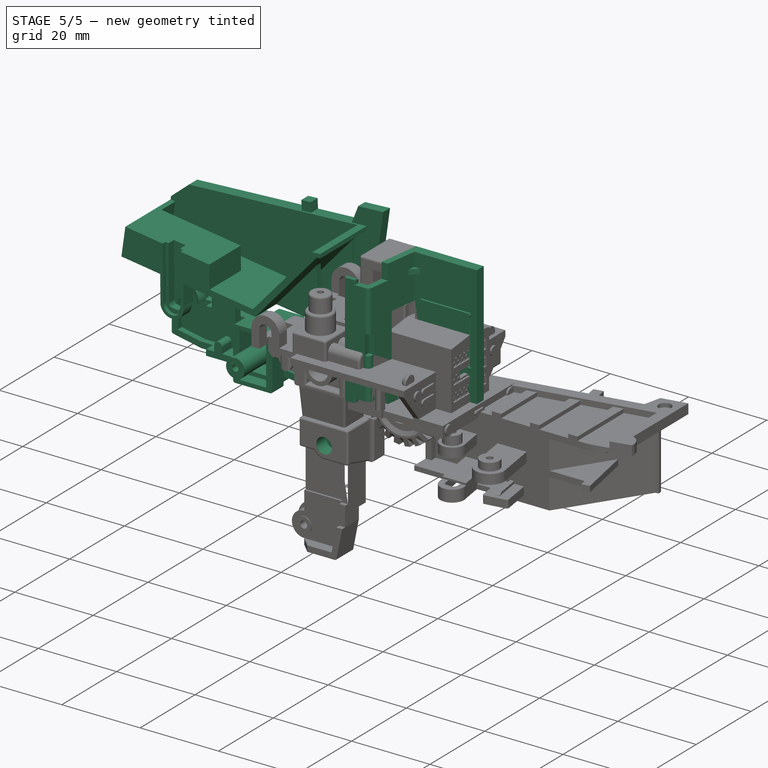
[diagram: stage 5 of 5 — iso view after this stage's code; geometry added in this stage tinted green]
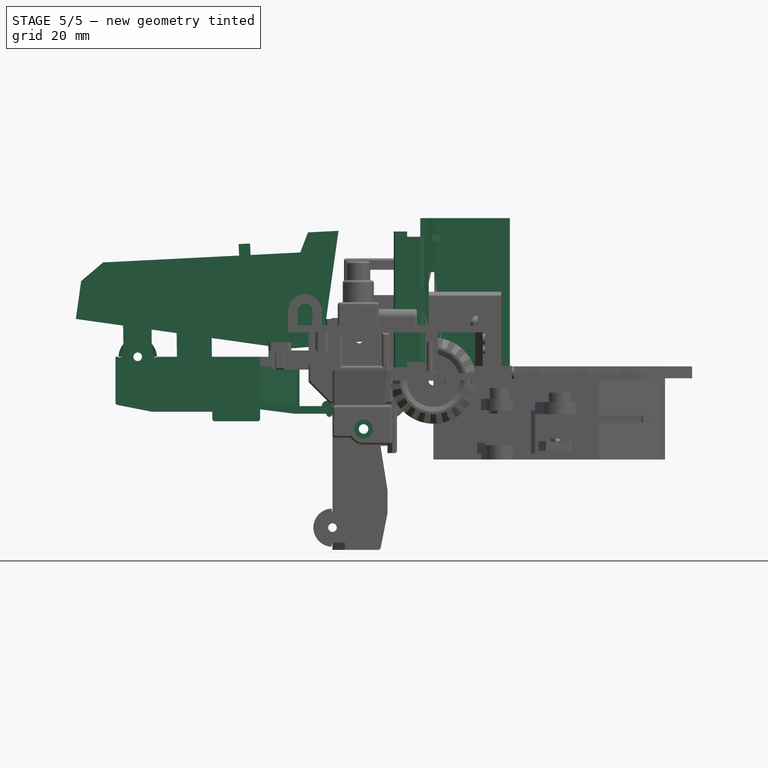
[diagram: stage 5 of 5 — front view after this stage's code; geometry added in this stage tinted green]
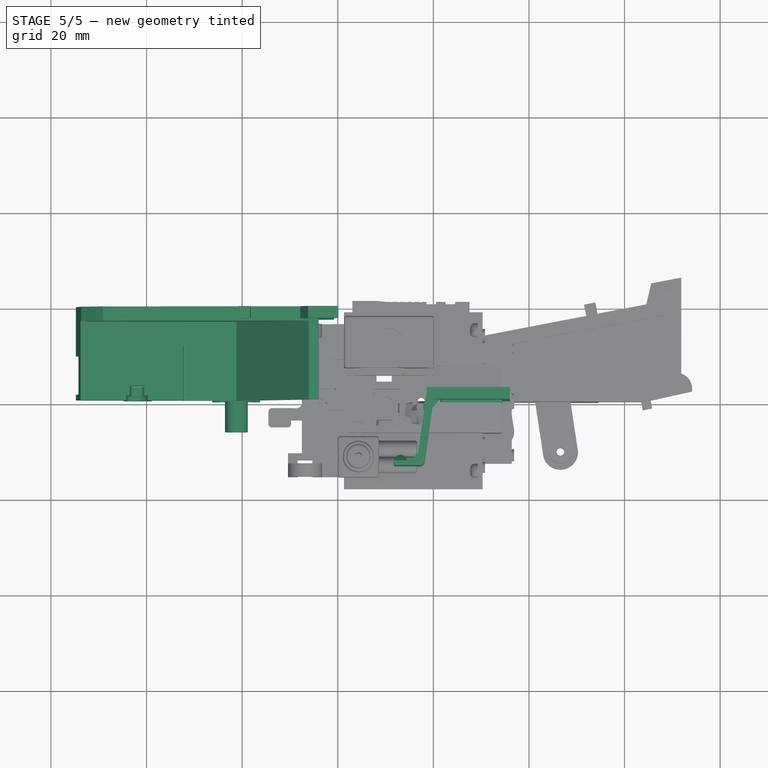
[diagram: stage 5 of 5 — top view after this stage's code; geometry added in this stage tinted green]
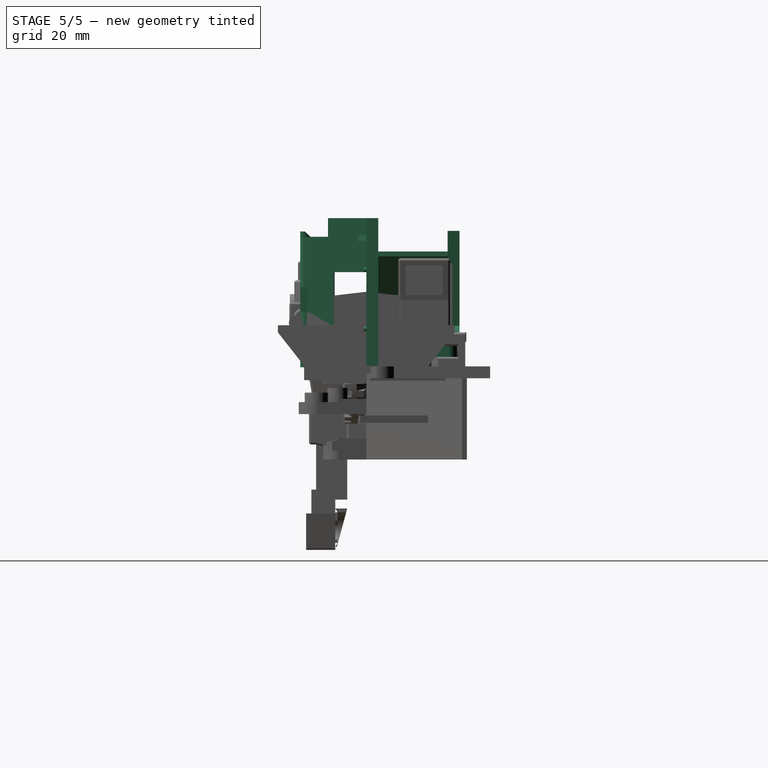
[diagram: stage 5 of 5 — right view after this stage's code; geometry added in this stage tinted green]
FEATURE [PartDesign::SubShapeBinder] Binder001
  BindCopyOnChange = 0
  BindMode = 2
  ClaimChildren = false
  Context = -> Body002 [Binder001.]
  Fuse = false
  MakeFace = true
  OffsetFill = false
  OffsetIntersection = false
  OffsetJoinType = 0
  OffsetOpenResult = false
  PartialLoad = false
  Refine = true
  Relative = true
  _Version = 2
FEATURE [Sketcher::SketchObject] Sketch082
  ArcFitTolerance = 1e-06
  AttachmentSupport = -> [Binder001]
  ExternalGeometry = -> [Binder001]
  FullyConstrained = true
  MakeInternals = false
  MapMode = 5
  Placement = pos=(0,-7.1,0) rot=(1,0,0;1.5708rad)
  sketch-geometry (6):
    g0: ArcOfCircle CenterX=-23.6 CenterY=7.5 CenterZ=0 NormalX=0 NormalY=0 NormalZ=1 AngleXU=0 Radius=2.5 StartAngle=1.5708 EndAngle=4.71239
    g1: LineSegment StartX=-23.6 StartY=10 StartZ=0 EndX=-19.1 EndY=10 EndZ=0
    g2: LineSegment StartX=-19.1 StartY=10 StartZ=0 EndX=-19.1 EndY=2.1 EndZ=0
    g3: LineSegment StartX=-19.1 StartY=2.1 StartZ=0 EndX=-22.1 EndY=2.1 EndZ=0
    g4: LineSegment StartX=-22.1 StartY=2.1 StartZ=0 EndX=-22.1 EndY=5 EndZ=0
    g5: LineSegment StartX=-22.1 StartY=5 StartZ=0 EndX=-23.6 EndY=5 EndZ=0
  constraints (18):
    c: PointOnObject(g0,g-4)
    c: Coincident(g0,g-4)
    c: DistanceX(g0,g0) = 0
    c: DistanceX(g0,g0) = 0
    c: Coincident(g1,g0)
    c: Horizontal(g1)
    c: Coincident(g2,g1)
    c: Vertical(g2)
    c: Coincident(g3,g2)
    c: Horizontal(g3)
    c: Coincident(g4,g3)
    c: Vertical(g4)
    c: Coincident(g5,g4)
    c: Coincident(g5,g0)
    c: Horizontal(g5)
    c: DistanceX(g3,g3) = 3
    c: DistanceY(g2,g2) = 7.9
    c: DistanceX(g5,g5) = 1.5
FEATURE [PartDesign::Pad] Pad046
  Direction = (0,-1,2e-16)
  Length = 5.1
  Length2 = 10
  Profile = -> Sketch082
  ReferenceAxis = -> Sketch082 [N_Axis]
  Refine = true
  Suppressed = false
  Type = 0
FEATURE [Sketcher::SketchObject] Sketch083
  ArcFitTolerance = 1e-06
  AttachmentSupport = -> [Pad046]
  ExternalGeometry = -> [Pad046]
  FullyConstrained = true
  MakeInternals = false
  MapMode = 5
  Placement = pos=(0,-7.1,1.6e-15) rot=(0,0.707107,0.707107;3.14159rad)
  sketch-geometry (6):
    g0: LineSegment StartX=19.1 StartY=10 StartZ=0 EndX=19.1 EndY=2.1 EndZ=0
    g1: LineSegment StartX=19.1 StartY=2.1 StartZ=0 EndX=22.1 EndY=2.1 EndZ=0
    g2: LineSegment StartX=22.1 StartY=2.1 StartZ=0 EndX=22.1 EndY=5 EndZ=0
    g3: LineSegment StartX=22.1 StartY=5 StartZ=0 EndX=20.6 EndY=5 EndZ=0
    g4: LineSegment StartX=20.6 StartY=5 StartZ=0 EndX=20.6 EndY=10 EndZ=0
    g5: LineSegment StartX=20.6 StartY=10 StartZ=0 EndX=19.1 EndY=10 EndZ=0
  constraints (15):
    c: Coincident(g0,g-6)
    c: Coincident(g0,g-5)
    c: Coincident(g1,g0)
    c: Coincident(g1,g-4)
    c: PointOnObject(g2,g1)
    c: Coincident(g2,g-3)
    c: Vertical(g2)
    c: Coincident(g3,g2)
    c: Horizontal(g3)
    c: PointOnObject(g4,g-6)
    c: Coincident(g5,g4)
    c: Coincident(g5,g0)
    c: Coincident(g3,g4)
    c: DistanceX(g5,g5) = 1.5
    c: Vertical(g4)
FEATURE [PartDesign::Pad] Pad047
  BaseFeature = -> Pad046
  Direction = (0,1,-2e-16)
  Length = 3
  Length2 = 10
  Profile = -> Sketch083
  ReferenceAxis = -> Sketch083 [N_Axis]
  Refine = true
  Suppressed = false
  Type = 0
FEATURE [Sketcher::SketchObject] Sketch084
  ArcFitTolerance = 1e-06
  AttachmentSupport = -> [Pad047]
  ExternalGeometry = -> [Pad047]
  FullyConstrained = true
  MakeInternals = false
  MapMode = 5
  Placement = pos=(0,-12.2,2.8e-15) rot=(1,0,0;1.5708rad)
  sketch-geometry (1):
    g0: Circle CenterX=-23.6 CenterY=7.5 CenterZ=0 NormalX=0 NormalY=0 NormalZ=1 AngleXU=0 Radius=0.75
  constraints (2):
    c: Coincident(g0,g-3)
    c: Diameter(g0) = 1.5
FEATURE [PartDesign::Pocket] Pocket037
  BaseFeature = -> Pad047
  Direction = (0,1,-2e-16)
  Length = 6
  Length2 = 5
  Profile = -> Sketch084
  ReferenceAxis = -> Sketch084 [N_Axis]
  Refine = true
  Suppressed = false
  Type = 0
FEATURE [Sketcher::SketchObject] Sketch085
  ArcFitTolerance = 1e-06
  AttachmentSupport = -> [Pocket037]
  ExternalGeometry = -> [Pocket037]
  FullyConstrained = true
  MakeInternals = false
  MapMode = 5
  Placement = pos=(0,-12.2,2.8e-15) rot=(1,0,0;1.5708rad)
  sketch-geometry (8):
    g0: LineSegment StartX=-10.77 StartY=2.1 StartZ=0 EndX=-10.77 EndY=7.75 EndZ=0
    g1: ArcOfCircle CenterX=-10.77 CenterY=8.875 CenterZ=0 NormalX=0 NormalY=0 NormalZ=1 AngleXU=0 Radius=1.125 StartAngle=1.5708 EndAngle=4.71239
    g2: LineSegment StartX=-10.77 StartY=10 StartZ=0 EndX=-9.17 EndY=10 EndZ=0
    g3: ArcOfCircle CenterX=-9.17 CenterY=9.35 CenterZ=0 NormalX=0 NormalY=0 NormalZ=1 AngleXU=0 Radius=0.65 StartAngle=4.71239 EndAngle=7.85398
    g4: LineSegment StartX=-9.17 StartY=8.7 StartZ=0 EndX=-9.17 EndY=1.1 EndZ=0
    g5: LineSegment StartX=-9.17 StartY=1.1 StartZ=0 EndX=-21.1 EndY=1.1 EndZ=0
    g6: LineSegment StartX=-21.1 StartY=1.1 StartZ=0 EndX=-21.1 EndY=2.1 EndZ=0
    g7: LineSegment StartX=-21.1 StartY=2.1 StartZ=0 EndX=-10.77 EndY=2.1 EndZ=0
  constraints (27):
    c: Coincident(g1,g0)
    c: Coincident(g2,g1)
    c: Horizontal(g2)
    c: Coincident(g3,g2)
    c: Coincident(g4,g3)
    c: Vertical(g4)
    c: Coincident(g5,g4)
    c: Horizontal(g5)
    c: Coincident(g6,g5)
    c: DistanceY(g6,g6) = 1
    c: Vertical(g0)
    c: DistanceX(g-3,g0) = 8.33
    c: Diameter(g1) = 2.25
    c: DistanceX(g1,g0) = 0
    c: DistanceX(g1,g1) = 0
    c: DistanceX(g2,g2) = 1.6
    c: Diameter(g3) = 1.3
    c: DistanceX(g3,g2) = 0
    c: DistanceX(g3,g3) = 0
    c: DistanceY(g-4,g-4) = 7.9
    c: DistanceY(g0,g1) = 7.9
    c: Vertical(g6)
    c: DistanceX(g-3,g6) = 1
    c: Coincident(g7,g6)
    c: Coincident(g7,g0)
    c: Horizontal(g7)
    c: PointOnObject(g6,g-3)
FEATURE [PartDesign::Pad] Pad048
  BaseFeature = -> Pocket037
  Direction = (0,-1,2e-16)
  Length = 8.1
  Length2 = 10
  Profile = -> Sketch085
  ReferenceAxis = -> Sketch085 [N_Axis]
  Refine = true
  Reversed = true
  Suppressed = false
  Type = 0
FEATURE [Sketcher::SketchObject] Sketch086
  ArcFitTolerance = 1e-06
  AttachmentSupport = -> [Pad048]
  ExternalGeometry = -> [Pad048]
  FullyConstrained = true
  MakeInternals = false
  MapMode = 5
  Placement = pos=(0,5e-16,2.1) rot=(0,0,1;0rad)
  sketch-geometry (4):
    g0: LineSegment StartX=-19.1 StartY=-4.1 StartZ=0 EndX=-19.1 EndY=-10.2 EndZ=0
    g1: LineSegment StartX=-19.1 StartY=-10.2 StartZ=0 EndX=-10.77 EndY=-10.2 EndZ=0
    g2: LineSegment StartX=-10.77 StartY=-10.2 StartZ=0 EndX=-10.77 EndY=-4.1 EndZ=0
    g3: LineSegment StartX=-10.77 StartY=-4.1 StartZ=0 EndX=-19.1 EndY=-4.1 EndZ=0
  constraints (11):
    c: Coincident(g0,g1)
    c: Coincident(g1,g2)
    c: Coincident(g2,g3)
    c: Coincident(g3,g0)
    c: Vertical(g0)
    c: Vertical(g2)
    c: Horizontal(g1)
    c: Horizontal(g3)
    c: PointOnObject(g1,g-4)
    c: DistanceY(g-6,g1) = 2
    c: Coincident(g0,g-5)
FEATURE [PartDesign::Pocket] Pocket038
  BaseFeature = -> Pad048
  Direction = (0,0,-1)
  Length = 5
  Length2 = 5
  Profile = -> Sketch086
  ReferenceAxis = -> Sketch086 [N_Axis]
  Refine = true
  Suppressed = false
  Type = 0
FEATURE [Sketcher::SketchObject] Sketch087
  ArcFitTolerance = 1e-06
  AttachmentSupport = -> [Pocket038]
  ExternalGeometry = -> [Pocket038]
  FullyConstrained = true
  MakeInternals = false
  MapMode = 5
  Placement = pos=(0,-12.2,0) rot=(1,0,0;1.5708rad)
  sketch-geometry (4):
    g0: ArcOfCircle CenterX=-10.77 CenterY=8.875 CenterZ=0 NormalX=0 NormalY=0 NormalZ=1 AngleXU=0 Radius=1.125 StartAngle=1.5708 EndAngle=4.71239
    g1: ArcOfCircle CenterX=-9.17 CenterY=9.35 CenterZ=0 NormalX=0 NormalY=0 NormalZ=1 AngleXU=0 Radius=0.65 StartAngle=4.71239 EndAngle=7.85398
    g2: LineSegment StartX=-10.77 StartY=10 StartZ=0 EndX=-10.77 EndY=7.75 EndZ=0
    g3: LineSegment StartX=-9.17 StartY=10 StartZ=0 EndX=-9.17 EndY=8.7 EndZ=0
  constraints (8):
    c: Tangent(g0,g-4) = -1.5708
    c: Coincident(g0,g-4)
    c: Tangent(g1,g-3) = -1.5708
    c: Coincident(g1,g-3)
    c: Coincident(g2,g0)
    c: Coincident(g2,g0)
    c: Coincident(g3,g1)
    c: Coincident(g3,g1)
FEATURE [PartDesign::Pocket] Pocket039
  BaseFeature = -> Pocket038
  Direction = (0,1,-2e-16)
  Length = 2
  Length2 = 5
  Profile = -> Sketch087
  ReferenceAxis = -> Sketch087 [N_Axis]
  Refine = true
  Suppressed = false
  Type = 0
FEATURE [PartDesign::Fillet] Fillet002
  Base = -> Pocket039 [Edge38,Edge37]
  BaseFeature = -> Pocket039
  Radius = 0.5
  Refine = true
  SupportTransform = false
  Suppressed = false
  UseAllEdges = false
FEATURE [Sketcher::SketchObject] Sketch088
  ArcFitTolerance = 1e-06
  AttachmentSupport = -> [Fillet002]
  ExternalGeometry = -> [Fillet002]
  FullyConstrained = true
  MakeInternals = false
  MapMode = 5
  Placement = pos=(0,-12.2,0) rot=(1,0,0;1.5708rad)
  sketch-geometry (4):
    g0: LineSegment StartX=-10.77 StartY=2.1 StartZ=0 EndX=-10.77 EndY=3.1 EndZ=0
    g1: LineSegment StartX=-10.77 StartY=3.1 StartZ=0 EndX=-19.1 EndY=3.1 EndZ=0
    g2: LineSegment StartX=-19.1 StartY=3.1 StartZ=0 EndX=-19.1 EndY=2.1 EndZ=0
    g3: LineSegment StartX=-19.1 StartY=2.1 StartZ=0 EndX=-10.77 EndY=2.1 EndZ=0
  constraints (11):
    c: Coincident(g0,g1)
    c: Coincident(g1,g2)
    c: Coincident(g2,g3)
    c: Coincident(g3,g0)
    c: Vertical(g0)
    c: Vertical(g2)
    c: Horizontal(g1)
    c: Horizontal(g3)
    c: Coincident(g0,g-5)
    c: PointOnObject(g1,g-4)
    c: DistanceY(g2,g2) = 1
FEATURE [PartDesign::Pad] Pad049
  BaseFeature = -> Fillet002
  Direction = (0,-1,2e-16)
  Length = 2
  Length2 = 10
  Profile = -> Sketch088
  ReferenceAxis = -> Sketch088 [N_Axis]
  Refine = true
  Reversed = true
  Suppressed = false
  Type = 0
FEATURE [Sketcher::SketchObject] Sketch089
  ArcFitTolerance = 1e-06
  AttachmentSupport = -> [Pad049]
  ExternalGeometry = -> [Pad049]
  FullyConstrained = true
  MakeInternals = false
  MapMode = 5
  Placement = pos=(0,-12.2,0) rot=(1,0,0;1.5708rad)
  sketch-geometry (4):
    g0: LineSegment StartX=-21.1 StartY=2.1 StartZ=0 EndX=-21.1 EndY=1.1 EndZ=0
    g1: LineSegment StartX=-21.1 StartY=1.1 StartZ=0 EndX=-9.17 EndY=1.1 EndZ=0
    g2: LineSegment StartX=-9.17 StartY=1.1 StartZ=0 EndX=-9.17 EndY=2.1 EndZ=0
    g3: LineSegment StartX=-9.17 StartY=2.1 StartZ=0 EndX=-21.1 EndY=2.1 EndZ=0
  constraints (10):
    c: Coincident(g0,g1)
    c: Coincident(g1,g2)
    c: Coincident(g2,g3)
    c: Coincident(g3,g0)
    c: Vertical(g0)
    c: Vertical(g2)
    c: Horizontal(g1)
    c: Horizontal(g3)
    c: Coincident(g0,g-3)
    c: Coincident(g1,g-5)
FEATURE [PartDesign::Pocket] Pocket040
  BaseFeature = -> Pad049
  Direction = (0,1,-2e-16)
  Length = 9
  Length2 = 5
  Profile = -> Sketch089
  ReferenceAxis = -> Sketch089 [N_Axis]
  Refine = true
  Suppressed = false
  Type = 0
FEATURE [Sketcher::SketchObject] Sketch090
  ArcFitTolerance = 1e-06
  AttachmentOffset = pos=(0,0,-1) rot=(0,0,1;0rad)
  AttachmentSupport = -> [Pocket040]
  ExternalGeometry = -> [Pocket040]
  FullyConstrained = true
  MakeInternals = false
  MapMode = 5
  Placement = pos=(-21.1,0,0) rot=(0.57735,-0.57735,-0.57735;2.0944rad)
  sketch-geometry (16):
    g0: LineSegment StartX=12.2 StartY=2.1 StartZ=0 EndX=11 EndY=-5.15 EndZ=0
    g1: LineSegment StartX=4 StartY=-24.9 StartZ=0 EndX=6.5 EndY=-24.9 EndZ=0
    g2: LineSegment StartX=6.5 StartY=-24.9 StartZ=0 EndX=6.5 EndY=-35.4 EndZ=0
    g3: LineSegment StartX=6.5 StartY=-35.4 StartZ=0 EndX=10 EndY=-35.4 EndZ=0
    g4: LineSegment StartX=10 StartY=-35.4 StartZ=0 EndX=10 EndY=-22.8 EndZ=0
    g5: LineSegment StartX=10 StartY=-22.8 StartZ=0 EndX=9.5 EndY=-22.8 EndZ=0
    g6: LineSegment StartX=9.5 StartY=-22.8 StartZ=0 EndX=9.5 EndY=-11.9 EndZ=0
    g7: LineSegment StartX=9.5 StartY=-11.9 StartZ=0 EndX=12 EndY=-11.9 EndZ=0
    g8: LineSegment StartX=12 StartY=-11.9 StartZ=0 EndX=12 EndY=-5.15 EndZ=0
    g9: LineSegment StartX=12 StartY=-5.15 StartZ=0 EndX=11 EndY=-5.15 EndZ=0
    g10: LineSegment StartX=4.1 StartY=2.1 StartZ=0 EndX=4.1 EndY=-5.15 EndZ=0
    g11: LineSegment StartX=4.1 StartY=-5.15 StartZ=0 EndX=-1.8e-15 EndY=-5.15 EndZ=0
    g12: LineSegment StartX=-1.8e-15 StartY=-5.15 StartZ=0 EndX=-1.8e-15 EndY=-15.15 EndZ=0
    g13: LineSegment StartX=4 StartY=-24.9 StartZ=0 EndX=4 EndY=-15.15 EndZ=0
    g14: LineSegment StartX=4 StartY=-15.15 StartZ=0 EndX=-1.8e-15 EndY=-15.15 EndZ=0
    g15: LineSegment StartX=4.1 StartY=2.1 StartZ=0 EndX=12.2 EndY=2.1 EndZ=0
  constraints (47):
    c: Coincident(g0,g-3)
    c: Horizontal(g1)
    c: Coincident(g2,g1)
    c: Vertical(g2)
    c: Coincident(g3,g2)
    c: Horizontal(g3)
    c: Coincident(g4,g3)
    c: Vertical(g4)
    c: Coincident(g5,g4)
    c: Horizontal(g5)
    c: Coincident(g6,g5)
    c: Vertical(g6)
    c: Coincident(g7,g6)
    c: Horizontal(g7)
    c: Coincident(g8,g7)
    c: Vertical(g8)
    c: Coincident(g9,g8)
    c: Coincident(g9,g0)
    c: Horizontal(g9)
    c: DistanceX(g1,g6) = 5.5
    c: DistanceY(g8,g8) = 6.75
    c: DistanceY(g8,g0) = 7.25
    c: DistanceX(g9,g9) = 1
    c: Coincident(g10,g-3)
    c: Vertical(g10)
    c: Coincident(g11,g10)
    c: Horizontal(g11)
    c: Coincident(g12,g11)
    c: Vertical(g12)
    c: Coincident(g13,g1)
    c: Vertical(g13)
    c: Coincident(g14,g13)
    c: Coincident(g14,g12)
    c: Horizontal(g14)
    c: DistanceX(g11,g8) = 12
    c: DistanceX(g7,g7) = 2.5
    c: DistanceY(g10,g10) = 7.25
    c: DistanceY(g12,g12) = 10
    c: DistanceX(g11,g11) = 4.1
    c: DistanceX(g1,g1) = 2.5
    c: DistanceY(g3,g-4) = 45.4
    c: DistanceY(g1,g-5) = 34.9
    c: DistanceX(g5,g5) = 0.5
    c: DistanceX(g3,g3) = 3.5
    c: DistanceY(g4,g4) = 12.6
    c: Coincident(g15,g10)
    c: Coincident(g15,g0)
FEATURE [PartDesign::Pad] Pad050
  BaseFeature = -> Pocket040
  Direction = (-1,0,0)
  Length = 1
  Length2 = 10
  Profile = -> Sketch090
  ReferenceAxis = -> Sketch090 [N_Axis]
  Refine = true
  Reversed = true
  Suppressed = false
  Type = 0
FEATURE [Sketcher::SketchObject] Sketch091
  ArcFitTolerance = 1e-06
  AttachmentSupport = -> [Pad050]
  ExternalGeometry = -> [Pad050]
  FullyConstrained = true
  MakeInternals = false
  MapMode = 5
  Placement = pos=(-20.1,0,0) rot=(0.57735,0.57735,0.57735;2.0944rad)
  sketch-geometry (4):
    g0: LineSegment StartX=-4.1 StartY=2.1 StartZ=0 EndX=-12.2 EndY=2.1 EndZ=0
    g1: LineSegment StartX=-12.2 StartY=2.1 StartZ=0 EndX=-11 EndY=-5.15 EndZ=0
    g2: LineSegment StartX=-11 StartY=-5.15 StartZ=0 EndX=-4.1 EndY=-5.15 EndZ=0
    g3: LineSegment StartX=-4.1 StartY=-5.15 StartZ=0 EndX=-4.1 EndY=2.1 EndZ=0
  constraints (8):
    c: Coincident(g0,g-3)
    c: Coincident(g0,g-4)
    c: Coincident(g1,g0)
    c: Coincident(g1,g-4)
    c: Coincident(g2,g1)
    c: Coincident(g2,g-3)
    c: Coincident(g3,g2)
    c: Coincident(g3,g0)
FEATURE [PartDesign::Pad] Pad051
  BaseFeature = -> Pad050
  Direction = (1,0,0)
  Length = 1
  Length2 = 10
  Profile = -> Sketch091
  ReferenceAxis = -> Sketch091 [N_Axis]
  Refine = true
  Suppressed = false
  Type = 0
FEATURE [Sketcher::SketchObject] Sketch092
  ArcFitTolerance = 1e-06
  AttachmentSupport = -> [Pad051]
  ExternalGeometry = -> [Pad051]
  FullyConstrained = true
  MakeInternals = false
  MapMode = 5
  Placement = pos=(-20.1,0,0) rot=(0.57735,0.57735,0.57735;2.0944rad)
  sketch-geometry (8):
    g0: LineSegment StartX=-4 StartY=-15.15 StartZ=0 EndX=-4 EndY=-24.9 EndZ=0
    g1: LineSegment StartX=-4 StartY=-24.9 StartZ=0 EndX=-6.5 EndY=-24.9 EndZ=0
    g2: LineSegment StartX=-6.5 StartY=-24.9 StartZ=0 EndX=-6.5 EndY=-35.4 EndZ=0
    g3: LineSegment StartX=-6.5 StartY=-35.4 StartZ=0 EndX=-10 EndY=-35.4 EndZ=0
    g4: LineSegment StartX=-10 StartY=-35.4 StartZ=0 EndX=-10 EndY=-22.8 EndZ=0
    g5: LineSegment StartX=-4 StartY=-15.15 StartZ=0 EndX=-9.5 EndY=-15.15 EndZ=0
    g6: LineSegment StartX=-9.5 StartY=-15.15 StartZ=0 EndX=-9.5 EndY=-22.8 EndZ=0
    g7: LineSegment StartX=-9.5 StartY=-22.8 StartZ=0 EndX=-10 EndY=-22.8 EndZ=0
  constraints (17):
    c: Coincident(g0,g-3)
    c: Coincident(g0,g-9)
    c: Coincident(g1,g0)
    c: Coincident(g1,g-9)
    c: Coincident(g2,g1)
    c: Coincident(g2,g-6)
    c: Coincident(g3,g2)
    c: Coincident(g3,g-7)
    c: Coincident(g4,g3)
    c: Coincident(g4,g-8)
    c: Coincident(g5,g0)
    c: PointOnObject(g5,g-4)
    c: Horizontal(g5)
    c: Coincident(g6,g5)
    c: Coincident(g6,g-8)
    c: Coincident(g7,g4)
    c: Coincident(g6,g7)
FEATURE [PartDesign::Pad] Pad052
  BaseFeature = -> Pad051
  Direction = (1,0,0)
  Length = 0.5
  Length2 = 10
  Profile = -> Sketch092
  ReferenceAxis = -> Sketch092 [N_Axis]
  Refine = true
  Suppressed = false
  Type = 0
FEATURE [Sketcher::SketchObject] Sketch093
  ArcFitTolerance = 1e-06
  AttachmentSupport = -> [Pad052]
  ExternalGeometry = -> [Pad052]
  FullyConstrained = true
  MakeInternals = false
  MapMode = 5
  Placement = pos=(0,1.8e-15,0) rot=(0,0.707107,0.707107;3.14159rad)
  sketch-geometry (8):
    g0: LineSegment StartX=20.1 StartY=-5.15 StartZ=0 EndX=7.6 EndY=-5.15 EndZ=0
    g1: LineSegment StartX=20.1 StartY=-15.15 StartZ=0 EndX=7.6 EndY=-15.15 EndZ=0
    g2: LineSegment StartX=7.6 StartY=-5.15 StartZ=0 EndX=7.6 EndY=-15.15 EndZ=0
    g3: LineSegment StartX=20.1 StartY=-15.15 StartZ=0 EndX=20.1 EndY=-13.55 EndZ=0
    g4: LineSegment StartX=20.1 StartY=-13.55 StartZ=0 EndX=8.6 EndY=-13.55 EndZ=0
    g5: LineSegment StartX=8.6 StartY=-13.55 StartZ=0 EndX=8.6 EndY=-6.75 EndZ=0
    g6: LineSegment StartX=8.6 StartY=-6.75 StartZ=0 EndX=20.1 EndY=-6.75 EndZ=0
    g7: LineSegment StartX=20.1 StartY=-6.75 StartZ=0 EndX=20.1 EndY=-5.15 EndZ=0
  constraints (23):
    c: Coincident(g0,g-5)
    c: Horizontal(g0)
    c: Coincident(g1,g-4)
    c: Horizontal(g1)
    c: Coincident(g2,g0)
    c: Coincident(g2,g1)
    c: Vertical(g2)
    c: DistanceY(g-6,g-6) = 10
    c: Coincident(g3,g1)
    c: Vertical(g3)
    c: Coincident(g4,g3)
    c: Horizontal(g4)
    c: Coincident(g5,g4)
    c: Vertical(g5)
    c: Coincident(g6,g5)
    c: Horizontal(g6)
    c: PointOnObject(g6,g-7)
    c: Coincident(g7,g6)
    c: Coincident(g7,g0)
    c: DistanceX(g0,g5) = 1
    c: DistanceY(g5,g0) = 1.6
    c: DistanceY(g1,g4) = 1.6
    c: DistanceX(g0,g6) = 12.5
FEATURE [PartDesign::Pad] Pad053
  BaseFeature = -> Pad052
  Direction = (0,1,-2e-16)
  Length = 4.1
  Length2 = 10
  Profile = -> Sketch093
  ReferenceAxis = -> Sketch093 [N_Axis]
  Refine = true
  Reversed = true
  Suppressed = false
  Type = 0
FEATURE [Sketcher::SketchObject] Sketch094
  ArcFitTolerance = 1e-06
  AttachmentSupport = -> [Pad053]
  ExternalGeometry = -> [Pad053]
  FullyConstrained = true
  MakeInternals = false
  MapMode = 5
  Placement = pos=(0,-12,0) rot=(1,0,0;1.5708rad)
  sketch-geometry (6):
    g0: LineSegment StartX=-20.1 StartY=-5.15 StartZ=0 EndX=-8.6 EndY=-5.15 EndZ=0
    g1: LineSegment StartX=-8.6 StartY=-5.15 StartZ=0 EndX=-8.6 EndY=-13.35 EndZ=0
    g2: LineSegment StartX=-20.1 StartY=-11.9 StartZ=0 EndX=-17.3 EndY=-11.9 EndZ=0
    g3: LineSegment StartX=-8.6 StartY=-13.35 StartZ=0 EndX=-14.6 EndY=-13.35 EndZ=0
    g4: ArcOfCircle CenterX=-14.6 CenterY=-10.1112 CenterZ=0 NormalX=0 NormalY=0 NormalZ=1 AngleXU=0 Radius=3.23879 StartAngle=3.72672 EndAngle=4.71239
    g5: LineSegment StartX=-20.1 StartY=-5.15 StartZ=0 EndX=-20.1 EndY=-11.9 EndZ=0
  constraints (20):
    c: DistanceX(g-4,g-4) = 1
    c: Coincident(g0,g-4)
    c: Horizontal(g0)
    c: DistanceX(g0,g0) = 11.5
    c: Coincident(g1,g0)
    c: Vertical(g1)
    c: DistanceY(g1,g1) = 8.2
    c: Coincident(g2,g-3)
    c: Horizontal(g2)
    c: Coincident(g3,g1)
    c: Horizontal(g3)
    c: Coincident(g4,g3)
    c: Coincident(g4,g2)
    c: DistanceX(g2,g2) = 2.8
    c: DistanceX(g4,g3) = 0
    c: DistanceX(g-5,g4) = 6.5
    c: DistanceX(g3,g1) = 6
    c: DistanceX(g2,g1) = 8.7
    c: Coincident(g5,g2)
    c: Coincident(g5,g0)
FEATURE [PartDesign::Pad] Pad054
  BaseFeature = -> Pad053
  Direction = (0,-1,2e-16)
  Length = 1.5
  Length2 = 10
  Profile = -> Sketch094
  ReferenceAxis = -> Sketch094 [N_Axis]
  Refine = true
  Reversed = true
  Suppressed = false
  Type = 0
FEATURE [Sketcher::SketchObject] Sketch095
  ArcFitTolerance = 1e-06
  AttachmentSupport = -> [Pad054]
  ExternalGeometry = -> [Pad054]
  FullyConstrained = true
  MakeInternals = false
  MapMode = 5
  Placement = pos=(-19.1,0,9.2e-15) rot=(0.57735,0.57735,0.57735;2.0944rad)
  sketch-geometry (4):
    g0: LineSegment StartX=-12.2 StartY=2.1 StartZ=0 EndX=-10.2 EndY=2.1 EndZ=0
    g1: LineSegment StartX=-12.2 StartY=2.1 StartZ=0 EndX=-11 EndY=-5.15 EndZ=0
    g2: LineSegment StartX=-11 StartY=-5.15 StartZ=0 EndX=-9 EndY=-5.15 EndZ=0
    g3: LineSegment StartX=-9 StartY=-5.15 StartZ=0 EndX=-10.2 EndY=2.1 EndZ=0
  constraints (10):
    c: DistanceX(g-4,g-4) = 2
    c: Coincident(g0,g-4)
    c: Coincident(g0,g-4)
    c: Coincident(g1,g0)
    c: Coincident(g1,g-5)
    c: Coincident(g2,g1)
    c: PointOnObject(g2,g-6)
    c: Coincident(g3,g2)
    c: Coincident(g3,g0)
    c: DistanceX(g2,g2) = 2
FEATURE [PartDesign::Pad] Pad055
  BaseFeature = -> Pad054
  Direction = (1,0,0)
  Length = 9.93
  Length2 = 10
  Profile = -> Sketch095
  ReferenceAxis = -> Sketch095 [N_Axis]
  Refine = true
  Suppressed = false
  Type = 0
FEATURE [Sketcher::SketchObject] Sketch096
  ArcFitTolerance = 1e-06
  AttachmentSupport = -> [Pad055]
  ExternalGeometry = -> [Pad055]
  FullyConstrained = true
  MakeInternals = false
  MapMode = 5
  Placement = pos=(0,-12.2,0) rot=(1,0,0;1.5708rad)
  sketch-geometry (3):
    g0: LineSegment StartX=-9.17 StartY=2.1 StartZ=0 EndX=-9.17 EndY=-5.15 EndZ=0
    g1: LineSegment StartX=-9.17 StartY=-5.15 StartZ=0 EndX=-10.1 EndY=-5.15 EndZ=0
    g2: LineSegment StartX=-10.1 StartY=-5.15 StartZ=0 EndX=-9.17 EndY=2.1 EndZ=0
  constraints (7):
    c: Coincident(g0,g-3)
    c: Coincident(g0,g-3)
    c: Coincident(g1,g0)
    c: PointOnObject(g1,g-4)
    c: Coincident(g2,g1)
    c: Coincident(g2,g0)
    c: DistanceX(g-4,g1) = 11
FEATURE [PartDesign::Pocket] Pocket041
  BaseFeature = -> Pad055
  Direction = (0,1,-2e-16)
  Length = 5
  Length2 = 5
  Profile = -> Sketch096
  ReferenceAxis = -> Sketch096 [N_Axis]
  Refine = true
  Suppressed = false
  Type = 0
FEATURE [Sketcher::SketchObject] Sketch097
  ArcFitTolerance = 1e-06
  AttachmentSupport = -> [Pocket041]
  ExternalGeometry = -> [Pocket041]
  FullyConstrained = true
  MakeInternals = false
  MapMode = 5
  Placement = pos=(0,-4.1,0) rot=(0,0.707107,0.707107;3.14159rad)
  sketch-geometry (4):
    g0: LineSegment StartX=9.17 StartY=2.1 StartZ=0 EndX=10.77 EndY=2.1 EndZ=0
    g1: LineSegment StartX=9.17 StartY=2.1 StartZ=0 EndX=10.1 EndY=-5.15 EndZ=0
    g2: LineSegment StartX=10.1 StartY=-5.15 StartZ=0 EndX=11.7 EndY=-5.15 EndZ=0
    g3: LineSegment StartX=11.7 StartY=-5.15 StartZ=0 EndX=10.77 EndY=2.1 EndZ=0
  constraints (9):
    c: Coincident(g0,g-4)
    c: Coincident(g0,g-3)
    c: Coincident(g1,g0)
    c: Coincident(g1,g-4)
    c: Coincident(g2,g1)
    c: PointOnObject(g2,g-5)
    c: Coincident(g3,g2)
    c: Coincident(g3,g0)
    c: DistanceX(g2,g2) = 1.6
FEATURE [PartDesign::Pad] Pad056
  BaseFeature = -> Pocket041
  Direction = (0,1,-2e-16)
  Length = 6.5
  Length2 = 10
  Profile = -> Sketch097
  ReferenceAxis = -> Sketch097 [N_Axis]
  Refine = true
  Reversed = true
  Suppressed = false
  Type = 0
FEATURE [Sketcher::SketchObject] Sketch098
  ArcFitTolerance = 1e-06
  AttachmentSupport = -> [Pad056]
  ExternalGeometry = -> [Pad056]
  FullyConstrained = true
  MakeInternals = false
  MapMode = 5
  Placement = pos=(-8.6,0,0) rot=(0.57735,0.57735,0.57735;2.0944rad)
  sketch-geometry (4):
    g0: LineSegment StartX=-10.5 StartY=-5.15 StartZ=0 EndX=-4.1 EndY=-5.15 EndZ=0
    g1: LineSegment StartX=-4.1 StartY=-5.15 StartZ=0 EndX=-4.1 EndY=-15.15 EndZ=0
    g2: LineSegment StartX=-4.1 StartY=-15.15 StartZ=0 EndX=-10.5 EndY=-13.35 EndZ=0
    g3: LineSegment StartX=-10.5 StartY=-13.35 StartZ=0 EndX=-10.5 EndY=-5.15 EndZ=0
  constraints (8):
    c: Coincident(g0,g-3)
    c: Coincident(g0,g-4)
    c: Coincident(g1,g0)
    c: Coincident(g1,g-4)
    c: Coincident(g2,g1)
    c: Coincident(g2,g-3)
    c: Coincident(g3,g2)
    c: Coincident(g3,g0)
FEATURE [PartDesign::Pad] Pad057
  BaseFeature = -> Pad056
  Direction = (1,0,0)
  Length = 1
  Length2 = 10
  Profile = -> Sketch098
  ReferenceAxis = -> Sketch098 [N_Axis]
  Refine = true
  Reversed = true
  Suppressed = false
  Type = 0
FEATURE [Sketcher::SketchObject] Sketch099
  ArcFitTolerance = 1e-06
  AttachmentSupport = -> [Pad057]
  ExternalGeometry = -> [Pad057]
  FullyConstrained = false
  MakeInternals = false
  MapMode = 5
  Placement = pos=(0,-4.1,0) rot=(0,0.707107,0.707107;3.14159rad)
  sketch-geometry (4):
    g0: LineSegment StartX=8.6 StartY=-6.7914 StartZ=0 EndX=8.6 EndY=-13.55 EndZ=0
    g1: LineSegment StartX=8.6 StartY=-13.55 StartZ=0 EndX=9.6 EndY=-13.55 EndZ=0
    g2: LineSegment StartX=9.6 StartY=-13.55 StartZ=0 EndX=9.6 EndY=-6.7914 EndZ=0
    g3: LineSegment StartX=9.6 StartY=-6.7914 StartZ=0 EndX=8.6 EndY=-6.7914 EndZ=0
  constraints (10):
    c: Coincident(g0,g1)
    c: Coincident(g1,g2)
    c: Coincident(g2,g3)
    c: Coincident(g3,g0)
    c: Vertical(g0)
    c: Vertical(g2)
    c: Horizontal(g1)
    c: Horizontal(g3)
    c: PointOnObject(g0,g-3)
    c: Coincident(g1,g-4)
FEATURE [PartDesign::Pad] Pad058
  BaseFeature = -> Pad057
  Direction = (0,1,-2e-16)
  Length = 1
  Length2 = 10
  Profile = -> Sketch099
  ReferenceAxis = -> Sketch099 [N_Axis]
  Refine = true
  Suppressed = false
  Type = 0
FEATURE [Sketcher::SketchObject] Sketch100
  ArcFitTolerance = 1e-06
  AttachmentSupport = -> [Pad058]
  ExternalGeometry = -> [Pad058]
  FullyConstrained = true
  MakeInternals = false
  MapMode = 5
  Placement = pos=(0,-4.1,0) rot=(1,0,0;1.5708rad)
  sketch-geometry (4):
    g0: LineSegment StartX=-9.6 StartY=-5.15 StartZ=0 EndX=-20.1 EndY=-5.15 EndZ=0
    g1: LineSegment StartX=-20.1 StartY=-5.15 StartZ=0 EndX=-20.1 EndY=-6.75 EndZ=0
    g2: LineSegment StartX=-20.1 StartY=-6.75 StartZ=0 EndX=-9.6 EndY=-6.75 EndZ=0
    g3: LineSegment StartX=-9.6 StartY=-6.75 StartZ=0 EndX=-9.6 EndY=-5.15 EndZ=0
  constraints (10):
    c: Coincident(g0,g1)
    c: Coincident(g1,g2)
    c: Coincident(g2,g3)
    c: Coincident(g3,g0)
    c: Horizontal(g0)
    c: Horizontal(g2)
    c: Vertical(g1)
    c: Vertical(g3)
    c: Coincident(g0,g-6)
    c: Coincident(g1,g-5)
FEATURE [PartDesign::Pad] Pad059
  BaseFeature = -> Pad058
  Direction = (0,-1,2e-16)
  Length = 7
  Length2 = 10
  Profile = -> Sketch100
  ReferenceAxis = -> Sketch100 [N_Axis]
  Refine = true
  Suppressed = false
  Type = 0
FEATURE [Sketcher::SketchObject] Sketch101
  ArcFitTolerance = 1e-06
  AttachmentSupport = -> [Pad059]
  ExternalGeometry = -> [Pad059]
  FullyConstrained = true
  MakeInternals = false
  MapMode = 5
  Placement = pos=(0,-10.5,0) rot=(0,0.707107,0.707107;3.14159rad)
  sketch-geometry (8):
    g0: LineSegment StartX=9.6 StartY=-13.35 StartZ=0 EndX=14.6 EndY=-13.35 EndZ=0
    g1: ArcOfCircle CenterX=14.6 CenterY=-10.1112 CenterZ=0 NormalX=0 NormalY=0 NormalZ=1 AngleXU=0 Radius=3.23879 StartAngle=4.71239 EndAngle=5.69806
    g2: LineSegment StartX=17.3 StartY=-11.9 StartZ=0 EndX=20.1 EndY=-11.9 EndZ=0
    g3: LineSegment StartX=20.1 StartY=-11.9 StartZ=0 EndX=20.1 EndY=-10.4 EndZ=0
    g4: LineSegment StartX=20.1 StartY=-10.4 StartZ=0 EndX=16.3146 EndY=-10.4 EndZ=0
    g5: LineSegment StartX=9.6 StartY=-13.35 StartZ=0 EndX=9.6 EndY=-11.85 EndZ=0
    g6: LineSegment StartX=9.6 StartY=-11.85 StartZ=0 EndX=14.6 EndY=-11.85 EndZ=0
    g7: ArcOfCircle CenterX=14.6 CenterY=-10.1112 CenterZ=0 NormalX=0 NormalY=0 NormalZ=1 AngleXU=0 Radius=1.73879 StartAngle=4.71239 EndAngle=6.11632
  constraints (22):
    c: Coincident(g0,g-7)
    c: Coincident(g1,g0)
    c: Tangent(g1,g-5) = -1.5708
    c: PointOnObject(g2,g-5)
    c: Coincident(g2,g-4)
    c: Horizontal(g2)
    c: PointOnObject(g3,g2)
    c: PointOnObject(g3,g-3)
    c: Vertical(g3)
    c: Coincident(g4,g3)
    c: Horizontal(g4)
    c: Coincident(g0,g-6)
    c: Coincident(g5,g0)
    c: PointOnObject(g5,g-7)
    c: Coincident(g6,g5)
    c: Horizontal(g6)
    c: Coincident(g7,g6)
    c: Coincident(g7,g4)
    c: Coincident(g7,g1)
    c: DistanceY(g3,g3) = 1.5
    c: DistanceY(g5,g5) = 1.5
    c: DistanceX(g6,g0) = 0
FEATURE [PartDesign::Pad] Pad060
  BaseFeature = -> Pad059
  Direction = (0,1,-2e-16)
  Length = 1
  Length2 = 10
  Profile = -> Sketch101
  ReferenceAxis = -> Sketch101 [N_Axis]
  Refine = true
  Suppressed = false
  Type = 0
FEATURE [Sketcher::SketchObject] Sketch102
  ArcFitTolerance = 1e-06
  AttachmentSupport = -> [Pad060]
  ExternalGeometry = -> [Pad060]
  FullyConstrained = true
  MakeInternals = false
  MapMode = 5
  Placement = pos=(-9.9e-15,-9.5,0) rot=(1,0,0;1.5708rad)
  sketch-geometry (8):
    g0: LineSegment StartX=-19.6 StartY=-22.8 StartZ=0 EndX=-19.6 EndY=-15.15 EndZ=0
    g1: LineSegment StartX=-19.6 StartY=-15.15 StartZ=0 EndX=-20.1 EndY=-15.15 EndZ=0
    g2: LineSegment StartX=-20.1 StartY=-15.15 StartZ=0 EndX=-20.1 EndY=-10.4 EndZ=0
    g3: LineSegment StartX=-20.1 StartY=-10.4 StartZ=0 EndX=-16.3146 EndY=-10.4 EndZ=0
    g4: ArcOfCircle CenterX=-14.6 CenterY=-10.1112 CenterZ=0 NormalX=0 NormalY=0 NormalZ=1 AngleXU=0 Radius=1.73879 StartAngle=3.30845 EndAngle=4.71239
    g5: LineSegment StartX=-14.6 StartY=-11.85 StartZ=0 EndX=-9.6 EndY=-11.85 EndZ=0
    g6: LineSegment StartX=-19.6 StartY=-22.8 StartZ=0 EndX=-9.6 EndY=-22.8 EndZ=0
    g7: LineSegment StartX=-9.6 StartY=-11.85 StartZ=0 EndX=-9.6 EndY=-22.8 EndZ=0
  constraints (17):
    c: Coincident(g0,g-4)
    c: Coincident(g0,g-4)
    c: Coincident(g1,g0)
    c: Coincident(g1,g-3)
    c: Coincident(g2,g1)
    c: Coincident(g2,g-5)
    c: Coincident(g3,g2)
    c: Coincident(g3,g-7)
    c: Tangent(g4,g-7) = -1.5708
    c: Coincident(g4,g-8)
    c: Coincident(g5,g4)
    c: Coincident(g5,g-8)
    c: Coincident(g6,g0)
    c: Horizontal(g6)
    c: Coincident(g7,g5)
    c: Coincident(g6,g7)
    c: Vertical(g7)
FEATURE [PartDesign::Pad] Pad061
  BaseFeature = -> Pad060
  Direction = (-1e-15,-1,2e-16)
  Length = 2
  Length2 = 10
  Profile = -> Sketch102
  ReferenceAxis = -> Sketch102 [N_Axis]
  Refine = true
  Reversed = true
  Suppressed = false
  Type = 0
FEATURE [Sketcher::SketchObject] Sketch103
  ArcFitTolerance = 1e-06
  AttachmentSupport = -> [Pad061]
  ExternalGeometry = -> [Pad061]
  FullyConstrained = true
  MakeInternals = false
  MapMode = 5
  Placement = pos=(-9.6,1e-14,0) rot=(0.57735,0.57735,0.57735;2.0944rad)
  sketch-geometry (9):
    g0: LineSegment StartX=-10.5 StartY=-13.35 StartZ=0 EndX=-10.5 EndY=-22.8 EndZ=0
    g1: LineSegment StartX=-10.5 StartY=-13.35 StartZ=0 EndX=-4.1 EndY=-15.15 EndZ=0
    g2: LineSegment StartX=-4.1 StartY=-15.15 StartZ=0 EndX=-4 EndY=-15.15 EndZ=0
    g3: LineSegment StartX=-4 StartY=-15.15 StartZ=0 EndX=-4 EndY=-24.9 EndZ=0
    g4: LineSegment StartX=-4 StartY=-24.9 StartZ=0 EndX=-6.5 EndY=-24.9 EndZ=0
    g5: LineSegment StartX=-6.5 StartY=-24.9 StartZ=0 EndX=-6.5 EndY=-27.8 EndZ=0
    g6: LineSegment StartX=-10.5 StartY=-22.8 StartZ=0 EndX=-11.5 EndY=-22.8 EndZ=0
    g7: LineSegment StartX=-11.5 StartY=-22.8 StartZ=0 EndX=-11.5 EndY=-27.8 EndZ=0
    g8: LineSegment StartX=-11.5 StartY=-27.8 StartZ=0 EndX=-6.5 EndY=-27.8 EndZ=0
  constraints (22):
    c: Coincident(g0,g-5)
    c: Vertical(g0)
    c: Coincident(g1,g0)
    c: Coincident(g1,g-3)
    c: Coincident(g2,g1)
    c: Coincident(g2,g-8)
    c: Coincident(g3,g2)
    c: Coincident(g3,g-8)
    c: Coincident(g4,g3)
    c: Coincident(g4,g-11)
    c: Coincident(g5,g4)
    c: PointOnObject(g5,g-11)
    c: Coincident(g6,g0)
    c: Horizontal(g6)
    c: Coincident(g7,g6)
    c: Vertical(g7)
    c: Coincident(g8,g7)
    c: Coincident(g8,g5)
    c: Horizontal(g8)
    c: DistanceX(g6,g6) = 1
    c: DistanceY(g0,g-6) = 0
    c: DistanceY(g7,g7) = 5
FEATURE [PartDesign::Pocket] Pocket042
  BaseFeature = -> Pad061
  Direction = (-1,1e-15,0)
  Length = 0.5
  Length2 = 5
  Profile = -> Pad061 [Face50]
  Refine = true
  Suppressed = false
  Type = 0
FEATURE [PartDesign::Pad] Pad062
  BaseFeature = -> Pocket042
  Direction = (1,-1e-15,-1e-16)
  Length = 1.5
  Length2 = 10
  Profile = -> Sketch103
  ReferenceAxis = -> Sketch103 [N_Axis]
  Refine = true
  Reversed = true
  Suppressed = false
  Type = 0
FEATURE [Sketcher::SketchObject] Sketch104
  ArcFitTolerance = 1e-06
  AttachmentSupport = -> [Pad062]
  ExternalGeometry = -> [Pad062]
  FullyConstrained = true
  MakeInternals = false
  MapMode = 5
  Placement = pos=(0,-4.1,0) rot=(1,0,0;1.5708rad)
  sketch-geometry (4):
    g0: LineSegment StartX=-9.6 StartY=-13.55 StartZ=0 EndX=-20.1 EndY=-13.55 EndZ=0
    g1: LineSegment StartX=-20.1 StartY=-13.55 StartZ=0 EndX=-20.1 EndY=-15.15 EndZ=0
    g2: LineSegment StartX=-20.1 StartY=-15.15 StartZ=0 EndX=-9.6 EndY=-15.15 EndZ=0
    g3: LineSegment StartX=-9.6 StartY=-15.15 StartZ=0 EndX=-9.6 EndY=-13.55 EndZ=0
  constraints (10):
    c: Coincident(g0,g1)
    c: Coincident(g1,g2)
    c: Coincident(g2,g3)
    c: Coincident(g3,g0)
    c: Horizontal(g0)
    c: Horizontal(g2)
    c: Vertical(g1)
    c: Vertical(g3)
    c: Coincident(g0,g-3)
    c: Coincident(g1,g-5)
FEATURE [PartDesign::Pad] Pad063
  BaseFeature = -> Pad062
  Direction = (0,-1,2e-16)
  Length = 4
  Length2 = 10
  Profile = -> Sketch104
  ReferenceAxis = -> Sketch104 [N_Axis]
  Refine = true
  Suppressed = false
  Type = 0
FEATURE [Sketcher::SketchObject] Sketch105
  ArcFitTolerance = 1e-06
  AttachmentSupport = -> [Pad063]
  ExternalGeometry = -> [Pad063]
  FullyConstrained = true
  MakeInternals = false
  MapMode = 5
  Placement = pos=(-8.6,0,0) rot=(0.57735,0.57735,0.57735;2.0944rad)
  sketch-geometry (5):
    g0: LineSegment StartX=-12 StartY=-5.15 StartZ=0 EndX=-4.1 EndY=-5.15 EndZ=0
    g1: LineSegment StartX=-4.1 StartY=-5.15 StartZ=0 EndX=-4.1 EndY=-15.15 EndZ=0
    g2: LineSegment StartX=-4.1 StartY=-15.15 StartZ=0 EndX=-10.5 EndY=-13.35 EndZ=0
    g3: LineSegment StartX=-10.5 StartY=-13.35 StartZ=0 EndX=-12 EndY=-13.35 EndZ=0
    g4: LineSegment StartX=-12 StartY=-13.35 StartZ=0 EndX=-12 EndY=-5.15 EndZ=0
  constraints (10):
    c: Coincident(g0,g-5)
    c: Coincident(g0,g-9)
    c: Coincident(g1,g0)
    c: Coincident(g1,g-8)
    c: Coincident(g2,g1)
    c: Coincident(g2,g-7)
    c: Coincident(g3,g2)
    c: Coincident(g3,g-6)
    c: Coincident(g4,g3)
    c: Coincident(g4,g0)
FEATURE [PartDesign::Pocket] Pocket043
  BaseFeature = -> Pad063
  Direction = (-1,0,0)
  Length = 0.001
  Length2 = 5
  Profile = -> Sketch105
  ReferenceAxis = -> Sketch105 [N_Axis]
  Refine = true
  Suppressed = false
  Type = 0
FEATURE [PartDesign::Pocket] Pocket044
  BaseFeature = -> Pocket043
  Direction = (-1,8e-16,0)
  Length = 0.001
  Length2 = 5
  Profile = -> Pocket043 [Face25,Face40]
  Refine = true
  Suppressed = false
  Type = 0
FEATURE [Sketcher::SketchObject] Sketch106
  ArcFitTolerance = 1e-06
  AttachmentSupport = -> [Pocket044]
  ExternalGeometry = -> [Pocket044]
  FullyConstrained = true
  MakeInternals = false
  MapMode = 5
  Placement = pos=(-1.17e-14,-10,0) rot=(1,0,0;1.5708rad)
  sketch-geometry (6):
    g0: LineSegment StartX=-19.6 StartY=-35.4 StartZ=0 EndX=-11.1 EndY=-35.4 EndZ=0
    g1: LineSegment StartX=-11.1 StartY=-35.4 StartZ=0 EndX=-9.601 EndY=-27.8 EndZ=0
    g2: LineSegment StartX=-9.601 StartY=-27.8 StartZ=0 EndX=-11.1 EndY=-27.8 EndZ=0
    g3: LineSegment StartX=-11.1 StartY=-27.8 StartZ=0 EndX=-11.1 EndY=-22.8 EndZ=0
    g4: LineSegment StartX=-11.1 StartY=-22.8 StartZ=0 EndX=-19.6 EndY=-22.8 EndZ=0
    g5: LineSegment StartX=-19.6 StartY=-22.8 StartZ=0 EndX=-19.6 EndY=-35.4 EndZ=0
  constraints (14):
    c: DistanceX(g-3,g-3) = 1.5
    c: Coincident(g0,g-3)
    c: Horizontal(g0)
    c: DistanceX(g0,g0) = 8.5
    c: Coincident(g1,g0)
    c: Coincident(g1,g-4)
    c: Coincident(g2,g1)
    c: Coincident(g2,g-4)
    c: Coincident(g3,g2)
    c: Coincident(g3,g-5)
    c: Coincident(g4,g3)
    c: Coincident(g4,g-5)
    c: Coincident(g5,g4)
    c: Coincident(g5,g0)
FEATURE [PartDesign::Pad] Pad064
  BaseFeature = -> Pocket044
  Direction = (-1.2e-15,-1,2e-16)
  Length = 2
  Length2 = 10
  Profile = -> Sketch106
  ReferenceAxis = -> Sketch106 [N_Axis]
  Refine = true
  Reversed = true
  Suppressed = false
  Type = 0
FEATURE [Sketcher::SketchObject] Sketch107
  ArcFitTolerance = 1e-06
  AttachmentSupport = -> [Pad064]
  ExternalGeometry = -> [Pad064]
  FullyConstrained = true
  MakeInternals = false
  MapMode = 5
  Placement = pos=(-1.52e-14,-10,0) rot=(1,0,0;1.5708rad)
  sketch-geometry (6):
    g0: LineSegment StartX=-11.1 StartY=-27.8 StartZ=0 EndX=-9.601 EndY=-27.8 EndZ=0
    g1: LineSegment StartX=-9.601 StartY=-27.8 StartZ=0 EndX=-11.1 EndY=-35.4 EndZ=0
    g2: LineSegment StartX=-11.1 StartY=-35.4 StartZ=0 EndX=-21.1 EndY=-35.4 EndZ=0
    g3: LineSegment StartX=-11.1 StartY=-27.8 StartZ=0 EndX=-12.3031 EndY=-33.9 EndZ=0
    g4: LineSegment StartX=-12.3031 StartY=-33.9 StartZ=0 EndX=-21.1 EndY=-33.9 EndZ=0
    g5: LineSegment StartX=-21.1 StartY=-33.9 StartZ=0 EndX=-21.1 EndY=-35.4 EndZ=0
  constraints (14):
    c: Coincident(g1,g2)
    c: Coincident(g1,g-5)
    c: Coincident(g4,g5)
    c: Coincident(g3,g4)
    c: Coincident(g1,g0)
    c: Coincident(g0,g3)
    c: Coincident(g2,g5)
    c: Coincident(g2,g-6)
    c: PointOnObject(g4,g-6)
    c: Coincident(g0,g-4)
    c: Coincident(g0,g-3)
    c: Parallel(g1,g3)
    c: Horizontal(g4)
    c: DistanceY(g5,g5) = 1.5
FEATURE [PartDesign::Pad] Pad065
  BaseFeature = -> Pad064
  Direction = (-1.5e-15,-1,2e-16)
  Length = 2.6
  Length2 = 10
  Profile = -> Sketch107
  ReferenceAxis = -> Sketch107 [N_Axis]
  Refine = true
  Suppressed = false
  Type = 0
FEATURE [Sketcher::SketchObject] Sketch108
  ArcFitTolerance = 1e-06
  AttachmentSupport = -> [Pad065]
  ExternalGeometry = -> [Pad065]
  FullyConstrained = true
  MakeInternals = false
  MapMode = 5
  Placement = pos=(0,-3.43e-14,-35.4) rot=(1,0,0;3.14159rad)
  sketch-geometry (3):
    g0: LineSegment StartX=-21.1 StartY=12.6 StartZ=0 EndX=-18.5 EndY=12.6 EndZ=0
    g1: LineSegment StartX=-18.5 StartY=12.6 StartZ=0 EndX=-21.1 EndY=10 EndZ=0
    g2: LineSegment StartX=-21.1 StartY=10 StartZ=0 EndX=-21.1 EndY=12.6 EndZ=0
  constraints (7):
    c: Coincident(g0,g-4)
    c: PointOnObject(g0,g-3)
    c: Coincident(g1,g0)
    c: Coincident(g2,g1)
    c: Coincident(g2,g0)
    c: Coincident(g1,g-5)
    c: Angle(g1,g2) = 0.785398
FEATURE [PartDesign::Pocket] Pocket045
  BaseFeature = -> Pad065
  Direction = (0,0,1)
  Length = 5
  Length2 = 5
  Profile = -> Sketch108
  ReferenceAxis = -> Sketch108 [N_Axis]
  Refine = true
  Suppressed = false
  Type = 0
FEATURE [Sketcher::SketchObject] Sketch109
  ArcFitTolerance = 1e-06
  AttachmentSupport = -> [Pocket045]
  ExternalGeometry = -> [Pocket045]
  FullyConstrained = true
  MakeInternals = false
  MapMode = 5
  Placement = pos=(-9e-15,-8,1.8e-15) rot=(0,0.707107,0.707107;3.14159rad)
  sketch-geometry (6):
    g0: LineSegment StartX=11.1 StartY=-27.8 StartZ=0 EndX=9.601 EndY=-27.8 EndZ=0
    g1: LineSegment StartX=9.601 StartY=-27.8 StartZ=0 EndX=11.1 EndY=-35.4 EndZ=0
    g2: LineSegment StartX=11.1 StartY=-27.8 StartZ=0 EndX=12.3031 EndY=-33.9 EndZ=0
    g3: LineSegment StartX=12.3031 StartY=-33.9 StartZ=0 EndX=19.6 EndY=-33.9 EndZ=0
    g4: LineSegment StartX=11.1 StartY=-35.4 StartZ=0 EndX=19.6 EndY=-35.4 EndZ=0
    g5: LineSegment StartX=19.6 StartY=-35.4 StartZ=0 EndX=19.6 EndY=-33.9 EndZ=0
  constraints (14):
    c: Coincident(g0,g-6)
    c: Coincident(g0,g-6)
    c: Coincident(g1,g0)
    c: Coincident(g1,g-5)
    c: Coincident(g2,g0)
    c: Coincident(g3,g2)
    c: PointOnObject(g3,g-4)
    c: Coincident(g4,g1)
    c: Coincident(g4,g-4)
    c: Coincident(g5,g4)
    c: Coincident(g5,g3)
    c: Horizontal(g3)
    c: Parallel(g1,g2)
    c: DistanceY(g1,g2) = 1.5
FEATURE [PartDesign::Pad] Pad066
  BaseFeature = -> Pocket045
  Direction = (1.1e-15,1,-2e-16)
  Length = 1.5
  Length2 = 10
  Profile = -> Sketch109
  ReferenceAxis = -> Sketch109 [N_Axis]
  Refine = true
  Suppressed = false
  Type = 0
FEATURE [Sketcher::SketchObject] Sketch110
  ArcFitTolerance = 1e-06
  AttachmentSupport = -> [Pad066]
  ExternalGeometry = -> [Pad066]
  FullyConstrained = true
  MakeInternals = false
  MapMode = 5
  Placement = pos=(-8e-15,-7.5,0) rot=(0,0.707107,0.707107;3.14159rad)
  sketch-geometry (4):
    g0: LineSegment StartX=11.1 StartY=-20.8 StartZ=0 EndX=11.1 EndY=-22.8 EndZ=0
    g1: LineSegment StartX=11.1 StartY=-22.8 StartZ=0 EndX=12.598 EndY=-22.8 EndZ=0
    g2: ArcOfCircle CenterX=12.598 CenterY=-21.8 CenterZ=0 NormalX=0 NormalY=0 NormalZ=1 AngleXU=0 Radius=1 StartAngle=4.71239 EndAngle=7.85198
    g3: LineSegment StartX=11.1 StartY=-20.8 StartZ=0 EndX=12.6 EndY=-20.8 EndZ=0
  constraints (13):
    c: PointOnObject(g0,g-3)
    c: Coincident(g0,g-4)
    c: Coincident(g1,g0)
    c: PointOnObject(g1,g-4)
    c: Coincident(g2,g1)
    c: Coincident(g3,g0)
    c: Horizontal(g3)
    c: DistanceY(g0,g0) = 2
    c: DistanceX(g3,g3) = 1.5
    c: Coincident(g2,g3)
    c: DistanceX(g2,g1) = 0
    c: DistanceX(g-6,g-6) = 1.499
    c: DistanceX(g2,g2) = 0.002
FEATURE [PartDesign::Pad] Pad067
  BaseFeature = -> Pad066
  Direction = (1.1e-15,1,-2e-16)
  Length = 3.5
  Length2 = 10
  Profile = -> Sketch110
  ReferenceAxis = -> Sketch110 [N_Axis]
  Refine = true
  Suppressed = false
  Type = 0
FEATURE [Sketcher::SketchObject] Sketch111
  ArcFitTolerance = 1e-06
  AttachmentSupport = -> [Pad067]
  ExternalGeometry = -> [Pad067]
  FullyConstrained = true
  MakeInternals = false
  MapMode = 5
  Placement = pos=(0,-12,0) rot=(1,0,0;1.5708rad)
  sketch-geometry (1):
    g0: Circle CenterX=-14.6 CenterY=-10.1112 CenterZ=0 NormalX=0 NormalY=0 NormalZ=1 AngleXU=0 Radius=1
  constraints (2):
    c: Coincident(g0,g-3)
    c: Radius(g0) = 1
FEATURE [PartDesign::Pocket] Pocket046
  BaseFeature = -> Pad067
  Direction = (0,1,-2e-16)
  Length = 5
  Length2 = 5
  Profile = -> Sketch111
  ReferenceAxis = -> Sketch111 [N_Axis]
  Refine = true
  Suppressed = false
  Type = 0
FEATURE [Sketcher::SketchObject] Sketch112
  ArcFitTolerance = 1e-06
  AttachmentSupport = -> [Pocket046]
  ExternalGeometry = -> [Pocket046]
  FullyConstrained = true
  MakeInternals = false
  MapMode = 5
  Placement = pos=(0,-10.5,0) rot=(0,0.707107,0.707107;3.14159rad)
  sketch-geometry (1):
    g0: Circle CenterX=14.6 CenterY=-10.1112 CenterZ=0 NormalX=0 NormalY=0 NormalZ=1 AngleXU=0 Radius=3.5
  constraints (2):
    c: Coincident(g0,g-3)
    c: Radius(g0) = 3.5
FEATURE [PartDesign::Pad] Pad068
  BaseFeature = -> Pocket046
  Direction = (0,1,-2e-16)
  Length = 4.5
  Length2 = 10
  Profile = -> Sketch112
  ReferenceAxis = -> Sketch112 [N_Axis]
  Refine = true
  Suppressed = false
  Type = 0
FEATURE [Sketcher::SketchObject] Sketch113
  ArcFitTolerance = 1e-06
  AttachmentSupport = -> [Pad068]
  ExternalGeometry = -> [Pad068]
  FullyConstrained = true
  MakeInternals = false
  MapMode = 5
  Placement = pos=(0,-6,1.7e-15) rot=(0,0.707107,0.707107;3.14159rad)
  sketch-geometry (1):
    g0: Circle CenterX=14.6 CenterY=-10.1112 CenterZ=0 NormalX=0 NormalY=0 NormalZ=1 AngleXU=0 Radius=2.5
  constraints (2):
    c: Coincident(g0,g-3)
    c: Diameter(g0) = 5
FEATURE [PartDesign::Pocket] Pocket047
  BaseFeature = -> Pad068
  Direction = (0,-1,2e-16)
  Length = 0.5
  Length2 = 5
  Profile = -> Sketch113
  ReferenceAxis = -> Sketch113 [N_Axis]
  Refine = true
  Suppressed = false
  Type = 0
FEATURE [PartDesign::Pocket] Pocket048
  BaseFeature = -> Pocket047
  Direction = (0,1,-3e-16)
  Length = 5
  Length2 = 5
  Profile = -> Pocket047 [Face79]
  Refine = true
  Suppressed = false
  Type = 0
FEATURE [Sketcher::SketchObject] Sketch114
  ArcFitTolerance = 1e-06
  AttachmentSupport = -> [Pocket048]
  ExternalGeometry = -> [Pocket048]
  FullyConstrained = true
  MakeInternals = false
  MapMode = 5
  Placement = pos=(0,-12,0) rot=(1,0,0;1.5708rad)
  sketch-geometry (1):
    g0: Circle CenterX=-14.6 CenterY=-10.1112 CenterZ=0 NormalX=0 NormalY=0 NormalZ=1 AngleXU=0 Radius=2
  constraints (2):
    c: Coincident(g0,g-3)
    c: Radius(g0) = 2
FEATURE [PartDesign::Pocket] Pocket049
  BaseFeature = -> Pocket048
  Direction = (0,1,-2e-16)
  Length = 3.5
  Length2 = 5
  Profile = -> Sketch114
  ReferenceAxis = -> Sketch114 [N_Axis]
  Refine = true
  Suppressed = false
  Type = 0
FEATURE [Sketcher::SketchObject] Sketch115
  ArcFitTolerance = 1e-06
  AttachmentSupport = -> [Pocket049]
  ExternalGeometry = -> [Pocket049]
  FullyConstrained = true
  MakeInternals = false
  MapMode = 5
  Placement = pos=(0,-10.5,3e-15) rot=(1,0,0;1.5708rad)
  sketch-geometry (6):
    g0: ArcOfCircle CenterX=-14.6 CenterY=-10.1112 CenterZ=0 NormalX=0 NormalY=0 NormalZ=1 AngleXU=0 Radius=3.23879 StartAngle=3.72672 EndAngle=4.71239
    g1: LineSegment StartX=-14.6 StartY=-13.35 StartZ=0 EndX=-12.1 EndY=-13.35 EndZ=0
    g2: LineSegment StartX=-12.1 StartY=-13.35 StartZ=0 EndX=-12.1 EndY=-14.35 EndZ=0
    g3: LineSegment StartX=-12.1 StartY=-14.35 StartZ=0 EndX=-18.3 EndY=-14.35 EndZ=0
    g4: LineSegment StartX=-18.3 StartY=-14.35 StartZ=0 EndX=-18.3 EndY=-11.9 EndZ=0
    g5: LineSegment StartX=-17.3 StartY=-11.9 StartZ=0 EndX=-18.3 EndY=-11.9 EndZ=0
  constraints (16):
    c: Coincident(g0,g-6)
    c: Tangent(g0,g-3) = -1.5708
    c: Coincident(g1,g0)
    c: Horizontal(g1)
    c: Coincident(g2,g1)
    c: Vertical(g2)
    c: Coincident(g3,g2)
    c: Horizontal(g3)
    c: Coincident(g4,g3)
    c: Vertical(g4)
    c: Coincident(g5,g0)
    c: Coincident(g5,g4)
    c: Horizontal(g5)
    c: DistanceY(g2,g2) = 1
    c: DistanceX(g5,g5) = 1
    c: DistanceX(g1,g1) = 2.5
FEATURE [PartDesign::Pocket] Pocket050
  BaseFeature = -> Pocket049
  Direction = (0,1,-2e-16)
  Length = 1
  Length2 = 5
  Profile = -> Sketch115
  ReferenceAxis = -> Sketch115 [N_Axis]
  Refine = true
  Suppressed = false
  Type = 0
FEATURE [Sketcher::SketchObject] Sketch116
  ArcFitTolerance = 1e-06
  AttachmentSupport = -> [Pocket050]
  ExternalGeometry = -> [Pocket050]
  FullyConstrained = true
  MakeInternals = false
  MapMode = 5
  Placement = pos=(-1.52e-14,-10,0) rot=(1,0,0;1.5708rad)
  sketch-geometry (2):
    g0: ArcOfCircle CenterX=-21.1 CenterY=-30.75 CenterZ=0 NormalX=0 NormalY=0 NormalZ=1 AngleXU=0 Radius=3.15 StartAngle=1.5708 EndAngle=4.71239
    g1: LineSegment StartX=-21.1 StartY=-27.6 StartZ=0 EndX=-21.1 EndY=-33.9 EndZ=0
  constraints (6):
    c: Coincident(g0,g-3)
    c: Diameter(g0) = 6.3
    c: PointOnObject(g0,g-3)
    c: PointOnObject(g0,g-3)
    c: Coincident(g1,g0)
    c: Coincident(g1,g0)
FEATURE [PartDesign::Pad] Pad069
  BaseFeature = -> Pocket050
  Direction = (-1.5e-15,-1,2e-16)
  Length = 3.5
  Length2 = 10
  Profile = -> Sketch116
  ReferenceAxis = -> Sketch116 [N_Axis]
  Refine = true
  Reversed = true
  Suppressed = false
  Type = 0
FEATURE [Sketcher::SketchObject] Sketch117
  ArcFitTolerance = 1e-06
  AttachmentSupport = -> [Pad069]
  ExternalGeometry = -> [Pad069]
  FullyConstrained = true
  MakeInternals = false
  MapMode = 5
  Placement = pos=(-1.21e-14,-10,9.4e-15) rot=(1,0,0;1.5708rad)
  sketch-geometry (1):
    g0: Circle CenterX=-21.1 CenterY=-30.75 CenterZ=0 NormalX=0 NormalY=0 NormalZ=1 AngleXU=0 Radius=1.875
  constraints (2):
    c: Coincident(g0,g-3)
    c: Radius(g0) = 1.875
FEATURE [PartDesign::Pad] Pad070
  BaseFeature = -> Pad069
  Direction = (-1.2e-15,-1,2e-16)
  Length = 0.5
  Length2 = 10
  Profile = -> Sketch117
  ReferenceAxis = -> Sketch117 [N_Axis]
  Refine = true
  Suppressed = false
  Type = 0
FEATURE [Sketcher::SketchObject] Sketch118
  ArcFitTolerance = 1e-06
  AttachmentSupport = -> [Pad070]
  ExternalGeometry = -> [Pad070]
  FullyConstrained = true
  MakeInternals = false
  MapMode = 5
  Placement = pos=(-1.32e-14,-10.5,0) rot=(1,0,0;1.5708rad)
  sketch-geometry (1):
    g0: Circle CenterX=-21.1 CenterY=-30.75 CenterZ=0 NormalX=0 NormalY=0 NormalZ=1 AngleXU=0 Radius=0.75
  constraints (2):
    c: Coincident(g0,g-3)
    c: Radius(g0) = 0.75
FEATURE [PartDesign::Pocket] Pocket051
  BaseFeature = -> Pad070
  Direction = (1.3e-15,1,-2e-16)
  Length = 5
  Length2 = 5
  Profile = -> Sketch118
  ReferenceAxis = -> Sketch118 [N_Axis]
  Refine = true
  Suppressed = false
  Type = 0
FEATURE [Sketcher::SketchObject] Sketch119
  ArcFitTolerance = 1e-06
  AttachmentSupport = -> [Pocket051]
  ExternalGeometry = -> [Pocket051]
  FullyConstrained = true
  MakeInternals = false
  MapMode = 5
  Placement = pos=(-5.6e-15,-6.5,6.6e-15) rot=(0,0.707107,0.707107;3.14159rad)
  sketch-geometry (1):
    g0: Circle CenterX=21.1 CenterY=-30.75 CenterZ=0 NormalX=0 NormalY=0 NormalZ=1 AngleXU=0 Radius=4
  constraints (2):
    c: Coincident(g0,g-3)
    c: Diameter(g0) = 8
FEATURE [PartDesign::Pad] Pad071
  BaseFeature = -> Pocket051
  Direction = (0,1,-1.1e-15)
  Length = 2.5
  Length2 = 10
  Profile = -> Sketch119
  ReferenceAxis = -> Sketch119 [N_Axis]
  Refine = true
  Suppressed = false
  Type = 0
FEATURE [Sketcher::SketchObject] Sketch120
  ArcFitTolerance = 1e-06
  AttachmentSupport = -> [Pad071]
  ExternalGeometry = -> [Pad071]
  FullyConstrained = true
  MakeInternals = false
  MapMode = 5
  Placement = pos=(0,-4,4.6e-15) rot=(0,0.707107,0.707107;3.14159rad)
  sketch-geometry (1):
    g0: Circle CenterX=21.1 CenterY=-30.75 CenterZ=0 NormalX=0 NormalY=0 NormalZ=1 AngleXU=0 Radius=2.5
  constraints (2):
    c: Coincident(g0,g-3)
    c: Diameter(g0) = 5
FEATURE [PartDesign::Pocket] Pocket052
  BaseFeature = -> Pad071
  Direction = (0,-1,1.1e-15)
  Length = 2.5
  Length2 = 5
  Profile = -> Sketch120
  ReferenceAxis = -> Sketch120 [N_Axis]
  Refine = true
  Suppressed = false
  Type = 0
FEATURE [Sketcher::SketchObject] Sketch121
  ArcFitTolerance = 1e-06
  AttachmentSupport = -> [Pocket052]
  ExternalGeometry = -> [Pocket052]
  FullyConstrained = true
  MakeInternals = false
  MapMode = 5
  Placement = pos=(0,-4,4.6e-15) rot=(0,0.707107,0.707107;3.14159rad)
  sketch-geometry (2):
    g0: LineSegment StartX=21.1 StartY=-26.75 StartZ=0 EndX=21.1 EndY=-34.75 EndZ=0
    g1: ArcOfCircle CenterX=21.1 CenterY=-30.75 CenterZ=0 NormalX=0 NormalY=0 NormalZ=1 AngleXU=0 Radius=4 StartAngle=1.57079 EndAngle=4.71239
  constraints (5):
    c: Coincident(g0,g-3)
    c: Coincident(g0,g-4)
    c: Coincident(g1,g0)
    c: Coincident(g1,g0)
    c: Tangent(g1,g-5)
FEATURE [PartDesign::Pocket] Pocket053
  BaseFeature = -> Pocket052
  Direction = (0,-1,1.1e-15)
  Length = 2.5
  Length2 = 5
  Profile = -> Sketch121
  ReferenceAxis = -> Sketch121 [N_Axis]
  Refine = true
  Suppressed = false
  Type = 0
FEATURE [PartDesign::Plane] DatumPlane
  AttachmentOffset = pos=(1,-30.5,-1) rot=(1,0,0;0.261799rad)
  AttachmentSupport = -> [Pocket053]
  Length = 63.1697
  MapMode = 5
  Placement = pos=(-1,-5,-30.5) rot=(0,0.793353,0.608761;3.14159rad)
  ResizeMode = 0
  Width = 83.3535
FEATURE [Sketcher::SketchObject] Sketch122
  ArcFitTolerance = 1e-06
  AttachmentSupport = -> [DatumPlane]
  FullyConstrained = true
  MakeInternals = false
  MapMode = 5
  Placement = pos=(-1,-5,-30.5) rot=(0,0.793353,0.608761;3.14159rad)
  sketch-geometry (4):
    g0: LineSegment StartX=17.75 StartY=4.35 StartZ=0 EndX=17.75 EndY=-5.65 EndZ=0
    g1: LineSegment StartX=17.75 StartY=-5.65 StartZ=0 EndX=25.75 EndY=-5.65 EndZ=0
    g2: LineSegment StartX=25.75 StartY=-5.65 StartZ=0 EndX=25.75 EndY=4.35 EndZ=0
    g3: LineSegment StartX=25.75 StartY=4.35 StartZ=0 EndX=17.75 EndY=4.35 EndZ=0
  constraints (12):
    c: Coincident(g0,g1)
    c: Coincident(g1,g2)
    c: Coincident(g2,g3)
    c: Coincident(g3,g0)
    c: Vertical(g0)
    c: Vertical(g2)
    c: Horizontal(g1)
    c: Horizontal(g3)
    c: DistanceX(g3,g3) = 8
    c: DistanceY(g2,g2) = 10
    c: DistanceX(g-1,g0) = 17.75
    c: DistanceY(g-1,g0) = 4.35
FEATURE [PartDesign::Pocket] Pocket054
  BaseFeature = -> Pocket053
  Direction = (0,-0.965926,0.258819)
  Length = 5
  Length2 = 5
  Profile = -> Sketch122
  ReferenceAxis = -> Sketch122 [N_Axis]
  Refine = true
  Reversed = true
  Suppressed = false
  Type = 0
FEATURE [Sketcher::SketchObject] Sketch123
  ArcFitTolerance = 1e-06
  AttachmentSupport = -> [Pocket054]
  ExternalGeometry = -> [Pocket054]
  FullyConstrained = true
  MakeInternals = false
  MapMode = 5
  Placement = pos=(0,-6.5,6.7e-15) rot=(0,0.707107,0.707107;3.14159rad)
  sketch-geometry (4):
    g0: ArcOfCircle CenterX=21.1 CenterY=-30.75 CenterZ=0 NormalX=0 NormalY=0 NormalZ=1 AngleXU=0 Radius=2.5 StartAngle=6e-16 EndAngle=1.5708
    g1: LineSegment StartX=21.1 StartY=-28.25 StartZ=0 EndX=21.1 EndY=-29.25 EndZ=0
    g2: LineSegment StartX=23.6 StartY=-30.75 StartZ=0 EndX=22.6 EndY=-30.75 EndZ=0
    g3: ArcOfCircle CenterX=21.1 CenterY=-30.75 CenterZ=0 NormalX=0 NormalY=0 NormalZ=1 AngleXU=0 Radius=1.5 StartAngle=-9e-16 EndAngle=1.5708
  constraints (10):
    c: Tangent(g0,g-3) = -1.5708
    c: Coincident(g1,g0)
    c: Vertical(g1)
    c: Coincident(g2,g0)
    c: Horizontal(g2)
    c: Coincident(g3,g1)
    c: Coincident(g3,g2)
    c: Coincident(g3,g0)
    c: Coincident(g0,g-4)
    c: DistanceX(g2,g2) = 1
FEATURE [PartDesign::Pad] Pad072
  BaseFeature = -> Pocket054
  Direction = (0,1,-1.1e-15)
  Length = 1
  Length2 = 10
  Profile = -> Sketch123
  ReferenceAxis = -> Sketch123 [N_Axis]
  Refine = true
  Suppressed = false
  Type = 0
FEATURE [PartDesign::Fillet] Fillet003
  Base = -> Pad072 [Edge31,Edge29,Edge34,Edge72,Edge118,Edge125,Edge182,Edge74,Edge85,Edge86,Edge84,Edge83,Edge23,Edge22,Edge21,Edge75,Edge69,Edge20,Edge177,Edge175,Edge176,Edge174,Edge173,Edge195,Edge260]
  BaseFeature = -> Pad072
  Radius = 0.5
  Refine = true
  SupportTransform = false
  Suppressed = false
  UseAllEdges = false
FEATURE [PartDesign::Body] Body007  label="Tire1"
  AllowCompound = false
  Group = -> [Sketch235,Pad145,Sketch236,Pocket097,Sketch237,Pocket098,Sketch238,Pocket099,Sketch239,Pad146,Sketch240,Pad147,Sketch241,Pad148,Sketch242,SubtractivePipe,Chamfer001,Sketch243,Pad149,Sketch244,SubtractivePipe001,Sketch245,Pocket100,Sketch246,Pocket101,Sketch247,Pad150,Sketch248,SubtractivePipe002,Sketch249,Pocket102]
  Origin = -> Origin007
  Placement = pos=(-49.9,-13,-1.1) rot=(0,0,1;0rad)
  Tip = -> Pocket102
FEATURE [App::Link] Link003  label="L_Fist"
  LinkPlacement = pos=(33,0,0) rot=(0,0,1;0rad)
  LinkedObject = -> Body008
  Placement = pos=(33,0,0) rot=(0,0,1;0rad)
FEATURE [Part::Mirroring] Part__Mirroring002  label="Left_Fist"
  Base = (0,0,0)
  Normal = (0,0,1)
  Placement = pos=(4.2,50.1,4.97) rot=(-0.707107,0.707107,0;3.14159rad)
  Source = -> Link003
FEATURE [Sketcher::SketchObject] Sketch250
  ArcFitTolerance = 1e-06
  AttachmentSupport = -> [XY_Plane008]
  FullyConstrained = true
  MakeInternals = false
  MapMode = 5
  sketch-geometry (10):
    g0: ArcOfCircle CenterX=0 CenterY=0 CenterZ=0 NormalX=0 NormalY=0 NormalZ=1 AngleXU=0 Radius=1.95 StartAngle=1.5708 EndAngle=4.71239
    g1: LineSegment StartX=0 StartY=-1.95 StartZ=0 EndX=4.5 EndY=-1.95 EndZ=0
    g2: LineSegment StartX=4.5 StartY=-1.95 StartZ=0 EndX=4.5 EndY=-4 EndZ=0
    g3: LineSegment StartX=4.5 StartY=-4 StartZ=0 EndX=9.1 EndY=-4 EndZ=0
    g4: LineSegment StartX=9.1 StartY=-4 StartZ=0 EndX=11.5 EndY=-1.6 EndZ=0
    g5: LineSegment StartX=11.5 StartY=-1.6 StartZ=0 EndX=11.5 EndY=1.6 EndZ=0
    g6: LineSegment StartX=11.5 StartY=1.6 StartZ=0 EndX=9.1 EndY=4 EndZ=0
    g7: LineSegment StartX=9.1 StartY=4 StartZ=0 EndX=4.5 EndY=4 EndZ=0
    g8: LineSegment StartX=4.5 StartY=4 StartZ=0 EndX=4.5 EndY=1.95 EndZ=0
    g9: LineSegment StartX=4.5 StartY=1.95 StartZ=0 EndX=0 EndY=1.95 EndZ=0
  constraints (30):
    c: PointOnObject(g0,g-2)
    c: PointOnObject(g0,g-2)
    c: Coincident(g1,g0)
    c: Horizontal(g1)
    c: Coincident(g2,g1)
    c: Vertical(g2)
    c: Coincident(g3,g2)
    c: Horizontal(g3)
    c: Coincident(g4,g3)
    c: Coincident(g5,g4)
    c: Vertical(g5)
    c: Coincident(g6,g5)
    c: Coincident(g7,g6)
    c: Horizontal(g7)
    c: Coincident(g8,g7)
    c: Vertical(g8)
    c: Coincident(g9,g8)
    c: Coincident(g9,g0)
    c: Horizontal(g9)
    c: Coincident(g-1,g0)
    c: Diameter(g0) = 3.9
    c: DistanceY(g2,g7) = 8
    c: DistanceY(g8,g7) = 2.05
    c: DistanceX(g8,g5) = 7
    c: DistanceX(g0,g8) = 4.5
    c: DistanceX(g0,g1) = 4.5
    c: DistanceY(g4,g5) = 3.2
    c: DistanceY(g0,g5) = 1.6
    c: Angle(g6,g5) = 2.35619
    c: Angle(g5,g4) = 2.35619
FEATURE [PartDesign::Pad] Pad151
  Direction = (0,0,1)
  Length = 2.25
  Length2 = 10
  Profile = -> Sketch250
  ReferenceAxis = -> Sketch250 [N_Axis]
  Refine = true
  Suppressed = false
  Type = 0
FEATURE [Sketcher::SketchObject] Sketch251
  ArcFitTolerance = 1e-06
  AttachmentSupport = -> [Pad151]
  FullyConstrained = true
  MakeInternals = false
  MapMode = 5
  Placement = pos=(0,0,2.25) rot=(0,0,1;0rad)
  sketch-geometry (1):
    g0: Circle CenterX=0 CenterY=0 CenterZ=0 NormalX=0 NormalY=0 NormalZ=1 AngleXU=0 Radius=1
  constraints (2):
    c: Coincident(g0,g-1)
    c: Diameter(g0) = 2
FEATURE [PartDesign::Pad] Pad152
  BaseFeature = -> Pad151
  Direction = (0,0,1)
  Length = 1.3
  Length2 = 10
  Profile = -> Sketch251
  ReferenceAxis = -> Sketch251 [N_Axis]
  Refine = true
  Suppressed = false
  Type = 0
FEATURE [Sketcher::SketchObject] Sketch252
  ArcFitTolerance = 1e-06
  AttachmentSupport = -> [Pad152]
  FullyConstrained = true
  MakeInternals = false
  MapMode = 5
  Placement = pos=(0,0,0) rot=(1,0,0;3.14159rad)
  sketch-geometry (1):
    g0: Circle CenterX=0 CenterY=0 CenterZ=0 NormalX=0 NormalY=0 NormalZ=1 AngleXU=0 Radius=1
  constraints (2):
    c: Coincident(g0,g-1)
    c: Diameter(g0) = 2
FEATURE [PartDesign::Pad] Pad153
  BaseFeature = -> Pad152
  Direction = (0,0,-1)
  Length = 1.3
  Length2 = 10
  Profile = -> Sketch252
  ReferenceAxis = -> Sketch252 [N_Axis]
  Refine = true
  Suppressed = false
  Type = 0
FEATURE [Sketcher::SketchObject] Sketch253
  ArcFitTolerance = 1e-06
  AttachmentSupport = -> [Pad153]
  ExternalGeometry = -> [Pad153]
  FullyConstrained = true
  MakeInternals = false
  MapMode = 5
  Placement = pos=(0,0,0) rot=(1,0,0;3.14159rad)
  sketch-geometry (6):
    g0: LineSegment StartX=4.5 StartY=4 StartZ=0 EndX=9.1 EndY=4 EndZ=0
    g1: LineSegment StartX=9.1 StartY=4 StartZ=0 EndX=11.5 EndY=1.6 EndZ=0
    g2: LineSegment StartX=11.5 StartY=1.6 StartZ=0 EndX=11.5 EndY=-1.6 EndZ=0
    g3: LineSegment StartX=11.5 StartY=-1.6 StartZ=0 EndX=9.1 EndY=-4 EndZ=0
    g4: LineSegment StartX=9.1 StartY=-4 StartZ=0 EndX=4.5 EndY=-4 EndZ=0
    g5: LineSegment StartX=4.5 StartY=-4 StartZ=0 EndX=4.5 EndY=4 EndZ=0
  constraints (12):
    c: Coincident(g0,g-3)
    c: Coincident(g0,g-4)
    c: Coincident(g1,g0)
    c: Coincident(g1,g-5)
    c: Coincident(g2,g1)
    c: Coincident(g2,g-6)
    c: Coincident(g3,g2)
    c: Coincident(g3,g-7)
    c: Coincident(g4,g3)
    c: Coincident(g4,g-7)
    c: Coincident(g5,g4)
    c: Coincident(g5,g0)
FEATURE [PartDesign::Pocket] Pocket103
  BaseFeature = -> Pad153
  Direction = (0,0,1)
  Length = 1.25
  Length2 = 5
  Profile = -> Sketch253
  ReferenceAxis = -> Sketch253 [N_Axis]
  Refine = true
  Suppressed = false
  Type = 0
FEATURE [Sketcher::SketchObject] Sketch254
  ArcFitTolerance = 1e-06
  AttachmentSupport = -> [Pocket103]
  ExternalGeometry = -> [Pocket103]
  FullyConstrained = true
  MakeInternals = false
  MapMode = 5
  Placement = pos=(0,0,2.25) rot=(0,0,1;0rad)
  sketch-geometry (6):
    g0: LineSegment StartX=4.5 StartY=4 StartZ=0 EndX=9.1 EndY=4 EndZ=0
    g1: LineSegment StartX=9.1 StartY=4 StartZ=0 EndX=11.5 EndY=1.6 EndZ=0
    g2: LineSegment StartX=11.5 StartY=1.6 StartZ=0 EndX=11.5 EndY=-1.6 EndZ=0
    g3: LineSegment StartX=11.5 StartY=-1.6 StartZ=0 EndX=9.1 EndY=-4 EndZ=0
    g4: LineSegment StartX=9.1 StartY=-4 StartZ=0 EndX=4.5 EndY=-4 EndZ=0
    g5: LineSegment StartX=4.5 StartY=-4 StartZ=0 EndX=4.5 EndY=4 EndZ=0
  constraints (12):
    c: Coincident(g0,g-3)
    c: Coincident(g0,g-4)
    c: Coincident(g1,g0)
    c: Coincident(g1,g-5)
    c: Coincident(g2,g1)
    c: Coincident(g2,g-6)
    c: Coincident(g3,g2)
    c: Coincident(g3,g-7)
    c: Coincident(g4,g3)
    c: Coincident(g4,g-7)
    c: Coincident(g5,g4)
    c: Coincident(g5,g0)
FEATURE [PartDesign::Pad] Pad154
  BaseFeature = -> Pocket103
  Direction = (0,0,1)
  Length = 1
  Length2 = 10
  Profile = -> Sketch254
  ReferenceAxis = -> Sketch254 [N_Axis]
  Refine = true
  Suppressed = false
  Type = 0
FEATURE [Sketcher::SketchObject] Sketch255
  ArcFitTolerance = 1e-06
  AttachmentSupport = -> [Pad154]
  ExternalGeometry = -> [Pad154]
  FullyConstrained = true
  MakeInternals = false
  MapMode = 5
  Placement = pos=(0,0,3.25) rot=(0,0,1;0rad)
  sketch-geometry (6):
    g0: LineSegment StartX=4.5 StartY=3.4 StartZ=0 EndX=8.85147 EndY=3.4 EndZ=0
    g1: LineSegment StartX=8.85147 StartY=3.4 StartZ=0 EndX=10.9 EndY=1.35147 EndZ=0
    g2: LineSegment StartX=10.9 StartY=1.35147 StartZ=0 EndX=10.9 EndY=-1.35147 EndZ=0
    g3: LineSegment StartX=10.9 StartY=-1.35147 StartZ=0 EndX=8.25147 EndY=-4 EndZ=0
    g4: LineSegment StartX=8.25147 StartY=-4 StartZ=0 EndX=4.5 EndY=-4 EndZ=0
    g5: LineSegment StartX=4.5 StartY=3.4 StartZ=0 EndX=4.5 EndY=-4 EndZ=0
  constraints (17):
    c: PointOnObject(g0,g-8)
    c: Horizontal(g0)
    c: Coincident(g1,g0)
    c: Coincident(g2,g1)
    c: Vertical(g2)
    c: Coincident(g3,g2)
    c: Coincident(g4,g3)
    c: Horizontal(g4)
    c: DistanceX(g1,g-5) = 0.6
    c: DistanceY(g0,g-4) = 0.6
    c: Angle(g0,g1) = 2.35619
    c: Angle(g2,g3) = 2.35619
    c: Distance(g0,g-4) = 0.6
    c: Distance(g3,g-6) = 0.6
    c: Coincident(g5,g0)
    c: Coincident(g5,g4)
    c: Coincident(g4,g-8)
FEATURE [PartDesign::Pad] Pad155
  BaseFeature = -> Pad154
  Direction = (0,0,1)
  Length = 1.7
  Length2 = 10
  Profile = -> Sketch255
  ReferenceAxis = -> Sketch255 [N_Axis]
  Refine = true
  Suppressed = false
  Type = 0
FEATURE [Sketcher::SketchObject] Sketch256
  ArcFitTolerance = 1e-06
  AttachmentSupport = -> [Pad155]
  ExternalGeometry = -> [Pad155]
  FullyConstrained = true
  MakeInternals = false
  MapMode = 5
  Placement = pos=(0,0,1.25) rot=(1,0,0;3.14159rad)
  sketch-geometry (9):
    g0: LineSegment StartX=4.5 StartY=4 StartZ=0 EndX=8.25147 EndY=4 EndZ=0
    g1: LineSegment StartX=8.25147 StartY=4 StartZ=0 EndX=10.7 EndY=1.55147 EndZ=0
    g2: LineSegment StartX=10.7 StartY=1.55147 StartZ=0 EndX=10.7 EndY=-1.55147 EndZ=0
    g3: LineSegment StartX=4.5 StartY=4 StartZ=0 EndX=4.5 EndY=-3.4 EndZ=0
    g4: LineSegment StartX=4.5 StartY=-3.4 StartZ=0 EndX=5.5 EndY=-3.4 EndZ=0
    g5: LineSegment StartX=5.5 StartY=-3.4 StartZ=0 EndX=7 EndY=-1.9 EndZ=0
    g6: LineSegment StartX=10.7 StartY=-1.55147 StartZ=0 EndX=9.45147 EndY=-2.8 EndZ=0
    g7: LineSegment StartX=9.45147 StartY=-2.8 StartZ=0 EndX=7 EndY=-2.8 EndZ=0
    g8: LineSegment StartX=7 StartY=-2.8 StartZ=0 EndX=7 EndY=-1.9 EndZ=0
  constraints (26):
    c: Horizontal(g0)
    c: Coincident(g1,g0)
    c: Coincident(g2,g1)
    c: Vertical(g2)
    c: DistanceX(g2,g-6) = 0.8
    c: Angle(g1,g2) = 2.35619
    c: Coincident(g3,g0)
    c: Vertical(g3)
    c: Coincident(g4,g3)
    c: Horizontal(g4)
    c: Coincident(g5,g4)
    c: Angle(g5,g4) = 2.35619
    c: DistanceY(g-7,g4) = 0.6
    c: DistanceX(g4,g4) = 1
    c: Distance(g2,g-6) = 0.6
    c: Coincident(g0,g-8)
    c: Distance(g1,g-4) = 0.6
    c: Coincident(g6,g2)
    c: Coincident(g7,g6)
    c: Horizontal(g7)
    c: Parallel(g6,g-6)
    c: Coincident(g8,g7)
    c: Vertical(g8)
    c: Coincident(g5,g8)
    c: DistanceX(g-9,g5) = 2.5
    c: DistanceY(g-7,g7) = 1.2
FEATURE [Sketcher::SketchObject] Sketch257
  ArcFitTolerance = 1e-06
  FullyConstrained = true
  MakeInternals = false
  MapMode = 5
  Placement = pos=(0,0,-0.65) rot=(1,0,0;3.14159rad)
  sketch-geometry (8):
    g0: LineSegment StartX=4.5 StartY=4.25 StartZ=0 EndX=7.70147 EndY=4.25 EndZ=0
    g1: LineSegment StartX=7.70147 StartY=4.25 StartZ=0 EndX=10.4 EndY=1.55147 EndZ=0
    g2: LineSegment StartX=10.4 StartY=1.55147 StartZ=0 EndX=10.4 EndY=-1.53431 EndZ=0
    g3: LineSegment StartX=10.4 StartY=-1.53431 StartZ=0 EndX=7.3 EndY=-1.53431 EndZ=0
    g4: LineSegment StartX=7.3 StartY=-1.53431 StartZ=0 EndX=7.3 EndY=-1.55 EndZ=0
    g5: LineSegment StartX=7.3 StartY=-1.55 StartZ=0 EndX=5.5 EndY=-3.35 EndZ=0
    g6: LineSegment StartX=5.5 StartY=-3.35 StartZ=0 EndX=4.5 EndY=-3.35 EndZ=0
    g7: LineSegment StartX=4.5 StartY=-3.35 StartZ=0 EndX=4.5 EndY=4.25 EndZ=0
  constraints (21):
    c: Horizontal(g0)
    c: Coincident(g1,g0)
    c: Coincident(g2,g1)
    c: Vertical(g2)
    c: Coincident(g3,g2)
    c: Horizontal(g3)
    c: Coincident(g4,g3)
    c: Vertical(g4)
    c: Coincident(g5,g4)
    c: Coincident(g6,g5)
    c: Coincident(g7,g6)
    c: Coincident(g7,g0)
    c: Coincident(g0,g-9)
    c: DistanceX(g0,g-4) = 0.3
    c: DistanceX(g1,g-5) = 0.3
    c: Angle(g0,g1) = 2.35619
    c: DistanceY(g-7,g3) = 0.3
    c: Coincident(g6,g-9)
    c: Coincident(g5,g-8)
    c: Angle(g5,g6) = 2.35619
    c: DistanceX(g-8,g3) = 0.3
FEATURE [PartDesign::Pad] Pad156
  BaseFeature = -> Pad155
  Direction = (0,-1e-16,-1)
  Length = 1.9
  Length2 = 10
  Profile = -> Sketch257
  ReferenceAxis = -> Sketch257 [N_Axis]
  Refine = true
  Suppressed = false
  Type = 0
FEATURE [Sketcher::SketchObject] Sketch258
  ArcFitTolerance = 1e-06
  AttachmentSupport = -> [Pad156]
  ExternalGeometry = -> [Pad156]
  FullyConstrained = true
  MakeInternals = false
  MapMode = 5
  Placement = pos=(0,0,4.95) rot=(0,0,1;0rad)
  sketch-geometry (1):
    g0: Circle CenterX=8.075 CenterY=0 CenterZ=0 NormalX=0 NormalY=0 NormalZ=1 AngleXU=0 Radius=1.425
  constraints (3):
    c: Diameter(g0) = 2.85
    c: DistanceX(g-4,g0) = 3.575
    c: PointOnObject(g0,g-1)
FEATURE [PartDesign::Pocket] Pocket104
  BaseFeature = -> Pad156
  Direction = (0,0,-1)
  Length = 6
  Length2 = 5
  Profile = -> Sketch258
  ReferenceAxis = -> Sketch258 [N_Axis]
  Refine = true
  Suppressed = false
  Type = 0
FEATURE [Sketcher::SketchObject] Sketch259
  ArcFitTolerance = 1e-06
  AttachmentSupport = -> [Pocket104]
  ExternalGeometry = -> [Pocket104]
  FullyConstrained = true
  MakeInternals = false
  MapMode = 5
  Placement = pos=(0,4,0) rot=(0,0.707107,0.707107;3.14159rad)
  sketch-geometry (7):
    g0: LineSegment StartX=-4.5 StartY=4.95 StartZ=0 EndX=-8.5 EndY=4.95 EndZ=0
    g1: LineSegment StartX=-8.5 StartY=4.95 StartZ=0 EndX=-9.5 EndY=3.95 EndZ=0
    g2: LineSegment StartX=-9.5 StartY=0.25 StartZ=0 EndX=-7.5 EndY=0.25 EndZ=0
    g3: LineSegment StartX=-7.5 StartY=0.25 StartZ=0 EndX=-7.5 EndY=1.25 EndZ=0
    g4: LineSegment StartX=-7.5 StartY=1.25 StartZ=0 EndX=-4.5 EndY=1.25 EndZ=0
    g5: LineSegment StartX=-4.5 StartY=1.25 StartZ=0 EndX=-4.5 EndY=4.95 EndZ=0
    g6: LineSegment StartX=-9.5 StartY=3.95 StartZ=0 EndX=-9.5 EndY=0.25 EndZ=0
  constraints (19):
    c: Angle(g1,g0) = 2.35619
    c: Coincident(g1,g0)
    c: Coincident(g6,g1)
    c: Vertical(g6)
    c: Coincident(g2,g6)
    c: Horizontal(g0)
    c: Coincident(g0,g5)
    c: Coincident(g0,g-3)
    c: Coincident(g5,g-4)
    c: Coincident(g4,g5)
    c: Horizontal(g2)
    c: Horizontal(g4)
    c: Vertical(g3)
    c: DistanceY(g3,g3) = 1
    c: DistanceX(g0,g0) = 4
    c: DistanceX(g4,g4) = 3
    c: DistanceX(g2,g2) = 2
    c: Coincident(g2,g3)
    c: Coincident(g3,g4)
FEATURE [PartDesign::Pad] Pad157
  BaseFeature = -> Pocket104
  Direction = (0,1,-2e-16)
  Length = 2.5
  Length2 = 10
  Profile = -> Sketch259
  ReferenceAxis = -> Sketch259 [N_Axis]
  Refine = true
  Reversed = true
  Suppressed = false
  Type = 0
FEATURE [PartDesign::Pad] Pad158
  BaseFeature = -> Pad157
  Direction = (0,0,-1)
  Length = 1.9
  Length2 = 10
  Profile = -> Sketch256
  ReferenceAxis = -> Sketch256 [N_Axis]
  Refine = true
  Suppressed = false
  Type = 0
FEATURE [Sketcher::SketchObject] Sketch260
  ArcFitTolerance = 1e-06
  AttachmentSupport = -> [Pad158]
  ExternalGeometry = -> [Pad158]
  FullyConstrained = true
  MakeInternals = false
  MapMode = 5
  Placement = pos=(0,0,-0.65) rot=(1,0,0;3.14159rad)
  sketch-geometry (9):
    g0: LineSegment StartX=4.5 StartY=4 StartZ=0 EndX=4.5 EndY=-3.4 EndZ=0
    g1: LineSegment StartX=4.5 StartY=-3.4 StartZ=0 EndX=5.5 EndY=-3.4 EndZ=0
    g2: LineSegment StartX=5.5 StartY=-3.4 StartZ=0 EndX=7 EndY=-1.9 EndZ=0
    g3: LineSegment StartX=7 StartY=-1.9 StartZ=0 EndX=7 EndY=-2.35 EndZ=0
    g4: LineSegment StartX=7 StartY=-2.35 StartZ=0 EndX=9.23353 EndY=-2.35 EndZ=0
    g5: LineSegment StartX=9.23353 StartY=-2.35 StartZ=0 EndX=10.2178 EndY=-1.41921 EndZ=0
    g6: LineSegment StartX=7.63702 StartY=4 StartZ=0 EndX=10.2178 EndY=1.41921 EndZ=0
    g7: LineSegment StartX=10.2178 StartY=1.41921 StartZ=0 EndX=10.2178 EndY=-1.41921 EndZ=0
    g8: LineSegment StartX=7.63702 StartY=4 StartZ=0 EndX=4.5 EndY=4 EndZ=0
  constraints (22):
    c: Coincident(g0,g-4)
    c: Coincident(g0,g-11)
    c: Coincident(g1,g0)
    c: Coincident(g1,g-11)
    c: Coincident(g2,g1)
    c: Coincident(g2,g-10)
    c: Coincident(g3,g2)
    c: Symmetric(g-9,g-9,g3)
    c: Coincident(g4,g3)
    c: Horizontal(g4)
    c: Coincident(g5,g4)
    c: Coincident(g7,g6)
    c: Coincident(g7,g5)
    c: Vertical(g7)
    c: Angle(g7,g5) = 2.32827
    c: Distance(g6,g-6) = 0.5
    c: Distance(g4,g-8) = 0.5
    c: Distance(g5,g-7) = 0.5
    c: Coincident(g8,g6)
    c: Coincident(g8,g0)
    c: Horizontal(g8)
    c: Angle(g8,g6) = 2.35619
FEATURE [PartDesign::Pad] Pad159
  BaseFeature = -> Pad158
  Direction = (0,0,-1)
  Length = 1.9
  Length2 = 10
  Profile = -> Sketch260
  ReferenceAxis = -> Sketch260 [N_Axis]
  Refine = true
  Suppressed = false
  Type = 0
FEATURE [PartDesign::Fillet] Fillet021
  Base = -> Pad159 [Edge14,Edge8,Edge7,Edge88,Edge76,Edge89]
  BaseFeature = -> Pad159
  Radius = 0.5
  Refine = true
  SupportTransform = false
  Suppressed = false
  UseAllEdges = false
FEATURE [Sketcher::SketchObject] Sketch277
  ArcFitTolerance = 1e-06
  AttachmentSupport = -> [Fillet003]
  ExternalGeometry = -> [Fillet003]
  FullyConstrained = true
  MakeInternals = false
  MapMode = 5
  Placement = pos=(-1.32e-14,-10.5,0) rot=(1,0,0;1.5708rad)
  sketch-geometry (1):
    g0: Circle CenterX=-21.1 CenterY=-30.75 CenterZ=0 NormalX=0 NormalY=0 NormalZ=1 AngleXU=0 Radius=1.875
  constraints (2):
    c: Coincident(g0,g-3)
    c: Equal(g0,g-3)
FEATURE [PartDesign::Pocket] Pocket114
  BaseFeature = -> Fillet003
  Direction = (1.3e-15,1,-2e-16)
  Length = 0.3
  Length2 = 5
  Profile = -> Sketch277
  ReferenceAxis = -> Sketch277 [N_Axis]
  Refine = true
  Suppressed = false
  Type = 0
FEATURE [Sketcher::SketchObject] Sketch279
  ArcFitTolerance = 1e-06
  AttachmentOffset = pos=(0,0,-0.5) rot=(0,0,1;0rad)
  AttachmentSupport = -> [Pocket114]
  ExternalGeometry = -> [Pocket114]
  FullyConstrained = true
  MakeInternals = false
  MapMode = 5
  Placement = pos=(0,-6,5.1e-15) rot=(0,0.707107,0.707107;3.14159rad)
  sketch-geometry (1):
    g0: Circle CenterX=21.1 CenterY=-30.75 CenterZ=0 NormalX=0 NormalY=0 NormalZ=1 AngleXU=0 Radius=3.25
  constraints (2):
    c: Coincident(g0,g-3)
    c: Diameter(g0) = 6.5
FEATURE [PartDesign::Pocket] Pocket116
  BaseFeature = -> Pocket114
  Direction = (0,-1,2e-16)
  Length = 5
  Length2 = 5
  Profile = -> Sketch279
  ReferenceAxis = -> Sketch279 [N_Axis]
  Refine = true
  Reversed = true
  Suppressed = false
  Type = 0
FEATURE [Sketcher::SketchObject] Sketch296
  ArcFitTolerance = 1e-06
  AttachmentSupport = -> [XY_Plane011]
  FullyConstrained = true
  MakeInternals = false
  MapMode = 5
  sketch-geometry (2):
    g0: Circle CenterX=0 CenterY=0 CenterZ=0 NormalX=0 NormalY=0 NormalZ=1 AngleXU=0 Radius=0.8
    g1: Circle CenterX=0 CenterY=0 CenterZ=0 NormalX=0 NormalY=0 NormalZ=1 AngleXU=0 Radius=1.425
  constraints (4):
    c: Coincident(g0,g-1)
    c: Coincident(g1,g0)
    c: Diameter(g0) = 1.6
    c: Diameter(g1) = 2.85
FEATURE [PartDesign::Pad] Pad176
  Direction = (0,0,1)
  Length = 3.3
  Length2 = 10
  Profile = -> Sketch296
  ReferenceAxis = -> Sketch296 [N_Axis]
  Refine = true
  Suppressed = false
  Type = 0
FEATURE [PartDesign::Body] Body010  label="Rigt_Outer_Arm"
  AllowCompound = false
  Group = -> [Binder003,Sketch287,Pad172,Sketch288,Pocket120,Sketch289,Pad173,Sketch290,Pad174,Sketch291,Pocket121,Sketch292,Pad175,Sketch293,Pocket122,Sketch294,Pocket123,Sketch295,Pocket124,Sketch302,Pad179]
  Origin = -> Origin010
  Tip = -> Pad179
FEATURE [Sketcher::SketchObject] Sketch335
  ArcFitTolerance = 1e-06
  AttachmentSupport = -> [XY_Plane017]
  FullyConstrained = true
  MakeInternals = false
  MapMode = 5
  sketch-geometry (10):
    g0: LineSegment StartX=0 StartY=0 StartZ=0 EndX=16 EndY=0 EndZ=0
    g1: LineSegment StartX=16 StartY=0 StartZ=0 EndX=16 EndY=1.5 EndZ=0
    g2: LineSegment StartX=16 StartY=1.5 StartZ=0 EndX=-1.4 EndY=1.5 EndZ=0
    g3: LineSegment StartX=0 StartY=0 StartZ=0 EndX=-1.82086 EndY=-12.9561 EndZ=0
    g4: LineSegment StartX=-2.81113 StartY=-13.8169 StartZ=0 EndX=-5.72779 EndY=-13.8169 EndZ=0
    g5: ArcOfCircle CenterX=-6.8767 CenterY=-13.0169 CenterZ=0 NormalX=0 NormalY=0 NormalZ=1 AngleXU=0 Radius=1.4 StartAngle=0.608246 EndAngle=5.67494
    g6: LineSegment StartX=-5.72779 StartY=-12.2169 StartZ=0 EndX=-3.32779 EndY=-12.2169 EndZ=0
    g7: LineSegment StartX=-3.32779 StartY=-12.2169 StartZ=0 EndX=-1.4 EndY=1.5 EndZ=0
    g8: ArcOfCircle CenterX=-2.81113 CenterY=-12.8169 CenterZ=0 NormalX=0 NormalY=0 NormalZ=1 AngleXU=0 Radius=1 StartAngle=4.71239 EndAngle=6.14356
    g9: GeomPoint [constr] X=-1.94184 Y=-13.8169 Z=0
  constraints (28):
    c: Coincident(g0,g-1)
    c: PointOnObject(g0,g-1)
    c: Coincident(g1,g0)
    c: Vertical(g1)
    c: Coincident(g2,g1)
    c: Horizontal(g2)
    c: Coincident(g3,g0)
    c: Horizontal(g4)
    c: Coincident(g5,g4)
    c: Coincident(g6,g5)
    c: Horizontal(g6)
    c: Coincident(g7,g6)
    c: Coincident(g7,g2)
    c: PointOnObject(g9,g3)
    c: PointOnObject(g9,g4)
    c: Tangent(g3,g8) = 1.5708
    c: Tangent(g4,g8) = 1.5708
    c: Parallel(g3,g7)
    c: DistanceY(g4,g5) = 1.6
    c: DistanceY(g1,g1) = 1.5
    c: Distance(g4,g0) = 14.1
    c: DistanceX(g5,g4) = 0
    c: Radius(g8) = 1
    c: DistanceX(g2,g2) = 17.4
    c: Diameter(g5) = 2.8
    c: Angle(g3,g0) = 1.71042
    c: DistanceX(g6,g6) = 2.4
    c: DistanceX(g2,g0) = 1.4
FEATURE [PartDesign::Pad] Pad198
  Direction = (0,0,1)
  Length = 34
  Length2 = 10
  Profile = -> Sketch335
  ReferenceAxis = -> Sketch335 [N_Axis]
  Refine = true
  Suppressed = false
  Type = 0
FEATURE [Sketcher::SketchObject] Sketch336
  ArcFitTolerance = 1e-06
  AttachmentSupport = -> [Pad198]
  ExternalGeometry = -> [Pad198]
  FullyConstrained = true
  MakeInternals = false
  MapMode = 5
  Placement = pos=(0,0,0) rot=(1,0,0;3.14159rad)
  sketch-geometry (2):
    g0: LineSegment StartX=-5.72779 StartY=13.8169 StartZ=0 EndX=-8.02561 EndY=13.8169 EndZ=0
    g1: ArcOfCircle CenterX=-6.8767 CenterY=13.0169 CenterZ=0 NormalX=0 NormalY=0 NormalZ=1 AngleXU=0 Radius=1.39999 StartAngle=0.608239 EndAngle=2.53335
  constraints (6):
    c: Coincident(g0,g-4)
    c: PointOnObject(g0,g-4)
    c: Horizontal(g0)
    c: Coincident(g1,g0)
    c: Coincident(g1,g0)
    c: Tangent(g1,g-4)
FEATURE [PartDesign::Pocket] Pocket141
  BaseFeature = -> Pad198
  Direction = (0,0,1)
  Length = 34
  Length2 = 5
  Profile = -> Sketch336
  ReferenceAxis = -> Sketch336 [N_Axis]
  Refine = true
  Suppressed = false
  Type = 0
FEATURE [Sketcher::SketchObject] Sketch337
  ArcFitTolerance = 1e-06
  AttachmentSupport = -> [Pocket141]
  ExternalGeometry = -> [Pocket141]
  FullyConstrained = true
  MakeInternals = false
  MapMode = 5
  Placement = pos=(0,0,0) rot=(1,0,0;3.14159rad)
  sketch-geometry (7):
    g0: ArcOfCircle CenterX=-2.81113 CenterY=12.8169 CenterZ=0 NormalX=0 NormalY=0 NormalZ=1 AngleXU=0 Radius=1 StartAngle=0.139626 EndAngle=1.5708
    g1: LineSegment StartX=-1.82086 StartY=12.9561 StartZ=0 EndX=-1.125 EndY=8.00476 EndZ=0
    g2: LineSegment StartX=-1.125 StartY=8.00476 StartZ=0 EndX=-2.73581 EndY=8.00476 EndZ=0
    g3: LineSegment StartX=-2.81113 StartY=13.8169 StartZ=0 EndX=-8.02561 EndY=13.8169 EndZ=0
    g4: ArcOfCircle CenterX=-6.8767 CenterY=13.0169 CenterZ=0 NormalX=0 NormalY=0 NormalZ=1 AngleXU=0 Radius=1.4 StartAngle=2.53335 EndAngle=5.67494
    g5: LineSegment StartX=-5.72779 StartY=12.2169 StartZ=0 EndX=-3.32779 EndY=12.2169 EndZ=0
    g6: LineSegment StartX=-3.32779 StartY=12.2169 StartZ=0 EndX=-2.73581 EndY=8.00476 EndZ=0
  constraints (17):
    c: Tangent(g0,g-4) = -1.5708
    c: Coincident(g0,g-5)
    c: Radius(g0) = 1
    c: Coincident(g1,g0)
    c: PointOnObject(g1,g-5)
    c: Distance(g1) = 5
    c: Coincident(g2,g1)
    c: PointOnObject(g2,g-6)
    c: Horizontal(g2)
    c: Coincident(g3,g0)
    c: Coincident(g3,g-8)
    c: Coincident(g4,g3)
    c: Tangent(g4,g-8) = -1.5708
    c: Coincident(g5,g4)
    c: Coincident(g5,g-7)
    c: Coincident(g6,g5)
    c: Coincident(g6,g2)
FEATURE [PartDesign::Pocket] Pocket142
  BaseFeature = -> Pocket141
  Direction = (0,0,1)
  Length = 2.6
  Length2 = 5
  Profile = -> Sketch337
  ReferenceAxis = -> Sketch337 [N_Axis]
  Refine = true
  Suppressed = false
  Type = 0
FEATURE [Sketcher::SketchObject] Sketch338
  ArcFitTolerance = 1e-06
  AttachmentSupport = -> [Pocket142]
  ExternalGeometry = -> [Pocket142]
  FullyConstrained = true
  MakeInternals = false
  MapMode = 5
  Placement = pos=(0,0,34) rot=(0,0,1;0rad)
  sketch-geometry (7):
    g0: ArcOfCircle CenterX=-2.81113 CenterY=-12.8169 CenterZ=0 NormalX=0 NormalY=0 NormalZ=1 AngleXU=0 Radius=1 StartAngle=4.71239 EndAngle=6.14356
    g1: LineSegment StartX=-1.82086 StartY=-12.9561 StartZ=0 EndX=-1.125 EndY=-8.00476 EndZ=0
    g2: LineSegment StartX=-2.81113 StartY=-13.8169 StartZ=0 EndX=-8.02561 EndY=-13.8169 EndZ=0
    g3: ArcOfCircle CenterX=-6.8767 CenterY=-13.0169 CenterZ=0 NormalX=0 NormalY=0 NormalZ=1 AngleXU=0 Radius=1.4 StartAngle=0.608251 EndAngle=3.74983
    g4: LineSegment StartX=-5.72779 StartY=-12.2169 StartZ=0 EndX=-3.32779 EndY=-12.2169 EndZ=0
    g5: LineSegment StartX=-1.125 StartY=-8.00476 StartZ=0 EndX=-2.73581 EndY=-8.00476 EndZ=0
    g6: LineSegment StartX=-2.73581 StartY=-8.00476 StartZ=0 EndX=-3.32779 EndY=-12.2169 EndZ=0
  constraints (17):
    c: Coincident(g0,g-5)
    c: Tangent(g0,g-4) = -1.5708
    c: Coincident(g1,g0)
    c: PointOnObject(g1,g-3)
    c: Distance(g1) = 5
    c: Coincident(g2,g0)
    c: Coincident(g2,g-6)
    c: Coincident(g3,g2)
    c: Coincident(g3,g-7)
    c: Tangent(g3,g-6)
    c: Coincident(g4,g3)
    c: Coincident(g4,g-8)
    c: Coincident(g5,g1)
    c: PointOnObject(g5,g-8)
    c: Horizontal(g5)
    c: Coincident(g6,g5)
    c: Coincident(g6,g4)
FEATURE [PartDesign::Pocket] Pocket143
  BaseFeature = -> Pocket142
  Direction = (0,0,-1)
  Length = 2.6
  Length2 = 5
  Profile = -> Sketch338
  ReferenceAxis = -> Sketch338 [N_Axis]
  Refine = true
  Suppressed = false
  Type = 0
FEATURE [Sketcher::SketchObject] Sketch339
  ArcFitTolerance = 1e-06
  AttachmentSupport = -> [Pocket143]
  ExternalGeometry = -> [Pocket143]
  FullyConstrained = true
  MakeInternals = false
  MapMode = 5
  Placement = pos=(0,0,31.4) rot=(0,0,1;0rad)
  sketch-geometry (7):
    g0: ArcOfCircle CenterX=-6.8767 CenterY=-13.0169 CenterZ=0 NormalX=0 NormalY=0 NormalZ=1 AngleXU=0 Radius=1.4 StartAngle=5.67495 EndAngle=6.89144
    g1: LineSegment StartX=-5.72778 StartY=-13.8169 StartZ=0 EndX=-2.81113 EndY=-13.8169 EndZ=0
    g2: LineSegment StartX=-5.72779 StartY=-12.2169 StartZ=0 EndX=-3.32779 EndY=-12.2169 EndZ=0
    g3: LineSegment StartX=-3.32779 StartY=-12.2169 StartZ=0 EndX=-2.73581 EndY=-8.00476 EndZ=0
    g4: LineSegment StartX=-2.73581 StartY=-8.00476 StartZ=0 EndX=-1.125 EndY=-8.00476 EndZ=0
    g5: ArcOfCircle CenterX=-2.81113 CenterY=-12.8169 CenterZ=0 NormalX=0 NormalY=0 NormalZ=1 AngleXU=0 Radius=1 StartAngle=4.71239 EndAngle=6.14356
    g6: LineSegment StartX=-1.125 StartY=-8.00476 StartZ=0 EndX=-1.82086 EndY=-12.9561 EndZ=0
  constraints (15):
    c: PointOnObject(g0,g-8)
    c: Coincident(g0,g-7)
    c: Coincident(g1,g0)
    c: Coincident(g1,g-9)
    c: Coincident(g0,g-7)
    c: Coincident(g2,g0)
    c: Coincident(g2,g-6)
    c: Coincident(g3,g2)
    c: Coincident(g3,g-5)
    c: Coincident(g4,g3)
    c: Coincident(g4,g-4)
    c: Coincident(g5,g1)
    c: Tangent(g5,g-9) = -1.5708
    c: Coincident(g6,g4)
    c: Coincident(g6,g5)
FEATURE [PartDesign::Pocket] Pocket144
  BaseFeature = -> Pocket143
  Direction = (0,0,-1)
  Length = 1.3
  Length2 = 5
  Profile = -> Sketch339
  ReferenceAxis = -> Sketch339 [N_Axis]
  Refine = true
  Suppressed = false
  Type = 0
FEATURE [Sketcher::SketchObject] Sketch340
  ArcFitTolerance = 1e-06
  AttachmentSupport = -> [Pocket144]
  ExternalGeometry = -> [Pocket144]
  FullyConstrained = true
  MakeInternals = false
  MapMode = 5
  Placement = pos=(0,0,2.6) rot=(1,0,0;3.14159rad)
  sketch-geometry (7):
    g0: ArcOfCircle CenterX=-6.8767 CenterY=13.0169 CenterZ=0 NormalX=0 NormalY=0 NormalZ=1 AngleXU=0 Radius=1.4 StartAngle=5.67494 EndAngle=6.89143
    g1: ArcOfCircle CenterX=-2.81113 CenterY=12.8169 CenterZ=0 NormalX=0 NormalY=0 NormalZ=1 AngleXU=0 Radius=1 StartAngle=0.139626 EndAngle=1.5708
    g2: LineSegment StartX=-5.72779 StartY=13.8169 StartZ=0 EndX=-2.81113 EndY=13.8169 EndZ=0
    g3: LineSegment StartX=-5.72779 StartY=12.2169 StartZ=0 EndX=-3.32779 EndY=12.2169 EndZ=0
    g4: LineSegment StartX=-1.82086 StartY=12.9561 StartZ=0 EndX=-1.125 EndY=8.00476 EndZ=0
    g5: LineSegment StartX=-3.32779 StartY=12.2169 StartZ=0 EndX=-2.73581 EndY=8.00476 EndZ=0
    g6: LineSegment StartX=-2.73581 StartY=8.00476 StartZ=0 EndX=-1.125 EndY=8.00476 EndZ=0
  constraints (15):
    c: Coincident(g0,g-7)
    c: PointOnObject(g0,g-5)
    c: Coincident(g0,g-7)
    c: Coincident(g1,g-5)
    c: Tangent(g1,g-4) = -1.5708
    c: Coincident(g2,g0)
    c: Coincident(g2,g1)
    c: Coincident(g3,g0)
    c: Coincident(g3,g-6)
    c: Coincident(g4,g1)
    c: Coincident(g4,g-8)
    c: Coincident(g5,g3)
    c: Coincident(g5,g-8)
    c: Coincident(g6,g5)
    c: Coincident(g6,g4)
FEATURE [PartDesign::Pocket] Pocket145
  BaseFeature = -> Pocket144
  Direction = (0,0,1)
  Length = 1.3
  Length2 = 5
  Profile = -> Sketch340
  ReferenceAxis = -> Sketch340 [N_Axis]
  Refine = true
  Suppressed = false
  Type = 0
FEATURE [Sketcher::SketchObject] Sketch341
  ArcFitTolerance = 1e-06
  AttachmentSupport = -> [Pocket145]
  ExternalGeometry = -> [Pocket145]
  FullyConstrained = true
  MakeInternals = false
  MapMode = 5
  Placement = pos=(-1.57961,0.222,0) rot=(-0.523661,0.602403,0.602403;4.10639rad)
  sketch-geometry (4):
    g0: LineSegment StartX=12.5612 StartY=13.75 StartZ=0 EndX=12.5612 EndY=20.25 EndZ=0
    g1: LineSegment StartX=12.5612 StartY=20.25 StartZ=0 EndX=11.5612 EndY=20.25 EndZ=0
    g2: LineSegment StartX=11.5612 StartY=20.25 StartZ=0 EndX=11.5612 EndY=13.75 EndZ=0
    g3: LineSegment StartX=11.5612 StartY=13.75 StartZ=0 EndX=12.5612 EndY=13.75 EndZ=0
  constraints (14):
    c: Coincident(g0,g1)
    c: Coincident(g1,g2)
    c: Coincident(g2,g3)
    c: Coincident(g3,g0)
    c: Vertical(g0)
    c: Vertical(g2)
    c: Horizontal(g1)
    c: Horizontal(g3)
    c: PointOnObject(g0,g-4)
    c: DistanceY(g2,g2) = 6.5
    c: DistanceX(g3,g3) = 1
    c: DistanceY(g-4,g-5) = 26.2
    c: DistanceY(g-3,g-3) = 0
    c: DistanceY(g-4,g0) = 9.85
FEATURE [PartDesign::Pad] Pad199
  BaseFeature = -> Pocket145
  Direction = (-0.990268,0.139173,0)
  Length = 0.5
  Length2 = 10
  Profile = -> Sketch341
  ReferenceAxis = -> Sketch341 [N_Axis]
  Refine = true
  Suppressed = false
  Type = 0
FEATURE [Sketcher::SketchObject] Sketch342
  ArcFitTolerance = 1e-06
  AttachmentSupport = -> [Pad199]
  ExternalGeometry = -> [Pad199]
  FullyConstrained = false
  MakeInternals = false
  MapMode = 5
  Placement = pos=(-2.07475,0.291586,0) rot=(-0.523661,0.602403,0.602403;4.10639rad)
  sketch-geometry (4):
    g0: LineSegment StartX=12.5612 StartY=20.25 StartZ=0 EndX=12.5612 EndY=13.75 EndZ=0
    g1: LineSegment StartX=12.5612 StartY=13.75 StartZ=0 EndX=13.9707 EndY=13.75 EndZ=0
    g2: LineSegment StartX=13.9707 StartY=13.75 StartZ=0 EndX=13.9707 EndY=20.25 EndZ=0
    g3: LineSegment StartX=13.9707 StartY=20.25 StartZ=0 EndX=12.5612 EndY=20.25 EndZ=0
  constraints (9):
    c: Coincident(g0,g1)
    c: Coincident(g1,g2)
    c: Coincident(g2,g3)
    c: Coincident(g3,g0)
    c: Vertical(g2)
    c: Horizontal(g1)
    c: Horizontal(g3)
    c: Coincident(g0,g-5)
    c: Coincident(g0,g-5)
FEATURE [PartDesign::Pad] Pad200
  BaseFeature = -> Pad199
  Direction = (-0.990268,0.139173,2e-16)
  Length = 0.5
  Length2 = 10
  Profile = -> Sketch342
  ReferenceAxis = -> Sketch342 [N_Axis]
  Refine = true
  Reversed = true
  Suppressed = false
  Type = 0
FEATURE [Sketcher::SketchObject] Sketch343
  ArcFitTolerance = 1e-06
  AttachmentSupport = -> [Pad200]
  ExternalGeometry = -> [Pad200]
  FullyConstrained = true
  MakeInternals = false
  MapMode = 5
  Placement = pos=(-1.57961,0.222,0) rot=(-0.523661,0.602403,0.602403;4.10639rad)
  sketch-geometry (4):
    g0: LineSegment StartX=-1.29056 StartY=22.7 StartZ=0 EndX=-1.29056 EndY=11.3 EndZ=0
    g1: LineSegment StartX=-1.29056 StartY=11.3 StartZ=0 EndX=5.90944 EndY=11.3 EndZ=0
    g2: LineSegment StartX=5.90944 StartY=11.3 StartZ=0 EndX=5.90944 EndY=22.7 EndZ=0
    g3: LineSegment StartX=5.90944 StartY=22.7 StartZ=0 EndX=-1.29056 EndY=22.7 EndZ=0
  constraints (13):
    c: Coincident(g0,g1)
    c: Coincident(g1,g2)
    c: Coincident(g2,g3)
    c: Coincident(g3,g0)
    c: Vertical(g0)
    c: Vertical(g2)
    c: Horizontal(g1)
    c: Horizontal(g3)
    c: PointOnObject(g0,g-3)
    c: DistanceY(g2,g2) = 11.4
    c: DistanceX(g3,g3) = 7.2
    c: DistanceY(g-3,g-3) = 34
    c: DistanceY(g-3,g0) = 11.3
FEATURE [PartDesign::Pocket] Pocket146
  BaseFeature = -> Pad200
  Direction = (0.990268,-0.139173,0)
  Length = 1.6
  Length2 = 5
  Profile = -> Sketch343
  ReferenceAxis = -> Sketch343 [N_Axis]
  Refine = true
  Suppressed = false
  Type = 0
FEATURE [Sketcher::SketchObject] Sketch344
  ArcFitTolerance = 1e-06
  AttachmentSupport = -> [Pocket146]
  ExternalGeometry = -> [Pocket146]
  FullyConstrained = true
  MakeInternals = false
  MapMode = 5
  Placement = pos=(0,1.5,0) rot=(0,0.707107,0.707107;3.14159rad)
  sketch-geometry (24):
    g0: LineSegment StartX=1.4 StartY=0 StartZ=0 EndX=1.4 EndY=1 EndZ=0
    g1: LineSegment StartX=1.4 StartY=1 StartZ=0 EndX=-15 EndY=1 EndZ=0
    g2: LineSegment StartX=-15 StartY=1 StartZ=0 EndX=-15 EndY=6.6 EndZ=0
    g3: LineSegment StartX=-15 StartY=6.6 StartZ=0 EndX=1.4 EndY=6.6 EndZ=0
    g4: LineSegment StartX=1.4 StartY=6.6 StartZ=0 EndX=1.4 EndY=7.6 EndZ=0
    g5: LineSegment StartX=1.4 StartY=7.6 StartZ=0 EndX=-15 EndY=7.6 EndZ=0
    g6: LineSegment StartX=-15 StartY=7.6 StartZ=0 EndX=-15 EndY=13.2 EndZ=0
    g7: LineSegment StartX=-15 StartY=13.2 StartZ=0 EndX=1.4 EndY=13.2 EndZ=0
    g8: LineSegment StartX=1.4 StartY=13.2 StartZ=0 EndX=1.4 EndY=14.2 EndZ=0
    g9: LineSegment StartX=1.4 StartY=14.2 StartZ=0 EndX=-15 EndY=14.2 EndZ=0
    g10: LineSegment StartX=-15 StartY=14.2 StartZ=0 EndX=-15 EndY=19.8 EndZ=0
    g11: LineSegment StartX=-15 StartY=19.8 StartZ=0 EndX=1.4 EndY=19.8 EndZ=0
    g12: LineSegment StartX=1.4 StartY=19.8 StartZ=0 EndX=1.4 EndY=20.8 EndZ=0
    g13: LineSegment StartX=1.4 StartY=20.8 StartZ=0 EndX=-15 EndY=20.8 EndZ=0
    g14: LineSegment StartX=-15 StartY=33 StartZ=0 EndX=1.4 EndY=33 EndZ=0
    g15: LineSegment StartX=1.4 StartY=33 StartZ=0 EndX=1.4 EndY=34 EndZ=0
    g16: LineSegment StartX=1.4 StartY=34 StartZ=0 EndX=-16 EndY=34 EndZ=0
    g17: LineSegment StartX=-16 StartY=34 StartZ=0 EndX=-16 EndY=0 EndZ=0
    g18: LineSegment StartX=-16 StartY=0 StartZ=0 EndX=1.4 EndY=0 EndZ=0
    g19: LineSegment StartX=-15 StartY=20.8 StartZ=0 EndX=-15 EndY=26.4 EndZ=0
    g20: LineSegment StartX=-15 StartY=26.4 StartZ=0 EndX=1.4 EndY=26.4 EndZ=0
    g21: LineSegment StartX=1.4 StartY=26.4 StartZ=0 EndX=1.4 EndY=27.4 EndZ=0
    g22: LineSegment StartX=1.4 StartY=27.4 StartZ=0 EndX=-15 EndY=27.4 EndZ=0
    g23: LineSegment StartX=-15 StartY=27.4 StartZ=0 EndX=-15 EndY=33 EndZ=0
  constraints (68):
    c: Coincident(g0,g-5)
    c: Vertical(g0)
    c: Coincident(g1,g0)
    c: Horizontal(g1)
    c: Coincident(g2,g1)
    c: Vertical(g2)
    c: Coincident(g3,g2)
    c: PointOnObject(g3,g-6)
    c: Horizontal(g3)
    c: Coincident(g4,g3)
    c: PointOnObject(g4,g-6)
    c: Coincident(g5,g4)
    c: Horizontal(g5)
    c: Coincident(g6,g5)
    c: Vertical(g6)
    c: Coincident(g7,g6)
    c: PointOnObject(g7,g-7)
    c: Horizontal(g7)
    c: Coincident(g8,g7)
    c: PointOnObject(g8,g-7)
    c: Coincident(g9,g8)
    c: Horizontal(g9)
    c: Coincident(g10,g9)
    c: Vertical(g10)
    c: Coincident(g11,g10)
    c: PointOnObject(g11,g-8)
    c: Horizontal(g11)
    c: Coincident(g12,g11)
    c: PointOnObject(g12,g-8)
    c: Coincident(g13,g12)
    c: Horizontal(g13)
    c: PointOnObject(g14,g-8)
    c: Horizontal(g14)
    c: Coincident(g15,g14)
    c: Coincident(g15,g-8)
    c: Coincident(g16,g15)
    c: Coincident(g16,g-4)
    c: Coincident(g17,g16)
    c: Coincident(g17,g-5)
    c: Coincident(g18,g17)
    c: Coincident(g18,g0)
    c: DistanceY(g0,g0) = 1
    c: DistanceY(g4,g4) = 1
    c: DistanceY(g8,g8) = 1
    c: DistanceY(g12,g12) = 1
    c: DistanceY(g15,g15) = 1
    c: DistanceX(g16,g14) = 1
    c: DistanceX(g13,g10) = 0
    c: DistanceX(g9,g6) = 0
    c: DistanceX(g5,g2) = 0
    c: DistanceY(g2,g2) = 5.6
    c: DistanceY(g6,g6) = 5.6
    c: DistanceY(g10,g10) = 5.6
    c: Coincident(g19,g13)
    c: Vertical(g19)
    c: Coincident(g20,g19)
    c: PointOnObject(g20,g-8)
    c: Horizontal(g20)
    c: Coincident(g21,g20)
    c: PointOnObject(g21,g-8)
    c: Coincident(g22,g21)
    c: Horizontal(g22)
    c: Coincident(g23,g22)
    c: Coincident(g23,g14)
    c: Vertical(g23)
    c: DistanceY(g21,g21) = 1
    c: DistanceY(g19,g19) = 5.6
    c: DistanceX(g22,g19) = 0
FEATURE [PartDesign::Pad] Pad201
  BaseFeature = -> Pocket146
  Direction = (0,1,-2e-16)
  Length = 1
  Length2 = 10
  Profile = -> Sketch344
  ReferenceAxis = -> Sketch344 [N_Axis]
  Refine = true
  Suppressed = false
  Type = 0
FEATURE [Sketcher::SketchObject] Sketch345
  ArcFitTolerance = 1e-06
  AttachmentSupport = -> [Pad201]
  ExternalGeometry = -> [Pad201]
  FullyConstrained = true
  MakeInternals = false
  MapMode = 5
  Placement = pos=(0,0,0) rot=(1,0,0;1.5708rad)
  sketch-geometry (8):
    g0: LineSegment StartX=2 StartY=22.7 StartZ=0 EndX=14 EndY=22.7 EndZ=0
    g1: LineSegment StartX=14 StartY=23.7 StartZ=0 EndX=2 EndY=23.7 EndZ=0
    g2: LineSegment StartX=2 StartY=10.3 StartZ=0 EndX=14 EndY=10.3 EndZ=0
    g3: LineSegment StartX=14 StartY=11.3 StartZ=0 EndX=2 EndY=11.3 EndZ=0
    g4: ArcOfCircle CenterX=14 CenterY=23.2 CenterZ=0 NormalX=0 NormalY=0 NormalZ=1 AngleXU=0 Radius=0.5 StartAngle=4.71239 EndAngle=7.85398
    g5: ArcOfCircle CenterX=2 CenterY=23.2 CenterZ=0 NormalX=0 NormalY=0 NormalZ=1 AngleXU=0 Radius=0.5 StartAngle=1.5708 EndAngle=4.71239
    g6: ArcOfCircle CenterX=2 CenterY=10.8 CenterZ=0 NormalX=0 NormalY=0 NormalZ=1 AngleXU=0 Radius=0.5 StartAngle=1.5708 EndAngle=4.71239
    g7: ArcOfCircle CenterX=14 CenterY=10.8 CenterZ=0 NormalX=0 NormalY=0 NormalZ=1 AngleXU=0 Radius=0.5 StartAngle=4.71239 EndAngle=7.85398
  constraints (29):
    c: Horizontal(g0)
    c: Horizontal(g1)
    c: Horizontal(g2)
    c: Horizontal(g3)
    c: Coincident(g4,g1)
    c: Coincident(g4,g0)
    c: Coincident(g5,g1)
    c: Coincident(g5,g0)
    c: Coincident(g6,g3)
    c: Coincident(g6,g2)
    c: Coincident(g7,g3)
    c: Coincident(g7,g2)
    c: Diameter(g6) = 1
    c: Diameter(g5) = 1
    c: DistanceY(g4,g-3) = 10.8
    c: DistanceY(g-4,g7) = 10.8
    c: DistanceX(g1,g1) = 12
    c: DistanceX(g-3,g-3) = 16
    c: DistanceX(g-3,g5) = 2
    c: DistanceX(g3,g3) = 12
    c: DistanceX(g2,g-4) = 2
    c: Diameter(g7) = 1
    c: Diameter(g4) = 1
    c: DistanceX(g4,g1) = 0
    c: DistanceX(g4,g0) = 0
    c: DistanceX(g1,g5) = 0
    c: DistanceX(g3,g6) = 0
    c: DistanceX(g2,g6) = 0
    c: DistanceX(g7,g3) = 0
FEATURE [PartDesign::Pad] Pad202
  BaseFeature = -> Pad201
  Direction = (0,-1,2e-16)
  Length = 0.5
  Length2 = 10
  Profile = -> Sketch345
  ReferenceAxis = -> Sketch345 [N_Axis]
  Refine = true
  Suppressed = false
  Type = 0
FEATURE [Sketcher::SketchObject] Sketch346
  ArcFitTolerance = 1e-06
  AttachmentSupport = -> [Pad202]
  ExternalGeometry = -> [Pad202]
  FullyConstrained = true
  MakeInternals = false
  MapMode = 5
  Placement = pos=(0,0,0) rot=(1,0,0;1.5708rad)
  sketch-geometry (8):
    g0: LineSegment StartX=1.7 StartY=30.5 StartZ=0 EndX=-0.6 EndY=30.5 EndZ=0
    g1: LineSegment StartX=-0.6 StartY=30.5 StartZ=0 EndX=-0.6 EndY=29.2 EndZ=0
    g2: LineSegment StartX=-0.6 StartY=29.2 StartZ=0 EndX=1.7 EndY=29.2 EndZ=0
    g3: LineSegment StartX=1.7 StartY=29.2 StartZ=0 EndX=1.7 EndY=30.5 EndZ=0
    g4: LineSegment StartX=1.7 StartY=4.8 StartZ=0 EndX=-0.6 EndY=4.8 EndZ=0
    g5: LineSegment StartX=-0.6 StartY=4.8 StartZ=0 EndX=-0.6 EndY=3.5 EndZ=0
    g6: LineSegment StartX=-0.6 StartY=3.5 StartZ=0 EndX=1.7 EndY=3.5 EndZ=0
    g7: LineSegment StartX=1.7 StartY=3.5 StartZ=0 EndX=1.7 EndY=4.8 EndZ=0
  constraints (24):
    c: Coincident(g0,g1)
    c: Coincident(g1,g2)
    c: Coincident(g2,g3)
    c: Coincident(g3,g0)
    c: Horizontal(g0)
    c: Horizontal(g2)
    c: Vertical(g1)
    c: Vertical(g3)
    c: Coincident(g4,g5)
    c: Coincident(g5,g6)
    c: Coincident(g6,g7)
    c: Coincident(g7,g4)
    c: Horizontal(g4)
    c: Horizontal(g6)
    c: Vertical(g5)
    c: Vertical(g7)
    c: DistanceX(g6,g-3) = 14.3
    c: DistanceX(g0,g-3) = 14.3
    c: DistanceY(g3,g3) = 1.3
    c: DistanceY(g7,g7) = 1.3
    c: DistanceY(g-1,g6) = 3.5
    c: DistanceY(g0,g-4) = 3.5
    c: DistanceX(g0,g0) = 2.3
    c: DistanceX(g4,g4) = 2.3
FEATURE [PartDesign::Pad] Pad203
  BaseFeature = -> Pad202
  Direction = (0,-1,2e-16)
  Length = 1.8
  Length2 = 10
  Profile = -> Sketch346
  ReferenceAxis = -> Sketch346 [N_Axis]
  Refine = true
  Suppressed = false
  Type = 0
FEATURE [Sketcher::SketchObject] Sketch347
  ArcFitTolerance = 1e-06
  AttachmentSupport = -> [Pad203]
  ExternalGeometry = -> [Pad203]
  FullyConstrained = false
  MakeInternals = false
  MapMode = 5
  Placement = pos=(0,6.7e-15,30.5) rot=(0,0,1;0rad)
  sketch-geometry (4):
    g0: LineSegment StartX=1.7 StartY=0 StartZ=0 EndX=1.7 EndY=-1.8 EndZ=0
    g1: LineSegment StartX=1.7 StartY=-1.8 StartZ=0 EndX=-0.252974 EndY=-1.8 EndZ=0
    g2: LineSegment StartX=1.7 StartY=0 StartZ=0 EndX=1.45 EndY=0 EndZ=0
    g3: LineSegment StartX=-0.252974 StartY=-1.8 StartZ=0 EndX=1.45 EndY=0 EndZ=0
  constraints (8):
    c: Coincident(g0,g-6)
    c: Coincident(g1,g0)
    c: Coincident(g2,g0)
    c: PointOnObject(g2,g-3)
    c: Horizontal(g2)
    c: DistanceX(g2,g2) = 0.25
    c: Coincident(g3,g1)
    c: Coincident(g3,g2)
FEATURE [PartDesign::Pocket] Pocket147
  BaseFeature = -> Pad203
  Direction = (0,0,-1)
  Length = 1.3
  Length2 = 5
  Profile = -> Sketch347
  ReferenceAxis = -> Sketch347 [N_Axis]
  Refine = true
  Suppressed = false
  Type = 0
FEATURE [Sketcher::SketchObject] Sketch348
  ArcFitTolerance = 1e-06
  AttachmentOffset = pos=(0,3.8,10.1) rot=(-1,0,0;0.785398rad)
  AttachmentSupport = -> [Pocket147]
  ExternalGeometry = -> [Pocket147]
  FullyConstrained = false
  MakeInternals = false
  MapMode = 5
  Placement = pos=(0,-3.8,-6.6) rot=(1,0,0;2.35619rad)
  sketch-geometry (4):
    g0: LineSegment StartX=-8.90083 StartY=11.4236 StartZ=0 EndX=-4.94936 EndY=11.4236 EndZ=0
    g1: LineSegment StartX=-4.94936 StartY=11.4236 StartZ=0 EndX=-4.94936 EndY=12.9245 EndZ=0
    g2: LineSegment StartX=-4.94936 StartY=12.9245 StartZ=0 EndX=-8.90083 EndY=12.9245 EndZ=0
    g3: LineSegment StartX=-8.90083 StartY=12.9245 StartZ=0 EndX=-8.90083 EndY=11.4236 EndZ=0
  constraints (8):
    c: Coincident(g0,g1)
    c: Coincident(g1,g2)
    c: Coincident(g2,g3)
    c: Coincident(g3,g0)
    c: Horizontal(g0)
    c: Horizontal(g2)
    c: Vertical(g1)
    c: Vertical(g3)
FEATURE [PartDesign::Pocket] Pocket148
  BaseFeature = -> Pocket147
  Direction = (0,0.707107,0.707107)
  Length = 2.3
  Length2 = 5
  Profile = -> Sketch348
  ReferenceAxis = -> Sketch348 [N_Axis]
  Refine = true
  Suppressed = false
  Type = 0
FEATURE [Sketcher::SketchObject] Sketch349
  ArcFitTolerance = 1e-06
  AttachmentOffset = pos=(0,-6.5,-6.5) rot=(1,0,0;-0.785398rad)
  AttachmentSupport = -> [Pocket148]
  ExternalGeometry = -> [Pocket148]
  FullyConstrained = true
  MakeInternals = false
  MapMode = 5
  Placement = pos=(0,-6.5,24.9) rot=(1,0,0;5.49779rad)
  sketch-geometry (4):
    g0: LineSegment StartX=-5.4767 StartY=-9.20436 StartZ=0 EndX=-5.4767 EndY=-7.20436 EndZ=0
    g1: LineSegment StartX=-5.4767 StartY=-7.20436 StartZ=0 EndX=-8.2767 EndY=-7.20436 EndZ=0
    g2: LineSegment StartX=-8.2767 StartY=-9.20436 StartZ=0 EndX=-5.4767 EndY=-9.20436 EndZ=0
    g3: LineSegment StartX=-8.2767 StartY=-7.20436 StartZ=0 EndX=-8.2767 EndY=-9.20436 EndZ=0
  constraints (12):
    c: Coincident(g0,g1)
    c: Coincident(g2,g0)
    c: Vertical(g0)
    c: Horizontal(g1)
    c: Horizontal(g2)
    c: PointOnObject(g-4,g2)
    c: Coincident(g3,g1)
    c: Coincident(g3,g2)
    c: Vertical(g3)
    c: DistanceX(g2,g-4) = 1.4
    c: DistanceX(g-4,g0) = 1.4
    c: DistanceY(g3,g3) = 2
FEATURE [PartDesign::Pocket] Pocket149
  BaseFeature = -> Pocket148
  Direction = (0,-0.707107,-0.707107)
  Length = 5
  Length2 = 5
  Profile = -> Sketch349
  ReferenceAxis = -> Sketch349 [N_Axis]
  Refine = true
  Reversed = true
  Suppressed = false
  Type = 0
FEATURE [Sketcher::SketchObject] Sketch366
  ArcFitTolerance = 1e-06
  AttachmentSupport = -> [Pocket149]
  ExternalGeometry = -> [Pocket149]
  FullyConstrained = true
  MakeInternals = false
  MapMode = 5
  Placement = pos=(0,1.5,0) rot=(0,0.707107,0.707107;3.14159rad)
  sketch-geometry (4):
    g0: LineSegment StartX=1.4 StartY=22.7 StartZ=0 EndX=-0.2 EndY=22.7 EndZ=0
    g1: LineSegment StartX=-0.2 StartY=22.7 StartZ=0 EndX=-0.2 EndY=11.3 EndZ=0
    g2: LineSegment StartX=-0.2 StartY=11.3 StartZ=0 EndX=1.4 EndY=11.3 EndZ=0
    g3: LineSegment StartX=1.4 StartY=11.3 StartZ=0 EndX=1.4 EndY=22.7 EndZ=0
  constraints (10):
    c: Coincident(g0,g1)
    c: Coincident(g1,g2)
    c: Coincident(g2,g3)
    c: Coincident(g3,g0)
    c: Horizontal(g0)
    c: Horizontal(g2)
    c: Vertical(g1)
    c: Coincident(g2,g-4)
    c: Coincident(g0,g-3)
    c: DistanceX(g0,g0) = 1.6
FEATURE [PartDesign::Pocket] Pocket156
  BaseFeature = -> Pocket149
  Direction = (0,-1,2e-16)
  Length = 5
  Length2 = 5
  Profile = -> Sketch366
  ReferenceAxis = -> Sketch366 [N_Axis]
  Refine = true
  Suppressed = false
  Type = 0
FEATURE [PartDesign::Pocket] Pocket157
  BaseFeature = -> Pocket156
  Direction = (0,-1,2e-16)
  Length = 5
  Length2 = 5
  Profile = -> Sketch366
  ReferenceAxis = -> Sketch366 [N_Axis]
  Refine = true
  Reversed = true
  Suppressed = false
  Type = 0
FEATURE [Sketcher::SketchObject] Sketch367
  ArcFitTolerance = 1e-06
  AttachmentSupport = -> [Pocket157]
  ExternalGeometry = -> [Pocket157]
  FullyConstrained = true
  MakeInternals = false
  MapMode = 5
  Placement = pos=(-0.822435,-5.85193,0) rot=(0.049385,0.706244,0.706244;3.0429rad)
  sketch-geometry (4):
    g0: LineSegment StartX=1.59513 StartY=11.3 StartZ=0 EndX=1.59513 EndY=22.7 EndZ=0
    g1: LineSegment StartX=1.59513 StartY=22.7 StartZ=0 EndX=0 EndY=22.7 EndZ=0
    g2: LineSegment StartX=0 StartY=22.7 StartZ=0 EndX=0 EndY=11.3 EndZ=0
    g3: LineSegment StartX=0 StartY=11.3 StartZ=0 EndX=1.59513 EndY=11.3 EndZ=0
  constraints (10):
    c: Coincident(g0,g1)
    c: Coincident(g1,g2)
    c: Coincident(g2,g3)
    c: Coincident(g3,g0)
    c: Vertical(g0)
    c: Vertical(g2)
    c: Horizontal(g1)
    c: Horizontal(g3)
    c: Coincident(g0,g-4)
    c: Coincident(g1,g-3)
FEATURE [PartDesign::Pocket] Pocket158
  BaseFeature = -> Pocket157
  Direction = (-0.139173,-0.990268,2e-16)
  Length = 1
  Length2 = 5
  Profile = -> Sketch367
  ReferenceAxis = -> Sketch367 [N_Axis]
  Refine = true
  Suppressed = false
  Type = 0
FEATURE [Sketcher::SketchObject] Sketch369
  ArcFitTolerance = 1e-06
  AttachmentOffset = pos=(0,0,-17.5) rot=(0,0,1;0rad)
  AttachmentSupport = -> [Pocket158]
  FullyConstrained = true
  MakeInternals = false
  MapMode = 5
  Placement = pos=(-1.5,-5.6e-15,0) rot=(0.57735,0.57735,0.57735;2.0944rad)
  sketch-geometry (4):
    g0: LineSegment StartX=-13.8169 StartY=19.5 StartZ=0 EndX=-13.8169 EndY=14.5 EndZ=0
    g1: LineSegment StartX=-13.8169 StartY=14.5 StartZ=0 EndX=-12.3169 EndY=14.5 EndZ=0
    g2: LineSegment StartX=-12.3169 StartY=14.5 StartZ=0 EndX=-12.3169 EndY=19.5 EndZ=0
    g3: LineSegment StartX=-12.3169 StartY=19.5 StartZ=0 EndX=-13.8169 EndY=19.5 EndZ=0
  constraints (13):
    c: Coincident(g0,g1)
    c: Coincident(g1,g2)
    c: Coincident(g2,g3)
    c: Coincident(g3,g0)
    c: Vertical(g0)
    c: Vertical(g2)
    c: Horizontal(g1)
    c: Horizontal(g3)
    c: PointOnObject(g0,g-3)
    c: DistanceY(g2,g2) = 5
    c: DistanceX(g1,g1) = 1.5
    c: DistanceY(g-3,g-3) = 26.2
    c: DistanceY(g-3,g0) = 10.6
FEATURE [PartDesign::Pocket] Pocket159
  BaseFeature = -> Pocket158
  Direction = (-1,0,0)
  Length = 1.5
  Length2 = 5
  Profile = -> Sketch369
  ReferenceAxis = -> Sketch369 [N_Axis]
  Refine = true
  Suppressed = false
  Type = 0
FEATURE [Sketcher::SketchObject] Sketch371
  ArcFitTolerance = 1e-06
  AttachmentSupport = -> [Pocket159]
  ExternalGeometry = -> [Pocket159]
  FullyConstrained = true
  MakeInternals = false
  MapMode = 5
  Placement = pos=(0,0,2.6) rot=(1,0,0;3.14159rad)
  sketch-geometry (6):
    g0: LineSegment StartX=-5.72779 StartY=13.8169 StartZ=0 EndX=-8.02561 EndY=13.8169 EndZ=0
    g1: ArcOfCircle CenterX=-6.8767 CenterY=13.0169 CenterZ=0 NormalX=0 NormalY=0 NormalZ=1 AngleXU=0 Radius=1.4 StartAngle=2.53335 EndAngle=3.24099
    g2: ArcOfCircle CenterX=-6.8767 CenterY=13.0169 CenterZ=0 NormalX=0 NormalY=0 NormalZ=1 AngleXU=0 Radius=1.4 StartAngle=6.18379 EndAngle=6.89143
    g3: LineSegment StartX=-8.26979 StartY=12.878 StartZ=0 EndX=-8.26979 EndY=12.178 EndZ=0
    g4: LineSegment StartX=-5.48361 StartY=12.878 StartZ=0 EndX=-5.48361 EndY=12.178 EndZ=0
    g5: LineSegment StartX=-8.26979 StartY=12.178 StartZ=0 EndX=-5.48361 EndY=12.178 EndZ=0
  constraints (14):
    c: Coincident(g0,g-4)
    c: Coincident(g0,g-5)
    c: Coincident(g1,g0)
    c: Tangent(g1,g-5) = -1.5708
    c: Coincident(g2,g0)
    c: Tangent(g2,g-4) = -1.5708
    c: Coincident(g3,g-5)
    c: Vertical(g3)
    c: Coincident(g4,g2)
    c: Vertical(g4)
    c: Coincident(g5,g3)
    c: Coincident(g5,g4)
    c: Horizontal(g5)
    c: DistanceY(g3,g3) = 0.7
FEATURE [PartDesign::Pocket] Pocket161
  BaseFeature = -> Pocket159
  Direction = (0,0,1)
  Length = 0.2
  Length2 = 5
  Profile = -> Sketch371
  ReferenceAxis = -> Sketch371 [N_Axis]
  Refine = true
  Suppressed = false
  Type = 0
FEATURE [Sketcher::SketchObject] Sketch372
  ArcFitTolerance = 1e-06
  AttachmentSupport = -> [Pocket161]
  ExternalGeometry = -> [Pocket161]
  FullyConstrained = true
  MakeInternals = false
  MapMode = 5
  Placement = pos=(0,0,31.4) rot=(0,0,1;0rad)
  sketch-geometry (6):
    g0: LineSegment StartX=-8.02561 StartY=-13.8169 StartZ=0 EndX=-5.72778 EndY=-13.8169 EndZ=0
    g1: ArcOfCircle CenterX=-6.8767 CenterY=-13.0169 CenterZ=0 NormalX=0 NormalY=0 NormalZ=1 AngleXU=0 Radius=1.4 StartAngle=3.12949 EndAngle=3.74983
    g2: ArcOfCircle CenterX=-6.8767 CenterY=-13.0169 CenterZ=0 NormalX=0 NormalY=0 NormalZ=1 AngleXU=0 Radius=1.4 StartAngle=5.67495 EndAngle=6.29528
    g3: LineSegment StartX=-8.27659 StartY=-13 StartZ=0 EndX=-8.27659 EndY=-12.3 EndZ=0
    g4: LineSegment StartX=-5.4768 StartY=-13 StartZ=0 EndX=-5.4768 EndY=-12.3 EndZ=0
    g5: LineSegment StartX=-5.4768 StartY=-12.3 StartZ=0 EndX=-8.27659 EndY=-12.3 EndZ=0
  constraints (14):
    c: Coincident(g0,g-5)
    c: Coincident(g0,g-5)
    c: Coincident(g1,g0)
    c: Tangent(g1,g-4) = -1.5708
    c: Coincident(g2,g0)
    c: Tangent(g2,g-3) = -1.5708
    c: Coincident(g3,g1)
    c: Vertical(g3)
    c: Coincident(g4,g2)
    c: Vertical(g4)
    c: Coincident(g5,g4)
    c: Coincident(g5,g3)
    c: Horizontal(g5)
    c: DistanceY(g3,g3) = 0.7
FEATURE [PartDesign::Pocket] Pocket162
  BaseFeature = -> Pocket161
  Direction = (0,0,-1)
  Length = 0.2
  Length2 = 5
  Profile = -> Sketch372
  ReferenceAxis = -> Sketch372 [N_Axis]
  Refine = true
  Suppressed = false
  Type = 0
FEATURE [Sketcher::SketchObject] Sketch373
  ArcFitTolerance = 1e-06
  AttachmentSupport = -> [Pocket162]
  ExternalGeometry = -> [Pocket162]
  FullyConstrained = true
  MakeInternals = false
  MapMode = 5
  Placement = pos=(0,8e-16,3.5) rot=(1,0,0;3.14159rad)
  sketch-geometry (4):
    g0: LineSegment StartX=-0.252974 StartY=1.8 StartZ=0 EndX=1.7 EndY=1.8 EndZ=0
    g1: LineSegment StartX=1.7 StartY=1.8 StartZ=0 EndX=1.7 EndY=0 EndZ=0
    g2: LineSegment StartX=1.7 StartY=0 StartZ=0 EndX=1.45 EndY=0 EndZ=0
    g3: LineSegment StartX=1.45 StartY=0 StartZ=0 EndX=-0.252974 EndY=1.8 EndZ=0
  constraints (9):
    c: Coincident(g0,g-3)
    c: Coincident(g0,g-4)
    c: Coincident(g1,g0)
    c: Coincident(g2,g1)
    c: PointOnObject(g2,g-5)
    c: Coincident(g3,g2)
    c: Coincident(g3,g-3)
    c: DistanceX(g2,g2) = 0.25
    c: Coincident(g1,g-5)
FEATURE [PartDesign::Pocket] Pocket163
  BaseFeature = -> Pocket162
  Direction = (0,0,1)
  Length = 1.3
  Length2 = 5
  Profile = -> Sketch373
  ReferenceAxis = -> Sketch373 [N_Axis]
  Refine = true
  Suppressed = false
  Type = 0
FEATURE [Sketcher::SketchObject] Sketch407
  ArcFitTolerance = 1e-06
  AttachmentSupport = -> [Pocket116]
  ExternalGeometry = -> [Pocket116]
  FullyConstrained = true
  MakeInternals = false
  MapMode = 5
  Placement = pos=(0,-12.2,0) rot=(1,0,0;1.5708rad)
  sketch-geometry (2):
    g0: Circle CenterX=-21.1 CenterY=-30.75 CenterZ=0 NormalX=0 NormalY=0 NormalZ=1 AngleXU=0 Radius=0.9
    g1: Circle CenterX=-23.6 CenterY=7.5 CenterZ=0 NormalX=0 NormalY=0 NormalZ=1 AngleXU=0 Radius=0.9
  constraints (4):
    c: Coincident(g0,g-4)
    c: Radius(g0) = 0.9
    c: Coincident(g1,g-3)
    c: Radius(g1) = 0.9
FEATURE [PartDesign::Pocket] Pocket182
  BaseFeature = -> Pocket116
  Direction = (0,1,-2e-16)
  Length = 5
  Length2 = 5
  Profile = -> Sketch407
  ReferenceAxis = -> Sketch407 [N_Axis]
  Refine = true
  Suppressed = false
  Type = 1
FEATURE [PartDesign::Body] Body002  label="Right_Leg"
  AllowCompound = false
  Group = -> [Binder001,Sketch082,Pad046,Sketch083,Pad047,Sketch084,Pocket037,Sketch085,Pad048,Sketch086,Pocket038,Sketch087,Pocket039,Fillet002,Sketch088,Pad049,Sketch089,Pocket040,Sketch090,Pad050,Sketch091,Pad051,Sketch092,Pad052,Sketch093,Pad053,Sketch094,Pad054,Sketch095,Pad055,Sketch096,Pocket041,Sketch097,Pad056,Sketch098,Pad057,Sketch099,Pad058,Sketch100,Pad059,Sketch101,Pad060,Sketch102,Pad061,+53 more]
  Origin = -> Origin002
  Placement = pos=(-31.1,0,-16.1) rot=(0,1,0;1.5708rad)
  Tip = -> Pocket182
FEATURE [Sketcher::SketchObject] Sketch408
  ArcFitTolerance = 1e-06
  AttachmentSupport = -> [Pocket117]
  ExternalGeometry = -> [Pocket117]
  FullyConstrained = true
  MakeInternals = false
  MapMode = 5
  Placement = pos=(0,-12.2,0) rot=(1,0,0;1.5708rad)
  sketch-geometry (2):
    g0: Circle CenterX=-21.1 CenterY=-30.75 CenterZ=0 NormalX=0 NormalY=0 NormalZ=1 AngleXU=0 Radius=0.9
    g1: Circle CenterX=-23.6 CenterY=7.5 CenterZ=0 NormalX=0 NormalY=0 NormalZ=1 AngleXU=0 Radius=0.9
  constraints (4):
    c: Coincident(g0,g-4)
    c: Coincident(g1,g-3)
    c: Radius(g1) = 0.9
    c: Radius(g0) = 0.9
FEATURE [PartDesign::Pocket] Pocket183
  BaseFeature = -> Pocket117
  Direction = (0,1,-2e-16)
  Length = 5
  Length2 = 5
  Profile = -> Sketch408
  ReferenceAxis = -> Sketch408 [N_Axis]
  Refine = true
  Suppressed = false
  Type = 1
FEATURE [PartDesign::Body] Body003  label="Pre_Left_Leg"
  AllowCompound = false
  Group = -> [Binder002,Sketch124,Pad073,Sketch125,Pad074,Sketch126,Pocket055,Sketch127,Pad075,Sketch128,Pocket056,Sketch129,Pocket057,Fillet004,Sketch130,Pad076,Sketch131,Pocket058,Sketch132,Pad077,Sketch133,Pad078,Sketch134,Pad079,Sketch135,Pad080,Sketch136,Pad081,Sketch137,Pad082,Sketch138,Pocket059,Sketch139,Pad083,Sketch140,Pad084,Sketch141,Pad085,Sketch142,Pad086,Sketch143,Pad087,Sketch144,Pad088,+61 more]
  Origin = -> Origin003
  Placement = pos=(0,38,0) rot=(0,0,1;0rad)
  Tip = -> Pocket183
FEATURE [Part::Mirroring] Part__Mirroring  label="Left_Leg"
  Base = (-16.8496,-9.53674e-07,-12.7)
  Normal = (0,1,-1.19209e-07)
  Placement = pos=(-31.1,38,-16.1) rot=(0,1,0;1.5708rad)
  Source = -> Body003
FEATURE [PartDesign::Body] Body005  label="Pre_Left_Foot"
  AllowCompound = false
  Group = -> [Sketch203,Pad123,Sketch204,Pad124,Sketch205,Pad125,Sketch206,Pocket087,Sketch207,Pad126,Sketch208,Pad127,Sketch209,Pocket088,Sketch210,Pocket089,Sketch211,Pad128,Sketch212,Pad129,Sketch213,Pocket090,Sketch214,Pad130,Sketch215,Pad131,Sketch216,Pocket091,Sketch217,Pad132,Sketch218,Pocket092,Sketch219,Pad133,Sketch220,Pad134,Sketch221,Pad135,Sketch222,Pad136,Sketch223,Pad137,Sketch224,Pad138,+35 more]
  Origin = -> Origin005
  Placement = pos=(-29.0207,-16.7,-43.6738) rot=(-0.631029,0.548545,-0.548545;4.26744rad)
  Tip = -> Pocket186
FEATURE [Part::Mirroring] Part__Mirroring001  label="Left_Foot"
  Base = (-12.8266,-7.62939e-06,-45.3039)
  Normal = (0,1,-1.19209e-07)
  Placement = pos=(-31.12,-0.2,-16.11) rot=(0,-1,0;4.71239rad)
  Source = -> Body005
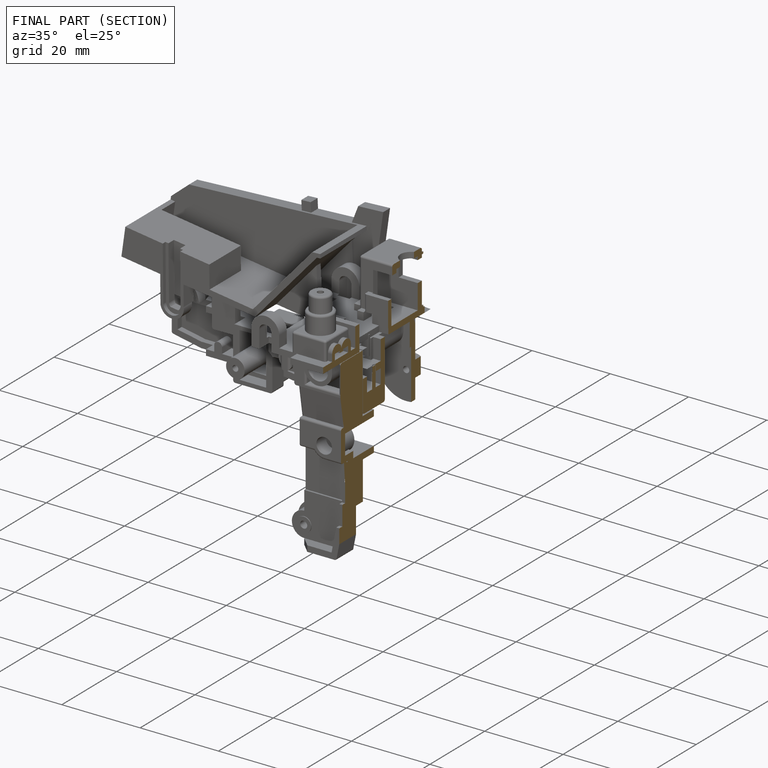
[diagram: finished part — half-section view (interior)]
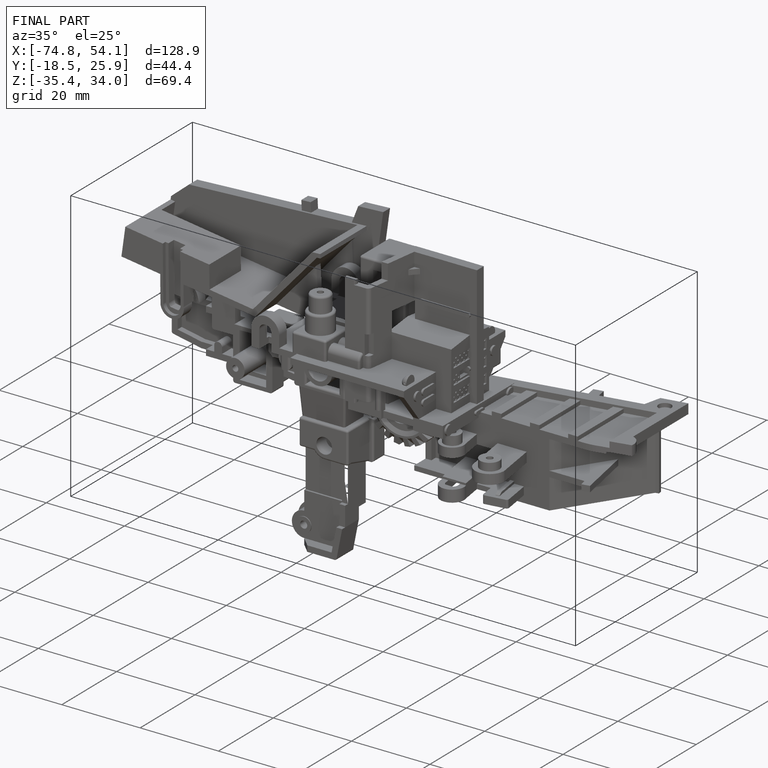
[diagram: finished part — iso view with bounding-box wireframe]
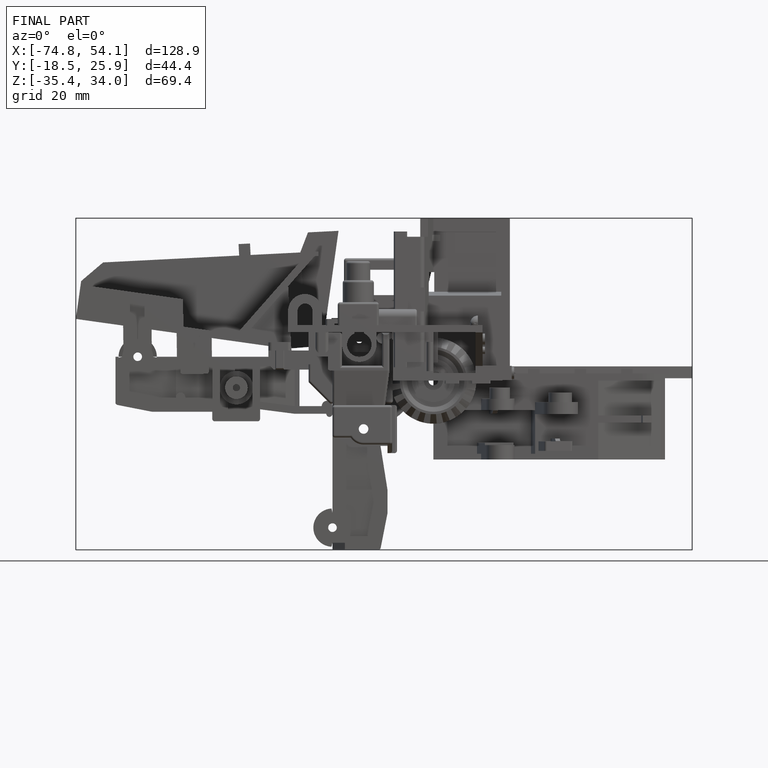
[diagram: finished part — front view with bounding-box wireframe]
